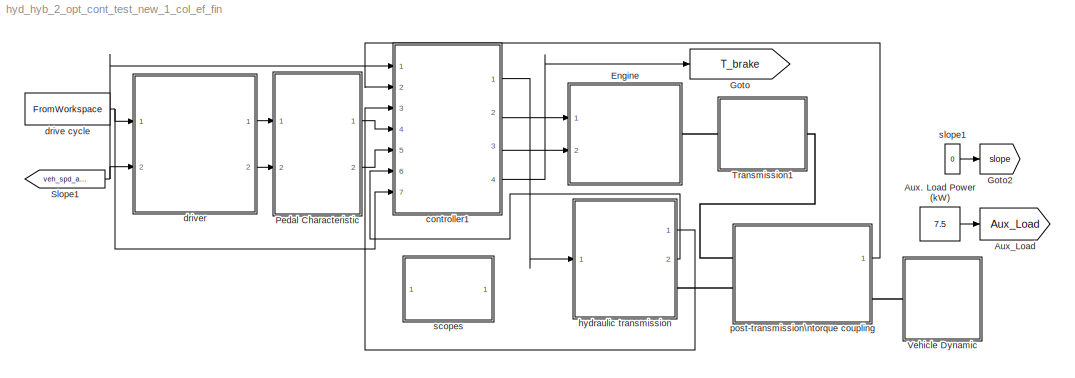
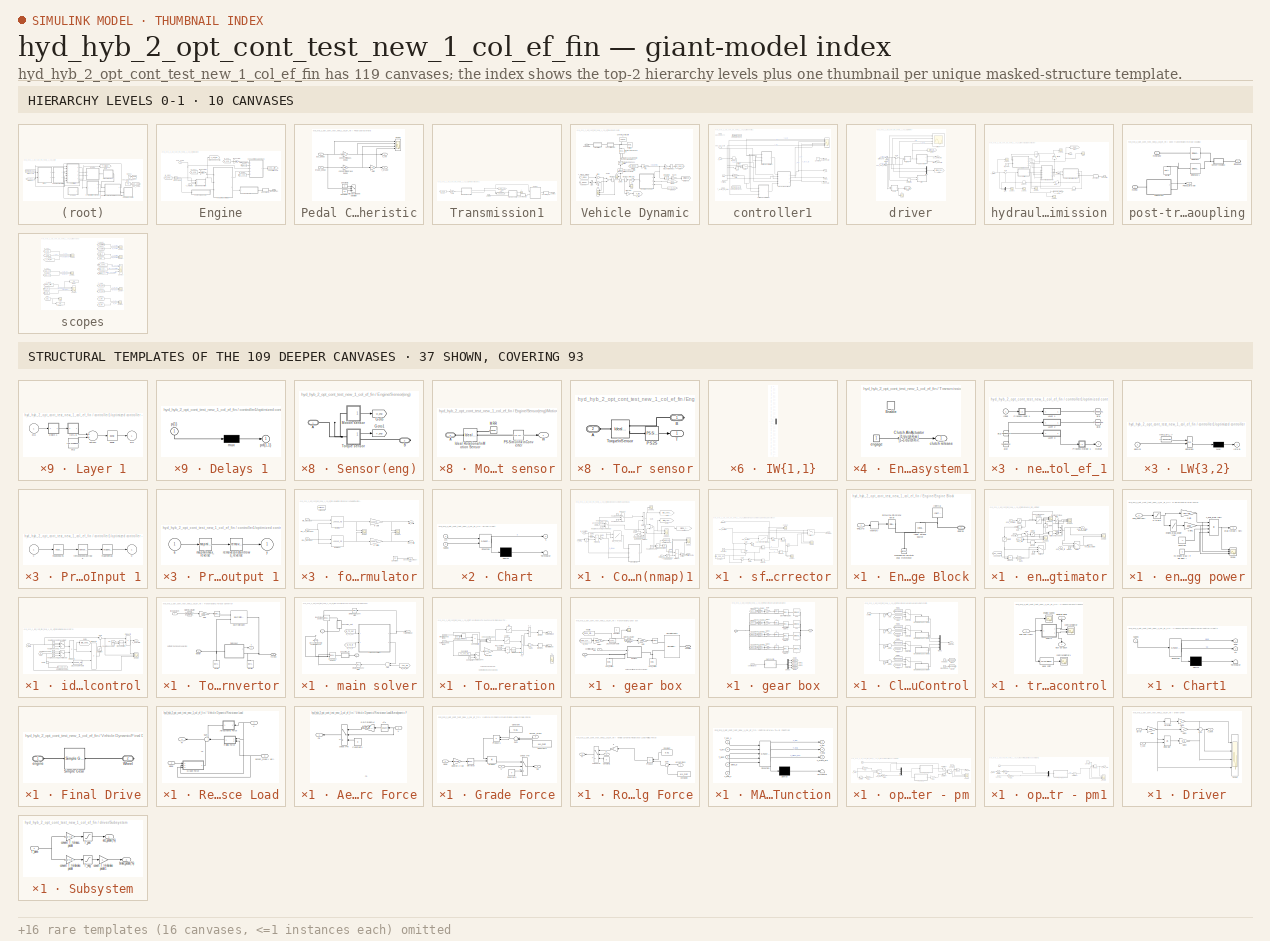
[diagram: thumbnail index - top-2 hierarchy levels (10 canvases) + 37 structural-template representatives of the remaining 109 canvases]
MODEL hyd_hyb_2_opt_cont_test_new_1_col_ef_fin
KIND model
CONFIG InitFcn = const_3\n
BLOCK [Constant] Aux. Load Power (kW)
  SID = 1614
  Value = 7.5
BLOCK [Goto] Aux_Load
  GotoTag = Aux_Load
  SID = 1615
  TagVisibility = global
BLOCK [SubSystem] Engine
  FunctionWithSeparateData = off
  MaskHideContents = off
  MinAlgLoopOccurrences = off
  Opaque = off
  Ports = [2, 0, 0, 0, 0, 0, 1]
  PropExecContextOutsideSubsystem = off
  RTWSystemCode = Auto
  RequestExecContextInheritance = off
  SID = 12085
BLOCK [SubSystem] Engine/Consumption Calc (nmap)1
  FunctionWithSeparateData = off
  MaskHideContents = off
  MinAlgLoopOccurrences = off
  Opaque = off
  Ports = [5, 1]
  PropExecContextOutsideSubsystem = off
  RTWSystemCode = Auto
  RequestExecContextInheritance = off
  SID = 12088
BLOCK [Saturate] Engine/Consumption Calc (nmap)1/1
  InputPortMap = u0
  LowerLimit = 0
  Ports = [1, 1]
  SID = 12094
  UpperLimit = inf
BLOCK [Product] Engine/Consumption Calc (nmap)1/Divide1
  InputSameDT = off
  Inputs = */
  OutDataTypeStr = Inherit: Inherit via internal rule
  Ports = [2, 1]
  RndMeth = Floor
  SID = 12095
  SaturateOnIntegerOverflow = off
BLOCK [Product] Engine/Consumption Calc (nmap)1/Divide2
  InputSameDT = off
  Inputs = 3
  OutDataTypeStr = Inherit: Inherit via internal rule
  Ports = [3, 1]
  RndMeth = Floor
  SID = 12096
  SaturateOnIntegerOverflow = off
BLOCK [Product] Engine/Consumption Calc (nmap)1/Divide3
  InputSameDT = off
  OutDataTypeStr = Inherit: Inherit via internal rule
  Ports = [2, 1]
  RndMeth = Floor
  SID = 12097
  SaturateOnIntegerOverflow = off
BLOCK [Product] Engine/Consumption Calc (nmap)1/Divide4
  InputSameDT = off
  Inputs = */
  OutDataTypeStr = Inherit: Inherit via internal rule
  Ports = [2, 1]
  RndMeth = Floor
  SID = 12098
  SaturateOnIntegerOverflow = off
BLOCK [Gain] Engine/Consumption Calc (nmap)1/Gain2
  Gain = 2*pi/60
  OutDataTypeStr = Inherit: Inherit via internal rule
  ParamDataTypeStr = Inherit: Inherit via internal rule
  SID = 12099
  SaturateOnIntegerOverflow = off
BLOCK [Gain] Engine/Consumption Calc (nmap)1/Gain3
  Gain = .001
  OutDataTypeStr = Inherit: Inherit via internal rule
  ParamDataTypeStr = Inherit: Inherit via internal rule
  SID = 12100
  SaturateOnIntegerOverflow = off
BLOCK [Goto] Engine/Consumption Calc (nmap)1/Goto
  GotoTag = idle_consumption
  SID = 12101
  TagVisibility = global
BLOCK [Goto] Engine/Consumption Calc (nmap)1/Goto1
  GotoTag = total_consumption
  SID = 12102
  TagVisibility = global
BLOCK [Goto] Engine/Consumption Calc (nmap)1/Goto2
  GotoTag = driving_consumption
  SID = 12103
  TagVisibility = global
BLOCK [Lookup2D] Engine/Consumption Calc (nmap)1/ICE_906_205
  ColumnIndex = w_906_205
  InputSameDT = off
  RowIndex = p_906_205
  SID = 12104
  SaturateOnIntegerOverflow = off
  Table = BSFC_906_205
BLOCK [Integrator] Engine/Consumption Calc (nmap)1/Integrator1
  Ports = [1, 1]
  SID = 12105
BLOCK [Product] Engine/Consumption Calc (nmap)1/Product1
  InputSameDT = off
  OutDataTypeStr = Inherit: Inherit via internal rule
  Ports = [2, 1]
  SID = 12106
  SaturateOnIntegerOverflow = off
BLOCK [Scope] Engine/Consumption Calc (nmap)1/Scope1
  DataFormat = StructureWithTime
  Floating = off
  LimitDataPoints = off
  NumInputPorts = 2
  Ports = [2]
  SID = 12107
  SampleTime = 0
  YMax = 42.5~42.5
  YMin = 0~0
  ZoomMode = xonly
BLOCK [Scope] Engine/Consumption Calc (nmap)1/Scope2
  DataFormat = StructureWithTime
  Floating = off
  LimitDataPoints = off
  NumInputPorts = 1
  Ports = [1]
  SID = 12108
  SampleTime = 0
  SaveName = ScopeData75
  ZoomMode = xonly
BLOCK [Sum] Engine/Consumption Calc (nmap)1/Sum
  InputSameDT = off
  OutDataTypeStr = Inherit: Inherit via internal rule
  Ports = [2, 1]
  SID = 12109
  SaturateOnIntegerOverflow = off
BLOCK [Inport] Engine/Consumption Calc (nmap)1/T_eng
  IconDisplay = Port number
  Port = 4
  SID = 12092
BLOCK [ToWorkspace] Engine/Consumption Calc (nmap)1/To Workspace
  MaxDataPoints = inf
  Ports = [1]
  SID = 12110
  SampleTime = -1
  SaveFormat = Structure With Time
  VariableName = ali_cons
BLOCK [Inport] Engine/Consumption Calc (nmap)1/acc pedal
  IconDisplay = Port number
  Port = 5
  SID = 12093
BLOCK [Switch] Engine/Consumption Calc (nmap)1/check pedal
  Criteria = u2 > Threshold
  InputSameDT = off
  SID = 12111
  SaturateOnIntegerOverflow = off
BLOCK [Scope] Engine/Consumption Calc (nmap)1/cons1
  DataFormat = StructureWithTime
  Floating = off
  LimitDataPoints = off
  NumInputPorts = 3
  Ports = [3]
  SID = 12112
  SampleTime = 0
  SaveName = cons1
  SaveToWorkspace = on
  YMax = 42.5~42.5~5
  YMin = 0~0~-5
  ZoomMode = yonly
BLOCK [Outport] Engine/Consumption Calc (nmap)1/cons\nlit//100km1
  IconDisplay = Port number
  SID = 12146
BLOCK [Inport] Engine/Consumption Calc (nmap)1/distance
  IconDisplay = Port number
  Port = 2
  SID = 12090
BLOCK [Gain] Engine/Consumption Calc (nmap)1/g 2 liter1
  Gain = 100
  OutDataTypeStr = Inherit: Inherit via internal rule
  ParamDataTypeStr = Inherit: Inherit via internal rule
  SID = 12113
  SaturateOnIntegerOverflow = off
BLOCK [Gain] Engine/Consumption Calc (nmap)1/g2lit
  Gain = 1/fuel_density*1000
  OutDataTypeStr = Inherit: Inherit via internal rule
  ParamDataTypeStr = Inherit: Inherit via internal rule
  SID = 12114
  SaturateOnIntegerOverflow = off
BLOCK [Constant] Engine/Consumption Calc (nmap)1/hour2\nsecond
  SID = 12115
  Value = 3600
BLOCK [Constant] Engine/Consumption Calc (nmap)1/hour2\nsecond1
  SID = 12116
BLOCK [Constant] Engine/Consumption Calc (nmap)1/hour2\nsecond2
  SID = 12117
  Value = 0
BLOCK [Constant] Engine/Consumption Calc (nmap)1/hour2\nsecond3
  SID = 12118
  Value = 0
BLOCK [Constant] Engine/Consumption Calc (nmap)1/hour2\nsecond4
  SID = 12119
  Value = 2
BLOCK [Switch] Engine/Consumption Calc (nmap)1/idel cons
  Criteria = u2 > Threshold
  InputSameDT = off
  SID = 12120
  SaturateOnIntegerOverflow = off
BLOCK [Inport] Engine/Consumption Calc (nmap)1/on//off
  IconDisplay = Port number
  Port = 3
  SID = 12091
BLOCK [SubSystem] Engine/Consumption Calc (nmap)1/sfc corrector
  FunctionWithSeparateData = off
  MaskHideContents = off
  MinAlgLoopOccurrences = off
  Opaque = off
  Ports = [3, 1]
  PropExecContextOutsideSubsystem = off
  RTWSystemCode = Auto
  RequestExecContextInheritance = off
  SID = 12121
BLOCK [Constant] Engine/Consumption Calc (nmap)1/sfc corrector/Constant
  SID = 12125
  Value = Idle_spd_eng_906
BLOCK [Constant] Engine/Consumption Calc (nmap)1/sfc corrector/Constant1
  SID = 12126
  Value = 1000
BLOCK [Gain] Engine/Consumption Calc (nmap)1/sfc corrector/Gain
  Gain = -1
  OutDataTypeStr = Inherit: Inherit via internal rule
  ParamDataTypeStr = Inherit: Inherit via internal rule
  SID = 12127
  SaturateOnIntegerOverflow = off
BLOCK [Gain] Engine/Consumption Calc (nmap)1/sfc corrector/Gain1
  OutDataTypeStr = Inherit: Inherit via internal rule
  ParamDataTypeStr = Inherit: Inherit via internal rule
  SID = 12128
  SaturateOnIntegerOverflow = off
BLOCK [Gain] Engine/Consumption Calc (nmap)1/sfc corrector/Gain2
  OutDataTypeStr = Inherit: Inherit via internal rule
  ParamDataTypeStr = Inherit: Inherit via internal rule
  SID = 12129
  SaturateOnIntegerOverflow = off
BLOCK [Product] Engine/Consumption Calc (nmap)1/sfc corrector/Product
  InputSameDT = off
  Inputs = */
  OutDataTypeStr = Inherit: Inherit via internal rule
  Ports = [2, 1]
  SID = 12130
  SaturateOnIntegerOverflow = off
BLOCK [Product] Engine/Consumption Calc (nmap)1/sfc corrector/Product1
  InputSameDT = off
  Inputs = */
  OutDataTypeStr = Inherit: Inherit via internal rule
  Ports = [2, 1]
  SID = 12131
  SaturateOnIntegerOverflow = off
BLOCK [Product] Engine/Consumption Calc (nmap)1/sfc corrector/Product2
  InputSameDT = off
  OutDataTypeStr = Inherit: Inherit via internal rule
  Ports = [2, 1]
  SID = 12132
  SaturateOnIntegerOverflow = off
BLOCK [Product] Engine/Consumption Calc (nmap)1/sfc corrector/Product3
  InputSameDT = off
  OutDataTypeStr = Inherit: Inherit via internal rule
  Ports = [2, 1]
  SID = 12133
  SaturateOnIntegerOverflow = off
BLOCK [Scope] Engine/Consumption Calc (nmap)1/sfc corrector/Scope
  DataFormat = StructureWithTime
  Floating = off
  NumInputPorts = 2
  Ports = [2]
  SID = 12134
  SampleTime = 0
  SaveName = ScopeData40
  YMax = 5~5
  YMin = -5~-5
  ZoomMode = yonly
BLOCK [Scope] Engine/Consumption Calc (nmap)1/sfc corrector/Scope1
  DataFormat = StructureWithTime
  Floating = off
  NumInputPorts = 2
  Ports = [2]
  SID = 12135
  SampleTime = 0
  SaveName = ScopeData41
  YMax = 5~5
  YMin = -5~-5
  ZoomMode = yonly
BLOCK [Scope] Engine/Consumption Calc (nmap)1/sfc corrector/Scope2
  DataFormat = StructureWithTime
  Floating = off
  NumInputPorts = 2
  Ports = [2]
  SID = 12136
  SampleTime = 0
  SaveName = ScopeData42
  YMax = 5~5
  YMin = -5~-5
  ZoomMode = yonly
BLOCK [Sum] Engine/Consumption Calc (nmap)1/sfc corrector/Sum
  IconShape = round
  InputSameDT = off
  Inputs = |+-
  OutDataTypeStr = Inherit: Inherit via internal rule
  Ports = [2, 1]
  SID = 12137
  SaturateOnIntegerOverflow = off
BLOCK [Sum] Engine/Consumption Calc (nmap)1/sfc corrector/Sum1
  IconShape = round
  InputSameDT = off
  Inputs = |+-
  OutDataTypeStr = Inherit: Inherit via internal rule
  Ports = [2, 1]
  SID = 12138
  SaturateOnIntegerOverflow = off
BLOCK [Sum] Engine/Consumption Calc (nmap)1/sfc corrector/Sum2
  IconShape = round
  InputSameDT = off
  Inputs = |+-
  OutDataTypeStr = Inherit: Inherit via internal rule
  Ports = [2, 1]
  SID = 12139
  SaturateOnIntegerOverflow = off
BLOCK [Sum] Engine/Consumption Calc (nmap)1/sfc corrector/Sum3
  IconShape = round
  InputSameDT = off
  Inputs = |++
  OutDataTypeStr = Inherit: Inherit via internal rule
  Ports = [2, 1]
  SID = 12140
  SaturateOnIntegerOverflow = off
BLOCK [Switch] Engine/Consumption Calc (nmap)1/sfc corrector/Switch
  InputSameDT = off
  SID = 12141
  SaturateOnIntegerOverflow = off
  Threshold = 1000
BLOCK [Outport] Engine/Consumption Calc (nmap)1/sfc corrector/cons(kg//h)
  IconDisplay = Port number
  SID = 12143
BLOCK [Inport] Engine/Consumption Calc (nmap)1/sfc corrector/eng_pow(kw)
  IconDisplay = Port number
  Port = 3
  SID = 12124
BLOCK [Inport] Engine/Consumption Calc (nmap)1/sfc corrector/eng_spd(rpm)
  IconDisplay = Port number
  Port = 2
  SID = 12123
BLOCK [Inport] Engine/Consumption Calc (nmap)1/sfc corrector/main map
  IconDisplay = Port number
  SID = 12122
BLOCK [Lookup] Engine/Consumption Calc (nmap)1/sfc corrector/sec_eng_sfc_map (906)
  InputValues = sec_eng_sfc_map(:,1)
  SID = 12142
  SaturateOnIntegerOverflow = off
  Table = sec_eng_sfc_map(:,2)
BLOCK [Saturate] Engine/Consumption Calc (nmap)1/solve devide \nby zero problem
  InputPortMap = u0
  LowerLimit = eps
  Ports = [1, 1]
  SID = 12144
  UpperLimit = inf
BLOCK [Saturate] Engine/Consumption Calc (nmap)1/solve devide \nby zero problem1
  InputPortMap = u0
  LowerLimit = 0
  Ports = [1, 1]
  SID = 12145
  UpperLimit = inf
BLOCK [Inport] Engine/Consumption Calc (nmap)1/w_eng (rpm)
  IconDisplay = Port number
  SID = 12089
BLOCK [From] Engine/Distance (km)
  GotoTag = Distance
  SID = 12147
  TagVisibility = global
BLOCK [SubSystem] Engine/Engine Block
  FunctionWithSeparateData = off
  MaskHideContents = off
  MinAlgLoopOccurrences = off
  Opaque = off
  Ports = [1, 0, 0, 0, 0, 0, 1]
  PropExecContextOutsideSubsystem = off
  RTWSystemCode = Auto
  RequestExecContextInheritance = off
  SID = 12148
BLOCK [PMIOPort] Engine/Engine Block/Engine
  Port = 1
  SID = 12155
  Side = Right
BLOCK [Reference] Engine/Engine Block/Ideal Torque Source  REF=fl_lib/Mechanical/Mechanical Sources/Ideal Torque Source
  ClassName = torque
  ComponentPath = foundation.mechanical.sources.torque
  FunctionWithSeparateData = off
  GeneratePreprocessorConditionals = off
  LocalVarDescs = |w|t
  LocalVarLogging = [0 0]
  LocalVarNames = |w|t
  Ports = [0, 0, 0, 0, 0, 1, 2]
  RTWMemSecDataConstants = Inherit from model
  RTWMemSecDataInternal = Inherit from model
  RTWMemSecDataParameters = Inherit from model
  RTWMemSecFuncExecute = Inherit from model
  RTWMemSecFuncInitTerm = Inherit from model
  SID = 12150
  SchemaVersion = 1
  ShowPortLabels = FromPortIcon
  SourceBlock = fl_lib/Mechanical/Mechanical Sources/Ideal Torque Source
  SourceType = Ideal Torque Source
  SystemSampleTime = -1
  t_Log = off
  w_Log = off
BLOCK [Reference] Engine/Engine Block/Inertia  REF=fl_lib/Mechanical/Rotational Elements/Inertia
  ClassName = inertia
  ComponentPath = foundation.mechanical.rotational.inertia
  FunctionWithSeparateData = off
  GeneratePreprocessorConditionals = off
  LocalVarDescs = |t
  LocalVarLogging = 0
  LocalVarNames = |t
  Ports = [0, 0, 0, 0, 0, 1]
  RTWMemSecDataConstants = Inherit from model
  RTWMemSecDataInternal = Inherit from model
  RTWMemSecDataParameters = Inherit from model
  RTWMemSecFuncExecute = Inherit from model
  RTWMemSecFuncInitTerm = Inherit from model
  SID = 12151
  SchemaVersion = 1
  ShowPortLabels = FromPortIcon
  SourceBlock = fl_lib/Mechanical/Rotational Elements/Inertia
  SourceType = Inertia
  SystemSampleTime = -1
  inertia = I_ICE
  inertia_unit = kg*m^2
  initial_velocity = 0
  initial_velocity_unit = rad/s
  t_Log = off
BLOCK [Reference] Engine/Engine Block/Mechanical\nRotational Reference  REF=fl_lib/Mechanical/Rotational Elements/Mechanical\nRotational Reference
  ClassName = reference
  ComponentPath = foundation.mechanical.rotational.reference
  FunctionWithSeparateData = off
  GeneratePreprocessorConditionals = off
  LocalVarDescs = |t
  LocalVarLogging = 0
  LocalVarNames = |t
  Ports = [0, 0, 0, 0, 0, 1]
  RTWMemSecDataConstants = Inherit from model
  RTWMemSecDataInternal = Inherit from model
  RTWMemSecDataParameters = Inherit from model
  RTWMemSecFuncExecute = Inherit from model
  RTWMemSecFuncInitTerm = Inherit from model
  SID = 12152
  SchemaVersion = 1
  ShowPortLabels = FromPortIcon
  SourceBlock = fl_lib/Mechanical/Rotational Elements/Mechanical\nRotational Reference
  SourceType = Mechanical\nRotational Reference
  SystemSampleTime = -1
  t_Log = off
BLOCK [Memory] Engine/Engine Block/Memory
  InheritSampleTime = on
  SID = 12153
BLOCK [Reference] Engine/Engine Block/Simulink-PS\nConverter  REF=nesl_utility/Simulink-PS\nConverter
  AffineConversion = off
  FunctionWithSeparateData = off
  GeneratePreprocessorConditionals = off
  InputFilterTimeConstant = 0.01
  LeftPortType = input
  PhysicalDomain = network_engine_domain
  Ports = [1, 0, 0, 0, 0, 0, 1]
  RTWMemSecDataConstants = Inherit from model
  RTWMemSecDataInternal = Inherit from model
  RTWMemSecDataParameters = Inherit from model
  RTWMemSecFuncExecute = Inherit from model
  RTWMemSecFuncInitTerm = Inherit from model
  RightPortType = output
  SID = 12154
  ShowPortLabels = FromPortIcon
  SourceBlock = nesl_utility/Simulink-PS\nConverter
  SourceType = Simulink-PS\nConverter
  SubClassName = ps_input
  SystemSampleTime = -1
  UdotUserProvided = 0
  Unit = 1
BLOCK [Inport] Engine/Engine Block/eng_trq
  IconDisplay = Port number
  SID = 12149
BLOCK [SubSystem] Engine/Sensor(eng)
  FunctionWithSeparateData = off
  MaskHideContents = off
  MinAlgLoopOccurrences = off
  Opaque = off
  Ports = [0, 0, 0, 0, 0, 1, 1]
  PropExecContextOutsideSubsystem = off
  RTWSystemCode = Auto
  RequestExecContextInheritance = off
  SID = 12156
BLOCK [PMIOPort] Engine/Sensor(eng)/A
  Port = 1
  SID = 12171
  Side = Left
BLOCK [PMIOPort] Engine/Sensor(eng)/B
  Port = 2
  SID = 12172
  Side = Right
BLOCK [Goto] Engine/Sensor(eng)/Goto
  GotoTag = w_eng
  SID = 12157
  TagVisibility = global
BLOCK [Goto] Engine/Sensor(eng)/Goto1
  GotoTag = T_eng
  SID = 12158
  TagVisibility = global
BLOCK [SubSystem] Engine/Sensor(eng)/Motion sensor
  FunctionWithSeparateData = off
  MaskHideContents = off
  MinAlgLoopOccurrences = off
  Opaque = off
  Ports = [0, 1, 0, 0, 0, 1]
  PropExecContextOutsideSubsystem = off
  RTWSystemCode = Auto
  RequestExecContextInheritance = off
  SID = 12159
BLOCK [PMIOPort] Engine/Sensor(eng)/Motion sensor/A
  Port = 1
  SID = 12163
  Side = Left
BLOCK [Reference] Engine/Sensor(eng)/Motion sensor/Ideal Rotational\nMotion Sensor  REF=fl_lib/Mechanical/Mechanical Sensors/Ideal Rotational\nMotion Sensor
  ClassName = sensor_rot_motion
  ComponentPath = foundation.mechanical.sensors.angular_velocity
  FunctionWithSeparateData = off
  GeneratePreprocessorConditionals = off
  LocalVarDescs = |w|t|phi
  LocalVarLogging = []
  LocalVarNames = |w|t|phi
  Ports = [0, 0, 0, 0, 0, 1, 3]
  RTWMemSecDataConstants = Inherit from model
  RTWMemSecDataInternal = Inherit from model
  RTWMemSecDataParameters = Inherit from model
  RTWMemSecFuncExecute = Inherit from model
  RTWMemSecFuncInitTerm = Inherit from model
  SID = 12160
  SchemaVersion = 1
  ShowPortLabels = FromPortIcon
  SourceBlock = fl_lib/Mechanical/Mechanical Sensors/Ideal Rotational\nMotion Sensor
  SourceType = Ideal Rotational\nMotion Sensor
  SystemSampleTime = -1
  offset = 0
  offset_unit = rad
  phi_Log = off
  t_Log = off
  w_Log = off
BLOCK [Reference] Engine/Sensor(eng)/Motion sensor/MRR  REF=fl_lib/Mechanical/Rotational Elements/Mechanical\nRotational Reference
  ClassName = reference_rot
  ComponentPath = foundation.mechanical.rotational.reference
  FunctionWithSeparateData = off
  GeneratePreprocessorConditionals = off
  LocalVarDescs = |t
  LocalVarLogging = []
  LocalVarNames = |t
  Ports = [0, 0, 0, 0, 0, 1]
  RTWMemSecDataConstants = Inherit from model
  RTWMemSecDataInternal = Inherit from model
  RTWMemSecDataParameters = Inherit from model
  RTWMemSecFuncExecute = Inherit from model
  RTWMemSecFuncInitTerm = Inherit from model
  SID = 12161
  SchemaVersion = 1
  ShowPortLabels = FromPortIcon
  SourceBlock = fl_lib/Mechanical/Rotational Elements/Mechanical\nRotational Reference
  SourceType = Mechanical\nRotational Reference
  SystemSampleTime = -1
  t_Log = off
BLOCK [Reference] Engine/Sensor(eng)/Motion sensor/PS-Simulink\nConverter  REF=nesl_utility/PS-Simulink\nConverter
  AffineConversion = off
  FunctionWithSeparateData = off
  GeneratePreprocessorConditionals = off
  LeftPortType = input
  PhysicalDomain = network_engine_domain
  Ports = [0, 1, 0, 0, 0, 1]
  RTWMemSecDataConstants = Inherit from model
  RTWMemSecDataInternal = Inherit from model
  RTWMemSecDataParameters = Inherit from model
  RTWMemSecFuncExecute = Inherit from model
  RTWMemSecFuncInitTerm = Inherit from model
  RightPortType = output
  SID = 12162
  ShowPortLabels = none
  SourceBlock = nesl_utility/PS-Simulink\nConverter
  SourceType = PS-Simulink\nConverter
  SubClassName = ps_output
  SystemSampleTime = -1
  Unit = rad/s
BLOCK [Outport] Engine/Sensor(eng)/Motion sensor/W
  IconDisplay = Port number
  SID = 12164
BLOCK [SubSystem] Engine/Sensor(eng)/Torque sensor
  FunctionWithSeparateData = off
  MaskHideContents = off
  MinAlgLoopOccurrences = off
  Opaque = off
  Ports = [0, 1, 0, 0, 0, 1, 1]
  PropExecContextOutsideSubsystem = off
  RTWSystemCode = Auto
  RequestExecContextInheritance = off
  SID = 12165
BLOCK [PMIOPort] Engine/Sensor(eng)/Torque sensor/A
  Port = 2
  SID = 12169
  Side = Left
BLOCK [PMIOPort] Engine/Sensor(eng)/Torque sensor/B
  Port = 1
  SID = 12168
  Side = Right
BLOCK [Reference] Engine/Sensor(eng)/Torque sensor/PS2S  REF=nesl_utility/PS-Simulink\nConverter
  AffineConversion = off
  FunctionWithSeparateData = off
  GeneratePreprocessorConditionals = off
  LeftPortType = input
  PhysicalDomain = network_engine_domain
  Ports = [0, 1, 0, 0, 0, 1]
  RTWMemSecDataConstants = Inherit from model
  RTWMemSecDataInternal = Inherit from model
  RTWMemSecDataParameters = Inherit from model
  RTWMemSecFuncExecute = Inherit from model
  RTWMemSecFuncInitTerm = Inherit from model
  RightPortType = output
  SID = 12166
  ShowPortLabels = none
  SourceBlock = nesl_utility/PS-Simulink\nConverter
  SourceType = PS-Simulink\nConverter
  SubClassName = ps_output
  SystemSampleTime = -1
  Unit = 1
BLOCK [Outport] Engine/Sensor(eng)/Torque sensor/T
  IconDisplay = Port number
  SID = 12170
BLOCK [Reference] Engine/Sensor(eng)/Torque sensor/Torque\nSensor  REF=fl_lib/Mechanical/Mechanical Sensors/Ideal Torque Sensor
  ClassName = sensor_torque
  ComponentPath = foundation.mechanical.sensors.torque
  FunctionWithSeparateData = off
  GeneratePreprocessorConditionals = off
  LocalVarDescs = |w|t
  LocalVarLogging = []
  LocalVarNames = |w|t
  Ports = [0, 0, 0, 0, 0, 1, 2]
  RTWMemSecDataConstants = Inherit from model
  RTWMemSecDataInternal = Inherit from model
  RTWMemSecDataParameters = Inherit from model
  RTWMemSecFuncExecute = Inherit from model
  RTWMemSecFuncInitTerm = Inherit from model
  SID = 12167
  SchemaVersion = 1
  ShowPortLabels = FromPortIcon
  SourceBlock = fl_lib/Mechanical/Mechanical Sensors/Ideal Torque Sensor
  SourceType = Ideal Torque Sensor
  SystemSampleTime = -1
  t_Log = off
  w_Log = off
BLOCK [Goto] Engine/T idle speed control
  GotoTag = T_out_idle_cotl
  SID = 12173
  TagVisibility = global
BLOCK [Inport] Engine/T_eng (Nm)
  IconDisplay = Port number
  SID = 12086
BLOCK [PMIOPort] Engine/Transmission
  Port = 1
  SID = 12246
  Side = Right
BLOCK [Goto] Engine/cons\nlit//100km
  GotoTag = cons_LitP100km
  SID = 12174
  TagVisibility = global
BLOCK [Inport] Engine/eng_on//off
  IconDisplay = Port number
  Port = 2
  SID = 12087
BLOCK [SubSystem] Engine/eng_torq_estimator
  FunctionWithSeparateData = off
  MaskHideContents = off
  MinAlgLoopOccurrences = off
  Opaque = off
  Ports = [3, 2]
  PropExecContextOutsideSubsystem = off
  RTWSystemCode = Auto
  RequestExecContextInheritance = off
  SID = 12175
BLOCK [Saturate] Engine/eng_torq_estimator/0 to inf1
  InputPortMap = u0
  LowerLimit = 0
  Ports = [1, 1]
  SID = 12179
  UpperLimit = inf
BLOCK [Saturate] Engine/eng_torq_estimator/0 to inf2
  InputPortMap = u0
  LowerLimit = eps
  Ports = [1, 1]
  SID = 12180
  UpperLimit = inf
BLOCK [Saturate] Engine/eng_torq_estimator/0 to inf3
  InputPortMap = u0
  LowerLimit = 0
  Ports = [1, 1]
  SID = 12181
  UpperLimit = inf
BLOCK [Saturate] Engine/eng_torq_estimator/0 to inf4
  InputPortMap = u0
  LowerLimit = 0
  Ports = [1, 1]
  SID = 12182
  UpperLimit = inf
BLOCK [Saturate] Engine/eng_torq_estimator/0 to inf5
  InputPortMap = u0
  LowerLimit = 0
  Ports = [1, 1]
  SID = 12183
  UpperLimit = inf
BLOCK [From] Engine/eng_torq_estimator/Aux Load
  GotoTag = Aux_Load
  SID = 12184
  TagVisibility = global
BLOCK [Goto] Engine/eng_torq_estimator/Aux_Trq
  GotoTag = Aux_Trq
  SID = 12185
  TagVisibility = global
BLOCK [Gain] Engine/eng_torq_estimator/Gain
  Gain = pi/30
  OutDataTypeStr = Inherit: Inherit via internal rule
  ParamDataTypeStr = Inherit: Inherit via internal rule
  SID = 12186
  SaturateOnIntegerOverflow = off
BLOCK [Gain] Engine/eng_torq_estimator/Gain1
  Gain = 1000
  OutDataTypeStr = Inherit: Inherit via internal rule
  ParamDataTypeStr = Inherit: Inherit via internal rule
  SID = 12187
  SaturateOnIntegerOverflow = off
BLOCK [Memory] Engine/eng_torq_estimator/Memory
  InheritSampleTime = on
  SID = 12188
BLOCK [MinMax] Engine/eng_torq_estimator/Min
  Function = min
  InputSameDT = off
  Inputs = 2
  Ports = [2, 1]
  SID = 12189
  SaturateOnIntegerOverflow = off
BLOCK [Lookup] Engine/eng_torq_estimator/Overload Torque (Nm)
  InputValues = [2600 2900 3000]
  SID = 12190
  Table = [650 0 0]
BLOCK [Lookup] Engine/eng_torq_estimator/PeakTorque -906 - 205(Nm)
  InputValues = [1000,1070,1130,1200,1280,1500,1590,1680,1760,1850,1930,2010,2070,2150,2240,2320,2380,2500]
  SID = 12191
  Table = [982,1040,1080,1100,1110,1110,1100,1080,1060,1020,994,963,940,909,872,838,804,751]
BLOCK [Product] Engine/eng_torq_estimator/Product1
  InputSameDT = off
  Inputs = */
  OutDataTypeStr = Inherit: Inherit via internal rule
  Ports = [2, 1]
  SID = 12192
  SaturateOnIntegerOverflow = off
BLOCK [Scope] Engine/eng_torq_estimator/Scope
  DataFormat = StructureWithTime
  Floating = off
  LimitDataPoints = off
  NumInputPorts = 3
  Ports = [3]
  SID = 12193
  SampleTime = 0
  SaveName = ScopeData10
  YMax = 5~5~5
  YMin = -5~-5~-5
  ZoomMode = yonly
BLOCK [Scope] Engine/eng_torq_estimator/Scope1
  DataFormat = StructureWithTime
  Floating = off
  LimitDataPoints = off
  NumInputPorts = 3
  Ports = [3]
  SID = 12194
  SampleTime = 0
  SaveName = ScopeData9
  YMax = 5~5~5
  YMin = -5~-5~-5
  ZoomMode = yonly
BLOCK [Scope] Engine/eng_torq_estimator/Scope2
  DataFormat = StructureWithTime
  Floating = off
  LimitDataPoints = off
  NumInputPorts = 3
  Ports = [3]
  SID = 12195
  SampleTime = 0
  SaveName = ScopeData23
  YMax = 5~5~5
  YMin = -5~-5~-5
  ZoomMode = xonly
BLOCK [Scope] Engine/eng_torq_estimator/Scope3
  DataFormat = StructureWithTime
  Floating = off
  LimitDataPoints = off
  NumInputPorts = 3
  Ports = [3]
  SID = 12196
  SampleTime = 0
  SaveName = ScopeData5
  YMax = 5~5~5
  YMin = -5~-5~-5
  ZoomMode = yonly
BLOCK [Sum] Engine/eng_torq_estimator/Sum
  IconShape = round
  InputSameDT = off
  Inputs = |++
  OutDataTypeStr = Inherit: Inherit via internal rule
  Ports = [2, 1]
  SID = 12197
  SaturateOnIntegerOverflow = off
BLOCK [Switch] Engine/eng_torq_estimator/Switch
  InputSameDT = off
  SID = 12198
  SaturateOnIntegerOverflow = off
  Threshold = 0.1
BLOCK [Switch] Engine/eng_torq_estimator/Switch1
  InputSameDT = off
  SID = 12199
  SaturateOnIntegerOverflow = off
  Threshold = Idle_spd_eng_906*0.75
BLOCK [Switch] Engine/eng_torq_estimator/check max speed
  InputSameDT = off
  SID = 12200
  SaturateOnIntegerOverflow = off
  Threshold = 2600
BLOCK [Inport] Engine/eng_torq_estimator/eng_drag_trq
  IconDisplay = Port number
  Port = 3
  SID = 12178
BLOCK [Inport] Engine/eng_torq_estimator/eng_spd (rpm)
  IconDisplay = Port number
  SID = 12176
BLOCK [Inport] Engine/eng_torq_estimator/eng_trq_in
  IconDisplay = Port number
  Port = 2
  SID = 12177
BLOCK [Outport] Engine/eng_torq_estimator/eng_trq_out (Nm)
  IconDisplay = Port number
  Port = 2
  SID = 12204
BLOCK [Outport] Engine/eng_torq_estimator/eng_trq_out (Nm) to consump
  IconDisplay = Port number
  SID = 12203
BLOCK [Constant] Engine/eng_torq_estimator/slope
  SID = 12201
  Value = 0
BLOCK [Constant] Engine/eng_torq_estimator/slope1
  SID = 12202
  Value = 0
BLOCK [SubSystem] Engine/engine drag power
  FunctionWithSeparateData = off
  MaskHideContents = off
  MinAlgLoopOccurrences = off
  Opaque = off
  Ports = [1, 1]
  PropExecContextOutsideSubsystem = off
  RTWSystemCode = Auto
  RequestExecContextInheritance = off
  SID = 12205
BLOCK [Saturate] Engine/engine drag power/0 to inf2
  InputPortMap = u0
  LowerLimit = eps
  Ports = [1, 1]
  SID = 12207
  UpperLimit = inf
BLOCK [Constant] Engine/engine drag power/Constant
  SID = 12208
  Value = -1
BLOCK [Gain] Engine/engine drag power/Gain
  Gain = (pi)/30
  OutDataTypeStr = Inherit: Inherit via internal rule
  ParamDataTypeStr = Inherit: Inherit via internal rule
  SID = 12209
  SaturateOnIntegerOverflow = off
BLOCK [Gain] Engine/engine drag power/Gain1
  Gain = 1000
  OutDataTypeStr = Inherit: Inherit via internal rule
  ParamDataTypeStr = Inherit: Inherit via internal rule
  SID = 12210
  SaturateOnIntegerOverflow = off
BLOCK [Scope] Engine/engine drag power/Scope
  DataFormat = StructureWithTime
  Floating = off
  LimitDataPoints = off
  NumInputPorts = 3
  Ports = [3]
  SID = 12211
  SampleTime = 0
  SaveName = ScopeData2
  YMax = 5~5~5
  YMin = -5~-5~-5
  ZoomMode = yonly
BLOCK [Product] Engine/engine drag power/T_eng_drag (Nm)
  InputSameDT = off
  Inputs = /***
  OutDataTypeStr = Inherit: Inherit via internal rule
  Ports = [4, 1]
  RndMeth = Floor
  SID = 12212
  SaturateOnIntegerOverflow = off
BLOCK [Outport] Engine/engine drag power/drag torque ( Nm)
  IconDisplay = Port number
  SID = 12215
BLOCK [Inport] Engine/engine drag power/eng_spd(rpm)
  IconDisplay = Port number
  SID = 12206
BLOCK [Lookup] Engine/engine drag power/engine_drag_power (kw)
  InputValues = [-10,eps,802.567507746791,824.568393094289,846.879150066401,868.8800354139,890.880920761399,912.881806108898,935.192563081009,957.193448428508,979.194333776007,1001.19521912351,1023.196104471,1045.1969898185,1067.197875166,1089.50863213811,1111.50951748561,1133.51040283311,1155.51128818061,1177.51217352811,1199.51305887561,1221.51394422311,1243.51482957061,1265.51571491811,1287.5166002656,1309.517...<+620ch>
  SID = 12213
  SaturateOnIntegerOverflow = off
  Table = [0,0,8.89504100832017,9.50127747975726,9.88870415102495,10.2762179627945,10.7512208384311,11.1824791821341,11.6136503853353,12.0449087290384,12.4761670727414,12.9074254164445,13.294939228214,13.7261975719171,14.1137113836866,14.5448825868878,15.0636299944579,15.5386328700944,15.9698912137975,16.357405025567,16.7449188373366,17.1761771810396,17.6074355247427,17.9949493365122,18.4699522121488,18.988...<+631ch>
BLOCK [Constant] Engine/engine drag power/no engine drag ( if we want )
  SID = 12214
BLOCK [SubSystem] Engine/idle speed control
  FunctionWithSeparateData = off
  MaskHideContents = off
  MinAlgLoopOccurrences = off
  Opaque = off
  Ports = [3, 1]
  PropExecContextOutsideSubsystem = off
  RTWSystemCode = Auto
  RequestExecContextInheritance = off
  SID = 12216
BLOCK [Lookup_n-D] Engine/idle speed control/1-D Lookup\nTable
  BreakpointsForDimension1 = [0 Idle_spd_eng_906*0.025 Idle_spd_eng_906]
  IndexSearchMethod = Binary search
  NumberOfTableDimensions = 1
  Ports = [1, 1]
  RndMeth = Simplest
  SID = 12220
  Table = [0 0 T_max_906/2]
BLOCK [Goto] Engine/idle speed control/Goto1
  GotoTag = idle_control
  SID = 12221
  TagVisibility = global
BLOCK [Reference] Engine/idle speed control/Manual Switch  REF=simulink/Signal\nRouting/Manual Switch
  FunctionWithSeparateData = off
  GeneratePreprocessorConditionals = off
  Ports = [2, 1]
  RTWMemSecDataConstants = Inherit from model
  RTWMemSecDataInternal = Inherit from model
  RTWMemSecDataParameters = Inherit from model
  RTWMemSecFuncExecute = Inherit from model
  RTWMemSecFuncInitTerm = Inherit from model
  SID = 12222
  ShowPortLabels = FromPortIcon
  SourceBlock = simulink/Signal\nRouting/Manual Switch
  SourceType = Manual Switch
  SystemSampleTime = -1
  action = 0
  sw = 1
  varsize = off
BLOCK [Product] Engine/idle speed control/Product1
  InputSameDT = off
  Inputs = **
  OutDataTypeStr = Inherit: Inherit via internal rule
  Ports = [2, 1]
  SID = 12223
  SaturateOnIntegerOverflow = off
BLOCK [Product] Engine/idle speed control/Product2
  InputSameDT = off
  Inputs = **
  OutDataTypeStr = Inherit: Inherit via internal rule
  Ports = [2, 1]
  SID = 12224
  SaturateOnIntegerOverflow = off
BLOCK [Product] Engine/idle speed control/Product3
  InputSameDT = off
  Inputs = **
  OutDataTypeStr = Inherit: Inherit via internal rule
  Ports = [2, 1]
  SID = 12225
  SaturateOnIntegerOverflow = off
BLOCK [Saturate] Engine/idle speed control/Saturation
  InputPortMap = u0
  LowerLimit = 0
  Ports = [1, 1]
  SID = 12226
  UpperLimit = T_max_906/5
BLOCK [Scope] Engine/idle speed control/Scope
  DataFormat = StructureWithTime
  Floating = off
  LimitDataPoints = off
  NumInputPorts = 3
  Ports = [3]
  SID = 12227
  SampleTime = 0
  SaveName = ScopeData11
  YMax = 5~5~5
  YMin = -5~-5~-5
  ZoomMode = yonly
BLOCK [Sum] Engine/idle speed control/Sum
  IconShape = round
  InputSameDT = off
  Inputs = |++
  OutDataTypeStr = Inherit: Inherit via internal rule
  Ports = [2, 1]
  SID = 12228
  SaturateOnIntegerOverflow = off
BLOCK [Sum] Engine/idle speed control/Sum1
  IconShape = round
  InputSameDT = off
  Inputs = -|+
  OutDataTypeStr = Inherit: Inherit via internal rule
  Ports = [2, 1]
  SID = 12229
  SaturateOnIntegerOverflow = off
BLOCK [Inport] Engine/idle speed control/T_eng
  IconDisplay = Port number
  Port = 3
  SID = 12219
BLOCK [Outport] Engine/idle speed control/T_eng + Idle
  IconDisplay = Port number
  SID = 12238
BLOCK [Switch] Engine/idle speed control/check idle P
  Criteria = u2 > Threshold
  InputSameDT = off
  SID = 12230
  SaturateOnIntegerOverflow = off
BLOCK [Switch] Engine/idle speed control/check idle spd
  Criteria = u2 > Threshold
  InputSameDT = off
  SID = 12231
  SaturateOnIntegerOverflow = off
  Threshold = Idle_spd_eng_906
BLOCK [Constant] Engine/idle speed control/hour2\nsecond
  SID = 12232
  Value = 0
BLOCK [Constant] Engine/idle speed control/hour2\nsecond1
  SID = 12233
BLOCK [Constant] Engine/idle speed control/hour2\nsecond2
  SID = 12234
BLOCK [Constant] Engine/idle speed control/hour2\nsecond3
  SID = 12235
  Value = 0
BLOCK [Constant] Engine/idle speed control/hour2\nsecond4
  SID = 12236
  Value = Idle_spd_eng_906
BLOCK [Constant] Engine/idle speed control/hour2\nsecond5
  SID = 12237
BLOCK [Inport] Engine/idle speed control/on
  IconDisplay = Port number
  SID = 12217
BLOCK [Inport] Engine/idle speed control/spd
  IconDisplay = Port number
  Port = 2
  SID = 12218
BLOCK [Gain] Engine/rasps2rpm
  Gain = 30/pi
  OutDataTypeStr = Inherit: Inherit via internal rule
  ParamDataTypeStr = Inherit: Inherit via internal rule
  SID = 12239
  SaturateOnIntegerOverflow = off
BLOCK [Gain] Engine/rasps2rpm1
  Gain = 30/pi
  OutDataTypeStr = Inherit: Inherit via internal rule
  ParamDataTypeStr = Inherit: Inherit via internal rule
  SID = 12240
  SaturateOnIntegerOverflow = off
BLOCK [Gain] Engine/rasps2rpm2
  Gain = 30/pi
  OutDataTypeStr = Inherit: Inherit via internal rule
  ParamDataTypeStr = Inherit: Inherit via internal rule
  SID = 12241
  SaturateOnIntegerOverflow = off
BLOCK [From] Engine/w_eng
  GotoTag = w_eng
  SID = 12242
  TagVisibility = global
BLOCK [From] Engine/w_eng1
  GotoTag = w_eng
  SID = 12243
  TagVisibility = global
BLOCK [From] Engine/w_eng2
  GotoTag = w_eng
  SID = 12244
  TagVisibility = global
BLOCK [From] Engine/w_eng3
  GotoTag = idle_control
  SID = 12245
  TagVisibility = global
BLOCK [Goto] Goto
  GotoTag = T_brake
  SID = 1093
  TagVisibility = global
BLOCK [Goto] Goto2
  GotoTag = slope
  SID = 1094
  TagVisibility = global
BLOCK [SubSystem] Pedal Characteristic
  FunctionWithSeparateData = off
  MaskHideContents = off
  MinAlgLoopOccurrences = off
  Opaque = off
  Ports = [2, 2]
  PropExecContextOutsideSubsystem = off
  RTWSystemCode = Auto
  RequestExecContextInheritance = off
  SID = 131
BLOCK [Constant] Pedal Characteristic/Constant1
  SID = 134
  Value = .25
BLOCK [Constant] Pedal Characteristic/Constant2
  SID = 135
  Value = 0
BLOCK [Gain] Pedal Characteristic/Gain
  Gain = 13
  OutDataTypeStr = Inherit: Inherit via internal rule
  ParamDataTypeStr = Inherit: Inherit via internal rule
  SID = 136
  SaturateOnIntegerOverflow = off
BLOCK [Scope] Pedal Characteristic/Scope
  DataFormat = StructureWithTime
  Floating = off
  LimitDataPoints = off
  MaxDataPoints = 500
  NumInputPorts = 4
  Ports = [4]
  SID = 137
  SampleTime = 0
  SaveName = ScopeData9
  YMax = 105~1391.25~1~5
  YMin = 95~1258.75~-1~-5
  ZoomMode = xonly
BLOCK [Outport] Pedal Characteristic/T_brake
  IconDisplay = Port number
  SID = 141
BLOCK [Outport] Pedal Characteristic/T_ref
  IconDisplay = Port number
  Port = 2
  SID = 143
BLOCK [Inport] Pedal Characteristic/acc_pedal
  IconDisplay = Port number
  SID = 132
BLOCK [Inport] Pedal Characteristic/brake_pedal
  IconDisplay = Port number
  Port = 2
  SID = 133
BLOCK [Gain] Pedal Characteristic/convert T to\nacc. pedal
  Gain = T_max_906/100
  OutDataTypeStr = Inherit: Inherit via internal rule
  ParamDataTypeStr = Inherit: Inherit via internal rule
  SID = 138
  SaturateOnIntegerOverflow = off
BLOCK [Gain] Pedal Characteristic/convert T to\nbrake pedal
  Gain = -T_min/100
  OutDataTypeStr = Inherit: Inherit via internal rule
  ParamDataTypeStr = Inherit: Inherit via internal rule
  SID = 139
  SaturateOnIntegerOverflow = off
BLOCK [Switch] Pedal Characteristic/retarder step one activation
  Criteria = u2 > Threshold
  InputSameDT = off
  SID = 140
  SaturateOnIntegerOverflow = off
BLOCK [From] Slope1
  GotoTag = veh_spd_act
  SID = 1377
  TagVisibility = global
BLOCK [SubSystem] Transmission1
  FunctionWithSeparateData = off
  MaskHideContents = off
  MinAlgLoopOccurrences = off
  Opaque = off
  Ports = [0, 0, 0, 0, 0, 1, 1]
  PropExecContextOutsideSubsystem = off
  RTWSystemCode = Auto
  RequestExecContextInheritance = off
  SID = 12247
BLOCK [PMIOPort] Transmission1/Coupling
  Port = 2
  SID = 12453
  Side = Right
BLOCK [PMIOPort] Transmission1/Engine
  Port = 1
  SID = 12452
  Side = Left
BLOCK [Gain] Transmission1/Gain
  Gain = 30/pi
  OutDataTypeStr = Inherit: Inherit via internal rule
  ParamDataTypeStr = Inherit: Inherit via internal rule
  SID = 12248
  SaturateOnIntegerOverflow = off
BLOCK [Goto] Transmission1/Goto
  GotoTag = Lockup_Clutch
  SID = 12249
  TagVisibility = global
BLOCK [Goto] Transmission1/Goto1
  GotoTag = Clutch_num
  SID = 12250
  TagVisibility = global
BLOCK [SubSystem] Transmission1/Sensor(GB_out)
  FunctionWithSeparateData = off
  MaskHideContents = off
  MinAlgLoopOccurrences = off
  Opaque = off
  Ports = [0, 0, 0, 0, 0, 1, 1]
  PropExecContextOutsideSubsystem = off
  RTWSystemCode = Auto
  RequestExecContextInheritance = off
  SID = 12251
BLOCK [PMIOPort] Transmission1/Sensor(GB_out)/A
  Port = 1
  SID = 12266
  Side = Left
BLOCK [PMIOPort] Transmission1/Sensor(GB_out)/B
  Port = 2
  SID = 12267
  Side = Right
BLOCK [Goto] Transmission1/Sensor(GB_out)/Goto
  GotoTag = w_GB_out
  SID = 12252
  TagVisibility = global
BLOCK [Goto] Transmission1/Sensor(GB_out)/Goto1
  GotoTag = T_GB_out
  SID = 12253
  TagVisibility = global
BLOCK [SubSystem] Transmission1/Sensor(GB_out)/Motion sensor
  FunctionWithSeparateData = off
  MaskHideContents = off
  MinAlgLoopOccurrences = off
  Opaque = off
  Ports = [0, 1, 0, 0, 0, 1]
  PropExecContextOutsideSubsystem = off
  RTWSystemCode = Auto
  RequestExecContextInheritance = off
  SID = 12254
BLOCK [PMIOPort] Transmission1/Sensor(GB_out)/Motion sensor/A
  Port = 1
  SID = 12258
  Side = Left
BLOCK [Reference] Transmission1/Sensor(GB_out)/Motion sensor/Ideal Rotational\nMotion Sensor  REF=fl_lib/Mechanical/Mechanical Sensors/Ideal Rotational\nMotion Sensor
  ClassName = sensor_rot_motion
  ComponentPath = foundation.mechanical.sensors.angular_velocity
  FunctionWithSeparateData = off
  GeneratePreprocessorConditionals = off
  LocalVarDescs = |w|t|phi
  LocalVarLogging = []
  LocalVarNames = |w|t|phi
  Ports = [0, 0, 0, 0, 0, 1, 3]
  RTWMemSecDataConstants = Inherit from model
  RTWMemSecDataInternal = Inherit from model
  RTWMemSecDataParameters = Inherit from model
  RTWMemSecFuncExecute = Inherit from model
  RTWMemSecFuncInitTerm = Inherit from model
  SID = 12255
  SchemaVersion = 1
  ShowPortLabels = FromPortIcon
  SourceBlock = fl_lib/Mechanical/Mechanical Sensors/Ideal Rotational\nMotion Sensor
  SourceType = Ideal Rotational\nMotion Sensor
  SystemSampleTime = -1
  offset = 0
  offset_unit = rad
  phi_Log = off
  t_Log = off
  w_Log = off
BLOCK [Reference] Transmission1/Sensor(GB_out)/Motion sensor/MRR  REF=fl_lib/Mechanical/Rotational Elements/Mechanical\nRotational Reference
  ClassName = reference_rot
  ComponentPath = foundation.mechanical.rotational.reference
  FunctionWithSeparateData = off
  GeneratePreprocessorConditionals = off
  LocalVarDescs = |t
  LocalVarLogging = []
  LocalVarNames = |t
  Ports = [0, 0, 0, 0, 0, 1]
  RTWMemSecDataConstants = Inherit from model
  RTWMemSecDataInternal = Inherit from model
  RTWMemSecDataParameters = Inherit from model
  RTWMemSecFuncExecute = Inherit from model
  RTWMemSecFuncInitTerm = Inherit from model
  SID = 12256
  SchemaVersion = 1
  ShowPortLabels = FromPortIcon
  SourceBlock = fl_lib/Mechanical/Rotational Elements/Mechanical\nRotational Reference
  SourceType = Mechanical\nRotational Reference
  SystemSampleTime = -1
  t_Log = off
BLOCK [Reference] Transmission1/Sensor(GB_out)/Motion sensor/PS-Simulink\nConverter  REF=nesl_utility/PS-Simulink\nConverter
  AffineConversion = off
  FunctionWithSeparateData = off
  GeneratePreprocessorConditionals = off
  LeftPortType = input
  PhysicalDomain = network_engine_domain
  Ports = [0, 1, 0, 0, 0, 1]
  RTWMemSecDataConstants = Inherit from model
  RTWMemSecDataInternal = Inherit from model
  RTWMemSecDataParameters = Inherit from model
  RTWMemSecFuncExecute = Inherit from model
  RTWMemSecFuncInitTerm = Inherit from model
  RightPortType = output
  SID = 12257
  ShowPortLabels = none
  SourceBlock = nesl_utility/PS-Simulink\nConverter
  SourceType = PS-Simulink\nConverter
  SubClassName = ps_output
  SystemSampleTime = -1
  Unit = rad/s
BLOCK [Outport] Transmission1/Sensor(GB_out)/Motion sensor/W
  IconDisplay = Port number
  SID = 12259
BLOCK [SubSystem] Transmission1/Sensor(GB_out)/Torque sensor
  FunctionWithSeparateData = off
  MaskHideContents = off
  MinAlgLoopOccurrences = off
  Opaque = off
  Ports = [0, 1, 0, 0, 0, 1, 1]
  PropExecContextOutsideSubsystem = off
  RTWSystemCode = Auto
  RequestExecContextInheritance = off
  SID = 12260
BLOCK [PMIOPort] Transmission1/Sensor(GB_out)/Torque sensor/A
  Port = 2
  SID = 12264
  Side = Left
BLOCK [PMIOPort] Transmission1/Sensor(GB_out)/Torque sensor/B
  Port = 1
  SID = 12263
  Side = Right
BLOCK [Reference] Transmission1/Sensor(GB_out)/Torque sensor/PS2S  REF=nesl_utility/PS-Simulink\nConverter
  AffineConversion = off
  FunctionWithSeparateData = off
  GeneratePreprocessorConditionals = off
  LeftPortType = input
  PhysicalDomain = network_engine_domain
  Ports = [0, 1, 0, 0, 0, 1]
  RTWMemSecDataConstants = Inherit from model
  RTWMemSecDataInternal = Inherit from model
  RTWMemSecDataParameters = Inherit from model
  RTWMemSecFuncExecute = Inherit from model
  RTWMemSecFuncInitTerm = Inherit from model
  RightPortType = output
  SID = 12261
  ShowPortLabels = none
  SourceBlock = nesl_utility/PS-Simulink\nConverter
  SourceType = PS-Simulink\nConverter
  SubClassName = ps_output
  SystemSampleTime = -1
  Unit = 1
BLOCK [Outport] Transmission1/Sensor(GB_out)/Torque sensor/T
  IconDisplay = Port number
  SID = 12265
BLOCK [Reference] Transmission1/Sensor(GB_out)/Torque sensor/Torque\nSensor  REF=fl_lib/Mechanical/Mechanical Sensors/Ideal Torque Sensor
  ClassName = sensor_torque
  ComponentPath = foundation.mechanical.sensors.torque
  FunctionWithSeparateData = off
  GeneratePreprocessorConditionals = off
  LocalVarDescs = |w|t
  LocalVarLogging = []
  LocalVarNames = |w|t
  Ports = [0, 0, 0, 0, 0, 1, 2]
  RTWMemSecDataConstants = Inherit from model
  RTWMemSecDataInternal = Inherit from model
  RTWMemSecDataParameters = Inherit from model
  RTWMemSecFuncExecute = Inherit from model
  RTWMemSecFuncInitTerm = Inherit from model
  SID = 12262
  SchemaVersion = 1
  ShowPortLabels = FromPortIcon
  SourceBlock = fl_lib/Mechanical/Mechanical Sensors/Ideal Torque Sensor
  SourceType = Ideal Torque Sensor
  SystemSampleTime = -1
  t_Log = off
  w_Log = off
BLOCK [SubSystem] Transmission1/Sensor(TC_GB)
  FunctionWithSeparateData = off
  MaskHideContents = off
  MinAlgLoopOccurrences = off
  Opaque = off
  Ports = [0, 0, 0, 0, 0, 1, 1]
  PropExecContextOutsideSubsystem = off
  RTWSystemCode = Auto
  RequestExecContextInheritance = off
  SID = 12268
BLOCK [PMIOPort] Transmission1/Sensor(TC_GB)/A
  Port = 1
  SID = 12283
  Side = Left
BLOCK [PMIOPort] Transmission1/Sensor(TC_GB)/B
  Port = 2
  SID = 12284
  Side = Right
BLOCK [Goto] Transmission1/Sensor(TC_GB)/Goto
  GotoTag = w_TC_GB
  SID = 12269
  TagVisibility = global
BLOCK [Goto] Transmission1/Sensor(TC_GB)/Goto1
  GotoTag = T_TC_GB
  SID = 12270
  TagVisibility = global
BLOCK [SubSystem] Transmission1/Sensor(TC_GB)/Motion sensor
  FunctionWithSeparateData = off
  MaskHideContents = off
  MinAlgLoopOccurrences = off
  Opaque = off
  Ports = [0, 1, 0, 0, 0, 1]
  PropExecContextOutsideSubsystem = off
  RTWSystemCode = Auto
  RequestExecContextInheritance = off
  SID = 12271
BLOCK [PMIOPort] Transmission1/Sensor(TC_GB)/Motion sensor/A
  Port = 1
  SID = 12275
  Side = Left
BLOCK [Reference] Transmission1/Sensor(TC_GB)/Motion sensor/Ideal Rotational\nMotion Sensor  REF=fl_lib/Mechanical/Mechanical Sensors/Ideal Rotational\nMotion Sensor
  ClassName = sensor_rot_motion
  ComponentPath = foundation.mechanical.sensors.angular_velocity
  FunctionWithSeparateData = off
  GeneratePreprocessorConditionals = off
  LocalVarDescs = |w|t|phi
  LocalVarLogging = []
  LocalVarNames = |w|t|phi
  Ports = [0, 0, 0, 0, 0, 1, 3]
  RTWMemSecDataConstants = Inherit from model
  RTWMemSecDataInternal = Inherit from model
  RTWMemSecDataParameters = Inherit from model
  RTWMemSecFuncExecute = Inherit from model
  RTWMemSecFuncInitTerm = Inherit from model
  SID = 12272
  SchemaVersion = 1
  ShowPortLabels = FromPortIcon
  SourceBlock = fl_lib/Mechanical/Mechanical Sensors/Ideal Rotational\nMotion Sensor
  SourceType = Ideal Rotational\nMotion Sensor
  SystemSampleTime = -1
  offset = 0
  offset_unit = rad
  phi_Log = off
  t_Log = off
  w_Log = off
BLOCK [Reference] Transmission1/Sensor(TC_GB)/Motion sensor/MRR  REF=fl_lib/Mechanical/Rotational Elements/Mechanical\nRotational Reference
  ClassName = reference_rot
  ComponentPath = foundation.mechanical.rotational.reference
  FunctionWithSeparateData = off
  GeneratePreprocessorConditionals = off
  LocalVarDescs = |t
  LocalVarLogging = []
  LocalVarNames = |t
  Ports = [0, 0, 0, 0, 0, 1]
  RTWMemSecDataConstants = Inherit from model
  RTWMemSecDataInternal = Inherit from model
  RTWMemSecDataParameters = Inherit from model
  RTWMemSecFuncExecute = Inherit from model
  RTWMemSecFuncInitTerm = Inherit from model
  SID = 12273
  SchemaVersion = 1
  ShowPortLabels = FromPortIcon
  SourceBlock = fl_lib/Mechanical/Rotational Elements/Mechanical\nRotational Reference
  SourceType = Mechanical\nRotational Reference
  SystemSampleTime = -1
  t_Log = off
BLOCK [Reference] Transmission1/Sensor(TC_GB)/Motion sensor/PS-Simulink\nConverter  REF=nesl_utility/PS-Simulink\nConverter
  AffineConversion = off
  FunctionWithSeparateData = off
  GeneratePreprocessorConditionals = off
  LeftPortType = input
  PhysicalDomain = network_engine_domain
  Ports = [0, 1, 0, 0, 0, 1]
  RTWMemSecDataConstants = Inherit from model
  RTWMemSecDataInternal = Inherit from model
  RTWMemSecDataParameters = Inherit from model
  RTWMemSecFuncExecute = Inherit from model
  RTWMemSecFuncInitTerm = Inherit from model
  RightPortType = output
  SID = 12274
  ShowPortLabels = none
  SourceBlock = nesl_utility/PS-Simulink\nConverter
  SourceType = PS-Simulink\nConverter
  SubClassName = ps_output
  SystemSampleTime = -1
  Unit = rad/s
BLOCK [Outport] Transmission1/Sensor(TC_GB)/Motion sensor/W
  IconDisplay = Port number
  SID = 12276
BLOCK [SubSystem] Transmission1/Sensor(TC_GB)/Torque sensor
  FunctionWithSeparateData = off
  MaskHideContents = off
  MinAlgLoopOccurrences = off
  Opaque = off
  Ports = [0, 1, 0, 0, 0, 1, 1]
  PropExecContextOutsideSubsystem = off
  RTWSystemCode = Auto
  RequestExecContextInheritance = off
  SID = 12277
BLOCK [PMIOPort] Transmission1/Sensor(TC_GB)/Torque sensor/A
  Port = 2
  SID = 12281
  Side = Left
BLOCK [PMIOPort] Transmission1/Sensor(TC_GB)/Torque sensor/B
  Port = 1
  SID = 12280
  Side = Right
BLOCK [Reference] Transmission1/Sensor(TC_GB)/Torque sensor/PS2S  REF=nesl_utility/PS-Simulink\nConverter
  AffineConversion = off
  FunctionWithSeparateData = off
  GeneratePreprocessorConditionals = off
  LeftPortType = input
  PhysicalDomain = network_engine_domain
  Ports = [0, 1, 0, 0, 0, 1]
  RTWMemSecDataConstants = Inherit from model
  RTWMemSecDataInternal = Inherit from model
  RTWMemSecDataParameters = Inherit from model
  RTWMemSecFuncExecute = Inherit from model
  RTWMemSecFuncInitTerm = Inherit from model
  RightPortType = output
  SID = 12278
  ShowPortLabels = none
  SourceBlock = nesl_utility/PS-Simulink\nConverter
  SourceType = PS-Simulink\nConverter
  SubClassName = ps_output
  SystemSampleTime = -1
  Unit = 1
BLOCK [Outport] Transmission1/Sensor(TC_GB)/Torque sensor/T
  IconDisplay = Port number
  SID = 12282
BLOCK [Reference] Transmission1/Sensor(TC_GB)/Torque sensor/Torque\nSensor  REF=fl_lib/Mechanical/Mechanical Sensors/Ideal Torque Sensor
  ClassName = sensor_torque
  ComponentPath = foundation.mechanical.sensors.torque
  FunctionWithSeparateData = off
  GeneratePreprocessorConditionals = off
  LocalVarDescs = |w|t
  LocalVarLogging = []
  LocalVarNames = |w|t
  Ports = [0, 0, 0, 0, 0, 1, 2]
  RTWMemSecDataConstants = Inherit from model
  RTWMemSecDataInternal = Inherit from model
  RTWMemSecDataParameters = Inherit from model
  RTWMemSecFuncExecute = Inherit from model
  RTWMemSecFuncInitTerm = Inherit from model
  SID = 12279
  SchemaVersion = 1
  ShowPortLabels = FromPortIcon
  SourceBlock = fl_lib/Mechanical/Mechanical Sensors/Ideal Torque Sensor
  SourceType = Ideal Torque Sensor
  SystemSampleTime = -1
  t_Log = off
  w_Log = off
BLOCK [Scope] Transmission1/T
  DataFormat = StructureWithTime
  Floating = off
  LimitDataPoints = off
  NumInputPorts = 1
  Ports = [1]
  SID = 12285
  SampleTime = 0
  SaveName = ScopeData8
  YMax = 1000
  YMin = -10
  ZoomMode = xonly
BLOCK [SubSystem] Transmission1/Torque Convertor
  FunctionWithSeparateData = off
  MaskHideContents = off
  MinAlgLoopOccurrences = off
  Opaque = off
  Ports = [1, 1, 0, 0, 0, 1, 1]
  PropExecContextOutsideSubsystem = off
  RTWSystemCode = Auto
  RequestExecContextInheritance = off
  SID = 12286
BLOCK [Reference] Transmission1/Torque Convertor/   REF=nesl_utility/Simulink-PS\nConverter
  AffineConversion = off
  FunctionWithSeparateData = off
  GeneratePreprocessorConditionals = off
  InputFilterTimeConstant = 0.01
  LeftPortType = input
  PhysicalDomain = network_engine_domain
  Ports = [1, 0, 0, 0, 0, 0, 1]
  RTWMemSecDataConstants = Inherit from model
  RTWMemSecDataInternal = Inherit from model
  RTWMemSecDataParameters = Inherit from model
  RTWMemSecFuncExecute = Inherit from model
  RTWMemSecFuncInitTerm = Inherit from model
  RightPortType = output
  SID = 12288
  ShowPortLabels = FromPortIcon
  SourceBlock = nesl_utility/Simulink-PS\nConverter
  SourceType = Simulink-PS\nConverter
  SubClassName = ps_input
  SystemSampleTime = -1
  UdotUserProvided = 0
  Unit = 1
BLOCK [TransferFcn] Transmission1/Torque Convertor/Clutch \nActuator
  Denominator = [1 1/clutchRise]
  Numerator = [1/clutchRise]
  SID = 12289
BLOCK [Reference] Transmission1/Torque Convertor/Disk Friction Clutch  REF=sdl_lib/Clutches/Disk Friction Clutch
  ClassName = disk_friction_clutch
  ComponentPath = sdl.clutches.disk_friction_clutch
  FunctionWithSeparateData = off
  GeneratePreprocessorConditionals = off
  LocalVarLogging = []
  Ports = [0, 0, 0, 0, 0, 2, 1]
  RTWMemSecDataConstants = Inherit from model
  RTWMemSecDataInternal = Inherit from model
  RTWMemSecDataParameters = Inherit from model
  RTWMemSecFuncExecute = Inherit from model
  RTWMemSecFuncInitTerm = Inherit from model
  SID = 12290
  SchemaVersion = 1
  ShowPortLabels = FromPortIcon
  SourceBlock = sdl_lib/Clutches/Disk Friction Clutch
  SourceType = Disk Friction Clutch
  SystemSampleTime = -1
  d_f = 1
  d_f_unit = 1
  d_i = 100
  d_i_unit = mm
  d_o = 150
  d_o_unit = mm
  friction_model = 1
  friction_model_unit = 1
  geometry_model = 1
  geometry_model_unit = 1
  initial_state_locked = 0
  initial_state_locked_unit = 1
  mu_coulomb = 0.3
  mu_coulomb_unit = 1
  mu_coulomb_vector = [ 0.29 0.28 0.26 0.22 0.21 0.2 0.2 0.19 0.19 0.19 0.19 0.19 ]
  mu_coulomb_vector_unit = 1
  mu_extrap_method = 1
  mu_extrap_method_unit = 1
  mu_interp_method = 1
  mu_interp_method_unit = 1
  mu_static = 0.35
  mu_static_unit = 1
  mu_visc = 0
  mu_visc_unit = N*m/(rad/s)
  mu_w_vector = [ 0 0.1 0.2 0.3 0.4 0.5 1 2 5 10 100 1000 ]
  mu_w_vector_unit = rad/s
  nS = 8
  nS_unit = 1
  piston_area = 0.001
  piston_area_unit = m^2
  pressure_min = 100
  pressure_min_unit = Pa
  r_eff = 1
  r_eff_unit = m
  w_tol = 0.001
  w_tol_unit = rad/s
BLOCK [Gain] Transmission1/Torque Convertor/Gain
  Gain = 10e6
  OutDataTypeStr = Inherit: Inherit via internal rule
  ParamDataTypeStr = Inherit: Inherit via internal rule
  SID = 12291
  SaturateOnIntegerOverflow = off
BLOCK [PMIOPort] Transmission1/Torque Convertor/Impeller
  Port = 1
  SID = 12342
  Side = Left
BLOCK [Reference] Transmission1/Torque Convertor/Inertia  REF=fl_lib/Mechanical/Rotational Elements/Inertia
  ClassName = inertia
  ComponentPath = foundation.mechanical.rotational.inertia
  FunctionWithSeparateData = off
  GeneratePreprocessorConditionals = off
  LocalVarDescs = |t
  LocalVarLogging = 0
  LocalVarNames = |t
  Ports = [0, 0, 0, 0, 0, 1]
  RTWMemSecDataConstants = Inherit from model
  RTWMemSecDataInternal = Inherit from model
  RTWMemSecDataParameters = Inherit from model
  RTWMemSecFuncExecute = Inherit from model
  RTWMemSecFuncInitTerm = Inherit from model
  SID = 12292
  SchemaVersion = 1
  ShowPortLabels = FromPortIcon
  SourceBlock = fl_lib/Mechanical/Rotational Elements/Inertia
  SourceType = Inertia
  SystemSampleTime = -1
  inertia = Impeller_Inertia
  inertia_unit = kg*m^2
  initial_velocity = 0
  initial_velocity_unit = rad/s
  t_Log = off
BLOCK [Reference] Transmission1/Torque Convertor/Inertia1  REF=fl_lib/Mechanical/Rotational Elements/Inertia
  ClassName = inertia
  ComponentPath = foundation.mechanical.rotational.inertia
  FunctionWithSeparateData = off
  GeneratePreprocessorConditionals = off
  LocalVarDescs = |t
  LocalVarLogging = 0
  LocalVarNames = |t
  Ports = [0, 0, 0, 0, 0, 1]
  RTWMemSecDataConstants = Inherit from model
  RTWMemSecDataInternal = Inherit from model
  RTWMemSecDataParameters = Inherit from model
  RTWMemSecFuncExecute = Inherit from model
  RTWMemSecFuncInitTerm = Inherit from model
  SID = 12293
  SchemaVersion = 1
  ShowPortLabels = FromPortIcon
  SourceBlock = fl_lib/Mechanical/Rotational Elements/Inertia
  SourceType = Inertia
  SystemSampleTime = -1
  inertia = Turbine_Inertia
  inertia_unit = kg*m^2
  initial_velocity = 0
  initial_velocity_unit = rad/s
  t_Log = off
BLOCK [Outport] Transmission1/Torque Convertor/T
  IconDisplay = Port number
  SID = 12344
BLOCK [PMIOPort] Transmission1/Torque Convertor/Turbine
  Port = 2
  SID = 12343
  Side = Right
BLOCK [Inport] Transmission1/Torque Convertor/lock up cluch
  IconDisplay = Port number
  SID = 12287
BLOCK [SubSystem] Transmission1/Torque Convertor/main solver
  FunctionWithSeparateData = off
  MaskHideContents = off
  MinAlgLoopOccurrences = off
  Opaque = off
  Ports = [0, 1, 0, 0, 0, 1, 1]
  PropExecContextOutsideSubsystem = off
  RTWSystemCode = Auto
  RequestExecContextInheritance = off
  SID = 12294
BLOCK [Sum] Transmission1/Torque Convertor/main solver/Add
  InputSameDT = off
  Inputs = +-
  OutDataTypeStr = Inherit: Inherit via internal rule
  Ports = [2, 1]
  SID = 12295
  SaturateOnIntegerOverflow = off
BLOCK [PMIOPort] Transmission1/Torque Convertor/main solver/I
  Port = 2
  SID = 12340
  Side = Left
  Tag = PMCPort
BLOCK [Reference] Transmission1/Torque Convertor/main solver/Ideal Torque Source1  REF=fl_lib/Mechanical/Mechanical Sources/Ideal Torque Source
  ClassName = torque
  ComponentPath = foundation.mechanical.sources.torque
  FunctionWithSeparateData = off
  GeneratePreprocessorConditionals = off
  LocalVarDescs = |w|t
  LocalVarLogging = [0 0]
  LocalVarNames = |w|t
  Ports = [0, 0, 0, 0, 0, 1, 2]
  RTWMemSecDataConstants = Inherit from model
  RTWMemSecDataInternal = Inherit from model
  RTWMemSecDataParameters = Inherit from model
  RTWMemSecFuncExecute = Inherit from model
  RTWMemSecFuncInitTerm = Inherit from model
  SID = 12296
  SchemaVersion = 1
  ShowPortLabels = FromPortIcon
  SourceBlock = fl_lib/Mechanical/Mechanical Sources/Ideal Torque Source
  SourceType = Ideal Torque Source
  SystemSampleTime = -1
  t_Log = off
  w_Log = off
BLOCK [Reference] Transmission1/Torque Convertor/main solver/Ideal Torque Source2  REF=fl_lib/Mechanical/Mechanical Sources/Ideal Torque Source
  ClassName = torque
  ComponentPath = foundation.mechanical.sources.torque
  FunctionWithSeparateData = off
  GeneratePreprocessorConditionals = off
  LocalVarDescs = |w|t
  LocalVarLogging = [0 0]
  LocalVarNames = |w|t
  Ports = [0, 0, 0, 0, 0, 1, 2]
  RTWMemSecDataConstants = Inherit from model
  RTWMemSecDataInternal = Inherit from model
  RTWMemSecDataParameters = Inherit from model
  RTWMemSecFuncExecute = Inherit from model
  RTWMemSecFuncInitTerm = Inherit from model
  SID = 12297
  SchemaVersion = 1
  ShowPortLabels = FromPortIcon
  SourceBlock = fl_lib/Mechanical/Mechanical Sources/Ideal Torque Source
  SourceType = Ideal Torque Source
  SystemSampleTime = -1
  t_Log = off
  w_Log = off
BLOCK [Reference] Transmission1/Torque Convertor/main solver/Mechanical\nRotational Reference1  REF=fl_lib/Mechanical/Rotational Elements/Mechanical\nRotational Reference
  ClassName = reference
  ComponentPath = foundation.mechanical.rotational.reference
  FunctionWithSeparateData = off
  GeneratePreprocessorConditionals = off
  LocalVarDescs = |t
  LocalVarLogging = 0
  LocalVarNames = |t
  Ports = [0, 0, 0, 0, 0, 1]
  RTWMemSecDataConstants = Inherit from model
  RTWMemSecDataInternal = Inherit from model
  RTWMemSecDataParameters = Inherit from model
  RTWMemSecFuncExecute = Inherit from model
  RTWMemSecFuncInitTerm = Inherit from model
  SID = 12298
  SchemaVersion = 1
  ShowPortLabels = FromPortIcon
  SourceBlock = fl_lib/Mechanical/Rotational Elements/Mechanical\nRotational Reference
  SourceType = Mechanical\nRotational Reference
  SystemSampleTime = -1
  t_Log = off
BLOCK [SubSystem] Transmission1/Torque Convertor/main solver/Sensor(TC_in)
  FunctionWithSeparateData = off
  MaskHideContents = off
  MinAlgLoopOccurrences = off
  Opaque = off
  Ports = [0, 0, 0, 0, 0, 1, 1]
  PropExecContextOutsideSubsystem = off
  RTWSystemCode = Auto
  RequestExecContextInheritance = off
  SID = 12299
BLOCK [PMIOPort] Transmission1/Torque Convertor/main solver/Sensor(TC_in)/A
  Port = 1
  SID = 12314
  Side = Left
BLOCK [PMIOPort] Transmission1/Torque Convertor/main solver/Sensor(TC_in)/B
  Port = 2
  SID = 12315
  Side = Right
BLOCK [Goto] Transmission1/Torque Convertor/main solver/Sensor(TC_in)/Goto
  GotoTag = w_TC_in
  SID = 12300
  TagVisibility = global
BLOCK [Goto] Transmission1/Torque Convertor/main solver/Sensor(TC_in)/Goto1
  GotoTag = T_TC_in
  SID = 12301
  TagVisibility = global
BLOCK [SubSystem] Transmission1/Torque Convertor/main solver/Sensor(TC_in)/Motion sensor
  FunctionWithSeparateData = off
  MaskHideContents = off
  MinAlgLoopOccurrences = off
  Opaque = off
  Ports = [0, 1, 0, 0, 0, 1]
  PropExecContextOutsideSubsystem = off
  RTWSystemCode = Auto
  RequestExecContextInheritance = off
  SID = 12302
BLOCK [PMIOPort] Transmission1/Torque Convertor/main solver/Sensor(TC_in)/Motion sensor/A
  Port = 1
  SID = 12306
  Side = Left
BLOCK [Reference] Transmission1/Torque Convertor/main solver/Sensor(TC_in)/Motion sensor/Ideal Rotational\nMotion Sensor  REF=fl_lib/Mechanical/Mechanical Sensors/Ideal Rotational\nMotion Sensor
  ClassName = sensor_rot_motion
  ComponentPath = foundation.mechanical.sensors.angular_velocity
  FunctionWithSeparateData = off
  GeneratePreprocessorConditionals = off
  LocalVarDescs = |w|t|phi
  LocalVarLogging = []
  LocalVarNames = |w|t|phi
  Ports = [0, 0, 0, 0, 0, 1, 3]
  RTWMemSecDataConstants = Inherit from model
  RTWMemSecDataInternal = Inherit from model
  RTWMemSecDataParameters = Inherit from model
  RTWMemSecFuncExecute = Inherit from model
  RTWMemSecFuncInitTerm = Inherit from model
  SID = 12303
  SchemaVersion = 1
  ShowPortLabels = FromPortIcon
  SourceBlock = fl_lib/Mechanical/Mechanical Sensors/Ideal Rotational\nMotion Sensor
  SourceType = Ideal Rotational\nMotion Sensor
  SystemSampleTime = -1
  offset = 0
  offset_unit = rad
  phi_Log = off
  t_Log = off
  w_Log = off
BLOCK [Reference] Transmission1/Torque Convertor/main solver/Sensor(TC_in)/Motion sensor/MRR  REF=fl_lib/Mechanical/Rotational Elements/Mechanical\nRotational Reference
  ClassName = reference_rot
  ComponentPath = foundation.mechanical.rotational.reference
  FunctionWithSeparateData = off
  GeneratePreprocessorConditionals = off
  LocalVarDescs = |t
  LocalVarLogging = []
  LocalVarNames = |t
  Ports = [0, 0, 0, 0, 0, 1]
  RTWMemSecDataConstants = Inherit from model
  RTWMemSecDataInternal = Inherit from model
  RTWMemSecDataParameters = Inherit from model
  RTWMemSecFuncExecute = Inherit from model
  RTWMemSecFuncInitTerm = Inherit from model
  SID = 12304
  SchemaVersion = 1
  ShowPortLabels = FromPortIcon
  SourceBlock = fl_lib/Mechanical/Rotational Elements/Mechanical\nRotational Reference
  SourceType = Mechanical\nRotational Reference
  SystemSampleTime = -1
  t_Log = off
BLOCK [Reference] Transmission1/Torque Convertor/main solver/Sensor(TC_in)/Motion sensor/PS-Simulink\nConverter  REF=nesl_utility/PS-Simulink\nConverter
  AffineConversion = off
  FunctionWithSeparateData = off
  GeneratePreprocessorConditionals = off
  LeftPortType = input
  PhysicalDomain = network_engine_domain
  Ports = [0, 1, 0, 0, 0, 1]
  RTWMemSecDataConstants = Inherit from model
  RTWMemSecDataInternal = Inherit from model
  RTWMemSecDataParameters = Inherit from model
  RTWMemSecFuncExecute = Inherit from model
  RTWMemSecFuncInitTerm = Inherit from model
  RightPortType = output
  SID = 12305
  ShowPortLabels = none
  SourceBlock = nesl_utility/PS-Simulink\nConverter
  SourceType = PS-Simulink\nConverter
  SubClassName = ps_output
  SystemSampleTime = -1
  Unit = rad/s
BLOCK [Outport] Transmission1/Torque Convertor/main solver/Sensor(TC_in)/Motion sensor/W
  IconDisplay = Port number
  SID = 12307
BLOCK [SubSystem] Transmission1/Torque Convertor/main solver/Sensor(TC_in)/Torque sensor
  FunctionWithSeparateData = off
  MaskHideContents = off
  MinAlgLoopOccurrences = off
  Opaque = off
  Ports = [0, 1, 0, 0, 0, 1, 1]
  PropExecContextOutsideSubsystem = off
  RTWSystemCode = Auto
  RequestExecContextInheritance = off
  SID = 12308
BLOCK [PMIOPort] Transmission1/Torque Convertor/main solver/Sensor(TC_in)/Torque sensor/A
  Port = 2
  SID = 12312
  Side = Left
BLOCK [PMIOPort] Transmission1/Torque Convertor/main solver/Sensor(TC_in)/Torque sensor/B
  Port = 1
  SID = 12311
  Side = Right
BLOCK [Reference] Transmission1/Torque Convertor/main solver/Sensor(TC_in)/Torque sensor/PS2S  REF=nesl_utility/PS-Simulink\nConverter
  AffineConversion = off
  FunctionWithSeparateData = off
  GeneratePreprocessorConditionals = off
  LeftPortType = input
  PhysicalDomain = network_engine_domain
  Ports = [0, 1, 0, 0, 0, 1]
  RTWMemSecDataConstants = Inherit from model
  RTWMemSecDataInternal = Inherit from model
  RTWMemSecDataParameters = Inherit from model
  RTWMemSecFuncExecute = Inherit from model
  RTWMemSecFuncInitTerm = Inherit from model
  RightPortType = output
  SID = 12309
  ShowPortLabels = none
  SourceBlock = nesl_utility/PS-Simulink\nConverter
  SourceType = PS-Simulink\nConverter
  SubClassName = ps_output
  SystemSampleTime = -1
  Unit = 1
BLOCK [Outport] Transmission1/Torque Convertor/main solver/Sensor(TC_in)/Torque sensor/T
  IconDisplay = Port number
  SID = 12313
BLOCK [Reference] Transmission1/Torque Convertor/main solver/Sensor(TC_in)/Torque sensor/Torque\nSensor  REF=fl_lib/Mechanical/Mechanical Sensors/Ideal Torque Sensor
  ClassName = sensor_torque
  ComponentPath = foundation.mechanical.sensors.torque
  FunctionWithSeparateData = off
  GeneratePreprocessorConditionals = off
  LocalVarDescs = |w|t
  LocalVarLogging = []
  LocalVarNames = |w|t
  Ports = [0, 0, 0, 0, 0, 1, 2]
  RTWMemSecDataConstants = Inherit from model
  RTWMemSecDataInternal = Inherit from model
  RTWMemSecDataParameters = Inherit from model
  RTWMemSecFuncExecute = Inherit from model
  RTWMemSecFuncInitTerm = Inherit from model
  SID = 12310
  SchemaVersion = 1
  ShowPortLabels = FromPortIcon
  SourceBlock = fl_lib/Mechanical/Mechanical Sensors/Ideal Torque Sensor
  SourceType = Ideal Torque Sensor
  SystemSampleTime = -1
  t_Log = off
  w_Log = off
BLOCK [SubSystem] Transmission1/Torque Convertor/main solver/Sensor(TC_out)
  FunctionWithSeparateData = off
  MaskHideContents = off
  MinAlgLoopOccurrences = off
  Opaque = off
  Ports = [0, 0, 0, 0, 0, 1, 1]
  PropExecContextOutsideSubsystem = off
  RTWSystemCode = Auto
  RequestExecContextInheritance = off
  SID = 12316
BLOCK [PMIOPort] Transmission1/Torque Convertor/main solver/Sensor(TC_out)/A
  Port = 1
  SID = 12331
  Side = Left
BLOCK [PMIOPort] Transmission1/Torque Convertor/main solver/Sensor(TC_out)/B
  Port = 2
  SID = 12332
  Side = Right
BLOCK [Goto] Transmission1/Torque Convertor/main solver/Sensor(TC_out)/Goto
  GotoTag = w_TC_out
  SID = 12317
  TagVisibility = global
BLOCK [Goto] Transmission1/Torque Convertor/main solver/Sensor(TC_out)/Goto1
  GotoTag = T_TC_out
  SID = 12318
  TagVisibility = global
BLOCK [SubSystem] Transmission1/Torque Convertor/main solver/Sensor(TC_out)/Motion sensor
  FunctionWithSeparateData = off
  MaskHideContents = off
  MinAlgLoopOccurrences = off
  Opaque = off
  Ports = [0, 1, 0, 0, 0, 1]
  PropExecContextOutsideSubsystem = off
  RTWSystemCode = Auto
  RequestExecContextInheritance = off
  SID = 12319
BLOCK [PMIOPort] Transmission1/Torque Convertor/main solver/Sensor(TC_out)/Motion sensor/A
  Port = 1
  SID = 12323
  Side = Left
BLOCK [Reference] Transmission1/Torque Convertor/main solver/Sensor(TC_out)/Motion sensor/Ideal Rotational\nMotion Sensor  REF=fl_lib/Mechanical/Mechanical Sensors/Ideal Rotational\nMotion Sensor
  ClassName = sensor_rot_motion
  ComponentPath = foundation.mechanical.sensors.angular_velocity
  FunctionWithSeparateData = off
  GeneratePreprocessorConditionals = off
  LocalVarDescs = |w|t|phi
  LocalVarLogging = []
  LocalVarNames = |w|t|phi
  Ports = [0, 0, 0, 0, 0, 1, 3]
  RTWMemSecDataConstants = Inherit from model
  RTWMemSecDataInternal = Inherit from model
  RTWMemSecDataParameters = Inherit from model
  RTWMemSecFuncExecute = Inherit from model
  RTWMemSecFuncInitTerm = Inherit from model
  SID = 12320
  SchemaVersion = 1
  ShowPortLabels = FromPortIcon
  SourceBlock = fl_lib/Mechanical/Mechanical Sensors/Ideal Rotational\nMotion Sensor
  SourceType = Ideal Rotational\nMotion Sensor
  SystemSampleTime = -1
  offset = 0
  offset_unit = rad
  phi_Log = off
  t_Log = off
  w_Log = off
BLOCK [Reference] Transmission1/Torque Convertor/main solver/Sensor(TC_out)/Motion sensor/MRR  REF=fl_lib/Mechanical/Rotational Elements/Mechanical\nRotational Reference
  ClassName = reference_rot
  ComponentPath = foundation.mechanical.rotational.reference
  FunctionWithSeparateData = off
  GeneratePreprocessorConditionals = off
  LocalVarDescs = |t
  LocalVarLogging = []
  LocalVarNames = |t
  Ports = [0, 0, 0, 0, 0, 1]
  RTWMemSecDataConstants = Inherit from model
  RTWMemSecDataInternal = Inherit from model
  RTWMemSecDataParameters = Inherit from model
  RTWMemSecFuncExecute = Inherit from model
  RTWMemSecFuncInitTerm = Inherit from model
  SID = 12321
  SchemaVersion = 1
  ShowPortLabels = FromPortIcon
  SourceBlock = fl_lib/Mechanical/Rotational Elements/Mechanical\nRotational Reference
  SourceType = Mechanical\nRotational Reference
  SystemSampleTime = -1
  t_Log = off
BLOCK [Reference] Transmission1/Torque Convertor/main solver/Sensor(TC_out)/Motion sensor/PS-Simulink\nConverter  REF=nesl_utility/PS-Simulink\nConverter
  AffineConversion = off
  FunctionWithSeparateData = off
  GeneratePreprocessorConditionals = off
  LeftPortType = input
  PhysicalDomain = network_engine_domain
  Ports = [0, 1, 0, 0, 0, 1]
  RTWMemSecDataConstants = Inherit from model
  RTWMemSecDataInternal = Inherit from model
  RTWMemSecDataParameters = Inherit from model
  RTWMemSecFuncExecute = Inherit from model
  RTWMemSecFuncInitTerm = Inherit from model
  RightPortType = output
  SID = 12322
  ShowPortLabels = none
  SourceBlock = nesl_utility/PS-Simulink\nConverter
  SourceType = PS-Simulink\nConverter
  SubClassName = ps_output
  SystemSampleTime = -1
  Unit = rad/s
BLOCK [Outport] Transmission1/Torque Convertor/main solver/Sensor(TC_out)/Motion sensor/W
  IconDisplay = Port number
  SID = 12324
BLOCK [SubSystem] Transmission1/Torque Convertor/main solver/Sensor(TC_out)/Torque sensor
  FunctionWithSeparateData = off
  MaskHideContents = off
  MinAlgLoopOccurrences = off
  Opaque = off
  Ports = [0, 1, 0, 0, 0, 1, 1]
  PropExecContextOutsideSubsystem = off
  RTWSystemCode = Auto
  RequestExecContextInheritance = off
  SID = 12325
BLOCK [PMIOPort] Transmission1/Torque Convertor/main solver/Sensor(TC_out)/Torque sensor/A
  Port = 2
  SID = 12329
  Side = Left
BLOCK [PMIOPort] Transmission1/Torque Convertor/main solver/Sensor(TC_out)/Torque sensor/B
  Port = 1
  SID = 12328
  Side = Right
BLOCK [Reference] Transmission1/Torque Convertor/main solver/Sensor(TC_out)/Torque sensor/PS2S  REF=nesl_utility/PS-Simulink\nConverter
  AffineConversion = off
  FunctionWithSeparateData = off
  GeneratePreprocessorConditionals = off
  LeftPortType = input
  PhysicalDomain = network_engine_domain
  Ports = [0, 1, 0, 0, 0, 1]
  RTWMemSecDataConstants = Inherit from model
  RTWMemSecDataInternal = Inherit from model
  RTWMemSecDataParameters = Inherit from model
  RTWMemSecFuncExecute = Inherit from model
  RTWMemSecFuncInitTerm = Inherit from model
  RightPortType = output
  SID = 12326
  ShowPortLabels = none
  SourceBlock = nesl_utility/PS-Simulink\nConverter
  SourceType = PS-Simulink\nConverter
  SubClassName = ps_output
  SystemSampleTime = -1
  Unit = 1
BLOCK [Outport] Transmission1/Torque Convertor/main solver/Sensor(TC_out)/Torque sensor/T
  IconDisplay = Port number
  SID = 12330
BLOCK [Reference] Transmission1/Torque Convertor/main solver/Sensor(TC_out)/Torque sensor/Torque\nSensor  REF=fl_lib/Mechanical/Mechanical Sensors/Ideal Torque Sensor
  ClassName = sensor_torque
  ComponentPath = foundation.mechanical.sensors.torque
  FunctionWithSeparateData = off
  GeneratePreprocessorConditionals = off
  LocalVarDescs = |w|t
  LocalVarLogging = []
  LocalVarNames = |w|t
  Ports = [0, 0, 0, 0, 0, 1, 2]
  RTWMemSecDataConstants = Inherit from model
  RTWMemSecDataInternal = Inherit from model
  RTWMemSecDataParameters = Inherit from model
  RTWMemSecFuncExecute = Inherit from model
  RTWMemSecFuncInitTerm = Inherit from model
  SID = 12327
  SchemaVersion = 1
  ShowPortLabels = FromPortIcon
  SourceBlock = fl_lib/Mechanical/Mechanical Sensors/Ideal Torque Sensor
  SourceType = Ideal Torque Sensor
  SystemSampleTime = -1
  t_Log = off
  w_Log = off
BLOCK [Reference] Transmission1/Torque Convertor/main solver/Simulink-PS\nConverter1  REF=nesl_utility/Simulink-PS\nConverter
  AffineConversion = off
  FunctionWithSeparateData = off
  GeneratePreprocessorConditionals = off
  InputFilterTimeConstant = 0.01
  LeftPortType = input
  PhysicalDomain = network_engine_domain
  Ports = [1, 0, 0, 0, 0, 0, 1]
  RTWMemSecDataConstants = Inherit from model
  RTWMemSecDataInternal = Inherit from model
  RTWMemSecDataParameters = Inherit from model
  RTWMemSecFuncExecute = Inherit from model
  RTWMemSecFuncInitTerm = Inherit from model
  RightPortType = output
  SID = 12333
  ShowPortLabels = FromPortIcon
  SourceBlock = nesl_utility/Simulink-PS\nConverter
  SourceType = Simulink-PS\nConverter
  SubClassName = ps_input
  SystemSampleTime = -1
  UdotUserProvided = 0
  Unit = 1
BLOCK [Reference] Transmission1/Torque Convertor/main solver/Simulink-PS\nConverter2  REF=nesl_utility/Simulink-PS\nConverter
  AffineConversion = off
  FunctionWithSeparateData = off
  GeneratePreprocessorConditionals = off
  InputFilterTimeConstant = 0.01
  LeftPortType = input
  PhysicalDomain = network_engine_domain
  Ports = [1, 0, 0, 0, 0, 0, 1]
  RTWMemSecDataConstants = Inherit from model
  RTWMemSecDataInternal = Inherit from model
  RTWMemSecDataParameters = Inherit from model
  RTWMemSecFuncExecute = Inherit from model
  RTWMemSecFuncInitTerm = Inherit from model
  RightPortType = output
  SID = 12334
  ShowPortLabels = FromPortIcon
  SourceBlock = nesl_utility/Simulink-PS\nConverter
  SourceType = Simulink-PS\nConverter
  SubClassName = ps_input
  SystemSampleTime = -1
  UdotUserProvided = 0
  Unit = 1
BLOCK [PMIOPort] Transmission1/Torque Convertor/main solver/T
  Port = 1
  SID = 12339
  Side = Right
  Tag = PMCPort
BLOCK [SubSystem] Transmission1/Torque Convertor/main solver/Torque generation
  AncestorBlock = driveline/Dynamic\nElements/Torque\nConverter/Torque generation
  FunctionWithSeparateData = off
  MaskHideContents = off
  MinAlgLoopOccurrences = off
  Opaque = off
  Ports = [2, 2]
  PropExecContextOutsideSubsystem = off
  RTWSystemCode = Auto
  RequestExecContextInheritance = off
  SID = 12335
BLOCK [Product] Transmission1/Torque Convertor/main solver/Torque generation/4
  Inputs = /*
  Ports = [2, 1]
  SID = 12335:3
BLOCK [Constant] Transmission1/Torque Convertor/main solver/Torque generation/Constant1
  SID = 12335:4
BLOCK [Constant] Transmission1/Torque Convertor/main solver/Torque generation/Constant2
  SID = 12335:5
  Value = eps
BLOCK [Constant] Transmission1/Torque Convertor/main solver/Torque generation/Constant6
  SID = 12335:6
  Value = TC_spd_ratio_max
BLOCK [Gain] Transmission1/Torque Convertor/main solver/Torque generation/Gain1
  Gain = -1
  SID = 12335:7
BLOCK [Inport] Transmission1/Torque Convertor/main solver/Torque generation/Impeller speed (rad//s)
  IconDisplay = Port number
  Port = 2
  SID = 12335:2
BLOCK [Outport] Transmission1/Torque Convertor/main solver/Torque generation/Impeller torque
  IconDisplay = Port number
  Port = 2
  SID = 12335:23
BLOCK [Math] Transmission1/Torque Convertor/main solver/Torque generation/Math\nFunction1
  Operator = square
  Ports = [1, 1]
  SID = 12335:8
BLOCK [Memory] Transmission1/Torque Convertor/main solver/Torque generation/Memory
  SID = 12335:9
BLOCK [Memory] Transmission1/Torque Convertor/main solver/Torque generation/Memory1
  SID = 12335:10
BLOCK [MinMax] Transmission1/Torque Convertor/main solver/Torque generation/MinMax2
  Function = max
  InputSameDT = off
  Inputs = 2
  Ports = [2, 1]
  SID = 12335:11
  SaturateOnIntegerOverflow = off
  ZeroCross = off
BLOCK [Lookup] Transmission1/Torque Convertor/main solver/Torque generation/Mu
  InputValues = torque_convertor(:,1)
  SID = 12335:12
  Table = torque_convertor(:,2)
BLOCK [Constant] Transmission1/Torque Convertor/main solver/Torque generation/Ref_spd (rpm)
  SID = 12335:13
  Value = 1000
BLOCK [Scope] Transmission1/Torque Convertor/main solver/Torque generation/T1
  DataFormat = StructureWithTime
  Floating = off
  LimitDataPoints = off
  NumInputPorts = 2
  Ports = [2]
  SID = 12335:14
  SampleTime = 0
  SaveName = ScopeData19
  YMax = 165~5
  YMin = 75~-5
  ZoomMode = xonly
BLOCK [Product] Transmission1/Torque Convertor/main solver/Torque generation/T_i
  Inputs = **
  Ports = [2, 1]
  SID = 12335:15
BLOCK [Product] Transmission1/Torque Convertor/main solver/Torque generation/T_t
  Inputs = **
  Ports = [2, 1]
  SID = 12335:16
BLOCK [Inport] Transmission1/Torque Convertor/main solver/Torque generation/Turbine speed (rad//s)
  IconDisplay = Port number
  SID = 12335:1
BLOCK [Outport] Transmission1/Torque Convertor/main solver/Torque generation/Turbine torque
  IconDisplay = Port number
  SID = 12335:22
BLOCK [Switch] Transmission1/Torque Convertor/main solver/Torque generation/check pump spd=0
  InputSameDT = off
  SID = 12335:17
  SaturateOnIntegerOverflow = off
  Threshold = 0.1
BLOCK [Switch] Transmission1/Torque Convertor/main solver/Torque generation/check turb spd=0
  InputSameDT = off
  SID = 12335:18
  SaturateOnIntegerOverflow = off
  Threshold = 0.1
BLOCK [Lookup] Transmission1/Torque Convertor/main solver/Torque generation/pump T
  InputValues = torque_convertor(:,1)
  SID = 12335:19
  Table = torque_convertor(:,3)
BLOCK [Gain] Transmission1/Torque Convertor/main solver/Torque generation/rad//s 2 rpm
  Gain = 60/(2*pi)
  OutDataTypeStr = Inherit: Inherit via internal rule
  ParamDataTypeStr = Inherit: Inherit via internal rule
  SID = 12335:20
  SaturateOnIntegerOverflow = off
BLOCK [Product] Transmission1/Torque Convertor/main solver/Torque generation/speed\nratio
  Inputs = /*
  Ports = [2, 1]
  SID = 12335:21
BLOCK [Outport] Transmission1/Torque Convertor/main solver/Turbine torque
  IconDisplay = Port number
  SID = 12341
BLOCK [From] Transmission1/Torque Convertor/main solver/w_TC_in
  GotoTag = w_TC_in
  SID = 12336
  TagVisibility = global
BLOCK [From] Transmission1/Torque Convertor/main solver/w_TC_in1
  GotoTag = Aux_Trq
  SID = 12337
  TagVisibility = global
BLOCK [From] Transmission1/Torque Convertor/main solver/w_TC_out
  GotoTag = w_TC_out
  SID = 12338
  TagVisibility = global
BLOCK [SubSystem] Transmission1/gear box
  FunctionWithSeparateData = off
  MaskHideContents = off
  MinAlgLoopOccurrences = off
  Opaque = off
  Ports = [1, 0, 0, 0, 0, 1, 1]
  PropExecContextOutsideSubsystem = off
  RTWSystemCode = Auto
  RequestExecContextInheritance = off
  SID = 12345
BLOCK [Reference] Transmission1/gear box/   REF=nesl_utility/Simulink-PS\nConverter
  AffineConversion = off
  FunctionWithSeparateData = off
  GeneratePreprocessorConditionals = off
  InputFilterTimeConstant = 0.01
  LeftPortType = input
  PhysicalDomain = network_engine_domain
  Ports = [1, 0, 0, 0, 0, 0, 1]
  RTWMemSecDataConstants = Inherit from model
  RTWMemSecDataInternal = Inherit from model
  RTWMemSecDataParameters = Inherit from model
  RTWMemSecFuncExecute = Inherit from model
  RTWMemSecFuncInitTerm = Inherit from model
  RightPortType = output
  SID = 12347
  ShowPortLabels = FromPortIcon
  SourceBlock = nesl_utility/Simulink-PS\nConverter
  SourceType = Simulink-PS\nConverter
  SubClassName = ps_input
  SystemSampleTime = -1
  UdotUserProvided = 0
  Unit = 1
BLOCK [Lookup_n-D] Transmission1/gear box/1-D Lookup\nTable
  BreakpointsForDimension1 = [-1 0 1 20]
  IndexSearchMethod = Binary search
  NumberOfTableDimensions = 1
  Ports = [1, 1]
  RndMeth = Simplest
  SID = 12348
  Table = [0 0 1 1]
BLOCK [TransferFcn] Transmission1/gear box/Clutch \nActuator
  Denominator = [1 1/clutchRise]
  Numerator = [1/clutchRise]
  SID = 12349
BLOCK [Constant] Transmission1/gear box/Constant
  SID = 12350
BLOCK [PMIOPort] Transmission1/gear box/Coupling
  Port = 2
  SID = 12441
  Side = Right
BLOCK [Reference] Transmission1/gear box/Disk Friction Clutch  REF=sdl_lib/Clutches/Disk Friction Clutch
  ClassName = disk_friction_clutch
  ComponentPath = sdl.clutches.disk_friction_clutch
  FunctionWithSeparateData = off
  GeneratePreprocessorConditionals = off
  LocalVarLogging = []
  Ports = [0, 0, 0, 0, 0, 2, 1]
  RTWMemSecDataConstants = Inherit from model
  RTWMemSecDataInternal = Inherit from model
  RTWMemSecDataParameters = Inherit from model
  RTWMemSecFuncExecute = Inherit from model
  RTWMemSecFuncInitTerm = Inherit from model
  SID = 12351
  SchemaVersion = 1
  ShowPortLabels = FromPortIcon
  SourceBlock = sdl_lib/Clutches/Disk Friction Clutch
  SourceType = Disk Friction Clutch
  SystemSampleTime = -1
  d_f = 1
  d_f_unit = 1
  d_i = 100
  d_i_unit = mm
  d_o = 150
  d_o_unit = mm
  friction_model = 1
  friction_model_unit = 1
  geometry_model = 1
  geometry_model_unit = 1
  initial_state_locked = 0
  initial_state_locked_unit = 1
  mu_coulomb = 0.3
  mu_coulomb_unit = 1
  mu_coulomb_vector = [ 0.29 0.28 0.26 0.22 0.21 0.2 0.2 0.19 0.19 0.19 0.19 0.19 ]
  mu_coulomb_vector_unit = 1
  mu_extrap_method = 1
  mu_extrap_method_unit = 1
  mu_interp_method = 1
  mu_interp_method_unit = 1
  mu_static = 0.35
  mu_static_unit = 1
  mu_visc = 0
  mu_visc_unit = N*m/(rad/s)
  mu_w_vector = [ 0 0.1 0.2 0.3 0.4 0.5 1 2 5 10 100 1000 ]
  mu_w_vector_unit = rad/s
  nS = 8
  nS_unit = 1
  piston_area = 0.001
  piston_area_unit = m^2
  pressure_min = 100
  pressure_min_unit = Pa
  r_eff = 1
  r_eff_unit = m
  w_tol = 0.001
  w_tol_unit = rad/s
BLOCK [Gain] Transmission1/gear box/Gain
  Gain = 10e6
  OutDataTypeStr = Inherit: Inherit via internal rule
  ParamDataTypeStr = Inherit: Inherit via internal rule
  SID = 12352
  SaturateOnIntegerOverflow = off
BLOCK [Gain] Transmission1/gear box/Gain1
  Gain = Rw*3.6
  OutDataTypeStr = Inherit: Inherit via internal rule
  ParamDataTypeStr = Inherit: Inherit via internal rule
  SID = 12353
  SaturateOnIntegerOverflow = off
BLOCK [Scope] Transmission1/gear box/T
  DataFormat = StructureWithTime
  Floating = off
  LimitDataPoints = off
  NumInputPorts = 1
  Ports = [1]
  SID = 12354
  SampleTime = 0
  SaveName = ScopeData18
  YMax = 165
  YMin = 75
BLOCK [PMIOPort] Transmission1/gear box/TC
  Port = 1
  SID = 12440
  Side = Left
BLOCK [Inport] Transmission1/gear box/control input (gear no.)
  IconDisplay = Port number
  SID = 12346
BLOCK [SubSystem] Transmission1/gear box/gear box
  FunctionWithSeparateData = off
  MaskHideContents = off
  MinAlgLoopOccurrences = off
  Opaque = off
  Ports = [1, 0, 0, 0, 0, 1, 1]
  PropExecContextOutsideSubsystem = off
  RTWSystemCode = Auto
  RequestExecContextInheritance = off
  SID = 12355
BLOCK [Reference] Transmission1/gear box/gear box/   REF=nesl_utility/Simulink-PS\nConverter
  AffineConversion = off
  FunctionWithSeparateData = off
  GeneratePreprocessorConditionals = off
  InputFilterTimeConstant = 0.01
  LeftPortType = input
  PhysicalDomain = network_engine_domain
  Ports = [1, 0, 0, 0, 0, 0, 1]
  RTWMemSecDataConstants = Inherit from model
  RTWMemSecDataInternal = Inherit from model
  RTWMemSecDataParameters = Inherit from model
  RTWMemSecFuncExecute = Inherit from model
  RTWMemSecFuncInitTerm = Inherit from model
  RightPortType = output
  SID = 12357
  ShowPortLabels = FromPortIcon
  SourceBlock = nesl_utility/Simulink-PS\nConverter
  SourceType = Simulink-PS\nConverter
  SubClassName = ps_input
  SystemSampleTime = -1
  UdotUserProvided = 0
  Unit = 1
BLOCK [Reference] Transmission1/gear box/gear box/ 1  REF=nesl_utility/Simulink-PS\nConverter
  AffineConversion = off
  FunctionWithSeparateData = off
  GeneratePreprocessorConditionals = off
  InputFilterTimeConstant = 0.01
  LeftPortType = input
  PhysicalDomain = network_engine_domain
  Ports = [1, 0, 0, 0, 0, 0, 1]
  RTWMemSecDataConstants = Inherit from model
  RTWMemSecDataInternal = Inherit from model
  RTWMemSecDataParameters = Inherit from model
  RTWMemSecFuncExecute = Inherit from model
  RTWMemSecFuncInitTerm = Inherit from model
  RightPortType = output
  SID = 12358
  ShowPortLabels = FromPortIcon
  SourceBlock = nesl_utility/Simulink-PS\nConverter
  SourceType = Simulink-PS\nConverter
  SubClassName = ps_input
  SystemSampleTime = -1
  UdotUserProvided = 0
  Unit = 1
BLOCK [Reference] Transmission1/gear box/gear box/ 2  REF=nesl_utility/Simulink-PS\nConverter
  AffineConversion = off
  FunctionWithSeparateData = off
  GeneratePreprocessorConditionals = off
  InputFilterTimeConstant = 0.01
  LeftPortType = input
  PhysicalDomain = network_engine_domain
  Ports = [1, 0, 0, 0, 0, 0, 1]
  RTWMemSecDataConstants = Inherit from model
  RTWMemSecDataInternal = Inherit from model
  RTWMemSecDataParameters = Inherit from model
  RTWMemSecFuncExecute = Inherit from model
  RTWMemSecFuncInitTerm = Inherit from model
  RightPortType = output
  SID = 12359
  ShowPortLabels = FromPortIcon
  SourceBlock = nesl_utility/Simulink-PS\nConverter
  SourceType = Simulink-PS\nConverter
  SubClassName = ps_input
  SystemSampleTime = -1
  UdotUserProvided = 0
  Unit = 1
BLOCK [Reference] Transmission1/gear box/gear box/ 3  REF=nesl_utility/Simulink-PS\nConverter
  AffineConversion = off
  FunctionWithSeparateData = off
  GeneratePreprocessorConditionals = off
  InputFilterTimeConstant = 0.01
  LeftPortType = input
  PhysicalDomain = network_engine_domain
  Ports = [1, 0, 0, 0, 0, 0, 1]
  RTWMemSecDataConstants = Inherit from model
  RTWMemSecDataInternal = Inherit from model
  RTWMemSecDataParameters = Inherit from model
  RTWMemSecFuncExecute = Inherit from model
  RTWMemSecFuncInitTerm = Inherit from model
  RightPortType = output
  SID = 12360
  ShowPortLabels = FromPortIcon
  SourceBlock = nesl_utility/Simulink-PS\nConverter
  SourceType = Simulink-PS\nConverter
  SubClassName = ps_input
  SystemSampleTime = -1
  UdotUserProvided = 0
  Unit = 1
BLOCK [Reference] Transmission1/gear box/gear box/1  REF=sdl_lib/Gears/Simple Gear
  ClassName = simple_gear
  ComponentPath = sdl.gears.simple_gear
  FunctionWithSeparateData = off
  GeneratePreprocessorConditionals = off
  LocalVarLogging = []
  Ports = [0, 0, 0, 0, 0, 1, 1]
  RTWMemSecDataConstants = Inherit from model
  RTWMemSecDataInternal = Inherit from model
  RTWMemSecDataParameters = Inherit from model
  RTWMemSecFuncExecute = Inherit from model
  RTWMemSecFuncInitTerm = Inherit from model
  SID = 12361
  SchemaVersion = 1
  ShowPortLabels = FromPortIcon
  SourceBlock = sdl_lib/Gears/Simple Gear
  SourceType = Simple Gear
  SystemSampleTime = -1
  T_noload = 0.1
  T_noload_unit = N*m
  T_nom = 5
  T_nom_unit = N*m
  efficiency = 0.8
  efficiency_nom = 0.8
  efficiency_nom_unit = 1
  efficiency_unit = 1
  friction_model = 1
  friction_model_unit = 1
  mu_visc = [ 0 0 ]
  mu_visc_unit = N*m/(rad/s)
  ratio = 1
  ratio_unit = 1
  rotation_direction = 1
  rotation_direction_unit = 1
  w_thr = 0.01
  w_thr_unit = rad/s
BLOCK [Reference] Transmission1/gear box/gear box/1.42  REF=sdl_lib/Gears/Simple Gear
  ClassName = simple_gear
  ComponentPath = sdl.gears.simple_gear
  FunctionWithSeparateData = off
  GeneratePreprocessorConditionals = off
  LocalVarLogging = []
  Ports = [0, 0, 0, 0, 0, 1, 1]
  RTWMemSecDataConstants = Inherit from model
  RTWMemSecDataInternal = Inherit from model
  RTWMemSecDataParameters = Inherit from model
  RTWMemSecFuncExecute = Inherit from model
  RTWMemSecFuncInitTerm = Inherit from model
  SID = 12362
  SchemaVersion = 1
  ShowPortLabels = FromPortIcon
  SourceBlock = sdl_lib/Gears/Simple Gear
  SourceType = Simple Gear
  SystemSampleTime = -1
  T_noload = 0.1
  T_noload_unit = N*m
  T_nom = 5
  T_nom_unit = N*m
  efficiency = 0.8
  efficiency_nom = 0.8
  efficiency_nom_unit = 1
  efficiency_unit = 1
  friction_model = 1
  friction_model_unit = 1
  mu_visc = [ 0 0 ]
  mu_visc_unit = N*m/(rad/s)
  ratio = 1.42
  ratio_unit = 1
  rotation_direction = 1
  rotation_direction_unit = 1
  w_thr = 0.01
  w_thr_unit = rad/s
BLOCK [Reference] Transmission1/gear box/gear box/2.01  REF=sdl_lib/Gears/Simple Gear
  ClassName = simple_gear
  ComponentPath = sdl.gears.simple_gear
  FunctionWithSeparateData = off
  GeneratePreprocessorConditionals = off
  LocalVarLogging = []
  Ports = [0, 0, 0, 0, 0, 1, 1]
  RTWMemSecDataConstants = Inherit from model
  RTWMemSecDataInternal = Inherit from model
  RTWMemSecDataParameters = Inherit from model
  RTWMemSecFuncExecute = Inherit from model
  RTWMemSecFuncInitTerm = Inherit from model
  SID = 12363
  SchemaVersion = 1
  ShowPortLabels = FromPortIcon
  SourceBlock = sdl_lib/Gears/Simple Gear
  SourceType = Simple Gear
  SystemSampleTime = -1
  T_noload = 0.1
  T_noload_unit = N*m
  T_nom = 5
  T_nom_unit = N*m
  efficiency = 0.8
  efficiency_nom = 0.8
  efficiency_nom_unit = 1
  efficiency_unit = 1
  friction_model = 1
  friction_model_unit = 1
  mu_visc = [ 0 0 ]
  mu_visc_unit = N*m/(rad/s)
  ratio = 2.01
  ratio_unit = 1
  rotation_direction = 1
  rotation_direction_unit = 1
  w_thr = 0.01
  w_thr_unit = rad/s
BLOCK [Reference] Transmission1/gear box/gear box/3.43  REF=sdl_lib/Gears/Simple Gear
  ClassName = simple_gear
  ComponentPath = sdl.gears.simple_gear
  FunctionWithSeparateData = off
  GeneratePreprocessorConditionals = off
  LocalVarLogging = []
  Ports = [0, 0, 0, 0, 0, 1, 1]
  RTWMemSecDataConstants = Inherit from model
  RTWMemSecDataInternal = Inherit from model
  RTWMemSecDataParameters = Inherit from model
  RTWMemSecFuncExecute = Inherit from model
  RTWMemSecFuncInitTerm = Inherit from model
  SID = 12364
  SchemaVersion = 1
  ShowPortLabels = FromPortIcon
  SourceBlock = sdl_lib/Gears/Simple Gear
  SourceType = Simple Gear
  SystemSampleTime = -1
  T_noload = 0.1
  T_noload_unit = N*m
  T_nom = 5
  T_nom_unit = N*m
  efficiency = 0.8
  efficiency_nom = 0.8
  efficiency_nom_unit = 1
  efficiency_unit = 1
  friction_model = 1
  friction_model_unit = 1
  mu_visc = [ 0 0 ]
  mu_visc_unit = N*m/(rad/s)
  ratio = 3.43
  ratio_unit = 1
  rotation_direction = 1
  rotation_direction_unit = 1
  w_thr = 0.01
  w_thr_unit = rad/s
BLOCK [SubSystem] Transmission1/gear box/gear box/Clutch Control
  FunctionWithSeparateData = off
  MaskHideContents = off
  MinAlgLoopOccurrences = off
  Opaque = off
  Ports = [1, 1]
  PropExecContextOutsideSubsystem = off
  RTWSystemCode = Auto
  RequestExecContextInheritance = off
  SID = 12369
BLOCK [Constant] Transmission1/gear box/gear box/Clutch Control/1
  SID = 12371
BLOCK [Constant] Transmission1/gear box/gear box/Clutch Control/2
  SID = 12372
  Value = 2
BLOCK [Constant] Transmission1/gear box/gear box/Clutch Control/3
  SID = 12373
  Value = 3
BLOCK [Constant] Transmission1/gear box/gear box/Clutch Control/4
  SID = 12374
  Value = 4
BLOCK [Sum] Transmission1/gear box/gear box/Clutch Control/Add
  InputSameDT = off
  Inputs = +-
  OutDataTypeStr = Inherit: Inherit via internal rule
  Ports = [2, 1]
  SID = 12375
  SaturateOnIntegerOverflow = off
BLOCK [Sum] Transmission1/gear box/gear box/Clutch Control/Add1
  InputSameDT = off
  Inputs = +-
  OutDataTypeStr = Inherit: Inherit via internal rule
  Ports = [2, 1]
  SID = 12376
  SaturateOnIntegerOverflow = off
BLOCK [Sum] Transmission1/gear box/gear box/Clutch Control/Add2
  InputSameDT = off
  Inputs = +-
  OutDataTypeStr = Inherit: Inherit via internal rule
  Ports = [2, 1]
  SID = 12377
  SaturateOnIntegerOverflow = off
BLOCK [Sum] Transmission1/gear box/gear box/Clutch Control/Add3
  InputSameDT = off
  Inputs = +-
  OutDataTypeStr = Inherit: Inherit via internal rule
  Ports = [2, 1]
  SID = 12378
  SaturateOnIntegerOverflow = off
BLOCK [Outport] Transmission1/gear box/gear box/Clutch Control/Clutches
  IconDisplay = Port number
  SID = 12416
BLOCK [SubSystem] Transmission1/gear box/gear box/Clutch Control/Enabled\nSubsystem1
  FunctionWithSeparateData = off
  MaskHideContents = off
  MinAlgLoopOccurrences = off
  Opaque = off
  Ports = [0, 1, 1]
  PropExecContextOutsideSubsystem = off
  RTWSystemCode = Auto
  RequestExecContextInheritance = off
  SID = 12379
  TreatAsAtomicUnit = on
BLOCK [TransferFcn] Transmission1/gear box/gear box/Clutch Control/Enabled\nSubsystem1/Clutch A\nActuator
  Denominator = [1 1/clutchRise]
  Numerator = [1/clutchRise]
  SID = 12381
BLOCK [EnablePort] Transmission1/gear box/gear box/Clutch Control/Enabled\nSubsystem1/Enable
  Ports = []
  PropagateVarSize = During execution
  SID = 12380
  StatesWhenEnabling = reset
BLOCK [Outport] Transmission1/gear box/gear box/Clutch Control/Enabled\nSubsystem1/clutch release
  IconDisplay = Port number
  InitialOutput = [0]
  OutputWhenDisabled = reset
  SID = 12383
BLOCK [Constant] Transmission1/gear box/gear box/Clutch Control/Enabled\nSubsystem1/engage
  SID = 12382
BLOCK [SubSystem] Transmission1/gear box/gear box/Clutch Control/Enabled\nSubsystem2
  FunctionWithSeparateData = off
  MaskHideContents = off
  MinAlgLoopOccurrences = off
  Opaque = off
  Ports = [0, 1, 1]
  PropExecContextOutsideSubsystem = off
  RTWSystemCode = Auto
  RequestExecContextInheritance = off
  SID = 12384
  TreatAsAtomicUnit = on
BLOCK [TransferFcn] Transmission1/gear box/gear box/Clutch Control/Enabled\nSubsystem2/Clutch A\nActuator
  Denominator = [1 1/clutchRise]
  Numerator = [1/clutchRise]
  SID = 12386
BLOCK [EnablePort] Transmission1/gear box/gear box/Clutch Control/Enabled\nSubsystem2/Enable
  Ports = []
  PropagateVarSize = During execution
  SID = 12385
  StatesWhenEnabling = reset
BLOCK [Outport] Transmission1/gear box/gear box/Clutch Control/Enabled\nSubsystem2/clutch release
  IconDisplay = Port number
  InitialOutput = [0]
  OutputWhenDisabled = reset
  SID = 12388
BLOCK [Constant] Transmission1/gear box/gear box/Clutch Control/Enabled\nSubsystem2/engage
  SID = 12387
BLOCK [SubSystem] Transmission1/gear box/gear box/Clutch Control/Enabled\nSubsystem3
  FunctionWithSeparateData = off
  MaskHideContents = off
  MinAlgLoopOccurrences = off
  Opaque = off
  Ports = [0, 1, 1]
  PropExecContextOutsideSubsystem = off
  RTWSystemCode = Auto
  RequestExecContextInheritance = off
  SID = 12389
  TreatAsAtomicUnit = on
BLOCK [TransferFcn] Transmission1/gear box/gear box/Clutch Control/Enabled\nSubsystem3/Clutch A\nActuator
  Denominator = [1 1/clutchRise]
  Numerator = [1/clutchRise]
  SID = 12391
BLOCK [EnablePort] Transmission1/gear box/gear box/Clutch Control/Enabled\nSubsystem3/Enable
  Ports = []
  PropagateVarSize = During execution
  SID = 12390
  StatesWhenEnabling = reset
BLOCK [Outport] Transmission1/gear box/gear box/Clutch Control/Enabled\nSubsystem3/clutch release
  IconDisplay = Port number
  InitialOutput = [0]
  OutputWhenDisabled = reset
  SID = 12393
BLOCK [Constant] Transmission1/gear box/gear box/Clutch Control/Enabled\nSubsystem3/engage
  SID = 12392
BLOCK [SubSystem] Transmission1/gear box/gear box/Clutch Control/Enabled\nSubsystem4
  FunctionWithSeparateData = off
  MaskHideContents = off
  MinAlgLoopOccurrences = off
  Opaque = off
  Ports = [0, 1, 1]
  PropExecContextOutsideSubsystem = off
  RTWSystemCode = Auto
  RequestExecContextInheritance = off
  SID = 12394
  TreatAsAtomicUnit = on
BLOCK [TransferFcn] Transmission1/gear box/gear box/Clutch Control/Enabled\nSubsystem4/Clutch A\nActuator
  Denominator = [1 1/clutchRise]
  Numerator = [1/clutchRise]
  SID = 12396
BLOCK [EnablePort] Transmission1/gear box/gear box/Clutch Control/Enabled\nSubsystem4/Enable
  Ports = []
  PropagateVarSize = During execution
  SID = 12395
  StatesWhenEnabling = reset
BLOCK [Outport] Transmission1/gear box/gear box/Clutch Control/Enabled\nSubsystem4/clutch release
  IconDisplay = Port number
  InitialOutput = [0]
  OutputWhenDisabled = reset
  SID = 12398
BLOCK [Constant] Transmission1/gear box/gear box/Clutch Control/Enabled\nSubsystem4/engage
  SID = 12397
BLOCK [From] Transmission1/gear box/gear box/Clutch Control/From
  CloseFcn = tagdialog Close
  GotoTag = engage
  SID = 12399
BLOCK [From] Transmission1/gear box/gear box/Clutch Control/From1
  CloseFcn = tagdialog Close
  GotoTag = disengage
  SID = 12400
BLOCK [From] Transmission1/gear box/gear box/Clutch Control/From2
  CloseFcn = tagdialog Close
  GotoTag = engage
  SID = 12401
BLOCK [From] Transmission1/gear box/gear box/Clutch Control/From3
  CloseFcn = tagdialog Close
  GotoTag = disengage
  SID = 12402
BLOCK [From] Transmission1/gear box/gear box/Clutch Control/From4
  CloseFcn = tagdialog Close
  GotoTag = engage
  SID = 12403
BLOCK [From] Transmission1/gear box/gear box/Clutch Control/From5
  CloseFcn = tagdialog Close
  GotoTag = disengage
  SID = 12404
BLOCK [From] Transmission1/gear box/gear box/Clutch Control/From6
  CloseFcn = tagdialog Close
  GotoTag = engage
  SID = 12405
BLOCK [From] Transmission1/gear box/gear box/Clutch Control/From7
  CloseFcn = tagdialog Close
  GotoTag = disengage
  SID = 12406
BLOCK [Goto] Transmission1/gear box/gear box/Clutch Control/Goot
  GotoTag = engage
  SID = 12407
  TagVisibility = local
BLOCK [Goto] Transmission1/gear box/gear box/Clutch Control/Goot1
  GotoTag = disengage
  SID = 12408
  TagVisibility = local
BLOCK [Mux] Transmission1/gear box/gear box/Clutch Control/Mux2
  DisplayOption = bar
  Ports = [4, 1]
  SID = 12409
BLOCK [Inport] Transmission1/gear box/gear box/Clutch Control/control
  IconDisplay = Port number
  SID = 12370
BLOCK [Constant] Transmission1/gear box/gear box/Clutch Control/disengahe
  SID = 12410
  Value = -1
BLOCK [Constant] Transmission1/gear box/gear box/Clutch Control/engage
  SID = 12411
BLOCK [Switch] Transmission1/gear box/gear box/Clutch Control/selector1
  Criteria = u2 ~= 0
  InputSameDT = off
  SID = 12412
  SaturateOnIntegerOverflow = off
  Threshold = 2300
  ZeroCross = off
BLOCK [Switch] Transmission1/gear box/gear box/Clutch Control/selector2
  Criteria = u2 ~= 0
  InputSameDT = off
  SID = 12413
  SaturateOnIntegerOverflow = off
  Threshold = 2300
  ZeroCross = off
BLOCK [Switch] Transmission1/gear box/gear box/Clutch Control/selector3
  Criteria = u2 ~= 0
  InputSameDT = off
  SID = 12414
  SaturateOnIntegerOverflow = off
  Threshold = 2300
  ZeroCross = off
BLOCK [Switch] Transmission1/gear box/gear box/Clutch Control/selector4
  Criteria = u2 ~= 0
  InputSameDT = off
  SID = 12415
  SaturateOnIntegerOverflow = off
  Threshold = 2300
  ZeroCross = off
BLOCK [TransferFcn] Transmission1/gear box/gear box/Clutch \nActuator
  Denominator = [1 1/clutchRise]
  Numerator = [1/clutchRise]
  SID = 12365
BLOCK [TransferFcn] Transmission1/gear box/gear box/Clutch \nActuator1
  Denominator = [1 1/clutchRise]
  Numerator = [1/clutchRise]
  SID = 12366
BLOCK [TransferFcn] Transmission1/gear box/gear box/Clutch \nActuator2
  Denominator = [1 1/clutchRise]
  Numerator = [1/clutchRise]
  SID = 12367
BLOCK [TransferFcn] Transmission1/gear box/gear box/Clutch \nActuator3
  Denominator = [1 1/clutchRise]
  Numerator = [1/clutchRise]
  SID = 12368
BLOCK [Demux] Transmission1/gear box/gear box/Demux
  DisplayOption = bar
  Ports = [1, 4]
  SID = 12417
BLOCK [Reference] Transmission1/gear box/gear box/Disk Friction Clutch  REF=sdl_lib/Clutches/Disk Friction Clutch
  ClassName = disk_friction_clutch
  ComponentPath = sdl.clutches.disk_friction_clutch
  FunctionWithSeparateData = off
  GeneratePreprocessorConditionals = off
  LocalVarLogging = []
  Ports = [0, 0, 0, 0, 0, 2, 1]
  RTWMemSecDataConstants = Inherit from model
  RTWMemSecDataInternal = Inherit from model
  RTWMemSecDataParameters = Inherit from model
  RTWMemSecFuncExecute = Inherit from model
  RTWMemSecFuncInitTerm = Inherit from model
  SID = 12418
  SchemaVersion = 1
  ShowPortLabels = FromPortIcon
  SourceBlock = sdl_lib/Clutches/Disk Friction Clutch
  SourceType = Disk Friction Clutch
  SystemSampleTime = -1
  d_f = 1
  d_f_unit = 1
  d_i = 100
  d_i_unit = mm
  d_o = 150
  d_o_unit = mm
  friction_model = 1
  friction_model_unit = 1
  geometry_model = 1
  geometry_model_unit = 1
  initial_state_locked = 0
  initial_state_locked_unit = 1
  mu_coulomb = 0.3
  mu_coulomb_unit = 1
  mu_coulomb_vector = [ 0.29 0.28 0.26 0.22 0.21 0.2 0.2 0.19 0.19 0.19 0.19 0.19 ]
  mu_coulomb_vector_unit = 1
  mu_extrap_method = 1
  mu_extrap_method_unit = 1
  mu_interp_method = 1
  mu_interp_method_unit = 1
  mu_static = 0.35
  mu_static_unit = 1
  mu_visc = 0
  mu_visc_unit = N*m/(rad/s)
  mu_w_vector = [ 0 0.1 0.2 0.3 0.4 0.5 1 2 5 10 100 1000 ]
  mu_w_vector_unit = rad/s
  nS = 8
  nS_unit = 1
  piston_area = 0.001
  piston_area_unit = m^2
  pressure_min = 100
  pressure_min_unit = Pa
  r_eff = 1
  r_eff_unit = m
  w_tol = 0.001
  w_tol_unit = rad/s
BLOCK [Reference] Transmission1/gear box/gear box/Disk Friction Clutch1  REF=sdl_lib/Clutches/Disk Friction Clutch
  ClassName = disk_friction_clutch
  ComponentPath = sdl.clutches.disk_friction_clutch
  FunctionWithSeparateData = off
  GeneratePreprocessorConditionals = off
  LocalVarLogging = []
  Ports = [0, 0, 0, 0, 0, 2, 1]
  RTWMemSecDataConstants = Inherit from model
  RTWMemSecDataInternal = Inherit from model
  RTWMemSecDataParameters = Inherit from model
  RTWMemSecFuncExecute = Inherit from model
  RTWMemSecFuncInitTerm = Inherit from model
  SID = 12419
  SchemaVersion = 1
  ShowPortLabels = FromPortIcon
  SourceBlock = sdl_lib/Clutches/Disk Friction Clutch
  SourceType = Disk Friction Clutch
  SystemSampleTime = -1
  d_f = 1
  d_f_unit = 1
  d_i = 100
  d_i_unit = mm
  d_o = 150
  d_o_unit = mm
  friction_model = 1
  friction_model_unit = 1
  geometry_model = 1
  geometry_model_unit = 1
  initial_state_locked = 0
  initial_state_locked_unit = 1
  mu_coulomb = 0.3
  mu_coulomb_unit = 1
  mu_coulomb_vector = [ 0.29 0.28 0.26 0.22 0.21 0.2 0.2 0.19 0.19 0.19 0.19 0.19 ]
  mu_coulomb_vector_unit = 1
  mu_extrap_method = 1
  mu_extrap_method_unit = 1
  mu_interp_method = 1
  mu_interp_method_unit = 1
  mu_static = 0.35
  mu_static_unit = 1
  mu_visc = 0
  mu_visc_unit = N*m/(rad/s)
  mu_w_vector = [ 0 0.1 0.2 0.3 0.4 0.5 1 2 5 10 100 1000 ]
  mu_w_vector_unit = rad/s
  nS = 8
  nS_unit = 1
  piston_area = 0.001
  piston_area_unit = m^2
  pressure_min = 100
  pressure_min_unit = Pa
  r_eff = .1
  r_eff_unit = m
  w_tol = 0.001
  w_tol_unit = rad/s
BLOCK [Reference] Transmission1/gear box/gear box/Disk Friction Clutch2  REF=sdl_lib/Clutches/Disk Friction Clutch
  ClassName = disk_friction_clutch
  ComponentPath = sdl.clutches.disk_friction_clutch
  FunctionWithSeparateData = off
  GeneratePreprocessorConditionals = off
  LocalVarLogging = []
  Ports = [0, 0, 0, 0, 0, 2, 1]
  RTWMemSecDataConstants = Inherit from model
  RTWMemSecDataInternal = Inherit from model
  RTWMemSecDataParameters = Inherit from model
  RTWMemSecFuncExecute = Inherit from model
  RTWMemSecFuncInitTerm = Inherit from model
  SID = 12420
  SchemaVersion = 1
  ShowPortLabels = FromPortIcon
  SourceBlock = sdl_lib/Clutches/Disk Friction Clutch
  SourceType = Disk Friction Clutch
  SystemSampleTime = -1
  d_f = 1
  d_f_unit = 1
  d_i = 100
  d_i_unit = mm
  d_o = 150
  d_o_unit = mm
  friction_model = 1
  friction_model_unit = 1
  geometry_model = 1
  geometry_model_unit = 1
  initial_state_locked = 0
  initial_state_locked_unit = 1
  mu_coulomb = 0.3
  mu_coulomb_unit = 1
  mu_coulomb_vector = [ 0.29 0.28 0.26 0.22 0.21 0.2 0.2 0.19 0.19 0.19 0.19 0.19 ]
  mu_coulomb_vector_unit = 1
  mu_extrap_method = 1
  mu_extrap_method_unit = 1
  mu_interp_method = 1
  mu_interp_method_unit = 1
  mu_static = 0.35
  mu_static_unit = 1
  mu_visc = 0
  mu_visc_unit = N*m/(rad/s)
  mu_w_vector = [ 0 0.1 0.2 0.3 0.4 0.5 1 2 5 10 100 1000 ]
  mu_w_vector_unit = rad/s
  nS = 8
  nS_unit = 1
  piston_area = 0.001
  piston_area_unit = m^2
  pressure_min = 100
  pressure_min_unit = Pa
  r_eff = 1
  r_eff_unit = m
  w_tol = 0.001
  w_tol_unit = rad/s
BLOCK [Reference] Transmission1/gear box/gear box/Disk Friction Clutch3  REF=sdl_lib/Clutches/Disk Friction Clutch
  ClassName = disk_friction_clutch
  ComponentPath = sdl.clutches.disk_friction_clutch
  FunctionWithSeparateData = off
  GeneratePreprocessorConditionals = off
  LocalVarLogging = []
  Ports = [0, 0, 0, 0, 0, 2, 1]
  RTWMemSecDataConstants = Inherit from model
  RTWMemSecDataInternal = Inherit from model
  RTWMemSecDataParameters = Inherit from model
  RTWMemSecFuncExecute = Inherit from model
  RTWMemSecFuncInitTerm = Inherit from model
  SID = 12421
  SchemaVersion = 1
  ShowPortLabels = FromPortIcon
  SourceBlock = sdl_lib/Clutches/Disk Friction Clutch
  SourceType = Disk Friction Clutch
  SystemSampleTime = -1
  d_f = 1
  d_f_unit = 1
  d_i = 100
  d_i_unit = mm
  d_o = 150
  d_o_unit = mm
  friction_model = 1
  friction_model_unit = 1
  geometry_model = 1
  geometry_model_unit = 1
  initial_state_locked = 0
  initial_state_locked_unit = 1
  mu_coulomb = 0.3
  mu_coulomb_unit = 1
  mu_coulomb_vector = [ 0.29 0.28 0.26 0.22 0.21 0.2 0.2 0.19 0.19 0.19 0.19 0.19 ]
  mu_coulomb_vector_unit = 1
  mu_extrap_method = 1
  mu_extrap_method_unit = 1
  mu_interp_method = 1
  mu_interp_method_unit = 1
  mu_static = 0.35
  mu_static_unit = 1
  mu_visc = 0
  mu_visc_unit = N*m/(rad/s)
  mu_w_vector = [ 0 0.1 0.2 0.3 0.4 0.5 1 2 5 10 100 1000 ]
  mu_w_vector_unit = rad/s
  nS = 8
  nS_unit = 1
  piston_area = 0.001
  piston_area_unit = m^2
  pressure_min = 100
  pressure_min_unit = Pa
  r_eff = 1
  r_eff_unit = m
  w_tol = 0.001
  w_tol_unit = rad/s
BLOCK [From] Transmission1/gear box/gear box/From1
  CloseFcn = tagdialog Close
  GotoTag = Clutch2
  SID = 12422
  TagVisibility = global
BLOCK [From] Transmission1/gear box/gear box/From2
  CloseFcn = tagdialog Close
  GotoTag = Clutch1
  SID = 12423
  TagVisibility = global
BLOCK [From] Transmission1/gear box/gear box/From3
  CloseFcn = tagdialog Close
  GotoTag = Clutch3
  SID = 12424
  TagVisibility = global
BLOCK [From] Transmission1/gear box/gear box/From4
  CloseFcn = tagdialog Close
  GotoTag = Clutch4
  SID = 12425
  TagVisibility = global
BLOCK [Gain] Transmission1/gear box/gear box/Gain
  Gain = 10e6
  OutDataTypeStr = Inherit: Inherit via internal rule
  ParamDataTypeStr = Inherit: Inherit via internal rule
  SID = 12426
  SaturateOnIntegerOverflow = off
BLOCK [Gain] Transmission1/gear box/gear box/Gain1
  Gain = 10e6
  OutDataTypeStr = Inherit: Inherit via internal rule
  ParamDataTypeStr = Inherit: Inherit via internal rule
  SID = 12427
  SaturateOnIntegerOverflow = off
BLOCK [Gain] Transmission1/gear box/gear box/Gain2
  Gain = 10e6
  OutDataTypeStr = Inherit: Inherit via internal rule
  ParamDataTypeStr = Inherit: Inherit via internal rule
  SID = 12428
  SaturateOnIntegerOverflow = off
BLOCK [Gain] Transmission1/gear box/gear box/Gain3
  Gain = 10e6
  OutDataTypeStr = Inherit: Inherit via internal rule
  ParamDataTypeStr = Inherit: Inherit via internal rule
  SID = 12429
  SaturateOnIntegerOverflow = off
BLOCK [Goto] Transmission1/gear box/gear box/Goto1
  GotoTag = Clutch2
  SID = 12430
  TagVisibility = global
BLOCK [Goto] Transmission1/gear box/gear box/Goto2
  GotoTag = Clutch1
  SID = 12431
  TagVisibility = global
BLOCK [Goto] Transmission1/gear box/gear box/Goto3
  GotoTag = Clutch3
  SID = 12432
  TagVisibility = global
BLOCK [Goto] Transmission1/gear box/gear box/Goto4
  GotoTag = Clutch4
  SID = 12433
  TagVisibility = global
BLOCK [Inport] Transmission1/gear box/gear box/control signal
  IconDisplay = Port number
  SID = 12356
BLOCK [PMIOPort] Transmission1/gear box/gear box/in
  Port = 1
  SID = 12434
  Side = Left
BLOCK [PMIOPort] Transmission1/gear box/gear box/out
  Port = 2
  SID = 12435
  Side = Right
BLOCK [Reference] Transmission1/gear box/gear_inertia1  REF=fl_lib/Mechanical/Rotational Elements/Inertia
  ClassName = inertia
  ComponentPath = foundation.mechanical.rotational.inertia
  FunctionWithSeparateData = off
  GeneratePreprocessorConditionals = off
  LocalVarDescs = |t
  LocalVarLogging = 0
  LocalVarNames = |t
  Ports = [0, 0, 0, 0, 0, 1]
  RTWMemSecDataConstants = Inherit from model
  RTWMemSecDataInternal = Inherit from model
  RTWMemSecDataParameters = Inherit from model
  RTWMemSecFuncExecute = Inherit from model
  RTWMemSecFuncInitTerm = Inherit from model
  SID = 12436
  SchemaVersion = 1
  ShowPortLabels = FromPortIcon
  SourceBlock = fl_lib/Mechanical/Rotational Elements/Inertia
  SourceType = Inertia
  SystemSampleTime = -1
  inertia = gear_inertia
  inertia_unit = kg*m^2
  initial_velocity = 0
  initial_velocity_unit = rad/s
  t_Log = off
BLOCK [Reference] Transmission1/gear box/gear_inertia2  REF=fl_lib/Mechanical/Rotational Elements/Inertia
  ClassName = inertia
  ComponentPath = foundation.mechanical.rotational.inertia
  FunctionWithSeparateData = off
  GeneratePreprocessorConditionals = off
  LocalVarDescs = |t
  LocalVarLogging = 0
  LocalVarNames = |t
  Ports = [0, 0, 0, 0, 0, 1]
  RTWMemSecDataConstants = Inherit from model
  RTWMemSecDataInternal = Inherit from model
  RTWMemSecDataParameters = Inherit from model
  RTWMemSecFuncExecute = Inherit from model
  RTWMemSecFuncInitTerm = Inherit from model
  SID = 12437
  SchemaVersion = 1
  ShowPortLabels = FromPortIcon
  SourceBlock = fl_lib/Mechanical/Rotational Elements/Inertia
  SourceType = Inertia
  SystemSampleTime = -1
  inertia = gear_inertia
  inertia_unit = kg*m^2
  initial_velocity = 0
  initial_velocity_unit = rad/s
  t_Log = off
BLOCK [From] Transmission1/gear box/neutral
  CloseFcn = tagdialog Close
  GotoTag = trans_state
  SID = 12438
  TagVisibility = global
BLOCK [From] Transmission1/gear box/w_eng
  GotoTag = Drive_Cycle
  SID = 12439
BLOCK [SubSystem] Transmission1/transmission control
  FunctionWithSeparateData = off
  MaskHideContents = off
  MinAlgLoopOccurrences = off
  Opaque = off
  Ports = [1, 2]
  PropExecContextOutsideSubsystem = off
  RTWSystemCode = Auto
  RequestExecContextInheritance = off
  SID = 12442
BLOCK [SubSystem] Transmission1/transmission control/Chart1
  ErrorFcn = Stateflow.Translate.translate
  FunctionWithSeparateData = off
  MaskDescription = Stateflow diagram
  MaskDisplay = plot(sf('Private','sfblk','xIcon'),sf('Private','sfblk','yIcon'));text(0.5,0,sf('Private', 'sfblk', 'tIcon'),'HorizontalAl','Center','VerticalAl','Bottom');
  MaskHideContents = off
  MaskIconFrame = off
  MaskIconOpaque = off
  MaskIconRotate = none
  MaskIconUnits = autoscale
  MaskPortRotate = default
  MaskSelfModifiable = on
  MaskType = Stateflow
  MinAlgLoopOccurrences = off
  Opaque = off
  PermitHierarchicalResolution = ExplicitOnly
  Ports = [1, 2]
  PropExecContextOutsideSubsystem = off
  RTWSystemCode = Auto
  RequestExecContextInheritance = off
  SID = 12444
  TreatAsAtomicUnit = on
BLOCK [Demux] Transmission1/transmission control/Chart1/ Demux 
  Outputs = 1
  Ports = [1, 1]
  SID = 12444::8
BLOCK [S-Function] Transmission1/transmission control/Chart1/ SFunction 
  EnableBusSupport = on
  FunctionName = sf_sfun
  Parameters = Twait,down_spd_2,down_spd_3,down_spd_4,down_spd_c,up_spd_1,up_spd_2,up_spd_3,up_spd_c
  PortCounts = [1 3]
  Ports = [1, 3]
  SID = 12444::7
  Tag = Stateflow S-Function hyd_hyb_2_opt_cont_test_new_1_col_ef_fin 2
BLOCK [Terminator] Transmission1/transmission control/Chart1/ Terminator 
  SID = 12444::10
BLOCK [Outport] Transmission1/transmission control/Chart1/TC
  IconDisplay = Port number
  Port = 2
  SID = 12444::6
BLOCK [Outport] Transmission1/transmission control/Chart1/gear
  IconDisplay = Port number
  SID = 12444::5
BLOCK [Inport] Transmission1/transmission control/Chart1/speed
  IconDisplay = Port number
  SID = 12444::1
BLOCK [Scope] Transmission1/transmission control/control indictor
  DataFormat = StructureWithTime
  Floating = off
  LimitDataPoints = off
  NumInputPorts = 2
  Ports = [2]
  SID = 12445
  SampleTime = 0
  SaveName = ScopeData33
  YMax = 2.1~1.05
  YMin = 1.9~0.95
  ZoomMode = xonly
BLOCK [Scope] Transmission1/transmission control/control indictor1
  DataFormat = StructureWithTime
  Floating = off
  LimitDataPoints = off
  NumInputPorts = 1
  Ports = [1]
  SID = 12446
  SampleTime = 0
  SaveName = ScopeData15
  YMax = 4.2
  YMin = 3.8
  ZoomMode = xonly
BLOCK [Outport] Transmission1/transmission control/desired gear
  IconDisplay = Port number
  Port = 2
  SID = 12450
BLOCK [Inport] Transmission1/transmission control/eng spd (rpm)
  IconDisplay = Port number
  SID = 12443
BLOCK [Scope] Transmission1/transmission control/engine speed
  DataFormat = StructureWithTime
  Floating = off
  NumInputPorts = 1
  Ports = [1]
  SID = 12447
  SampleTime = 0
  SaveName = ScopeData32
  YMax = 2200
  YMin = 0
  ZoomMode = xonly
BLOCK [MATLABFcn] Transmission1/transmission control/gear shift
  MATLABFcn = gearshift(u(1))
  Ports = [1, 1]
  SID = 12448
BLOCK [Outport] Transmission1/transmission control/lock up cluch
  IconDisplay = Port number
  SID = 12449
BLOCK [From] Transmission1/w_eng
  GotoTag = w_eng
  SID = 12451
  TagVisibility = global
BLOCK [SubSystem] Vehicle Dynamic
  FunctionWithSeparateData = off
  MaskHideContents = off
  MinAlgLoopOccurrences = off
  Opaque = off
  Ports = [0, 0, 0, 0, 0, 1]
  PropExecContextOutsideSubsystem = off
  RTWSystemCode = Auto
  RequestExecContextInheritance = off
  SID = 11992
BLOCK [Saturate] Vehicle Dynamic/0-inf
  InputPortMap = u0
  LowerLimit = eps
  Ports = [1, 1]
  SID = 11993
  UpperLimit = inf
BLOCK [Goto] Vehicle Dynamic/Distance
  GotoTag = Distance
  SID = 11994
  TagVisibility = global
BLOCK [SubSystem] Vehicle Dynamic/Final Drive
  FunctionWithSeparateData = off
  MaskHideContents = off
  MinAlgLoopOccurrences = off
  Opaque = off
  Ports = [0, 0, 0, 0, 0, 1, 1]
  PropExecContextOutsideSubsystem = off
  RTWSystemCode = Auto
  RequestExecContextInheritance = off
  SID = 11995
BLOCK [Reference] Vehicle Dynamic/Final Drive/Simple Gear  REF=sdl_lib/Gears/Simple Gear
  ClassName = simple_gear
  ComponentPath = sdl.gears.simple_gear
  FunctionWithSeparateData = off
  GeneratePreprocessorConditionals = off
  LocalVarLogging = []
  Ports = [0, 0, 0, 0, 0, 1, 1]
  RTWMemSecDataConstants = Inherit from model
  RTWMemSecDataInternal = Inherit from model
  RTWMemSecDataParameters = Inherit from model
  RTWMemSecFuncExecute = Inherit from model
  RTWMemSecFuncInitTerm = Inherit from model
  SID = 11996
  SchemaVersion = 1
  ShowPortLabels = FromPortIcon
  SourceBlock = sdl_lib/Gears/Simple Gear
  SourceType = Simple Gear
  SystemSampleTime = -1
  T_noload = 0.1
  T_noload_unit = N*m
  T_nom = 5
  T_nom_unit = N*m
  efficiency = 0.8
  efficiency_nom = 0.8
  efficiency_nom_unit = 1
  efficiency_unit = 1
  friction_model = 1
  friction_model_unit = 1
  mu_visc = [ 0 0 ]
  mu_visc_unit = N*m/(rad/s)
  ratio = fd
  ratio_unit = 1
  rotation_direction = 1
  rotation_direction_unit = 1
  w_thr = 0.01
  w_thr_unit = rad/s
BLOCK [PMIOPort] Vehicle Dynamic/Final Drive/Wheel
  Port = 2
  SID = 11998
  Side = Right
BLOCK [PMIOPort] Vehicle Dynamic/Final Drive/engine
  Port = 1
  SID = 11997
  Side = Left
BLOCK [From] Vehicle Dynamic/From1
  GotoTag = w_wheel
  SID = 11999
  TagVisibility = global
BLOCK [Goto] Vehicle Dynamic/Goto
  GotoTag = veh_spd_act
  SID = 12000
  TagVisibility = global
BLOCK [Reference] Vehicle Dynamic/Ideal\nTorque\nSource  REF=fl_lib/Mechanical/Mechanical Sources/Ideal Torque Source
  ClassName = torque
  ComponentPath = foundation.mechanical.sources.torque
  FunctionWithSeparateData = off
  GeneratePreprocessorConditionals = off
  LocalVarDescs = |w|t
  LocalVarLogging = [0 0]
  LocalVarNames = |w|t
  Ports = [0, 0, 0, 0, 0, 1, 2]
  RTWMemSecDataConstants = Inherit from model
  RTWMemSecDataInternal = Inherit from model
  RTWMemSecDataParameters = Inherit from model
  RTWMemSecFuncExecute = Inherit from model
  RTWMemSecFuncInitTerm = Inherit from model
  SID = 12001
  SchemaVersion = 1
  ShowPortLabels = FromPortIcon
  SourceBlock = fl_lib/Mechanical/Mechanical Sources/Ideal Torque Source
  SourceType = Ideal Torque Source
  SystemSampleTime = -1
  t_Log = off
  w_Log = off
BLOCK [Reference] Vehicle Dynamic/Inertia2  REF=fl_lib/Mechanical/Rotational Elements/Inertia
  ClassName = inertia
  ComponentPath = foundation.mechanical.rotational.inertia
  FunctionWithSeparateData = off
  GeneratePreprocessorConditionals = off
  LocalVarDescs = |t
  LocalVarLogging = 0
  LocalVarNames = |t
  Ports = [0, 0, 0, 0, 0, 1]
  RTWMemSecDataConstants = Inherit from model
  RTWMemSecDataInternal = Inherit from model
  RTWMemSecDataParameters = Inherit from model
  RTWMemSecFuncExecute = Inherit from model
  RTWMemSecFuncInitTerm = Inherit from model
  SID = 12002
  SchemaVersion = 1
  ShowPortLabels = FromPortIcon
  SourceBlock = fl_lib/Mechanical/Rotational Elements/Inertia
  SourceType = Inertia
  SystemSampleTime = -1
  inertia = I_wheel+M1_hydr*Rw^2
  inertia_unit = kg*m^2
  initial_velocity = 0
  initial_velocity_unit = rad/s
  t_Log = off
BLOCK [Integrator] Vehicle Dynamic/Integrator3
  Ports = [1, 1]
  SID = 12003
BLOCK [Reference] Vehicle Dynamic/Mechanical\nRotational\nReference  REF=fl_lib/Mechanical/Rotational Elements/Mechanical\nRotational Reference
  ClassName = reference
  ComponentPath = foundation.mechanical.rotational.reference
  FunctionWithSeparateData = off
  GeneratePreprocessorConditionals = off
  LocalVarDescs = |t
  LocalVarLogging = 0
  LocalVarNames = |t
  Ports = [0, 0, 0, 0, 0, 1]
  RTWMemSecDataConstants = Inherit from model
  RTWMemSecDataInternal = Inherit from model
  RTWMemSecDataParameters = Inherit from model
  RTWMemSecFuncExecute = Inherit from model
  RTWMemSecFuncInitTerm = Inherit from model
  SID = 12004
  SchemaVersion = 1
  ShowPortLabels = FromPortIcon
  SourceBlock = fl_lib/Mechanical/Rotational Elements/Mechanical\nRotational Reference
  SourceType = Mechanical\nRotational Reference
  SystemSampleTime = -1
  t_Log = off
BLOCK [Memory] Vehicle Dynamic/Memory1
  SID = 12005
BLOCK [Memory] Vehicle Dynamic/Memory2
  SID = 12006
BLOCK [Memory] Vehicle Dynamic/Memory3
  SID = 12007
BLOCK [PMIOPort] Vehicle Dynamic/PowerTrain
  Port = 1
  SID = 12084
  Side = Left
BLOCK [TransferFcn] Vehicle Dynamic/Pressure\ncontroller\ntime constant//1
  Denominator = [0.02 1]
  SID = 12008
BLOCK [SubSystem] Vehicle Dynamic/Resistance Load
  FunctionWithSeparateData = off
  MaskHideContents = off
  MinAlgLoopOccurrences = off
  Opaque = off
  Ports = [3, 1]
  PropExecContextOutsideSubsystem = off
  RTWSystemCode = Auto
  RequestExecContextInheritance = off
  SID = 12009
BLOCK [SubSystem] Vehicle Dynamic/Resistance Load/Aerodynamic Force
  FunctionWithSeparateData = off
  MaskHideContents = off
  MinAlgLoopOccurrences = off
  Opaque = off
  Ports = [1, 1]
  PropExecContextOutsideSubsystem = off
  RTWSystemCode = Auto
  RequestExecContextInheritance = off
  SID = 12013
BLOCK [Gain] Vehicle Dynamic/Resistance Load/Aerodynamic Force/0.5*Cd*den*Ar
  Gain = 0.5*Cd*den*Af
  SID = 12015
BLOCK [Constant] Vehicle Dynamic/Resistance Load/Aerodynamic Force/Constant1
  SID = 12016
  Value = 0
BLOCK [Outport] Vehicle Dynamic/Resistance Load/Aerodynamic Force/Fa
  IconDisplay = Port number
  SID = 12019
BLOCK [Inport] Vehicle Dynamic/Resistance Load/Aerodynamic Force/V
  IconDisplay = Port number
  SID = 12014
BLOCK [Math] Vehicle Dynamic/Resistance Load/Aerodynamic Force/V^2
  Operator = square
  Ports = [1, 1]
  SID = 12017
BLOCK [Switch] Vehicle Dynamic/Resistance Load/Aerodynamic Force/check  v=0
  Criteria = u2 > Threshold
  InputSameDT = off
  SID = 12018
  SaturateOnIntegerOverflow = off
BLOCK [Outport] Vehicle Dynamic/Resistance Load/Fr
  IconDisplay = Port number
  SID = 12046
BLOCK [SubSystem] Vehicle Dynamic/Resistance Load/Grade Force
  FunctionWithSeparateData = off
  MaskHideContents = off
  MinAlgLoopOccurrences = off
  Opaque = off
  Ports = [3, 1]
  PropExecContextOutsideSubsystem = off
  RTWSystemCode = Auto
  RequestExecContextInheritance = off
  SID = 12020
BLOCK [Constant] Vehicle Dynamic/Resistance Load/Grade Force/Constant
  SID = 12024
  Value = 9.81
BLOCK [Constant] Vehicle Dynamic/Resistance Load/Grade Force/Constant1
  SID = 12025
  Value = 0
BLOCK [Constant] Vehicle Dynamic/Resistance Load/Grade Force/Constant2
  SID = 12026
  Value = M1_hydr
BLOCK [Outport] Vehicle Dynamic/Resistance Load/Grade Force/Fg
  IconDisplay = Port number
  SID = 12033
BLOCK [Product] Vehicle Dynamic/Resistance Load/Grade Force/Product
  Ports = [2, 1]
  SID = 12027
BLOCK [Product] Vehicle Dynamic/Resistance Load/Grade Force/Product1
  InputSameDT = off
  OutDataTypeStr = Inherit: Inherit via internal rule
  Ports = [2, 1]
  SID = 12028
  SaturateOnIntegerOverflow = off
BLOCK [Sum] Vehicle Dynamic/Resistance Load/Grade Force/Sum
  IconShape = round
  InputSameDT = off
  Inputs = |++
  OutDataTypeStr = Inherit: Inherit via internal rule
  Ports = [2, 1]
  SID = 12029
  SaturateOnIntegerOverflow = off
BLOCK [Inport] Vehicle Dynamic/Resistance Load/Grade Force/V
  IconDisplay = Port number
  Port = 2
  SID = 12022
BLOCK [Inport] Vehicle Dynamic/Resistance Load/Grade Force/accum_mass
  IconDisplay = Port number
  Port = 3
  SID = 12023
BLOCK [Switch] Vehicle Dynamic/Resistance Load/Grade Force/check  v=0
  Criteria = u2 > Threshold
  InputSameDT = off
  SID = 12030
  SaturateOnIntegerOverflow = off
BLOCK [Gain] Vehicle Dynamic/Resistance Load/Grade Force/degree 2 rad
  Gain = pi/180
  SID = 12031
BLOCK [Trigonometry] Vehicle Dynamic/Resistance Load/Grade Force/sin(teta)
  Ports = [1, 1]
  SID = 12032
BLOCK [Inport] Vehicle Dynamic/Resistance Load/Grade Force/slope
  IconDisplay = Port number
  SID = 12021
BLOCK [SubSystem] Vehicle Dynamic/Resistance Load/Rolling Force
  FunctionWithSeparateData = off
  MaskHideContents = off
  MinAlgLoopOccurrences = off
  Opaque = off
  Ports = [2, 1]
  PropExecContextOutsideSubsystem = off
  RTWSystemCode = Auto
  RequestExecContextInheritance = off
  SID = 12034
BLOCK [Constant] Vehicle Dynamic/Resistance Load/Rolling Force/Constant
  SID = 12037
  Value = 9.81
BLOCK [Constant] Vehicle Dynamic/Resistance Load/Rolling Force/Constant1
  SID = 12038
  Value = 0
BLOCK [Constant] Vehicle Dynamic/Resistance Load/Rolling Force/Constant2
  SID = 12039
  Value = M1_hydr
BLOCK [Outport] Vehicle Dynamic/Resistance Load/Rolling Force/Fr
  IconDisplay = Port number
  SID = 12044
BLOCK [Product] Vehicle Dynamic/Resistance Load/Rolling Force/Product
  InputSameDT = off
  OutDataTypeStr = Inherit: Inherit via internal rule
  Ports = [2, 1]
  SID = 12040
  SaturateOnIntegerOverflow = off
BLOCK [Sum] Vehicle Dynamic/Resistance Load/Rolling Force/Sum
  IconShape = round
  InputSameDT = off
  Inputs = |++
  OutDataTypeStr = Inherit: Inherit via internal rule
  Ports = [2, 1]
  SID = 12041
  SaturateOnIntegerOverflow = off
BLOCK [Inport] Vehicle Dynamic/Resistance Load/Rolling Force/V
  IconDisplay = Port number
  SID = 12035
BLOCK [Inport] Vehicle Dynamic/Resistance Load/Rolling Force/accum_mass
  IconDisplay = Port number
  Port = 2
  SID = 12036
BLOCK [Switch] Vehicle Dynamic/Resistance Load/Rolling Force/check  v=0
  Criteria = u2 > Threshold
  InputSameDT = off
  SID = 12042
  SaturateOnIntegerOverflow = off
BLOCK [Gain] Vehicle Dynamic/Resistance Load/Rolling Force/fr
  Gain = fr
  SID = 12043
BLOCK [Sum] Vehicle Dynamic/Resistance Load/Sum1
  IconShape = round
  Inputs = +++
  Ports = [3, 1]
  SID = 12045
BLOCK [Inport] Vehicle Dynamic/Resistance Load/V
  IconDisplay = Port number
  SID = 12010
BLOCK [Inport] Vehicle Dynamic/Resistance Load/accum_mass ( kg )
  IconDisplay = Port number
  Port = 3
  SID = 12012
BLOCK [Inport] Vehicle Dynamic/Resistance Load/slope
  IconDisplay = Port number
  Port = 2
  SID = 12011
BLOCK [Gain] Vehicle Dynamic/Rw
  Gain = Rw
  SID = 12047
BLOCK [SubSystem] Vehicle Dynamic/Sensor(follower)
  FunctionWithSeparateData = off
  MaskHideContents = off
  MinAlgLoopOccurrences = off
  Opaque = off
  Ports = [0, 0, 0, 0, 0, 1, 1]
  PropExecContextOutsideSubsystem = off
  RTWSystemCode = Auto
  RequestExecContextInheritance = off
  SID = 12048
BLOCK [PMIOPort] Vehicle Dynamic/Sensor(follower)/A
  Port = 1
  SID = 12063
  Side = Left
BLOCK [PMIOPort] Vehicle Dynamic/Sensor(follower)/B
  Port = 2
  SID = 12064
  Side = Right
BLOCK [Goto] Vehicle Dynamic/Sensor(follower)/Goto
  GotoTag = w_wheel
  SID = 12049
  TagVisibility = global
BLOCK [Goto] Vehicle Dynamic/Sensor(follower)/Goto1
  GotoTag = T_wheel
  SID = 12050
  TagVisibility = global
BLOCK [SubSystem] Vehicle Dynamic/Sensor(follower)/Motion sensor
  FunctionWithSeparateData = off
  MaskHideContents = off
  MinAlgLoopOccurrences = off
  Opaque = off
  Ports = [0, 1, 0, 0, 0, 1]
  PropExecContextOutsideSubsystem = off
  RTWSystemCode = Auto
  RequestExecContextInheritance = off
  SID = 12051
BLOCK [PMIOPort] Vehicle Dynamic/Sensor(follower)/Motion sensor/A
  Port = 1
  SID = 12055
  Side = Left
BLOCK [Reference] Vehicle Dynamic/Sensor(follower)/Motion sensor/Ideal Rotational\nMotion Sensor  REF=fl_lib/Mechanical/Mechanical Sensors/Ideal Rotational\nMotion Sensor
  ClassName = sensor_rot_motion
  ComponentPath = foundation.mechanical.sensors.angular_velocity
  FunctionWithSeparateData = off
  GeneratePreprocessorConditionals = off
  LocalVarDescs = |w|t|phi
  LocalVarLogging = []
  LocalVarNames = |w|t|phi
  Ports = [0, 0, 0, 0, 0, 1, 3]
  RTWMemSecDataConstants = Inherit from model
  RTWMemSecDataInternal = Inherit from model
  RTWMemSecDataParameters = Inherit from model
  RTWMemSecFuncExecute = Inherit from model
  RTWMemSecFuncInitTerm = Inherit from model
  SID = 12052
  SchemaVersion = 1
  ShowPortLabels = FromPortIcon
  SourceBlock = fl_lib/Mechanical/Mechanical Sensors/Ideal Rotational\nMotion Sensor
  SourceType = Ideal Rotational\nMotion Sensor
  SystemSampleTime = -1
  offset = 0
  offset_unit = rad
  phi_Log = off
  t_Log = off
  w_Log = off
BLOCK [Reference] Vehicle Dynamic/Sensor(follower)/Motion sensor/MRR  REF=fl_lib/Mechanical/Rotational Elements/Mechanical\nRotational Reference
  ClassName = reference_rot
  ComponentPath = foundation.mechanical.rotational.reference
  FunctionWithSeparateData = off
  GeneratePreprocessorConditionals = off
  LocalVarDescs = |t
  LocalVarLogging = []
  LocalVarNames = |t
  Ports = [0, 0, 0, 0, 0, 1]
  RTWMemSecDataConstants = Inherit from model
  RTWMemSecDataInternal = Inherit from model
  RTWMemSecDataParameters = Inherit from model
  RTWMemSecFuncExecute = Inherit from model
  RTWMemSecFuncInitTerm = Inherit from model
  SID = 12053
  SchemaVersion = 1
  ShowPortLabels = FromPortIcon
  SourceBlock = fl_lib/Mechanical/Rotational Elements/Mechanical\nRotational Reference
  SourceType = Mechanical\nRotational Reference
  SystemSampleTime = -1
  t_Log = off
BLOCK [Reference] Vehicle Dynamic/Sensor(follower)/Motion sensor/PS-Simulink\nConverter  REF=nesl_utility/PS-Simulink\nConverter
  AffineConversion = off
  FunctionWithSeparateData = off
  GeneratePreprocessorConditionals = off
  LeftPortType = input
  PhysicalDomain = network_engine_domain
  Ports = [0, 1, 0, 0, 0, 1]
  RTWMemSecDataConstants = Inherit from model
  RTWMemSecDataInternal = Inherit from model
  RTWMemSecDataParameters = Inherit from model
  RTWMemSecFuncExecute = Inherit from model
  RTWMemSecFuncInitTerm = Inherit from model
  RightPortType = output
  SID = 12054
  ShowPortLabels = none
  SourceBlock = nesl_utility/PS-Simulink\nConverter
  SourceType = PS-Simulink\nConverter
  SubClassName = ps_output
  SystemSampleTime = -1
  Unit = rad/s
BLOCK [Outport] Vehicle Dynamic/Sensor(follower)/Motion sensor/W
  IconDisplay = Port number
  SID = 12056
BLOCK [SubSystem] Vehicle Dynamic/Sensor(follower)/Torque sensor
  FunctionWithSeparateData = off
  MaskHideContents = off
  MinAlgLoopOccurrences = off
  Opaque = off
  Ports = [0, 1, 0, 0, 0, 1, 1]
  PropExecContextOutsideSubsystem = off
  RTWSystemCode = Auto
  RequestExecContextInheritance = off
  SID = 12057
BLOCK [PMIOPort] Vehicle Dynamic/Sensor(follower)/Torque sensor/A
  Port = 2
  SID = 12061
  Side = Left
BLOCK [PMIOPort] Vehicle Dynamic/Sensor(follower)/Torque sensor/B
  Port = 1
  SID = 12060
  Side = Right
BLOCK [Reference] Vehicle Dynamic/Sensor(follower)/Torque sensor/PS2S  REF=nesl_utility/PS-Simulink\nConverter
  AffineConversion = off
  FunctionWithSeparateData = off
  GeneratePreprocessorConditionals = off
  LeftPortType = input
  PhysicalDomain = network_engine_domain
  Ports = [0, 1, 0, 0, 0, 1]
  RTWMemSecDataConstants = Inherit from model
  RTWMemSecDataInternal = Inherit from model
  RTWMemSecDataParameters = Inherit from model
  RTWMemSecFuncExecute = Inherit from model
  RTWMemSecFuncInitTerm = Inherit from model
  RightPortType = output
  SID = 12058
  ShowPortLabels = none
  SourceBlock = nesl_utility/PS-Simulink\nConverter
  SourceType = PS-Simulink\nConverter
  SubClassName = ps_output
  SystemSampleTime = -1
  Unit = 1
BLOCK [Outport] Vehicle Dynamic/Sensor(follower)/Torque sensor/T
  IconDisplay = Port number
  SID = 12062
BLOCK [Reference] Vehicle Dynamic/Sensor(follower)/Torque sensor/Torque\nSensor  REF=fl_lib/Mechanical/Mechanical Sensors/Ideal Torque Sensor
  ClassName = sensor_torque
  ComponentPath = foundation.mechanical.sensors.torque
  FunctionWithSeparateData = off
  GeneratePreprocessorConditionals = off
  LocalVarDescs = |w|t
  LocalVarLogging = []
  LocalVarNames = |w|t
  Ports = [0, 0, 0, 0, 0, 1, 2]
  RTWMemSecDataConstants = Inherit from model
  RTWMemSecDataInternal = Inherit from model
  RTWMemSecDataParameters = Inherit from model
  RTWMemSecFuncExecute = Inherit from model
  RTWMemSecFuncInitTerm = Inherit from model
  SID = 12059
  SchemaVersion = 1
  ShowPortLabels = FromPortIcon
  SourceBlock = fl_lib/Mechanical/Mechanical Sensors/Ideal Torque Sensor
  SourceType = Ideal Torque Sensor
  SystemSampleTime = -1
  t_Log = off
  w_Log = off
BLOCK [Reference] Vehicle Dynamic/Simulink-PS\nConverter1  REF=nesl_utility/Simulink-PS\nConverter
  AffineConversion = off
  FunctionWithSeparateData = off
  GeneratePreprocessorConditionals = off
  InputFilterTimeConstant = 0.01
  LeftPortType = input
  PhysicalDomain = network_engine_domain
  Ports = [1, 0, 0, 0, 0, 0, 1]
  RTWMemSecDataConstants = Inherit from model
  RTWMemSecDataInternal = Inherit from model
  RTWMemSecDataParameters = Inherit from model
  RTWMemSecFuncExecute = Inherit from model
  RTWMemSecFuncInitTerm = Inherit from model
  RightPortType = output
  SID = 12065
  ShowPortLabels = FromPortIcon
  SourceBlock = nesl_utility/Simulink-PS\nConverter
  SourceType = Simulink-PS\nConverter
  SubClassName = ps_input
  SystemSampleTime = -1
  UdotUserProvided = 0
  Unit = N*m
BLOCK [From] Vehicle Dynamic/Slope
  GotoTag = slope
  SID = 12066
  TagVisibility = global
BLOCK [From] Vehicle Dynamic/Slope1
  GotoTag = accum_mass
  SID = 12067
  TagVisibility = global
BLOCK [Reference] Vehicle Dynamic/Solver\nConfiguration  REF=nesl_utility/Solver\nConfiguration
  Accelerate = off
  DoDC = on
  DoFixedCost = on
  FunctionWithSeparateData = off
  GeneratePreprocessorConditionals = off
  LeftPortType = input
  LinearAlgebra = Sparse
  LocalSolverChoice = NE_BACKWARD_EULER_ADVANCER
  LocalSolverSampleTime = .01
  MaxModeIter = 2
  MaxNonlinIter = 5
  PhysicalDomain = network_engine_domain
  Ports = [0, 0, 0, 0, 0, 0, 1]
  Profile = off
  RTWMemSecDataConstants = Inherit from model
  RTWMemSecDataInternal = Inherit from model
  RTWMemSecDataParameters = Inherit from model
  RTWMemSecFuncExecute = Inherit from model
  RTWMemSecFuncInitTerm = Inherit from model
  ResidualTolerance = 1e-9
  RightPortType = generic
  SID = 12068
  ShowPortLabels = FromPortIcon
  SourceBlock = nesl_utility/Solver\nConfiguration
  SourceType = Solver\nConfiguration
  SubClassName = solver
  SystemSampleTime = -1
  UseLocalSampling = off
  UseLocalSolver = on
BLOCK [Sum] Vehicle Dynamic/Sum1
  Inputs = +-
  Ports = [2, 1]
  SID = 12069
BLOCK [Sum] Vehicle Dynamic/Sum3
  IconShape = round
  Inputs = +-
  Ports = [2, 1]
  SID = 12070
BLOCK [Scope] Vehicle Dynamic/T
  DataFormat = StructureWithTime
  Floating = off
  LimitDataPoints = off
  NumInputPorts = 1
  Ports = [1]
  SID = 12071
  SampleTime = 0
  SaveName = ScopeData4
  YMax = 500
  YMin = -7500
  ZoomMode = yonly
BLOCK [Scope] Vehicle Dynamic/T1
  DataFormat = StructureWithTime
  Floating = off
  LimitDataPoints = off
  NumInputPorts = 1
  Ports = [1]
  SID = 12072
  SampleTime = 0
  SaveName = ScopeData12
  ZoomMode = yonly
BLOCK [Scope] Vehicle Dynamic/T2
  DataFormat = StructureWithTime
  Floating = off
  LimitDataPoints = off
  NumInputPorts = 3
  Ports = [3]
  SID = 12073
  SampleTime = 0
  SaveName = ScopeData15
  YMax = 1400~1~100
  YMin = -100~-1~-1400
BLOCK [From] Vehicle Dynamic/T_mech_brake
  GotoTag = T_brake
  SID = 12074
  TagVisibility = global
BLOCK [Goto] Vehicle Dynamic/T_res
  GotoTag = T_res
  SID = 12075
  TagVisibility = global
BLOCK [From] Vehicle Dynamic/T_wheel
  GotoTag = T_wheel
  SID = 12076
  TagVisibility = global
BLOCK [Gain] Vehicle Dynamic/Tire\n1//m1
  Gain = Rw
  SID = 12077
BLOCK [Gain] Vehicle Dynamic/Tire\n1//m2
  Gain = -1
  SID = 12078
BLOCK [Gain] Vehicle Dynamic/etta
  Gain = (1-.9)
  OutDataTypeStr = Inherit: Inherit via internal rule
  ParamDataTypeStr = Inherit: Inherit via internal rule
  SID = 12080
  SaturateOnIntegerOverflow = off
BLOCK [Gain] Vehicle Dynamic/etta1
  OutDataTypeStr = Inherit: Inherit via internal rule
  ParamDataTypeStr = Inherit: Inherit via internal rule
  SID = 12081
  SaturateOnIntegerOverflow = off
BLOCK [Gain] Vehicle Dynamic/m 2 km
  Gain = .001
  OutDataTypeStr = Inherit: Inherit via internal rule
  ParamDataTypeStr = Inherit: Inherit via internal rule
  SID = 12082
  SaturateOnIntegerOverflow = off
BLOCK [Gain] Vehicle Dynamic/m//s 2 km//h
  Gain = 3.6
  OutDataTypeStr = Inherit: Inherit via internal rule
  ParamDataTypeStr = Inherit: Inherit via internal rule
  SID = 12083
  SaturateOnIntegerOverflow = off
BLOCK [SubSystem] controller1
  FunctionWithSeparateData = off
  MaskHideContents = off
  MinAlgLoopOccurrences = off
  Opaque = off
  Ports = [7, 4]
  PropExecContextOutsideSubsystem = off
  RTWSystemCode = Auto
  RequestExecContextInheritance = off
  SID = 36809
BLOCK [Abs] controller1/Abs
  SID = 36817
  SaturateOnIntegerOverflow = off
BLOCK [Constant] controller1/Constant1
  SID = 36818
BLOCK [FromWorkspace] controller1/From\nWorkspace
  Interpolate = off
  OutputAfterFinalValue = Holding final value
  SID = 36819
  SampleTime = 0
  VariableName = T_dem_col_ef_1
  ZeroCross = on
BLOCK [FromWorkspace] controller1/From\nWorkspace1
  Interpolate = off
  OutputAfterFinalValue = Holding final value
  SID = 36820
  SampleTime = 0
  VariableName = soc_col_ef
  ZeroCross = on
BLOCK [Gain] controller1/Gain
  Gain = 1/100
  OutDataTypeStr = Inherit: Inherit via internal rule
  ParamDataTypeStr = Inherit: Inherit via internal rule
  SID = 36821
  SaturateOnIntegerOverflow = off
BLOCK [SubSystem] controller1/MATLAB Function
  ErrorFcn = Stateflow.Translate.translate
  FunctionWithSeparateData = off
  MaskDescription = Embedded MATLAB block
  MaskDisplay = bgColor = Simulink.Root.ColorString2Rgb(get_param(gcbh, 'BackgroundColor')); image(imread('private/eml_membrane_16.png','png','BackgroundColor',bgColor(1:3)),'center'); disp([10 10 'fcn']);
  MaskHideContents = off
  MaskIconFrame = on
  MaskIconOpaque = off
  MaskIconRotate = none
  MaskIconUnits = normalized
  MaskPortRotate = default
  MaskSelfModifiable = on
  MaskType = Stateflow
  MinAlgLoopOccurrences = off
  Opaque = off
  PermitHierarchicalResolution = ExplicitOnly
  Ports = [5, 3]
  PropExecContextOutsideSubsystem = off
  RTWSystemCode = Auto
  RequestExecContextInheritance = off
  SID = 36822
  TreatAsAtomicUnit = on
BLOCK [Demux] controller1/MATLAB Function/ Demux 
  Outputs = 1
  Ports = [1, 1]
  SID = 36822::15
BLOCK [S-Function] controller1/MATLAB Function/ SFunction 
  EnableBusSupport = on
  FunctionName = sf_sfun
  PortCounts = [5 4]
  Ports = [5, 4]
  SID = 36822::14
  Tag = Stateflow S-Function hyd_hyb_2_opt_cont_test_new_1_col_ef_fin 3
BLOCK [Terminator] controller1/MATLAB Function/ Terminator 
  SID = 36822::17
BLOCK [Inport] controller1/MATLAB Function/T_brk
  IconDisplay = Port number
  Port = 2
  SID = 36822::18
BLOCK [Inport] controller1/MATLAB Function/T_dem
  IconDisplay = Port number
  Port = 3
  SID = 36822::19
BLOCK [Outport] controller1/MATLAB Function/T_eng
  IconDisplay = Port number
  Port = 2
  SID = 36822::5
BLOCK [Inport] controller1/MATLAB Function/T_eng_1
  IconDisplay = Port number
  Port = 5
  SID = 36822::23
BLOCK [Outport] controller1/MATLAB Function/T_mech_brk
  IconDisplay = Port number
  Port = 3
  SID = 36822::20
BLOCK [Outport] controller1/MATLAB Function/T_pm
  IconDisplay = Port number
  SID = 36822::22
BLOCK [Inport] controller1/MATLAB Function/T_pm_1
  IconDisplay = Port number
  SID = 36822::21
BLOCK [Inport] controller1/MATLAB Function/delta_p
  IconDisplay = Port number
  Port = 4
  SID = 36822::25
BLOCK [Memory] controller1/Memory1
  SID = 36823
BLOCK [Inport] controller1/SOC
  IconDisplay = Port number
  Port = 3
  SID = 36812
BLOCK [Scope] controller1/Scope3
  DataFormat = StructureWithTime
  Floating = off
  LimitDataPoints = off
  NumInputPorts = 6
  Ports = [6]
  SID = 36824
  SampleTime = 0
  SaveName = ScopeData21
  YMax = 1100~70~450~1250~0~0
  YMin = 650~10~0~0~-600~-600
  ZoomMode = yonly
BLOCK [Switch] controller1/Switch
  Criteria = u2 > Threshold
  InputSameDT = off
  SID = 36825
  SaturateOnIntegerOverflow = off
BLOCK [Inport] controller1/T_acc
  IconDisplay = Port number
  Port = 5
  SID = 36814
BLOCK [Inport] controller1/T_actua_mot_brak
  IconDisplay = Port number
  Port = 2
  SID = 36811
BLOCK [Inport] controller1/T_brake
  IconDisplay = Port number
  Port = 4
  SID = 36813
BLOCK [Outport] controller1/T_eng
  IconDisplay = Port number
  Port = 2
  SID = 37644
BLOCK [Outport] controller1/T_mech_brk
  IconDisplay = Port number
  Port = 4
  SID = 37646
BLOCK [Outport] controller1/T_pm
  IconDisplay = Port number
  SID = 37643
BLOCK [Inport] controller1/delta p
  IconDisplay = Port number
  Port = 6
  SID = 36815
BLOCK [Outport] controller1/engine_on//off
  IconDisplay = Port number
  Port = 3
  SID = 37645
BLOCK [SubSystem] controller1/optimized controller - pm
  FunctionWithSeparateData = off
  MaskHideContents = off
  MinAlgLoopOccurrences = off
  Opaque = off
  Ports = [3, 1]
  PropExecContextOutsideSubsystem = off
  RTWSystemCode = Auto
  RequestExecContextInheritance = off
  SID = 36826
BLOCK [Constant] controller1/optimized controller - pm/Constant2
  SID = 36830
  Value = 650
BLOCK [Gain] controller1/optimized controller - pm/Gain
  Gain = 1/1100
  OutDataTypeStr = Inherit: Inherit via internal rule
  ParamDataTypeStr = Inherit: Inherit via internal rule
  SID = 36831
  SaturateOnIntegerOverflow = off
BLOCK [Gain] controller1/optimized controller - pm/Gain1
  Gain = 1/100
  OutDataTypeStr = Inherit: Inherit via internal rule
  ParamDataTypeStr = Inherit: Inherit via internal rule
  SID = 36832
  SaturateOnIntegerOverflow = off
BLOCK [Gain] controller1/optimized controller - pm/Gain2
  Gain = 1/650
  OutDataTypeStr = Inherit: Inherit via internal rule
  ParamDataTypeStr = Inherit: Inherit via internal rule
  SID = 36833
  SaturateOnIntegerOverflow = off
BLOCK [Gain] controller1/optimized controller - pm/Gain3
  Gain = 2
  OutDataTypeStr = Inherit: Inherit via internal rule
  ParamDataTypeStr = Inherit: Inherit via internal rule
  SID = 36834
  SaturateOnIntegerOverflow = off
BLOCK [Mux] controller1/optimized controller - pm/Mux1
  DisplayOption = bar
  Inputs = 3
  Ports = [3, 1]
  SID = 36835
BLOCK [Product] controller1/optimized controller - pm/Product2
  InputSameDT = off
  OutDataTypeStr = Inherit: Inherit via internal rule
  Ports = [2, 1]
  SID = 36836
  SaturateOnIntegerOverflow = off
BLOCK [Inport] controller1/optimized controller - pm/SOC
  IconDisplay = Port number
  SID = 36827
BLOCK [Saturate] controller1/optimized controller - pm/Saturation
  InputPortMap = u0
  LowerLimit = -650
  Ports = [1, 1]
  SID = 36837
  UpperLimit = 0
BLOCK [Saturate] controller1/optimized controller - pm/Saturation3
  InputPortMap = u0
  LowerLimit = 0
  Ports = [1, 1]
  SID = 36838
  UpperLimit = 1
BLOCK [Saturate] controller1/optimized controller - pm/Saturation4
  InputPortMap = u0
  LowerLimit = -1
  Ports = [1, 1]
  SID = 36839
  UpperLimit = 0
BLOCK [Scope] controller1/optimized controller - pm/Scope3
  DataFormat = StructureWithTime
  Floating = off
  LimitDataPoints = off
  NumInputPorts = 3
  Ports = [3]
  SID = 36840
  SampleTime = 0
  SaveName = ScopeData36
  YMax = 5~5~5
  YMin = -5~-5~-5
  ZoomMode = yonly
BLOCK [Switch] controller1/optimized controller - pm/Switch1
  Criteria = u2 > Threshold
  InputSameDT = off
  SID = 36841
  SaturateOnIntegerOverflow = off
BLOCK [Switch] controller1/optimized controller - pm/Switch6
  Criteria = u2 > Threshold
  InputSameDT = off
  SID = 36842
  SaturateOnIntegerOverflow = off
BLOCK [Inport] controller1/optimized controller - pm/T_dem
  IconDisplay = Port number
  Port = 2
  SID = 36828
BLOCK [Outport] controller1/optimized controller - pm/T_pm_opt1
  IconDisplay = Port number
  SID = 37367
BLOCK [Inport] controller1/optimized controller - pm/Veh_Spd
  IconDisplay = Port number
  Port = 3
  SID = 36829
BLOCK [SubSystem] controller1/optimized controller - pm/net_col_ef_1
  FunctionWithSeparateData = off
  MaskDescription = Custom Neural Network
  MaskDisplay = e = 0.06;c1 = [120 150 230]/255;c2 = ([120 150 230]+0)/383;c3 = ([120 150 230]+128)/383;patch([0 1 1 0],[0 0 1 1],c1);patch([0 1 1 1-e 1-e 0+e],[0 0 1 1-e 0+e 0+e],c2);patch([0 0 1 1-e 0+e 0+e],[0 1 1 1-e 1-e 0+e],c3);plot([0 1 1 0 0],[0 0 1 1 0]);fprintf('NNET');port_label('input',1,' Input');port_label('output',1,'Output ');  <repeated x3 — deduplicated; at blocks: net_col_ef_1, net_col_ef_2, net_col_ef_3>
  MaskHideContents = off
  MaskIconFrame = off
  MaskIconOpaque = on
  MaskIconRotate = none
  MaskIconUnits = autoscale
  MaskPortRotate = default
  MinAlgLoopOccurrences = off
  Opaque = off
  Ports = [1, 1]
  PropExecContextOutsideSubsystem = off
  RTWSystemCode = Auto
  RequestExecContextInheritance = off
  SID = 38433
BLOCK [From] controller1/optimized controller - pm/net_col_ef_1/ a{1} 
  GotoTag = feedback1
  MaskDisplay = plot(cos(0:.1:2*pi),sin(0:.1:2*pi))
  MaskIconFrame = off
  MaskIconOpaque = on
  MaskIconRotate = none
  MaskIconUnits = autoscale
  MaskPortRotate = default
  SID = 38435
BLOCK [From] controller1/optimized controller - pm/net_col_ef_1/ a{2} 
  GotoTag = feedback2
  MaskDisplay = plot(cos(0:.1:2*pi),sin(0:.1:2*pi))
  MaskIconFrame = off
  MaskIconOpaque = on
  MaskIconRotate = none
  MaskIconUnits = autoscale
  MaskPortRotate = default
  SID = 38436
BLOCK [Inport] controller1/optimized controller - pm/net_col_ef_1/Input
  IconDisplay = Port number
  MaskDisplay = e = 0.06;c1 = [120 230 180]/255;c2 = ([120 230 180]+0)/(256+128);c3 = ([120 230 180]+128)/(256+128);patch([0 1 1 0],[0 0 1 1],c1);patch([0 1 1 1-e 1-e 0+e],[0 0 1 1-e 0+e 0+e],c2);patch([0 0 1 1-e 0+e 0+e],[0 1 1 1-e 1-e 0+e],c3);plot([0 1 1 0 0],[0 0 1 1 0]);  <repeated x72 — deduplicated; at blocks: Input, pd{1,1}, p{1}, iz{1,1}, a{1}, pd{2,1}, p{2}, ad{2,1}, lz{2,1}, a{2}, pd{3,2}, p{3}, ad{3,2}, lz{3,2}, a{3}, Output, +4 more>
  MaskIconFrame = off
  MaskIconOpaque = on
  MaskIconRotate = none
  MaskIconUnits = autoscale
  MaskPortRotate = default
  PortDimensions = 3
  SID = 38434
BLOCK [SubSystem] controller1/optimized controller - pm/net_col_ef_1/Layer 1
  FunctionWithSeparateData = off
  MaskDisplay = e = 0.06;c1 = [120 150 230]/255;c2 = ([120 150 230]+0)/383;c3 = ([120 150 230]+128)/383;patch([0 1 1 0],[0 0 1 1],c1);patch([0 1 1 1-e 1-e 0+e],[0 0 1 1-e 0+e 0+e],c2);patch([0 0 1 1-e 0+e 0+e],[0 1 1 1-e 1-e 0+e],c3);plot([0 1 1 0 0],[0 0 1 1 0]);  <repeated x15 — deduplicated; at blocks: Layer 1, Layer 2, Layer 3, Process Input 1, Process Output 1>
  MaskHideContents = off
  MaskIconFrame = off
  MaskIconOpaque = on
  MaskIconRotate = none
  MaskIconUnits = autoscale
  MaskPortRotate = default
  MinAlgLoopOccurrences = off
  Opaque = off
  Ports = [1, 1]
  PropExecContextOutsideSubsystem = off
  RTWSystemCode = Auto
  RequestExecContextInheritance = off
  SID = 38437
BLOCK [SubSystem] controller1/optimized controller - pm/net_col_ef_1/Layer 1/Delays 1
  FunctionWithSeparateData = off
  MaskDisplay = e = 0.06;c1 = [120 150 230]/255;c2 = ([120 150 230]+0)/383;c3 = ([120 150 230]+128)/383;patch([0 1 1 0],[0 0 1 1],c1);patch([0 1 1 1-e 1-e 0+e],[0 0 1 1-e 0+e 0+e],c2);patch([0 0 1 1-e 0+e 0+e],[0 1 1 1-e 1-e 0+e],c3);plot([0 1 1 0 0],[0 0 1 1 0]);disp('0');  <repeated x9 — deduplicated; at blocks: Delays 1>
  MaskHideContents = off
  MaskIconFrame = off
  MaskIconOpaque = on
  MaskIconRotate = none
  MaskIconUnits = autoscale
  MaskPortRotate = default
  MinAlgLoopOccurrences = off
  Opaque = off
  Ports = [1, 1]
  PropExecContextOutsideSubsystem = off
  RTWSystemCode = Auto
  RequestExecContextInheritance = off
  SID = 38439
BLOCK [Mux] controller1/optimized controller - pm/net_col_ef_1/Layer 1/Delays 1/mux
  Inputs = 1
  MaskDisplay = e = 0.06;c1 = [120 150 230]/255;c2 = ([120 150 230]+0)/383;c3 = ([120 150 230]+128)/383;patch([0 1 1 0],[0 0 1 1],c1);patch([0 1 1 1-e 1-e 0+e],[0 0 1 1-e 0+e 0+e],c2);patch([0 0 1 1-e 0+e 0+e],[0 1 1 1-e 1-e 0+e],c3);plot([0 1 1 0 0],[0 0 1 1 0]);disp('Mux')  <repeated x9 — deduplicated; at blocks: mux>
  MaskIconFrame = off
  MaskIconOpaque = on
  MaskIconRotate = none
  MaskIconUnits = autoscale
  MaskPortRotate = default
  Ports = [1, 1]
  SID = 38441
BLOCK [Outport] controller1/optimized controller - pm/net_col_ef_1/Layer 1/Delays 1/pd{1,1}
  IconDisplay = Port number
  MaskIconFrame = off
  MaskIconOpaque = on
  MaskIconRotate = none
  MaskIconUnits = autoscale
  MaskPortRotate = default
  SID = 38442
BLOCK [Inport] controller1/optimized controller - pm/net_col_ef_1/Layer 1/Delays 1/p{1}
  IconDisplay = Port number
  MaskIconFrame = off
  MaskIconOpaque = on
  MaskIconRotate = none
  MaskIconUnits = autoscale
  MaskPortRotate = default
  PortDimensions = 3
  SID = 38440
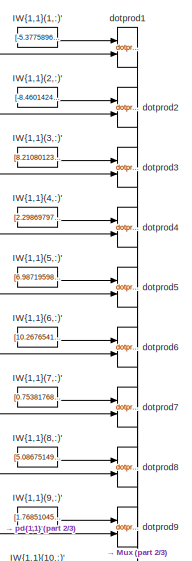
[diagram: controller1/optimized controller - pm/net_col_ef_1/Layer 1/IW{1,1} - part 1/3, top center region]
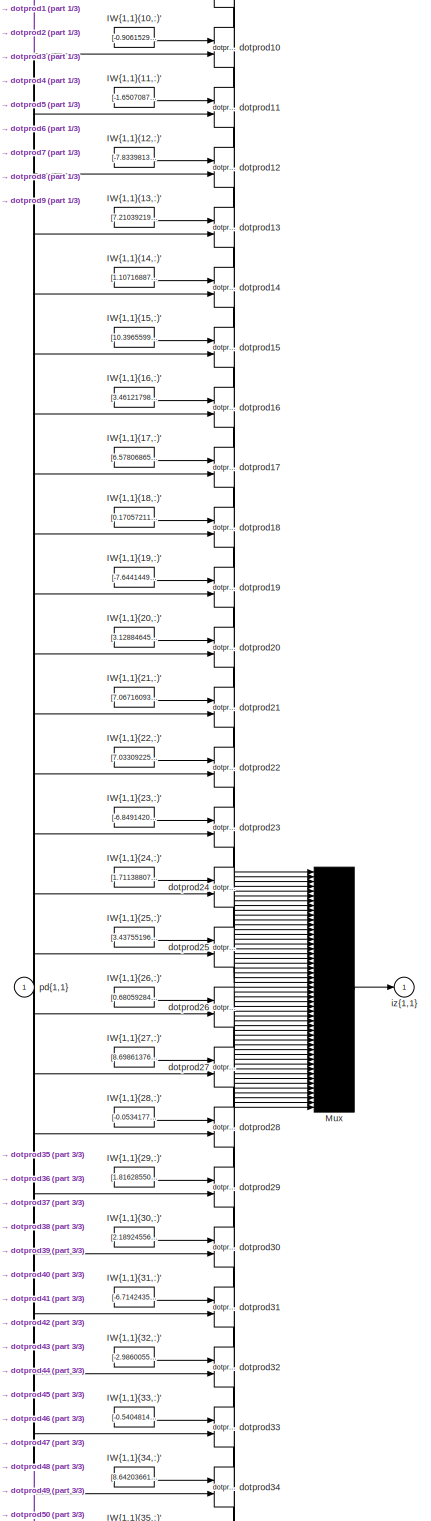
[diagram: controller1/optimized controller - pm/net_col_ef_1/Layer 1/IW{1,1} - part 2/3, full width, middle band]
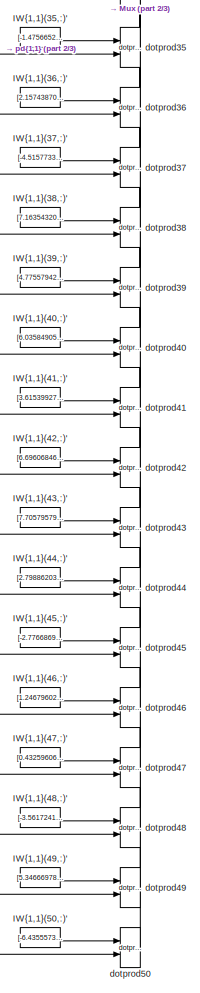
[diagram: controller1/optimized controller - pm/net_col_ef_1/Layer 1/IW{1,1} - part 3/3, bottom center region]
BLOCK [SubSystem] controller1/optimized controller - pm/net_col_ef_1/Layer 1/IW{1,1}
  FunctionWithSeparateData = off
  MaskDisplay = e = 0.06;c1 = [120 150 230]/255;c2 = ([120 150 230]+0)/383;c3 = ([120 150 230]+128)/383;patch([0 1 1 0],[0 0 1 1],c1);patch([0 1 1 1-e 1-e 0+e],[0 0 1 1-e 0+e 0+e],c2);patch([0 0 1 1-e 0+e 0+e],[0 1 1 1-e 1-e 0+e],c3);plot([0 1 1 0 0],[0 0 1 1 0]);disp('W');  <repeated x9 — deduplicated; at blocks: IW{1,1}, LW{2,1}, LW{3,2}>
  MaskHideContents = off
  MaskIconFrame = off
  MaskIconOpaque = on
  MaskIconRotate = none
  MaskIconUnits = autoscale
  MaskPortRotate = default
  MinAlgLoopOccurrences = off
  Opaque = off
  Ports = [1, 1]
  PropExecContextOutsideSubsystem = off
  RTWSystemCode = Auto
  RequestExecContextInheritance = off
  SID = 38443
BLOCK [Constant] controller1/optimized controller - pm/net_col_ef_1/Layer 1/IW{1,1}/IW{1,1}(1,:)'
  MaskDisplay = e = 0.06;c1 = [120 150 230]/255;c2 = ([120 150 230]+0)/383;c3 = ([120 150 230]+128)/383;patch([0 1 1 0],[0 0 1 1],c1);patch([0 1 1 1-e 1-e 0+e],[0 0 1 1-e 0+e 0+e],c2);patch([0 0 1 1-e 0+e 0+e],[0 1 1 1-e 1-e 0+e],c3);plot([0 1 1 0 0],[0 0 1 1 0]);disp('Weights');  <repeated x150 — deduplicated; at blocks: IW{1,1}(1,:)', IW{1,1}(10,:)', IW{1,1}(11,:)', IW{1,1}(12,:)', IW{1,1}(13,:)', IW{1,1}(14,:)', IW{1,1}(15,:)', IW{1,1}(16,:)', IW{1,1}(17,:)', IW{1,1}(18,:)', IW{1,1}(19,:)', IW{1,1}(2,:)', IW{1,1}(20,:)', IW{1,1}(21,:)', IW{1,1}(22,:)', IW{1,1}(23,:)', +34 more>
  MaskIconFrame = off
  MaskIconOpaque = on
  MaskIconRotate = none
  MaskIconUnits = autoscale
  MaskPortRotate = default
  SID = 38445
  Value = [-5.3775896517363329;-7.9489607472156791;-4.7734915502740494]
BLOCK [Constant] controller1/optimized controller - pm/net_col_ef_1/Layer 1/IW{1,1}/IW{1,1}(10,:)'
  MaskIconFrame = off
  MaskIconOpaque = on
  MaskIconRotate = none
  MaskIconUnits = autoscale
  MaskPortRotate = default
  SID = 38446
  Value = [-0.90615295641020577;6.7469010519206023;-7.1623948428673652]
BLOCK [Constant] controller1/optimized controller - pm/net_col_ef_1/Layer 1/IW{1,1}/IW{1,1}(11,:)'
  MaskIconFrame = off
  MaskIconOpaque = on
  MaskIconRotate = none
  MaskIconUnits = autoscale
  MaskPortRotate = default
  SID = 38447
  Value = [-1.6507087646389371;7.7499627129024473;-6.7344357971861042]
BLOCK [Constant] controller1/optimized controller - pm/net_col_ef_1/Layer 1/IW{1,1}/IW{1,1}(12,:)'
  MaskIconFrame = off
  MaskIconOpaque = on
  MaskIconRotate = none
  MaskIconUnits = autoscale
  MaskPortRotate = default
  SID = 38448
  Value = [-7.8339813762349575;-1.3923112574319301;6.4910427491734186]
BLOCK [Constant] controller1/optimized controller - pm/net_col_ef_1/Layer 1/IW{1,1}/IW{1,1}(13,:)'
  MaskIconFrame = off
  MaskIconOpaque = on
  MaskIconRotate = none
  MaskIconUnits = autoscale
  MaskPortRotate = default
  SID = 38449
  Value = [7.2103921967395355;6.0259224905689575;-4.9564905760629818]
BLOCK [Constant] controller1/optimized controller - pm/net_col_ef_1/Layer 1/IW{1,1}/IW{1,1}(14,:)'
  MaskIconFrame = off
  MaskIconOpaque = on
  MaskIconRotate = none
  MaskIconUnits = autoscale
  MaskPortRotate = default
  SID = 38450
  Value = [1.1071688766072463;6.1268656719756329;-8.5158104475467962]
BLOCK [Constant] controller1/optimized controller - pm/net_col_ef_1/Layer 1/IW{1,1}/IW{1,1}(15,:)'
  MaskIconFrame = off
  MaskIconOpaque = on
  MaskIconRotate = none
  MaskIconUnits = autoscale
  MaskPortRotate = default
  SID = 38451
  Value = [10.396559939401412;-0.500727334409094;-3.8640874543040433]
BLOCK [Constant] controller1/optimized controller - pm/net_col_ef_1/Layer 1/IW{1,1}/IW{1,1}(16,:)'
  MaskIconFrame = off
  MaskIconOpaque = on
  MaskIconRotate = none
  MaskIconUnits = autoscale
  MaskPortRotate = default
  SID = 38452
  Value = [3.4612179836499095;5.1059557827459354;8.8846930835928486]
BLOCK [Constant] controller1/optimized controller - pm/net_col_ef_1/Layer 1/IW{1,1}/IW{1,1}(17,:)'
  MaskIconFrame = off
  MaskIconOpaque = on
  MaskIconRotate = none
  MaskIconUnits = autoscale
  MaskPortRotate = default
  SID = 38453
  Value = [6.5780686587672053;-6.2213630470938135;5.7202413925109754]
BLOCK [Constant] controller1/optimized controller - pm/net_col_ef_1/Layer 1/IW{1,1}/IW{1,1}(18,:)'
  MaskIconFrame = off
  MaskIconOpaque = on
  MaskIconRotate = none
  MaskIconUnits = autoscale
  MaskPortRotate = default
  SID = 38454
  Value = [0.17057211004157058;6.9782510971665745;8.389485335597362]
BLOCK [Constant] controller1/optimized controller - pm/net_col_ef_1/Layer 1/IW{1,1}/IW{1,1}(19,:)'
  MaskIconFrame = off
  MaskIconOpaque = on
  MaskIconRotate = none
  MaskIconUnits = autoscale
  MaskPortRotate = default
  SID = 38455
  Value = [-7.6441449765093612;-6.4471525194625601;-0.41178837500495752]
BLOCK [Constant] controller1/optimized controller - pm/net_col_ef_1/Layer 1/IW{1,1}/IW{1,1}(2,:)'
  MaskIconFrame = off
  MaskIconOpaque = on
  MaskIconRotate = none
  MaskIconUnits = autoscale
  MaskPortRotate = default
  SID = 38456
  Value = [-8.460142401430268;3.0161267162953638;4.7964475806100433]
BLOCK [Constant] controller1/optimized controller - pm/net_col_ef_1/Layer 1/IW{1,1}/IW{1,1}(20,:)'
  MaskIconFrame = off
  MaskIconOpaque = on
  MaskIconRotate = none
  MaskIconUnits = autoscale
  MaskPortRotate = default
  SID = 38457
  Value = [3.1288464588032534;5.5764191227939177;-8.5746820641435129]
BLOCK [Constant] controller1/optimized controller - pm/net_col_ef_1/Layer 1/IW{1,1}/IW{1,1}(21,:)'
  MaskIconFrame = off
  MaskIconOpaque = on
  MaskIconRotate = none
  MaskIconUnits = autoscale
  MaskPortRotate = default
  SID = 38458
  Value = [7.0671609350962576;7.2360535502808565;2.5631626604251374]
BLOCK [Constant] controller1/optimized controller - pm/net_col_ef_1/Layer 1/IW{1,1}/IW{1,1}(22,:)'
  MaskIconFrame = off
  MaskIconOpaque = on
  MaskIconRotate = none
  MaskIconUnits = autoscale
  MaskPortRotate = default
  SID = 38459
  Value = [7.0330922574615791;-0.053397243742692349;7.6522538787641619]
BLOCK [Constant] controller1/optimized controller - pm/net_col_ef_1/Layer 1/IW{1,1}/IW{1,1}(23,:)'
  MaskIconFrame = off
  MaskIconOpaque = on
  MaskIconRotate = none
  MaskIconUnits = autoscale
  MaskPortRotate = default
  SID = 38460
  Value = [-6.8491420923952893;-7.7533182634360003;0.79398328961298004]
BLOCK [Constant] controller1/optimized controller - pm/net_col_ef_1/Layer 1/IW{1,1}/IW{1,1}(24,:)'
  MaskIconFrame = off
  MaskIconOpaque = on
  MaskIconRotate = none
  MaskIconUnits = autoscale
  MaskPortRotate = default
  SID = 38461
  Value = [1.7113880726045627;-4.3851554468579623;-9.079470296565713]
BLOCK [Constant] controller1/optimized controller - pm/net_col_ef_1/Layer 1/IW{1,1}/IW{1,1}(25,:)'
  MaskIconFrame = off
  MaskIconOpaque = on
  MaskIconRotate = none
  MaskIconUnits = autoscale
  MaskPortRotate = default
  SID = 38462
  Value = [3.4375519668093091;5.7943034909843876;-7.9795006344956523]
BLOCK [Constant] controller1/optimized controller - pm/net_col_ef_1/Layer 1/IW{1,1}/IW{1,1}(26,:)'
  MaskIconFrame = off
  MaskIconOpaque = on
  MaskIconRotate = none
  MaskIconUnits = autoscale
  MaskPortRotate = default
  SID = 38463
  Value = [0.68059284461981984;-8.173022332634341;-6.223775924475329]
BLOCK [Constant] controller1/optimized controller - pm/net_col_ef_1/Layer 1/IW{1,1}/IW{1,1}(27,:)'
  MaskIconFrame = off
  MaskIconOpaque = on
  MaskIconRotate = none
  MaskIconUnits = autoscale
  MaskPortRotate = default
  SID = 38464
  Value = [8.6986137675231348;-2.7916666254653824;-5.730230982095776]
BLOCK [Constant] controller1/optimized controller - pm/net_col_ef_1/Layer 1/IW{1,1}/IW{1,1}(28,:)'
  MaskIconFrame = off
  MaskIconOpaque = on
  MaskIconRotate = none
  MaskIconUnits = autoscale
  MaskPortRotate = default
  SID = 38465
  Value = [-0.053417793231077301;7.1752875275276207;7.0616979519583634]
BLOCK [Constant] controller1/optimized controller - pm/net_col_ef_1/Layer 1/IW{1,1}/IW{1,1}(29,:)'
  MaskIconFrame = off
  MaskIconOpaque = on
  MaskIconRotate = none
  MaskIconUnits = autoscale
  MaskPortRotate = default
  SID = 38466
  Value = [1.8162855099634134;-8.5209747780864724;5.9290352457834095]
BLOCK [Constant] controller1/optimized controller - pm/net_col_ef_1/Layer 1/IW{1,1}/IW{1,1}(3,:)'
  MaskIconFrame = off
  MaskIconOpaque = on
  MaskIconRotate = none
  MaskIconUnits = autoscale
  MaskPortRotate = default
  SID = 38467
  Value = [8.2108012333393159;6.7061357418536449;2.3941901701200941]
BLOCK [Constant] controller1/optimized controller - pm/net_col_ef_1/Layer 1/IW{1,1}/IW{1,1}(30,:)'
  MaskIconFrame = off
  MaskIconOpaque = on
  MaskIconRotate = none
  MaskIconUnits = autoscale
  MaskPortRotate = default
  SID = 38468
  Value = [2.1892455619422915;9.7041044448653135;-2.2669670486970217]
BLOCK [Constant] controller1/optimized controller - pm/net_col_ef_1/Layer 1/IW{1,1}/IW{1,1}(31,:)'
  MaskIconFrame = off
  MaskIconOpaque = on
  MaskIconRotate = none
  MaskIconUnits = autoscale
  MaskPortRotate = default
  SID = 38469
  Value = [-6.714243560338617;-7.8042112847012834;0.99660080011102092]
BLOCK [Constant] controller1/optimized controller - pm/net_col_ef_1/Layer 1/IW{1,1}/IW{1,1}(32,:)'
  MaskIconFrame = off
  MaskIconOpaque = on
  MaskIconRotate = none
  MaskIconUnits = autoscale
  MaskPortRotate = default
  SID = 38470
  Value = [-2.9860055139506541;9.4445728183118174;-4.8801590152809595]
BLOCK [Constant] controller1/optimized controller - pm/net_col_ef_1/Layer 1/IW{1,1}/IW{1,1}(33,:)'
  MaskIconFrame = off
  MaskIconOpaque = on
  MaskIconRotate = none
  MaskIconUnits = autoscale
  MaskPortRotate = default
  SID = 38471
  Value = [-0.5404814682835799;0.5578452669900098;-11.280584908811543]
BLOCK [Constant] controller1/optimized controller - pm/net_col_ef_1/Layer 1/IW{1,1}/IW{1,1}(34,:)'
  MaskIconFrame = off
  MaskIconOpaque = on
  MaskIconRotate = none
  MaskIconUnits = autoscale
  MaskPortRotate = default
  SID = 38472
  Value = [8.6420366119881979;-4.7110836376265199;1.982027687145492]
BLOCK [Constant] controller1/optimized controller - pm/net_col_ef_1/Layer 1/IW{1,1}/IW{1,1}(35,:)'
  MaskIconFrame = off
  MaskIconOpaque = on
  MaskIconRotate = none
  MaskIconUnits = autoscale
  MaskPortRotate = default
  SID = 38473
  Value = [-1.4756652550524547;-1.5218234167370062;-9.3722929139755351]
BLOCK [Constant] controller1/optimized controller - pm/net_col_ef_1/Layer 1/IW{1,1}/IW{1,1}(36,:)'
  MaskIconFrame = off
  MaskIconOpaque = on
  MaskIconRotate = none
  MaskIconUnits = autoscale
  MaskPortRotate = default
  SID = 38474
  Value = [2.1574387019785171;2.9202112768674913;9.5466453191066165]
BLOCK [Constant] controller1/optimized controller - pm/net_col_ef_1/Layer 1/IW{1,1}/IW{1,1}(37,:)'
  MaskIconFrame = off
  MaskIconOpaque = on
  MaskIconRotate = none
  MaskIconUnits = autoscale
  MaskPortRotate = default
  SID = 38475
  Value = [-4.5157733305561809;-4.5273309043651961;-8.118243886382853]
BLOCK [Constant] controller1/optimized controller - pm/net_col_ef_1/Layer 1/IW{1,1}/IW{1,1}(38,:)'
  MaskIconFrame = off
  MaskIconOpaque = on
  MaskIconRotate = none
  MaskIconUnits = autoscale
  MaskPortRotate = default
  SID = 38476
  Value = [7.1635432082439303;6.4818880120601081;-3.3386119838416644]
BLOCK [Constant] controller1/optimized controller - pm/net_col_ef_1/Layer 1/IW{1,1}/IW{1,1}(39,:)'
  MaskIconFrame = off
  MaskIconOpaque = on
  MaskIconRotate = none
  MaskIconUnits = autoscale
  MaskPortRotate = default
  SID = 38477
  Value = [4.7755794234979287;-0.32084908566741388;-9.6379267973276228]
BLOCK [Constant] controller1/optimized controller - pm/net_col_ef_1/Layer 1/IW{1,1}/IW{1,1}(4,:)'
  MaskIconFrame = off
  MaskIconOpaque = on
  MaskIconRotate = none
  MaskIconUnits = autoscale
  MaskPortRotate = default
  SID = 38478
  Value = [2.2986979739523652;9.0682263515073291;5.630179274613953]
BLOCK [Constant] controller1/optimized controller - pm/net_col_ef_1/Layer 1/IW{1,1}/IW{1,1}(40,:)'
  MaskIconFrame = off
  MaskIconOpaque = on
  MaskIconRotate = none
  MaskIconUnits = autoscale
  MaskPortRotate = default
  SID = 38479
  Value = [6.0358490596357708;-8.761036758058518;-0.52080707689843309]
BLOCK [Constant] controller1/optimized controller - pm/net_col_ef_1/Layer 1/IW{1,1}/IW{1,1}(41,:)'
  MaskIconFrame = off
  MaskIconOpaque = on
  MaskIconRotate = none
  MaskIconUnits = autoscale
  MaskPortRotate = default
  SID = 38480
  Value = [3.6153992709300873;-8.6112025051025913;-4.9139836358010909]
BLOCK [Constant] controller1/optimized controller - pm/net_col_ef_1/Layer 1/IW{1,1}/IW{1,1}(42,:)'
  MaskIconFrame = off
  MaskIconOpaque = on
  MaskIconRotate = none
  MaskIconUnits = autoscale
  MaskPortRotate = default
  SID = 38481
  Value = [6.6960684662907237;6.547699323052603;-4.9562253005223127]
BLOCK [Constant] controller1/optimized controller - pm/net_col_ef_1/Layer 1/IW{1,1}/IW{1,1}(43,:)'
  MaskIconFrame = off
  MaskIconOpaque = on
  MaskIconRotate = none
  MaskIconUnits = autoscale
  MaskPortRotate = default
  SID = 38482
  Value = [7.7057957965733559;0.2087897534948735;-7.1704831043852009]
BLOCK [Constant] controller1/optimized controller - pm/net_col_ef_1/Layer 1/IW{1,1}/IW{1,1}(44,:)'
  MaskIconFrame = off
  MaskIconOpaque = on
  MaskIconRotate = none
  MaskIconUnits = autoscale
  MaskPortRotate = default
  SID = 38483
  Value = [2.7988620321133357;-6.8420653705488599;-7.8706643960078209]
BLOCK [Constant] controller1/optimized controller - pm/net_col_ef_1/Layer 1/IW{1,1}/IW{1,1}(45,:)'
  MaskIconFrame = off
  MaskIconOpaque = on
  MaskIconRotate = none
  MaskIconUnits = autoscale
  MaskPortRotate = default
  SID = 38484
  Value = [-2.7766869250725175;-8.7696494271658345;-4.3021921948493178]
BLOCK [Constant] controller1/optimized controller - pm/net_col_ef_1/Layer 1/IW{1,1}/IW{1,1}(46,:)'
  MaskIconFrame = off
  MaskIconOpaque = on
  MaskIconRotate = none
  MaskIconUnits = autoscale
  MaskPortRotate = default
  SID = 38485
  Value = [1.2467960248480014;-7.7254622639501607;-5.7033296330340768]
BLOCK [Constant] controller1/optimized controller - pm/net_col_ef_1/Layer 1/IW{1,1}/IW{1,1}(47,:)'
  MaskIconFrame = off
  MaskIconOpaque = on
  MaskIconRotate = none
  MaskIconUnits = autoscale
  MaskPortRotate = default
  SID = 38486
  Value = [0.43259606572777337;-9.7174390808303563;-2.8696300701593453]
BLOCK [Constant] controller1/optimized controller - pm/net_col_ef_1/Layer 1/IW{1,1}/IW{1,1}(48,:)'
  MaskIconFrame = off
  MaskIconOpaque = on
  MaskIconRotate = none
  MaskIconUnits = autoscale
  MaskPortRotate = default
  SID = 38487
  Value = [-3.5617241716840509;9.7599569038457243;-2.7554975542132571]
BLOCK [Constant] controller1/optimized controller - pm/net_col_ef_1/Layer 1/IW{1,1}/IW{1,1}(49,:)'
  MaskIconFrame = off
  MaskIconOpaque = on
  MaskIconRotate = none
  MaskIconUnits = autoscale
  MaskPortRotate = default
  SID = 38488
  Value = [5.346669788920595;5.9200784470378265;-5.9723307429397794]
BLOCK [Constant] controller1/optimized controller - pm/net_col_ef_1/Layer 1/IW{1,1}/IW{1,1}(5,:)'
  MaskIconFrame = off
  MaskIconOpaque = on
  MaskIconRotate = none
  MaskIconUnits = autoscale
  MaskPortRotate = default
  SID = 38489
  Value = [6.9871959879202263;4.8654520783672934;-5.6145246035881193]
BLOCK [Constant] controller1/optimized controller - pm/net_col_ef_1/Layer 1/IW{1,1}/IW{1,1}(50,:)'
  MaskIconFrame = off
  MaskIconOpaque = on
  MaskIconRotate = none
  MaskIconUnits = autoscale
  MaskPortRotate = default
  SID = 38490
  Value = [-6.4355573634005081;-2.1863277132191348;7.543119498295062]
BLOCK [Constant] controller1/optimized controller - pm/net_col_ef_1/Layer 1/IW{1,1}/IW{1,1}(6,:)'
  MaskIconFrame = off
  MaskIconOpaque = on
  MaskIconRotate = none
  MaskIconUnits = autoscale
  MaskPortRotate = default
  SID = 38491
  Value = [10.267654188128855;0.65106952349747194;-1.4950336328637903]
BLOCK [Constant] controller1/optimized controller - pm/net_col_ef_1/Layer 1/IW{1,1}/IW{1,1}(7,:)'
  MaskIconFrame = off
  MaskIconOpaque = on
  MaskIconRotate = none
  MaskIconUnits = autoscale
  MaskPortRotate = default
  SID = 38492
  Value = [0.75381768745767186;-0.95916982565150377;-10.157361647817114]
BLOCK [Constant] controller1/optimized controller - pm/net_col_ef_1/Layer 1/IW{1,1}/IW{1,1}(8,:)'
  MaskIconFrame = off
  MaskIconOpaque = on
  MaskIconRotate = none
  MaskIconUnits = autoscale
  MaskPortRotate = default
  SID = 38493
  Value = [5.0867514936242904;-7.6897793341675316;-3.4527040475566264]
BLOCK [Constant] controller1/optimized controller - pm/net_col_ef_1/Layer 1/IW{1,1}/IW{1,1}(9,:)'
  MaskIconFrame = off
  MaskIconOpaque = on
  MaskIconRotate = none
  MaskIconUnits = autoscale
  MaskPortRotate = default
  SID = 38494
  Value = [1.7685104570286725;3.1578199555923048;8.8414227419657134]
BLOCK [Mux] controller1/optimized controller - pm/net_col_ef_1/Layer 1/IW{1,1}/Mux
  Inputs = 50
  MaskDisplay = e = 0.06;c1 = [120 150 230]/255;c2 = ([120 150 230]+0)/383;c3 = ([120 150 230]+128)/383;patch([0 1 1 0],[0 0 1 1],c1);patch([0 1 1 1-e 1-e 0+e],[0 0 1 1-e 0+e 0+e],c2);patch([0 0 1 1-e 0+e 0+e],[0 1 1 1-e 1-e 0+e],c3);plot([0 1 1 0 0],[0 0 1 1 0]);disp('Mux');  <repeated x9 — deduplicated; at blocks: Mux>
  MaskIconFrame = off
  MaskIconOpaque = on
  MaskIconRotate = none
  MaskIconUnits = autoscale
  MaskPortRotate = default
  Ports = [50, 1]
  SID = 38495
BLOCK [Reference] controller1/optimized controller - pm/net_col_ef_1/Layer 1/IW{1,1}/dotprod1  REF=neural/Weight Functions/dotprod
  FunctionWithSeparateData = off
  GeneratePreprocessorConditionals = off
  Ports = [2, 1]
  RTWMemSecDataConstants = Inherit from model
  RTWMemSecDataInternal = Inherit from model
  RTWMemSecDataParameters = Inherit from model
  RTWMemSecFuncExecute = Inherit from model
  RTWMemSecFuncInitTerm = Inherit from model
  SID = 38496
  ShowPortLabels = FromPortIcon
  SourceBlock = neural/Weight Functions/dotprod
  SourceType = DOTPROD
  SystemSampleTime = -1
BLOCK [Reference] controller1/optimized controller - pm/net_col_ef_1/Layer 1/IW{1,1}/dotprod10  REF=neural/Weight Functions/dotprod
  FunctionWithSeparateData = off
  GeneratePreprocessorConditionals = off
  Ports = [2, 1]
  RTWMemSecDataConstants = Inherit from model
  RTWMemSecDataInternal = Inherit from model
  RTWMemSecDataParameters = Inherit from model
  RTWMemSecFuncExecute = Inherit from model
  RTWMemSecFuncInitTerm = Inherit from model
  SID = 38497
  ShowPortLabels = FromPortIcon
  SourceBlock = neural/Weight Functions/dotprod
  SourceType = DOTPROD
  SystemSampleTime = -1
BLOCK [Reference] controller1/optimized controller - pm/net_col_ef_1/Layer 1/IW{1,1}/dotprod11  REF=neural/Weight Functions/dotprod
  FunctionWithSeparateData = off
  GeneratePreprocessorConditionals = off
  Ports = [2, 1]
  RTWMemSecDataConstants = Inherit from model
  RTWMemSecDataInternal = Inherit from model
  RTWMemSecDataParameters = Inherit from model
  RTWMemSecFuncExecute = Inherit from model
  RTWMemSecFuncInitTerm = Inherit from model
  SID = 38498
  ShowPortLabels = FromPortIcon
  SourceBlock = neural/Weight Functions/dotprod
  SourceType = DOTPROD
  SystemSampleTime = -1
BLOCK [Reference] controller1/optimized controller - pm/net_col_ef_1/Layer 1/IW{1,1}/dotprod12  REF=neural/Weight Functions/dotprod
  FunctionWithSeparateData = off
  GeneratePreprocessorConditionals = off
  Ports = [2, 1]
  RTWMemSecDataConstants = Inherit from model
  RTWMemSecDataInternal = Inherit from model
  RTWMemSecDataParameters = Inherit from model
  RTWMemSecFuncExecute = Inherit from model
  RTWMemSecFuncInitTerm = Inherit from model
  SID = 38499
  ShowPortLabels = FromPortIcon
  SourceBlock = neural/Weight Functions/dotprod
  SourceType = DOTPROD
  SystemSampleTime = -1
BLOCK [Reference] controller1/optimized controller - pm/net_col_ef_1/Layer 1/IW{1,1}/dotprod13  REF=neural/Weight Functions/dotprod
  FunctionWithSeparateData = off
  GeneratePreprocessorConditionals = off
  Ports = [2, 1]
  RTWMemSecDataConstants = Inherit from model
  RTWMemSecDataInternal = Inherit from model
  RTWMemSecDataParameters = Inherit from model
  RTWMemSecFuncExecute = Inherit from model
  RTWMemSecFuncInitTerm = Inherit from model
  SID = 38500
  ShowPortLabels = FromPortIcon
  SourceBlock = neural/Weight Functions/dotprod
  SourceType = DOTPROD
  SystemSampleTime = -1
BLOCK [Reference] controller1/optimized controller - pm/net_col_ef_1/Layer 1/IW{1,1}/dotprod14  REF=neural/Weight Functions/dotprod
  FunctionWithSeparateData = off
  GeneratePreprocessorConditionals = off
  Ports = [2, 1]
  RTWMemSecDataConstants = Inherit from model
  RTWMemSecDataInternal = Inherit from model
  RTWMemSecDataParameters = Inherit from model
  RTWMemSecFuncExecute = Inherit from model
  RTWMemSecFuncInitTerm = Inherit from model
  SID = 38501
  ShowPortLabels = FromPortIcon
  SourceBlock = neural/Weight Functions/dotprod
  SourceType = DOTPROD
  SystemSampleTime = -1
BLOCK [Reference] controller1/optimized controller - pm/net_col_ef_1/Layer 1/IW{1,1}/dotprod15  REF=neural/Weight Functions/dotprod
  FunctionWithSeparateData = off
  GeneratePreprocessorConditionals = off
  Ports = [2, 1]
  RTWMemSecDataConstants = Inherit from model
  RTWMemSecDataInternal = Inherit from model
  RTWMemSecDataParameters = Inherit from model
  RTWMemSecFuncExecute = Inherit from model
  RTWMemSecFuncInitTerm = Inherit from model
  SID = 38502
  ShowPortLabels = FromPortIcon
  SourceBlock = neural/Weight Functions/dotprod
  SourceType = DOTPROD
  SystemSampleTime = -1
BLOCK [Reference] controller1/optimized controller - pm/net_col_ef_1/Layer 1/IW{1,1}/dotprod16  REF=neural/Weight Functions/dotprod
  FunctionWithSeparateData = off
  GeneratePreprocessorConditionals = off
  Ports = [2, 1]
  RTWMemSecDataConstants = Inherit from model
  RTWMemSecDataInternal = Inherit from model
  RTWMemSecDataParameters = Inherit from model
  RTWMemSecFuncExecute = Inherit from model
  RTWMemSecFuncInitTerm = Inherit from model
  SID = 38503
  ShowPortLabels = FromPortIcon
  SourceBlock = neural/Weight Functions/dotprod
  SourceType = DOTPROD
  SystemSampleTime = -1
BLOCK [Reference] controller1/optimized controller - pm/net_col_ef_1/Layer 1/IW{1,1}/dotprod17  REF=neural/Weight Functions/dotprod
  FunctionWithSeparateData = off
  GeneratePreprocessorConditionals = off
  Ports = [2, 1]
  RTWMemSecDataConstants = Inherit from model
  RTWMemSecDataInternal = Inherit from model
  RTWMemSecDataParameters = Inherit from model
  RTWMemSecFuncExecute = Inherit from model
  RTWMemSecFuncInitTerm = Inherit from model
  SID = 38504
  ShowPortLabels = FromPortIcon
  SourceBlock = neural/Weight Functions/dotprod
  SourceType = DOTPROD
  SystemSampleTime = -1
BLOCK [Reference] controller1/optimized controller - pm/net_col_ef_1/Layer 1/IW{1,1}/dotprod18  REF=neural/Weight Functions/dotprod
  FunctionWithSeparateData = off
  GeneratePreprocessorConditionals = off
  Ports = [2, 1]
  RTWMemSecDataConstants = Inherit from model
  RTWMemSecDataInternal = Inherit from model
  RTWMemSecDataParameters = Inherit from model
  RTWMemSecFuncExecute = Inherit from model
  RTWMemSecFuncInitTerm = Inherit from model
  SID = 38505
  ShowPortLabels = FromPortIcon
  SourceBlock = neural/Weight Functions/dotprod
  SourceType = DOTPROD
  SystemSampleTime = -1
BLOCK [Reference] controller1/optimized controller - pm/net_col_ef_1/Layer 1/IW{1,1}/dotprod19  REF=neural/Weight Functions/dotprod
  FunctionWithSeparateData = off
  GeneratePreprocessorConditionals = off
  Ports = [2, 1]
  RTWMemSecDataConstants = Inherit from model
  RTWMemSecDataInternal = Inherit from model
  RTWMemSecDataParameters = Inherit from model
  RTWMemSecFuncExecute = Inherit from model
  RTWMemSecFuncInitTerm = Inherit from model
  SID = 38506
  ShowPortLabels = FromPortIcon
  SourceBlock = neural/Weight Functions/dotprod
  SourceType = DOTPROD
  SystemSampleTime = -1
BLOCK [Reference] controller1/optimized controller - pm/net_col_ef_1/Layer 1/IW{1,1}/dotprod2  REF=neural/Weight Functions/dotprod
  FunctionWithSeparateData = off
  GeneratePreprocessorConditionals = off
  Ports = [2, 1]
  RTWMemSecDataConstants = Inherit from model
  RTWMemSecDataInternal = Inherit from model
  RTWMemSecDataParameters = Inherit from model
  RTWMemSecFuncExecute = Inherit from model
  RTWMemSecFuncInitTerm = Inherit from model
  SID = 38507
  ShowPortLabels = FromPortIcon
  SourceBlock = neural/Weight Functions/dotprod
  SourceType = DOTPROD
  SystemSampleTime = -1
BLOCK [Reference] controller1/optimized controller - pm/net_col_ef_1/Layer 1/IW{1,1}/dotprod20  REF=neural/Weight Functions/dotprod
  FunctionWithSeparateData = off
  GeneratePreprocessorConditionals = off
  Ports = [2, 1]
  RTWMemSecDataConstants = Inherit from model
  RTWMemSecDataInternal = Inherit from model
  RTWMemSecDataParameters = Inherit from model
  RTWMemSecFuncExecute = Inherit from model
  RTWMemSecFuncInitTerm = Inherit from model
  SID = 38508
  ShowPortLabels = FromPortIcon
  SourceBlock = neural/Weight Functions/dotprod
  SourceType = DOTPROD
  SystemSampleTime = -1
BLOCK [Reference] controller1/optimized controller - pm/net_col_ef_1/Layer 1/IW{1,1}/dotprod21  REF=neural/Weight Functions/dotprod
  FunctionWithSeparateData = off
  GeneratePreprocessorConditionals = off
  Ports = [2, 1]
  RTWMemSecDataConstants = Inherit from model
  RTWMemSecDataInternal = Inherit from model
  RTWMemSecDataParameters = Inherit from model
  RTWMemSecFuncExecute = Inherit from model
  RTWMemSecFuncInitTerm = Inherit from model
  SID = 38509
  ShowPortLabels = FromPortIcon
  SourceBlock = neural/Weight Functions/dotprod
  SourceType = DOTPROD
  SystemSampleTime = -1
BLOCK [Reference] controller1/optimized controller - pm/net_col_ef_1/Layer 1/IW{1,1}/dotprod22  REF=neural/Weight Functions/dotprod
  FunctionWithSeparateData = off
  GeneratePreprocessorConditionals = off
  Ports = [2, 1]
  RTWMemSecDataConstants = Inherit from model
  RTWMemSecDataInternal = Inherit from model
  RTWMemSecDataParameters = Inherit from model
  RTWMemSecFuncExecute = Inherit from model
  RTWMemSecFuncInitTerm = Inherit from model
  SID = 38510
  ShowPortLabels = FromPortIcon
  SourceBlock = neural/Weight Functions/dotprod
  SourceType = DOTPROD
  SystemSampleTime = -1
BLOCK [Reference] controller1/optimized controller - pm/net_col_ef_1/Layer 1/IW{1,1}/dotprod23  REF=neural/Weight Functions/dotprod
  FunctionWithSeparateData = off
  GeneratePreprocessorConditionals = off
  Ports = [2, 1]
  RTWMemSecDataConstants = Inherit from model
  RTWMemSecDataInternal = Inherit from model
  RTWMemSecDataParameters = Inherit from model
  RTWMemSecFuncExecute = Inherit from model
  RTWMemSecFuncInitTerm = Inherit from model
  SID = 38511
  ShowPortLabels = FromPortIcon
  SourceBlock = neural/Weight Functions/dotprod
  SourceType = DOTPROD
  SystemSampleTime = -1
BLOCK [Reference] controller1/optimized controller - pm/net_col_ef_1/Layer 1/IW{1,1}/dotprod24  REF=neural/Weight Functions/dotprod
  FunctionWithSeparateData = off
  GeneratePreprocessorConditionals = off
  Ports = [2, 1]
  RTWMemSecDataConstants = Inherit from model
  RTWMemSecDataInternal = Inherit from model
  RTWMemSecDataParameters = Inherit from model
  RTWMemSecFuncExecute = Inherit from model
  RTWMemSecFuncInitTerm = Inherit from model
  SID = 38512
  ShowPortLabels = FromPortIcon
  SourceBlock = neural/Weight Functions/dotprod
  SourceType = DOTPROD
  SystemSampleTime = -1
BLOCK [Reference] controller1/optimized controller - pm/net_col_ef_1/Layer 1/IW{1,1}/dotprod25  REF=neural/Weight Functions/dotprod
  FunctionWithSeparateData = off
  GeneratePreprocessorConditionals = off
  Ports = [2, 1]
  RTWMemSecDataConstants = Inherit from model
  RTWMemSecDataInternal = Inherit from model
  RTWMemSecDataParameters = Inherit from model
  RTWMemSecFuncExecute = Inherit from model
  RTWMemSecFuncInitTerm = Inherit from model
  SID = 38513
  ShowPortLabels = FromPortIcon
  SourceBlock = neural/Weight Functions/dotprod
  SourceType = DOTPROD
  SystemSampleTime = -1
BLOCK [Reference] controller1/optimized controller - pm/net_col_ef_1/Layer 1/IW{1,1}/dotprod26  REF=neural/Weight Functions/dotprod
  FunctionWithSeparateData = off
  GeneratePreprocessorConditionals = off
  Ports = [2, 1]
  RTWMemSecDataConstants = Inherit from model
  RTWMemSecDataInternal = Inherit from model
  RTWMemSecDataParameters = Inherit from model
  RTWMemSecFuncExecute = Inherit from model
  RTWMemSecFuncInitTerm = Inherit from model
  SID = 38514
  ShowPortLabels = FromPortIcon
  SourceBlock = neural/Weight Functions/dotprod
  SourceType = DOTPROD
  SystemSampleTime = -1
BLOCK [Reference] controller1/optimized controller - pm/net_col_ef_1/Layer 1/IW{1,1}/dotprod27  REF=neural/Weight Functions/dotprod
  FunctionWithSeparateData = off
  GeneratePreprocessorConditionals = off
  Ports = [2, 1]
  RTWMemSecDataConstants = Inherit from model
  RTWMemSecDataInternal = Inherit from model
  RTWMemSecDataParameters = Inherit from model
  RTWMemSecFuncExecute = Inherit from model
  RTWMemSecFuncInitTerm = Inherit from model
  SID = 38515
  ShowPortLabels = FromPortIcon
  SourceBlock = neural/Weight Functions/dotprod
  SourceType = DOTPROD
  SystemSampleTime = -1
BLOCK [Reference] controller1/optimized controller - pm/net_col_ef_1/Layer 1/IW{1,1}/dotprod28  REF=neural/Weight Functions/dotprod
  FunctionWithSeparateData = off
  GeneratePreprocessorConditionals = off
  Ports = [2, 1]
  RTWMemSecDataConstants = Inherit from model
  RTWMemSecDataInternal = Inherit from model
  RTWMemSecDataParameters = Inherit from model
  RTWMemSecFuncExecute = Inherit from model
  RTWMemSecFuncInitTerm = Inherit from model
  SID = 38516
  ShowPortLabels = FromPortIcon
  SourceBlock = neural/Weight Functions/dotprod
  SourceType = DOTPROD
  SystemSampleTime = -1
BLOCK [Reference] controller1/optimized controller - pm/net_col_ef_1/Layer 1/IW{1,1}/dotprod29  REF=neural/Weight Functions/dotprod
  FunctionWithSeparateData = off
  GeneratePreprocessorConditionals = off
  Ports = [2, 1]
  RTWMemSecDataConstants = Inherit from model
  RTWMemSecDataInternal = Inherit from model
  RTWMemSecDataParameters = Inherit from model
  RTWMemSecFuncExecute = Inherit from model
  RTWMemSecFuncInitTerm = Inherit from model
  SID = 38517
  ShowPortLabels = FromPortIcon
  SourceBlock = neural/Weight Functions/dotprod
  SourceType = DOTPROD
  SystemSampleTime = -1
BLOCK [Reference] controller1/optimized controller - pm/net_col_ef_1/Layer 1/IW{1,1}/dotprod3  REF=neural/Weight Functions/dotprod
  FunctionWithSeparateData = off
  GeneratePreprocessorConditionals = off
  Ports = [2, 1]
  RTWMemSecDataConstants = Inherit from model
  RTWMemSecDataInternal = Inherit from model
  RTWMemSecDataParameters = Inherit from model
  RTWMemSecFuncExecute = Inherit from model
  RTWMemSecFuncInitTerm = Inherit from model
  SID = 38518
  ShowPortLabels = FromPortIcon
  SourceBlock = neural/Weight Functions/dotprod
  SourceType = DOTPROD
  SystemSampleTime = -1
BLOCK [Reference] controller1/optimized controller - pm/net_col_ef_1/Layer 1/IW{1,1}/dotprod30  REF=neural/Weight Functions/dotprod
  FunctionWithSeparateData = off
  GeneratePreprocessorConditionals = off
  Ports = [2, 1]
  RTWMemSecDataConstants = Inherit from model
  RTWMemSecDataInternal = Inherit from model
  RTWMemSecDataParameters = Inherit from model
  RTWMemSecFuncExecute = Inherit from model
  RTWMemSecFuncInitTerm = Inherit from model
  SID = 38519
  ShowPortLabels = FromPortIcon
  SourceBlock = neural/Weight Functions/dotprod
  SourceType = DOTPROD
  SystemSampleTime = -1
BLOCK [Reference] controller1/optimized controller - pm/net_col_ef_1/Layer 1/IW{1,1}/dotprod31  REF=neural/Weight Functions/dotprod
  FunctionWithSeparateData = off
  GeneratePreprocessorConditionals = off
  Ports = [2, 1]
  RTWMemSecDataConstants = Inherit from model
  RTWMemSecDataInternal = Inherit from model
  RTWMemSecDataParameters = Inherit from model
  RTWMemSecFuncExecute = Inherit from model
  RTWMemSecFuncInitTerm = Inherit from model
  SID = 38520
  ShowPortLabels = FromPortIcon
  SourceBlock = neural/Weight Functions/dotprod
  SourceType = DOTPROD
  SystemSampleTime = -1
BLOCK [Reference] controller1/optimized controller - pm/net_col_ef_1/Layer 1/IW{1,1}/dotprod32  REF=neural/Weight Functions/dotprod
  FunctionWithSeparateData = off
  GeneratePreprocessorConditionals = off
  Ports = [2, 1]
  RTWMemSecDataConstants = Inherit from model
  RTWMemSecDataInternal = Inherit from model
  RTWMemSecDataParameters = Inherit from model
  RTWMemSecFuncExecute = Inherit from model
  RTWMemSecFuncInitTerm = Inherit from model
  SID = 38521
  ShowPortLabels = FromPortIcon
  SourceBlock = neural/Weight Functions/dotprod
  SourceType = DOTPROD
  SystemSampleTime = -1
BLOCK [Reference] controller1/optimized controller - pm/net_col_ef_1/Layer 1/IW{1,1}/dotprod33  REF=neural/Weight Functions/dotprod
  FunctionWithSeparateData = off
  GeneratePreprocessorConditionals = off
  Ports = [2, 1]
  RTWMemSecDataConstants = Inherit from model
  RTWMemSecDataInternal = Inherit from model
  RTWMemSecDataParameters = Inherit from model
  RTWMemSecFuncExecute = Inherit from model
  RTWMemSecFuncInitTerm = Inherit from model
  SID = 38522
  ShowPortLabels = FromPortIcon
  SourceBlock = neural/Weight Functions/dotprod
  SourceType = DOTPROD
  SystemSampleTime = -1
BLOCK [Reference] controller1/optimized controller - pm/net_col_ef_1/Layer 1/IW{1,1}/dotprod34  REF=neural/Weight Functions/dotprod
  FunctionWithSeparateData = off
  GeneratePreprocessorConditionals = off
  Ports = [2, 1]
  RTWMemSecDataConstants = Inherit from model
  RTWMemSecDataInternal = Inherit from model
  RTWMemSecDataParameters = Inherit from model
  RTWMemSecFuncExecute = Inherit from model
  RTWMemSecFuncInitTerm = Inherit from model
  SID = 38523
  ShowPortLabels = FromPortIcon
  SourceBlock = neural/Weight Functions/dotprod
  SourceType = DOTPROD
  SystemSampleTime = -1
BLOCK [Reference] controller1/optimized controller - pm/net_col_ef_1/Layer 1/IW{1,1}/dotprod35  REF=neural/Weight Functions/dotprod
  FunctionWithSeparateData = off
  GeneratePreprocessorConditionals = off
  Ports = [2, 1]
  RTWMemSecDataConstants = Inherit from model
  RTWMemSecDataInternal = Inherit from model
  RTWMemSecDataParameters = Inherit from model
  RTWMemSecFuncExecute = Inherit from model
  RTWMemSecFuncInitTerm = Inherit from model
  SID = 38524
  ShowPortLabels = FromPortIcon
  SourceBlock = neural/Weight Functions/dotprod
  SourceType = DOTPROD
  SystemSampleTime = -1
BLOCK [Reference] controller1/optimized controller - pm/net_col_ef_1/Layer 1/IW{1,1}/dotprod36  REF=neural/Weight Functions/dotprod
  FunctionWithSeparateData = off
  GeneratePreprocessorConditionals = off
  Ports = [2, 1]
  RTWMemSecDataConstants = Inherit from model
  RTWMemSecDataInternal = Inherit from model
  RTWMemSecDataParameters = Inherit from model
  RTWMemSecFuncExecute = Inherit from model
  RTWMemSecFuncInitTerm = Inherit from model
  SID = 38525
  ShowPortLabels = FromPortIcon
  SourceBlock = neural/Weight Functions/dotprod
  SourceType = DOTPROD
  SystemSampleTime = -1
BLOCK [Reference] controller1/optimized controller - pm/net_col_ef_1/Layer 1/IW{1,1}/dotprod37  REF=neural/Weight Functions/dotprod
  FunctionWithSeparateData = off
  GeneratePreprocessorConditionals = off
  Ports = [2, 1]
  RTWMemSecDataConstants = Inherit from model
  RTWMemSecDataInternal = Inherit from model
  RTWMemSecDataParameters = Inherit from model
  RTWMemSecFuncExecute = Inherit from model
  RTWMemSecFuncInitTerm = Inherit from model
  SID = 38526
  ShowPortLabels = FromPortIcon
  SourceBlock = neural/Weight Functions/dotprod
  SourceType = DOTPROD
  SystemSampleTime = -1
BLOCK [Reference] controller1/optimized controller - pm/net_col_ef_1/Layer 1/IW{1,1}/dotprod38  REF=neural/Weight Functions/dotprod
  FunctionWithSeparateData = off
  GeneratePreprocessorConditionals = off
  Ports = [2, 1]
  RTWMemSecDataConstants = Inherit from model
  RTWMemSecDataInternal = Inherit from model
  RTWMemSecDataParameters = Inherit from model
  RTWMemSecFuncExecute = Inherit from model
  RTWMemSecFuncInitTerm = Inherit from model
  SID = 38527
  ShowPortLabels = FromPortIcon
  SourceBlock = neural/Weight Functions/dotprod
  SourceType = DOTPROD
  SystemSampleTime = -1
BLOCK [Reference] controller1/optimized controller - pm/net_col_ef_1/Layer 1/IW{1,1}/dotprod39  REF=neural/Weight Functions/dotprod
  FunctionWithSeparateData = off
  GeneratePreprocessorConditionals = off
  Ports = [2, 1]
  RTWMemSecDataConstants = Inherit from model
  RTWMemSecDataInternal = Inherit from model
  RTWMemSecDataParameters = Inherit from model
  RTWMemSecFuncExecute = Inherit from model
  RTWMemSecFuncInitTerm = Inherit from model
  SID = 38528
  ShowPortLabels = FromPortIcon
  SourceBlock = neural/Weight Functions/dotprod
  SourceType = DOTPROD
  SystemSampleTime = -1
BLOCK [Reference] controller1/optimized controller - pm/net_col_ef_1/Layer 1/IW{1,1}/dotprod4  REF=neural/Weight Functions/dotprod
  FunctionWithSeparateData = off
  GeneratePreprocessorConditionals = off
  Ports = [2, 1]
  RTWMemSecDataConstants = Inherit from model
  RTWMemSecDataInternal = Inherit from model
  RTWMemSecDataParameters = Inherit from model
  RTWMemSecFuncExecute = Inherit from model
  RTWMemSecFuncInitTerm = Inherit from model
  SID = 38529
  ShowPortLabels = FromPortIcon
  SourceBlock = neural/Weight Functions/dotprod
  SourceType = DOTPROD
  SystemSampleTime = -1
BLOCK [Reference] controller1/optimized controller - pm/net_col_ef_1/Layer 1/IW{1,1}/dotprod40  REF=neural/Weight Functions/dotprod
  FunctionWithSeparateData = off
  GeneratePreprocessorConditionals = off
  Ports = [2, 1]
  RTWMemSecDataConstants = Inherit from model
  RTWMemSecDataInternal = Inherit from model
  RTWMemSecDataParameters = Inherit from model
  RTWMemSecFuncExecute = Inherit from model
  RTWMemSecFuncInitTerm = Inherit from model
  SID = 38530
  ShowPortLabels = FromPortIcon
  SourceBlock = neural/Weight Functions/dotprod
  SourceType = DOTPROD
  SystemSampleTime = -1
BLOCK [Reference] controller1/optimized controller - pm/net_col_ef_1/Layer 1/IW{1,1}/dotprod41  REF=neural/Weight Functions/dotprod
  FunctionWithSeparateData = off
  GeneratePreprocessorConditionals = off
  Ports = [2, 1]
  RTWMemSecDataConstants = Inherit from model
  RTWMemSecDataInternal = Inherit from model
  RTWMemSecDataParameters = Inherit from model
  RTWMemSecFuncExecute = Inherit from model
  RTWMemSecFuncInitTerm = Inherit from model
  SID = 38531
  ShowPortLabels = FromPortIcon
  SourceBlock = neural/Weight Functions/dotprod
  SourceType = DOTPROD
  SystemSampleTime = -1
BLOCK [Reference] controller1/optimized controller - pm/net_col_ef_1/Layer 1/IW{1,1}/dotprod42  REF=neural/Weight Functions/dotprod
  FunctionWithSeparateData = off
  GeneratePreprocessorConditionals = off
  Ports = [2, 1]
  RTWMemSecDataConstants = Inherit from model
  RTWMemSecDataInternal = Inherit from model
  RTWMemSecDataParameters = Inherit from model
  RTWMemSecFuncExecute = Inherit from model
  RTWMemSecFuncInitTerm = Inherit from model
  SID = 38532
  ShowPortLabels = FromPortIcon
  SourceBlock = neural/Weight Functions/dotprod
  SourceType = DOTPROD
  SystemSampleTime = -1
BLOCK [Reference] controller1/optimized controller - pm/net_col_ef_1/Layer 1/IW{1,1}/dotprod43  REF=neural/Weight Functions/dotprod
  FunctionWithSeparateData = off
  GeneratePreprocessorConditionals = off
  Ports = [2, 1]
  RTWMemSecDataConstants = Inherit from model
  RTWMemSecDataInternal = Inherit from model
  RTWMemSecDataParameters = Inherit from model
  RTWMemSecFuncExecute = Inherit from model
  RTWMemSecFuncInitTerm = Inherit from model
  SID = 38533
  ShowPortLabels = FromPortIcon
  SourceBlock = neural/Weight Functions/dotprod
  SourceType = DOTPROD
  SystemSampleTime = -1
BLOCK [Reference] controller1/optimized controller - pm/net_col_ef_1/Layer 1/IW{1,1}/dotprod44  REF=neural/Weight Functions/dotprod
  FunctionWithSeparateData = off
  GeneratePreprocessorConditionals = off
  Ports = [2, 1]
  RTWMemSecDataConstants = Inherit from model
  RTWMemSecDataInternal = Inherit from model
  RTWMemSecDataParameters = Inherit from model
  RTWMemSecFuncExecute = Inherit from model
  RTWMemSecFuncInitTerm = Inherit from model
  SID = 38534
  ShowPortLabels = FromPortIcon
  SourceBlock = neural/Weight Functions/dotprod
  SourceType = DOTPROD
  SystemSampleTime = -1
BLOCK [Reference] controller1/optimized controller - pm/net_col_ef_1/Layer 1/IW{1,1}/dotprod45  REF=neural/Weight Functions/dotprod
  FunctionWithSeparateData = off
  GeneratePreprocessorConditionals = off
  Ports = [2, 1]
  RTWMemSecDataConstants = Inherit from model
  RTWMemSecDataInternal = Inherit from model
  RTWMemSecDataParameters = Inherit from model
  RTWMemSecFuncExecute = Inherit from model
  RTWMemSecFuncInitTerm = Inherit from model
  SID = 38535
  ShowPortLabels = FromPortIcon
  SourceBlock = neural/Weight Functions/dotprod
  SourceType = DOTPROD
  SystemSampleTime = -1
BLOCK [Reference] controller1/optimized controller - pm/net_col_ef_1/Layer 1/IW{1,1}/dotprod46  REF=neural/Weight Functions/dotprod
  FunctionWithSeparateData = off
  GeneratePreprocessorConditionals = off
  Ports = [2, 1]
  RTWMemSecDataConstants = Inherit from model
  RTWMemSecDataInternal = Inherit from model
  RTWMemSecDataParameters = Inherit from model
  RTWMemSecFuncExecute = Inherit from model
  RTWMemSecFuncInitTerm = Inherit from model
  SID = 38536
  ShowPortLabels = FromPortIcon
  SourceBlock = neural/Weight Functions/dotprod
  SourceType = DOTPROD
  SystemSampleTime = -1
BLOCK [Reference] controller1/optimized controller - pm/net_col_ef_1/Layer 1/IW{1,1}/dotprod47  REF=neural/Weight Functions/dotprod
  FunctionWithSeparateData = off
  GeneratePreprocessorConditionals = off
  Ports = [2, 1]
  RTWMemSecDataConstants = Inherit from model
  RTWMemSecDataInternal = Inherit from model
  RTWMemSecDataParameters = Inherit from model
  RTWMemSecFuncExecute = Inherit from model
  RTWMemSecFuncInitTerm = Inherit from model
  SID = 38537
  ShowPortLabels = FromPortIcon
  SourceBlock = neural/Weight Functions/dotprod
  SourceType = DOTPROD
  SystemSampleTime = -1
BLOCK [Reference] controller1/optimized controller - pm/net_col_ef_1/Layer 1/IW{1,1}/dotprod48  REF=neural/Weight Functions/dotprod
  FunctionWithSeparateData = off
  GeneratePreprocessorConditionals = off
  Ports = [2, 1]
  RTWMemSecDataConstants = Inherit from model
  RTWMemSecDataInternal = Inherit from model
  RTWMemSecDataParameters = Inherit from model
  RTWMemSecFuncExecute = Inherit from model
  RTWMemSecFuncInitTerm = Inherit from model
  SID = 38538
  ShowPortLabels = FromPortIcon
  SourceBlock = neural/Weight Functions/dotprod
  SourceType = DOTPROD
  SystemSampleTime = -1
BLOCK [Reference] controller1/optimized controller - pm/net_col_ef_1/Layer 1/IW{1,1}/dotprod49  REF=neural/Weight Functions/dotprod
  FunctionWithSeparateData = off
  GeneratePreprocessorConditionals = off
  Ports = [2, 1]
  RTWMemSecDataConstants = Inherit from model
  RTWMemSecDataInternal = Inherit from model
  RTWMemSecDataParameters = Inherit from model
  RTWMemSecFuncExecute = Inherit from model
  RTWMemSecFuncInitTerm = Inherit from model
  SID = 38539
  ShowPortLabels = FromPortIcon
  SourceBlock = neural/Weight Functions/dotprod
  SourceType = DOTPROD
  SystemSampleTime = -1
BLOCK [Reference] controller1/optimized controller - pm/net_col_ef_1/Layer 1/IW{1,1}/dotprod5  REF=neural/Weight Functions/dotprod
  FunctionWithSeparateData = off
  GeneratePreprocessorConditionals = off
  Ports = [2, 1]
  RTWMemSecDataConstants = Inherit from model
  RTWMemSecDataInternal = Inherit from model
  RTWMemSecDataParameters = Inherit from model
  RTWMemSecFuncExecute = Inherit from model
  RTWMemSecFuncInitTerm = Inherit from model
  SID = 38540
  ShowPortLabels = FromPortIcon
  SourceBlock = neural/Weight Functions/dotprod
  SourceType = DOTPROD
  SystemSampleTime = -1
BLOCK [Reference] controller1/optimized controller - pm/net_col_ef_1/Layer 1/IW{1,1}/dotprod50  REF=neural/Weight Functions/dotprod
  FunctionWithSeparateData = off
  GeneratePreprocessorConditionals = off
  Ports = [2, 1]
  RTWMemSecDataConstants = Inherit from model
  RTWMemSecDataInternal = Inherit from model
  RTWMemSecDataParameters = Inherit from model
  RTWMemSecFuncExecute = Inherit from model
  RTWMemSecFuncInitTerm = Inherit from model
  SID = 38541
  ShowPortLabels = FromPortIcon
  SourceBlock = neural/Weight Functions/dotprod
  SourceType = DOTPROD
  SystemSampleTime = -1
BLOCK [Reference] controller1/optimized controller - pm/net_col_ef_1/Layer 1/IW{1,1}/dotprod6  REF=neural/Weight Functions/dotprod
  FunctionWithSeparateData = off
  GeneratePreprocessorConditionals = off
  Ports = [2, 1]
  RTWMemSecDataConstants = Inherit from model
  RTWMemSecDataInternal = Inherit from model
  RTWMemSecDataParameters = Inherit from model
  RTWMemSecFuncExecute = Inherit from model
  RTWMemSecFuncInitTerm = Inherit from model
  SID = 38542
  ShowPortLabels = FromPortIcon
  SourceBlock = neural/Weight Functions/dotprod
  SourceType = DOTPROD
  SystemSampleTime = -1
BLOCK [Reference] controller1/optimized controller - pm/net_col_ef_1/Layer 1/IW{1,1}/dotprod7  REF=neural/Weight Functions/dotprod
  FunctionWithSeparateData = off
  GeneratePreprocessorConditionals = off
  Ports = [2, 1]
  RTWMemSecDataConstants = Inherit from model
  RTWMemSecDataInternal = Inherit from model
  RTWMemSecDataParameters = Inherit from model
  RTWMemSecFuncExecute = Inherit from model
  RTWMemSecFuncInitTerm = Inherit from model
  SID = 38543
  ShowPortLabels = FromPortIcon
  SourceBlock = neural/Weight Functions/dotprod
  SourceType = DOTPROD
  SystemSampleTime = -1
BLOCK [Reference] controller1/optimized controller - pm/net_col_ef_1/Layer 1/IW{1,1}/dotprod8  REF=neural/Weight Functions/dotprod
  FunctionWithSeparateData = off
  GeneratePreprocessorConditionals = off
  Ports = [2, 1]
  RTWMemSecDataConstants = Inherit from model
  RTWMemSecDataInternal = Inherit from model
  RTWMemSecDataParameters = Inherit from model
  RTWMemSecFuncExecute = Inherit from model
  RTWMemSecFuncInitTerm = Inherit from model
  SID = 38544
  ShowPortLabels = FromPortIcon
  SourceBlock = neural/Weight Functions/dotprod
  SourceType = DOTPROD
  SystemSampleTime = -1
BLOCK [Reference] controller1/optimized controller - pm/net_col_ef_1/Layer 1/IW{1,1}/dotprod9  REF=neural/Weight Functions/dotprod
  FunctionWithSeparateData = off
  GeneratePreprocessorConditionals = off
  Ports = [2, 1]
  RTWMemSecDataConstants = Inherit from model
  RTWMemSecDataInternal = Inherit from model
  RTWMemSecDataParameters = Inherit from model
  RTWMemSecFuncExecute = Inherit from model
  RTWMemSecFuncInitTerm = Inherit from model
  SID = 38545
  ShowPortLabels = FromPortIcon
  SourceBlock = neural/Weight Functions/dotprod
  SourceType = DOTPROD
  SystemSampleTime = -1
BLOCK [Outport] controller1/optimized controller - pm/net_col_ef_1/Layer 1/IW{1,1}/iz{1,1}
  IconDisplay = Port number
  MaskIconFrame = off
  MaskIconOpaque = on
  MaskIconRotate = none
  MaskIconUnits = autoscale
  MaskPortRotate = default
  SID = 38546
BLOCK [Inport] controller1/optimized controller - pm/net_col_ef_1/Layer 1/IW{1,1}/pd{1,1}
  IconDisplay = Port number
  MaskIconFrame = off
  MaskIconOpaque = on
  MaskIconRotate = none
  MaskIconUnits = autoscale
  MaskPortRotate = default
  PortDimensions = 3
  SID = 38444
BLOCK [Outport] controller1/optimized controller - pm/net_col_ef_1/Layer 1/a{1}
  IconDisplay = Port number
  InitialOutput = [0;0;0;0;0;0;0;0;0;0;0;0;0;0;0;0;0;0;0;0;0;0;0;0;0;0;0;0;0;0;0;0;0;0;0;0;0;0;0;0;0;0;0;0;0;0;0;0;0;0]
  MaskIconFrame = off
  MaskIconOpaque = on
  MaskIconRotate = none
  MaskIconUnits = autoscale
  MaskPortRotate = default
  SID = 38550
BLOCK [Constant] controller1/optimized controller - pm/net_col_ef_1/Layer 1/b{1}
  MaskDisplay = e = 0.06;c1 = [120 150 230]/255;c2 = ([120 150 230]+0)/383;c3 = ([120 150 230]+128)/383;patch([0 1 1 0],[0 0 1 1],c1);patch([0 1 1 1-e 1-e 0+e],[0 0 1 1-e 0+e 0+e],c2);patch([0 0 1 1-e 0+e 0+e],[0 1 1 1-e 1-e 0+e],c3);plot([0 1 1 0 0],[0 0 1 1 0]);disp('b');  <repeated x9 — deduplicated; at blocks: b{1}, b{2}, b{3}>
  MaskIconFrame = off
  MaskIconOpaque = on
  MaskIconRotate = none
  MaskIconUnits = autoscale
  MaskPortRotate = default
  SID = 38547
  Value = [10.272884338164415;10.158388839610668;-8.8137585907009761;-8.6570271257242233;-8.8970383233546322;-8.3732297223932406;-8.2902058826026686;-8.3765329651302221;-8.1601725859937311;7.3878677135191477;5.9137474143171671;6.0189008328843263;-4.7198199500370155;-4.5492439595817009;-3.6590612602413786;-4.0868738376274472;-3.2611974200680032;-2.5669983522012405;2.8521134680955162;-1.9645715433960607;-2.00...<+577ch>
BLOCK [Reference] controller1/optimized controller - pm/net_col_ef_1/Layer 1/logsig  REF=neural/Transfer Functions/logsig
  FunctionWithSeparateData = off
  GeneratePreprocessorConditionals = off
  Ports = [1, 1]
  RTWMemSecDataConstants = Inherit from model
  RTWMemSecDataInternal = Inherit from model
  RTWMemSecDataParameters = Inherit from model
  RTWMemSecFuncExecute = Inherit from model
  RTWMemSecFuncInitTerm = Inherit from model
  SID = 38548
  ShowPortLabels = FromPortIcon
  SourceBlock = neural/Transfer Functions/logsig
  SourceType = LOGSIG
  SystemSampleTime = -1
BLOCK [Sum] controller1/optimized controller - pm/net_col_ef_1/Layer 1/netsum
  Inputs = 2
  MaskDisplay = e = 0.06;c1 = [120 150 230]/255;c2 = ([120 150 230]+0)/383;c3 = ([120 150 230]+128)/383;patch([0 1 1 0],[0 0 1 1],c1);patch([0 1 1 1-e 1-e 0+e],[0 0 1 1-e 0+e 0+e],c2);patch([0 0 1 1-e 0+e 0+e],[0 1 1 1-e 1-e 0+e],c3);plot([0 1 1 0 0],[0 0 1 1 0]);disp('+');  <repeated x9 — deduplicated; at blocks: netsum>
  MaskIconFrame = off
  MaskIconOpaque = on
  MaskIconRotate = none
  MaskIconUnits = autoscale
  MaskPortRotate = default
  Ports = [2, 1]
  SID = 38549
BLOCK [Inport] controller1/optimized controller - pm/net_col_ef_1/Layer 1/p{1}
  IconDisplay = Port number
  MaskIconFrame = off
  MaskIconOpaque = on
  MaskIconRotate = none
  MaskIconUnits = autoscale
  MaskPortRotate = default
  PortDimensions = 3
  SID = 38438
BLOCK [SubSystem] controller1/optimized controller - pm/net_col_ef_1/Layer 2
  FunctionWithSeparateData = off
  MaskHideContents = off
  MaskIconFrame = off
  MaskIconOpaque = on
  MaskIconRotate = none
  MaskIconUnits = autoscale
  MaskPortRotate = default
  MinAlgLoopOccurrences = off
  Opaque = off
  Ports = [1, 1]
  PropExecContextOutsideSubsystem = off
  RTWSystemCode = Auto
  RequestExecContextInheritance = off
  SID = 38551
BLOCK [SubSystem] controller1/optimized controller - pm/net_col_ef_1/Layer 2/Delays 1
  FunctionWithSeparateData = off
  MaskHideContents = off
  MaskIconFrame = off
  MaskIconOpaque = on
  MaskIconRotate = none
  MaskIconUnits = autoscale
  MaskPortRotate = default
  MinAlgLoopOccurrences = off
  Opaque = off
  Ports = [1, 1]
  PropExecContextOutsideSubsystem = off
  RTWSystemCode = Auto
  RequestExecContextInheritance = off
  SID = 38553
BLOCK [Mux] controller1/optimized controller - pm/net_col_ef_1/Layer 2/Delays 1/mux
  Inputs = 1
  MaskIconFrame = off
  MaskIconOpaque = on
  MaskIconRotate = none
  MaskIconUnits = autoscale
  MaskPortRotate = default
  Ports = [1, 1]
  SID = 38555
BLOCK [Outport] controller1/optimized controller - pm/net_col_ef_1/Layer 2/Delays 1/pd{2,1}
  IconDisplay = Port number
  MaskIconFrame = off
  MaskIconOpaque = on
  MaskIconRotate = none
  MaskIconUnits = autoscale
  MaskPortRotate = default
  SID = 38556
BLOCK [Inport] controller1/optimized controller - pm/net_col_ef_1/Layer 2/Delays 1/p{2}
  IconDisplay = Port number
  MaskIconFrame = off
  MaskIconOpaque = on
  MaskIconRotate = none
  MaskIconUnits = autoscale
  MaskPortRotate = default
  PortDimensions = 50
  SID = 38554
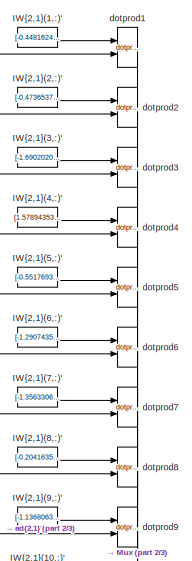
[diagram: controller1/optimized controller - pm/net_col_ef_1/Layer 2/LW{2,1} - part 1/3, top center region]
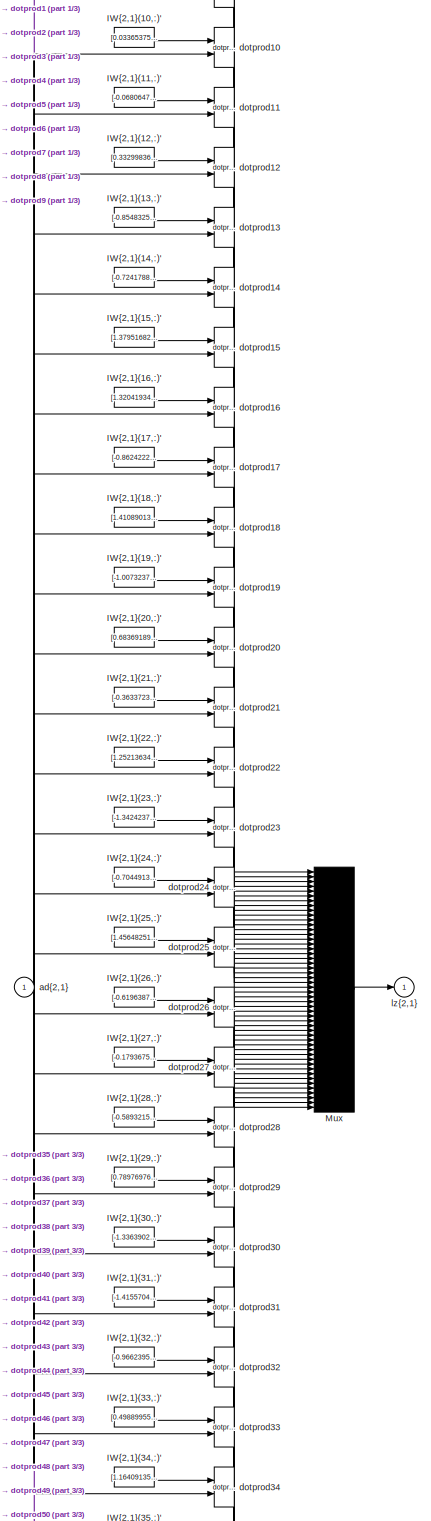
[diagram: controller1/optimized controller - pm/net_col_ef_1/Layer 2/LW{2,1} - part 2/3, full width, middle band]
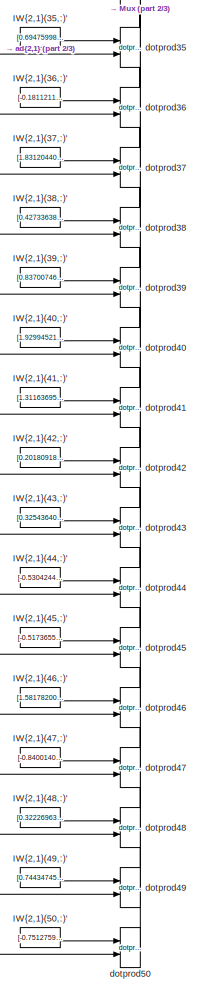
[diagram: controller1/optimized controller - pm/net_col_ef_1/Layer 2/LW{2,1} - part 3/3, bottom center region]
BLOCK [SubSystem] controller1/optimized controller - pm/net_col_ef_1/Layer 2/LW{2,1}
  FunctionWithSeparateData = off
  MaskHideContents = off
  MaskIconFrame = off
  MaskIconOpaque = on
  MaskIconRotate = none
  MaskIconUnits = autoscale
  MaskPortRotate = default
  MinAlgLoopOccurrences = off
  Opaque = off
  Ports = [1, 1]
  PropExecContextOutsideSubsystem = off
  RTWSystemCode = Auto
  RequestExecContextInheritance = off
  SID = 38557
BLOCK [Constant] controller1/optimized controller - pm/net_col_ef_1/Layer 2/LW{2,1}/IW{2,1}(1,:)'
  MaskDisplay = e = 0.06;c1 = [120 150 230]/255;c2 = ([120 150 230]+0)/383;c3 = ([120 150 230]+128)/383;patch([0 1 1 0],[0 0 1 1],c1);patch([0 1 1 1-e 1-e 0+e],[0 0 1 1-e 0+e 0+e],c2);patch([0 0 1 1-e 0+e 0+e],[0 1 1 1-e 1-e 0+e],c3);plot([0 1 1 0 0],[0 0 1 1 0]);disp('weights');  <repeated x153 — deduplicated; at blocks: IW{2,1}(1,:)', IW{2,1}(10,:)', IW{2,1}(11,:)', IW{2,1}(12,:)', IW{2,1}(13,:)', IW{2,1}(14,:)', IW{2,1}(15,:)', IW{2,1}(16,:)', IW{2,1}(17,:)', IW{2,1}(18,:)', IW{2,1}(19,:)', IW{2,1}(2,:)', IW{2,1}(20,:)', IW{2,1}(21,:)', IW{2,1}(22,:)', IW{2,1}(23,:)', +35 more>
  MaskIconFrame = off
  MaskIconOpaque = on
  MaskIconRotate = none
  MaskIconUnits = autoscale
  MaskPortRotate = default
  SID = 38559
  Value = [-0.44816243568738789;-0.29669377320129486;-0.28589794124158696;1.1226792235964345;0.47969791582065635;1.256228734292554;1.1532410907628559;1.4309890867758555;0.84031043094773383;0.66407156243360654;1.5325498988852326;0.81691172061923933;0.054958557396143762;-0.99086044608969936;0.65598271029358346;0.16059684324417037;0.9815471330299016;0.76395513391666148;-0.50274098895831953;0.79878552982393092;...<+600ch>
BLOCK [Constant] controller1/optimized controller - pm/net_col_ef_1/Layer 2/LW{2,1}/IW{2,1}(10,:)'
  MaskIconFrame = off
  MaskIconOpaque = on
  MaskIconRotate = none
  MaskIconUnits = autoscale
  MaskPortRotate = default
  SID = 38560
  Value = [0.033653751590251621;-0.80099035002794516;-0.038239321921248279;-0.71040782463523744;0.67720053334190822;0.49768248875943571;0.73253571486367974;-1.0470379485418684;1.1956393264971521;0.8870312012221403;-1.1997328628216413;-0.73055931216341985;-0.40694141673616341;-0.21695097582214345;0.89120840434893644;0.5303455963122008;0.84125629118958356;-0.99095758298818493;-1.2233469819098979;-0.4306118780...<+608ch>
BLOCK [Constant] controller1/optimized controller - pm/net_col_ef_1/Layer 2/LW{2,1}/IW{2,1}(11,:)'
  MaskIconFrame = off
  MaskIconOpaque = on
  MaskIconRotate = none
  MaskIconUnits = autoscale
  MaskPortRotate = default
  SID = 38561
  Value = [-0.068064740241627536;0.75051782826047531;1.0967222088318374;1.4016358795825317;0.06325272869647465;-1.5609866501491338;-1.7950816554717648;0.69613428863813509;-0.059710743213867004;-0.34709274855830974;0.7019774626469093;0.52886413376347519;1.2988854938520966;1.1314724617148217;1.4098320061104717;-0.9027824072972529;-1.701961131736192;-0.13798718201552956;-0.96950382569347771;-0.9769137468794165...<+600ch>
BLOCK [Constant] controller1/optimized controller - pm/net_col_ef_1/Layer 2/LW{2,1}/IW{2,1}(12,:)'
  MaskIconFrame = off
  MaskIconOpaque = on
  MaskIconRotate = none
  MaskIconUnits = autoscale
  MaskPortRotate = default
  SID = 38562
  Value = [0.33299836227213725;-1.3027216317060835;-0.95900440539630982;0.38298343232441268;0.33264537696838259;0.37039342290170113;-0.96622937657950814;0.60044855906903227;1.2326903250305037;-0.1121378936251004;0.87376704788926285;-0.14566299687323672;1.8008812351624275;-1.0626264253322089;1.1817617815485855;-0.91301401370494961;-0.16847571819273963;1.6034344886351457;0.9068676504572345;-0.2384464653880270...<+607ch>
BLOCK [Constant] controller1/optimized controller - pm/net_col_ef_1/Layer 2/LW{2,1}/IW{2,1}(13,:)'
  MaskIconFrame = off
  MaskIconOpaque = on
  MaskIconRotate = none
  MaskIconUnits = autoscale
  MaskPortRotate = default
  SID = 38563
  Value = [-0.85483255416722614;1.2591115339833214;-0.42481623608638563;0.330787037642507;1.5842643791978355;-0.36043127540503062;-1.2086487050421031;0.85105663301228773;1.1965382561801048;-0.15260632925613088;-0.59339857256941064;-1.181511589377622;0.39146376869759625;1.2519896683509788;-2.1164701027112427;-0.51309458138472919;1.5851864001250777;1.3516159905626175;0.027766156148256199;-0.17325190888475001;...<+610ch>
BLOCK [Constant] controller1/optimized controller - pm/net_col_ef_1/Layer 2/LW{2,1}/IW{2,1}(14,:)'
  MaskIconFrame = off
  MaskIconOpaque = on
  MaskIconRotate = none
  MaskIconUnits = autoscale
  MaskPortRotate = default
  SID = 38564
  Value = [-0.72417883896358193;0.37096294580282302;1.4422585437852722;0.55117037736259711;-0.011125968143996585;0.6449121134528254;0.57881900524197505;-0.076086058833717191;-0.78801495511771147;0.90537269738121295;-0.065116187684661583;-0.70647092950705892;0.76207015771184561;-0.664659600617446;0.16740806938615377;-0.71041602717788754;0.45566189161334569;-1.1856066121653865;-1.0016338812418379;-0.149327114...<+602ch>
BLOCK [Constant] controller1/optimized controller - pm/net_col_ef_1/Layer 2/LW{2,1}/IW{2,1}(15,:)'
  MaskIconFrame = off
  MaskIconOpaque = on
  MaskIconRotate = none
  MaskIconUnits = autoscale
  MaskPortRotate = default
  SID = 38565
  Value = [1.3795168242789735;-1.7574637057794238;-1.2814573204826056;-0.32355927690562264;0.87682102919298066;2.0294485125306974;-0.71613654712565344;-0.50600834328080768;-0.077947534699937149;1.0021552961565379;-0.093026789101682758;-1.3899438405783413;-1.2505293518287208;0.74134898223729817;-1.5248661482616455;1.2511115412201537;0.75535025796931488;2.2403654777989561;0.94331365198424022;-0.29697674353204...<+605ch>
BLOCK [Constant] controller1/optimized controller - pm/net_col_ef_1/Layer 2/LW{2,1}/IW{2,1}(16,:)'
  MaskIconFrame = off
  MaskIconOpaque = on
  MaskIconRotate = none
  MaskIconUnits = autoscale
  MaskPortRotate = default
  SID = 38566
  Value = [1.3204193407920224;-1.0405671785289132;-0.64431394555091825;-1.4596188332736395;2.1983204744106217;-0.042941584361687601;0.97860067356614899;-0.67132468576857773;0.57060313032615029;-0.070755996125302006;0.055320238039383698;-0.61851867150816686;-0.89167067236397435;0.99932009017612566;-1.6376883957858572;0.24907852310669318;2.1893259004717782;-0.37006512961251681;-0.97135001001889032;0.505599254...<+614ch>
BLOCK [Constant] controller1/optimized controller - pm/net_col_ef_1/Layer 2/LW{2,1}/IW{2,1}(17,:)'
  MaskIconFrame = off
  MaskIconOpaque = on
  MaskIconRotate = none
  MaskIconUnits = autoscale
  MaskPortRotate = default
  SID = 38567
  Value = [-0.86242220061777108;0.66793218838367474;-1.4183067078051641;-1.4691003012967105;-0.93391389922944423;-1.6160316753101784;1.2327461589015134;-0.36967314909010185;0.45750082118045343;-0.96818061987046267;-0.092292862755447208;-1.0136090425433553;0.79419157413405039;0.031861860790242155;-0.49319052242872857;-0.69149173512232232;0.83149199017006137;0.3250075399197328;0.34446096334842402;-0.719806560...<+613ch>
BLOCK [Constant] controller1/optimized controller - pm/net_col_ef_1/Layer 2/LW{2,1}/IW{2,1}(18,:)'
  MaskIconFrame = off
  MaskIconOpaque = on
  MaskIconRotate = none
  MaskIconUnits = autoscale
  MaskPortRotate = default
  SID = 38568
  Value = [1.4108901388032444;-1.4082121576900628;0.38777217623689714;0.99572100171287936;1.5538891105319843;-0.61900978400736661;0.72654188356430804;-0.42110092880308703;-0.40156735260523957;-0.28046707764517748;1.1868903830403654;1.670143072193125;-0.57850816103120395;1.682891692683532;1.137112764824519;0.95805067158781387;-1.0072951547212778;0.95754150103012892;-0.84626557438764893;0.30637734618383294;-0...<+613ch>
BLOCK [Constant] controller1/optimized controller - pm/net_col_ef_1/Layer 2/LW{2,1}/IW{2,1}(19,:)'
  MaskIconFrame = off
  MaskIconOpaque = on
  MaskIconRotate = none
  MaskIconUnits = autoscale
  MaskPortRotate = default
  SID = 38569
  Value = [-1.007323704121031;-0.10291797528796608;-0.42847440051983204;1.1814745162458222;0.20116048325793323;-1.8084701540829875;0.27900094424425914;-0.56909372731316188;0.45280954264875034;-1.6105595252589329;-1.4637512327941031;-0.64119277281064835;-0.025412949189593935;-1.0202007745213884;0.78931568998973167;1.8409494203847714;0.44487466138397436;1.5254183962773602;0.72718467776937579;1.269138261368985...<+605ch>
BLOCK [Constant] controller1/optimized controller - pm/net_col_ef_1/Layer 2/LW{2,1}/IW{2,1}(2,:)'
  MaskIconFrame = off
  MaskIconOpaque = on
  MaskIconRotate = none
  MaskIconUnits = autoscale
  MaskPortRotate = default
  SID = 38570
  Value = [-0.47365372429468799;-1.4292429308801773;-0.21501451458360973;-0.38012678876924882;1.2574053011693835;-1.1977559799958404;0.3440844813812457;-0.88740936447274199;-1.0047735629549484;-0.91290168132102534;-1.3492999165425277;-1.3781756265043015;-0.73051089996268503;-1.0389229397903172;-0.46740566629107211;-0.62467140666691412;-0.84470137696560732;0.097929183188365757;1.398826035479243;-1.1570454644...<+609ch>
BLOCK [Constant] controller1/optimized controller - pm/net_col_ef_1/Layer 2/LW{2,1}/IW{2,1}(20,:)'
  MaskIconFrame = off
  MaskIconOpaque = on
  MaskIconRotate = none
  MaskIconUnits = autoscale
  MaskPortRotate = default
  SID = 38571
  Value = [0.68369189135523445;0.16494479516177227;0.093766112273070079;-0.36032087734182083;-0.50844698564508661;1.0944248026964003;-0.15920239886369403;-0.6283157093642936;-0.98758091579393958;-1.3087905663713784;0.18816317549710995;-1.717354136123451;-1.0487946981136305;-1.1794557936008887;0.1018517963862532;0.23276159489157233;1.5201617965646497;0.42046639715792844;-0.99081724645471614;1.506927174560643...<+606ch>
BLOCK [Constant] controller1/optimized controller - pm/net_col_ef_1/Layer 2/LW{2,1}/IW{2,1}(21,:)'
  MaskIconFrame = off
  MaskIconOpaque = on
  MaskIconRotate = none
  MaskIconUnits = autoscale
  MaskPortRotate = default
  SID = 38572
  Value = [-0.36337234542957147;-0.3187194074494471;0.77159833349221341;1.0635718226696675;-1.6053836104504264;0.4742928793737004;0.36724224746852607;-0.033451723195932898;1.0856205428807109;0.47834700697328336;-0.57634902950384037;1.1798288684019198;1.0597109353528529;1.296416534357695;-0.96690717768510881;0.10151649097694493;-1.0534452265079497;1.3568739409854209;0.78653744020569116;1.027729735185545;0.44...<+601ch>
BLOCK [Constant] controller1/optimized controller - pm/net_col_ef_1/Layer 2/LW{2,1}/IW{2,1}(22,:)'
  MaskIconFrame = off
  MaskIconOpaque = on
  MaskIconRotate = none
  MaskIconUnits = autoscale
  MaskPortRotate = default
  SID = 38573
  Value = [1.2521363475154494;0.41329873818762458;0.10821591392838763;-0.2190307287868109;1.1251295793528602;-1.1340518115558855;-0.3649900529217851;-1.3402338092448349;1.2437760564623088;-0.61863828292874945;-0.79966414660717866;-0.7519648530290638;0.4290739377093713;-0.45690353517146126;0.496737553445599;-1.5478679552037173;0.15107621223059609;-0.91120373710989555;1.2099808049728862;-0.029094577856212656;...<+604ch>
BLOCK [Constant] controller1/optimized controller - pm/net_col_ef_1/Layer 2/LW{2,1}/IW{2,1}(23,:)'
  MaskIconFrame = off
  MaskIconOpaque = on
  MaskIconRotate = none
  MaskIconUnits = autoscale
  MaskPortRotate = default
  SID = 38574
  Value = [-1.3424237514927115;-0.50825723996318406;1.3928059413069314;-0.75517326594044654;0.15433164876631703;1.4501098500907132;1.1279232266174251;-1.7808564738224026;-1.2779492176264771;-1.2061301715453727;0.89117773583300575;0.58733666572852217;0.33549971982084276;0.74778248573431549;1.1214946218800346;-0.16379395825535664;-0.12155320446350493;-0.87624369417370029;0.49018380348696655;1.2358779353488798...<+608ch>
BLOCK [Constant] controller1/optimized controller - pm/net_col_ef_1/Layer 2/LW{2,1}/IW{2,1}(24,:)'
  MaskIconFrame = off
  MaskIconOpaque = on
  MaskIconRotate = none
  MaskIconUnits = autoscale
  MaskPortRotate = default
  SID = 38575
  Value = [-0.7044913740960711;-0.94743313188193967;-0.43837602227198125;0.38797197607850359;1.6212361951830399;0.1308730599999427;-1.0805245560819376;-0.27489600403167452;-1.0994090466708053;0.19091432812194248;1.4090587656609384;0.40531254275226086;0.099321483558865303;1.7593681053746408;-0.17881534835879506;1.2274019091243944;0.1205072160846761;1.4489903159980457;0.78782847296699554;1.2556465033296915;-0...<+605ch>
BLOCK [Constant] controller1/optimized controller - pm/net_col_ef_1/Layer 2/LW{2,1}/IW{2,1}(25,:)'
  MaskIconFrame = off
  MaskIconOpaque = on
  MaskIconRotate = none
  MaskIconUnits = autoscale
  MaskPortRotate = default
  SID = 38576
  Value = [1.456482517656019;0.21704221456153325;0.17971612280319527;0.14754758715087407;0.40927015321370047;1.3825202068916975;-2.0941811322767814;-1.373315711345988;0.22582458410526682;0.46067047480005618;1.7203031579337738;0.42812185020942972;-0.79899227718597332;0.99192970008731729;0.057676148770860303;0.44971513565634025;0.90626093412436903;0.24977267673430767;-0.10081925041918272;-1.6648743605955343;-...<+602ch>
BLOCK [Constant] controller1/optimized controller - pm/net_col_ef_1/Layer 2/LW{2,1}/IW{2,1}(26,:)'
  MaskIconFrame = off
  MaskIconOpaque = on
  MaskIconRotate = none
  MaskIconUnits = autoscale
  MaskPortRotate = default
  SID = 38577
  Value = [-0.61963872894930261;-1.1809950504458027;1.4769320877848642;-0.97077875969947347;0.24636778298285486;-0.017783826481623407;0.96703568199514689;-0.9049556654310853;0.74546766421805588;0.84550020329382625;0.12000244751138972;-1.1758238811550865;-1.2509496722570417;0.63100353044081636;-1.5356851813037518;0.95615474999686667;-0.91831389642034644;-0.3444897634730173;0.71183301717517;-0.991857669299903...<+610ch>
BLOCK [Constant] controller1/optimized controller - pm/net_col_ef_1/Layer 2/LW{2,1}/IW{2,1}(27,:)'
  MaskIconFrame = off
  MaskIconOpaque = on
  MaskIconRotate = none
  MaskIconUnits = autoscale
  MaskPortRotate = default
  SID = 38578
  Value = [-0.1793675715390797;0.20646749697405606;0.56555966307854688;-1.2660968134412791;-0.73309455378838451;0.53596968669188494;1.4191384066896824;1.5988822446280488;-1.5917397715189054;0.44357933843908309;-0.32285242921220064;-0.1270445085980397;0.85639368351517164;1.2407907740137614;0.94557321584082887;1.6699860034045506;-0.55153082443581058;-0.88724464084087118;1.1483090912818708;0.13127115014816901;...<+606ch>
BLOCK [Constant] controller1/optimized controller - pm/net_col_ef_1/Layer 2/LW{2,1}/IW{2,1}(28,:)'
  MaskIconFrame = off
  MaskIconOpaque = on
  MaskIconRotate = none
  MaskIconUnits = autoscale
  MaskPortRotate = default
  SID = 38579
  Value = [-0.58932158463369222;1.0264180414140178;0.77044472888631343;-0.93463773731235167;0.30610711560651416;0.37866571333328036;0.66234615949987619;0.52402164346125923;-0.54126765199657745;0.68367823671966998;1.2436427135648611;-0.55913756564001726;-0.79334472629910713;0.69955539684317802;-0.95083205840053497;-0.45315554905447031;-0.5420483775765601;1.2730028076274571;-1.2123305594252769;-0.217975329195...<+606ch>
BLOCK [Constant] controller1/optimized controller - pm/net_col_ef_1/Layer 2/LW{2,1}/IW{2,1}(29,:)'
  MaskIconFrame = off
  MaskIconOpaque = on
  MaskIconRotate = none
  MaskIconUnits = autoscale
  MaskPortRotate = default
  SID = 38580
  Value = [0.78976976938257681;-0.56816009651713362;-0.08597337653657311;-1.1437412243062892;0.43889894253141049;1.3154179407421118;-1.2708525215077264;-0.83709097056549964;1.0005719437418188;-0.38281055913850021;1.3625048634028374;-1.2781006795972798;-0.47011078073150209;-0.39036233159741152;0.97407823598966214;-1.0907274272312366;-1.4829523465292209;0.37707395960575973;0.064320509927330544;1.5235154626588...<+602ch>
BLOCK [Constant] controller1/optimized controller - pm/net_col_ef_1/Layer 2/LW{2,1}/IW{2,1}(3,:)'
  MaskIconFrame = off
  MaskIconOpaque = on
  MaskIconRotate = none
  MaskIconUnits = autoscale
  MaskPortRotate = default
  SID = 38581
  Value = [-1.6902020379988021;-0.63316579629990488;-0.24319351759201957;-0.9045344220640773;0.83166810313229944;-0.38490115456843477;1.3448334271313709;-0.70890736339055749;-1.4159548379481206;-0.62811182063027116;0.62174233465916007;-1.6379353032141615;1.6405680864076326;-0.37252465103633403;0.34706577696091123;0.70011141410917233;-1.2084258857915959;-1.2766557182786156;-1.5308297060133609;0.7402200957896...<+608ch>
BLOCK [Constant] controller1/optimized controller - pm/net_col_ef_1/Layer 2/LW{2,1}/IW{2,1}(30,:)'
  MaskIconFrame = off
  MaskIconOpaque = on
  MaskIconRotate = none
  MaskIconUnits = autoscale
  MaskPortRotate = default
  SID = 38582
  Value = [-1.3363902907583942;1.0921336522754002;-1.3265039728344885;-0.99001025349986738;0.83587307767829933;0.54431970143842479;-0.27662868899870729;-0.46581487011805123;0.89127340477243211;-0.85821795897091602;0.79304937046894375;-1.1988926362580286;-0.6913794216014425;0.25610277270532505;-1.2389615737454982;1.0699755944814877;-0.62545495850349808;-0.9663244722592309;0.33662673587870473;0.18887802592595...<+613ch>
BLOCK [Constant] controller1/optimized controller - pm/net_col_ef_1/Layer 2/LW{2,1}/IW{2,1}(31,:)'
  MaskIconFrame = off
  MaskIconOpaque = on
  MaskIconRotate = none
  MaskIconUnits = autoscale
  MaskPortRotate = default
  SID = 38583
  Value = [-1.4155704728733467;1.0189895490622765;0.58167189739835234;0.31018566079658894;0.13305105595396036;-0.33880438421670528;-0.13226101944543742;1.0235970715404064;0.84176420391689855;-1.4758704220522909;0.9056131384253675;-0.5846862765542955;0.68798378074099353;0.16766432534332057;0.98419051607253072;0.33364166258047512;-0.42128625071654696;-0.69501979807263781;0.18559700734548554;-0.293282989520336...<+611ch>
BLOCK [Constant] controller1/optimized controller - pm/net_col_ef_1/Layer 2/LW{2,1}/IW{2,1}(32,:)'
  MaskIconFrame = off
  MaskIconOpaque = on
  MaskIconRotate = none
  MaskIconUnits = autoscale
  MaskPortRotate = default
  SID = 38584
  Value = [-0.96623958584228475;-0.5312414639064903;0.19883113486262544;-1.1865634497533089;0.30731399275531307;0.4368626088647265;-1.3367580995385304;-1.1760047604370865;-0.71849248583511904;1.5507280041877451;0.95860828733195136;-0.92991101571651125;1.117113951028283;-0.7419855452096551;1.1047111309853908;0.7653094246463561;-1.4667684043531091;0.075463190784788581;0.12155034817315361;0.7152922350877835;0....<+613ch>
BLOCK [Constant] controller1/optimized controller - pm/net_col_ef_1/Layer 2/LW{2,1}/IW{2,1}(33,:)'
  MaskIconFrame = off
  MaskIconOpaque = on
  MaskIconRotate = none
  MaskIconUnits = autoscale
  MaskPortRotate = default
  SID = 38585
  Value = [0.49889955747112358;-0.34550018621473744;0.84327035982253051;-0.86892273312112389;-1.0057157614076373;-0.26965260323886658;0.25133670222946053;-0.48611969915979214;-0.79991368605347479;-0.63311732091500217;0.69408670346986456;0.0090431743459271612;-0.024130086276153005;-0.63224432694377952;-1.4663820183927505;-0.57009815594112734;1.320049172479546;-0.22733972173813011;0.92326713228547885;1.199438...<+616ch>
BLOCK [Constant] controller1/optimized controller - pm/net_col_ef_1/Layer 2/LW{2,1}/IW{2,1}(34,:)'
  MaskIconFrame = off
  MaskIconOpaque = on
  MaskIconRotate = none
  MaskIconUnits = autoscale
  MaskPortRotate = default
  SID = 38586
  Value = [1.164091357667421;0.51233184904458939;0.33826706252794408;-0.48488970143071647;-0.7242157800693918;1.6267914052105912;-0.71923542983606736;-0.81203652306707574;-0.84505728938172364;-0.51255153623326954;-0.57917470741451049;1.5747288564738291;-0.76015214378239127;0.53721154653278202;0.85622102477255735;0.17401416179070692;0.72903921921027404;-0.022634453566785007;1.4254878074178465;1.1740847100082...<+612ch>
BLOCK [Constant] controller1/optimized controller - pm/net_col_ef_1/Layer 2/LW{2,1}/IW{2,1}(35,:)'
  MaskIconFrame = off
  MaskIconOpaque = on
  MaskIconRotate = none
  MaskIconUnits = autoscale
  MaskPortRotate = default
  SID = 38587
  Value = [0.69475998667128624;-1.4333085224821513;1.3378338319994767;-1.1526391512151279;0.37616338422994766;-0.26521150351989425;1.0764618201661835;0.67233028698808894;1.2768814164204536;-0.88392354792336181;-0.52189679888082796;-1.2047829947665711;1.6374492959119618;1.3268496498000872;1.1561640509337832;0.92961930934664838;0.1453607124399027;-0.90484852676843197;0.96729446341421454;-1.0497488607358183;0....<+598ch>
BLOCK [Constant] controller1/optimized controller - pm/net_col_ef_1/Layer 2/LW{2,1}/IW{2,1}(36,:)'
  MaskIconFrame = off
  MaskIconOpaque = on
  MaskIconRotate = none
  MaskIconUnits = autoscale
  MaskPortRotate = default
  SID = 38588
  Value = [-0.18112119405289712;-0.076309710188265961;-1.4923269315964955;-1.3537570380450872;0.14233667625943366;-1.5292439791791361;0.35246308381432212;1.4894676862922649;-0.17483822901530002;0.15973800763813562;1.3198496929674459;-0.94556735314444607;0.84285344791531847;0.48649353442313198;-0.56643460519168876;-2.1655938664774697;-1.2023242329909563;0.93854897515947522;0.57740803881677016;0.6885711479577...<+608ch>
BLOCK [Constant] controller1/optimized controller - pm/net_col_ef_1/Layer 2/LW{2,1}/IW{2,1}(37,:)'
  MaskIconFrame = off
  MaskIconOpaque = on
  MaskIconRotate = none
  MaskIconUnits = autoscale
  MaskPortRotate = default
  SID = 38589
  Value = [1.83120440565238;1.0317112517367588;-0.25167294382837024;-0.96195069941218014;-0.94561464499461512;0.79603749863535112;-0.20566759849059041;-0.50745776599368486;0.068865205737265386;-1.187078467742863;0.30223827838942563;-0.067441299486347306;-0.23792723206896499;-1.4904782182488912;-0.71393948178640687;-1.3851968818937004;0.63454037573143141;1.0697688954873319;-0.00057331283190650579;0.648077145...<+610ch>
BLOCK [Constant] controller1/optimized controller - pm/net_col_ef_1/Layer 2/LW{2,1}/IW{2,1}(38,:)'
  MaskIconFrame = off
  MaskIconOpaque = on
  MaskIconRotate = none
  MaskIconUnits = autoscale
  MaskPortRotate = default
  SID = 38590
  Value = [0.42733638498110288;1.2764372520611311;-0.23048881402984162;-0.97599355434807999;1.52195826537602;-1.0818981765370845;0.98443311587736659;0.93967414411335537;0.15044993882388227;-0.90555701416723322;-0.76294097552541351;-0.98004269360898078;-1.3414062356703285;0.60587133223322143;-1.502234651423515;1.3323962985612976;0.50650429152246212;0.24224622729084658;0.68174918949010888;-0.31512483448065204...<+611ch>
BLOCK [Constant] controller1/optimized controller - pm/net_col_ef_1/Layer 2/LW{2,1}/IW{2,1}(39,:)'
  MaskIconFrame = off
  MaskIconOpaque = on
  MaskIconRotate = none
  MaskIconUnits = autoscale
  MaskPortRotate = default
  SID = 38591
  Value = [0.83700746014460758;-0.66692202397845779;-0.4146324272430435;-1.0489761168428076;-1.0160559746250946;0.67057659674898418;-0.82793225441542728;0.20114720384900911;1.1985931029127914;1.2548902704617626;0.98774577017755072;1.3485189663895403;1.1119966245042869;1.0677834811255451;1.2953130964532715;1.0344136367489596;0.4802971456874659;1.026671852110469;-1.026806897865886;1.3653565226456015;-0.261567...<+595ch>
BLOCK [Constant] controller1/optimized controller - pm/net_col_ef_1/Layer 2/LW{2,1}/IW{2,1}(4,:)'
  MaskIconFrame = off
  MaskIconOpaque = on
  MaskIconRotate = none
  MaskIconUnits = autoscale
  MaskPortRotate = default
  SID = 38592
  Value = [1.5789435382026671;-0.38019733816270773;1.5863484539179771;0.7695468316670232;-0.028440882657388485;-0.015024205345171239;0.14224777494858792;-0.37386399757793298;-0.16524329504707189;-0.3076868892415861;0.35816956853578058;0.1021098663411579;1.2910569431043286;-1.4920315955856231;1.544250506239387;-0.31379757957214;-0.37715603929812075;-0.4600276639325146;0.5205836509920031;-0.074948466907610312...<+607ch>
BLOCK [Constant] controller1/optimized controller - pm/net_col_ef_1/Layer 2/LW{2,1}/IW{2,1}(40,:)'
  MaskIconFrame = off
  MaskIconOpaque = on
  MaskIconRotate = none
  MaskIconUnits = autoscale
  MaskPortRotate = default
  SID = 38593
  Value = [1.9299452165428626;1.5074592940369702;0.82564325634399993;0.54982991711508544;0.19043309930323077;-0.53857263327166049;-0.43927739277955918;-0.13457417223589496;-1.2339855983882841;1.7129598442983254;0.90881715616881575;-0.33126504630856957;-1.1201806349702672;1.2382886218513465;0.48485745990579482;-0.49204268340944118;-1.1169352855983627;0.88578734253585645;1.4791707330855639;-0.6989119984489403...<+609ch>
BLOCK [Constant] controller1/optimized controller - pm/net_col_ef_1/Layer 2/LW{2,1}/IW{2,1}(41,:)'
  MaskIconFrame = off
  MaskIconOpaque = on
  MaskIconRotate = none
  MaskIconUnits = autoscale
  MaskPortRotate = default
  SID = 38594
  Value = [1.311636955037941;-1.1298171649910698;-0.57575089641660682;1.2063468493094001;-0.91127562810426121;1.5474121780249723;-0.1642756370351062;0.19626710592904997;0.58222043371980625;0.10008827041805968;-0.47376404345350559;-1.1849224235452696;1.508923680580935;-0.9124689603800954;-0.54445732451868767;1.2250733420707789;1.2312034631393773;0.033585508408867801;-0.20164522399007884;0.72060510899952646;-...<+600ch>
BLOCK [Constant] controller1/optimized controller - pm/net_col_ef_1/Layer 2/LW{2,1}/IW{2,1}(42,:)'
  MaskIconFrame = off
  MaskIconOpaque = on
  MaskIconRotate = none
  MaskIconUnits = autoscale
  MaskPortRotate = default
  SID = 38595
  Value = [0.20180918628437086;0.53009889019039136;-0.84063435329483538;0.67147971268782647;-0.028676255013324103;-1.3603771488080294;1.1028398949207023;-0.66934122771727056;-1.0901309998002966;-0.27131206199148605;-0.187374013659005;-0.19173315275978262;-1.2864632065099384;-0.63961954164801416;-0.31443101378447413;0.80303839034524482;0.24781451012077119;0.018641469742986659;1.6927189031611516;-0.0780985208...<+616ch>
BLOCK [Constant] controller1/optimized controller - pm/net_col_ef_1/Layer 2/LW{2,1}/IW{2,1}(43,:)'
  MaskIconFrame = off
  MaskIconOpaque = on
  MaskIconRotate = none
  MaskIconUnits = autoscale
  MaskPortRotate = default
  SID = 38596
  Value = [0.32543640829183312;0.51468567716935898;1.321229865801679;-1.4860718770593964;-1.1796805023723733;-0.97521447852395216;0.18344702440592675;-0.29494258806647272;0.36522756048489341;0.52859565094689465;-0.63859188834475633;0.090996076909280105;-1.0456152398738616;-0.29073096327181824;-0.50835925801003934;0.72818858560393418;-1.0792340954423203;1.7377124148816214;-0.12201544628336143;0.5140057190940...<+610ch>
BLOCK [Constant] controller1/optimized controller - pm/net_col_ef_1/Layer 2/LW{2,1}/IW{2,1}(44,:)'
  MaskIconFrame = off
  MaskIconOpaque = on
  MaskIconRotate = none
  MaskIconUnits = autoscale
  MaskPortRotate = default
  SID = 38597
  Value = [-0.53042446046386116;-0.70474997482065838;-0.4658487834626508;0.50212638988181491;-0.020280371605140644;0.60995274090565521;-1.4987871474003949;1.1819469141545564;-1.977644549881074;0.84231408039419819;-0.84099950385515054;-0.53816434876667885;0.7990883762861305;0.43049958491109447;-1.0111759312639141;1.2680806686967863;-0.76738632497891823;0.89054414698851869;0.28679345104029352;-0.9193073913802...<+617ch>
BLOCK [Constant] controller1/optimized controller - pm/net_col_ef_1/Layer 2/LW{2,1}/IW{2,1}(45,:)'
  MaskIconFrame = off
  MaskIconOpaque = on
  MaskIconRotate = none
  MaskIconUnits = autoscale
  MaskPortRotate = default
  SID = 38598
  Value = [-0.51736552951953851;-1.4106193540789944;-0.075624042128386693;-1.106745010866917;0.29158275131100564;-1.1047275548136704;-0.79091483609049806;0.42091059914343587;0.88491818523922072;0.57473561319362865;-1.0168001978865713;-0.5423231625168593;0.25700858897947726;1.5612642503635072;-0.66418615024510852;0.52183416891074685;-0.48956768114633992;-0.94104506041086544;-0.24617650669509542;0.54174796485...<+606ch>
BLOCK [Constant] controller1/optimized controller - pm/net_col_ef_1/Layer 2/LW{2,1}/IW{2,1}(46,:)'
  MaskIconFrame = off
  MaskIconOpaque = on
  MaskIconRotate = none
  MaskIconUnits = autoscale
  MaskPortRotate = default
  SID = 38599
  Value = [1.5817820074149174;1.2393214361406739;1.0270827221456289;-1.2462319073502288;-0.6974418095679078;-1.1658571569065295;-0.11766340942038643;0.10017430575788393;-0.77220887546080563;0.041731773333857212;-0.12747603406231883;-0.62424407369374635;0.15444052968487773;0.16926437255718027;0.48702300292238654;0.009197509432089716;-0.29937352336683615;0.77711755999490539;0.80587577047372316;0.1154900701975...<+606ch>
BLOCK [Constant] controller1/optimized controller - pm/net_col_ef_1/Layer 2/LW{2,1}/IW{2,1}(47,:)'
  MaskIconFrame = off
  MaskIconOpaque = on
  MaskIconRotate = none
  MaskIconUnits = autoscale
  MaskPortRotate = default
  SID = 38600
  Value = [-0.84001405253467853;-1.4226709019898558;-1.2106467825726057;-0.35668854055029292;1.3259745333618902;-0.88656437827217061;1.0090560346097446;-1.2959099442278665;-0.32796393647740368;-1.6649838107488732;-1.5898665144167945;0.79768430730242978;0.59631006039556911;0.20923148123983418;-0.79048155292116584;0.27839554016525503;0.86445849000336927;0.20185401613301332;0.5356570044358594;0.419582053756666...<+607ch>
BLOCK [Constant] controller1/optimized controller - pm/net_col_ef_1/Layer 2/LW{2,1}/IW{2,1}(48,:)'
  MaskIconFrame = off
  MaskIconOpaque = on
  MaskIconRotate = none
  MaskIconUnits = autoscale
  MaskPortRotate = default
  SID = 38601
  Value = [0.32226963819045168;-1.1974873799326169;0.9536829625007841;-1.1057530020160036;1.6595937265374001;-0.85160016477019784;0.28063414296888672;0.0039711893969140936;-0.86406074672001687;0.32167044168495068;-1.3183788349016381;-1.4196098106206341;0.21962122714750956;0.18415092552850798;-1.1822596245046735;1.4230212724674429;0.061169274591603456;-0.35762342049401791;0.55395687525682025;0.74619714113276...<+607ch>
BLOCK [Constant] controller1/optimized controller - pm/net_col_ef_1/Layer 2/LW{2,1}/IW{2,1}(49,:)'
  MaskIconFrame = off
  MaskIconOpaque = on
  MaskIconRotate = none
  MaskIconUnits = autoscale
  MaskPortRotate = default
  SID = 38602
  Value = [0.74434745385155876;-1.0859455299888954;-0.16899374456505842;-0.84183773885963475;0.69502449676197697;0.077239547405654058;-0.81739701366673923;1.1861598264748205;0.66035846966289258;-0.09677992622649928;-1.9212115353561723;-1.0743158622798674;-0.14863173218523223;0.81099947813143991;0.91002830733119722;-0.52545280608172895;-0.56333850539327179;-0.8123212687153637;-0.64750246563435754;-0.56865084...<+619ch>
BLOCK [Constant] controller1/optimized controller - pm/net_col_ef_1/Layer 2/LW{2,1}/IW{2,1}(5,:)'
  MaskIconFrame = off
  MaskIconOpaque = on
  MaskIconRotate = none
  MaskIconUnits = autoscale
  MaskPortRotate = default
  SID = 38603
  Value = [-0.55176932019711122;-0.49919864839112371;1.2404402559591796;0.013892725231963499;0.023054569079661968;-0.50448248525382322;0.97325981446347232;-1.2312406797175361;1.0066301142659273;0.7582720523787132;-0.22433184281752305;-0.82546355198062205;-1.3014966782534396;0.92058767788182316;1.2235925191803303;0.61599429561149754;-0.50838102991699607;-0.67768991418465663;-1.014878398382707;0.2136591410661...<+607ch>
BLOCK [Constant] controller1/optimized controller - pm/net_col_ef_1/Layer 2/LW{2,1}/IW{2,1}(50,:)'
  MaskIconFrame = off
  MaskIconOpaque = on
  MaskIconRotate = none
  MaskIconUnits = autoscale
  MaskPortRotate = default
  SID = 38604
  Value = [-0.75127593875503784;-0.87447969564737771;0.16279087637708098;-1.4475939395553412;-0.13414408443701664;-0.34827048194550442;-0.78738349442792988;1.4540402743860346;-1.4274049444190087;-0.50789220223629117;1.0046104570034018;-0.38000186817832288;1.4581691384017144;-0.33149209032755778;0.56679970193356433;0.80095090662576196;0.69362686084926728;0.97210308600655626;1.2294746493463102;0.1189287434694...<+609ch>
BLOCK [Constant] controller1/optimized controller - pm/net_col_ef_1/Layer 2/LW{2,1}/IW{2,1}(6,:)'
  MaskIconFrame = off
  MaskIconOpaque = on
  MaskIconRotate = none
  MaskIconUnits = autoscale
  MaskPortRotate = default
  SID = 38605
  Value = [-1.2907435968885881;0.52477795968273611;1.69503668689858;-0.64391604745709097;1.0644787177656148;1.2923243563891842;-1.3715321617467437;-1.1146824981772874;-0.80973383113907194;-0.41015496907448235;0.55022842072027678;0.6729228222192245;-1.2794185879149249;-0.11778978356849118;1.0314499413629594;1.584042967827215;-1.0240741912295654;-0.95147414052480805;0.9417337750765219;0.75206522985090918;1.44...<+590ch>
BLOCK [Constant] controller1/optimized controller - pm/net_col_ef_1/Layer 2/LW{2,1}/IW{2,1}(7,:)'
  MaskIconFrame = off
  MaskIconOpaque = on
  MaskIconRotate = none
  MaskIconUnits = autoscale
  MaskPortRotate = default
  SID = 38606
  Value = [-1.3563306155851103;-1.4368917331222451;-0.71843933816135386;-0.076758371971055187;0.041862946007137074;0.48270620887743204;0.90594978453368147;0.90371010907235239;1.1106311928494359;-1.9662319120327978;-1.0523044825038406;0.18256781201093561;-0.82712602962529946;1.0446440379184787;0.46571897029410858;0.090129822706176435;-0.28816321533504291;1.0321798098681609;-1.2064884344644358;1.0395277910639...<+614ch>
BLOCK [Constant] controller1/optimized controller - pm/net_col_ef_1/Layer 2/LW{2,1}/IW{2,1}(8,:)'
  MaskIconFrame = off
  MaskIconOpaque = on
  MaskIconRotate = none
  MaskIconUnits = autoscale
  MaskPortRotate = default
  SID = 38607
  Value = [-0.2041635469049686;-0.14579742890115269;-1.2827141212740634;-0.90647821620464397;1.4463388044531447;0.18108745062561069;0.60386396153882205;-0.88723360334887091;-0.8724994573848398;0.60022499097960236;-0.6459635898331999;1.1675726679746778;-0.47376132958959488;-0.15861305078652144;-0.050978179214852065;-0.3997336837830166;0.34358161790369862;-0.66125726330538315;0.88078596599455528;-0.2832937676...<+618ch>
BLOCK [Constant] controller1/optimized controller - pm/net_col_ef_1/Layer 2/LW{2,1}/IW{2,1}(9,:)'
  MaskIconFrame = off
  MaskIconOpaque = on
  MaskIconRotate = none
  MaskIconUnits = autoscale
  MaskPortRotate = default
  SID = 38608
  Value = [-1.1368063425173116;0.5085781103703072;1.6212469958769433;-0.58933891439386787;0.17997865208422989;-0.80366080724844358;-0.25951640426183403;-0.35807200108673498;0.71809779089955295;-0.99427025930551283;-1.3047665600281471;-0.66196322107175709;0.37397654567098143;1.4698449091973158;1.3249792798285338;-1.2392829461089838;-1.0274483522244613;-1.055114230641246;-1.4238595280185369;-0.672086642966253...<+607ch>
BLOCK [Mux] controller1/optimized controller - pm/net_col_ef_1/Layer 2/LW{2,1}/Mux
  Inputs = 50
  MaskIconFrame = off
  MaskIconOpaque = on
  MaskIconRotate = none
  MaskIconUnits = autoscale
  MaskPortRotate = default
  Ports = [50, 1]
  SID = 38609
BLOCK [Inport] controller1/optimized controller - pm/net_col_ef_1/Layer 2/LW{2,1}/ad{2,1}
  IconDisplay = Port number
  MaskIconFrame = off
  MaskIconOpaque = on
  MaskIconRotate = none
  MaskIconUnits = autoscale
  MaskPortRotate = default
  PortDimensions = 50
  SID = 38558
BLOCK [Reference] controller1/optimized controller - pm/net_col_ef_1/Layer 2/LW{2,1}/dotprod1  REF=neural/Weight Functions/dotprod
  FunctionWithSeparateData = off
  GeneratePreprocessorConditionals = off
  Ports = [2, 1]
  RTWMemSecDataConstants = Inherit from model
  RTWMemSecDataInternal = Inherit from model
  RTWMemSecDataParameters = Inherit from model
  RTWMemSecFuncExecute = Inherit from model
  RTWMemSecFuncInitTerm = Inherit from model
  SID = 38610
  ShowPortLabels = FromPortIcon
  SourceBlock = neural/Weight Functions/dotprod
  SourceType = DOTPROD
  SystemSampleTime = -1
BLOCK [Reference] controller1/optimized controller - pm/net_col_ef_1/Layer 2/LW{2,1}/dotprod10  REF=neural/Weight Functions/dotprod
  FunctionWithSeparateData = off
  GeneratePreprocessorConditionals = off
  Ports = [2, 1]
  RTWMemSecDataConstants = Inherit from model
  RTWMemSecDataInternal = Inherit from model
  RTWMemSecDataParameters = Inherit from model
  RTWMemSecFuncExecute = Inherit from model
  RTWMemSecFuncInitTerm = Inherit from model
  SID = 38611
  ShowPortLabels = FromPortIcon
  SourceBlock = neural/Weight Functions/dotprod
  SourceType = DOTPROD
  SystemSampleTime = -1
BLOCK [Reference] controller1/optimized controller - pm/net_col_ef_1/Layer 2/LW{2,1}/dotprod11  REF=neural/Weight Functions/dotprod
  FunctionWithSeparateData = off
  GeneratePreprocessorConditionals = off
  Ports = [2, 1]
  RTWMemSecDataConstants = Inherit from model
  RTWMemSecDataInternal = Inherit from model
  RTWMemSecDataParameters = Inherit from model
  RTWMemSecFuncExecute = Inherit from model
  RTWMemSecFuncInitTerm = Inherit from model
  SID = 38612
  ShowPortLabels = FromPortIcon
  SourceBlock = neural/Weight Functions/dotprod
  SourceType = DOTPROD
  SystemSampleTime = -1
BLOCK [Reference] controller1/optimized controller - pm/net_col_ef_1/Layer 2/LW{2,1}/dotprod12  REF=neural/Weight Functions/dotprod
  FunctionWithSeparateData = off
  GeneratePreprocessorConditionals = off
  Ports = [2, 1]
  RTWMemSecDataConstants = Inherit from model
  RTWMemSecDataInternal = Inherit from model
  RTWMemSecDataParameters = Inherit from model
  RTWMemSecFuncExecute = Inherit from model
  RTWMemSecFuncInitTerm = Inherit from model
  SID = 38613
  ShowPortLabels = FromPortIcon
  SourceBlock = neural/Weight Functions/dotprod
  SourceType = DOTPROD
  SystemSampleTime = -1
BLOCK [Reference] controller1/optimized controller - pm/net_col_ef_1/Layer 2/LW{2,1}/dotprod13  REF=neural/Weight Functions/dotprod
  FunctionWithSeparateData = off
  GeneratePreprocessorConditionals = off
  Ports = [2, 1]
  RTWMemSecDataConstants = Inherit from model
  RTWMemSecDataInternal = Inherit from model
  RTWMemSecDataParameters = Inherit from model
  RTWMemSecFuncExecute = Inherit from model
  RTWMemSecFuncInitTerm = Inherit from model
  SID = 38614
  ShowPortLabels = FromPortIcon
  SourceBlock = neural/Weight Functions/dotprod
  SourceType = DOTPROD
  SystemSampleTime = -1
BLOCK [Reference] controller1/optimized controller - pm/net_col_ef_1/Layer 2/LW{2,1}/dotprod14  REF=neural/Weight Functions/dotprod
  FunctionWithSeparateData = off
  GeneratePreprocessorConditionals = off
  Ports = [2, 1]
  RTWMemSecDataConstants = Inherit from model
  RTWMemSecDataInternal = Inherit from model
  RTWMemSecDataParameters = Inherit from model
  RTWMemSecFuncExecute = Inherit from model
  RTWMemSecFuncInitTerm = Inherit from model
  SID = 38615
  ShowPortLabels = FromPortIcon
  SourceBlock = neural/Weight Functions/dotprod
  SourceType = DOTPROD
  SystemSampleTime = -1
BLOCK [Reference] controller1/optimized controller - pm/net_col_ef_1/Layer 2/LW{2,1}/dotprod15  REF=neural/Weight Functions/dotprod
  FunctionWithSeparateData = off
  GeneratePreprocessorConditionals = off
  Ports = [2, 1]
  RTWMemSecDataConstants = Inherit from model
  RTWMemSecDataInternal = Inherit from model
  RTWMemSecDataParameters = Inherit from model
  RTWMemSecFuncExecute = Inherit from model
  RTWMemSecFuncInitTerm = Inherit from model
  SID = 38616
  ShowPortLabels = FromPortIcon
  SourceBlock = neural/Weight Functions/dotprod
  SourceType = DOTPROD
  SystemSampleTime = -1
BLOCK [Reference] controller1/optimized controller - pm/net_col_ef_1/Layer 2/LW{2,1}/dotprod16  REF=neural/Weight Functions/dotprod
  FunctionWithSeparateData = off
  GeneratePreprocessorConditionals = off
  Ports = [2, 1]
  RTWMemSecDataConstants = Inherit from model
  RTWMemSecDataInternal = Inherit from model
  RTWMemSecDataParameters = Inherit from model
  RTWMemSecFuncExecute = Inherit from model
  RTWMemSecFuncInitTerm = Inherit from model
  SID = 38617
  ShowPortLabels = FromPortIcon
  SourceBlock = neural/Weight Functions/dotprod
  SourceType = DOTPROD
  SystemSampleTime = -1
BLOCK [Reference] controller1/optimized controller - pm/net_col_ef_1/Layer 2/LW{2,1}/dotprod17  REF=neural/Weight Functions/dotprod
  FunctionWithSeparateData = off
  GeneratePreprocessorConditionals = off
  Ports = [2, 1]
  RTWMemSecDataConstants = Inherit from model
  RTWMemSecDataInternal = Inherit from model
  RTWMemSecDataParameters = Inherit from model
  RTWMemSecFuncExecute = Inherit from model
  RTWMemSecFuncInitTerm = Inherit from model
  SID = 38618
  ShowPortLabels = FromPortIcon
  SourceBlock = neural/Weight Functions/dotprod
  SourceType = DOTPROD
  SystemSampleTime = -1
BLOCK [Reference] controller1/optimized controller - pm/net_col_ef_1/Layer 2/LW{2,1}/dotprod18  REF=neural/Weight Functions/dotprod
  FunctionWithSeparateData = off
  GeneratePreprocessorConditionals = off
  Ports = [2, 1]
  RTWMemSecDataConstants = Inherit from model
  RTWMemSecDataInternal = Inherit from model
  RTWMemSecDataParameters = Inherit from model
  RTWMemSecFuncExecute = Inherit from model
  RTWMemSecFuncInitTerm = Inherit from model
  SID = 38619
  ShowPortLabels = FromPortIcon
  SourceBlock = neural/Weight Functions/dotprod
  SourceType = DOTPROD
  SystemSampleTime = -1
BLOCK [Reference] controller1/optimized controller - pm/net_col_ef_1/Layer 2/LW{2,1}/dotprod19  REF=neural/Weight Functions/dotprod
  FunctionWithSeparateData = off
  GeneratePreprocessorConditionals = off
  Ports = [2, 1]
  RTWMemSecDataConstants = Inherit from model
  RTWMemSecDataInternal = Inherit from model
  RTWMemSecDataParameters = Inherit from model
  RTWMemSecFuncExecute = Inherit from model
  RTWMemSecFuncInitTerm = Inherit from model
  SID = 38620
  ShowPortLabels = FromPortIcon
  SourceBlock = neural/Weight Functions/dotprod
  SourceType = DOTPROD
  SystemSampleTime = -1
BLOCK [Reference] controller1/optimized controller - pm/net_col_ef_1/Layer 2/LW{2,1}/dotprod2  REF=neural/Weight Functions/dotprod
  FunctionWithSeparateData = off
  GeneratePreprocessorConditionals = off
  Ports = [2, 1]
  RTWMemSecDataConstants = Inherit from model
  RTWMemSecDataInternal = Inherit from model
  RTWMemSecDataParameters = Inherit from model
  RTWMemSecFuncExecute = Inherit from model
  RTWMemSecFuncInitTerm = Inherit from model
  SID = 38621
  ShowPortLabels = FromPortIcon
  SourceBlock = neural/Weight Functions/dotprod
  SourceType = DOTPROD
  SystemSampleTime = -1
BLOCK [Reference] controller1/optimized controller - pm/net_col_ef_1/Layer 2/LW{2,1}/dotprod20  REF=neural/Weight Functions/dotprod
  FunctionWithSeparateData = off
  GeneratePreprocessorConditionals = off
  Ports = [2, 1]
  RTWMemSecDataConstants = Inherit from model
  RTWMemSecDataInternal = Inherit from model
  RTWMemSecDataParameters = Inherit from model
  RTWMemSecFuncExecute = Inherit from model
  RTWMemSecFuncInitTerm = Inherit from model
  SID = 38622
  ShowPortLabels = FromPortIcon
  SourceBlock = neural/Weight Functions/dotprod
  SourceType = DOTPROD
  SystemSampleTime = -1
BLOCK [Reference] controller1/optimized controller - pm/net_col_ef_1/Layer 2/LW{2,1}/dotprod21  REF=neural/Weight Functions/dotprod
  FunctionWithSeparateData = off
  GeneratePreprocessorConditionals = off
  Ports = [2, 1]
  RTWMemSecDataConstants = Inherit from model
  RTWMemSecDataInternal = Inherit from model
  RTWMemSecDataParameters = Inherit from model
  RTWMemSecFuncExecute = Inherit from model
  RTWMemSecFuncInitTerm = Inherit from model
  SID = 38623
  ShowPortLabels = FromPortIcon
  SourceBlock = neural/Weight Functions/dotprod
  SourceType = DOTPROD
  SystemSampleTime = -1
BLOCK [Reference] controller1/optimized controller - pm/net_col_ef_1/Layer 2/LW{2,1}/dotprod22  REF=neural/Weight Functions/dotprod
  FunctionWithSeparateData = off
  GeneratePreprocessorConditionals = off
  Ports = [2, 1]
  RTWMemSecDataConstants = Inherit from model
  RTWMemSecDataInternal = Inherit from model
  RTWMemSecDataParameters = Inherit from model
  RTWMemSecFuncExecute = Inherit from model
  RTWMemSecFuncInitTerm = Inherit from model
  SID = 38624
  ShowPortLabels = FromPortIcon
  SourceBlock = neural/Weight Functions/dotprod
  SourceType = DOTPROD
  SystemSampleTime = -1
BLOCK [Reference] controller1/optimized controller - pm/net_col_ef_1/Layer 2/LW{2,1}/dotprod23  REF=neural/Weight Functions/dotprod
  FunctionWithSeparateData = off
  GeneratePreprocessorConditionals = off
  Ports = [2, 1]
  RTWMemSecDataConstants = Inherit from model
  RTWMemSecDataInternal = Inherit from model
  RTWMemSecDataParameters = Inherit from model
  RTWMemSecFuncExecute = Inherit from model
  RTWMemSecFuncInitTerm = Inherit from model
  SID = 38625
  ShowPortLabels = FromPortIcon
  SourceBlock = neural/Weight Functions/dotprod
  SourceType = DOTPROD
  SystemSampleTime = -1
BLOCK [Reference] controller1/optimized controller - pm/net_col_ef_1/Layer 2/LW{2,1}/dotprod24  REF=neural/Weight Functions/dotprod
  FunctionWithSeparateData = off
  GeneratePreprocessorConditionals = off
  Ports = [2, 1]
  RTWMemSecDataConstants = Inherit from model
  RTWMemSecDataInternal = Inherit from model
  RTWMemSecDataParameters = Inherit from model
  RTWMemSecFuncExecute = Inherit from model
  RTWMemSecFuncInitTerm = Inherit from model
  SID = 38626
  ShowPortLabels = FromPortIcon
  SourceBlock = neural/Weight Functions/dotprod
  SourceType = DOTPROD
  SystemSampleTime = -1
BLOCK [Reference] controller1/optimized controller - pm/net_col_ef_1/Layer 2/LW{2,1}/dotprod25  REF=neural/Weight Functions/dotprod
  FunctionWithSeparateData = off
  GeneratePreprocessorConditionals = off
  Ports = [2, 1]
  RTWMemSecDataConstants = Inherit from model
  RTWMemSecDataInternal = Inherit from model
  RTWMemSecDataParameters = Inherit from model
  RTWMemSecFuncExecute = Inherit from model
  RTWMemSecFuncInitTerm = Inherit from model
  SID = 38627
  ShowPortLabels = FromPortIcon
  SourceBlock = neural/Weight Functions/dotprod
  SourceType = DOTPROD
  SystemSampleTime = -1
BLOCK [Reference] controller1/optimized controller - pm/net_col_ef_1/Layer 2/LW{2,1}/dotprod26  REF=neural/Weight Functions/dotprod
  FunctionWithSeparateData = off
  GeneratePreprocessorConditionals = off
  Ports = [2, 1]
  RTWMemSecDataConstants = Inherit from model
  RTWMemSecDataInternal = Inherit from model
  RTWMemSecDataParameters = Inherit from model
  RTWMemSecFuncExecute = Inherit from model
  RTWMemSecFuncInitTerm = Inherit from model
  SID = 38628
  ShowPortLabels = FromPortIcon
  SourceBlock = neural/Weight Functions/dotprod
  SourceType = DOTPROD
  SystemSampleTime = -1
BLOCK [Reference] controller1/optimized controller - pm/net_col_ef_1/Layer 2/LW{2,1}/dotprod27  REF=neural/Weight Functions/dotprod
  FunctionWithSeparateData = off
  GeneratePreprocessorConditionals = off
  Ports = [2, 1]
  RTWMemSecDataConstants = Inherit from model
  RTWMemSecDataInternal = Inherit from model
  RTWMemSecDataParameters = Inherit from model
  RTWMemSecFuncExecute = Inherit from model
  RTWMemSecFuncInitTerm = Inherit from model
  SID = 38629
  ShowPortLabels = FromPortIcon
  SourceBlock = neural/Weight Functions/dotprod
  SourceType = DOTPROD
  SystemSampleTime = -1
BLOCK [Reference] controller1/optimized controller - pm/net_col_ef_1/Layer 2/LW{2,1}/dotprod28  REF=neural/Weight Functions/dotprod
  FunctionWithSeparateData = off
  GeneratePreprocessorConditionals = off
  Ports = [2, 1]
  RTWMemSecDataConstants = Inherit from model
  RTWMemSecDataInternal = Inherit from model
  RTWMemSecDataParameters = Inherit from model
  RTWMemSecFuncExecute = Inherit from model
  RTWMemSecFuncInitTerm = Inherit from model
  SID = 38630
  ShowPortLabels = FromPortIcon
  SourceBlock = neural/Weight Functions/dotprod
  SourceType = DOTPROD
  SystemSampleTime = -1
BLOCK [Reference] controller1/optimized controller - pm/net_col_ef_1/Layer 2/LW{2,1}/dotprod29  REF=neural/Weight Functions/dotprod
  FunctionWithSeparateData = off
  GeneratePreprocessorConditionals = off
  Ports = [2, 1]
  RTWMemSecDataConstants = Inherit from model
  RTWMemSecDataInternal = Inherit from model
  RTWMemSecDataParameters = Inherit from model
  RTWMemSecFuncExecute = Inherit from model
  RTWMemSecFuncInitTerm = Inherit from model
  SID = 38631
  ShowPortLabels = FromPortIcon
  SourceBlock = neural/Weight Functions/dotprod
  SourceType = DOTPROD
  SystemSampleTime = -1
BLOCK [Reference] controller1/optimized controller - pm/net_col_ef_1/Layer 2/LW{2,1}/dotprod3  REF=neural/Weight Functions/dotprod
  FunctionWithSeparateData = off
  GeneratePreprocessorConditionals = off
  Ports = [2, 1]
  RTWMemSecDataConstants = Inherit from model
  RTWMemSecDataInternal = Inherit from model
  RTWMemSecDataParameters = Inherit from model
  RTWMemSecFuncExecute = Inherit from model
  RTWMemSecFuncInitTerm = Inherit from model
  SID = 38632
  ShowPortLabels = FromPortIcon
  SourceBlock = neural/Weight Functions/dotprod
  SourceType = DOTPROD
  SystemSampleTime = -1
BLOCK [Reference] controller1/optimized controller - pm/net_col_ef_1/Layer 2/LW{2,1}/dotprod30  REF=neural/Weight Functions/dotprod
  FunctionWithSeparateData = off
  GeneratePreprocessorConditionals = off
  Ports = [2, 1]
  RTWMemSecDataConstants = Inherit from model
  RTWMemSecDataInternal = Inherit from model
  RTWMemSecDataParameters = Inherit from model
  RTWMemSecFuncExecute = Inherit from model
  RTWMemSecFuncInitTerm = Inherit from model
  SID = 38633
  ShowPortLabels = FromPortIcon
  SourceBlock = neural/Weight Functions/dotprod
  SourceType = DOTPROD
  SystemSampleTime = -1
BLOCK [Reference] controller1/optimized controller - pm/net_col_ef_1/Layer 2/LW{2,1}/dotprod31  REF=neural/Weight Functions/dotprod
  FunctionWithSeparateData = off
  GeneratePreprocessorConditionals = off
  Ports = [2, 1]
  RTWMemSecDataConstants = Inherit from model
  RTWMemSecDataInternal = Inherit from model
  RTWMemSecDataParameters = Inherit from model
  RTWMemSecFuncExecute = Inherit from model
  RTWMemSecFuncInitTerm = Inherit from model
  SID = 38634
  ShowPortLabels = FromPortIcon
  SourceBlock = neural/Weight Functions/dotprod
  SourceType = DOTPROD
  SystemSampleTime = -1
BLOCK [Reference] controller1/optimized controller - pm/net_col_ef_1/Layer 2/LW{2,1}/dotprod32  REF=neural/Weight Functions/dotprod
  FunctionWithSeparateData = off
  GeneratePreprocessorConditionals = off
  Ports = [2, 1]
  RTWMemSecDataConstants = Inherit from model
  RTWMemSecDataInternal = Inherit from model
  RTWMemSecDataParameters = Inherit from model
  RTWMemSecFuncExecute = Inherit from model
  RTWMemSecFuncInitTerm = Inherit from model
  SID = 38635
  ShowPortLabels = FromPortIcon
  SourceBlock = neural/Weight Functions/dotprod
  SourceType = DOTPROD
  SystemSampleTime = -1
BLOCK [Reference] controller1/optimized controller - pm/net_col_ef_1/Layer 2/LW{2,1}/dotprod33  REF=neural/Weight Functions/dotprod
  FunctionWithSeparateData = off
  GeneratePreprocessorConditionals = off
  Ports = [2, 1]
  RTWMemSecDataConstants = Inherit from model
  RTWMemSecDataInternal = Inherit from model
  RTWMemSecDataParameters = Inherit from model
  RTWMemSecFuncExecute = Inherit from model
  RTWMemSecFuncInitTerm = Inherit from model
  SID = 38636
  ShowPortLabels = FromPortIcon
  SourceBlock = neural/Weight Functions/dotprod
  SourceType = DOTPROD
  SystemSampleTime = -1
BLOCK [Reference] controller1/optimized controller - pm/net_col_ef_1/Layer 2/LW{2,1}/dotprod34  REF=neural/Weight Functions/dotprod
  FunctionWithSeparateData = off
  GeneratePreprocessorConditionals = off
  Ports = [2, 1]
  RTWMemSecDataConstants = Inherit from model
  RTWMemSecDataInternal = Inherit from model
  RTWMemSecDataParameters = Inherit from model
  RTWMemSecFuncExecute = Inherit from model
  RTWMemSecFuncInitTerm = Inherit from model
  SID = 38637
  ShowPortLabels = FromPortIcon
  SourceBlock = neural/Weight Functions/dotprod
  SourceType = DOTPROD
  SystemSampleTime = -1
BLOCK [Reference] controller1/optimized controller - pm/net_col_ef_1/Layer 2/LW{2,1}/dotprod35  REF=neural/Weight Functions/dotprod
  FunctionWithSeparateData = off
  GeneratePreprocessorConditionals = off
  Ports = [2, 1]
  RTWMemSecDataConstants = Inherit from model
  RTWMemSecDataInternal = Inherit from model
  RTWMemSecDataParameters = Inherit from model
  RTWMemSecFuncExecute = Inherit from model
  RTWMemSecFuncInitTerm = Inherit from model
  SID = 38638
  ShowPortLabels = FromPortIcon
  SourceBlock = neural/Weight Functions/dotprod
  SourceType = DOTPROD
  SystemSampleTime = -1
BLOCK [Reference] controller1/optimized controller - pm/net_col_ef_1/Layer 2/LW{2,1}/dotprod36  REF=neural/Weight Functions/dotprod
  FunctionWithSeparateData = off
  GeneratePreprocessorConditionals = off
  Ports = [2, 1]
  RTWMemSecDataConstants = Inherit from model
  RTWMemSecDataInternal = Inherit from model
  RTWMemSecDataParameters = Inherit from model
  RTWMemSecFuncExecute = Inherit from model
  RTWMemSecFuncInitTerm = Inherit from model
  SID = 38639
  ShowPortLabels = FromPortIcon
  SourceBlock = neural/Weight Functions/dotprod
  SourceType = DOTPROD
  SystemSampleTime = -1
BLOCK [Reference] controller1/optimized controller - pm/net_col_ef_1/Layer 2/LW{2,1}/dotprod37  REF=neural/Weight Functions/dotprod
  FunctionWithSeparateData = off
  GeneratePreprocessorConditionals = off
  Ports = [2, 1]
  RTWMemSecDataConstants = Inherit from model
  RTWMemSecDataInternal = Inherit from model
  RTWMemSecDataParameters = Inherit from model
  RTWMemSecFuncExecute = Inherit from model
  RTWMemSecFuncInitTerm = Inherit from model
  SID = 38640
  ShowPortLabels = FromPortIcon
  SourceBlock = neural/Weight Functions/dotprod
  SourceType = DOTPROD
  SystemSampleTime = -1
BLOCK [Reference] controller1/optimized controller - pm/net_col_ef_1/Layer 2/LW{2,1}/dotprod38  REF=neural/Weight Functions/dotprod
  FunctionWithSeparateData = off
  GeneratePreprocessorConditionals = off
  Ports = [2, 1]
  RTWMemSecDataConstants = Inherit from model
  RTWMemSecDataInternal = Inherit from model
  RTWMemSecDataParameters = Inherit from model
  RTWMemSecFuncExecute = Inherit from model
  RTWMemSecFuncInitTerm = Inherit from model
  SID = 38641
  ShowPortLabels = FromPortIcon
  SourceBlock = neural/Weight Functions/dotprod
  SourceType = DOTPROD
  SystemSampleTime = -1
BLOCK [Reference] controller1/optimized controller - pm/net_col_ef_1/Layer 2/LW{2,1}/dotprod39  REF=neural/Weight Functions/dotprod
  FunctionWithSeparateData = off
  GeneratePreprocessorConditionals = off
  Ports = [2, 1]
  RTWMemSecDataConstants = Inherit from model
  RTWMemSecDataInternal = Inherit from model
  RTWMemSecDataParameters = Inherit from model
  RTWMemSecFuncExecute = Inherit from model
  RTWMemSecFuncInitTerm = Inherit from model
  SID = 38642
  ShowPortLabels = FromPortIcon
  SourceBlock = neural/Weight Functions/dotprod
  SourceType = DOTPROD
  SystemSampleTime = -1
BLOCK [Reference] controller1/optimized controller - pm/net_col_ef_1/Layer 2/LW{2,1}/dotprod4  REF=neural/Weight Functions/dotprod
  FunctionWithSeparateData = off
  GeneratePreprocessorConditionals = off
  Ports = [2, 1]
  RTWMemSecDataConstants = Inherit from model
  RTWMemSecDataInternal = Inherit from model
  RTWMemSecDataParameters = Inherit from model
  RTWMemSecFuncExecute = Inherit from model
  RTWMemSecFuncInitTerm = Inherit from model
  SID = 38643
  ShowPortLabels = FromPortIcon
  SourceBlock = neural/Weight Functions/dotprod
  SourceType = DOTPROD
  SystemSampleTime = -1
BLOCK [Reference] controller1/optimized controller - pm/net_col_ef_1/Layer 2/LW{2,1}/dotprod40  REF=neural/Weight Functions/dotprod
  FunctionWithSeparateData = off
  GeneratePreprocessorConditionals = off
  Ports = [2, 1]
  RTWMemSecDataConstants = Inherit from model
  RTWMemSecDataInternal = Inherit from model
  RTWMemSecDataParameters = Inherit from model
  RTWMemSecFuncExecute = Inherit from model
  RTWMemSecFuncInitTerm = Inherit from model
  SID = 38644
  ShowPortLabels = FromPortIcon
  SourceBlock = neural/Weight Functions/dotprod
  SourceType = DOTPROD
  SystemSampleTime = -1
BLOCK [Reference] controller1/optimized controller - pm/net_col_ef_1/Layer 2/LW{2,1}/dotprod41  REF=neural/Weight Functions/dotprod
  FunctionWithSeparateData = off
  GeneratePreprocessorConditionals = off
  Ports = [2, 1]
  RTWMemSecDataConstants = Inherit from model
  RTWMemSecDataInternal = Inherit from model
  RTWMemSecDataParameters = Inherit from model
  RTWMemSecFuncExecute = Inherit from model
  RTWMemSecFuncInitTerm = Inherit from model
  SID = 38645
  ShowPortLabels = FromPortIcon
  SourceBlock = neural/Weight Functions/dotprod
  SourceType = DOTPROD
  SystemSampleTime = -1
BLOCK [Reference] controller1/optimized controller - pm/net_col_ef_1/Layer 2/LW{2,1}/dotprod42  REF=neural/Weight Functions/dotprod
  FunctionWithSeparateData = off
  GeneratePreprocessorConditionals = off
  Ports = [2, 1]
  RTWMemSecDataConstants = Inherit from model
  RTWMemSecDataInternal = Inherit from model
  RTWMemSecDataParameters = Inherit from model
  RTWMemSecFuncExecute = Inherit from model
  RTWMemSecFuncInitTerm = Inherit from model
  SID = 38646
  ShowPortLabels = FromPortIcon
  SourceBlock = neural/Weight Functions/dotprod
  SourceType = DOTPROD
  SystemSampleTime = -1
BLOCK [Reference] controller1/optimized controller - pm/net_col_ef_1/Layer 2/LW{2,1}/dotprod43  REF=neural/Weight Functions/dotprod
  FunctionWithSeparateData = off
  GeneratePreprocessorConditionals = off
  Ports = [2, 1]
  RTWMemSecDataConstants = Inherit from model
  RTWMemSecDataInternal = Inherit from model
  RTWMemSecDataParameters = Inherit from model
  RTWMemSecFuncExecute = Inherit from model
  RTWMemSecFuncInitTerm = Inherit from model
  SID = 38647
  ShowPortLabels = FromPortIcon
  SourceBlock = neural/Weight Functions/dotprod
  SourceType = DOTPROD
  SystemSampleTime = -1
BLOCK [Reference] controller1/optimized controller - pm/net_col_ef_1/Layer 2/LW{2,1}/dotprod44  REF=neural/Weight Functions/dotprod
  FunctionWithSeparateData = off
  GeneratePreprocessorConditionals = off
  Ports = [2, 1]
  RTWMemSecDataConstants = Inherit from model
  RTWMemSecDataInternal = Inherit from model
  RTWMemSecDataParameters = Inherit from model
  RTWMemSecFuncExecute = Inherit from model
  RTWMemSecFuncInitTerm = Inherit from model
  SID = 38648
  ShowPortLabels = FromPortIcon
  SourceBlock = neural/Weight Functions/dotprod
  SourceType = DOTPROD
  SystemSampleTime = -1
BLOCK [Reference] controller1/optimized controller - pm/net_col_ef_1/Layer 2/LW{2,1}/dotprod45  REF=neural/Weight Functions/dotprod
  FunctionWithSeparateData = off
  GeneratePreprocessorConditionals = off
  Ports = [2, 1]
  RTWMemSecDataConstants = Inherit from model
  RTWMemSecDataInternal = Inherit from model
  RTWMemSecDataParameters = Inherit from model
  RTWMemSecFuncExecute = Inherit from model
  RTWMemSecFuncInitTerm = Inherit from model
  SID = 38649
  ShowPortLabels = FromPortIcon
  SourceBlock = neural/Weight Functions/dotprod
  SourceType = DOTPROD
  SystemSampleTime = -1
BLOCK [Reference] controller1/optimized controller - pm/net_col_ef_1/Layer 2/LW{2,1}/dotprod46  REF=neural/Weight Functions/dotprod
  FunctionWithSeparateData = off
  GeneratePreprocessorConditionals = off
  Ports = [2, 1]
  RTWMemSecDataConstants = Inherit from model
  RTWMemSecDataInternal = Inherit from model
  RTWMemSecDataParameters = Inherit from model
  RTWMemSecFuncExecute = Inherit from model
  RTWMemSecFuncInitTerm = Inherit from model
  SID = 38650
  ShowPortLabels = FromPortIcon
  SourceBlock = neural/Weight Functions/dotprod
  SourceType = DOTPROD
  SystemSampleTime = -1
BLOCK [Reference] controller1/optimized controller - pm/net_col_ef_1/Layer 2/LW{2,1}/dotprod47  REF=neural/Weight Functions/dotprod
  FunctionWithSeparateData = off
  GeneratePreprocessorConditionals = off
  Ports = [2, 1]
  RTWMemSecDataConstants = Inherit from model
  RTWMemSecDataInternal = Inherit from model
  RTWMemSecDataParameters = Inherit from model
  RTWMemSecFuncExecute = Inherit from model
  RTWMemSecFuncInitTerm = Inherit from model
  SID = 38651
  ShowPortLabels = FromPortIcon
  SourceBlock = neural/Weight Functions/dotprod
  SourceType = DOTPROD
  SystemSampleTime = -1
BLOCK [Reference] controller1/optimized controller - pm/net_col_ef_1/Layer 2/LW{2,1}/dotprod48  REF=neural/Weight Functions/dotprod
  FunctionWithSeparateData = off
  GeneratePreprocessorConditionals = off
  Ports = [2, 1]
  RTWMemSecDataConstants = Inherit from model
  RTWMemSecDataInternal = Inherit from model
  RTWMemSecDataParameters = Inherit from model
  RTWMemSecFuncExecute = Inherit from model
  RTWMemSecFuncInitTerm = Inherit from model
  SID = 38652
  ShowPortLabels = FromPortIcon
  SourceBlock = neural/Weight Functions/dotprod
  SourceType = DOTPROD
  SystemSampleTime = -1
BLOCK [Reference] controller1/optimized controller - pm/net_col_ef_1/Layer 2/LW{2,1}/dotprod49  REF=neural/Weight Functions/dotprod
  FunctionWithSeparateData = off
  GeneratePreprocessorConditionals = off
  Ports = [2, 1]
  RTWMemSecDataConstants = Inherit from model
  RTWMemSecDataInternal = Inherit from model
  RTWMemSecDataParameters = Inherit from model
  RTWMemSecFuncExecute = Inherit from model
  RTWMemSecFuncInitTerm = Inherit from model
  SID = 38653
  ShowPortLabels = FromPortIcon
  SourceBlock = neural/Weight Functions/dotprod
  SourceType = DOTPROD
  SystemSampleTime = -1
BLOCK [Reference] controller1/optimized controller - pm/net_col_ef_1/Layer 2/LW{2,1}/dotprod5  REF=neural/Weight Functions/dotprod
  FunctionWithSeparateData = off
  GeneratePreprocessorConditionals = off
  Ports = [2, 1]
  RTWMemSecDataConstants = Inherit from model
  RTWMemSecDataInternal = Inherit from model
  RTWMemSecDataParameters = Inherit from model
  RTWMemSecFuncExecute = Inherit from model
  RTWMemSecFuncInitTerm = Inherit from model
  SID = 38654
  ShowPortLabels = FromPortIcon
  SourceBlock = neural/Weight Functions/dotprod
  SourceType = DOTPROD
  SystemSampleTime = -1
BLOCK [Reference] controller1/optimized controller - pm/net_col_ef_1/Layer 2/LW{2,1}/dotprod50  REF=neural/Weight Functions/dotprod
  FunctionWithSeparateData = off
  GeneratePreprocessorConditionals = off
  Ports = [2, 1]
  RTWMemSecDataConstants = Inherit from model
  RTWMemSecDataInternal = Inherit from model
  RTWMemSecDataParameters = Inherit from model
  RTWMemSecFuncExecute = Inherit from model
  RTWMemSecFuncInitTerm = Inherit from model
  SID = 38655
  ShowPortLabels = FromPortIcon
  SourceBlock = neural/Weight Functions/dotprod
  SourceType = DOTPROD
  SystemSampleTime = -1
BLOCK [Reference] controller1/optimized controller - pm/net_col_ef_1/Layer 2/LW{2,1}/dotprod6  REF=neural/Weight Functions/dotprod
  FunctionWithSeparateData = off
  GeneratePreprocessorConditionals = off
  Ports = [2, 1]
  RTWMemSecDataConstants = Inherit from model
  RTWMemSecDataInternal = Inherit from model
  RTWMemSecDataParameters = Inherit from model
  RTWMemSecFuncExecute = Inherit from model
  RTWMemSecFuncInitTerm = Inherit from model
  SID = 38656
  ShowPortLabels = FromPortIcon
  SourceBlock = neural/Weight Functions/dotprod
  SourceType = DOTPROD
  SystemSampleTime = -1
BLOCK [Reference] controller1/optimized controller - pm/net_col_ef_1/Layer 2/LW{2,1}/dotprod7  REF=neural/Weight Functions/dotprod
  FunctionWithSeparateData = off
  GeneratePreprocessorConditionals = off
  Ports = [2, 1]
  RTWMemSecDataConstants = Inherit from model
  RTWMemSecDataInternal = Inherit from model
  RTWMemSecDataParameters = Inherit from model
  RTWMemSecFuncExecute = Inherit from model
  RTWMemSecFuncInitTerm = Inherit from model
  SID = 38657
  ShowPortLabels = FromPortIcon
  SourceBlock = neural/Weight Functions/dotprod
  SourceType = DOTPROD
  SystemSampleTime = -1
BLOCK [Reference] controller1/optimized controller - pm/net_col_ef_1/Layer 2/LW{2,1}/dotprod8  REF=neural/Weight Functions/dotprod
  FunctionWithSeparateData = off
  GeneratePreprocessorConditionals = off
  Ports = [2, 1]
  RTWMemSecDataConstants = Inherit from model
  RTWMemSecDataInternal = Inherit from model
  RTWMemSecDataParameters = Inherit from model
  RTWMemSecFuncExecute = Inherit from model
  RTWMemSecFuncInitTerm = Inherit from model
  SID = 38658
  ShowPortLabels = FromPortIcon
  SourceBlock = neural/Weight Functions/dotprod
  SourceType = DOTPROD
  SystemSampleTime = -1
BLOCK [Reference] controller1/optimized controller - pm/net_col_ef_1/Layer 2/LW{2,1}/dotprod9  REF=neural/Weight Functions/dotprod
  FunctionWithSeparateData = off
  GeneratePreprocessorConditionals = off
  Ports = [2, 1]
  RTWMemSecDataConstants = Inherit from model
  RTWMemSecDataInternal = Inherit from model
  RTWMemSecDataParameters = Inherit from model
  RTWMemSecFuncExecute = Inherit from model
  RTWMemSecFuncInitTerm = Inherit from model
  SID = 38659
  ShowPortLabels = FromPortIcon
  SourceBlock = neural/Weight Functions/dotprod
  SourceType = DOTPROD
  SystemSampleTime = -1
BLOCK [Outport] controller1/optimized controller - pm/net_col_ef_1/Layer 2/LW{2,1}/lz{2,1}
  IconDisplay = Port number
  MaskIconFrame = off
  MaskIconOpaque = on
  MaskIconRotate = none
  MaskIconUnits = autoscale
  MaskPortRotate = default
  SID = 38660
BLOCK [Inport] controller1/optimized controller - pm/net_col_ef_1/Layer 2/a{1} 
  IconDisplay = Port number
  MaskIconFrame = off
  MaskIconOpaque = on
  MaskIconRotate = none
  MaskIconUnits = autoscale
  MaskPortRotate = default
  PortDimensions = 50
  SID = 38552
BLOCK [Outport] controller1/optimized controller - pm/net_col_ef_1/Layer 2/a{2}
  IconDisplay = Port number
  InitialOutput = [0;0;0;0;0;0;0;0;0;0;0;0;0;0;0;0;0;0;0;0;0;0;0;0;0;0;0;0;0;0;0;0;0;0;0;0;0;0;0;0;0;0;0;0;0;0;0;0;0;0]
  MaskIconFrame = off
  MaskIconOpaque = on
  MaskIconRotate = none
  MaskIconUnits = autoscale
  MaskPortRotate = default
  SID = 38664
BLOCK [Constant] controller1/optimized controller - pm/net_col_ef_1/Layer 2/b{2}
  MaskIconFrame = off
  MaskIconOpaque = on
  MaskIconRotate = none
  MaskIconUnits = autoscale
  MaskPortRotate = default
  SID = 38661
  Value = [-1.4746968992061404;6.761460429459289;4.8593062407264256;-2.4434548501711921;2.8014335830561317;-1.2377617866407475;0.60970112347272343;6.0004453403634397;1.5023634362208427;-2.3253426322313246;-5.3357671798553792;2.2138042378012139;-3.2204621848726322;-0.91358517604309897;-4.265772269140677;-0.49547425424668967;2.7481974655284684;2.6522900082012191;-1.450078084740686;5.9357949258451921;-1.109673...<+579ch>
BLOCK [Reference] controller1/optimized controller - pm/net_col_ef_1/Layer 2/logsig  REF=neural/Transfer Functions/logsig
  FunctionWithSeparateData = off
  GeneratePreprocessorConditionals = off
  Ports = [1, 1]
  RTWMemSecDataConstants = Inherit from model
  RTWMemSecDataInternal = Inherit from model
  RTWMemSecDataParameters = Inherit from model
  RTWMemSecFuncExecute = Inherit from model
  RTWMemSecFuncInitTerm = Inherit from model
  SID = 38662
  ShowPortLabels = FromPortIcon
  SourceBlock = neural/Transfer Functions/logsig
  SourceType = LOGSIG
  SystemSampleTime = -1
BLOCK [Sum] controller1/optimized controller - pm/net_col_ef_1/Layer 2/netsum
  Inputs = 2
  MaskIconFrame = off
  MaskIconOpaque = on
  MaskIconRotate = none
  MaskIconUnits = autoscale
  MaskPortRotate = default
  Ports = [2, 1]
  SID = 38663
BLOCK [SubSystem] controller1/optimized controller - pm/net_col_ef_1/Layer 3
  FunctionWithSeparateData = off
  MaskHideContents = off
  MaskIconFrame = off
  MaskIconOpaque = on
  MaskIconRotate = none
  MaskIconUnits = autoscale
  MaskPortRotate = default
  MinAlgLoopOccurrences = off
  Opaque = off
  Ports = [1, 1]
  PropExecContextOutsideSubsystem = off
  RTWSystemCode = Auto
  RequestExecContextInheritance = off
  SID = 38665
BLOCK [SubSystem] controller1/optimized controller - pm/net_col_ef_1/Layer 3/Delays 1
  FunctionWithSeparateData = off
  MaskHideContents = off
  MaskIconFrame = off
  MaskIconOpaque = on
  MaskIconRotate = none
  MaskIconUnits = autoscale
  MaskPortRotate = default
  MinAlgLoopOccurrences = off
  Opaque = off
  Ports = [1, 1]
  PropExecContextOutsideSubsystem = off
  RTWSystemCode = Auto
  RequestExecContextInheritance = off
  SID = 38667
BLOCK [Mux] controller1/optimized controller - pm/net_col_ef_1/Layer 3/Delays 1/mux
  Inputs = 1
  MaskIconFrame = off
  MaskIconOpaque = on
  MaskIconRotate = none
  MaskIconUnits = autoscale
  MaskPortRotate = default
  Ports = [1, 1]
  SID = 38669
BLOCK [Outport] controller1/optimized controller - pm/net_col_ef_1/Layer 3/Delays 1/pd{3,2}
  IconDisplay = Port number
  MaskIconFrame = off
  MaskIconOpaque = on
  MaskIconRotate = none
  MaskIconUnits = autoscale
  MaskPortRotate = default
  SID = 38670
BLOCK [Inport] controller1/optimized controller - pm/net_col_ef_1/Layer 3/Delays 1/p{3}
  IconDisplay = Port number
  MaskIconFrame = off
  MaskIconOpaque = on
  MaskIconRotate = none
  MaskIconUnits = autoscale
  MaskPortRotate = default
  PortDimensions = 50
  SID = 38668
BLOCK [SubSystem] controller1/optimized controller - pm/net_col_ef_1/Layer 3/LW{3,2}
  FunctionWithSeparateData = off
  MaskHideContents = off
  MaskIconFrame = off
  MaskIconOpaque = on
  MaskIconRotate = none
  MaskIconUnits = autoscale
  MaskPortRotate = default
  MinAlgLoopOccurrences = off
  Opaque = off
  Ports = [1, 1]
  PropExecContextOutsideSubsystem = off
  RTWSystemCode = Auto
  RequestExecContextInheritance = off
  SID = 38671
BLOCK [Constant] controller1/optimized controller - pm/net_col_ef_1/Layer 3/LW{3,2}/IW{3,2}(1,:)'
  MaskIconFrame = off
  MaskIconOpaque = on
  MaskIconRotate = none
  MaskIconUnits = autoscale
  MaskPortRotate = default
  SID = 38673
  Value = [0.83102796875064611;1.0497876699079707;-1.3961739248113498;0.68936934200552591;-0.26413112969832464;-1.5864530538459278;-1.1587877250302105;-0.043117926303337384;1.1077831701711502;0.55343598561789686;2.1960996789182925;2.4424576487782566;-1.4333244517865651;1.275090484008806;2.2074124627844092;-2.5993955657467596;0.84920133541433684;2.0516652332209238;-1.2161196599450776;-2.1891354155838312;0.45...<+599ch>
BLOCK [Mux] controller1/optimized controller - pm/net_col_ef_1/Layer 3/LW{3,2}/Mux
  Inputs = 1
  MaskIconFrame = off
  MaskIconOpaque = on
  MaskIconRotate = none
  MaskIconUnits = autoscale
  MaskPortRotate = default
  Ports = [1, 1]
  SID = 38674
BLOCK [Inport] controller1/optimized controller - pm/net_col_ef_1/Layer 3/LW{3,2}/ad{3,2}
  IconDisplay = Port number
  MaskIconFrame = off
  MaskIconOpaque = on
  MaskIconRotate = none
  MaskIconUnits = autoscale
  MaskPortRotate = default
  PortDimensions = 50
  SID = 38672
BLOCK [Reference] controller1/optimized controller - pm/net_col_ef_1/Layer 3/LW{3,2}/dotprod1  REF=neural/Weight Functions/dotprod
  FunctionWithSeparateData = off
  GeneratePreprocessorConditionals = off
  Ports = [2, 1]
  RTWMemSecDataConstants = Inherit from model
  RTWMemSecDataInternal = Inherit from model
  RTWMemSecDataParameters = Inherit from model
  RTWMemSecFuncExecute = Inherit from model
  RTWMemSecFuncInitTerm = Inherit from model
  SID = 38675
  ShowPortLabels = FromPortIcon
  SourceBlock = neural/Weight Functions/dotprod
  SourceType = DOTPROD
  SystemSampleTime = -1
BLOCK [Outport] controller1/optimized controller - pm/net_col_ef_1/Layer 3/LW{3,2}/lz{3,2}
  IconDisplay = Port number
  MaskIconFrame = off
  MaskIconOpaque = on
  MaskIconRotate = none
  MaskIconUnits = autoscale
  MaskPortRotate = default
  SID = 38676
BLOCK [Inport] controller1/optimized controller - pm/net_col_ef_1/Layer 3/a{2} 
  IconDisplay = Port number
  MaskIconFrame = off
  MaskIconOpaque = on
  MaskIconRotate = none
  MaskIconUnits = autoscale
  MaskPortRotate = default
  PortDimensions = 50
  SID = 38666
BLOCK [Outport] controller1/optimized controller - pm/net_col_ef_1/Layer 3/a{3}
  IconDisplay = Port number
  InitialOutput = 0
  MaskIconFrame = off
  MaskIconOpaque = on
  MaskIconRotate = none
  MaskIconUnits = autoscale
  MaskPortRotate = default
  SID = 38680
BLOCK [Constant] controller1/optimized controller - pm/net_col_ef_1/Layer 3/b{3}
  MaskIconFrame = off
  MaskIconOpaque = on
  MaskIconRotate = none
  MaskIconUnits = autoscale
  MaskPortRotate = default
  SID = 38677
  Value = -0.53255115865547076
BLOCK [Sum] controller1/optimized controller - pm/net_col_ef_1/Layer 3/netsum
  Inputs = 2
  MaskIconFrame = off
  MaskIconOpaque = on
  MaskIconRotate = none
  MaskIconUnits = autoscale
  MaskPortRotate = default
  Ports = [2, 1]
  SID = 38678
BLOCK [Reference] controller1/optimized controller - pm/net_col_ef_1/Layer 3/purelin  REF=neural/Transfer Functions/purelin
  FunctionWithSeparateData = off
  GeneratePreprocessorConditionals = off
  Ports = [1, 1]
  RTWMemSecDataConstants = Inherit from model
  RTWMemSecDataInternal = Inherit from model
  RTWMemSecDataParameters = Inherit from model
  RTWMemSecFuncExecute = Inherit from model
  RTWMemSecFuncInitTerm = Inherit from model
  SID = 38679
  ShowPortLabels = FromPortIcon
  SourceBlock = neural/Transfer Functions/purelin
  SourceType = PURELIN
  SystemSampleTime = -1
BLOCK [Outport] controller1/optimized controller - pm/net_col_ef_1/Output
  IconDisplay = Port number
  InitialOutput = 0
  MaskIconFrame = off
  MaskIconOpaque = on
  MaskIconRotate = none
  MaskIconUnits = autoscale
  MaskPortRotate = default
  SID = 38694
BLOCK [SubSystem] controller1/optimized controller - pm/net_col_ef_1/Process Input 1
  FunctionWithSeparateData = off
  MaskHideContents = off
  MaskIconFrame = off
  MaskIconOpaque = on
  MaskIconRotate = none
  MaskIconUnits = autoscale
  MaskPortRotate = default
  MinAlgLoopOccurrences = off
  Opaque = off
  Ports = [1, 1]
  PropExecContextOutsideSubsystem = off
  RTWSystemCode = Auto
  RequestExecContextInheritance = off
  SID = 38681
BLOCK [Reference] controller1/optimized controller - pm/net_col_ef_1/Process Input 1/fixunknowns  REF=neural/Processing Functions/fixunknowns
  FunctionWithSeparateData = off
  GeneratePreprocessorConditionals = off
  Ports = [1, 1]
  RTWMemSecDataConstants = Inherit from model
  RTWMemSecDataInternal = Inherit from model
  RTWMemSecDataParameters = Inherit from model
  RTWMemSecFuncExecute = Inherit from model
  RTWMemSecFuncInitTerm = Inherit from model
  SID = 38683
  ShowPortLabels = FromPortIcon
  SourceBlock = neural/Processing Functions/fixunknowns
  SourceType = FIXUNKNOWNS Preprocess
  SystemSampleTime = -1
  indices = [1 2 3]
  inputSize = 3
BLOCK [Reference] controller1/optimized controller - pm/net_col_ef_1/Process Input 1/mapminmax  REF=neural/Processing Functions/mapminmax
  FunctionWithSeparateData = off
  GeneratePreprocessorConditionals = off
  Ports = [1, 1]
  RTWMemSecDataConstants = Inherit from model
  RTWMemSecDataInternal = Inherit from model
  RTWMemSecDataParameters = Inherit from model
  RTWMemSecFuncExecute = Inherit from model
  RTWMemSecFuncInitTerm = Inherit from model
  SID = 38684
  ShowPortLabels = FromPortIcon
  SourceBlock = neural/Processing Functions/mapminmax
  SourceType = MAPMINMAX Preprocess
  SystemSampleTime = -1
  xmax = [0.90000000000000013;1.009090909090909;0.63716399999999995]
  xmin = [0;0;0]
  ymax = 1
  ymin = -1
BLOCK [Outport] controller1/optimized controller - pm/net_col_ef_1/Process Input 1/p
  IconDisplay = Port number
  MaskIconFrame = off
  MaskIconOpaque = on
  MaskIconRotate = none
  MaskIconUnits = autoscale
  MaskPortRotate = default
  PortDimensions = 3
  SID = 38686
BLOCK [Reference] controller1/optimized controller - pm/net_col_ef_1/Process Input 1/removeconstantrows  REF=neural/Processing Functions/removeconstantrows
  FunctionWithSeparateData = off
  GeneratePreprocessorConditionals = off
  Ports = [1, 1]
  RTWMemSecDataConstants = Inherit from model
  RTWMemSecDataInternal = Inherit from model
  RTWMemSecDataParameters = Inherit from model
  RTWMemSecFuncExecute = Inherit from model
  RTWMemSecFuncInitTerm = Inherit from model
  SID = 38685
  ShowPortLabels = FromPortIcon
  SourceBlock = neural/Processing Functions/removeconstantrows
  SourceType = REMOVECONSTANTROWS Process
  SystemSampleTime = -1
  inputSize = 3
  keep = [1 2 3]
BLOCK [Inport] controller1/optimized controller - pm/net_col_ef_1/Process Input 1/x
  IconDisplay = Port number
  MaskIconFrame = off
  MaskIconOpaque = on
  MaskIconRotate = none
  MaskIconUnits = autoscale
  MaskPortRotate = default
  PortDimensions = 3
  SID = 38682
BLOCK [SubSystem] controller1/optimized controller - pm/net_col_ef_1/Process Output 1
  FunctionWithSeparateData = off
  MaskHideContents = off
  MaskIconFrame = off
  MaskIconOpaque = on
  MaskIconRotate = none
  MaskIconUnits = autoscale
  MaskPortRotate = default
  MinAlgLoopOccurrences = off
  Opaque = off
  Ports = [1, 1]
  PropExecContextOutsideSubsystem = off
  RTWSystemCode = Auto
  RequestExecContextInheritance = off
  SID = 38687
BLOCK [Inport] controller1/optimized controller - pm/net_col_ef_1/Process Output 1/a
  IconDisplay = Port number
  MaskIconFrame = off
  MaskIconOpaque = on
  MaskIconRotate = none
  MaskIconUnits = autoscale
  MaskPortRotate = default
  PortDimensions = 1
  SID = 38688
BLOCK [Reference] controller1/optimized controller - pm/net_col_ef_1/Process Output 1/mapminmax_reverse  REF=neural/Processing Functions/mapminmax_reverse
  FunctionWithSeparateData = off
  GeneratePreprocessorConditionals = off
  Ports = [1, 1]
  RTWMemSecDataConstants = Inherit from model
  RTWMemSecDataInternal = Inherit from model
  RTWMemSecDataParameters = Inherit from model
  RTWMemSecFuncExecute = Inherit from model
  RTWMemSecFuncInitTerm = Inherit from model
  SID = 38689
  ShowPortLabels = FromPortIcon
  SourceBlock = neural/Processing Functions/mapminmax_reverse
  SourceType = MAPMINMAX Reverse Process
  SystemSampleTime = -1
  xmax = 0.9015181489837879
  xmin = 0
  ymax = 1
  ymin = -1
BLOCK [Reference] controller1/optimized controller - pm/net_col_ef_1/Process Output 1/removeconstantrows_reverse  REF=neural/Processing Functions/removeconstantrows_reverse
  FunctionWithSeparateData = off
  GeneratePreprocessorConditionals = off
  Ports = [1, 1]
  RTWMemSecDataConstants = Inherit from model
  RTWMemSecDataInternal = Inherit from model
  RTWMemSecDataParameters = Inherit from model
  RTWMemSecFuncExecute = Inherit from model
  RTWMemSecFuncInitTerm = Inherit from model
  SID = 38690
  ShowPortLabels = FromPortIcon
  SourceBlock = neural/Processing Functions/removeconstantrows_reverse
  SourceType = REMOVECONSTANTROWS Reverse Process
  SystemSampleTime = -1
  constants = zeros(0,1)
  inputSize = 1
  rearrange = 1
BLOCK [Outport] controller1/optimized controller - pm/net_col_ef_1/Process Output 1/y
  IconDisplay = Port number
  MaskIconFrame = off
  MaskIconOpaque = on
  MaskIconRotate = none
  MaskIconUnits = autoscale
  MaskPortRotate = default
  PortDimensions = 1
  SID = 38691
BLOCK [Goto] controller1/optimized controller - pm/net_col_ef_1/a{1}
  GotoTag = feedback1
  MaskDisplay = plot(cos(0:.1:2*pi),sin(0:.1:2*pi))
  MaskIconFrame = off
  MaskIconOpaque = on
  MaskIconRotate = none
  MaskIconUnits = autoscale
  MaskPortRotate = default
  SID = 38692
  TagVisibility = local
BLOCK [Goto] controller1/optimized controller - pm/net_col_ef_1/a{2}
  GotoTag = feedback2
  MaskDisplay = plot(cos(0:.1:2*pi),sin(0:.1:2*pi))
  MaskIconFrame = off
  MaskIconOpaque = on
  MaskIconRotate = none
  MaskIconUnits = autoscale
  MaskPortRotate = default
  SID = 38693
  TagVisibility = local
BLOCK [SubSystem] controller1/optimized controller - pm/net_col_ef_2
  FunctionWithSeparateData = off
  MaskDescription = Custom Neural Network
  MaskHideContents = off
  MaskIconFrame = off
  MaskIconOpaque = on
  MaskIconRotate = none
  MaskIconUnits = autoscale
  MaskPortRotate = default
  MinAlgLoopOccurrences = off
  Opaque = off
  Ports = [1, 1]
  PropExecContextOutsideSubsystem = off
  RTWSystemCode = Auto
  RequestExecContextInheritance = off
  SID = 38695
BLOCK [From] controller1/optimized controller - pm/net_col_ef_2/ a{1} 
  GotoTag = feedback1
  MaskDisplay = plot(cos(0:.1:2*pi),sin(0:.1:2*pi))
  MaskIconFrame = off
  MaskIconOpaque = on
  MaskIconRotate = none
  MaskIconUnits = autoscale
  MaskPortRotate = default
  SID = 38697
BLOCK [From] controller1/optimized controller - pm/net_col_ef_2/ a{2} 
  GotoTag = feedback2
  MaskDisplay = plot(cos(0:.1:2*pi),sin(0:.1:2*pi))
  MaskIconFrame = off
  MaskIconOpaque = on
  MaskIconRotate = none
  MaskIconUnits = autoscale
  MaskPortRotate = default
  SID = 38698
BLOCK [Inport] controller1/optimized controller - pm/net_col_ef_2/Input
  IconDisplay = Port number
  MaskIconFrame = off
  MaskIconOpaque = on
  MaskIconRotate = none
  MaskIconUnits = autoscale
  MaskPortRotate = default
  PortDimensions = 3
  SID = 38696
BLOCK [SubSystem] controller1/optimized controller - pm/net_col_ef_2/Layer 1
  FunctionWithSeparateData = off
  MaskHideContents = off
  MaskIconFrame = off
  MaskIconOpaque = on
  MaskIconRotate = none
  MaskIconUnits = autoscale
  MaskPortRotate = default
  MinAlgLoopOccurrences = off
  Opaque = off
  Ports = [1, 1]
  PropExecContextOutsideSubsystem = off
  RTWSystemCode = Auto
  RequestExecContextInheritance = off
  SID = 38699
BLOCK [SubSystem] controller1/optimized controller - pm/net_col_ef_2/Layer 1/Delays 1
  FunctionWithSeparateData = off
  MaskHideContents = off
  MaskIconFrame = off
  MaskIconOpaque = on
  MaskIconRotate = none
  MaskIconUnits = autoscale
  MaskPortRotate = default
  MinAlgLoopOccurrences = off
  Opaque = off
  Ports = [1, 1]
  PropExecContextOutsideSubsystem = off
  RTWSystemCode = Auto
  RequestExecContextInheritance = off
  SID = 38701
BLOCK [Mux] controller1/optimized controller - pm/net_col_ef_2/Layer 1/Delays 1/mux
  Inputs = 1
  MaskIconFrame = off
  MaskIconOpaque = on
  MaskIconRotate = none
  MaskIconUnits = autoscale
  MaskPortRotate = default
  Ports = [1, 1]
  SID = 38703
BLOCK [Outport] controller1/optimized controller - pm/net_col_ef_2/Layer 1/Delays 1/pd{1,1}
  IconDisplay = Port number
  MaskIconFrame = off
  MaskIconOpaque = on
  MaskIconRotate = none
  MaskIconUnits = autoscale
  MaskPortRotate = default
  SID = 38704
BLOCK [Inport] controller1/optimized controller - pm/net_col_ef_2/Layer 1/Delays 1/p{1}
  IconDisplay = Port number
  MaskIconFrame = off
  MaskIconOpaque = on
  MaskIconRotate = none
  MaskIconUnits = autoscale
  MaskPortRotate = default
  PortDimensions = 3
  SID = 38702
BLOCK [SubSystem] controller1/optimized controller - pm/net_col_ef_2/Layer 1/IW{1,1}
  FunctionWithSeparateData = off
  MaskHideContents = off
  MaskIconFrame = off
  MaskIconOpaque = on
  MaskIconRotate = none
  MaskIconUnits = autoscale
  MaskPortRotate = default
  MinAlgLoopOccurrences = off
  Opaque = off
  Ports = [1, 1]
  PropExecContextOutsideSubsystem = off
  RTWSystemCode = Auto
  RequestExecContextInheritance = off
  SID = 38705
BLOCK [Constant] controller1/optimized controller - pm/net_col_ef_2/Layer 1/IW{1,1}/IW{1,1}(1,:)'
  MaskIconFrame = off
  MaskIconOpaque = on
  MaskIconRotate = none
  MaskIconUnits = autoscale
  MaskPortRotate = default
  SID = 38707
  Value = [-8.3946492392871139;-1.1057823510071016;3.6131719767502668]
BLOCK [Constant] controller1/optimized controller - pm/net_col_ef_2/Layer 1/IW{1,1}/IW{1,1}(10,:)'
  MaskIconFrame = off
  MaskIconOpaque = on
  MaskIconRotate = none
  MaskIconUnits = autoscale
  MaskPortRotate = default
  SID = 38708
  Value = [0.080087365227451621;-5.5159660608400527;8.3259021439563909]
BLOCK [Constant] controller1/optimized controller - pm/net_col_ef_2/Layer 1/IW{1,1}/IW{1,1}(11,:)'
  MaskIconFrame = off
  MaskIconOpaque = on
  MaskIconRotate = none
  MaskIconUnits = autoscale
  MaskPortRotate = default
  SID = 38709
  Value = [8.1289942336423167;-5.8549217175381152;-1.8987672088044381]
BLOCK [Constant] controller1/optimized controller - pm/net_col_ef_2/Layer 1/IW{1,1}/IW{1,1}(12,:)'
  MaskIconFrame = off
  MaskIconOpaque = on
  MaskIconRotate = none
  MaskIconUnits = autoscale
  MaskPortRotate = default
  SID = 38710
  Value = [4.6748070676164888;-4.9542031619758138;8.2813228268081787]
BLOCK [Constant] controller1/optimized controller - pm/net_col_ef_2/Layer 1/IW{1,1}/IW{1,1}(13,:)'
  MaskIconFrame = off
  MaskIconOpaque = on
  MaskIconRotate = none
  MaskIconUnits = autoscale
  MaskPortRotate = default
  SID = 38711
  Value = [9.8848557251716223;2.0923087440227084;-2.2443231118541549]
BLOCK [Constant] controller1/optimized controller - pm/net_col_ef_2/Layer 1/IW{1,1}/IW{1,1}(14,:)'
  MaskIconFrame = off
  MaskIconOpaque = on
  MaskIconRotate = none
  MaskIconUnits = autoscale
  MaskPortRotate = default
  SID = 38712
  Value = [3.5440800448909;7.6195493644833148;6.2804385011739416]
BLOCK [Constant] controller1/optimized controller - pm/net_col_ef_2/Layer 1/IW{1,1}/IW{1,1}(15,:)'
  MaskIconFrame = off
  MaskIconOpaque = on
  MaskIconRotate = none
  MaskIconUnits = autoscale
  MaskPortRotate = default
  SID = 38713
  Value = [-2.0339909748071703;-6.560956028276788;6.8636797531012164]
BLOCK [Constant] controller1/optimized controller - pm/net_col_ef_2/Layer 1/IW{1,1}/IW{1,1}(16,:)'
  MaskIconFrame = off
  MaskIconOpaque = on
  MaskIconRotate = none
  MaskIconUnits = autoscale
  MaskPortRotate = default
  SID = 38714
  Value = [3.3006066750002878;8.8637583330785557;2.6463846516579612]
BLOCK [Constant] controller1/optimized controller - pm/net_col_ef_2/Layer 1/IW{1,1}/IW{1,1}(17,:)'
  MaskIconFrame = off
  MaskIconOpaque = on
  MaskIconRotate = none
  MaskIconUnits = autoscale
  MaskPortRotate = default
  SID = 38715
  Value = [2.0370197112270199;2.2246547305042523;-9.8323380260110937]
BLOCK [Constant] controller1/optimized controller - pm/net_col_ef_2/Layer 1/IW{1,1}/IW{1,1}(18,:)'
  MaskIconFrame = off
  MaskIconOpaque = on
  MaskIconRotate = none
  MaskIconUnits = autoscale
  MaskPortRotate = default
  SID = 38716
  Value = [8.4435353774924806;-4.9482563276272353;-3.6436006487291563]
BLOCK [Constant] controller1/optimized controller - pm/net_col_ef_2/Layer 1/IW{1,1}/IW{1,1}(19,:)'
  MaskIconFrame = off
  MaskIconOpaque = on
  MaskIconRotate = none
  MaskIconUnits = autoscale
  MaskPortRotate = default
  SID = 38717
  Value = [6.8597662941755955;-4.5782145142226698;5.9641108476037212]
BLOCK [Constant] controller1/optimized controller - pm/net_col_ef_2/Layer 1/IW{1,1}/IW{1,1}(2,:)'
  MaskIconFrame = off
  MaskIconOpaque = on
  MaskIconRotate = none
  MaskIconUnits = autoscale
  MaskPortRotate = default
  SID = 38718
  Value = [-6.685923723977182;6.3156169544649217;4.5421205500859285]
BLOCK [Constant] controller1/optimized controller - pm/net_col_ef_2/Layer 1/IW{1,1}/IW{1,1}(20,:)'
  MaskIconFrame = off
  MaskIconOpaque = on
  MaskIconRotate = none
  MaskIconUnits = autoscale
  MaskPortRotate = default
  SID = 38719
  Value = [9.4853430764393067;-0.6530016598398406;3.0461933239147836]
BLOCK [Constant] controller1/optimized controller - pm/net_col_ef_2/Layer 1/IW{1,1}/IW{1,1}(21,:)'
  MaskIconFrame = off
  MaskIconOpaque = on
  MaskIconRotate = none
  MaskIconUnits = autoscale
  MaskPortRotate = default
  SID = 38720
  Value = [-0.50020324924734172;8.1735695174013934;-6.9510789831449342]
BLOCK [Constant] controller1/optimized controller - pm/net_col_ef_2/Layer 1/IW{1,1}/IW{1,1}(22,:)'
  MaskIconFrame = off
  MaskIconOpaque = on
  MaskIconRotate = none
  MaskIconUnits = autoscale
  MaskPortRotate = default
  SID = 38721
  Value = [-8.366518317330236;-5.9749431964756266;-1.721340533181031]
BLOCK [Constant] controller1/optimized controller - pm/net_col_ef_2/Layer 1/IW{1,1}/IW{1,1}(23,:)'
  MaskIconFrame = off
  MaskIconOpaque = on
  MaskIconRotate = none
  MaskIconUnits = autoscale
  MaskPortRotate = default
  SID = 38722
  Value = [-0.35109512476538063;-1.6857397293399579;-9.9695279885438364]
BLOCK [Constant] controller1/optimized controller - pm/net_col_ef_2/Layer 1/IW{1,1}/IW{1,1}(24,:)'
  MaskIconFrame = off
  MaskIconOpaque = on
  MaskIconRotate = none
  MaskIconUnits = autoscale
  MaskPortRotate = default
  SID = 38723
  Value = [-8.6415511928238562;1.0558345291518971;-6.3149984567604829]
BLOCK [Constant] controller1/optimized controller - pm/net_col_ef_2/Layer 1/IW{1,1}/IW{1,1}(25,:)'
  MaskIconFrame = off
  MaskIconOpaque = on
  MaskIconRotate = none
  MaskIconUnits = autoscale
  MaskPortRotate = default
  SID = 38724
  Value = [-5.3594002952445239;5.1164679973942437;7.1698562610153678]
BLOCK [Constant] controller1/optimized controller - pm/net_col_ef_2/Layer 1/IW{1,1}/IW{1,1}(26,:)'
  MaskIconFrame = off
  MaskIconOpaque = on
  MaskIconRotate = none
  MaskIconUnits = autoscale
  MaskPortRotate = default
  SID = 38725
  Value = [5.0402032799171943;2.9890854529675273;8.124080275799491]
BLOCK [Constant] controller1/optimized controller - pm/net_col_ef_2/Layer 1/IW{1,1}/IW{1,1}(27,:)'
  MaskIconFrame = off
  MaskIconOpaque = on
  MaskIconRotate = none
  MaskIconUnits = autoscale
  MaskPortRotate = default
  SID = 38726
  Value = [-6.7939327917444938;-5.5744692655271013;5.4604771924092557]
BLOCK [Constant] controller1/optimized controller - pm/net_col_ef_2/Layer 1/IW{1,1}/IW{1,1}(28,:)'
  MaskIconFrame = off
  MaskIconOpaque = on
  MaskIconRotate = none
  MaskIconUnits = autoscale
  MaskPortRotate = default
  SID = 38727
  Value = [-7.7408106228210913;2.3945131397694164;6.3366814578309132]
BLOCK [Constant] controller1/optimized controller - pm/net_col_ef_2/Layer 1/IW{1,1}/IW{1,1}(29,:)'
  MaskIconFrame = off
  MaskIconOpaque = on
  MaskIconRotate = none
  MaskIconUnits = autoscale
  MaskPortRotate = default
  SID = 38728
  Value = [7.8828214436067876;-3.0582967055610886;5.9940375918281719]
BLOCK [Constant] controller1/optimized controller - pm/net_col_ef_2/Layer 1/IW{1,1}/IW{1,1}(3,:)'
  MaskIconFrame = off
  MaskIconOpaque = on
  MaskIconRotate = none
  MaskIconUnits = autoscale
  MaskPortRotate = default
  SID = 38729
  Value = [-2.4564027759676024;-1.3820253286414086;-9.7078651730439312]
BLOCK [Constant] controller1/optimized controller - pm/net_col_ef_2/Layer 1/IW{1,1}/IW{1,1}(30,:)'
  MaskIconFrame = off
  MaskIconOpaque = on
  MaskIconRotate = none
  MaskIconUnits = autoscale
  MaskPortRotate = default
  SID = 38730
  Value = [-2.383123069158128;-6.9532259820066491;-7.4586243423162726]
BLOCK [Constant] controller1/optimized controller - pm/net_col_ef_2/Layer 1/IW{1,1}/IW{1,1}(31,:)'
  MaskIconFrame = off
  MaskIconOpaque = on
  MaskIconRotate = none
  MaskIconUnits = autoscale
  MaskPortRotate = default
  SID = 38731
  Value = [-2.295456036636879;8.7510365946810662;4.9616196567959649]
BLOCK [Constant] controller1/optimized controller - pm/net_col_ef_2/Layer 1/IW{1,1}/IW{1,1}(32,:)'
  MaskIconFrame = off
  MaskIconOpaque = on
  MaskIconRotate = none
  MaskIconUnits = autoscale
  MaskPortRotate = default
  SID = 38732
  Value = [-5.6747975526458223;-6.2460918737944109;-6.183841484192623]
BLOCK [Constant] controller1/optimized controller - pm/net_col_ef_2/Layer 1/IW{1,1}/IW{1,1}(33,:)'
  MaskIconFrame = off
  MaskIconOpaque = on
  MaskIconRotate = none
  MaskIconUnits = autoscale
  MaskPortRotate = default
  SID = 38733
  Value = [7.3003492238113319;2.2155204509824493;6.7431355011789291]
BLOCK [Constant] controller1/optimized controller - pm/net_col_ef_2/Layer 1/IW{1,1}/IW{1,1}(34,:)'
  MaskIconFrame = off
  MaskIconOpaque = on
  MaskIconRotate = none
  MaskIconUnits = autoscale
  MaskPortRotate = default
  SID = 38734
  Value = [2.6648228261608882;-2.2333212066630765;10.130444399591452]
BLOCK [Constant] controller1/optimized controller - pm/net_col_ef_2/Layer 1/IW{1,1}/IW{1,1}(35,:)'
  MaskIconFrame = off
  MaskIconOpaque = on
  MaskIconRotate = none
  MaskIconUnits = autoscale
  MaskPortRotate = default
  SID = 38735
  Value = [7.3776363624509047;6.9325955699440875;-0.48195217583641337]
BLOCK [Constant] controller1/optimized controller - pm/net_col_ef_2/Layer 1/IW{1,1}/IW{1,1}(36,:)'
  MaskIconFrame = off
  MaskIconOpaque = on
  MaskIconRotate = none
  MaskIconUnits = autoscale
  MaskPortRotate = default
  SID = 38736
  Value = [-6.8111198644285409;2.1094024463219272;7.5075576516405826]
BLOCK [Constant] controller1/optimized controller - pm/net_col_ef_2/Layer 1/IW{1,1}/IW{1,1}(37,:)'
  MaskIconFrame = off
  MaskIconOpaque = on
  MaskIconRotate = none
  MaskIconUnits = autoscale
  MaskPortRotate = default
  SID = 38737
  Value = [5.2282452228204592;7.5809516862436377;-5.0881479238300358]
BLOCK [Constant] controller1/optimized controller - pm/net_col_ef_2/Layer 1/IW{1,1}/IW{1,1}(38,:)'
  MaskIconFrame = off
  MaskIconOpaque = on
  MaskIconRotate = none
  MaskIconUnits = autoscale
  MaskPortRotate = default
  SID = 38738
  Value = [-4.3555594491555043;5.52903054770798;7.4891937316762052]
BLOCK [Constant] controller1/optimized controller - pm/net_col_ef_2/Layer 1/IW{1,1}/IW{1,1}(39,:)'
  MaskIconFrame = off
  MaskIconOpaque = on
  MaskIconRotate = none
  MaskIconUnits = autoscale
  MaskPortRotate = default
  SID = 38739
  Value = [4.775774679328042;-8.6410127468672506;2.2759377200018918]
BLOCK [Constant] controller1/optimized controller - pm/net_col_ef_2/Layer 1/IW{1,1}/IW{1,1}(4,:)'
  MaskIconFrame = off
  MaskIconOpaque = on
  MaskIconRotate = none
  MaskIconUnits = autoscale
  MaskPortRotate = default
  SID = 38740
  Value = [-3.5776110979543039;-6.3179641217286262;-7.0154545542477642]
BLOCK [Constant] controller1/optimized controller - pm/net_col_ef_2/Layer 1/IW{1,1}/IW{1,1}(40,:)'
  MaskIconFrame = off
  MaskIconOpaque = on
  MaskIconRotate = none
  MaskIconUnits = autoscale
  MaskPortRotate = default
  SID = 38741
  Value = [-4.6731987728634072;-5.5109989975845561;7.2653274553610219]
BLOCK [Constant] controller1/optimized controller - pm/net_col_ef_2/Layer 1/IW{1,1}/IW{1,1}(41,:)'
  MaskIconFrame = off
  MaskIconOpaque = on
  MaskIconRotate = none
  MaskIconUnits = autoscale
  MaskPortRotate = default
  SID = 38742
  Value = [-7.7662975065242659;6.0094559875915747;-3.1674594708465347]
BLOCK [Constant] controller1/optimized controller - pm/net_col_ef_2/Layer 1/IW{1,1}/IW{1,1}(42,:)'
  MaskIconFrame = off
  MaskIconOpaque = on
  MaskIconRotate = none
  MaskIconUnits = autoscale
  MaskPortRotate = default
  SID = 38743
  Value = [-7.9739806116704663;3.4234054946269072;-5.5805460224675221]
BLOCK [Constant] controller1/optimized controller - pm/net_col_ef_2/Layer 1/IW{1,1}/IW{1,1}(43,:)'
  MaskIconFrame = off
  MaskIconOpaque = on
  MaskIconRotate = none
  MaskIconUnits = autoscale
  MaskPortRotate = default
  SID = 38744
  Value = [3.4036178789095701;5.0596832075239462;8.3921450735969447]
BLOCK [Constant] controller1/optimized controller - pm/net_col_ef_2/Layer 1/IW{1,1}/IW{1,1}(44,:)'
  MaskIconFrame = off
  MaskIconOpaque = on
  MaskIconRotate = none
  MaskIconUnits = autoscale
  MaskPortRotate = default
  SID = 38745
  Value = [-8.5261315979062164;-1.0882516711968007;-5.6549171263710312]
BLOCK [Constant] controller1/optimized controller - pm/net_col_ef_2/Layer 1/IW{1,1}/IW{1,1}(45,:)'
  MaskIconFrame = off
  MaskIconOpaque = on
  MaskIconRotate = none
  MaskIconUnits = autoscale
  MaskPortRotate = default
  SID = 38746
  Value = [6.9045248885032064;-6.4283231093979998;-4.2477595300287652]
BLOCK [Constant] controller1/optimized controller - pm/net_col_ef_2/Layer 1/IW{1,1}/IW{1,1}(46,:)'
  MaskIconFrame = off
  MaskIconOpaque = on
  MaskIconRotate = none
  MaskIconUnits = autoscale
  MaskPortRotate = default
  SID = 38747
  Value = [4.4707601564708028;7.7627144955937979;5.7053828535658697]
BLOCK [Constant] controller1/optimized controller - pm/net_col_ef_2/Layer 1/IW{1,1}/IW{1,1}(47,:)'
  MaskIconFrame = off
  MaskIconOpaque = on
  MaskIconRotate = none
  MaskIconUnits = autoscale
  MaskPortRotate = default
  SID = 38748
  Value = [-5.1193111642862297;-6.9814019419527753;-5.6071722806445461]
BLOCK [Constant] controller1/optimized controller - pm/net_col_ef_2/Layer 1/IW{1,1}/IW{1,1}(48,:)'
  MaskIconFrame = off
  MaskIconOpaque = on
  MaskIconRotate = none
  MaskIconUnits = autoscale
  MaskPortRotate = default
  SID = 38749
  Value = [-2.3355635462889666;-8.8026789014784619;-5.9202278603646965]
BLOCK [Constant] controller1/optimized controller - pm/net_col_ef_2/Layer 1/IW{1,1}/IW{1,1}(49,:)'
  MaskIconFrame = off
  MaskIconOpaque = on
  MaskIconRotate = none
  MaskIconUnits = autoscale
  MaskPortRotate = default
  SID = 38750
  Value = [-9.6219364151963287;-3.3930099185586857;-1.884989721242726]
BLOCK [Constant] controller1/optimized controller - pm/net_col_ef_2/Layer 1/IW{1,1}/IW{1,1}(5,:)'
  MaskIconFrame = off
  MaskIconOpaque = on
  MaskIconRotate = none
  MaskIconUnits = autoscale
  MaskPortRotate = default
  SID = 38751
  Value = [-8.593543208962414;-3.5168639941604343;-4.2366533051660031]
BLOCK [Constant] controller1/optimized controller - pm/net_col_ef_2/Layer 1/IW{1,1}/IW{1,1}(50,:)'
  MaskIconFrame = off
  MaskIconOpaque = on
  MaskIconRotate = none
  MaskIconUnits = autoscale
  MaskPortRotate = default
  SID = 38752
  Value = [9.0045840412218396;5.4654263797777665;1.6409668984528771]
BLOCK [Constant] controller1/optimized controller - pm/net_col_ef_2/Layer 1/IW{1,1}/IW{1,1}(6,:)'
  MaskIconFrame = off
  MaskIconOpaque = on
  MaskIconRotate = none
  MaskIconUnits = autoscale
  MaskPortRotate = default
  SID = 38753
  Value = [-6.7907114236179025;-7.1769683471518428;7.174190313855525]
BLOCK [Constant] controller1/optimized controller - pm/net_col_ef_2/Layer 1/IW{1,1}/IW{1,1}(7,:)'
  MaskIconFrame = off
  MaskIconOpaque = on
  MaskIconRotate = none
  MaskIconUnits = autoscale
  MaskPortRotate = default
  SID = 38754
  Value = [9.4763691038997528;-5.3953475723995252;1.4803148768947003]
BLOCK [Constant] controller1/optimized controller - pm/net_col_ef_2/Layer 1/IW{1,1}/IW{1,1}(8,:)'
  MaskIconFrame = off
  MaskIconOpaque = on
  MaskIconRotate = none
  MaskIconUnits = autoscale
  MaskPortRotate = default
  SID = 38755
  Value = [-0.5683603976394711;-6.2204987106477949;8.3857402230319078]
BLOCK [Constant] controller1/optimized controller - pm/net_col_ef_2/Layer 1/IW{1,1}/IW{1,1}(9,:)'
  MaskIconFrame = off
  MaskIconOpaque = on
  MaskIconRotate = none
  MaskIconUnits = autoscale
  MaskPortRotate = default
  SID = 38756
  Value = [-4.6541541627951677;-9.1870401548255813;5.6045230351984356]
BLOCK [Mux] controller1/optimized controller - pm/net_col_ef_2/Layer 1/IW{1,1}/Mux
  Inputs = 50
  MaskIconFrame = off
  MaskIconOpaque = on
  MaskIconRotate = none
  MaskIconUnits = autoscale
  MaskPortRotate = default
  Ports = [50, 1]
  SID = 38757
BLOCK [Reference] controller1/optimized controller - pm/net_col_ef_2/Layer 1/IW{1,1}/dotprod1  REF=neural/Weight Functions/dotprod
  FunctionWithSeparateData = off
  GeneratePreprocessorConditionals = off
  Ports = [2, 1]
  RTWMemSecDataConstants = Inherit from model
  RTWMemSecDataInternal = Inherit from model
  RTWMemSecDataParameters = Inherit from model
  RTWMemSecFuncExecute = Inherit from model
  RTWMemSecFuncInitTerm = Inherit from model
  SID = 38758
  ShowPortLabels = FromPortIcon
  SourceBlock = neural/Weight Functions/dotprod
  SourceType = DOTPROD
  SystemSampleTime = -1
BLOCK [Reference] controller1/optimized controller - pm/net_col_ef_2/Layer 1/IW{1,1}/dotprod10  REF=neural/Weight Functions/dotprod
  FunctionWithSeparateData = off
  GeneratePreprocessorConditionals = off
  Ports = [2, 1]
  RTWMemSecDataConstants = Inherit from model
  RTWMemSecDataInternal = Inherit from model
  RTWMemSecDataParameters = Inherit from model
  RTWMemSecFuncExecute = Inherit from model
  RTWMemSecFuncInitTerm = Inherit from model
  SID = 38759
  ShowPortLabels = FromPortIcon
  SourceBlock = neural/Weight Functions/dotprod
  SourceType = DOTPROD
  SystemSampleTime = -1
BLOCK [Reference] controller1/optimized controller - pm/net_col_ef_2/Layer 1/IW{1,1}/dotprod11  REF=neural/Weight Functions/dotprod
  FunctionWithSeparateData = off
  GeneratePreprocessorConditionals = off
  Ports = [2, 1]
  RTWMemSecDataConstants = Inherit from model
  RTWMemSecDataInternal = Inherit from model
  RTWMemSecDataParameters = Inherit from model
  RTWMemSecFuncExecute = Inherit from model
  RTWMemSecFuncInitTerm = Inherit from model
  SID = 38760
  ShowPortLabels = FromPortIcon
  SourceBlock = neural/Weight Functions/dotprod
  SourceType = DOTPROD
  SystemSampleTime = -1
BLOCK [Reference] controller1/optimized controller - pm/net_col_ef_2/Layer 1/IW{1,1}/dotprod12  REF=neural/Weight Functions/dotprod
  FunctionWithSeparateData = off
  GeneratePreprocessorConditionals = off
  Ports = [2, 1]
  RTWMemSecDataConstants = Inherit from model
  RTWMemSecDataInternal = Inherit from model
  RTWMemSecDataParameters = Inherit from model
  RTWMemSecFuncExecute = Inherit from model
  RTWMemSecFuncInitTerm = Inherit from model
  SID = 38761
  ShowPortLabels = FromPortIcon
  SourceBlock = neural/Weight Functions/dotprod
  SourceType = DOTPROD
  SystemSampleTime = -1
BLOCK [Reference] controller1/optimized controller - pm/net_col_ef_2/Layer 1/IW{1,1}/dotprod13  REF=neural/Weight Functions/dotprod
  FunctionWithSeparateData = off
  GeneratePreprocessorConditionals = off
  Ports = [2, 1]
  RTWMemSecDataConstants = Inherit from model
  RTWMemSecDataInternal = Inherit from model
  RTWMemSecDataParameters = Inherit from model
  RTWMemSecFuncExecute = Inherit from model
  RTWMemSecFuncInitTerm = Inherit from model
  SID = 38762
  ShowPortLabels = FromPortIcon
  SourceBlock = neural/Weight Functions/dotprod
  SourceType = DOTPROD
  SystemSampleTime = -1
BLOCK [Reference] controller1/optimized controller - pm/net_col_ef_2/Layer 1/IW{1,1}/dotprod14  REF=neural/Weight Functions/dotprod
  FunctionWithSeparateData = off
  GeneratePreprocessorConditionals = off
  Ports = [2, 1]
  RTWMemSecDataConstants = Inherit from model
  RTWMemSecDataInternal = Inherit from model
  RTWMemSecDataParameters = Inherit from model
  RTWMemSecFuncExecute = Inherit from model
  RTWMemSecFuncInitTerm = Inherit from model
  SID = 38763
  ShowPortLabels = FromPortIcon
  SourceBlock = neural/Weight Functions/dotprod
  SourceType = DOTPROD
  SystemSampleTime = -1
BLOCK [Reference] controller1/optimized controller - pm/net_col_ef_2/Layer 1/IW{1,1}/dotprod15  REF=neural/Weight Functions/dotprod
  FunctionWithSeparateData = off
  GeneratePreprocessorConditionals = off
  Ports = [2, 1]
  RTWMemSecDataConstants = Inherit from model
  RTWMemSecDataInternal = Inherit from model
  RTWMemSecDataParameters = Inherit from model
  RTWMemSecFuncExecute = Inherit from model
  RTWMemSecFuncInitTerm = Inherit from model
  SID = 38764
  ShowPortLabels = FromPortIcon
  SourceBlock = neural/Weight Functions/dotprod
  SourceType = DOTPROD
  SystemSampleTime = -1
BLOCK [Reference] controller1/optimized controller - pm/net_col_ef_2/Layer 1/IW{1,1}/dotprod16  REF=neural/Weight Functions/dotprod
  FunctionWithSeparateData = off
  GeneratePreprocessorConditionals = off
  Ports = [2, 1]
  RTWMemSecDataConstants = Inherit from model
  RTWMemSecDataInternal = Inherit from model
  RTWMemSecDataParameters = Inherit from model
  RTWMemSecFuncExecute = Inherit from model
  RTWMemSecFuncInitTerm = Inherit from model
  SID = 38765
  ShowPortLabels = FromPortIcon
  SourceBlock = neural/Weight Functions/dotprod
  SourceType = DOTPROD
  SystemSampleTime = -1
BLOCK [Reference] controller1/optimized controller - pm/net_col_ef_2/Layer 1/IW{1,1}/dotprod17  REF=neural/Weight Functions/dotprod
  FunctionWithSeparateData = off
  GeneratePreprocessorConditionals = off
  Ports = [2, 1]
  RTWMemSecDataConstants = Inherit from model
  RTWMemSecDataInternal = Inherit from model
  RTWMemSecDataParameters = Inherit from model
  RTWMemSecFuncExecute = Inherit from model
  RTWMemSecFuncInitTerm = Inherit from model
  SID = 38766
  ShowPortLabels = FromPortIcon
  SourceBlock = neural/Weight Functions/dotprod
  SourceType = DOTPROD
  SystemSampleTime = -1
BLOCK [Reference] controller1/optimized controller - pm/net_col_ef_2/Layer 1/IW{1,1}/dotprod18  REF=neural/Weight Functions/dotprod
  FunctionWithSeparateData = off
  GeneratePreprocessorConditionals = off
  Ports = [2, 1]
  RTWMemSecDataConstants = Inherit from model
  RTWMemSecDataInternal = Inherit from model
  RTWMemSecDataParameters = Inherit from model
  RTWMemSecFuncExecute = Inherit from model
  RTWMemSecFuncInitTerm = Inherit from model
  SID = 38767
  ShowPortLabels = FromPortIcon
  SourceBlock = neural/Weight Functions/dotprod
  SourceType = DOTPROD
  SystemSampleTime = -1
BLOCK [Reference] controller1/optimized controller - pm/net_col_ef_2/Layer 1/IW{1,1}/dotprod19  REF=neural/Weight Functions/dotprod
  FunctionWithSeparateData = off
  GeneratePreprocessorConditionals = off
  Ports = [2, 1]
  RTWMemSecDataConstants = Inherit from model
  RTWMemSecDataInternal = Inherit from model
  RTWMemSecDataParameters = Inherit from model
  RTWMemSecFuncExecute = Inherit from model
  RTWMemSecFuncInitTerm = Inherit from model
  SID = 38768
  ShowPortLabels = FromPortIcon
  SourceBlock = neural/Weight Functions/dotprod
  SourceType = DOTPROD
  SystemSampleTime = -1
BLOCK [Reference] controller1/optimized controller - pm/net_col_ef_2/Layer 1/IW{1,1}/dotprod2  REF=neural/Weight Functions/dotprod
  FunctionWithSeparateData = off
  GeneratePreprocessorConditionals = off
  Ports = [2, 1]
  RTWMemSecDataConstants = Inherit from model
  RTWMemSecDataInternal = Inherit from model
  RTWMemSecDataParameters = Inherit from model
  RTWMemSecFuncExecute = Inherit from model
  RTWMemSecFuncInitTerm = Inherit from model
  SID = 38769
  ShowPortLabels = FromPortIcon
  SourceBlock = neural/Weight Functions/dotprod
  SourceType = DOTPROD
  SystemSampleTime = -1
BLOCK [Reference] controller1/optimized controller - pm/net_col_ef_2/Layer 1/IW{1,1}/dotprod20  REF=neural/Weight Functions/dotprod
  FunctionWithSeparateData = off
  GeneratePreprocessorConditionals = off
  Ports = [2, 1]
  RTWMemSecDataConstants = Inherit from model
  RTWMemSecDataInternal = Inherit from model
  RTWMemSecDataParameters = Inherit from model
  RTWMemSecFuncExecute = Inherit from model
  RTWMemSecFuncInitTerm = Inherit from model
  SID = 38770
  ShowPortLabels = FromPortIcon
  SourceBlock = neural/Weight Functions/dotprod
  SourceType = DOTPROD
  SystemSampleTime = -1
BLOCK [Reference] controller1/optimized controller - pm/net_col_ef_2/Layer 1/IW{1,1}/dotprod21  REF=neural/Weight Functions/dotprod
  FunctionWithSeparateData = off
  GeneratePreprocessorConditionals = off
  Ports = [2, 1]
  RTWMemSecDataConstants = Inherit from model
  RTWMemSecDataInternal = Inherit from model
  RTWMemSecDataParameters = Inherit from model
  RTWMemSecFuncExecute = Inherit from model
  RTWMemSecFuncInitTerm = Inherit from model
  SID = 38771
  ShowPortLabels = FromPortIcon
  SourceBlock = neural/Weight Functions/dotprod
  SourceType = DOTPROD
  SystemSampleTime = -1
BLOCK [Reference] controller1/optimized controller - pm/net_col_ef_2/Layer 1/IW{1,1}/dotprod22  REF=neural/Weight Functions/dotprod
  FunctionWithSeparateData = off
  GeneratePreprocessorConditionals = off
  Ports = [2, 1]
  RTWMemSecDataConstants = Inherit from model
  RTWMemSecDataInternal = Inherit from model
  RTWMemSecDataParameters = Inherit from model
  RTWMemSecFuncExecute = Inherit from model
  RTWMemSecFuncInitTerm = Inherit from model
  SID = 38772
  ShowPortLabels = FromPortIcon
  SourceBlock = neural/Weight Functions/dotprod
  SourceType = DOTPROD
  SystemSampleTime = -1
BLOCK [Reference] controller1/optimized controller - pm/net_col_ef_2/Layer 1/IW{1,1}/dotprod23  REF=neural/Weight Functions/dotprod
  FunctionWithSeparateData = off
  GeneratePreprocessorConditionals = off
  Ports = [2, 1]
  RTWMemSecDataConstants = Inherit from model
  RTWMemSecDataInternal = Inherit from model
  RTWMemSecDataParameters = Inherit from model
  RTWMemSecFuncExecute = Inherit from model
  RTWMemSecFuncInitTerm = Inherit from model
  SID = 38773
  ShowPortLabels = FromPortIcon
  SourceBlock = neural/Weight Functions/dotprod
  SourceType = DOTPROD
  SystemSampleTime = -1
BLOCK [Reference] controller1/optimized controller - pm/net_col_ef_2/Layer 1/IW{1,1}/dotprod24  REF=neural/Weight Functions/dotprod
  FunctionWithSeparateData = off
  GeneratePreprocessorConditionals = off
  Ports = [2, 1]
  RTWMemSecDataConstants = Inherit from model
  RTWMemSecDataInternal = Inherit from model
  RTWMemSecDataParameters = Inherit from model
  RTWMemSecFuncExecute = Inherit from model
  RTWMemSecFuncInitTerm = Inherit from model
  SID = 38774
  ShowPortLabels = FromPortIcon
  SourceBlock = neural/Weight Functions/dotprod
  SourceType = DOTPROD
  SystemSampleTime = -1
BLOCK [Reference] controller1/optimized controller - pm/net_col_ef_2/Layer 1/IW{1,1}/dotprod25  REF=neural/Weight Functions/dotprod
  FunctionWithSeparateData = off
  GeneratePreprocessorConditionals = off
  Ports = [2, 1]
  RTWMemSecDataConstants = Inherit from model
  RTWMemSecDataInternal = Inherit from model
  RTWMemSecDataParameters = Inherit from model
  RTWMemSecFuncExecute = Inherit from model
  RTWMemSecFuncInitTerm = Inherit from model
  SID = 38775
  ShowPortLabels = FromPortIcon
  SourceBlock = neural/Weight Functions/dotprod
  SourceType = DOTPROD
  SystemSampleTime = -1
BLOCK [Reference] controller1/optimized controller - pm/net_col_ef_2/Layer 1/IW{1,1}/dotprod26  REF=neural/Weight Functions/dotprod
  FunctionWithSeparateData = off
  GeneratePreprocessorConditionals = off
  Ports = [2, 1]
  RTWMemSecDataConstants = Inherit from model
  RTWMemSecDataInternal = Inherit from model
  RTWMemSecDataParameters = Inherit from model
  RTWMemSecFuncExecute = Inherit from model
  RTWMemSecFuncInitTerm = Inherit from model
  SID = 38776
  ShowPortLabels = FromPortIcon
  SourceBlock = neural/Weight Functions/dotprod
  SourceType = DOTPROD
  SystemSampleTime = -1
BLOCK [Reference] controller1/optimized controller - pm/net_col_ef_2/Layer 1/IW{1,1}/dotprod27  REF=neural/Weight Functions/dotprod
  FunctionWithSeparateData = off
  GeneratePreprocessorConditionals = off
  Ports = [2, 1]
  RTWMemSecDataConstants = Inherit from model
  RTWMemSecDataInternal = Inherit from model
  RTWMemSecDataParameters = Inherit from model
  RTWMemSecFuncExecute = Inherit from model
  RTWMemSecFuncInitTerm = Inherit from model
  SID = 38777
  ShowPortLabels = FromPortIcon
  SourceBlock = neural/Weight Functions/dotprod
  SourceType = DOTPROD
  SystemSampleTime = -1
BLOCK [Reference] controller1/optimized controller - pm/net_col_ef_2/Layer 1/IW{1,1}/dotprod28  REF=neural/Weight Functions/dotprod
  FunctionWithSeparateData = off
  GeneratePreprocessorConditionals = off
  Ports = [2, 1]
  RTWMemSecDataConstants = Inherit from model
  RTWMemSecDataInternal = Inherit from model
  RTWMemSecDataParameters = Inherit from model
  RTWMemSecFuncExecute = Inherit from model
  RTWMemSecFuncInitTerm = Inherit from model
  SID = 38778
  ShowPortLabels = FromPortIcon
  SourceBlock = neural/Weight Functions/dotprod
  SourceType = DOTPROD
  SystemSampleTime = -1
BLOCK [Reference] controller1/optimized controller - pm/net_col_ef_2/Layer 1/IW{1,1}/dotprod29  REF=neural/Weight Functions/dotprod
  FunctionWithSeparateData = off
  GeneratePreprocessorConditionals = off
  Ports = [2, 1]
  RTWMemSecDataConstants = Inherit from model
  RTWMemSecDataInternal = Inherit from model
  RTWMemSecDataParameters = Inherit from model
  RTWMemSecFuncExecute = Inherit from model
  RTWMemSecFuncInitTerm = Inherit from model
  SID = 38779
  ShowPortLabels = FromPortIcon
  SourceBlock = neural/Weight Functions/dotprod
  SourceType = DOTPROD
  SystemSampleTime = -1
BLOCK [Reference] controller1/optimized controller - pm/net_col_ef_2/Layer 1/IW{1,1}/dotprod3  REF=neural/Weight Functions/dotprod
  FunctionWithSeparateData = off
  GeneratePreprocessorConditionals = off
  Ports = [2, 1]
  RTWMemSecDataConstants = Inherit from model
  RTWMemSecDataInternal = Inherit from model
  RTWMemSecDataParameters = Inherit from model
  RTWMemSecFuncExecute = Inherit from model
  RTWMemSecFuncInitTerm = Inherit from model
  SID = 38780
  ShowPortLabels = FromPortIcon
  SourceBlock = neural/Weight Functions/dotprod
  SourceType = DOTPROD
  SystemSampleTime = -1
BLOCK [Reference] controller1/optimized controller - pm/net_col_ef_2/Layer 1/IW{1,1}/dotprod30  REF=neural/Weight Functions/dotprod
  FunctionWithSeparateData = off
  GeneratePreprocessorConditionals = off
  Ports = [2, 1]
  RTWMemSecDataConstants = Inherit from model
  RTWMemSecDataInternal = Inherit from model
  RTWMemSecDataParameters = Inherit from model
  RTWMemSecFuncExecute = Inherit from model
  RTWMemSecFuncInitTerm = Inherit from model
  SID = 38781
  ShowPortLabels = FromPortIcon
  SourceBlock = neural/Weight Functions/dotprod
  SourceType = DOTPROD
  SystemSampleTime = -1
BLOCK [Reference] controller1/optimized controller - pm/net_col_ef_2/Layer 1/IW{1,1}/dotprod31  REF=neural/Weight Functions/dotprod
  FunctionWithSeparateData = off
  GeneratePreprocessorConditionals = off
  Ports = [2, 1]
  RTWMemSecDataConstants = Inherit from model
  RTWMemSecDataInternal = Inherit from model
  RTWMemSecDataParameters = Inherit from model
  RTWMemSecFuncExecute = Inherit from model
  RTWMemSecFuncInitTerm = Inherit from model
  SID = 38782
  ShowPortLabels = FromPortIcon
  SourceBlock = neural/Weight Functions/dotprod
  SourceType = DOTPROD
  SystemSampleTime = -1
BLOCK [Reference] controller1/optimized controller - pm/net_col_ef_2/Layer 1/IW{1,1}/dotprod32  REF=neural/Weight Functions/dotprod
  FunctionWithSeparateData = off
  GeneratePreprocessorConditionals = off
  Ports = [2, 1]
  RTWMemSecDataConstants = Inherit from model
  RTWMemSecDataInternal = Inherit from model
  RTWMemSecDataParameters = Inherit from model
  RTWMemSecFuncExecute = Inherit from model
  RTWMemSecFuncInitTerm = Inherit from model
  SID = 38783
  ShowPortLabels = FromPortIcon
  SourceBlock = neural/Weight Functions/dotprod
  SourceType = DOTPROD
  SystemSampleTime = -1
BLOCK [Reference] controller1/optimized controller - pm/net_col_ef_2/Layer 1/IW{1,1}/dotprod33  REF=neural/Weight Functions/dotprod
  FunctionWithSeparateData = off
  GeneratePreprocessorConditionals = off
  Ports = [2, 1]
  RTWMemSecDataConstants = Inherit from model
  RTWMemSecDataInternal = Inherit from model
  RTWMemSecDataParameters = Inherit from model
  RTWMemSecFuncExecute = Inherit from model
  RTWMemSecFuncInitTerm = Inherit from model
  SID = 38784
  ShowPortLabels = FromPortIcon
  SourceBlock = neural/Weight Functions/dotprod
  SourceType = DOTPROD
  SystemSampleTime = -1
BLOCK [Reference] controller1/optimized controller - pm/net_col_ef_2/Layer 1/IW{1,1}/dotprod34  REF=neural/Weight Functions/dotprod
  FunctionWithSeparateData = off
  GeneratePreprocessorConditionals = off
  Ports = [2, 1]
  RTWMemSecDataConstants = Inherit from model
  RTWMemSecDataInternal = Inherit from model
  RTWMemSecDataParameters = Inherit from model
  RTWMemSecFuncExecute = Inherit from model
  RTWMemSecFuncInitTerm = Inherit from model
  SID = 38785
  ShowPortLabels = FromPortIcon
  SourceBlock = neural/Weight Functions/dotprod
  SourceType = DOTPROD
  SystemSampleTime = -1
BLOCK [Reference] controller1/optimized controller - pm/net_col_ef_2/Layer 1/IW{1,1}/dotprod35  REF=neural/Weight Functions/dotprod
  FunctionWithSeparateData = off
  GeneratePreprocessorConditionals = off
  Ports = [2, 1]
  RTWMemSecDataConstants = Inherit from model
  RTWMemSecDataInternal = Inherit from model
  RTWMemSecDataParameters = Inherit from model
  RTWMemSecFuncExecute = Inherit from model
  RTWMemSecFuncInitTerm = Inherit from model
  SID = 38786
  ShowPortLabels = FromPortIcon
  SourceBlock = neural/Weight Functions/dotprod
  SourceType = DOTPROD
  SystemSampleTime = -1
BLOCK [Reference] controller1/optimized controller - pm/net_col_ef_2/Layer 1/IW{1,1}/dotprod36  REF=neural/Weight Functions/dotprod
  FunctionWithSeparateData = off
  GeneratePreprocessorConditionals = off
  Ports = [2, 1]
  RTWMemSecDataConstants = Inherit from model
  RTWMemSecDataInternal = Inherit from model
  RTWMemSecDataParameters = Inherit from model
  RTWMemSecFuncExecute = Inherit from model
  RTWMemSecFuncInitTerm = Inherit from model
  SID = 38787
  ShowPortLabels = FromPortIcon
  SourceBlock = neural/Weight Functions/dotprod
  SourceType = DOTPROD
  SystemSampleTime = -1
BLOCK [Reference] controller1/optimized controller - pm/net_col_ef_2/Layer 1/IW{1,1}/dotprod37  REF=neural/Weight Functions/dotprod
  FunctionWithSeparateData = off
  GeneratePreprocessorConditionals = off
  Ports = [2, 1]
  RTWMemSecDataConstants = Inherit from model
  RTWMemSecDataInternal = Inherit from model
  RTWMemSecDataParameters = Inherit from model
  RTWMemSecFuncExecute = Inherit from model
  RTWMemSecFuncInitTerm = Inherit from model
  SID = 38788
  ShowPortLabels = FromPortIcon
  SourceBlock = neural/Weight Functions/dotprod
  SourceType = DOTPROD
  SystemSampleTime = -1
BLOCK [Reference] controller1/optimized controller - pm/net_col_ef_2/Layer 1/IW{1,1}/dotprod38  REF=neural/Weight Functions/dotprod
  FunctionWithSeparateData = off
  GeneratePreprocessorConditionals = off
  Ports = [2, 1]
  RTWMemSecDataConstants = Inherit from model
  RTWMemSecDataInternal = Inherit from model
  RTWMemSecDataParameters = Inherit from model
  RTWMemSecFuncExecute = Inherit from model
  RTWMemSecFuncInitTerm = Inherit from model
  SID = 38789
  ShowPortLabels = FromPortIcon
  SourceBlock = neural/Weight Functions/dotprod
  SourceType = DOTPROD
  SystemSampleTime = -1
BLOCK [Reference] controller1/optimized controller - pm/net_col_ef_2/Layer 1/IW{1,1}/dotprod39  REF=neural/Weight Functions/dotprod
  FunctionWithSeparateData = off
  GeneratePreprocessorConditionals = off
  Ports = [2, 1]
  RTWMemSecDataConstants = Inherit from model
  RTWMemSecDataInternal = Inherit from model
  RTWMemSecDataParameters = Inherit from model
  RTWMemSecFuncExecute = Inherit from model
  RTWMemSecFuncInitTerm = Inherit from model
  SID = 38790
  ShowPortLabels = FromPortIcon
  SourceBlock = neural/Weight Functions/dotprod
  SourceType = DOTPROD
  SystemSampleTime = -1
BLOCK [Reference] controller1/optimized controller - pm/net_col_ef_2/Layer 1/IW{1,1}/dotprod4  REF=neural/Weight Functions/dotprod
  FunctionWithSeparateData = off
  GeneratePreprocessorConditionals = off
  Ports = [2, 1]
  RTWMemSecDataConstants = Inherit from model
  RTWMemSecDataInternal = Inherit from model
  RTWMemSecDataParameters = Inherit from model
  RTWMemSecFuncExecute = Inherit from model
  RTWMemSecFuncInitTerm = Inherit from model
  SID = 38791
  ShowPortLabels = FromPortIcon
  SourceBlock = neural/Weight Functions/dotprod
  SourceType = DOTPROD
  SystemSampleTime = -1
BLOCK [Reference] controller1/optimized controller - pm/net_col_ef_2/Layer 1/IW{1,1}/dotprod40  REF=neural/Weight Functions/dotprod
  FunctionWithSeparateData = off
  GeneratePreprocessorConditionals = off
  Ports = [2, 1]
  RTWMemSecDataConstants = Inherit from model
  RTWMemSecDataInternal = Inherit from model
  RTWMemSecDataParameters = Inherit from model
  RTWMemSecFuncExecute = Inherit from model
  RTWMemSecFuncInitTerm = Inherit from model
  SID = 38792
  ShowPortLabels = FromPortIcon
  SourceBlock = neural/Weight Functions/dotprod
  SourceType = DOTPROD
  SystemSampleTime = -1
BLOCK [Reference] controller1/optimized controller - pm/net_col_ef_2/Layer 1/IW{1,1}/dotprod41  REF=neural/Weight Functions/dotprod
  FunctionWithSeparateData = off
  GeneratePreprocessorConditionals = off
  Ports = [2, 1]
  RTWMemSecDataConstants = Inherit from model
  RTWMemSecDataInternal = Inherit from model
  RTWMemSecDataParameters = Inherit from model
  RTWMemSecFuncExecute = Inherit from model
  RTWMemSecFuncInitTerm = Inherit from model
  SID = 38793
  ShowPortLabels = FromPortIcon
  SourceBlock = neural/Weight Functions/dotprod
  SourceType = DOTPROD
  SystemSampleTime = -1
BLOCK [Reference] controller1/optimized controller - pm/net_col_ef_2/Layer 1/IW{1,1}/dotprod42  REF=neural/Weight Functions/dotprod
  FunctionWithSeparateData = off
  GeneratePreprocessorConditionals = off
  Ports = [2, 1]
  RTWMemSecDataConstants = Inherit from model
  RTWMemSecDataInternal = Inherit from model
  RTWMemSecDataParameters = Inherit from model
  RTWMemSecFuncExecute = Inherit from model
  RTWMemSecFuncInitTerm = Inherit from model
  SID = 38794
  ShowPortLabels = FromPortIcon
  SourceBlock = neural/Weight Functions/dotprod
  SourceType = DOTPROD
  SystemSampleTime = -1
BLOCK [Reference] controller1/optimized controller - pm/net_col_ef_2/Layer 1/IW{1,1}/dotprod43  REF=neural/Weight Functions/dotprod
  FunctionWithSeparateData = off
  GeneratePreprocessorConditionals = off
  Ports = [2, 1]
  RTWMemSecDataConstants = Inherit from model
  RTWMemSecDataInternal = Inherit from model
  RTWMemSecDataParameters = Inherit from model
  RTWMemSecFuncExecute = Inherit from model
  RTWMemSecFuncInitTerm = Inherit from model
  SID = 38795
  ShowPortLabels = FromPortIcon
  SourceBlock = neural/Weight Functions/dotprod
  SourceType = DOTPROD
  SystemSampleTime = -1
BLOCK [Reference] controller1/optimized controller - pm/net_col_ef_2/Layer 1/IW{1,1}/dotprod44  REF=neural/Weight Functions/dotprod
  FunctionWithSeparateData = off
  GeneratePreprocessorConditionals = off
  Ports = [2, 1]
  RTWMemSecDataConstants = Inherit from model
  RTWMemSecDataInternal = Inherit from model
  RTWMemSecDataParameters = Inherit from model
  RTWMemSecFuncExecute = Inherit from model
  RTWMemSecFuncInitTerm = Inherit from model
  SID = 38796
  ShowPortLabels = FromPortIcon
  SourceBlock = neural/Weight Functions/dotprod
  SourceType = DOTPROD
  SystemSampleTime = -1
BLOCK [Reference] controller1/optimized controller - pm/net_col_ef_2/Layer 1/IW{1,1}/dotprod45  REF=neural/Weight Functions/dotprod
  FunctionWithSeparateData = off
  GeneratePreprocessorConditionals = off
  Ports = [2, 1]
  RTWMemSecDataConstants = Inherit from model
  RTWMemSecDataInternal = Inherit from model
  RTWMemSecDataParameters = Inherit from model
  RTWMemSecFuncExecute = Inherit from model
  RTWMemSecFuncInitTerm = Inherit from model
  SID = 38797
  ShowPortLabels = FromPortIcon
  SourceBlock = neural/Weight Functions/dotprod
  SourceType = DOTPROD
  SystemSampleTime = -1
BLOCK [Reference] controller1/optimized controller - pm/net_col_ef_2/Layer 1/IW{1,1}/dotprod46  REF=neural/Weight Functions/dotprod
  FunctionWithSeparateData = off
  GeneratePreprocessorConditionals = off
  Ports = [2, 1]
  RTWMemSecDataConstants = Inherit from model
  RTWMemSecDataInternal = Inherit from model
  RTWMemSecDataParameters = Inherit from model
  RTWMemSecFuncExecute = Inherit from model
  RTWMemSecFuncInitTerm = Inherit from model
  SID = 38798
  ShowPortLabels = FromPortIcon
  SourceBlock = neural/Weight Functions/dotprod
  SourceType = DOTPROD
  SystemSampleTime = -1
BLOCK [Reference] controller1/optimized controller - pm/net_col_ef_2/Layer 1/IW{1,1}/dotprod47  REF=neural/Weight Functions/dotprod
  FunctionWithSeparateData = off
  GeneratePreprocessorConditionals = off
  Ports = [2, 1]
  RTWMemSecDataConstants = Inherit from model
  RTWMemSecDataInternal = Inherit from model
  RTWMemSecDataParameters = Inherit from model
  RTWMemSecFuncExecute = Inherit from model
  RTWMemSecFuncInitTerm = Inherit from model
  SID = 38799
  ShowPortLabels = FromPortIcon
  SourceBlock = neural/Weight Functions/dotprod
  SourceType = DOTPROD
  SystemSampleTime = -1
BLOCK [Reference] controller1/optimized controller - pm/net_col_ef_2/Layer 1/IW{1,1}/dotprod48  REF=neural/Weight Functions/dotprod
  FunctionWithSeparateData = off
  GeneratePreprocessorConditionals = off
  Ports = [2, 1]
  RTWMemSecDataConstants = Inherit from model
  RTWMemSecDataInternal = Inherit from model
  RTWMemSecDataParameters = Inherit from model
  RTWMemSecFuncExecute = Inherit from model
  RTWMemSecFuncInitTerm = Inherit from model
  SID = 38800
  ShowPortLabels = FromPortIcon
  SourceBlock = neural/Weight Functions/dotprod
  SourceType = DOTPROD
  SystemSampleTime = -1
BLOCK [Reference] controller1/optimized controller - pm/net_col_ef_2/Layer 1/IW{1,1}/dotprod49  REF=neural/Weight Functions/dotprod
  FunctionWithSeparateData = off
  GeneratePreprocessorConditionals = off
  Ports = [2, 1]
  RTWMemSecDataConstants = Inherit from model
  RTWMemSecDataInternal = Inherit from model
  RTWMemSecDataParameters = Inherit from model
  RTWMemSecFuncExecute = Inherit from model
  RTWMemSecFuncInitTerm = Inherit from model
  SID = 38801
  ShowPortLabels = FromPortIcon
  SourceBlock = neural/Weight Functions/dotprod
  SourceType = DOTPROD
  SystemSampleTime = -1
BLOCK [Reference] controller1/optimized controller - pm/net_col_ef_2/Layer 1/IW{1,1}/dotprod5  REF=neural/Weight Functions/dotprod
  FunctionWithSeparateData = off
  GeneratePreprocessorConditionals = off
  Ports = [2, 1]
  RTWMemSecDataConstants = Inherit from model
  RTWMemSecDataInternal = Inherit from model
  RTWMemSecDataParameters = Inherit from model
  RTWMemSecFuncExecute = Inherit from model
  RTWMemSecFuncInitTerm = Inherit from model
  SID = 38802
  ShowPortLabels = FromPortIcon
  SourceBlock = neural/Weight Functions/dotprod
  SourceType = DOTPROD
  SystemSampleTime = -1
BLOCK [Reference] controller1/optimized controller - pm/net_col_ef_2/Layer 1/IW{1,1}/dotprod50  REF=neural/Weight Functions/dotprod
  FunctionWithSeparateData = off
  GeneratePreprocessorConditionals = off
  Ports = [2, 1]
  RTWMemSecDataConstants = Inherit from model
  RTWMemSecDataInternal = Inherit from model
  RTWMemSecDataParameters = Inherit from model
  RTWMemSecFuncExecute = Inherit from model
  RTWMemSecFuncInitTerm = Inherit from model
  SID = 38803
  ShowPortLabels = FromPortIcon
  SourceBlock = neural/Weight Functions/dotprod
  SourceType = DOTPROD
  SystemSampleTime = -1
BLOCK [Reference] controller1/optimized controller - pm/net_col_ef_2/Layer 1/IW{1,1}/dotprod6  REF=neural/Weight Functions/dotprod
  FunctionWithSeparateData = off
  GeneratePreprocessorConditionals = off
  Ports = [2, 1]
  RTWMemSecDataConstants = Inherit from model
  RTWMemSecDataInternal = Inherit from model
  RTWMemSecDataParameters = Inherit from model
  RTWMemSecFuncExecute = Inherit from model
  RTWMemSecFuncInitTerm = Inherit from model
  SID = 38804
  ShowPortLabels = FromPortIcon
  SourceBlock = neural/Weight Functions/dotprod
  SourceType = DOTPROD
  SystemSampleTime = -1
BLOCK [Reference] controller1/optimized controller - pm/net_col_ef_2/Layer 1/IW{1,1}/dotprod7  REF=neural/Weight Functions/dotprod
  FunctionWithSeparateData = off
  GeneratePreprocessorConditionals = off
  Ports = [2, 1]
  RTWMemSecDataConstants = Inherit from model
  RTWMemSecDataInternal = Inherit from model
  RTWMemSecDataParameters = Inherit from model
  RTWMemSecFuncExecute = Inherit from model
  RTWMemSecFuncInitTerm = Inherit from model
  SID = 38805
  ShowPortLabels = FromPortIcon
  SourceBlock = neural/Weight Functions/dotprod
  SourceType = DOTPROD
  SystemSampleTime = -1
BLOCK [Reference] controller1/optimized controller - pm/net_col_ef_2/Layer 1/IW{1,1}/dotprod8  REF=neural/Weight Functions/dotprod
  FunctionWithSeparateData = off
  GeneratePreprocessorConditionals = off
  Ports = [2, 1]
  RTWMemSecDataConstants = Inherit from model
  RTWMemSecDataInternal = Inherit from model
  RTWMemSecDataParameters = Inherit from model
  RTWMemSecFuncExecute = Inherit from model
  RTWMemSecFuncInitTerm = Inherit from model
  SID = 38806
  ShowPortLabels = FromPortIcon
  SourceBlock = neural/Weight Functions/dotprod
  SourceType = DOTPROD
  SystemSampleTime = -1
BLOCK [Reference] controller1/optimized controller - pm/net_col_ef_2/Layer 1/IW{1,1}/dotprod9  REF=neural/Weight Functions/dotprod
  FunctionWithSeparateData = off
  GeneratePreprocessorConditionals = off
  Ports = [2, 1]
  RTWMemSecDataConstants = Inherit from model
  RTWMemSecDataInternal = Inherit from model
  RTWMemSecDataParameters = Inherit from model
  RTWMemSecFuncExecute = Inherit from model
  RTWMemSecFuncInitTerm = Inherit from model
  SID = 38807
  ShowPortLabels = FromPortIcon
  SourceBlock = neural/Weight Functions/dotprod
  SourceType = DOTPROD
  SystemSampleTime = -1
BLOCK [Outport] controller1/optimized controller - pm/net_col_ef_2/Layer 1/IW{1,1}/iz{1,1}
  IconDisplay = Port number
  MaskIconFrame = off
  MaskIconOpaque = on
  MaskIconRotate = none
  MaskIconUnits = autoscale
  MaskPortRotate = default
  SID = 38808
BLOCK [Inport] controller1/optimized controller - pm/net_col_ef_2/Layer 1/IW{1,1}/pd{1,1}
  IconDisplay = Port number
  MaskIconFrame = off
  MaskIconOpaque = on
  MaskIconRotate = none
  MaskIconUnits = autoscale
  MaskPortRotate = default
  PortDimensions = 3
  SID = 38706
BLOCK [Outport] controller1/optimized controller - pm/net_col_ef_2/Layer 1/a{1}
  IconDisplay = Port number
  InitialOutput = [0;0;0;0;0;0;0;0;0;0;0;0;0;0;0;0;0;0;0;0;0;0;0;0;0;0;0;0;0;0;0;0;0;0;0;0;0;0;0;0;0;0;0;0;0;0;0;0;0;0]
  MaskIconFrame = off
  MaskIconOpaque = on
  MaskIconRotate = none
  MaskIconUnits = autoscale
  MaskPortRotate = default
  SID = 38812
BLOCK [Constant] controller1/optimized controller - pm/net_col_ef_2/Layer 1/b{1}
  MaskIconFrame = off
  MaskIconOpaque = on
  MaskIconRotate = none
  MaskIconUnits = autoscale
  MaskPortRotate = default
  SID = 38809
  Value = [11.06291160506464;9.6569498895400336;9.7057218735701358;9.3112833261288372;8.7376413828696577;7.5818969929168896;-7.689186662963075;6.8841555682455375;5.480543380122934;-6.7353338753925431;-6.2439434769565203;-4.7494739295836874;-4.95737643411577;-4.6437259198738037;3.5304849746771545;-4.1757390830539922;-3.0584729883330146;-3.1420690410497674;-2.7312479968531616;-2.761085247415719;0.947656491903...<+574ch>
BLOCK [Reference] controller1/optimized controller - pm/net_col_ef_2/Layer 1/logsig  REF=neural/Transfer Functions/logsig
  FunctionWithSeparateData = off
  GeneratePreprocessorConditionals = off
  Ports = [1, 1]
  RTWMemSecDataConstants = Inherit from model
  RTWMemSecDataInternal = Inherit from model
  RTWMemSecDataParameters = Inherit from model
  RTWMemSecFuncExecute = Inherit from model
  RTWMemSecFuncInitTerm = Inherit from model
  SID = 38810
  ShowPortLabels = FromPortIcon
  SourceBlock = neural/Transfer Functions/logsig
  SourceType = LOGSIG
  SystemSampleTime = -1
BLOCK [Sum] controller1/optimized controller - pm/net_col_ef_2/Layer 1/netsum
  Inputs = 2
  MaskIconFrame = off
  MaskIconOpaque = on
  MaskIconRotate = none
  MaskIconUnits = autoscale
  MaskPortRotate = default
  Ports = [2, 1]
  SID = 38811
BLOCK [Inport] controller1/optimized controller - pm/net_col_ef_2/Layer 1/p{1}
  IconDisplay = Port number
  MaskIconFrame = off
  MaskIconOpaque = on
  MaskIconRotate = none
  MaskIconUnits = autoscale
  MaskPortRotate = default
  PortDimensions = 3
  SID = 38700
BLOCK [SubSystem] controller1/optimized controller - pm/net_col_ef_2/Layer 2
  FunctionWithSeparateData = off
  MaskHideContents = off
  MaskIconFrame = off
  MaskIconOpaque = on
  MaskIconRotate = none
  MaskIconUnits = autoscale
  MaskPortRotate = default
  MinAlgLoopOccurrences = off
  Opaque = off
  Ports = [1, 1]
  PropExecContextOutsideSubsystem = off
  RTWSystemCode = Auto
  RequestExecContextInheritance = off
  SID = 38813
BLOCK [SubSystem] controller1/optimized controller - pm/net_col_ef_2/Layer 2/Delays 1
  FunctionWithSeparateData = off
  MaskHideContents = off
  MaskIconFrame = off
  MaskIconOpaque = on
  MaskIconRotate = none
  MaskIconUnits = autoscale
  MaskPortRotate = default
  MinAlgLoopOccurrences = off
  Opaque = off
  Ports = [1, 1]
  PropExecContextOutsideSubsystem = off
  RTWSystemCode = Auto
  RequestExecContextInheritance = off
  SID = 38815
BLOCK [Mux] controller1/optimized controller - pm/net_col_ef_2/Layer 2/Delays 1/mux
  Inputs = 1
  MaskIconFrame = off
  MaskIconOpaque = on
  MaskIconRotate = none
  MaskIconUnits = autoscale
  MaskPortRotate = default
  Ports = [1, 1]
  SID = 38817
BLOCK [Outport] controller1/optimized controller - pm/net_col_ef_2/Layer 2/Delays 1/pd{2,1}
  IconDisplay = Port number
  MaskIconFrame = off
  MaskIconOpaque = on
  MaskIconRotate = none
  MaskIconUnits = autoscale
  MaskPortRotate = default
  SID = 38818
BLOCK [Inport] controller1/optimized controller - pm/net_col_ef_2/Layer 2/Delays 1/p{2}
  IconDisplay = Port number
  MaskIconFrame = off
  MaskIconOpaque = on
  MaskIconRotate = none
  MaskIconUnits = autoscale
  MaskPortRotate = default
  PortDimensions = 50
  SID = 38816
BLOCK [SubSystem] controller1/optimized controller - pm/net_col_ef_2/Layer 2/LW{2,1}
  FunctionWithSeparateData = off
  MaskHideContents = off
  MaskIconFrame = off
  MaskIconOpaque = on
  MaskIconRotate = none
  MaskIconUnits = autoscale
  MaskPortRotate = default
  MinAlgLoopOccurrences = off
  Opaque = off
  Ports = [1, 1]
  PropExecContextOutsideSubsystem = off
  RTWSystemCode = Auto
  RequestExecContextInheritance = off
  SID = 38819
BLOCK [Constant] controller1/optimized controller - pm/net_col_ef_2/Layer 2/LW{2,1}/IW{2,1}(1,:)'
  MaskIconFrame = off
  MaskIconOpaque = on
  MaskIconRotate = none
  MaskIconUnits = autoscale
  MaskPortRotate = default
  SID = 38821
  Value = [-0.48343000055327834;-0.65465811893248738;-1.0152175953759262;0.32500359871207496;1.2061205298836593;-1.1430844604204555;1.5997522271003699;-2.005981686060422;0.74532379340132815;0.75278007675171676;0.075681745862220678;0.42152493732911667;0.77406032186878437;-0.16530011486691695;-2.112943041004498;-1.1384774903973784;-1.0142468827523774;-1.5054612917735006;-1.3143648131088499;-0.6911928469709908...<+603ch>
BLOCK [Constant] controller1/optimized controller - pm/net_col_ef_2/Layer 2/LW{2,1}/IW{2,1}(10,:)'
  MaskIconFrame = off
  MaskIconOpaque = on
  MaskIconRotate = none
  MaskIconUnits = autoscale
  MaskPortRotate = default
  SID = 38822
  Value = [-0.033135151607581181;-1.0530193902844169;-0.76788858596207299;1.8169578602915366;0.40182854726385708;0.45448187878495211;-0.54429254971807761;-0.30464544526034315;-0.30798023970522431;-0.82867214239777665;-0.2456496747387695;-0.40490417886645813;-0.26921171327578569;1.0412303555962559;1.239535181379896;-1.1250284600558493;-0.26882063455693778;1.4793579153226517;1.0079514244138712;0.1348625555361...<+610ch>
BLOCK [Constant] controller1/optimized controller - pm/net_col_ef_2/Layer 2/LW{2,1}/IW{2,1}(11,:)'
  MaskIconFrame = off
  MaskIconOpaque = on
  MaskIconRotate = none
  MaskIconUnits = autoscale
  MaskPortRotate = default
  SID = 38823
  Value = [1.0239793314755354;0.77904606864159975;1.0829745353365734;0.50546792204950985;-0.76321341654327368;0.57349580518962517;0.88798348608895872;-0.28128099362836095;-1.5895719605110148;-0.68911884602410611;0.74726946303409669;1.0127163004292985;0.54126356266208087;-0.25720039997996474;-0.63748365953248742;0.52570344225404597;-0.57881546250153992;-1.2132174860457114;-1.5953159650466495;-0.1344886566408...<+609ch>
BLOCK [Constant] controller1/optimized controller - pm/net_col_ef_2/Layer 2/LW{2,1}/IW{2,1}(12,:)'
  MaskIconFrame = off
  MaskIconOpaque = on
  MaskIconRotate = none
  MaskIconUnits = autoscale
  MaskPortRotate = default
  SID = 38824
  Value = [-0.11310700045008756;-0.45590852489603484;0.12629719576474652;0.60753487036779186;-0.77747253606897193;0.9734971740914572;0.25474486965201709;-1.5940908343363025;-0.75395864228369691;-0.41834082367714404;-1.5054952582452747;0.28498458094718998;-1.5600814972020984;-1.3343728303859985;0.26998095677023243;-0.57476202245450925;-0.69868499390694661;-0.62969215239049559;-0.51524534566698155;0.954706916...<+612ch>
BLOCK [Constant] controller1/optimized controller - pm/net_col_ef_2/Layer 2/LW{2,1}/IW{2,1}(13,:)'
  MaskIconFrame = off
  MaskIconOpaque = on
  MaskIconRotate = none
  MaskIconUnits = autoscale
  MaskPortRotate = default
  SID = 38825
  Value = [-1.0903873073014672;0.59169674073926615;-0.93679411788102751;0.4418419440391268;-0.46911606697559272;-0.73163852221650616;0.45805767140442877;0.14853766835397289;1.2840305689049822;-0.81268785438929758;-0.23961210566707389;-1.0952273612271997;0.28438400143210063;-1.4167359510735549;-1.7972999101909855;0.71181070461106233;-0.15396130918747786;-0.26890139510184718;-0.41702973837222929;0.01146246234...<+608ch>
BLOCK [Constant] controller1/optimized controller - pm/net_col_ef_2/Layer 2/LW{2,1}/IW{2,1}(14,:)'
  MaskIconFrame = off
  MaskIconOpaque = on
  MaskIconRotate = none
  MaskIconUnits = autoscale
  MaskPortRotate = default
  SID = 38826
  Value = [-1.5578879382153734;0.69656403972321768;-0.87377115227959423;-0.0068046227177908309;1.9263585704566617;1.400235254284286;-0.15812632928441603;0.45554447644983864;1.6506151634627702;-0.76153246303872435;-0.26600799052731594;-0.40168233638125178;0.48624787770219657;0.21524646628452279;-0.1424248438809079;-0.35204330493415442;1.5752426560778974;-0.48250664863812087;-0.65324802671711502;-0.7721624925...<+616ch>
BLOCK [Constant] controller1/optimized controller - pm/net_col_ef_2/Layer 2/LW{2,1}/IW{2,1}(15,:)'
  MaskIconFrame = off
  MaskIconOpaque = on
  MaskIconRotate = none
  MaskIconUnits = autoscale
  MaskPortRotate = default
  SID = 38827
  Value = [-0.20792414064315734;0.45761962223316466;-1.3839577039586564;-1.3377066848510668;0.85632370578220918;-0.56006473902841414;0.31647226025441894;0.11659025325048424;0.18177029760927596;0.54020013003464473;-1.0838550159997207;1.6492594974054839;-0.21409860177649892;0.97732482000633103;-1.5631476725087428;1.35361770911874;0.076294958226640938;-1.3606226753666568;0.2821023685522992;0.69634037668016513;...<+603ch>
BLOCK [Constant] controller1/optimized controller - pm/net_col_ef_2/Layer 2/LW{2,1}/IW{2,1}(16,:)'
  MaskIconFrame = off
  MaskIconOpaque = on
  MaskIconRotate = none
  MaskIconUnits = autoscale
  MaskPortRotate = default
  SID = 38828
  Value = [-0.59911949015458488;1.4373588034690707;1.0385791136432878;-1.4343660539811014;0.71818834055602854;0.17711887825588654;0.17748268319973287;0.063246670409876249;0.13022857214481467;0.99352185698469253;0.48966337060738191;-0.79886388829982269;1.0520832690016158;0.48604789692106221;-1.8664810749153857;-1.2117747726076284;-1.2936831293597222;-0.25922289491106237;-2.03267156529231;0.14832345261936003;...<+609ch>
BLOCK [Constant] controller1/optimized controller - pm/net_col_ef_2/Layer 2/LW{2,1}/IW{2,1}(17,:)'
  MaskIconFrame = off
  MaskIconOpaque = on
  MaskIconRotate = none
  MaskIconUnits = autoscale
  MaskPortRotate = default
  SID = 38829
  Value = [-0.099063213145546419;1.4141558607918019;-0.52095825134857432;-0.47535130044787549;0.83644840368187734;1.5233780946314366;1.114036126931979;-0.9042695673149882;0.77058737061880556;-0.68111396802357638;-0.63146322320193737;-0.3797777342213341;-1.4339079608532364;0.62702240919629626;-0.5925726927699243;1.4300592557165661;-0.8301751707766406;0.15625208405515881;0.52058911366851968;-0.759405106267230...<+607ch>
BLOCK [Constant] controller1/optimized controller - pm/net_col_ef_2/Layer 2/LW{2,1}/IW{2,1}(18,:)'
  MaskIconFrame = off
  MaskIconOpaque = on
  MaskIconRotate = none
  MaskIconUnits = autoscale
  MaskPortRotate = default
  SID = 38830
  Value = [-1.080483129299697;-0.53277302391448433;-0.51962636020856978;0.68882944798880241;-0.3180905243377512;1.754663013657572;-0.096998087054602736;-1.2151222602597944;-0.37013643360095888;-1.2073929283927276;-1.5325501251097695;-0.028158959785871698;0.87919989739641691;-1.0693874493643774;0.59511101589365789;-0.47129288512532586;0.089012162107299966;-1.9314009558453653;-0.16378564324061914;-1.145003903...<+614ch>
BLOCK [Constant] controller1/optimized controller - pm/net_col_ef_2/Layer 2/LW{2,1}/IW{2,1}(19,:)'
  MaskIconFrame = off
  MaskIconOpaque = on
  MaskIconRotate = none
  MaskIconUnits = autoscale
  MaskPortRotate = default
  SID = 38831
  Value = [0.88237203121107588;0.30985388064044994;0.8984625591655252;0.19842858385770318;-1.1436548856591826;-0.40024219679143658;-0.87797933994701827;-0.32901300844528492;0.68184755165726418;-0.1456234277966823;1.3504238303573843;-0.68239587143984692;-0.66503194493295359;1.4492970450990004;1.5410215598729897;1.1704163695269401;-0.55409274468095948;-0.025294457754532849;0.36650455100870066;-1.1343528429287...<+607ch>
BLOCK [Constant] controller1/optimized controller - pm/net_col_ef_2/Layer 2/LW{2,1}/IW{2,1}(2,:)'
  MaskIconFrame = off
  MaskIconOpaque = on
  MaskIconRotate = none
  MaskIconUnits = autoscale
  MaskPortRotate = default
  SID = 38832
  Value = [1.4786298895610517;-0.41542051546122671;1.0798829186465937;1.4250217777113694;1.739229831728381;1.027284319140173;-0.50369944864702543;0.94945475212214281;1.7272448551644137;0.0025755084590404851;1.286030126756178;1.5091889477860523;0.5056702694482581;0.4524797325486305;-0.146448303670973;0.3059804806821389;-0.49534547986386729;0.23230714011244838;-0.48966297451915058;0.79443975910752029;0.316984...<+592ch>
BLOCK [Constant] controller1/optimized controller - pm/net_col_ef_2/Layer 2/LW{2,1}/IW{2,1}(20,:)'
  MaskIconFrame = off
  MaskIconOpaque = on
  MaskIconRotate = none
  MaskIconUnits = autoscale
  MaskPortRotate = default
  SID = 38833
  Value = [0.69633008487979087;-0.28404777158021621;-1.1030708082434122;-0.83351761609779651;1.0228992396641789;1.5713842900509807;1.5998007812825126;-0.99778080602571617;-0.57650639105081736;-0.50280686375836547;-0.53793047791691806;-1.397199364009686;1.0451821893950102;0.41223487327519931;0.53085103795904798;-0.21709493229214175;0.26982946629136711;-0.83264110417828996;1.2527626051590701;0.104957857270348...<+608ch>
BLOCK [Constant] controller1/optimized controller - pm/net_col_ef_2/Layer 2/LW{2,1}/IW{2,1}(21,:)'
  MaskIconFrame = off
  MaskIconOpaque = on
  MaskIconRotate = none
  MaskIconUnits = autoscale
  MaskPortRotate = default
  SID = 38834
  Value = [1.5501650791094272;0.00013870752387779841;0.74116412206718074;0.16436642666776768;-0.32632982709836522;-0.27522801294577254;0.19999650099815119;0.84971238818010131;-0.76964303497897446;0.3432144208108866;-1.4815111501440925;0.10498481067463043;-0.086503490889149243;-1.5802455054743862;-1.5230869751851226;-1.0691180420061255;1.1047892675919926;0.84230046953583559;1.1233134921873329;0.3806503897058...<+616ch>
BLOCK [Constant] controller1/optimized controller - pm/net_col_ef_2/Layer 2/LW{2,1}/IW{2,1}(22,:)'
  MaskIconFrame = off
  MaskIconOpaque = on
  MaskIconRotate = none
  MaskIconUnits = autoscale
  MaskPortRotate = default
  SID = 38835
  Value = [-0.34545699738880647;-0.39619681157315922;0.57847815118070645;-0.32590423417906073;1.6830771244621636;1.5410516399023817;-0.3377383097021413;-0.21099278354159937;-0.81257944987905228;0.97027716847029843;1.4278673299246765;-0.70928306386491036;-0.094671753166087128;-1.3298399138151504;1.6456661984592031;0.73690331842867629;-0.0947671443932004;1.0317292762184926;0.99460106958341121;1.47609840988986...<+605ch>
BLOCK [Constant] controller1/optimized controller - pm/net_col_ef_2/Layer 2/LW{2,1}/IW{2,1}(23,:)'
  MaskIconFrame = off
  MaskIconOpaque = on
  MaskIconRotate = none
  MaskIconUnits = autoscale
  MaskPortRotate = default
  SID = 38836
  Value = [1.1515816896195019;1.8075659635127108;-0.6803272207015979;1.2473440663890143;0.4458011339369149;0.78672858312447214;-1.802776284048015;-0.05455231139169564;1.0030953284595345;-0.49284209112333527;-0.61896422194999468;0.57316728038260145;-0.10120327241107759;0.82743947172113019;-0.47858139618256601;1.3437801683052317;1.0303270809002818;-0.12263057390498587;-0.40313177381965193;0.25997018719811493;...<+608ch>
BLOCK [Constant] controller1/optimized controller - pm/net_col_ef_2/Layer 2/LW{2,1}/IW{2,1}(24,:)'
  MaskIconFrame = off
  MaskIconOpaque = on
  MaskIconRotate = none
  MaskIconUnits = autoscale
  MaskPortRotate = default
  SID = 38837
  Value = [-1.8049351012962187;-0.33021731464071091;-0.97987302265660903;-0.19210549770211074;-1.2679686838297619;-1.3591738015444592;0.77610813871403583;-0.72408525485261799;1.2141935423757706;1.5455818976179683;0.74173018540197355;-0.91062376484094854;1.4905736398617375;1.2172326236887852;-0.95945680519987231;0.18060719959888233;0.50921806276866399;-1.3766544477794282;-0.10380806822361274;0.68792407244934...<+610ch>
BLOCK [Constant] controller1/optimized controller - pm/net_col_ef_2/Layer 2/LW{2,1}/IW{2,1}(25,:)'
  MaskIconFrame = off
  MaskIconOpaque = on
  MaskIconRotate = none
  MaskIconUnits = autoscale
  MaskPortRotate = default
  SID = 38838
  Value = [-0.35337490256600101;0.93377943184719203;-1.1205517108855667;-0.73822074153693917;-0.85917015290279797;0.067377592774593112;-0.12302976190879279;0.15230806826529905;-1.0301355107324441;-0.2587673712153436;1.1367987534626438;0.68762610044150752;-0.7333426712437654;-1.5981556453167085;-0.41696545864005424;-1.3988844139207788;-0.69986085826645239;-1.6026635036387149;0.40491363096641791;0.87101413853...<+619ch>
BLOCK [Constant] controller1/optimized controller - pm/net_col_ef_2/Layer 2/LW{2,1}/IW{2,1}(26,:)'
  MaskIconFrame = off
  MaskIconOpaque = on
  MaskIconRotate = none
  MaskIconUnits = autoscale
  MaskPortRotate = default
  SID = 38839
  Value = [0.39203125315793014;1.3530168262121498;-1.0436990924140381;0.60008248143334719;-0.62268783139804873;0.45819030779877884;-1.0680444695253399;-1.4435571711932367;-0.75767728110920263;-0.17267828867980439;-0.14157078952396904;-1.3656133188174882;0.70264999561907693;-0.059517980779920411;-0.90413938066469324;-0.32696040280377942;-1.4081976412332877;-0.83091276838964867;0.0045957789687689592;-1.036452...<+620ch>
BLOCK [Constant] controller1/optimized controller - pm/net_col_ef_2/Layer 2/LW{2,1}/IW{2,1}(27,:)'
  MaskIconFrame = off
  MaskIconOpaque = on
  MaskIconRotate = none
  MaskIconUnits = autoscale
  MaskPortRotate = default
  SID = 38840
  Value = [1.0799708799358834;0.082943090908368822;-0.5722847056747804;-1.1236980271409678;0.090225088365135042;-0.8477175650277694;0.097557880243885869;0.24136178565792435;0.49520182744793184;0.064398539174931962;0.87951096071142254;0.46243335008974235;-0.15599600325747517;0.24820198014537909;-0.87985548120664048;-1.4184583513162035;0.82496083930772912;0.45429116143825693;0.66466222930675145;-1.08233745241...<+612ch>
BLOCK [Constant] controller1/optimized controller - pm/net_col_ef_2/Layer 2/LW{2,1}/IW{2,1}(28,:)'
  MaskIconFrame = off
  MaskIconOpaque = on
  MaskIconRotate = none
  MaskIconUnits = autoscale
  MaskPortRotate = default
  SID = 38841
  Value = [0.218481536984442;-0.38526007440889859;0.57528317224950853;1.0798584967567944;-1.3258361215078163;0.94059928422530381;-0.70195438628025886;-0.59555165322440584;0.48711736542041989;-1.0134811886833281;-0.55323164134045077;0.071118102938979424;-0.24312735219488621;0.11493978547389527;-0.10360650939436254;-0.73664938168896454;0.66969087845048791;1.3136278324182151;-0.1237294209321475;-0.861963088040...<+606ch>
BLOCK [Constant] controller1/optimized controller - pm/net_col_ef_2/Layer 2/LW{2,1}/IW{2,1}(29,:)'
  MaskIconFrame = off
  MaskIconOpaque = on
  MaskIconRotate = none
  MaskIconUnits = autoscale
  MaskPortRotate = default
  SID = 38842
  Value = [0.079701111682044259;-0.57291306264694886;0.48827906831033469;-0.14903627431367106;1.1740442494395442;-1.3463727524354663;1.6638272344031451;1.3060231151358703;0.70799378961583759;-0.19218410125337015;-0.26556467513356347;-1.4560678723749301;1.1962313545420871;-0.98756452535540296;-1.194171287467884;-0.33734509558149112;0.33083679389047171;0.032818767941023633;-0.18407006591853881;-0.609605468768...<+616ch>
BLOCK [Constant] controller1/optimized controller - pm/net_col_ef_2/Layer 2/LW{2,1}/IW{2,1}(3,:)'
  MaskIconFrame = off
  MaskIconOpaque = on
  MaskIconRotate = none
  MaskIconUnits = autoscale
  MaskPortRotate = default
  SID = 38843
  Value = [0.26669484805607124;-1.3760191273174405;-0.95884472692446354;-0.86956410052469835;0.37142183897165865;0.74684920518978593;1.433167374939307;1.843558074744353;-0.25956700514717912;0.3205872587289097;0.50699593458753101;-0.72055948538767933;1.6683635795361633;-1.4634790870437828;-0.58404051186526984;1.0849654339831862;1.7823007954999002;-0.62385291207488847;0.85223435825384841;1.7619992842652976;2....<+602ch>
BLOCK [Constant] controller1/optimized controller - pm/net_col_ef_2/Layer 2/LW{2,1}/IW{2,1}(30,:)'
  MaskIconFrame = off
  MaskIconOpaque = on
  MaskIconRotate = none
  MaskIconUnits = autoscale
  MaskPortRotate = default
  SID = 38844
  Value = [0.65898669323124648;-0.11235095675929002;1.464824455051325;1.2188851789113035;1.1294410587211894;3.9052379322293098;2.6739051451295457;2.130198171837526;0.031200659370597177;1.3635337937454453;0.43246226318120573;-0.045498978253166643;-0.59302007164508919;-0.4534542611050652;1.4322763041450668;-1.0250337041902362;-0.86825114119344338;0.47151811213984846;1.5698656151206529;0.50631359509492391;-1.0...<+598ch>
BLOCK [Constant] controller1/optimized controller - pm/net_col_ef_2/Layer 2/LW{2,1}/IW{2,1}(31,:)'
  MaskIconFrame = off
  MaskIconOpaque = on
  MaskIconRotate = none
  MaskIconUnits = autoscale
  MaskPortRotate = default
  SID = 38845
  Value = [-0.93103596620203544;-0.73132344561987683;-0.88001620814089176;-0.9026710029746472;0.99770311042902982;-1.1601653761097681;0.82455360469782624;0.12033170531012097;-0.067528364509352609;0.47822633068712517;-0.56862700779057074;1.1585482626377417;1.0278080767736215;-1.3141016073775555;0.02335995770510722;0.94699090864161617;-0.96830140708822976;1.2292169155266823;-1.526502640651511;0.47921824828196...<+599ch>
BLOCK [Constant] controller1/optimized controller - pm/net_col_ef_2/Layer 2/LW{2,1}/IW{2,1}(32,:)'
  MaskIconFrame = off
  MaskIconOpaque = on
  MaskIconRotate = none
  MaskIconUnits = autoscale
  MaskPortRotate = default
  SID = 38846
  Value = [1.083403734410278;-0.65088141974639935;0.25807412625767312;-0.78096740560576483;-0.57222160769936103;0.10343334390666571;1.1769295396647059;0.91113736579407967;-1.339011463881906;-1.1747370508140818;-0.040985496326424481;0.77019643765888879;1.1226756088395071;1.2853015973756403;0.30046785787339009;-0.45894170321991223;1.1097206222813751;0.51807644849533485;-0.82998041760813812;0.66410239287194228...<+599ch>
BLOCK [Constant] controller1/optimized controller - pm/net_col_ef_2/Layer 2/LW{2,1}/IW{2,1}(33,:)'
  MaskIconFrame = off
  MaskIconOpaque = on
  MaskIconRotate = none
  MaskIconUnits = autoscale
  MaskPortRotate = default
  SID = 38847
  Value = [1.6502683091627226;-0.96736124529848577;-0.71400882898848683;1.1126265567080333;-1.3255618368631359;-0.89100344294178968;-0.83323522258012472;-0.17260293054727402;0.13812997524629855;-1.5629638234740431;0.41646930035058766;0.2896480355162791;0.13663779425452804;-0.80977598977736631;1.573709866769184;0.4384165577973258;-0.37530185904227914;-1.901191196990575;-0.99607683625635068;-1.207304968724944...<+607ch>
BLOCK [Constant] controller1/optimized controller - pm/net_col_ef_2/Layer 2/LW{2,1}/IW{2,1}(34,:)'
  MaskIconFrame = off
  MaskIconOpaque = on
  MaskIconRotate = none
  MaskIconUnits = autoscale
  MaskPortRotate = default
  SID = 38848
  Value = [1.314021037708204;0.72879738614790812;0.3555542313609954;0.012048215481339891;-1.4630392496064017;0.97146178100668112;-0.27507890556081255;0.28358094068101264;0.033082362654292971;0.11403577176525936;0.014672231851293936;0.10345189909531746;-0.86552789221027215;-1.2139053961228967;-0.75543773149470561;-0.22437149705014367;-0.60339116768705925;-1.3355525673126323;0.63342555313023929;-1.21146730174...<+606ch>
BLOCK [Constant] controller1/optimized controller - pm/net_col_ef_2/Layer 2/LW{2,1}/IW{2,1}(35,:)'
  MaskIconFrame = off
  MaskIconOpaque = on
  MaskIconRotate = none
  MaskIconUnits = autoscale
  MaskPortRotate = default
  SID = 38849
  Value = [1.1822904081865595;-1.0758458312244208;-0.47532778147559185;1.1809795722703964;1.2760651397055176;-0.45649511236956203;0.68801440727067464;1.2546203079427061;-0.91900745164693753;0.20295584874376657;-1.1855170900010716;-0.72747390254505218;-0.086887223123338769;1.0082893506456112;0.65466991023140908;-0.77040924675476252;1.3861127741871484;-0.66006886761418204;0.74591795819084705;1.284288234736423...<+601ch>
BLOCK [Constant] controller1/optimized controller - pm/net_col_ef_2/Layer 2/LW{2,1}/IW{2,1}(36,:)'
  MaskIconFrame = off
  MaskIconOpaque = on
  MaskIconRotate = none
  MaskIconUnits = autoscale
  MaskPortRotate = default
  SID = 38850
  Value = [-0.21762603870469605;1.0380128823102786;-0.098599090260253111;-0.39336918999452802;-0.30821715646823145;-0.014708824532307204;-0.80727170094826228;0.20804476592563217;-0.6865776062121417;0.42179226337011044;-1.6212411673724372;0.31491198214557897;0.247058428233875;-0.56131911513919275;1.00476802246749;0.15291056529045205;0.27490952587285344;-0.93144437894152199;0.44530562962083847;-0.664808991469...<+606ch>
BLOCK [Constant] controller1/optimized controller - pm/net_col_ef_2/Layer 2/LW{2,1}/IW{2,1}(37,:)'
  MaskIconFrame = off
  MaskIconOpaque = on
  MaskIconRotate = none
  MaskIconUnits = autoscale
  MaskPortRotate = default
  SID = 38851
  Value = [0.33320344850338335;-0.65436666359413609;1.0130678352294462;-0.28229868762155863;-0.33588242361610893;0.7885219076438208;0.61128174549039205;-0.17165772101178736;1.0911414535981205;0.75249147871777322;-0.79219868860857023;-0.97871669825340435;0.35741349042787629;-1.4067448491070635;-0.47283916604689735;0.31631527625329525;-0.75441104244276536;0.32308972770554706;-0.69103740220978671;0.02599057722...<+605ch>
BLOCK [Constant] controller1/optimized controller - pm/net_col_ef_2/Layer 2/LW{2,1}/IW{2,1}(38,:)'
  MaskIconFrame = off
  MaskIconOpaque = on
  MaskIconRotate = none
  MaskIconUnits = autoscale
  MaskPortRotate = default
  SID = 38852
  Value = [1.2879219087309512;-0.11025334192285023;-0.7890170783679934;-0.36939798111797251;-0.63720010621729817;-1.5244791650257365;0.50807133207336153;-1.492708559210397;-0.49127668641478073;0.07245621363921001;0.068772408401680724;0.79193789178741925;-0.2060413469871461;0.33352051137064231;0.63968702915179998;0.39083747636426402;0.02304504362162758;-0.13103477716051709;-1.1327782216573152;-1.794919443636...<+609ch>
BLOCK [Constant] controller1/optimized controller - pm/net_col_ef_2/Layer 2/LW{2,1}/IW{2,1}(39,:)'
  MaskIconFrame = off
  MaskIconOpaque = on
  MaskIconRotate = none
  MaskIconUnits = autoscale
  MaskPortRotate = default
  SID = 38853
  Value = [0.23246753443975335;-0.34392738145224172;-0.010025156678868819;0.79379546311835647;-0.60096628489554516;0.37093782299515188;-0.21071940366979558;-0.511989860802612;2.3609063706396247;-0.6135498289437451;-0.23141758860744713;-0.58196840411309958;-0.113980768451466;0.67160799925929082;-1.125478433031514;0.15512252396318868;1.8951311637788821;0.64747012192670261;-1.3478831801282494;1.272651458570770...<+589ch>
BLOCK [Constant] controller1/optimized controller - pm/net_col_ef_2/Layer 2/LW{2,1}/IW{2,1}(4,:)'
  MaskIconFrame = off
  MaskIconOpaque = on
  MaskIconRotate = none
  MaskIconUnits = autoscale
  MaskPortRotate = default
  SID = 38854
  Value = [-1.213419828231302;0.11908021238961708;-0.049780151309520015;0.085320352631238008;-0.29148995432394592;1.0130564802690931;1.3232291586344911;-0.72143697151855435;0.67163348741822948;0.79162906130273447;0.75731783146882048;-0.74147551857177918;-1.577268341839323;-0.11506426891602145;-0.14195931363619321;0.70821072397518958;-1.0007664472379363;-1.2645950155587;-1.2400788663477429;-0.931078174862533...<+607ch>
BLOCK [Constant] controller1/optimized controller - pm/net_col_ef_2/Layer 2/LW{2,1}/IW{2,1}(40,:)'
  MaskIconFrame = off
  MaskIconOpaque = on
  MaskIconRotate = none
  MaskIconUnits = autoscale
  MaskPortRotate = default
  SID = 38855
  Value = [-0.50152938201385711;0.90768326572490299;-1.4028803491490778;0.36215396252855697;1.2074332362062885;-0.31035621312170786;0.38533373228350476;-0.90635813959766098;0.1979830653477864;0.81214685598109582;0.063925030447152018;0.7571191206135135;0.0088314576641376;0.84776193821902202;-0.68940128746288942;1.1359589962307648;0.49756924679650788;-0.64679883620082734;-0.13426325581207366;1.194154156690117...<+610ch>
BLOCK [Constant] controller1/optimized controller - pm/net_col_ef_2/Layer 2/LW{2,1}/IW{2,1}(41,:)'
  MaskIconFrame = off
  MaskIconOpaque = on
  MaskIconRotate = none
  MaskIconUnits = autoscale
  MaskPortRotate = default
  SID = 38856
  Value = [-0.17968731995879617;-0.41143302967234874;0.077675499856371233;-1.2639336154803964;0.75542258387135064;-1.5607848968655944;1.454760628036855;-1.13045745502274;-1.6410755924149745;0.22011480395490721;-1.282866517408882;-0.77996338223596684;-1.2778660621946965;-1.1871612831168579;0.78809440520620078;0.042075352116909194;-0.89050148052889522;0.047929863672721867;-1.0644502313293094;0.404624635840432...<+603ch>
BLOCK [Constant] controller1/optimized controller - pm/net_col_ef_2/Layer 2/LW{2,1}/IW{2,1}(42,:)'
  MaskIconFrame = off
  MaskIconOpaque = on
  MaskIconRotate = none
  MaskIconUnits = autoscale
  MaskPortRotate = default
  SID = 38857
  Value = [-0.69681771434149031;-0.72238254741542207;-0.33059358879003853;0.85372051366978896;1.18514421767887;0.066266758825855421;-0.26169612713270202;-0.0036722247107380665;1.0633550301127392;0.90977403478773922;0.6267733328936701;-1.0004340138633425;-1.0965969458990228;0.54743036655968247;-0.024773393697190921;0.048625488606843507;1.3918742981506096;0.46322473794875518;0.041043194113397095;0.53714485688...<+597ch>
BLOCK [Constant] controller1/optimized controller - pm/net_col_ef_2/Layer 2/LW{2,1}/IW{2,1}(43,:)'
  MaskIconFrame = off
  MaskIconOpaque = on
  MaskIconRotate = none
  MaskIconUnits = autoscale
  MaskPortRotate = default
  SID = 38858
  Value = [0.55716973856791308;0.47461470119429028;-0.68528753856394242;-0.75676172725377877;-0.59763925349897862;-0.2941062236324683;1.4949051189748186;-0.075620087095426461;-0.90401923945246165;-1.2711012339561363;0.43234333417072851;0.62012830280895526;0.087089888326598419;1.1116199262234197;-1.2589838949727445;-1.0454059178180142;1.2228602207664596;-0.39544768013993997;0.68172826922567353;-0.58669084999...<+608ch>
BLOCK [Constant] controller1/optimized controller - pm/net_col_ef_2/Layer 2/LW{2,1}/IW{2,1}(44,:)'
  MaskIconFrame = off
  MaskIconOpaque = on
  MaskIconRotate = none
  MaskIconUnits = autoscale
  MaskPortRotate = default
  SID = 38859
  Value = [-0.47734324293013297;-0.10288042818415855;-1.1325227990418634;-1.0703419921425767;-1.3744286320575834;-1.0715856441663065;-1.8769157508363892;0.3234004366944489;0.74897183707398785;-0.2189685144256481;-1.3650931699457691;1.1398107172110414;0.76434395894417539;1.2322782246214499;0.75007694593222529;-0.057760528792077166;-0.2421928410938797;1.201079373523209;0.54505103893549645;0.085998739639643801...<+609ch>
BLOCK [Constant] controller1/optimized controller - pm/net_col_ef_2/Layer 2/LW{2,1}/IW{2,1}(45,:)'
  MaskIconFrame = off
  MaskIconOpaque = on
  MaskIconRotate = none
  MaskIconUnits = autoscale
  MaskPortRotate = default
  SID = 38860
  Value = [0.80560063746841271;-1.473587314553725;0.75799124807931295;0.40107507908536039;0.74529759139176921;-1.0400181588803605;-0.36628685524248872;-0.11161655461341892;0.49862030325337969;0.66581843084850034;-0.91350929671746939;0.32006818905879331;-0.57543112961955045;0.87755873808078011;1.0435816135225116;0.37813223271308782;0.015620871224970476;-1.3705162933724917;1.1503099034949988;-0.90325132310144...<+610ch>
BLOCK [Constant] controller1/optimized controller - pm/net_col_ef_2/Layer 2/LW{2,1}/IW{2,1}(46,:)'
  MaskIconFrame = off
  MaskIconOpaque = on
  MaskIconRotate = none
  MaskIconUnits = autoscale
  MaskPortRotate = default
  SID = 38861
  Value = [-0.55312852679063806;-1.1527103660901965;1.7187422586128822;1.2534791031607841;1.5756263540129578;-1.2035880873769718;-0.79149175414407835;-0.50493572905951833;-0.055276910657319017;-0.048106514593944098;0.9908081061719497;0.45429334155249418;-0.74471675693110695;0.48773934801920782;1.1466159457272607;-0.086980660547663555;-0.86470510941338841;0.23095289778764228;-0.91165401255779122;0.5939784287...<+616ch>
BLOCK [Constant] controller1/optimized controller - pm/net_col_ef_2/Layer 2/LW{2,1}/IW{2,1}(47,:)'
  MaskIconFrame = off
  MaskIconOpaque = on
  MaskIconRotate = none
  MaskIconUnits = autoscale
  MaskPortRotate = default
  SID = 38862
  Value = [0.68462162863993559;-1.4690578568537214;1.437507613506672;-0.40434500977460136;0.553006923070956;-0.58984985248106303;0.97187696894049447;0.050022369212097587;-0.10564883675105047;-0.30047882021160577;0.92658258233908719;-0.38895675579010547;-0.099370007980022781;0.83978624298915017;-0.12869557950074675;1.4934978354388557;1.1696761574534311;-1.0156671877780215;-0.64910808050144964;0.0056259953510...<+614ch>
BLOCK [Constant] controller1/optimized controller - pm/net_col_ef_2/Layer 2/LW{2,1}/IW{2,1}(48,:)'
  MaskIconFrame = off
  MaskIconOpaque = on
  MaskIconRotate = none
  MaskIconUnits = autoscale
  MaskPortRotate = default
  SID = 38863
  Value = [-1.2753705183231552;-0.43053518707231114;-0.74021551611488179;-0.7489177807525057;-0.62840110617001266;0.064338463008923985;-0.55400375297054305;1.1135633751943135;-1.1956373300001171;0.52623604094791432;-0.42419979847962941;1.2178426054298677;0.24450258575372577;0.3108063409104832;-0.85648795638463227;-1.078954803579123;0.33484738037480699;0.069760655380749909;-1.415133993567574;-0.9326091180324...<+609ch>
BLOCK [Constant] controller1/optimized controller - pm/net_col_ef_2/Layer 2/LW{2,1}/IW{2,1}(49,:)'
  MaskIconFrame = off
  MaskIconOpaque = on
  MaskIconRotate = none
  MaskIconUnits = autoscale
  MaskPortRotate = default
  SID = 38864
  Value = [-0.8995494765006169;1.0184940500236168;1.0684029437772096;-1.2199741207546835;-1.2885584437977318;-1.0314552184182908;0.41534147454480075;-0.2574209033168961;-0.43936742640324189;-0.31836192115830808;1.1544541725275443;-1.2028054786134468;-0.39704084233062675;-0.41783887373280892;-0.99455072131759092;-0.99960232316896191;-0.76730398600933281;1.0145776286697727;-0.99786916049699281;-0.563909834183...<+620ch>
BLOCK [Constant] controller1/optimized controller - pm/net_col_ef_2/Layer 2/LW{2,1}/IW{2,1}(5,:)'
  MaskIconFrame = off
  MaskIconOpaque = on
  MaskIconRotate = none
  MaskIconUnits = autoscale
  MaskPortRotate = default
  SID = 38865
  Value = [1.345748334137451;1.2819932240206398;-0.0026122645869745397;-0.61155599646713421;-0.92419895441664046;0.019801980984040523;1.5977171238612518;-0.15693552911983147;0.83461518434092785;-0.069418851765132614;-1.1687476111760939;-0.096636314527328696;-0.48125695496618681;0.58082648296266937;-0.68088305038727537;-1.0098734213457081;-1.3945251205294293;-0.56588836707627421;0.36878185357003967;-0.428958...<+615ch>
BLOCK [Constant] controller1/optimized controller - pm/net_col_ef_2/Layer 2/LW{2,1}/IW{2,1}(50,:)'
  MaskIconFrame = off
  MaskIconOpaque = on
  MaskIconRotate = none
  MaskIconUnits = autoscale
  MaskPortRotate = default
  SID = 38866
  Value = [-0.78698170186339578;0.19139427954608432;-0.2899089920912723;-1.123877558354075;-1.0796977858101846;-0.036626134004211185;0.9568811481477445;-1.328593769654477;0.73118422574906217;-0.68652226489376311;0.39061777676617326;-1.6090053342345809;0.36682772337887493;-0.096663557118565752;-2.6437806017579488;0.69685204776634735;1.3591363230612128;-0.30939314211761731;-0.78960951458392026;-1.573008457038...<+606ch>
BLOCK [Constant] controller1/optimized controller - pm/net_col_ef_2/Layer 2/LW{2,1}/IW{2,1}(6,:)'
  MaskIconFrame = off
  MaskIconOpaque = on
  MaskIconRotate = none
  MaskIconUnits = autoscale
  MaskPortRotate = default
  SID = 38867
  Value = [-1.0675572089799219;0.42329546255062717;0.92320619216798239;1.219571937582496;0.5851040271351281;0.71950575035935882;0.10116155527973604;-0.30691128360604608;0.095913556550254381;-0.18581874073476803;0.14831654091083843;-1.3806735207189382;0.94752023708583322;1.135402409492579;0.049319674915431509;0.56181783197650503;-0.60624840181974915;-0.9375078833677517;-0.23073264247018141;0.5533163908359234...<+605ch>
BLOCK [Constant] controller1/optimized controller - pm/net_col_ef_2/Layer 2/LW{2,1}/IW{2,1}(7,:)'
  MaskIconFrame = off
  MaskIconOpaque = on
  MaskIconRotate = none
  MaskIconUnits = autoscale
  MaskPortRotate = default
  SID = 38868
  Value = [-0.78552208872770857;0.45998730459136467;0.64993780139596158;0.095098342227432006;0.78560030548656212;-0.7878934863159478;0.41011916974394136;1.1819957222934852;0.22358031011358775;0.82378157001953844;0.60848018855481656;1.2864134237342271;-0.63837789290449209;-1.0965531907420174;0.064598403607380589;-0.85258004480185368;-1.1858717184921082;-0.52376465638413094;-1.4048721519749265;-0.332282367256...<+606ch>
BLOCK [Constant] controller1/optimized controller - pm/net_col_ef_2/Layer 2/LW{2,1}/IW{2,1}(8,:)'
  MaskIconFrame = off
  MaskIconOpaque = on
  MaskIconRotate = none
  MaskIconUnits = autoscale
  MaskPortRotate = default
  SID = 38869
  Value = [-0.13596526195693714;0.94572806374379026;-0.77850740221423997;1.0833904558236909;-1.2597022461319936;-0.32984382666435946;1.4652926428474307;1.4212147703360283;0.035794221748412958;1.2024985919684796;1.0424172457631395;-0.69077933738788277;-0.55574910059309679;0.2836446674311387;0.5675033133445212;-1.293874889450219;-0.4571239678529514;-1.0364545691590885;1.577858388272154;-0.51441156426573176;0....<+597ch>
BLOCK [Constant] controller1/optimized controller - pm/net_col_ef_2/Layer 2/LW{2,1}/IW{2,1}(9,:)'
  MaskIconFrame = off
  MaskIconOpaque = on
  MaskIconRotate = none
  MaskIconUnits = autoscale
  MaskPortRotate = default
  SID = 38870
  Value = [-0.29097410345496494;-1.402712381145488;-0.34606421491208716;-0.61157240631397425;0.57385546808139576;-0.71085571530113134;-0.54141596505336897;1.1452648777993062;0.68423840471702346;0.68663995985770598;-0.34854247450675724;-1.2919906022603465;0.52121264796211575;-1.0241495202963591;-1.4712484348904369;-0.60630227408445569;-0.45857765958703367;0.80429879610982202;-0.85426773341904905;-1.259939667...<+608ch>
BLOCK [Mux] controller1/optimized controller - pm/net_col_ef_2/Layer 2/LW{2,1}/Mux
  Inputs = 50
  MaskIconFrame = off
  MaskIconOpaque = on
  MaskIconRotate = none
  MaskIconUnits = autoscale
  MaskPortRotate = default
  Ports = [50, 1]
  SID = 38871
BLOCK [Inport] controller1/optimized controller - pm/net_col_ef_2/Layer 2/LW{2,1}/ad{2,1}
  IconDisplay = Port number
  MaskIconFrame = off
  MaskIconOpaque = on
  MaskIconRotate = none
  MaskIconUnits = autoscale
  MaskPortRotate = default
  PortDimensions = 50
  SID = 38820
BLOCK [Reference] controller1/optimized controller - pm/net_col_ef_2/Layer 2/LW{2,1}/dotprod1  REF=neural/Weight Functions/dotprod
  FunctionWithSeparateData = off
  GeneratePreprocessorConditionals = off
  Ports = [2, 1]
  RTWMemSecDataConstants = Inherit from model
  RTWMemSecDataInternal = Inherit from model
  RTWMemSecDataParameters = Inherit from model
  RTWMemSecFuncExecute = Inherit from model
  RTWMemSecFuncInitTerm = Inherit from model
  SID = 38872
  ShowPortLabels = FromPortIcon
  SourceBlock = neural/Weight Functions/dotprod
  SourceType = DOTPROD
  SystemSampleTime = -1
BLOCK [Reference] controller1/optimized controller - pm/net_col_ef_2/Layer 2/LW{2,1}/dotprod10  REF=neural/Weight Functions/dotprod
  FunctionWithSeparateData = off
  GeneratePreprocessorConditionals = off
  Ports = [2, 1]
  RTWMemSecDataConstants = Inherit from model
  RTWMemSecDataInternal = Inherit from model
  RTWMemSecDataParameters = Inherit from model
  RTWMemSecFuncExecute = Inherit from model
  RTWMemSecFuncInitTerm = Inherit from model
  SID = 38873
  ShowPortLabels = FromPortIcon
  SourceBlock = neural/Weight Functions/dotprod
  SourceType = DOTPROD
  SystemSampleTime = -1
BLOCK [Reference] controller1/optimized controller - pm/net_col_ef_2/Layer 2/LW{2,1}/dotprod11  REF=neural/Weight Functions/dotprod
  FunctionWithSeparateData = off
  GeneratePreprocessorConditionals = off
  Ports = [2, 1]
  RTWMemSecDataConstants = Inherit from model
  RTWMemSecDataInternal = Inherit from model
  RTWMemSecDataParameters = Inherit from model
  RTWMemSecFuncExecute = Inherit from model
  RTWMemSecFuncInitTerm = Inherit from model
  SID = 38874
  ShowPortLabels = FromPortIcon
  SourceBlock = neural/Weight Functions/dotprod
  SourceType = DOTPROD
  SystemSampleTime = -1
BLOCK [Reference] controller1/optimized controller - pm/net_col_ef_2/Layer 2/LW{2,1}/dotprod12  REF=neural/Weight Functions/dotprod
  FunctionWithSeparateData = off
  GeneratePreprocessorConditionals = off
  Ports = [2, 1]
  RTWMemSecDataConstants = Inherit from model
  RTWMemSecDataInternal = Inherit from model
  RTWMemSecDataParameters = Inherit from model
  RTWMemSecFuncExecute = Inherit from model
  RTWMemSecFuncInitTerm = Inherit from model
  SID = 38875
  ShowPortLabels = FromPortIcon
  SourceBlock = neural/Weight Functions/dotprod
  SourceType = DOTPROD
  SystemSampleTime = -1
BLOCK [Reference] controller1/optimized controller - pm/net_col_ef_2/Layer 2/LW{2,1}/dotprod13  REF=neural/Weight Functions/dotprod
  FunctionWithSeparateData = off
  GeneratePreprocessorConditionals = off
  Ports = [2, 1]
  RTWMemSecDataConstants = Inherit from model
  RTWMemSecDataInternal = Inherit from model
  RTWMemSecDataParameters = Inherit from model
  RTWMemSecFuncExecute = Inherit from model
  RTWMemSecFuncInitTerm = Inherit from model
  SID = 38876
  ShowPortLabels = FromPortIcon
  SourceBlock = neural/Weight Functions/dotprod
  SourceType = DOTPROD
  SystemSampleTime = -1
BLOCK [Reference] controller1/optimized controller - pm/net_col_ef_2/Layer 2/LW{2,1}/dotprod14  REF=neural/Weight Functions/dotprod
  FunctionWithSeparateData = off
  GeneratePreprocessorConditionals = off
  Ports = [2, 1]
  RTWMemSecDataConstants = Inherit from model
  RTWMemSecDataInternal = Inherit from model
  RTWMemSecDataParameters = Inherit from model
  RTWMemSecFuncExecute = Inherit from model
  RTWMemSecFuncInitTerm = Inherit from model
  SID = 38877
  ShowPortLabels = FromPortIcon
  SourceBlock = neural/Weight Functions/dotprod
  SourceType = DOTPROD
  SystemSampleTime = -1
BLOCK [Reference] controller1/optimized controller - pm/net_col_ef_2/Layer 2/LW{2,1}/dotprod15  REF=neural/Weight Functions/dotprod
  FunctionWithSeparateData = off
  GeneratePreprocessorConditionals = off
  Ports = [2, 1]
  RTWMemSecDataConstants = Inherit from model
  RTWMemSecDataInternal = Inherit from model
  RTWMemSecDataParameters = Inherit from model
  RTWMemSecFuncExecute = Inherit from model
  RTWMemSecFuncInitTerm = Inherit from model
  SID = 38878
  ShowPortLabels = FromPortIcon
  SourceBlock = neural/Weight Functions/dotprod
  SourceType = DOTPROD
  SystemSampleTime = -1
BLOCK [Reference] controller1/optimized controller - pm/net_col_ef_2/Layer 2/LW{2,1}/dotprod16  REF=neural/Weight Functions/dotprod
  FunctionWithSeparateData = off
  GeneratePreprocessorConditionals = off
  Ports = [2, 1]
  RTWMemSecDataConstants = Inherit from model
  RTWMemSecDataInternal = Inherit from model
  RTWMemSecDataParameters = Inherit from model
  RTWMemSecFuncExecute = Inherit from model
  RTWMemSecFuncInitTerm = Inherit from model
  SID = 38879
  ShowPortLabels = FromPortIcon
  SourceBlock = neural/Weight Functions/dotprod
  SourceType = DOTPROD
  SystemSampleTime = -1
BLOCK [Reference] controller1/optimized controller - pm/net_col_ef_2/Layer 2/LW{2,1}/dotprod17  REF=neural/Weight Functions/dotprod
  FunctionWithSeparateData = off
  GeneratePreprocessorConditionals = off
  Ports = [2, 1]
  RTWMemSecDataConstants = Inherit from model
  RTWMemSecDataInternal = Inherit from model
  RTWMemSecDataParameters = Inherit from model
  RTWMemSecFuncExecute = Inherit from model
  RTWMemSecFuncInitTerm = Inherit from model
  SID = 38880
  ShowPortLabels = FromPortIcon
  SourceBlock = neural/Weight Functions/dotprod
  SourceType = DOTPROD
  SystemSampleTime = -1
BLOCK [Reference] controller1/optimized controller - pm/net_col_ef_2/Layer 2/LW{2,1}/dotprod18  REF=neural/Weight Functions/dotprod
  FunctionWithSeparateData = off
  GeneratePreprocessorConditionals = off
  Ports = [2, 1]
  RTWMemSecDataConstants = Inherit from model
  RTWMemSecDataInternal = Inherit from model
  RTWMemSecDataParameters = Inherit from model
  RTWMemSecFuncExecute = Inherit from model
  RTWMemSecFuncInitTerm = Inherit from model
  SID = 38881
  ShowPortLabels = FromPortIcon
  SourceBlock = neural/Weight Functions/dotprod
  SourceType = DOTPROD
  SystemSampleTime = -1
BLOCK [Reference] controller1/optimized controller - pm/net_col_ef_2/Layer 2/LW{2,1}/dotprod19  REF=neural/Weight Functions/dotprod
  FunctionWithSeparateData = off
  GeneratePreprocessorConditionals = off
  Ports = [2, 1]
  RTWMemSecDataConstants = Inherit from model
  RTWMemSecDataInternal = Inherit from model
  RTWMemSecDataParameters = Inherit from model
  RTWMemSecFuncExecute = Inherit from model
  RTWMemSecFuncInitTerm = Inherit from model
  SID = 38882
  ShowPortLabels = FromPortIcon
  SourceBlock = neural/Weight Functions/dotprod
  SourceType = DOTPROD
  SystemSampleTime = -1
BLOCK [Reference] controller1/optimized controller - pm/net_col_ef_2/Layer 2/LW{2,1}/dotprod2  REF=neural/Weight Functions/dotprod
  FunctionWithSeparateData = off
  GeneratePreprocessorConditionals = off
  Ports = [2, 1]
  RTWMemSecDataConstants = Inherit from model
  RTWMemSecDataInternal = Inherit from model
  RTWMemSecDataParameters = Inherit from model
  RTWMemSecFuncExecute = Inherit from model
  RTWMemSecFuncInitTerm = Inherit from model
  SID = 38883
  ShowPortLabels = FromPortIcon
  SourceBlock = neural/Weight Functions/dotprod
  SourceType = DOTPROD
  SystemSampleTime = -1
BLOCK [Reference] controller1/optimized controller - pm/net_col_ef_2/Layer 2/LW{2,1}/dotprod20  REF=neural/Weight Functions/dotprod
  FunctionWithSeparateData = off
  GeneratePreprocessorConditionals = off
  Ports = [2, 1]
  RTWMemSecDataConstants = Inherit from model
  RTWMemSecDataInternal = Inherit from model
  RTWMemSecDataParameters = Inherit from model
  RTWMemSecFuncExecute = Inherit from model
  RTWMemSecFuncInitTerm = Inherit from model
  SID = 38884
  ShowPortLabels = FromPortIcon
  SourceBlock = neural/Weight Functions/dotprod
  SourceType = DOTPROD
  SystemSampleTime = -1
BLOCK [Reference] controller1/optimized controller - pm/net_col_ef_2/Layer 2/LW{2,1}/dotprod21  REF=neural/Weight Functions/dotprod
  FunctionWithSeparateData = off
  GeneratePreprocessorConditionals = off
  Ports = [2, 1]
  RTWMemSecDataConstants = Inherit from model
  RTWMemSecDataInternal = Inherit from model
  RTWMemSecDataParameters = Inherit from model
  RTWMemSecFuncExecute = Inherit from model
  RTWMemSecFuncInitTerm = Inherit from model
  SID = 38885
  ShowPortLabels = FromPortIcon
  SourceBlock = neural/Weight Functions/dotprod
  SourceType = DOTPROD
  SystemSampleTime = -1
BLOCK [Reference] controller1/optimized controller - pm/net_col_ef_2/Layer 2/LW{2,1}/dotprod22  REF=neural/Weight Functions/dotprod
  FunctionWithSeparateData = off
  GeneratePreprocessorConditionals = off
  Ports = [2, 1]
  RTWMemSecDataConstants = Inherit from model
  RTWMemSecDataInternal = Inherit from model
  RTWMemSecDataParameters = Inherit from model
  RTWMemSecFuncExecute = Inherit from model
  RTWMemSecFuncInitTerm = Inherit from model
  SID = 38886
  ShowPortLabels = FromPortIcon
  SourceBlock = neural/Weight Functions/dotprod
  SourceType = DOTPROD
  SystemSampleTime = -1
BLOCK [Reference] controller1/optimized controller - pm/net_col_ef_2/Layer 2/LW{2,1}/dotprod23  REF=neural/Weight Functions/dotprod
  FunctionWithSeparateData = off
  GeneratePreprocessorConditionals = off
  Ports = [2, 1]
  RTWMemSecDataConstants = Inherit from model
  RTWMemSecDataInternal = Inherit from model
  RTWMemSecDataParameters = Inherit from model
  RTWMemSecFuncExecute = Inherit from model
  RTWMemSecFuncInitTerm = Inherit from model
  SID = 38887
  ShowPortLabels = FromPortIcon
  SourceBlock = neural/Weight Functions/dotprod
  SourceType = DOTPROD
  SystemSampleTime = -1
BLOCK [Reference] controller1/optimized controller - pm/net_col_ef_2/Layer 2/LW{2,1}/dotprod24  REF=neural/Weight Functions/dotprod
  FunctionWithSeparateData = off
  GeneratePreprocessorConditionals = off
  Ports = [2, 1]
  RTWMemSecDataConstants = Inherit from model
  RTWMemSecDataInternal = Inherit from model
  RTWMemSecDataParameters = Inherit from model
  RTWMemSecFuncExecute = Inherit from model
  RTWMemSecFuncInitTerm = Inherit from model
  SID = 38888
  ShowPortLabels = FromPortIcon
  SourceBlock = neural/Weight Functions/dotprod
  SourceType = DOTPROD
  SystemSampleTime = -1
BLOCK [Reference] controller1/optimized controller - pm/net_col_ef_2/Layer 2/LW{2,1}/dotprod25  REF=neural/Weight Functions/dotprod
  FunctionWithSeparateData = off
  GeneratePreprocessorConditionals = off
  Ports = [2, 1]
  RTWMemSecDataConstants = Inherit from model
  RTWMemSecDataInternal = Inherit from model
  RTWMemSecDataParameters = Inherit from model
  RTWMemSecFuncExecute = Inherit from model
  RTWMemSecFuncInitTerm = Inherit from model
  SID = 38889
  ShowPortLabels = FromPortIcon
  SourceBlock = neural/Weight Functions/dotprod
  SourceType = DOTPROD
  SystemSampleTime = -1
BLOCK [Reference] controller1/optimized controller - pm/net_col_ef_2/Layer 2/LW{2,1}/dotprod26  REF=neural/Weight Functions/dotprod
  FunctionWithSeparateData = off
  GeneratePreprocessorConditionals = off
  Ports = [2, 1]
  RTWMemSecDataConstants = Inherit from model
  RTWMemSecDataInternal = Inherit from model
  RTWMemSecDataParameters = Inherit from model
  RTWMemSecFuncExecute = Inherit from model
  RTWMemSecFuncInitTerm = Inherit from model
  SID = 38890
  ShowPortLabels = FromPortIcon
  SourceBlock = neural/Weight Functions/dotprod
  SourceType = DOTPROD
  SystemSampleTime = -1
BLOCK [Reference] controller1/optimized controller - pm/net_col_ef_2/Layer 2/LW{2,1}/dotprod27  REF=neural/Weight Functions/dotprod
  FunctionWithSeparateData = off
  GeneratePreprocessorConditionals = off
  Ports = [2, 1]
  RTWMemSecDataConstants = Inherit from model
  RTWMemSecDataInternal = Inherit from model
  RTWMemSecDataParameters = Inherit from model
  RTWMemSecFuncExecute = Inherit from model
  RTWMemSecFuncInitTerm = Inherit from model
  SID = 38891
  ShowPortLabels = FromPortIcon
  SourceBlock = neural/Weight Functions/dotprod
  SourceType = DOTPROD
  SystemSampleTime = -1
BLOCK [Reference] controller1/optimized controller - pm/net_col_ef_2/Layer 2/LW{2,1}/dotprod28  REF=neural/Weight Functions/dotprod
  FunctionWithSeparateData = off
  GeneratePreprocessorConditionals = off
  Ports = [2, 1]
  RTWMemSecDataConstants = Inherit from model
  RTWMemSecDataInternal = Inherit from model
  RTWMemSecDataParameters = Inherit from model
  RTWMemSecFuncExecute = Inherit from model
  RTWMemSecFuncInitTerm = Inherit from model
  SID = 38892
  ShowPortLabels = FromPortIcon
  SourceBlock = neural/Weight Functions/dotprod
  SourceType = DOTPROD
  SystemSampleTime = -1
BLOCK [Reference] controller1/optimized controller - pm/net_col_ef_2/Layer 2/LW{2,1}/dotprod29  REF=neural/Weight Functions/dotprod
  FunctionWithSeparateData = off
  GeneratePreprocessorConditionals = off
  Ports = [2, 1]
  RTWMemSecDataConstants = Inherit from model
  RTWMemSecDataInternal = Inherit from model
  RTWMemSecDataParameters = Inherit from model
  RTWMemSecFuncExecute = Inherit from model
  RTWMemSecFuncInitTerm = Inherit from model
  SID = 38893
  ShowPortLabels = FromPortIcon
  SourceBlock = neural/Weight Functions/dotprod
  SourceType = DOTPROD
  SystemSampleTime = -1
BLOCK [Reference] controller1/optimized controller - pm/net_col_ef_2/Layer 2/LW{2,1}/dotprod3  REF=neural/Weight Functions/dotprod
  FunctionWithSeparateData = off
  GeneratePreprocessorConditionals = off
  Ports = [2, 1]
  RTWMemSecDataConstants = Inherit from model
  RTWMemSecDataInternal = Inherit from model
  RTWMemSecDataParameters = Inherit from model
  RTWMemSecFuncExecute = Inherit from model
  RTWMemSecFuncInitTerm = Inherit from model
  SID = 38894
  ShowPortLabels = FromPortIcon
  SourceBlock = neural/Weight Functions/dotprod
  SourceType = DOTPROD
  SystemSampleTime = -1
BLOCK [Reference] controller1/optimized controller - pm/net_col_ef_2/Layer 2/LW{2,1}/dotprod30  REF=neural/Weight Functions/dotprod
  FunctionWithSeparateData = off
  GeneratePreprocessorConditionals = off
  Ports = [2, 1]
  RTWMemSecDataConstants = Inherit from model
  RTWMemSecDataInternal = Inherit from model
  RTWMemSecDataParameters = Inherit from model
  RTWMemSecFuncExecute = Inherit from model
  RTWMemSecFuncInitTerm = Inherit from model
  SID = 38895
  ShowPortLabels = FromPortIcon
  SourceBlock = neural/Weight Functions/dotprod
  SourceType = DOTPROD
  SystemSampleTime = -1
BLOCK [Reference] controller1/optimized controller - pm/net_col_ef_2/Layer 2/LW{2,1}/dotprod31  REF=neural/Weight Functions/dotprod
  FunctionWithSeparateData = off
  GeneratePreprocessorConditionals = off
  Ports = [2, 1]
  RTWMemSecDataConstants = Inherit from model
  RTWMemSecDataInternal = Inherit from model
  RTWMemSecDataParameters = Inherit from model
  RTWMemSecFuncExecute = Inherit from model
  RTWMemSecFuncInitTerm = Inherit from model
  SID = 38896
  ShowPortLabels = FromPortIcon
  SourceBlock = neural/Weight Functions/dotprod
  SourceType = DOTPROD
  SystemSampleTime = -1
BLOCK [Reference] controller1/optimized controller - pm/net_col_ef_2/Layer 2/LW{2,1}/dotprod32  REF=neural/Weight Functions/dotprod
  FunctionWithSeparateData = off
  GeneratePreprocessorConditionals = off
  Ports = [2, 1]
  RTWMemSecDataConstants = Inherit from model
  RTWMemSecDataInternal = Inherit from model
  RTWMemSecDataParameters = Inherit from model
  RTWMemSecFuncExecute = Inherit from model
  RTWMemSecFuncInitTerm = Inherit from model
  SID = 38897
  ShowPortLabels = FromPortIcon
  SourceBlock = neural/Weight Functions/dotprod
  SourceType = DOTPROD
  SystemSampleTime = -1
BLOCK [Reference] controller1/optimized controller - pm/net_col_ef_2/Layer 2/LW{2,1}/dotprod33  REF=neural/Weight Functions/dotprod
  FunctionWithSeparateData = off
  GeneratePreprocessorConditionals = off
  Ports = [2, 1]
  RTWMemSecDataConstants = Inherit from model
  RTWMemSecDataInternal = Inherit from model
  RTWMemSecDataParameters = Inherit from model
  RTWMemSecFuncExecute = Inherit from model
  RTWMemSecFuncInitTerm = Inherit from model
  SID = 38898
  ShowPortLabels = FromPortIcon
  SourceBlock = neural/Weight Functions/dotprod
  SourceType = DOTPROD
  SystemSampleTime = -1
BLOCK [Reference] controller1/optimized controller - pm/net_col_ef_2/Layer 2/LW{2,1}/dotprod34  REF=neural/Weight Functions/dotprod
  FunctionWithSeparateData = off
  GeneratePreprocessorConditionals = off
  Ports = [2, 1]
  RTWMemSecDataConstants = Inherit from model
  RTWMemSecDataInternal = Inherit from model
  RTWMemSecDataParameters = Inherit from model
  RTWMemSecFuncExecute = Inherit from model
  RTWMemSecFuncInitTerm = Inherit from model
  SID = 38899
  ShowPortLabels = FromPortIcon
  SourceBlock = neural/Weight Functions/dotprod
  SourceType = DOTPROD
  SystemSampleTime = -1
BLOCK [Reference] controller1/optimized controller - pm/net_col_ef_2/Layer 2/LW{2,1}/dotprod35  REF=neural/Weight Functions/dotprod
  FunctionWithSeparateData = off
  GeneratePreprocessorConditionals = off
  Ports = [2, 1]
  RTWMemSecDataConstants = Inherit from model
  RTWMemSecDataInternal = Inherit from model
  RTWMemSecDataParameters = Inherit from model
  RTWMemSecFuncExecute = Inherit from model
  RTWMemSecFuncInitTerm = Inherit from model
  SID = 38900
  ShowPortLabels = FromPortIcon
  SourceBlock = neural/Weight Functions/dotprod
  SourceType = DOTPROD
  SystemSampleTime = -1
BLOCK [Reference] controller1/optimized controller - pm/net_col_ef_2/Layer 2/LW{2,1}/dotprod36  REF=neural/Weight Functions/dotprod
  FunctionWithSeparateData = off
  GeneratePreprocessorConditionals = off
  Ports = [2, 1]
  RTWMemSecDataConstants = Inherit from model
  RTWMemSecDataInternal = Inherit from model
  RTWMemSecDataParameters = Inherit from model
  RTWMemSecFuncExecute = Inherit from model
  RTWMemSecFuncInitTerm = Inherit from model
  SID = 38901
  ShowPortLabels = FromPortIcon
  SourceBlock = neural/Weight Functions/dotprod
  SourceType = DOTPROD
  SystemSampleTime = -1
BLOCK [Reference] controller1/optimized controller - pm/net_col_ef_2/Layer 2/LW{2,1}/dotprod37  REF=neural/Weight Functions/dotprod
  FunctionWithSeparateData = off
  GeneratePreprocessorConditionals = off
  Ports = [2, 1]
  RTWMemSecDataConstants = Inherit from model
  RTWMemSecDataInternal = Inherit from model
  RTWMemSecDataParameters = Inherit from model
  RTWMemSecFuncExecute = Inherit from model
  RTWMemSecFuncInitTerm = Inherit from model
  SID = 38902
  ShowPortLabels = FromPortIcon
  SourceBlock = neural/Weight Functions/dotprod
  SourceType = DOTPROD
  SystemSampleTime = -1
BLOCK [Reference] controller1/optimized controller - pm/net_col_ef_2/Layer 2/LW{2,1}/dotprod38  REF=neural/Weight Functions/dotprod
  FunctionWithSeparateData = off
  GeneratePreprocessorConditionals = off
  Ports = [2, 1]
  RTWMemSecDataConstants = Inherit from model
  RTWMemSecDataInternal = Inherit from model
  RTWMemSecDataParameters = Inherit from model
  RTWMemSecFuncExecute = Inherit from model
  RTWMemSecFuncInitTerm = Inherit from model
  SID = 38903
  ShowPortLabels = FromPortIcon
  SourceBlock = neural/Weight Functions/dotprod
  SourceType = DOTPROD
  SystemSampleTime = -1
BLOCK [Reference] controller1/optimized controller - pm/net_col_ef_2/Layer 2/LW{2,1}/dotprod39  REF=neural/Weight Functions/dotprod
  FunctionWithSeparateData = off
  GeneratePreprocessorConditionals = off
  Ports = [2, 1]
  RTWMemSecDataConstants = Inherit from model
  RTWMemSecDataInternal = Inherit from model
  RTWMemSecDataParameters = Inherit from model
  RTWMemSecFuncExecute = Inherit from model
  RTWMemSecFuncInitTerm = Inherit from model
  SID = 38904
  ShowPortLabels = FromPortIcon
  SourceBlock = neural/Weight Functions/dotprod
  SourceType = DOTPROD
  SystemSampleTime = -1
BLOCK [Reference] controller1/optimized controller - pm/net_col_ef_2/Layer 2/LW{2,1}/dotprod4  REF=neural/Weight Functions/dotprod
  FunctionWithSeparateData = off
  GeneratePreprocessorConditionals = off
  Ports = [2, 1]
  RTWMemSecDataConstants = Inherit from model
  RTWMemSecDataInternal = Inherit from model
  RTWMemSecDataParameters = Inherit from model
  RTWMemSecFuncExecute = Inherit from model
  RTWMemSecFuncInitTerm = Inherit from model
  SID = 38905
  ShowPortLabels = FromPortIcon
  SourceBlock = neural/Weight Functions/dotprod
  SourceType = DOTPROD
  SystemSampleTime = -1
BLOCK [Reference] controller1/optimized controller - pm/net_col_ef_2/Layer 2/LW{2,1}/dotprod40  REF=neural/Weight Functions/dotprod
  FunctionWithSeparateData = off
  GeneratePreprocessorConditionals = off
  Ports = [2, 1]
  RTWMemSecDataConstants = Inherit from model
  RTWMemSecDataInternal = Inherit from model
  RTWMemSecDataParameters = Inherit from model
  RTWMemSecFuncExecute = Inherit from model
  RTWMemSecFuncInitTerm = Inherit from model
  SID = 38906
  ShowPortLabels = FromPortIcon
  SourceBlock = neural/Weight Functions/dotprod
  SourceType = DOTPROD
  SystemSampleTime = -1
BLOCK [Reference] controller1/optimized controller - pm/net_col_ef_2/Layer 2/LW{2,1}/dotprod41  REF=neural/Weight Functions/dotprod
  FunctionWithSeparateData = off
  GeneratePreprocessorConditionals = off
  Ports = [2, 1]
  RTWMemSecDataConstants = Inherit from model
  RTWMemSecDataInternal = Inherit from model
  RTWMemSecDataParameters = Inherit from model
  RTWMemSecFuncExecute = Inherit from model
  RTWMemSecFuncInitTerm = Inherit from model
  SID = 38907
  ShowPortLabels = FromPortIcon
  SourceBlock = neural/Weight Functions/dotprod
  SourceType = DOTPROD
  SystemSampleTime = -1
BLOCK [Reference] controller1/optimized controller - pm/net_col_ef_2/Layer 2/LW{2,1}/dotprod42  REF=neural/Weight Functions/dotprod
  FunctionWithSeparateData = off
  GeneratePreprocessorConditionals = off
  Ports = [2, 1]
  RTWMemSecDataConstants = Inherit from model
  RTWMemSecDataInternal = Inherit from model
  RTWMemSecDataParameters = Inherit from model
  RTWMemSecFuncExecute = Inherit from model
  RTWMemSecFuncInitTerm = Inherit from model
  SID = 38908
  ShowPortLabels = FromPortIcon
  SourceBlock = neural/Weight Functions/dotprod
  SourceType = DOTPROD
  SystemSampleTime = -1
BLOCK [Reference] controller1/optimized controller - pm/net_col_ef_2/Layer 2/LW{2,1}/dotprod43  REF=neural/Weight Functions/dotprod
  FunctionWithSeparateData = off
  GeneratePreprocessorConditionals = off
  Ports = [2, 1]
  RTWMemSecDataConstants = Inherit from model
  RTWMemSecDataInternal = Inherit from model
  RTWMemSecDataParameters = Inherit from model
  RTWMemSecFuncExecute = Inherit from model
  RTWMemSecFuncInitTerm = Inherit from model
  SID = 38909
  ShowPortLabels = FromPortIcon
  SourceBlock = neural/Weight Functions/dotprod
  SourceType = DOTPROD
  SystemSampleTime = -1
BLOCK [Reference] controller1/optimized controller - pm/net_col_ef_2/Layer 2/LW{2,1}/dotprod44  REF=neural/Weight Functions/dotprod
  FunctionWithSeparateData = off
  GeneratePreprocessorConditionals = off
  Ports = [2, 1]
  RTWMemSecDataConstants = Inherit from model
  RTWMemSecDataInternal = Inherit from model
  RTWMemSecDataParameters = Inherit from model
  RTWMemSecFuncExecute = Inherit from model
  RTWMemSecFuncInitTerm = Inherit from model
  SID = 38910
  ShowPortLabels = FromPortIcon
  SourceBlock = neural/Weight Functions/dotprod
  SourceType = DOTPROD
  SystemSampleTime = -1
BLOCK [Reference] controller1/optimized controller - pm/net_col_ef_2/Layer 2/LW{2,1}/dotprod45  REF=neural/Weight Functions/dotprod
  FunctionWithSeparateData = off
  GeneratePreprocessorConditionals = off
  Ports = [2, 1]
  RTWMemSecDataConstants = Inherit from model
  RTWMemSecDataInternal = Inherit from model
  RTWMemSecDataParameters = Inherit from model
  RTWMemSecFuncExecute = Inherit from model
  RTWMemSecFuncInitTerm = Inherit from model
  SID = 38911
  ShowPortLabels = FromPortIcon
  SourceBlock = neural/Weight Functions/dotprod
  SourceType = DOTPROD
  SystemSampleTime = -1
BLOCK [Reference] controller1/optimized controller - pm/net_col_ef_2/Layer 2/LW{2,1}/dotprod46  REF=neural/Weight Functions/dotprod
  FunctionWithSeparateData = off
  GeneratePreprocessorConditionals = off
  Ports = [2, 1]
  RTWMemSecDataConstants = Inherit from model
  RTWMemSecDataInternal = Inherit from model
  RTWMemSecDataParameters = Inherit from model
  RTWMemSecFuncExecute = Inherit from model
  RTWMemSecFuncInitTerm = Inherit from model
  SID = 38912
  ShowPortLabels = FromPortIcon
  SourceBlock = neural/Weight Functions/dotprod
  SourceType = DOTPROD
  SystemSampleTime = -1
BLOCK [Reference] controller1/optimized controller - pm/net_col_ef_2/Layer 2/LW{2,1}/dotprod47  REF=neural/Weight Functions/dotprod
  FunctionWithSeparateData = off
  GeneratePreprocessorConditionals = off
  Ports = [2, 1]
  RTWMemSecDataConstants = Inherit from model
  RTWMemSecDataInternal = Inherit from model
  RTWMemSecDataParameters = Inherit from model
  RTWMemSecFuncExecute = Inherit from model
  RTWMemSecFuncInitTerm = Inherit from model
  SID = 38913
  ShowPortLabels = FromPortIcon
  SourceBlock = neural/Weight Functions/dotprod
  SourceType = DOTPROD
  SystemSampleTime = -1
BLOCK [Reference] controller1/optimized controller - pm/net_col_ef_2/Layer 2/LW{2,1}/dotprod48  REF=neural/Weight Functions/dotprod
  FunctionWithSeparateData = off
  GeneratePreprocessorConditionals = off
  Ports = [2, 1]
  RTWMemSecDataConstants = Inherit from model
  RTWMemSecDataInternal = Inherit from model
  RTWMemSecDataParameters = Inherit from model
  RTWMemSecFuncExecute = Inherit from model
  RTWMemSecFuncInitTerm = Inherit from model
  SID = 38914
  ShowPortLabels = FromPortIcon
  SourceBlock = neural/Weight Functions/dotprod
  SourceType = DOTPROD
  SystemSampleTime = -1
BLOCK [Reference] controller1/optimized controller - pm/net_col_ef_2/Layer 2/LW{2,1}/dotprod49  REF=neural/Weight Functions/dotprod
  FunctionWithSeparateData = off
  GeneratePreprocessorConditionals = off
  Ports = [2, 1]
  RTWMemSecDataConstants = Inherit from model
  RTWMemSecDataInternal = Inherit from model
  RTWMemSecDataParameters = Inherit from model
  RTWMemSecFuncExecute = Inherit from model
  RTWMemSecFuncInitTerm = Inherit from model
  SID = 38915
  ShowPortLabels = FromPortIcon
  SourceBlock = neural/Weight Functions/dotprod
  SourceType = DOTPROD
  SystemSampleTime = -1
BLOCK [Reference] controller1/optimized controller - pm/net_col_ef_2/Layer 2/LW{2,1}/dotprod5  REF=neural/Weight Functions/dotprod
  FunctionWithSeparateData = off
  GeneratePreprocessorConditionals = off
  Ports = [2, 1]
  RTWMemSecDataConstants = Inherit from model
  RTWMemSecDataInternal = Inherit from model
  RTWMemSecDataParameters = Inherit from model
  RTWMemSecFuncExecute = Inherit from model
  RTWMemSecFuncInitTerm = Inherit from model
  SID = 38916
  ShowPortLabels = FromPortIcon
  SourceBlock = neural/Weight Functions/dotprod
  SourceType = DOTPROD
  SystemSampleTime = -1
BLOCK [Reference] controller1/optimized controller - pm/net_col_ef_2/Layer 2/LW{2,1}/dotprod50  REF=neural/Weight Functions/dotprod
  FunctionWithSeparateData = off
  GeneratePreprocessorConditionals = off
  Ports = [2, 1]
  RTWMemSecDataConstants = Inherit from model
  RTWMemSecDataInternal = Inherit from model
  RTWMemSecDataParameters = Inherit from model
  RTWMemSecFuncExecute = Inherit from model
  RTWMemSecFuncInitTerm = Inherit from model
  SID = 38917
  ShowPortLabels = FromPortIcon
  SourceBlock = neural/Weight Functions/dotprod
  SourceType = DOTPROD
  SystemSampleTime = -1
BLOCK [Reference] controller1/optimized controller - pm/net_col_ef_2/Layer 2/LW{2,1}/dotprod6  REF=neural/Weight Functions/dotprod
  FunctionWithSeparateData = off
  GeneratePreprocessorConditionals = off
  Ports = [2, 1]
  RTWMemSecDataConstants = Inherit from model
  RTWMemSecDataInternal = Inherit from model
  RTWMemSecDataParameters = Inherit from model
  RTWMemSecFuncExecute = Inherit from model
  RTWMemSecFuncInitTerm = Inherit from model
  SID = 38918
  ShowPortLabels = FromPortIcon
  SourceBlock = neural/Weight Functions/dotprod
  SourceType = DOTPROD
  SystemSampleTime = -1
BLOCK [Reference] controller1/optimized controller - pm/net_col_ef_2/Layer 2/LW{2,1}/dotprod7  REF=neural/Weight Functions/dotprod
  FunctionWithSeparateData = off
  GeneratePreprocessorConditionals = off
  Ports = [2, 1]
  RTWMemSecDataConstants = Inherit from model
  RTWMemSecDataInternal = Inherit from model
  RTWMemSecDataParameters = Inherit from model
  RTWMemSecFuncExecute = Inherit from model
  RTWMemSecFuncInitTerm = Inherit from model
  SID = 38919
  ShowPortLabels = FromPortIcon
  SourceBlock = neural/Weight Functions/dotprod
  SourceType = DOTPROD
  SystemSampleTime = -1
BLOCK [Reference] controller1/optimized controller - pm/net_col_ef_2/Layer 2/LW{2,1}/dotprod8  REF=neural/Weight Functions/dotprod
  FunctionWithSeparateData = off
  GeneratePreprocessorConditionals = off
  Ports = [2, 1]
  RTWMemSecDataConstants = Inherit from model
  RTWMemSecDataInternal = Inherit from model
  RTWMemSecDataParameters = Inherit from model
  RTWMemSecFuncExecute = Inherit from model
  RTWMemSecFuncInitTerm = Inherit from model
  SID = 38920
  ShowPortLabels = FromPortIcon
  SourceBlock = neural/Weight Functions/dotprod
  SourceType = DOTPROD
  SystemSampleTime = -1
BLOCK [Reference] controller1/optimized controller - pm/net_col_ef_2/Layer 2/LW{2,1}/dotprod9  REF=neural/Weight Functions/dotprod
  FunctionWithSeparateData = off
  GeneratePreprocessorConditionals = off
  Ports = [2, 1]
  RTWMemSecDataConstants = Inherit from model
  RTWMemSecDataInternal = Inherit from model
  RTWMemSecDataParameters = Inherit from model
  RTWMemSecFuncExecute = Inherit from model
  RTWMemSecFuncInitTerm = Inherit from model
  SID = 38921
  ShowPortLabels = FromPortIcon
  SourceBlock = neural/Weight Functions/dotprod
  SourceType = DOTPROD
  SystemSampleTime = -1
BLOCK [Outport] controller1/optimized controller - pm/net_col_ef_2/Layer 2/LW{2,1}/lz{2,1}
  IconDisplay = Port number
  MaskIconFrame = off
  MaskIconOpaque = on
  MaskIconRotate = none
  MaskIconUnits = autoscale
  MaskPortRotate = default
  SID = 38922
BLOCK [Inport] controller1/optimized controller - pm/net_col_ef_2/Layer 2/a{1} 
  IconDisplay = Port number
  MaskIconFrame = off
  MaskIconOpaque = on
  MaskIconRotate = none
  MaskIconUnits = autoscale
  MaskPortRotate = default
  PortDimensions = 50
  SID = 38814
BLOCK [Outport] controller1/optimized controller - pm/net_col_ef_2/Layer 2/a{2}
  IconDisplay = Port number
  InitialOutput = [0;0;0;0;0;0;0;0;0;0;0;0;0;0;0;0;0;0;0;0;0;0;0;0;0;0;0;0;0;0;0;0;0;0;0;0;0;0;0;0;0;0;0;0;0;0;0;0;0;0]
  MaskIconFrame = off
  MaskIconOpaque = on
  MaskIconRotate = none
  MaskIconUnits = autoscale
  MaskPortRotate = default
  SID = 38926
BLOCK [Constant] controller1/optimized controller - pm/net_col_ef_2/Layer 2/b{2}
  MaskIconFrame = off
  MaskIconOpaque = on
  MaskIconRotate = none
  MaskIconUnits = autoscale
  MaskPortRotate = default
  SID = 38923
  Value = [1.2957023881188001;-8.4250423006678865;-0.83849144117593744;5.1940231045960283;-2.8277581624328021;2.323521888729871;-0.47657758453361571;-1.4935523337583885;6.2630674201555294;3.9356633739489526;-3.3711843755045723;-0.91849200872177161;2.3155313979295107;5.2316800014222249;-1.549962088505253;2.6578906811948371;-4.0210651554100005;1.1726109689860429;-3.5551891275712766;-0.63513021573007333;0.7816...<+589ch>
BLOCK [Reference] controller1/optimized controller - pm/net_col_ef_2/Layer 2/logsig  REF=neural/Transfer Functions/logsig
  FunctionWithSeparateData = off
  GeneratePreprocessorConditionals = off
  Ports = [1, 1]
  RTWMemSecDataConstants = Inherit from model
  RTWMemSecDataInternal = Inherit from model
  RTWMemSecDataParameters = Inherit from model
  RTWMemSecFuncExecute = Inherit from model
  RTWMemSecFuncInitTerm = Inherit from model
  SID = 38924
  ShowPortLabels = FromPortIcon
  SourceBlock = neural/Transfer Functions/logsig
  SourceType = LOGSIG
  SystemSampleTime = -1
BLOCK [Sum] controller1/optimized controller - pm/net_col_ef_2/Layer 2/netsum
  Inputs = 2
  MaskIconFrame = off
  MaskIconOpaque = on
  MaskIconRotate = none
  MaskIconUnits = autoscale
  MaskPortRotate = default
  Ports = [2, 1]
  SID = 38925
BLOCK [SubSystem] controller1/optimized controller - pm/net_col_ef_2/Layer 3
  FunctionWithSeparateData = off
  MaskHideContents = off
  MaskIconFrame = off
  MaskIconOpaque = on
  MaskIconRotate = none
  MaskIconUnits = autoscale
  MaskPortRotate = default
  MinAlgLoopOccurrences = off
  Opaque = off
  Ports = [1, 1]
  PropExecContextOutsideSubsystem = off
  RTWSystemCode = Auto
  RequestExecContextInheritance = off
  SID = 38927
BLOCK [SubSystem] controller1/optimized controller - pm/net_col_ef_2/Layer 3/Delays 1
  FunctionWithSeparateData = off
  MaskHideContents = off
  MaskIconFrame = off
  MaskIconOpaque = on
  MaskIconRotate = none
  MaskIconUnits = autoscale
  MaskPortRotate = default
  MinAlgLoopOccurrences = off
  Opaque = off
  Ports = [1, 1]
  PropExecContextOutsideSubsystem = off
  RTWSystemCode = Auto
  RequestExecContextInheritance = off
  SID = 38929
BLOCK [Mux] controller1/optimized controller - pm/net_col_ef_2/Layer 3/Delays 1/mux
  Inputs = 1
  MaskIconFrame = off
  MaskIconOpaque = on
  MaskIconRotate = none
  MaskIconUnits = autoscale
  MaskPortRotate = default
  Ports = [1, 1]
  SID = 38931
BLOCK [Outport] controller1/optimized controller - pm/net_col_ef_2/Layer 3/Delays 1/pd{3,2}
  IconDisplay = Port number
  MaskIconFrame = off
  MaskIconOpaque = on
  MaskIconRotate = none
  MaskIconUnits = autoscale
  MaskPortRotate = default
  SID = 38932
BLOCK [Inport] controller1/optimized controller - pm/net_col_ef_2/Layer 3/Delays 1/p{3}
  IconDisplay = Port number
  MaskIconFrame = off
  MaskIconOpaque = on
  MaskIconRotate = none
  MaskIconUnits = autoscale
  MaskPortRotate = default
  PortDimensions = 50
  SID = 38930
BLOCK [SubSystem] controller1/optimized controller - pm/net_col_ef_2/Layer 3/LW{3,2}
  FunctionWithSeparateData = off
  MaskHideContents = off
  MaskIconFrame = off
  MaskIconOpaque = on
  MaskIconRotate = none
  MaskIconUnits = autoscale
  MaskPortRotate = default
  MinAlgLoopOccurrences = off
  Opaque = off
  Ports = [1, 1]
  PropExecContextOutsideSubsystem = off
  RTWSystemCode = Auto
  RequestExecContextInheritance = off
  SID = 38933
BLOCK [Constant] controller1/optimized controller - pm/net_col_ef_2/Layer 3/LW{3,2}/IW{3,2}(1,:)'
  MaskIconFrame = off
  MaskIconOpaque = on
  MaskIconRotate = none
  MaskIconUnits = autoscale
  MaskPortRotate = default
  SID = 38935
  Value = [3.6170986589970116;2.2195470196457308;-0.10774524408812131;0.71638478743096512;1.3556317191062162;0.11826628528813558;-1.1754432819397524;-2.1788510248446014;-0.69275802727293245;0.052228783802565085;-1.2072792032028967;0.11892688155791026;0.22845888922858335;-1.2650841302979612;1.2047100462114462;1.2092918537151001;-1.5442363883745962;0.35584779166088953;0.46366005821495043;-0.56919621477698201;...<+607ch>
BLOCK [Mux] controller1/optimized controller - pm/net_col_ef_2/Layer 3/LW{3,2}/Mux
  Inputs = 1
  MaskIconFrame = off
  MaskIconOpaque = on
  MaskIconRotate = none
  MaskIconUnits = autoscale
  MaskPortRotate = default
  Ports = [1, 1]
  SID = 38936
BLOCK [Inport] controller1/optimized controller - pm/net_col_ef_2/Layer 3/LW{3,2}/ad{3,2}
  IconDisplay = Port number
  MaskIconFrame = off
  MaskIconOpaque = on
  MaskIconRotate = none
  MaskIconUnits = autoscale
  MaskPortRotate = default
  PortDimensions = 50
  SID = 38934
BLOCK [Reference] controller1/optimized controller - pm/net_col_ef_2/Layer 3/LW{3,2}/dotprod1  REF=neural/Weight Functions/dotprod
  FunctionWithSeparateData = off
  GeneratePreprocessorConditionals = off
  Ports = [2, 1]
  RTWMemSecDataConstants = Inherit from model
  RTWMemSecDataInternal = Inherit from model
  RTWMemSecDataParameters = Inherit from model
  RTWMemSecFuncExecute = Inherit from model
  RTWMemSecFuncInitTerm = Inherit from model
  SID = 38937
  ShowPortLabels = FromPortIcon
  SourceBlock = neural/Weight Functions/dotprod
  SourceType = DOTPROD
  SystemSampleTime = -1
BLOCK [Outport] controller1/optimized controller - pm/net_col_ef_2/Layer 3/LW{3,2}/lz{3,2}
  IconDisplay = Port number
  MaskIconFrame = off
  MaskIconOpaque = on
  MaskIconRotate = none
  MaskIconUnits = autoscale
  MaskPortRotate = default
  SID = 38938
BLOCK [Inport] controller1/optimized controller - pm/net_col_ef_2/Layer 3/a{2} 
  IconDisplay = Port number
  MaskIconFrame = off
  MaskIconOpaque = on
  MaskIconRotate = none
  MaskIconUnits = autoscale
  MaskPortRotate = default
  PortDimensions = 50
  SID = 38928
BLOCK [Outport] controller1/optimized controller - pm/net_col_ef_2/Layer 3/a{3}
  IconDisplay = Port number
  InitialOutput = 0
  MaskIconFrame = off
  MaskIconOpaque = on
  MaskIconRotate = none
  MaskIconUnits = autoscale
  MaskPortRotate = default
  SID = 38942
BLOCK [Constant] controller1/optimized controller - pm/net_col_ef_2/Layer 3/b{3}
  MaskIconFrame = off
  MaskIconOpaque = on
  MaskIconRotate = none
  MaskIconUnits = autoscale
  MaskPortRotate = default
  SID = 38939
  Value = 0.26564128559593225
BLOCK [Sum] controller1/optimized controller - pm/net_col_ef_2/Layer 3/netsum
  Inputs = 2
  MaskIconFrame = off
  MaskIconOpaque = on
  MaskIconRotate = none
  MaskIconUnits = autoscale
  MaskPortRotate = default
  Ports = [2, 1]
  SID = 38940
BLOCK [Reference] controller1/optimized controller - pm/net_col_ef_2/Layer 3/purelin  REF=neural/Transfer Functions/purelin
  FunctionWithSeparateData = off
  GeneratePreprocessorConditionals = off
  Ports = [1, 1]
  RTWMemSecDataConstants = Inherit from model
  RTWMemSecDataInternal = Inherit from model
  RTWMemSecDataParameters = Inherit from model
  RTWMemSecFuncExecute = Inherit from model
  RTWMemSecFuncInitTerm = Inherit from model
  SID = 38941
  ShowPortLabels = FromPortIcon
  SourceBlock = neural/Transfer Functions/purelin
  SourceType = PURELIN
  SystemSampleTime = -1
BLOCK [Outport] controller1/optimized controller - pm/net_col_ef_2/Output
  IconDisplay = Port number
  InitialOutput = 0
  MaskIconFrame = off
  MaskIconOpaque = on
  MaskIconRotate = none
  MaskIconUnits = autoscale
  MaskPortRotate = default
  SID = 38956
BLOCK [SubSystem] controller1/optimized controller - pm/net_col_ef_2/Process Input 1
  FunctionWithSeparateData = off
  MaskHideContents = off
  MaskIconFrame = off
  MaskIconOpaque = on
  MaskIconRotate = none
  MaskIconUnits = autoscale
  MaskPortRotate = default
  MinAlgLoopOccurrences = off
  Opaque = off
  Ports = [1, 1]
  PropExecContextOutsideSubsystem = off
  RTWSystemCode = Auto
  RequestExecContextInheritance = off
  SID = 38943
BLOCK [Reference] controller1/optimized controller - pm/net_col_ef_2/Process Input 1/fixunknowns  REF=neural/Processing Functions/fixunknowns
  FunctionWithSeparateData = off
  GeneratePreprocessorConditionals = off
  Ports = [1, 1]
  RTWMemSecDataConstants = Inherit from model
  RTWMemSecDataInternal = Inherit from model
  RTWMemSecDataParameters = Inherit from model
  RTWMemSecFuncExecute = Inherit from model
  RTWMemSecFuncInitTerm = Inherit from model
  SID = 38945
  ShowPortLabels = FromPortIcon
  SourceBlock = neural/Processing Functions/fixunknowns
  SourceType = FIXUNKNOWNS Preprocess
  SystemSampleTime = -1
  indices = [1 2 3]
  inputSize = 3
BLOCK [Reference] controller1/optimized controller - pm/net_col_ef_2/Process Input 1/mapminmax  REF=neural/Processing Functions/mapminmax
  FunctionWithSeparateData = off
  GeneratePreprocessorConditionals = off
  Ports = [1, 1]
  RTWMemSecDataConstants = Inherit from model
  RTWMemSecDataInternal = Inherit from model
  RTWMemSecDataParameters = Inherit from model
  RTWMemSecFuncExecute = Inherit from model
  RTWMemSecFuncInitTerm = Inherit from model
  SID = 38946
  ShowPortLabels = FromPortIcon
  SourceBlock = neural/Processing Functions/mapminmax
  SourceType = MAPMINMAX Preprocess
  SystemSampleTime = -1
  xmax = [0.90000000000000013;0;0.60176599999999991]
  xmin = [0;-1;0]
  ymax = 1
  ymin = -1
BLOCK [Outport] controller1/optimized controller - pm/net_col_ef_2/Process Input 1/p
  IconDisplay = Port number
  MaskIconFrame = off
  MaskIconOpaque = on
  MaskIconRotate = none
  MaskIconUnits = autoscale
  MaskPortRotate = default
  PortDimensions = 3
  SID = 38948
BLOCK [Reference] controller1/optimized controller - pm/net_col_ef_2/Process Input 1/removeconstantrows  REF=neural/Processing Functions/removeconstantrows
  FunctionWithSeparateData = off
  GeneratePreprocessorConditionals = off
  Ports = [1, 1]
  RTWMemSecDataConstants = Inherit from model
  RTWMemSecDataInternal = Inherit from model
  RTWMemSecDataParameters = Inherit from model
  RTWMemSecFuncExecute = Inherit from model
  RTWMemSecFuncInitTerm = Inherit from model
  SID = 38947
  ShowPortLabels = FromPortIcon
  SourceBlock = neural/Processing Functions/removeconstantrows
  SourceType = REMOVECONSTANTROWS Process
  SystemSampleTime = -1
  inputSize = 3
  keep = [1 2 3]
BLOCK [Inport] controller1/optimized controller - pm/net_col_ef_2/Process Input 1/x
  IconDisplay = Port number
  MaskIconFrame = off
  MaskIconOpaque = on
  MaskIconRotate = none
  MaskIconUnits = autoscale
  MaskPortRotate = default
  PortDimensions = 3
  SID = 38944
BLOCK [SubSystem] controller1/optimized controller - pm/net_col_ef_2/Process Output 1
  FunctionWithSeparateData = off
  MaskHideContents = off
  MaskIconFrame = off
  MaskIconOpaque = on
  MaskIconRotate = none
  MaskIconUnits = autoscale
  MaskPortRotate = default
  MinAlgLoopOccurrences = off
  Opaque = off
  Ports = [1, 1]
  PropExecContextOutsideSubsystem = off
  RTWSystemCode = Auto
  RequestExecContextInheritance = off
  SID = 38949
BLOCK [Inport] controller1/optimized controller - pm/net_col_ef_2/Process Output 1/a
  IconDisplay = Port number
  MaskIconFrame = off
  MaskIconOpaque = on
  MaskIconRotate = none
  MaskIconUnits = autoscale
  MaskPortRotate = default
  PortDimensions = 1
  SID = 38950
BLOCK [Reference] controller1/optimized controller - pm/net_col_ef_2/Process Output 1/mapminmax_reverse  REF=neural/Processing Functions/mapminmax_reverse
  FunctionWithSeparateData = off
  GeneratePreprocessorConditionals = off
  Ports = [1, 1]
  RTWMemSecDataConstants = Inherit from model
  RTWMemSecDataInternal = Inherit from model
  RTWMemSecDataParameters = Inherit from model
  RTWMemSecFuncExecute = Inherit from model
  RTWMemSecFuncInitTerm = Inherit from model
  SID = 38951
  ShowPortLabels = FromPortIcon
  SourceBlock = neural/Processing Functions/mapminmax_reverse
  SourceType = MAPMINMAX Reverse Process
  SystemSampleTime = -1
  xmax = 0
  xmin = -0.82656534503385148
  ymax = 1
  ymin = -1
BLOCK [Reference] controller1/optimized controller - pm/net_col_ef_2/Process Output 1/removeconstantrows_reverse  REF=neural/Processing Functions/removeconstantrows_reverse
  FunctionWithSeparateData = off
  GeneratePreprocessorConditionals = off
  Ports = [1, 1]
  RTWMemSecDataConstants = Inherit from model
  RTWMemSecDataInternal = Inherit from model
  RTWMemSecDataParameters = Inherit from model
  RTWMemSecFuncExecute = Inherit from model
  RTWMemSecFuncInitTerm = Inherit from model
  SID = 38952
  ShowPortLabels = FromPortIcon
  SourceBlock = neural/Processing Functions/removeconstantrows_reverse
  SourceType = REMOVECONSTANTROWS Reverse Process
  SystemSampleTime = -1
  constants = zeros(0,1)
  inputSize = 1
  rearrange = 1
BLOCK [Outport] controller1/optimized controller - pm/net_col_ef_2/Process Output 1/y
  IconDisplay = Port number
  MaskIconFrame = off
  MaskIconOpaque = on
  MaskIconRotate = none
  MaskIconUnits = autoscale
  MaskPortRotate = default
  PortDimensions = 1
  SID = 38953
BLOCK [Goto] controller1/optimized controller - pm/net_col_ef_2/a{1}
  GotoTag = feedback1
  MaskDisplay = plot(cos(0:.1:2*pi),sin(0:.1:2*pi))
  MaskIconFrame = off
  MaskIconOpaque = on
  MaskIconRotate = none
  MaskIconUnits = autoscale
  MaskPortRotate = default
  SID = 38954
  TagVisibility = local
BLOCK [Goto] controller1/optimized controller - pm/net_col_ef_2/a{2}
  GotoTag = feedback2
  MaskDisplay = plot(cos(0:.1:2*pi),sin(0:.1:2*pi))
  MaskIconFrame = off
  MaskIconOpaque = on
  MaskIconRotate = none
  MaskIconUnits = autoscale
  MaskPortRotate = default
  SID = 38955
  TagVisibility = local
BLOCK [SubSystem] controller1/optimized controller - pm1
  FunctionWithSeparateData = off
  MaskHideContents = off
  MinAlgLoopOccurrences = off
  Opaque = off
  Ports = [3, 1]
  PropExecContextOutsideSubsystem = off
  RTWSystemCode = Auto
  RequestExecContextInheritance = off
  SID = 37368
BLOCK [Constant] controller1/optimized controller - pm1/Constant1
  SID = 37372
  Value = 1100
BLOCK [Gain] controller1/optimized controller - pm1/Gain
  Gain = 1/1100
  OutDataTypeStr = Inherit: Inherit via internal rule
  ParamDataTypeStr = Inherit: Inherit via internal rule
  SID = 37373
  SaturateOnIntegerOverflow = off
BLOCK [Gain] controller1/optimized controller - pm1/Gain1
  Gain = 1/100
  OutDataTypeStr = Inherit: Inherit via internal rule
  ParamDataTypeStr = Inherit: Inherit via internal rule
  SID = 37374
  SaturateOnIntegerOverflow = off
BLOCK [Mux] controller1/optimized controller - pm1/Mux1
  DisplayOption = bar
  Inputs = 3
  Ports = [3, 1]
  SID = 37375
BLOCK [Product] controller1/optimized controller - pm1/Product1
  InputSameDT = off
  OutDataTypeStr = Inherit: Inherit via internal rule
  Ports = [2, 1]
  SID = 37376
  SaturateOnIntegerOverflow = off
BLOCK [Inport] controller1/optimized controller - pm1/SOC
  IconDisplay = Port number
  SID = 37369
BLOCK [Saturate] controller1/optimized controller - pm1/Saturation
  InputPortMap = u0
  LowerLimit = 0
  Ports = [1, 1]
  SID = 37377
  UpperLimit = 1100
BLOCK [Saturate] controller1/optimized controller - pm1/Saturation2
  InputPortMap = u0
  LowerLimit = 0
  Ports = [1, 1]
  SID = 37378
  UpperLimit = 1
BLOCK [Scope] controller1/optimized controller - pm1/Scope3
  DataFormat = StructureWithTime
  Floating = off
  LimitDataPoints = off
  NumInputPorts = 3
  Ports = [3]
  SID = 37379
  SampleTime = 0
  SaveName = ScopeData37
  YMax = 5~5~5
  YMin = -5~-5~-5
  ZoomMode = yonly
BLOCK [Inport] controller1/optimized controller - pm1/T_dem
  IconDisplay = Port number
  Port = 2
  SID = 37370
BLOCK [Outport] controller1/optimized controller - pm1/T_eng_opt1
  IconDisplay = Port number
  SID = 37642
BLOCK [Inport] controller1/optimized controller - pm1/Veh_Spd
  IconDisplay = Port number
  Port = 3
  SID = 37371
BLOCK [SubSystem] controller1/optimized controller - pm1/net_col_ef_3
  FunctionWithSeparateData = off
  MaskDescription = Custom Neural Network
  MaskHideContents = off
  MaskIconFrame = off
  MaskIconOpaque = on
  MaskIconRotate = none
  MaskIconUnits = autoscale
  MaskPortRotate = default
  MinAlgLoopOccurrences = off
  Opaque = off
  Ports = [1, 1]
  PropExecContextOutsideSubsystem = off
  RTWSystemCode = Auto
  RequestExecContextInheritance = off
  SID = 38957
BLOCK [From] controller1/optimized controller - pm1/net_col_ef_3/ a{1} 
  GotoTag = feedback1
  MaskDisplay = plot(cos(0:.1:2*pi),sin(0:.1:2*pi))
  MaskIconFrame = off
  MaskIconOpaque = on
  MaskIconRotate = none
  MaskIconUnits = autoscale
  MaskPortRotate = default
  SID = 38959
BLOCK [From] controller1/optimized controller - pm1/net_col_ef_3/ a{2} 
  GotoTag = feedback2
  MaskDisplay = plot(cos(0:.1:2*pi),sin(0:.1:2*pi))
  MaskIconFrame = off
  MaskIconOpaque = on
  MaskIconRotate = none
  MaskIconUnits = autoscale
  MaskPortRotate = default
  SID = 38960
BLOCK [Inport] controller1/optimized controller - pm1/net_col_ef_3/Input
  IconDisplay = Port number
  MaskIconFrame = off
  MaskIconOpaque = on
  MaskIconRotate = none
  MaskIconUnits = autoscale
  MaskPortRotate = default
  PortDimensions = 3
  SID = 38958
BLOCK [SubSystem] controller1/optimized controller - pm1/net_col_ef_3/Layer 1
  FunctionWithSeparateData = off
  MaskHideContents = off
  MaskIconFrame = off
  MaskIconOpaque = on
  MaskIconRotate = none
  MaskIconUnits = autoscale
  MaskPortRotate = default
  MinAlgLoopOccurrences = off
  Opaque = off
  Ports = [1, 1]
  PropExecContextOutsideSubsystem = off
  RTWSystemCode = Auto
  RequestExecContextInheritance = off
  SID = 38961
BLOCK [SubSystem] controller1/optimized controller - pm1/net_col_ef_3/Layer 1/Delays 1
  FunctionWithSeparateData = off
  MaskHideContents = off
  MaskIconFrame = off
  MaskIconOpaque = on
  MaskIconRotate = none
  MaskIconUnits = autoscale
  MaskPortRotate = default
  MinAlgLoopOccurrences = off
  Opaque = off
  Ports = [1, 1]
  PropExecContextOutsideSubsystem = off
  RTWSystemCode = Auto
  RequestExecContextInheritance = off
  SID = 38963
BLOCK [Mux] controller1/optimized controller - pm1/net_col_ef_3/Layer 1/Delays 1/mux
  Inputs = 1
  MaskIconFrame = off
  MaskIconOpaque = on
  MaskIconRotate = none
  MaskIconUnits = autoscale
  MaskPortRotate = default
  Ports = [1, 1]
  SID = 38965
BLOCK [Outport] controller1/optimized controller - pm1/net_col_ef_3/Layer 1/Delays 1/pd{1,1}
  IconDisplay = Port number
  MaskIconFrame = off
  MaskIconOpaque = on
  MaskIconRotate = none
  MaskIconUnits = autoscale
  MaskPortRotate = default
  SID = 38966
BLOCK [Inport] controller1/optimized controller - pm1/net_col_ef_3/Layer 1/Delays 1/p{1}
  IconDisplay = Port number
  MaskIconFrame = off
  MaskIconOpaque = on
  MaskIconRotate = none
  MaskIconUnits = autoscale
  MaskPortRotate = default
  PortDimensions = 3
  SID = 38964
BLOCK [SubSystem] controller1/optimized controller - pm1/net_col_ef_3/Layer 1/IW{1,1}
  FunctionWithSeparateData = off
  MaskHideContents = off
  MaskIconFrame = off
  MaskIconOpaque = on
  MaskIconRotate = none
  MaskIconUnits = autoscale
  MaskPortRotate = default
  MinAlgLoopOccurrences = off
  Opaque = off
  Ports = [1, 1]
  PropExecContextOutsideSubsystem = off
  RTWSystemCode = Auto
  RequestExecContextInheritance = off
  SID = 38967
BLOCK [Constant] controller1/optimized controller - pm1/net_col_ef_3/Layer 1/IW{1,1}/IW{1,1}(1,:)'
  MaskIconFrame = off
  MaskIconOpaque = on
  MaskIconRotate = none
  MaskIconUnits = autoscale
  MaskPortRotate = default
  SID = 38969
  Value = [5.8452976821840918;7.4385759389194348;-2.4297388731033442]
BLOCK [Constant] controller1/optimized controller - pm1/net_col_ef_3/Layer 1/IW{1,1}/IW{1,1}(10,:)'
  MaskIconFrame = off
  MaskIconOpaque = on
  MaskIconRotate = none
  MaskIconUnits = autoscale
  MaskPortRotate = default
  SID = 38970
  Value = [-5.4555102523145171;3.0006347949330898;7.3100787886097525]
BLOCK [Constant] controller1/optimized controller - pm1/net_col_ef_3/Layer 1/IW{1,1}/IW{1,1}(11,:)'
  MaskIconFrame = off
  MaskIconOpaque = on
  MaskIconRotate = none
  MaskIconUnits = autoscale
  MaskPortRotate = default
  SID = 38971
  Value = [5.1515213740037655;-5.5649256734165977;6.4035065613257807]
BLOCK [Constant] controller1/optimized controller - pm1/net_col_ef_3/Layer 1/IW{1,1}/IW{1,1}(12,:)'
  MaskIconFrame = off
  MaskIconOpaque = on
  MaskIconRotate = none
  MaskIconUnits = autoscale
  MaskPortRotate = default
  SID = 38972
  Value = [-2.8486093392886298;9.3645173903269665;3.0384853585789524]
BLOCK [Constant] controller1/optimized controller - pm1/net_col_ef_3/Layer 1/IW{1,1}/IW{1,1}(13,:)'
  MaskIconFrame = off
  MaskIconOpaque = on
  MaskIconRotate = none
  MaskIconUnits = autoscale
  MaskPortRotate = default
  SID = 38973
  Value = [-5.7334271418557163;-5.9264274221314874;6.2934438319456429]
BLOCK [Constant] controller1/optimized controller - pm1/net_col_ef_3/Layer 1/IW{1,1}/IW{1,1}(14,:)'
  MaskIconFrame = off
  MaskIconOpaque = on
  MaskIconRotate = none
  MaskIconUnits = autoscale
  MaskPortRotate = default
  SID = 38974
  Value = [4.5667312352455607;-9.4091573694237045;1.3186687356278544]
BLOCK [Constant] controller1/optimized controller - pm1/net_col_ef_3/Layer 1/IW{1,1}/IW{1,1}(15,:)'
  MaskIconFrame = off
  MaskIconOpaque = on
  MaskIconRotate = none
  MaskIconUnits = autoscale
  MaskPortRotate = default
  SID = 38975
  Value = [7.4419238048359686;0.12898816441483224;7.3157250242866594]
BLOCK [Constant] controller1/optimized controller - pm1/net_col_ef_3/Layer 1/IW{1,1}/IW{1,1}(16,:)'
  MaskIconFrame = off
  MaskIconOpaque = on
  MaskIconRotate = none
  MaskIconUnits = autoscale
  MaskPortRotate = default
  SID = 38976
  Value = [-6.9796008746201759;-0.43277216743009611;-7.988040227054638]
BLOCK [Constant] controller1/optimized controller - pm1/net_col_ef_3/Layer 1/IW{1,1}/IW{1,1}(17,:)'
  MaskIconFrame = off
  MaskIconOpaque = on
  MaskIconRotate = none
  MaskIconUnits = autoscale
  MaskPortRotate = default
  SID = 38977
  Value = [3.62852536087239;-8.0058698440172034;-5.7673511273143934]
BLOCK [Constant] controller1/optimized controller - pm1/net_col_ef_3/Layer 1/IW{1,1}/IW{1,1}(18,:)'
  MaskIconFrame = off
  MaskIconOpaque = on
  MaskIconRotate = none
  MaskIconUnits = autoscale
  MaskPortRotate = default
  SID = 38978
  Value = [-6.1284281591087835;-8.2777865396582762;-1.052994011486621]
BLOCK [Constant] controller1/optimized controller - pm1/net_col_ef_3/Layer 1/IW{1,1}/IW{1,1}(19,:)'
  MaskIconFrame = off
  MaskIconOpaque = on
  MaskIconRotate = none
  MaskIconUnits = autoscale
  MaskPortRotate = default
  SID = 38979
  Value = [-3.6572307189589806;5.7317668620409989;-7.5514754933068398]
BLOCK [Constant] controller1/optimized controller - pm1/net_col_ef_3/Layer 1/IW{1,1}/IW{1,1}(2,:)'
  MaskIconFrame = off
  MaskIconOpaque = on
  MaskIconRotate = none
  MaskIconUnits = autoscale
  MaskPortRotate = default
  SID = 38980
  Value = [3.1625028942285156;1.6709118979777582;-9.3072179595174482]
BLOCK [Constant] controller1/optimized controller - pm1/net_col_ef_3/Layer 1/IW{1,1}/IW{1,1}(20,:)'
  MaskIconFrame = off
  MaskIconOpaque = on
  MaskIconRotate = none
  MaskIconUnits = autoscale
  MaskPortRotate = default
  SID = 38981
  Value = [-1.5551758826691187;-8.2805226576087243;-5.5734021515863272]
BLOCK [Constant] controller1/optimized controller - pm1/net_col_ef_3/Layer 1/IW{1,1}/IW{1,1}(21,:)'
  MaskIconFrame = off
  MaskIconOpaque = on
  MaskIconRotate = none
  MaskIconUnits = autoscale
  MaskPortRotate = default
  SID = 38982
  Value = [6.7587332226946879;6.8237836715323308;3.8839082919942358]
BLOCK [Constant] controller1/optimized controller - pm1/net_col_ef_3/Layer 1/IW{1,1}/IW{1,1}(22,:)'
  MaskIconFrame = off
  MaskIconOpaque = on
  MaskIconRotate = none
  MaskIconUnits = autoscale
  MaskPortRotate = default
  SID = 38983
  Value = [3.2597022320522773;9.8074307788458217;-0.31318285571666032]
BLOCK [Constant] controller1/optimized controller - pm1/net_col_ef_3/Layer 1/IW{1,1}/IW{1,1}(23,:)'
  MaskIconFrame = off
  MaskIconOpaque = on
  MaskIconRotate = none
  MaskIconUnits = autoscale
  MaskPortRotate = default
  SID = 38984
  Value = [-0.72325451843889932;6.2827054570092926;8.3935907141093864]
BLOCK [Constant] controller1/optimized controller - pm1/net_col_ef_3/Layer 1/IW{1,1}/IW{1,1}(24,:)'
  MaskIconFrame = off
  MaskIconOpaque = on
  MaskIconRotate = none
  MaskIconUnits = autoscale
  MaskPortRotate = default
  SID = 38985
  Value = [-6.8273143072648539;-7.6239990628411087;-2.0991459393734773]
BLOCK [Constant] controller1/optimized controller - pm1/net_col_ef_3/Layer 1/IW{1,1}/IW{1,1}(25,:)'
  MaskIconFrame = off
  MaskIconOpaque = on
  MaskIconRotate = none
  MaskIconUnits = autoscale
  MaskPortRotate = default
  SID = 38986
  Value = [-5.9614262355964822;-7.0530882257468104;-4.6013181324259289]
BLOCK [Constant] controller1/optimized controller - pm1/net_col_ef_3/Layer 1/IW{1,1}/IW{1,1}(26,:)'
  MaskIconFrame = off
  MaskIconOpaque = on
  MaskIconRotate = none
  MaskIconUnits = autoscale
  MaskPortRotate = default
  SID = 38987
  Value = [6.4625432400831757;-8.037176742872127;1.1085945880641506]
BLOCK [Constant] controller1/optimized controller - pm1/net_col_ef_3/Layer 1/IW{1,1}/IW{1,1}(27,:)'
  MaskIconFrame = off
  MaskIconOpaque = on
  MaskIconRotate = none
  MaskIconUnits = autoscale
  MaskPortRotate = default
  SID = 38988
  Value = [-3.7431124573831527;-7.7748608538731263;5.6609610028987136]
BLOCK [Constant] controller1/optimized controller - pm1/net_col_ef_3/Layer 1/IW{1,1}/IW{1,1}(28,:)'
  MaskIconFrame = off
  MaskIconOpaque = on
  MaskIconRotate = none
  MaskIconUnits = autoscale
  MaskPortRotate = default
  SID = 38989
  Value = [3.2786893594315902;-5.3523405733195313;8.1026167140256522]
BLOCK [Constant] controller1/optimized controller - pm1/net_col_ef_3/Layer 1/IW{1,1}/IW{1,1}(29,:)'
  MaskIconFrame = off
  MaskIconOpaque = on
  MaskIconRotate = none
  MaskIconUnits = autoscale
  MaskPortRotate = default
  SID = 38990
  Value = [6.9379380516463636;1.3440296080307608;7.5726251802596751]
BLOCK [Constant] controller1/optimized controller - pm1/net_col_ef_3/Layer 1/IW{1,1}/IW{1,1}(3,:)'
  MaskIconFrame = off
  MaskIconOpaque = on
  MaskIconRotate = none
  MaskIconUnits = autoscale
  MaskPortRotate = default
  SID = 38991
  Value = [7.5120599398819792;-2.3519818040702711;6.2389127918329219]
BLOCK [Constant] controller1/optimized controller - pm1/net_col_ef_3/Layer 1/IW{1,1}/IW{1,1}(30,:)'
  MaskIconFrame = off
  MaskIconOpaque = on
  MaskIconRotate = none
  MaskIconUnits = autoscale
  MaskPortRotate = default
  SID = 38992
  Value = [7.1015267304718854;-2.2155507259598886;-7.0910543608716941]
BLOCK [Constant] controller1/optimized controller - pm1/net_col_ef_3/Layer 1/IW{1,1}/IW{1,1}(31,:)'
  MaskIconFrame = off
  MaskIconOpaque = on
  MaskIconRotate = none
  MaskIconUnits = autoscale
  MaskPortRotate = default
  SID = 38993
  Value = [-7.1928860902480052;0.50179406383240444;7.3710012793209403]
BLOCK [Constant] controller1/optimized controller - pm1/net_col_ef_3/Layer 1/IW{1,1}/IW{1,1}(32,:)'
  MaskIconFrame = off
  MaskIconOpaque = on
  MaskIconRotate = none
  MaskIconUnits = autoscale
  MaskPortRotate = default
  SID = 38994
  Value = [7.8515194733819822;-5.6101944294735819;-2.8822596362605983]
BLOCK [Constant] controller1/optimized controller - pm1/net_col_ef_3/Layer 1/IW{1,1}/IW{1,1}(33,:)'
  MaskIconFrame = off
  MaskIconOpaque = on
  MaskIconRotate = none
  MaskIconUnits = autoscale
  MaskPortRotate = default
  SID = 38995
  Value = [-7.5844191503947611;7.1053191858120064;1.0184671271633292]
BLOCK [Constant] controller1/optimized controller - pm1/net_col_ef_3/Layer 1/IW{1,1}/IW{1,1}(34,:)'
  MaskIconFrame = off
  MaskIconOpaque = on
  MaskIconRotate = none
  MaskIconUnits = autoscale
  MaskPortRotate = default
  SID = 38996
  Value = [-1.4629364798309719;8.202320959100696;-5.9922550476227467]
BLOCK [Constant] controller1/optimized controller - pm1/net_col_ef_3/Layer 1/IW{1,1}/IW{1,1}(35,:)'
  MaskIconFrame = off
  MaskIconOpaque = on
  MaskIconRotate = none
  MaskIconUnits = autoscale
  MaskPortRotate = default
  SID = 38997
  Value = [2.9245847954219886;-9.2855652273292897;-3.5189705533445212]
BLOCK [Constant] controller1/optimized controller - pm1/net_col_ef_3/Layer 1/IW{1,1}/IW{1,1}(36,:)'
  MaskIconFrame = off
  MaskIconOpaque = on
  MaskIconRotate = none
  MaskIconUnits = autoscale
  MaskPortRotate = default
  SID = 38998
  Value = [-7.1008626427355512;-2.09538268343199;7.2046467403355221]
BLOCK [Constant] controller1/optimized controller - pm1/net_col_ef_3/Layer 1/IW{1,1}/IW{1,1}(37,:)'
  MaskIconFrame = off
  MaskIconOpaque = on
  MaskIconRotate = none
  MaskIconUnits = autoscale
  MaskPortRotate = default
  SID = 38999
  Value = [9.929617919877936;2.8429717045936784;0.70444551457740989]
BLOCK [Constant] controller1/optimized controller - pm1/net_col_ef_3/Layer 1/IW{1,1}/IW{1,1}(38,:)'
  MaskIconFrame = off
  MaskIconOpaque = on
  MaskIconRotate = none
  MaskIconUnits = autoscale
  MaskPortRotate = default
  SID = 39000
  Value = [4.6929821690959264;5.2369176605903052;7.6699714040283844]
BLOCK [Constant] controller1/optimized controller - pm1/net_col_ef_3/Layer 1/IW{1,1}/IW{1,1}(39,:)'
  MaskIconFrame = off
  MaskIconOpaque = on
  MaskIconRotate = none
  MaskIconUnits = autoscale
  MaskPortRotate = default
  SID = 39001
  Value = [-0.12426001866115527;9.4263959258772481;4.3443260575830545]
BLOCK [Constant] controller1/optimized controller - pm1/net_col_ef_3/Layer 1/IW{1,1}/IW{1,1}(4,:)'
  MaskIconFrame = off
  MaskIconOpaque = on
  MaskIconRotate = none
  MaskIconUnits = autoscale
  MaskPortRotate = default
  SID = 39002
  Value = [-9.1981769734720302;4.484983192143134;2.5432832084063106]
BLOCK [Constant] controller1/optimized controller - pm1/net_col_ef_3/Layer 1/IW{1,1}/IW{1,1}(40,:)'
  MaskIconFrame = off
  MaskIconOpaque = on
  MaskIconRotate = none
  MaskIconUnits = autoscale
  MaskPortRotate = default
  SID = 39003
  Value = [-4.9671299451294191;-9.0463420259342975;-0.65818019836840624]
BLOCK [Constant] controller1/optimized controller - pm1/net_col_ef_3/Layer 1/IW{1,1}/IW{1,1}(41,:)'
  MaskIconFrame = off
  MaskIconOpaque = on
  MaskIconRotate = none
  MaskIconUnits = autoscale
  MaskPortRotate = default
  SID = 39004
  Value = [-3.2015619260673924;-9.7393927343829034;1.6081704981895792]
BLOCK [Constant] controller1/optimized controller - pm1/net_col_ef_3/Layer 1/IW{1,1}/IW{1,1}(42,:)'
  MaskIconFrame = off
  MaskIconOpaque = on
  MaskIconRotate = none
  MaskIconUnits = autoscale
  MaskPortRotate = default
  SID = 39005
  Value = [4.2190638886942953;-8.2044110254086604;4.4889927741365261]
BLOCK [Constant] controller1/optimized controller - pm1/net_col_ef_3/Layer 1/IW{1,1}/IW{1,1}(43,:)'
  MaskIconFrame = off
  MaskIconOpaque = on
  MaskIconRotate = none
  MaskIconUnits = autoscale
  MaskPortRotate = default
  SID = 39006
  Value = [-4.2497252765496922;-5.5254530751958777;7.6283958134032508]
BLOCK [Constant] controller1/optimized controller - pm1/net_col_ef_3/Layer 1/IW{1,1}/IW{1,1}(44,:)'
  MaskIconFrame = off
  MaskIconOpaque = on
  MaskIconRotate = none
  MaskIconUnits = autoscale
  MaskPortRotate = default
  SID = 39007
  Value = [-5.095321795160408;3.4138835585226244;-8.2753868565759809]
BLOCK [Constant] controller1/optimized controller - pm1/net_col_ef_3/Layer 1/IW{1,1}/IW{1,1}(45,:)'
  MaskIconFrame = off
  MaskIconOpaque = on
  MaskIconRotate = none
  MaskIconUnits = autoscale
  MaskPortRotate = default
  SID = 39008
  Value = [-7.808626417605887;-0.2137610976216068;-6.7366695618183119]
BLOCK [Constant] controller1/optimized controller - pm1/net_col_ef_3/Layer 1/IW{1,1}/IW{1,1}(46,:)'
  MaskIconFrame = off
  MaskIconOpaque = on
  MaskIconRotate = none
  MaskIconUnits = autoscale
  MaskPortRotate = default
  SID = 39009
  Value = [-4.1946684229025921;5.5531285752963697;7.1547301863271002]
BLOCK [Constant] controller1/optimized controller - pm1/net_col_ef_3/Layer 1/IW{1,1}/IW{1,1}(47,:)'
  MaskIconFrame = off
  MaskIconOpaque = on
  MaskIconRotate = none
  MaskIconUnits = autoscale
  MaskPortRotate = default
  SID = 39010
  Value = [-0.81124686472428931;7.1557577435120905;-7.3878272562731713]
BLOCK [Constant] controller1/optimized controller - pm1/net_col_ef_3/Layer 1/IW{1,1}/IW{1,1}(48,:)'
  MaskIconFrame = off
  MaskIconOpaque = on
  MaskIconRotate = none
  MaskIconUnits = autoscale
  MaskPortRotate = default
  SID = 39011
  Value = [4.0245538727002224;-0.61774138523137312;9.4476461467046331]
BLOCK [Constant] controller1/optimized controller - pm1/net_col_ef_3/Layer 1/IW{1,1}/IW{1,1}(49,:)'
  MaskIconFrame = off
  MaskIconOpaque = on
  MaskIconRotate = none
  MaskIconUnits = autoscale
  MaskPortRotate = default
  SID = 39012
  Value = [-2.8193411384842468;4.3922473134892392;-8.9126415329387019]
BLOCK [Constant] controller1/optimized controller - pm1/net_col_ef_3/Layer 1/IW{1,1}/IW{1,1}(5,:)'
  MaskIconFrame = off
  MaskIconOpaque = on
  MaskIconRotate = none
  MaskIconUnits = autoscale
  MaskPortRotate = default
  SID = 39013
  Value = [3.8537184631521213;6.4344148916358446;-7.3841487636958929]
BLOCK [Constant] controller1/optimized controller - pm1/net_col_ef_3/Layer 1/IW{1,1}/IW{1,1}(50,:)'
  MaskIconFrame = off
  MaskIconOpaque = on
  MaskIconRotate = none
  MaskIconUnits = autoscale
  MaskPortRotate = default
  SID = 39014
  Value = [-0.35170979494611626;-8.963960339753136;-5.7549550299972303]
BLOCK [Constant] controller1/optimized controller - pm1/net_col_ef_3/Layer 1/IW{1,1}/IW{1,1}(6,:)'
  MaskIconFrame = off
  MaskIconOpaque = on
  MaskIconRotate = none
  MaskIconUnits = autoscale
  MaskPortRotate = default
  SID = 39015
  Value = [5.0420665343385132;-8.6541121792785418;-0.87531188387494174]
BLOCK [Constant] controller1/optimized controller - pm1/net_col_ef_3/Layer 1/IW{1,1}/IW{1,1}(7,:)'
  MaskIconFrame = off
  MaskIconOpaque = on
  MaskIconRotate = none
  MaskIconUnits = autoscale
  MaskPortRotate = default
  SID = 39016
  Value = [6.6131484500971283;0.65430314808192636;7.6774959051036298]
BLOCK [Constant] controller1/optimized controller - pm1/net_col_ef_3/Layer 1/IW{1,1}/IW{1,1}(8,:)'
  MaskIconFrame = off
  MaskIconOpaque = on
  MaskIconRotate = none
  MaskIconUnits = autoscale
  MaskPortRotate = default
  SID = 39017
  Value = [6.8124850298020139;2.7249608569875488;7.3706034115675312]
BLOCK [Constant] controller1/optimized controller - pm1/net_col_ef_3/Layer 1/IW{1,1}/IW{1,1}(9,:)'
  MaskIconFrame = off
  MaskIconOpaque = on
  MaskIconRotate = none
  MaskIconUnits = autoscale
  MaskPortRotate = default
  SID = 39018
  Value = [8.0574758687542314;-3.5882346792710265;-5.1034540955877112]
BLOCK [Mux] controller1/optimized controller - pm1/net_col_ef_3/Layer 1/IW{1,1}/Mux
  Inputs = 50
  MaskIconFrame = off
  MaskIconOpaque = on
  MaskIconRotate = none
  MaskIconUnits = autoscale
  MaskPortRotate = default
  Ports = [50, 1]
  SID = 39019
BLOCK [Reference] controller1/optimized controller - pm1/net_col_ef_3/Layer 1/IW{1,1}/dotprod1  REF=neural/Weight Functions/dotprod
  FunctionWithSeparateData = off
  GeneratePreprocessorConditionals = off
  Ports = [2, 1]
  RTWMemSecDataConstants = Inherit from model
  RTWMemSecDataInternal = Inherit from model
  RTWMemSecDataParameters = Inherit from model
  RTWMemSecFuncExecute = Inherit from model
  RTWMemSecFuncInitTerm = Inherit from model
  SID = 39020
  ShowPortLabels = FromPortIcon
  SourceBlock = neural/Weight Functions/dotprod
  SourceType = DOTPROD
  SystemSampleTime = -1
BLOCK [Reference] controller1/optimized controller - pm1/net_col_ef_3/Layer 1/IW{1,1}/dotprod10  REF=neural/Weight Functions/dotprod
  FunctionWithSeparateData = off
  GeneratePreprocessorConditionals = off
  Ports = [2, 1]
  RTWMemSecDataConstants = Inherit from model
  RTWMemSecDataInternal = Inherit from model
  RTWMemSecDataParameters = Inherit from model
  RTWMemSecFuncExecute = Inherit from model
  RTWMemSecFuncInitTerm = Inherit from model
  SID = 39021
  ShowPortLabels = FromPortIcon
  SourceBlock = neural/Weight Functions/dotprod
  SourceType = DOTPROD
  SystemSampleTime = -1
BLOCK [Reference] controller1/optimized controller - pm1/net_col_ef_3/Layer 1/IW{1,1}/dotprod11  REF=neural/Weight Functions/dotprod
  FunctionWithSeparateData = off
  GeneratePreprocessorConditionals = off
  Ports = [2, 1]
  RTWMemSecDataConstants = Inherit from model
  RTWMemSecDataInternal = Inherit from model
  RTWMemSecDataParameters = Inherit from model
  RTWMemSecFuncExecute = Inherit from model
  RTWMemSecFuncInitTerm = Inherit from model
  SID = 39022
  ShowPortLabels = FromPortIcon
  SourceBlock = neural/Weight Functions/dotprod
  SourceType = DOTPROD
  SystemSampleTime = -1
BLOCK [Reference] controller1/optimized controller - pm1/net_col_ef_3/Layer 1/IW{1,1}/dotprod12  REF=neural/Weight Functions/dotprod
  FunctionWithSeparateData = off
  GeneratePreprocessorConditionals = off
  Ports = [2, 1]
  RTWMemSecDataConstants = Inherit from model
  RTWMemSecDataInternal = Inherit from model
  RTWMemSecDataParameters = Inherit from model
  RTWMemSecFuncExecute = Inherit from model
  RTWMemSecFuncInitTerm = Inherit from model
  SID = 39023
  ShowPortLabels = FromPortIcon
  SourceBlock = neural/Weight Functions/dotprod
  SourceType = DOTPROD
  SystemSampleTime = -1
BLOCK [Reference] controller1/optimized controller - pm1/net_col_ef_3/Layer 1/IW{1,1}/dotprod13  REF=neural/Weight Functions/dotprod
  FunctionWithSeparateData = off
  GeneratePreprocessorConditionals = off
  Ports = [2, 1]
  RTWMemSecDataConstants = Inherit from model
  RTWMemSecDataInternal = Inherit from model
  RTWMemSecDataParameters = Inherit from model
  RTWMemSecFuncExecute = Inherit from model
  RTWMemSecFuncInitTerm = Inherit from model
  SID = 39024
  ShowPortLabels = FromPortIcon
  SourceBlock = neural/Weight Functions/dotprod
  SourceType = DOTPROD
  SystemSampleTime = -1
BLOCK [Reference] controller1/optimized controller - pm1/net_col_ef_3/Layer 1/IW{1,1}/dotprod14  REF=neural/Weight Functions/dotprod
  FunctionWithSeparateData = off
  GeneratePreprocessorConditionals = off
  Ports = [2, 1]
  RTWMemSecDataConstants = Inherit from model
  RTWMemSecDataInternal = Inherit from model
  RTWMemSecDataParameters = Inherit from model
  RTWMemSecFuncExecute = Inherit from model
  RTWMemSecFuncInitTerm = Inherit from model
  SID = 39025
  ShowPortLabels = FromPortIcon
  SourceBlock = neural/Weight Functions/dotprod
  SourceType = DOTPROD
  SystemSampleTime = -1
BLOCK [Reference] controller1/optimized controller - pm1/net_col_ef_3/Layer 1/IW{1,1}/dotprod15  REF=neural/Weight Functions/dotprod
  FunctionWithSeparateData = off
  GeneratePreprocessorConditionals = off
  Ports = [2, 1]
  RTWMemSecDataConstants = Inherit from model
  RTWMemSecDataInternal = Inherit from model
  RTWMemSecDataParameters = Inherit from model
  RTWMemSecFuncExecute = Inherit from model
  RTWMemSecFuncInitTerm = Inherit from model
  SID = 39026
  ShowPortLabels = FromPortIcon
  SourceBlock = neural/Weight Functions/dotprod
  SourceType = DOTPROD
  SystemSampleTime = -1
BLOCK [Reference] controller1/optimized controller - pm1/net_col_ef_3/Layer 1/IW{1,1}/dotprod16  REF=neural/Weight Functions/dotprod
  FunctionWithSeparateData = off
  GeneratePreprocessorConditionals = off
  Ports = [2, 1]
  RTWMemSecDataConstants = Inherit from model
  RTWMemSecDataInternal = Inherit from model
  RTWMemSecDataParameters = Inherit from model
  RTWMemSecFuncExecute = Inherit from model
  RTWMemSecFuncInitTerm = Inherit from model
  SID = 39027
  ShowPortLabels = FromPortIcon
  SourceBlock = neural/Weight Functions/dotprod
  SourceType = DOTPROD
  SystemSampleTime = -1
BLOCK [Reference] controller1/optimized controller - pm1/net_col_ef_3/Layer 1/IW{1,1}/dotprod17  REF=neural/Weight Functions/dotprod
  FunctionWithSeparateData = off
  GeneratePreprocessorConditionals = off
  Ports = [2, 1]
  RTWMemSecDataConstants = Inherit from model
  RTWMemSecDataInternal = Inherit from model
  RTWMemSecDataParameters = Inherit from model
  RTWMemSecFuncExecute = Inherit from model
  RTWMemSecFuncInitTerm = Inherit from model
  SID = 39028
  ShowPortLabels = FromPortIcon
  SourceBlock = neural/Weight Functions/dotprod
  SourceType = DOTPROD
  SystemSampleTime = -1
BLOCK [Reference] controller1/optimized controller - pm1/net_col_ef_3/Layer 1/IW{1,1}/dotprod18  REF=neural/Weight Functions/dotprod
  FunctionWithSeparateData = off
  GeneratePreprocessorConditionals = off
  Ports = [2, 1]
  RTWMemSecDataConstants = Inherit from model
  RTWMemSecDataInternal = Inherit from model
  RTWMemSecDataParameters = Inherit from model
  RTWMemSecFuncExecute = Inherit from model
  RTWMemSecFuncInitTerm = Inherit from model
  SID = 39029
  ShowPortLabels = FromPortIcon
  SourceBlock = neural/Weight Functions/dotprod
  SourceType = DOTPROD
  SystemSampleTime = -1
BLOCK [Reference] controller1/optimized controller - pm1/net_col_ef_3/Layer 1/IW{1,1}/dotprod19  REF=neural/Weight Functions/dotprod
  FunctionWithSeparateData = off
  GeneratePreprocessorConditionals = off
  Ports = [2, 1]
  RTWMemSecDataConstants = Inherit from model
  RTWMemSecDataInternal = Inherit from model
  RTWMemSecDataParameters = Inherit from model
  RTWMemSecFuncExecute = Inherit from model
  RTWMemSecFuncInitTerm = Inherit from model
  SID = 39030
  ShowPortLabels = FromPortIcon
  SourceBlock = neural/Weight Functions/dotprod
  SourceType = DOTPROD
  SystemSampleTime = -1
BLOCK [Reference] controller1/optimized controller - pm1/net_col_ef_3/Layer 1/IW{1,1}/dotprod2  REF=neural/Weight Functions/dotprod
  FunctionWithSeparateData = off
  GeneratePreprocessorConditionals = off
  Ports = [2, 1]
  RTWMemSecDataConstants = Inherit from model
  RTWMemSecDataInternal = Inherit from model
  RTWMemSecDataParameters = Inherit from model
  RTWMemSecFuncExecute = Inherit from model
  RTWMemSecFuncInitTerm = Inherit from model
  SID = 39031
  ShowPortLabels = FromPortIcon
  SourceBlock = neural/Weight Functions/dotprod
  SourceType = DOTPROD
  SystemSampleTime = -1
BLOCK [Reference] controller1/optimized controller - pm1/net_col_ef_3/Layer 1/IW{1,1}/dotprod20  REF=neural/Weight Functions/dotprod
  FunctionWithSeparateData = off
  GeneratePreprocessorConditionals = off
  Ports = [2, 1]
  RTWMemSecDataConstants = Inherit from model
  RTWMemSecDataInternal = Inherit from model
  RTWMemSecDataParameters = Inherit from model
  RTWMemSecFuncExecute = Inherit from model
  RTWMemSecFuncInitTerm = Inherit from model
  SID = 39032
  ShowPortLabels = FromPortIcon
  SourceBlock = neural/Weight Functions/dotprod
  SourceType = DOTPROD
  SystemSampleTime = -1
BLOCK [Reference] controller1/optimized controller - pm1/net_col_ef_3/Layer 1/IW{1,1}/dotprod21  REF=neural/Weight Functions/dotprod
  FunctionWithSeparateData = off
  GeneratePreprocessorConditionals = off
  Ports = [2, 1]
  RTWMemSecDataConstants = Inherit from model
  RTWMemSecDataInternal = Inherit from model
  RTWMemSecDataParameters = Inherit from model
  RTWMemSecFuncExecute = Inherit from model
  RTWMemSecFuncInitTerm = Inherit from model
  SID = 39033
  ShowPortLabels = FromPortIcon
  SourceBlock = neural/Weight Functions/dotprod
  SourceType = DOTPROD
  SystemSampleTime = -1
BLOCK [Reference] controller1/optimized controller - pm1/net_col_ef_3/Layer 1/IW{1,1}/dotprod22  REF=neural/Weight Functions/dotprod
  FunctionWithSeparateData = off
  GeneratePreprocessorConditionals = off
  Ports = [2, 1]
  RTWMemSecDataConstants = Inherit from model
  RTWMemSecDataInternal = Inherit from model
  RTWMemSecDataParameters = Inherit from model
  RTWMemSecFuncExecute = Inherit from model
  RTWMemSecFuncInitTerm = Inherit from model
  SID = 39034
  ShowPortLabels = FromPortIcon
  SourceBlock = neural/Weight Functions/dotprod
  SourceType = DOTPROD
  SystemSampleTime = -1
BLOCK [Reference] controller1/optimized controller - pm1/net_col_ef_3/Layer 1/IW{1,1}/dotprod23  REF=neural/Weight Functions/dotprod
  FunctionWithSeparateData = off
  GeneratePreprocessorConditionals = off
  Ports = [2, 1]
  RTWMemSecDataConstants = Inherit from model
  RTWMemSecDataInternal = Inherit from model
  RTWMemSecDataParameters = Inherit from model
  RTWMemSecFuncExecute = Inherit from model
  RTWMemSecFuncInitTerm = Inherit from model
  SID = 39035
  ShowPortLabels = FromPortIcon
  SourceBlock = neural/Weight Functions/dotprod
  SourceType = DOTPROD
  SystemSampleTime = -1
BLOCK [Reference] controller1/optimized controller - pm1/net_col_ef_3/Layer 1/IW{1,1}/dotprod24  REF=neural/Weight Functions/dotprod
  FunctionWithSeparateData = off
  GeneratePreprocessorConditionals = off
  Ports = [2, 1]
  RTWMemSecDataConstants = Inherit from model
  RTWMemSecDataInternal = Inherit from model
  RTWMemSecDataParameters = Inherit from model
  RTWMemSecFuncExecute = Inherit from model
  RTWMemSecFuncInitTerm = Inherit from model
  SID = 39036
  ShowPortLabels = FromPortIcon
  SourceBlock = neural/Weight Functions/dotprod
  SourceType = DOTPROD
  SystemSampleTime = -1
BLOCK [Reference] controller1/optimized controller - pm1/net_col_ef_3/Layer 1/IW{1,1}/dotprod25  REF=neural/Weight Functions/dotprod
  FunctionWithSeparateData = off
  GeneratePreprocessorConditionals = off
  Ports = [2, 1]
  RTWMemSecDataConstants = Inherit from model
  RTWMemSecDataInternal = Inherit from model
  RTWMemSecDataParameters = Inherit from model
  RTWMemSecFuncExecute = Inherit from model
  RTWMemSecFuncInitTerm = Inherit from model
  SID = 39037
  ShowPortLabels = FromPortIcon
  SourceBlock = neural/Weight Functions/dotprod
  SourceType = DOTPROD
  SystemSampleTime = -1
BLOCK [Reference] controller1/optimized controller - pm1/net_col_ef_3/Layer 1/IW{1,1}/dotprod26  REF=neural/Weight Functions/dotprod
  FunctionWithSeparateData = off
  GeneratePreprocessorConditionals = off
  Ports = [2, 1]
  RTWMemSecDataConstants = Inherit from model
  RTWMemSecDataInternal = Inherit from model
  RTWMemSecDataParameters = Inherit from model
  RTWMemSecFuncExecute = Inherit from model
  RTWMemSecFuncInitTerm = Inherit from model
  SID = 39038
  ShowPortLabels = FromPortIcon
  SourceBlock = neural/Weight Functions/dotprod
  SourceType = DOTPROD
  SystemSampleTime = -1
BLOCK [Reference] controller1/optimized controller - pm1/net_col_ef_3/Layer 1/IW{1,1}/dotprod27  REF=neural/Weight Functions/dotprod
  FunctionWithSeparateData = off
  GeneratePreprocessorConditionals = off
  Ports = [2, 1]
  RTWMemSecDataConstants = Inherit from model
  RTWMemSecDataInternal = Inherit from model
  RTWMemSecDataParameters = Inherit from model
  RTWMemSecFuncExecute = Inherit from model
  RTWMemSecFuncInitTerm = Inherit from model
  SID = 39039
  ShowPortLabels = FromPortIcon
  SourceBlock = neural/Weight Functions/dotprod
  SourceType = DOTPROD
  SystemSampleTime = -1
BLOCK [Reference] controller1/optimized controller - pm1/net_col_ef_3/Layer 1/IW{1,1}/dotprod28  REF=neural/Weight Functions/dotprod
  FunctionWithSeparateData = off
  GeneratePreprocessorConditionals = off
  Ports = [2, 1]
  RTWMemSecDataConstants = Inherit from model
  RTWMemSecDataInternal = Inherit from model
  RTWMemSecDataParameters = Inherit from model
  RTWMemSecFuncExecute = Inherit from model
  RTWMemSecFuncInitTerm = Inherit from model
  SID = 39040
  ShowPortLabels = FromPortIcon
  SourceBlock = neural/Weight Functions/dotprod
  SourceType = DOTPROD
  SystemSampleTime = -1
BLOCK [Reference] controller1/optimized controller - pm1/net_col_ef_3/Layer 1/IW{1,1}/dotprod29  REF=neural/Weight Functions/dotprod
  FunctionWithSeparateData = off
  GeneratePreprocessorConditionals = off
  Ports = [2, 1]
  RTWMemSecDataConstants = Inherit from model
  RTWMemSecDataInternal = Inherit from model
  RTWMemSecDataParameters = Inherit from model
  RTWMemSecFuncExecute = Inherit from model
  RTWMemSecFuncInitTerm = Inherit from model
  SID = 39041
  ShowPortLabels = FromPortIcon
  SourceBlock = neural/Weight Functions/dotprod
  SourceType = DOTPROD
  SystemSampleTime = -1
BLOCK [Reference] controller1/optimized controller - pm1/net_col_ef_3/Layer 1/IW{1,1}/dotprod3  REF=neural/Weight Functions/dotprod
  FunctionWithSeparateData = off
  GeneratePreprocessorConditionals = off
  Ports = [2, 1]
  RTWMemSecDataConstants = Inherit from model
  RTWMemSecDataInternal = Inherit from model
  RTWMemSecDataParameters = Inherit from model
  RTWMemSecFuncExecute = Inherit from model
  RTWMemSecFuncInitTerm = Inherit from model
  SID = 39042
  ShowPortLabels = FromPortIcon
  SourceBlock = neural/Weight Functions/dotprod
  SourceType = DOTPROD
  SystemSampleTime = -1
BLOCK [Reference] controller1/optimized controller - pm1/net_col_ef_3/Layer 1/IW{1,1}/dotprod30  REF=neural/Weight Functions/dotprod
  FunctionWithSeparateData = off
  GeneratePreprocessorConditionals = off
  Ports = [2, 1]
  RTWMemSecDataConstants = Inherit from model
  RTWMemSecDataInternal = Inherit from model
  RTWMemSecDataParameters = Inherit from model
  RTWMemSecFuncExecute = Inherit from model
  RTWMemSecFuncInitTerm = Inherit from model
  SID = 39043
  ShowPortLabels = FromPortIcon
  SourceBlock = neural/Weight Functions/dotprod
  SourceType = DOTPROD
  SystemSampleTime = -1
BLOCK [Reference] controller1/optimized controller - pm1/net_col_ef_3/Layer 1/IW{1,1}/dotprod31  REF=neural/Weight Functions/dotprod
  FunctionWithSeparateData = off
  GeneratePreprocessorConditionals = off
  Ports = [2, 1]
  RTWMemSecDataConstants = Inherit from model
  RTWMemSecDataInternal = Inherit from model
  RTWMemSecDataParameters = Inherit from model
  RTWMemSecFuncExecute = Inherit from model
  RTWMemSecFuncInitTerm = Inherit from model
  SID = 39044
  ShowPortLabels = FromPortIcon
  SourceBlock = neural/Weight Functions/dotprod
  SourceType = DOTPROD
  SystemSampleTime = -1
BLOCK [Reference] controller1/optimized controller - pm1/net_col_ef_3/Layer 1/IW{1,1}/dotprod32  REF=neural/Weight Functions/dotprod
  FunctionWithSeparateData = off
  GeneratePreprocessorConditionals = off
  Ports = [2, 1]
  RTWMemSecDataConstants = Inherit from model
  RTWMemSecDataInternal = Inherit from model
  RTWMemSecDataParameters = Inherit from model
  RTWMemSecFuncExecute = Inherit from model
  RTWMemSecFuncInitTerm = Inherit from model
  SID = 39045
  ShowPortLabels = FromPortIcon
  SourceBlock = neural/Weight Functions/dotprod
  SourceType = DOTPROD
  SystemSampleTime = -1
BLOCK [Reference] controller1/optimized controller - pm1/net_col_ef_3/Layer 1/IW{1,1}/dotprod33  REF=neural/Weight Functions/dotprod
  FunctionWithSeparateData = off
  GeneratePreprocessorConditionals = off
  Ports = [2, 1]
  RTWMemSecDataConstants = Inherit from model
  RTWMemSecDataInternal = Inherit from model
  RTWMemSecDataParameters = Inherit from model
  RTWMemSecFuncExecute = Inherit from model
  RTWMemSecFuncInitTerm = Inherit from model
  SID = 39046
  ShowPortLabels = FromPortIcon
  SourceBlock = neural/Weight Functions/dotprod
  SourceType = DOTPROD
  SystemSampleTime = -1
BLOCK [Reference] controller1/optimized controller - pm1/net_col_ef_3/Layer 1/IW{1,1}/dotprod34  REF=neural/Weight Functions/dotprod
  FunctionWithSeparateData = off
  GeneratePreprocessorConditionals = off
  Ports = [2, 1]
  RTWMemSecDataConstants = Inherit from model
  RTWMemSecDataInternal = Inherit from model
  RTWMemSecDataParameters = Inherit from model
  RTWMemSecFuncExecute = Inherit from model
  RTWMemSecFuncInitTerm = Inherit from model
  SID = 39047
  ShowPortLabels = FromPortIcon
  SourceBlock = neural/Weight Functions/dotprod
  SourceType = DOTPROD
  SystemSampleTime = -1
BLOCK [Reference] controller1/optimized controller - pm1/net_col_ef_3/Layer 1/IW{1,1}/dotprod35  REF=neural/Weight Functions/dotprod
  FunctionWithSeparateData = off
  GeneratePreprocessorConditionals = off
  Ports = [2, 1]
  RTWMemSecDataConstants = Inherit from model
  RTWMemSecDataInternal = Inherit from model
  RTWMemSecDataParameters = Inherit from model
  RTWMemSecFuncExecute = Inherit from model
  RTWMemSecFuncInitTerm = Inherit from model
  SID = 39048
  ShowPortLabels = FromPortIcon
  SourceBlock = neural/Weight Functions/dotprod
  SourceType = DOTPROD
  SystemSampleTime = -1
BLOCK [Reference] controller1/optimized controller - pm1/net_col_ef_3/Layer 1/IW{1,1}/dotprod36  REF=neural/Weight Functions/dotprod
  FunctionWithSeparateData = off
  GeneratePreprocessorConditionals = off
  Ports = [2, 1]
  RTWMemSecDataConstants = Inherit from model
  RTWMemSecDataInternal = Inherit from model
  RTWMemSecDataParameters = Inherit from model
  RTWMemSecFuncExecute = Inherit from model
  RTWMemSecFuncInitTerm = Inherit from model
  SID = 39049
  ShowPortLabels = FromPortIcon
  SourceBlock = neural/Weight Functions/dotprod
  SourceType = DOTPROD
  SystemSampleTime = -1
BLOCK [Reference] controller1/optimized controller - pm1/net_col_ef_3/Layer 1/IW{1,1}/dotprod37  REF=neural/Weight Functions/dotprod
  FunctionWithSeparateData = off
  GeneratePreprocessorConditionals = off
  Ports = [2, 1]
  RTWMemSecDataConstants = Inherit from model
  RTWMemSecDataInternal = Inherit from model
  RTWMemSecDataParameters = Inherit from model
  RTWMemSecFuncExecute = Inherit from model
  RTWMemSecFuncInitTerm = Inherit from model
  SID = 39050
  ShowPortLabels = FromPortIcon
  SourceBlock = neural/Weight Functions/dotprod
  SourceType = DOTPROD
  SystemSampleTime = -1
BLOCK [Reference] controller1/optimized controller - pm1/net_col_ef_3/Layer 1/IW{1,1}/dotprod38  REF=neural/Weight Functions/dotprod
  FunctionWithSeparateData = off
  GeneratePreprocessorConditionals = off
  Ports = [2, 1]
  RTWMemSecDataConstants = Inherit from model
  RTWMemSecDataInternal = Inherit from model
  RTWMemSecDataParameters = Inherit from model
  RTWMemSecFuncExecute = Inherit from model
  RTWMemSecFuncInitTerm = Inherit from model
  SID = 39051
  ShowPortLabels = FromPortIcon
  SourceBlock = neural/Weight Functions/dotprod
  SourceType = DOTPROD
  SystemSampleTime = -1
BLOCK [Reference] controller1/optimized controller - pm1/net_col_ef_3/Layer 1/IW{1,1}/dotprod39  REF=neural/Weight Functions/dotprod
  FunctionWithSeparateData = off
  GeneratePreprocessorConditionals = off
  Ports = [2, 1]
  RTWMemSecDataConstants = Inherit from model
  RTWMemSecDataInternal = Inherit from model
  RTWMemSecDataParameters = Inherit from model
  RTWMemSecFuncExecute = Inherit from model
  RTWMemSecFuncInitTerm = Inherit from model
  SID = 39052
  ShowPortLabels = FromPortIcon
  SourceBlock = neural/Weight Functions/dotprod
  SourceType = DOTPROD
  SystemSampleTime = -1
BLOCK [Reference] controller1/optimized controller - pm1/net_col_ef_3/Layer 1/IW{1,1}/dotprod4  REF=neural/Weight Functions/dotprod
  FunctionWithSeparateData = off
  GeneratePreprocessorConditionals = off
  Ports = [2, 1]
  RTWMemSecDataConstants = Inherit from model
  RTWMemSecDataInternal = Inherit from model
  RTWMemSecDataParameters = Inherit from model
  RTWMemSecFuncExecute = Inherit from model
  RTWMemSecFuncInitTerm = Inherit from model
  SID = 39053
  ShowPortLabels = FromPortIcon
  SourceBlock = neural/Weight Functions/dotprod
  SourceType = DOTPROD
  SystemSampleTime = -1
BLOCK [Reference] controller1/optimized controller - pm1/net_col_ef_3/Layer 1/IW{1,1}/dotprod40  REF=neural/Weight Functions/dotprod
  FunctionWithSeparateData = off
  GeneratePreprocessorConditionals = off
  Ports = [2, 1]
  RTWMemSecDataConstants = Inherit from model
  RTWMemSecDataInternal = Inherit from model
  RTWMemSecDataParameters = Inherit from model
  RTWMemSecFuncExecute = Inherit from model
  RTWMemSecFuncInitTerm = Inherit from model
  SID = 39054
  ShowPortLabels = FromPortIcon
  SourceBlock = neural/Weight Functions/dotprod
  SourceType = DOTPROD
  SystemSampleTime = -1
BLOCK [Reference] controller1/optimized controller - pm1/net_col_ef_3/Layer 1/IW{1,1}/dotprod41  REF=neural/Weight Functions/dotprod
  FunctionWithSeparateData = off
  GeneratePreprocessorConditionals = off
  Ports = [2, 1]
  RTWMemSecDataConstants = Inherit from model
  RTWMemSecDataInternal = Inherit from model
  RTWMemSecDataParameters = Inherit from model
  RTWMemSecFuncExecute = Inherit from model
  RTWMemSecFuncInitTerm = Inherit from model
  SID = 39055
  ShowPortLabels = FromPortIcon
  SourceBlock = neural/Weight Functions/dotprod
  SourceType = DOTPROD
  SystemSampleTime = -1
BLOCK [Reference] controller1/optimized controller - pm1/net_col_ef_3/Layer 1/IW{1,1}/dotprod42  REF=neural/Weight Functions/dotprod
  FunctionWithSeparateData = off
  GeneratePreprocessorConditionals = off
  Ports = [2, 1]
  RTWMemSecDataConstants = Inherit from model
  RTWMemSecDataInternal = Inherit from model
  RTWMemSecDataParameters = Inherit from model
  RTWMemSecFuncExecute = Inherit from model
  RTWMemSecFuncInitTerm = Inherit from model
  SID = 39056
  ShowPortLabels = FromPortIcon
  SourceBlock = neural/Weight Functions/dotprod
  SourceType = DOTPROD
  SystemSampleTime = -1
BLOCK [Reference] controller1/optimized controller - pm1/net_col_ef_3/Layer 1/IW{1,1}/dotprod43  REF=neural/Weight Functions/dotprod
  FunctionWithSeparateData = off
  GeneratePreprocessorConditionals = off
  Ports = [2, 1]
  RTWMemSecDataConstants = Inherit from model
  RTWMemSecDataInternal = Inherit from model
  RTWMemSecDataParameters = Inherit from model
  RTWMemSecFuncExecute = Inherit from model
  RTWMemSecFuncInitTerm = Inherit from model
  SID = 39057
  ShowPortLabels = FromPortIcon
  SourceBlock = neural/Weight Functions/dotprod
  SourceType = DOTPROD
  SystemSampleTime = -1
BLOCK [Reference] controller1/optimized controller - pm1/net_col_ef_3/Layer 1/IW{1,1}/dotprod44  REF=neural/Weight Functions/dotprod
  FunctionWithSeparateData = off
  GeneratePreprocessorConditionals = off
  Ports = [2, 1]
  RTWMemSecDataConstants = Inherit from model
  RTWMemSecDataInternal = Inherit from model
  RTWMemSecDataParameters = Inherit from model
  RTWMemSecFuncExecute = Inherit from model
  RTWMemSecFuncInitTerm = Inherit from model
  SID = 39058
  ShowPortLabels = FromPortIcon
  SourceBlock = neural/Weight Functions/dotprod
  SourceType = DOTPROD
  SystemSampleTime = -1
BLOCK [Reference] controller1/optimized controller - pm1/net_col_ef_3/Layer 1/IW{1,1}/dotprod45  REF=neural/Weight Functions/dotprod
  FunctionWithSeparateData = off
  GeneratePreprocessorConditionals = off
  Ports = [2, 1]
  RTWMemSecDataConstants = Inherit from model
  RTWMemSecDataInternal = Inherit from model
  RTWMemSecDataParameters = Inherit from model
  RTWMemSecFuncExecute = Inherit from model
  RTWMemSecFuncInitTerm = Inherit from model
  SID = 39059
  ShowPortLabels = FromPortIcon
  SourceBlock = neural/Weight Functions/dotprod
  SourceType = DOTPROD
  SystemSampleTime = -1
BLOCK [Reference] controller1/optimized controller - pm1/net_col_ef_3/Layer 1/IW{1,1}/dotprod46  REF=neural/Weight Functions/dotprod
  FunctionWithSeparateData = off
  GeneratePreprocessorConditionals = off
  Ports = [2, 1]
  RTWMemSecDataConstants = Inherit from model
  RTWMemSecDataInternal = Inherit from model
  RTWMemSecDataParameters = Inherit from model
  RTWMemSecFuncExecute = Inherit from model
  RTWMemSecFuncInitTerm = Inherit from model
  SID = 39060
  ShowPortLabels = FromPortIcon
  SourceBlock = neural/Weight Functions/dotprod
  SourceType = DOTPROD
  SystemSampleTime = -1
BLOCK [Reference] controller1/optimized controller - pm1/net_col_ef_3/Layer 1/IW{1,1}/dotprod47  REF=neural/Weight Functions/dotprod
  FunctionWithSeparateData = off
  GeneratePreprocessorConditionals = off
  Ports = [2, 1]
  RTWMemSecDataConstants = Inherit from model
  RTWMemSecDataInternal = Inherit from model
  RTWMemSecDataParameters = Inherit from model
  RTWMemSecFuncExecute = Inherit from model
  RTWMemSecFuncInitTerm = Inherit from model
  SID = 39061
  ShowPortLabels = FromPortIcon
  SourceBlock = neural/Weight Functions/dotprod
  SourceType = DOTPROD
  SystemSampleTime = -1
BLOCK [Reference] controller1/optimized controller - pm1/net_col_ef_3/Layer 1/IW{1,1}/dotprod48  REF=neural/Weight Functions/dotprod
  FunctionWithSeparateData = off
  GeneratePreprocessorConditionals = off
  Ports = [2, 1]
  RTWMemSecDataConstants = Inherit from model
  RTWMemSecDataInternal = Inherit from model
  RTWMemSecDataParameters = Inherit from model
  RTWMemSecFuncExecute = Inherit from model
  RTWMemSecFuncInitTerm = Inherit from model
  SID = 39062
  ShowPortLabels = FromPortIcon
  SourceBlock = neural/Weight Functions/dotprod
  SourceType = DOTPROD
  SystemSampleTime = -1
BLOCK [Reference] controller1/optimized controller - pm1/net_col_ef_3/Layer 1/IW{1,1}/dotprod49  REF=neural/Weight Functions/dotprod
  FunctionWithSeparateData = off
  GeneratePreprocessorConditionals = off
  Ports = [2, 1]
  RTWMemSecDataConstants = Inherit from model
  RTWMemSecDataInternal = Inherit from model
  RTWMemSecDataParameters = Inherit from model
  RTWMemSecFuncExecute = Inherit from model
  RTWMemSecFuncInitTerm = Inherit from model
  SID = 39063
  ShowPortLabels = FromPortIcon
  SourceBlock = neural/Weight Functions/dotprod
  SourceType = DOTPROD
  SystemSampleTime = -1
BLOCK [Reference] controller1/optimized controller - pm1/net_col_ef_3/Layer 1/IW{1,1}/dotprod5  REF=neural/Weight Functions/dotprod
  FunctionWithSeparateData = off
  GeneratePreprocessorConditionals = off
  Ports = [2, 1]
  RTWMemSecDataConstants = Inherit from model
  RTWMemSecDataInternal = Inherit from model
  RTWMemSecDataParameters = Inherit from model
  RTWMemSecFuncExecute = Inherit from model
  RTWMemSecFuncInitTerm = Inherit from model
  SID = 39064
  ShowPortLabels = FromPortIcon
  SourceBlock = neural/Weight Functions/dotprod
  SourceType = DOTPROD
  SystemSampleTime = -1
BLOCK [Reference] controller1/optimized controller - pm1/net_col_ef_3/Layer 1/IW{1,1}/dotprod50  REF=neural/Weight Functions/dotprod
  FunctionWithSeparateData = off
  GeneratePreprocessorConditionals = off
  Ports = [2, 1]
  RTWMemSecDataConstants = Inherit from model
  RTWMemSecDataInternal = Inherit from model
  RTWMemSecDataParameters = Inherit from model
  RTWMemSecFuncExecute = Inherit from model
  RTWMemSecFuncInitTerm = Inherit from model
  SID = 39065
  ShowPortLabels = FromPortIcon
  SourceBlock = neural/Weight Functions/dotprod
  SourceType = DOTPROD
  SystemSampleTime = -1
BLOCK [Reference] controller1/optimized controller - pm1/net_col_ef_3/Layer 1/IW{1,1}/dotprod6  REF=neural/Weight Functions/dotprod
  FunctionWithSeparateData = off
  GeneratePreprocessorConditionals = off
  Ports = [2, 1]
  RTWMemSecDataConstants = Inherit from model
  RTWMemSecDataInternal = Inherit from model
  RTWMemSecDataParameters = Inherit from model
  RTWMemSecFuncExecute = Inherit from model
  RTWMemSecFuncInitTerm = Inherit from model
  SID = 39066
  ShowPortLabels = FromPortIcon
  SourceBlock = neural/Weight Functions/dotprod
  SourceType = DOTPROD
  SystemSampleTime = -1
BLOCK [Reference] controller1/optimized controller - pm1/net_col_ef_3/Layer 1/IW{1,1}/dotprod7  REF=neural/Weight Functions/dotprod
  FunctionWithSeparateData = off
  GeneratePreprocessorConditionals = off
  Ports = [2, 1]
  RTWMemSecDataConstants = Inherit from model
  RTWMemSecDataInternal = Inherit from model
  RTWMemSecDataParameters = Inherit from model
  RTWMemSecFuncExecute = Inherit from model
  RTWMemSecFuncInitTerm = Inherit from model
  SID = 39067
  ShowPortLabels = FromPortIcon
  SourceBlock = neural/Weight Functions/dotprod
  SourceType = DOTPROD
  SystemSampleTime = -1
BLOCK [Reference] controller1/optimized controller - pm1/net_col_ef_3/Layer 1/IW{1,1}/dotprod8  REF=neural/Weight Functions/dotprod
  FunctionWithSeparateData = off
  GeneratePreprocessorConditionals = off
  Ports = [2, 1]
  RTWMemSecDataConstants = Inherit from model
  RTWMemSecDataInternal = Inherit from model
  RTWMemSecDataParameters = Inherit from model
  RTWMemSecFuncExecute = Inherit from model
  RTWMemSecFuncInitTerm = Inherit from model
  SID = 39068
  ShowPortLabels = FromPortIcon
  SourceBlock = neural/Weight Functions/dotprod
  SourceType = DOTPROD
  SystemSampleTime = -1
BLOCK [Reference] controller1/optimized controller - pm1/net_col_ef_3/Layer 1/IW{1,1}/dotprod9  REF=neural/Weight Functions/dotprod
  FunctionWithSeparateData = off
  GeneratePreprocessorConditionals = off
  Ports = [2, 1]
  RTWMemSecDataConstants = Inherit from model
  RTWMemSecDataInternal = Inherit from model
  RTWMemSecDataParameters = Inherit from model
  RTWMemSecFuncExecute = Inherit from model
  RTWMemSecFuncInitTerm = Inherit from model
  SID = 39069
  ShowPortLabels = FromPortIcon
  SourceBlock = neural/Weight Functions/dotprod
  SourceType = DOTPROD
  SystemSampleTime = -1
BLOCK [Outport] controller1/optimized controller - pm1/net_col_ef_3/Layer 1/IW{1,1}/iz{1,1}
  IconDisplay = Port number
  MaskIconFrame = off
  MaskIconOpaque = on
  MaskIconRotate = none
  MaskIconUnits = autoscale
  MaskPortRotate = default
  SID = 39070
BLOCK [Inport] controller1/optimized controller - pm1/net_col_ef_3/Layer 1/IW{1,1}/pd{1,1}
  IconDisplay = Port number
  MaskIconFrame = off
  MaskIconOpaque = on
  MaskIconRotate = none
  MaskIconUnits = autoscale
  MaskPortRotate = default
  PortDimensions = 3
  SID = 38968
BLOCK [Outport] controller1/optimized controller - pm1/net_col_ef_3/Layer 1/a{1}
  IconDisplay = Port number
  InitialOutput = [0;0;0;0;0;0;0;0;0;0;0;0;0;0;0;0;0;0;0;0;0;0;0;0;0;0;0;0;0;0;0;0;0;0;0;0;0;0;0;0;0;0;0;0;0;0;0;0;0;0]
  MaskIconFrame = off
  MaskIconOpaque = on
  MaskIconRotate = none
  MaskIconUnits = autoscale
  MaskPortRotate = default
  SID = 39074
BLOCK [Constant] controller1/optimized controller - pm1/net_col_ef_3/Layer 1/b{1}
  MaskIconFrame = off
  MaskIconOpaque = on
  MaskIconRotate = none
  MaskIconUnits = autoscale
  MaskPortRotate = default
  SID = 39071
  Value = [-10.643683230191794;-10.229055835795645;-9.8419361586136098;8.9292071904240498;-7.9301200498881341;-8.5312276367166398;-8.0787332817090807;-7.1801829651784956;-7.1422979669895925;7.6574507400526244;-6.8058320866776443;5.7726303938873196;5.0942577326902718;-4.4190742266869023;-4.2000050539414406;3.3156844915441188;-3.6018330315902674;3.2111340201154821;3.4063231399051173;2.713673686793284;-2.29692...<+583ch>
BLOCK [Reference] controller1/optimized controller - pm1/net_col_ef_3/Layer 1/logsig  REF=neural/Transfer Functions/logsig
  FunctionWithSeparateData = off
  GeneratePreprocessorConditionals = off
  Ports = [1, 1]
  RTWMemSecDataConstants = Inherit from model
  RTWMemSecDataInternal = Inherit from model
  RTWMemSecDataParameters = Inherit from model
  RTWMemSecFuncExecute = Inherit from model
  RTWMemSecFuncInitTerm = Inherit from model
  SID = 39072
  ShowPortLabels = FromPortIcon
  SourceBlock = neural/Transfer Functions/logsig
  SourceType = LOGSIG
  SystemSampleTime = -1
BLOCK [Sum] controller1/optimized controller - pm1/net_col_ef_3/Layer 1/netsum
  Inputs = 2
  MaskIconFrame = off
  MaskIconOpaque = on
  MaskIconRotate = none
  MaskIconUnits = autoscale
  MaskPortRotate = default
  Ports = [2, 1]
  SID = 39073
BLOCK [Inport] controller1/optimized controller - pm1/net_col_ef_3/Layer 1/p{1}
  IconDisplay = Port number
  MaskIconFrame = off
  MaskIconOpaque = on
  MaskIconRotate = none
  MaskIconUnits = autoscale
  MaskPortRotate = default
  PortDimensions = 3
  SID = 38962
BLOCK [SubSystem] controller1/optimized controller - pm1/net_col_ef_3/Layer 2
  FunctionWithSeparateData = off
  MaskHideContents = off
  MaskIconFrame = off
  MaskIconOpaque = on
  MaskIconRotate = none
  MaskIconUnits = autoscale
  MaskPortRotate = default
  MinAlgLoopOccurrences = off
  Opaque = off
  Ports = [1, 1]
  PropExecContextOutsideSubsystem = off
  RTWSystemCode = Auto
  RequestExecContextInheritance = off
  SID = 39075
BLOCK [SubSystem] controller1/optimized controller - pm1/net_col_ef_3/Layer 2/Delays 1
  FunctionWithSeparateData = off
  MaskHideContents = off
  MaskIconFrame = off
  MaskIconOpaque = on
  MaskIconRotate = none
  MaskIconUnits = autoscale
  MaskPortRotate = default
  MinAlgLoopOccurrences = off
  Opaque = off
  Ports = [1, 1]
  PropExecContextOutsideSubsystem = off
  RTWSystemCode = Auto
  RequestExecContextInheritance = off
  SID = 39077
BLOCK [Mux] controller1/optimized controller - pm1/net_col_ef_3/Layer 2/Delays 1/mux
  Inputs = 1
  MaskIconFrame = off
  MaskIconOpaque = on
  MaskIconRotate = none
  MaskIconUnits = autoscale
  MaskPortRotate = default
  Ports = [1, 1]
  SID = 39079
BLOCK [Outport] controller1/optimized controller - pm1/net_col_ef_3/Layer 2/Delays 1/pd{2,1}
  IconDisplay = Port number
  MaskIconFrame = off
  MaskIconOpaque = on
  MaskIconRotate = none
  MaskIconUnits = autoscale
  MaskPortRotate = default
  SID = 39080
BLOCK [Inport] controller1/optimized controller - pm1/net_col_ef_3/Layer 2/Delays 1/p{2}
  IconDisplay = Port number
  MaskIconFrame = off
  MaskIconOpaque = on
  MaskIconRotate = none
  MaskIconUnits = autoscale
  MaskPortRotate = default
  PortDimensions = 50
  SID = 39078
BLOCK [SubSystem] controller1/optimized controller - pm1/net_col_ef_3/Layer 2/LW{2,1}
  FunctionWithSeparateData = off
  MaskHideContents = off
  MaskIconFrame = off
  MaskIconOpaque = on
  MaskIconRotate = none
  MaskIconUnits = autoscale
  MaskPortRotate = default
  MinAlgLoopOccurrences = off
  Opaque = off
  Ports = [1, 1]
  PropExecContextOutsideSubsystem = off
  RTWSystemCode = Auto
  RequestExecContextInheritance = off
  SID = 39081
BLOCK [Constant] controller1/optimized controller - pm1/net_col_ef_3/Layer 2/LW{2,1}/IW{2,1}(1,:)'
  MaskIconFrame = off
  MaskIconOpaque = on
  MaskIconRotate = none
  MaskIconUnits = autoscale
  MaskPortRotate = default
  SID = 39083
  Value = [-0.37443835412433718;-0.6948280107425483;-0.028565563654285871;-1.0212724605920618;1.0448754269288454;0.49539438665240587;0.42062598417184016;1.0173556355932691;0.92579880665681646;-1.2432010529211157;-0.86860119955791559;1.3136906281526812;-0.48373248653789519;0.2443364252830946;0.86952172100732783;-1.1990935460674572;0.88614921416624748;0.8485015409097092;0.34222286803941337;-0.8187060067461218...<+602ch>
BLOCK [Constant] controller1/optimized controller - pm1/net_col_ef_3/Layer 2/LW{2,1}/IW{2,1}(10,:)'
  MaskIconFrame = off
  MaskIconOpaque = on
  MaskIconRotate = none
  MaskIconUnits = autoscale
  MaskPortRotate = default
  SID = 39084
  Value = [-1.1364025655714758;0.87690892224157335;1.2293556373916963;1.0824010028068456;-0.386400857113401;-1.1773766589386914;-1.1165547218457341;0.0056705946366177656;1.3939776481156152;-0.80889486521169041;-0.70468408257150383;-0.79002969712957005;-0.11534536028997426;0.80864982158993637;0.070494753404154689;-1.187906811764275;-0.83701001785750162;-0.19012726379107511;1.1915132918797375;1.01937266780397...<+611ch>
BLOCK [Constant] controller1/optimized controller - pm1/net_col_ef_3/Layer 2/LW{2,1}/IW{2,1}(11,:)'
  MaskIconFrame = off
  MaskIconOpaque = on
  MaskIconRotate = none
  MaskIconUnits = autoscale
  MaskPortRotate = default
  SID = 39085
  Value = [1.4871418886493029;0.5860897575347348;-1.25084853159863;-0.13748329877715715;-0.28403878293799845;0.50069374308611092;1.203896543391707;1.1594485723588128;0.60916373853437622;0.61370578265797393;0.83211530178561421;-1.2941168806778085;-0.99251318126004695;0.60947172247838499;0.019397435438882255;-0.26170500643125755;-0.50158933532147076;0.69103717896450234;1.116632423536114;-1.5028409092478603;-0...<+595ch>
BLOCK [Constant] controller1/optimized controller - pm1/net_col_ef_3/Layer 2/LW{2,1}/IW{2,1}(12,:)'
  MaskIconFrame = off
  MaskIconOpaque = on
  MaskIconRotate = none
  MaskIconUnits = autoscale
  MaskPortRotate = default
  SID = 39086
  Value = [-1.6178306323227156;0.76188431194065154;-0.78549599562016093;0.26282911822273597;-1.0457943924097592;0.99002589798045149;0.97466698903091031;0.58207783398296642;1.6805368929528417;-0.65942185438658618;-0.64159159319939696;0.20287411295047614;0.99258140554882612;0.1368595772032328;-1.1741388752008119;0.43028405629904004;0.69152922878455592;-1.5033475167492867;-0.11834229982714499;1.144025156950793...<+604ch>
BLOCK [Constant] controller1/optimized controller - pm1/net_col_ef_3/Layer 2/LW{2,1}/IW{2,1}(13,:)'
  MaskIconFrame = off
  MaskIconOpaque = on
  MaskIconRotate = none
  MaskIconUnits = autoscale
  MaskPortRotate = default
  SID = 39087
  Value = [-0.97956801201808452;0.29589115662865384;1.4893323292206269;-1.1345903130387529;-1.1464414428163867;-0.72956870253217343;-1.4272102077955955;0.20700958782755285;-0.68556838680147414;-0.1078945923369269;-0.92706328965324758;0.28811722738136891;-0.73723316299019159;0.91185387578671406;-1.0827737851407335;0.19021483124022637;-1.4379847472815741;0.75540210665279117;-1.7403814618088107;-0.005404955123...<+616ch>
BLOCK [Constant] controller1/optimized controller - pm1/net_col_ef_3/Layer 2/LW{2,1}/IW{2,1}(14,:)'
  MaskIconFrame = off
  MaskIconOpaque = on
  MaskIconRotate = none
  MaskIconUnits = autoscale
  MaskPortRotate = default
  SID = 39088
  Value = [-0.70584581417402914;-0.15265558883851213;0.58046526293124223;-1.2351631850612965;0.86869635807941359;0.64920246498130973;0.50839980261853834;0.15142617963139213;-0.74552923555870032;0.33133719671312256;0.46476744631326389;1.407976111093006;-0.15571104512087319;0.67553965744796729;0.46665571179799675;1.2927386289101033;-1.3886984905223423;-0.015926368130389005;0.53242045238556979;-1.0567135261017...<+603ch>
BLOCK [Constant] controller1/optimized controller - pm1/net_col_ef_3/Layer 2/LW{2,1}/IW{2,1}(15,:)'
  MaskIconFrame = off
  MaskIconOpaque = on
  MaskIconRotate = none
  MaskIconUnits = autoscale
  MaskPortRotate = default
  SID = 39089
  Value = [0.16273611826099499;0.15098356760125622;0.87018721539293697;-0.82801997711978703;0.023564286082248788;-0.89840515865841364;0.42490891776622169;0.52051650154832196;-0.80876491680604512;-1.2280404607967987;0.70512452795488723;-0.46962419335741906;-0.98762170538124661;-1.3251302687542776;-1.100093365040574;-0.52906071992919479;-0.27544810548157234;1.4604996250177564;-1.5893262699084609;0.94797849245...<+609ch>
BLOCK [Constant] controller1/optimized controller - pm1/net_col_ef_3/Layer 2/LW{2,1}/IW{2,1}(16,:)'
  MaskIconFrame = off
  MaskIconOpaque = on
  MaskIconRotate = none
  MaskIconUnits = autoscale
  MaskPortRotate = default
  SID = 39090
  Value = [0.17964008556412595;-0.82637286862149495;-1.4468108565328024;-0.3582772176790594;1.6890041465149719;-0.28638794734532064;0.48059042210864533;-1.3766705956094762;0.33124145393760701;-0.69575842799546894;1.502182177425389;-0.58233914749922067;-0.71040681396906546;0.48150111575591081;-1.4113917629068098;0.80164827206619182;-1.5524530796724136;1.3704868122745266;1.1275596915848318;-0.9022115509812521...<+608ch>
BLOCK [Constant] controller1/optimized controller - pm1/net_col_ef_3/Layer 2/LW{2,1}/IW{2,1}(17,:)'
  MaskIconFrame = off
  MaskIconOpaque = on
  MaskIconRotate = none
  MaskIconUnits = autoscale
  MaskPortRotate = default
  SID = 39091
  Value = [1.5377413247434453;-0.46283573105903336;0.73471614941980357;-0.3296865726052513;1.0691476425550284;-0.50641795676856316;0.31534586497404704;1.2152362657942573;-0.69109449249757193;-1.0725738842777897;0.85355409724130715;1.3167588574236651;-0.054138540782627871;0.42899439551966095;1.5944263480964338;-0.60480151876308552;0.079685221392179095;-0.84087387390269597;0.15396240932907793;0.67257554554191...<+607ch>
BLOCK [Constant] controller1/optimized controller - pm1/net_col_ef_3/Layer 2/LW{2,1}/IW{2,1}(18,:)'
  MaskIconFrame = off
  MaskIconOpaque = on
  MaskIconRotate = none
  MaskIconUnits = autoscale
  MaskPortRotate = default
  SID = 39092
  Value = [-0.40970701764341821;-0.94706871056449682;-1.200322143308673;0.10046831391680662;-1.1528204139089362;-0.11688567796240694;-1.140270052800554;-0.75829026801548294;-0.48379159802676863;0.8500903962697115;0.52984272745196659;0.50287509505944761;0.34706718540525722;-0.79839249809686363;-0.46797450718726419;1.7427983460073768;0.5972072170692212;0.099644993367179607;-1.4913098503211504;1.41307886899161...<+605ch>
BLOCK [Constant] controller1/optimized controller - pm1/net_col_ef_3/Layer 2/LW{2,1}/IW{2,1}(19,:)'
  MaskIconFrame = off
  MaskIconOpaque = on
  MaskIconRotate = none
  MaskIconUnits = autoscale
  MaskPortRotate = default
  SID = 39093
  Value = [-0.93757278862225057;-0.868817554920845;-1.2957059205003103;-0.54618539757599771;0.086952810634891103;1.2724751912818506;-0.83273024951969465;-0.51829092217122552;-1.1116416672523173;-0.23111247657064532;-0.56651101617998534;-1.2296362335431577;-0.72450526778526025;-0.84838382262134593;1.4812684965639673;-0.61674732795087561;0.49113785922879716;0.95372333655308261;-1.1432792740536224;-0.177689455...<+614ch>
BLOCK [Constant] controller1/optimized controller - pm1/net_col_ef_3/Layer 2/LW{2,1}/IW{2,1}(2,:)'
  MaskIconFrame = off
  MaskIconOpaque = on
  MaskIconRotate = none
  MaskIconUnits = autoscale
  MaskPortRotate = default
  SID = 39094
  Value = [-0.47400176380144776;0.10589494552712619;0.12971058265941918;-0.60678198585389254;-0.54582617359506858;-0.13412134593859892;0.77515683573837968;-1.084819035687363;-0.83081804739278942;-0.18787138158794464;-1.1953056628413816;-1.4874359614451056;-0.75447910461517487;1.1006844708655625;0.50399648817096332;0.27880117979540786;-0.9924488859965962;0.063296828432104962;-0.47825226745859739;-0.836344389...<+615ch>
BLOCK [Constant] controller1/optimized controller - pm1/net_col_ef_3/Layer 2/LW{2,1}/IW{2,1}(20,:)'
  MaskIconFrame = off
  MaskIconOpaque = on
  MaskIconRotate = none
  MaskIconUnits = autoscale
  MaskPortRotate = default
  SID = 39095
  Value = [-0.91438372118187339;-1.2175667864651549;0.063720652531682243;0.55110134279766698;-1.5563400604952946;-0.49150797183797645;0.60816096116476515;0.55391161900538832;1.0813345195008413;-0.76949828165307843;-0.45685198926936849;-0.6788225485352356;0.9292268458805143;-1.0991341849070748;-0.21938455876407367;0.37574371916798943;-0.37270386834405994;-0.17549438291707825;-0.94793457901871503;-1.292017179...<+604ch>
BLOCK [Constant] controller1/optimized controller - pm1/net_col_ef_3/Layer 2/LW{2,1}/IW{2,1}(21,:)'
  MaskIconFrame = off
  MaskIconOpaque = on
  MaskIconRotate = none
  MaskIconUnits = autoscale
  MaskPortRotate = default
  SID = 39096
  Value = [-0.94576585591673989;1.0510898426695545;-0.242450762628556;0.21670467146707612;-0.6675369189952759;0.054873741414225172;0.52853109457815306;-0.60102030470080359;1.0298194094955682;-0.64923094792329072;-1.1638262882797563;-0.42149215505084753;0.90592016765857408;0.90015128513385534;-0.75100664162239772;-0.96857092162449254;0.92652836805499805;-0.74707090658579389;-0.30223228948997949;1.52851730584...<+604ch>
BLOCK [Constant] controller1/optimized controller - pm1/net_col_ef_3/Layer 2/LW{2,1}/IW{2,1}(22,:)'
  MaskIconFrame = off
  MaskIconOpaque = on
  MaskIconRotate = none
  MaskIconUnits = autoscale
  MaskPortRotate = default
  SID = 39097
  Value = [-1.0041471879714226;-0.34844580246025009;-0.26183623012356222;0.067171720870686;-0.65058471159144882;-0.74314618840245605;0.59819229764211923;-0.87009666213357528;-0.20660578905822413;1.300824339113601;-0.61149600705130103;-0.31759625763401061;0.45536653616747602;-0.48397670187751934;1.3720037528364382;1.0388319930590015;1.1107857631015163;-0.095976153260020999;-0.23735086938561351;-0.15523735327...<+608ch>
BLOCK [Constant] controller1/optimized controller - pm1/net_col_ef_3/Layer 2/LW{2,1}/IW{2,1}(23,:)'
  MaskIconFrame = off
  MaskIconOpaque = on
  MaskIconRotate = none
  MaskIconUnits = autoscale
  MaskPortRotate = default
  SID = 39098
  Value = [-0.24711680363717897;-0.87597068035226422;1.299981196418736;-0.56962407575611851;1.3616776585239663;-0.39804409769258381;-0.08043524264655634;0.7482468281423118;1.6334948674059664;-1.2613164672553498;-0.28548488451128418;-1.1955608199664225;0.96516124934024861;-0.77063000524848546;0.65558190287678508;0.34073730317223283;-0.31072039694326986;1.0602781650764623;1.167125804609106;0.01151915376409284...<+606ch>
BLOCK [Constant] controller1/optimized controller - pm1/net_col_ef_3/Layer 2/LW{2,1}/IW{2,1}(24,:)'
  MaskIconFrame = off
  MaskIconOpaque = on
  MaskIconRotate = none
  MaskIconUnits = autoscale
  MaskPortRotate = default
  SID = 39099
  Value = [0.92945033812170308;-0.64301866193866974;1.1877874765283911;1.3655484605014911;1.400565839866402;-0.71614161791922637;0.3597768823312209;-0.24225877921951275;1.0587783429607003;1.4351665378914871;0.52682889040171155;-0.83667662108423857;0.78096935249373312;1.3882611869044537;0.14336774974524075;0.043507549349198676;-1.5119207586582277;0.84034383729731688;-0.2165846962321436;-1.241834767391371;-1....<+596ch>
BLOCK [Constant] controller1/optimized controller - pm1/net_col_ef_3/Layer 2/LW{2,1}/IW{2,1}(25,:)'
  MaskIconFrame = off
  MaskIconOpaque = on
  MaskIconRotate = none
  MaskIconUnits = autoscale
  MaskPortRotate = default
  SID = 39100
  Value = [-0.85974691933427472;1.1525889753136955;-0.31641584369962905;-1.096735297196803;-1.113606000197076;0.70859990576961063;0.63515802427400336;-0.56034444717991505;0.8526624767459543;-0.06037199271227927;0.67890123354115151;1.1541390806148328;-0.90484125974298024;-0.78264046598714931;-0.87988548337546957;0.43152391533595819;-0.94454927301373126;-0.43239546670517304;-1.1828426467123028;0.6548935274854...<+604ch>
BLOCK [Constant] controller1/optimized controller - pm1/net_col_ef_3/Layer 2/LW{2,1}/IW{2,1}(26,:)'
  MaskIconFrame = off
  MaskIconOpaque = on
  MaskIconRotate = none
  MaskIconUnits = autoscale
  MaskPortRotate = default
  SID = 39101
  Value = [-0.47721398546247235;-0.63443298032539353;0.28539215179955574;-1.4503587642372309;0.89563875316668462;0.5004394774204044;-0.73063626523120973;1.166511170274068;-1.351379723104488;0.074682827977948882;-0.62116273570875502;0.79373953133870978;0.21534266732067736;0.17762078758691452;0.97831834537314144;1.3663821688103293;0.59254571631855824;-0.55603408986842573;0.3272755253427827;0.15156829707633704...<+599ch>
BLOCK [Constant] controller1/optimized controller - pm1/net_col_ef_3/Layer 2/LW{2,1}/IW{2,1}(27,:)'
  MaskIconFrame = off
  MaskIconOpaque = on
  MaskIconRotate = none
  MaskIconUnits = autoscale
  MaskPortRotate = default
  SID = 39102
  Value = [-0.054464441902280614;0.1751675305443593;0.49047548688889597;-0.44507801322711438;-0.13993870367236344;1.0566303252703941;-0.35414188771081323;-1.3053463410360076;0.96067918754046722;-0.47763654351646417;-1.3134437948698892;-0.52621874844318162;1.4669738541127164;0.13844790902022514;0.13039631500448468;-0.17654129711067992;0.98181664484793274;-1.3524498832105709;-0.63690049009999772;0.78454625949...<+606ch>
BLOCK [Constant] controller1/optimized controller - pm1/net_col_ef_3/Layer 2/LW{2,1}/IW{2,1}(28,:)'
  MaskIconFrame = off
  MaskIconOpaque = on
  MaskIconRotate = none
  MaskIconUnits = autoscale
  MaskPortRotate = default
  SID = 39103
  Value = [-1.577314196193462;0.55941322857004339;0.13099596971630056;0.015313005450177039;-1.755182298912632;-1.3892393586618363;1.3902383907412543;-1.2004493924779924;1.1714970865464716;-0.036315959164941625;-0.44865115989152216;-0.97544475478484838;-1.6068027733929264;-0.32018047305525504;-1.7931934548317012;-0.46529309832993399;0.6144805229103415;0.61897022436253057;0.12025094063841574;0.202443312127010...<+610ch>
BLOCK [Constant] controller1/optimized controller - pm1/net_col_ef_3/Layer 2/LW{2,1}/IW{2,1}(29,:)'
  MaskIconFrame = off
  MaskIconOpaque = on
  MaskIconRotate = none
  MaskIconUnits = autoscale
  MaskPortRotate = default
  SID = 39104
  Value = [0.87861049519124934;-0.53574561763904638;0.54823592038555236;-0.86701892069146091;-1.1438338635204406;-1.0115003807581417;1.1158249710765096;-1.2126695451691685;-1.0237459996385896;-1.4960533293591034;-0.40420313078221243;-0.90186581944036548;-1.1352613539214587;-0.011526629278663301;-0.19252424961013853;-0.83722127215800257;-1.0869902949612078;0.1231013384012573;1.5356488637693193;-0.00219798386...<+621ch>
BLOCK [Constant] controller1/optimized controller - pm1/net_col_ef_3/Layer 2/LW{2,1}/IW{2,1}(3,:)'
  MaskIconFrame = off
  MaskIconOpaque = on
  MaskIconRotate = none
  MaskIconUnits = autoscale
  MaskPortRotate = default
  SID = 39105
  Value = [-0.80073149771744323;-0.62305873465343242;-0.57380021122704072;-0.12121035353994367;0.63993293499737158;-0.85921848035607962;0.40155693650730667;-0.76526937481906032;-0.86164926639876849;0.036533192067677356;0.32070312505822862;1.1634831857294035;-0.65250342853838494;0.60772004773512989;-0.78259717585126409;1.1040272868973182;-1.3181765049408309;-0.86857007447253587;-1.2423616659259191;-0.0209054...<+612ch>
BLOCK [Constant] controller1/optimized controller - pm1/net_col_ef_3/Layer 2/LW{2,1}/IW{2,1}(30,:)'
  MaskIconFrame = off
  MaskIconOpaque = on
  MaskIconRotate = none
  MaskIconUnits = autoscale
  MaskPortRotate = default
  SID = 39106
  Value = [-1.1836279524531967;-0.66975814600731853;-0.82793672753896919;-0.68077772092714017;-1.2317584481938038;-0.824289696232132;0.40530335818816021;0.18680114034892067;1.0518995473251322;-0.012141546408259495;1.3323034292357523;1.2075006350946802;0.58344613032757253;-1.0384316821866171;-0.50759893334481165;0.43212654040223336;-1.2197651318670966;-0.75778903362521643;-1.232080296788167;-0.01906461230304...<+612ch>
BLOCK [Constant] controller1/optimized controller - pm1/net_col_ef_3/Layer 2/LW{2,1}/IW{2,1}(31,:)'
  MaskIconFrame = off
  MaskIconOpaque = on
  MaskIconRotate = none
  MaskIconUnits = autoscale
  MaskPortRotate = default
  SID = 39107
  Value = [-0.0010804731014188509;0.17429767216371492;-0.25555663852384441;0.9676082798093375;0.56308630187555586;0.56213796126135174;-1.4246393631779042;0.80503995688302687;1.0909032190493371;-1.4459165835905956;1.1965805637501146;0.83280392026677119;0.92211824899905059;1.2264867348357307;-1.1859320283455752;-0.85280142581629526;1.550904140321808;0.24754435451913009;-0.07892809866750003;1.3734261190740376;...<+614ch>
BLOCK [Constant] controller1/optimized controller - pm1/net_col_ef_3/Layer 2/LW{2,1}/IW{2,1}(32,:)'
  MaskIconFrame = off
  MaskIconOpaque = on
  MaskIconRotate = none
  MaskIconUnits = autoscale
  MaskPortRotate = default
  SID = 39108
  Value = [1.2307656630443082;0.44858395368411452;-0.78869862186890416;-0.46863263298457386;-0.60891261037981659;-1.2821570027804872;1.3585961995434963;-0.1420116017548064;-0.20926919785540685;0.51297093192575527;0.71310187386482549;-1.3891632841562684;-1.076224903501483;-0.70586621766387769;0.089479205278625268;0.33999645113440247;0.94865364376896;-1.4760719682686589;-0.55660076319756513;0.9669280667082443...<+606ch>
BLOCK [Constant] controller1/optimized controller - pm1/net_col_ef_3/Layer 2/LW{2,1}/IW{2,1}(33,:)'
  MaskIconFrame = off
  MaskIconOpaque = on
  MaskIconRotate = none
  MaskIconUnits = autoscale
  MaskPortRotate = default
  SID = 39109
  Value = [1.5455398693877846;-0.29951093751366697;-1.1039539791039321;0.72370776634174094;0.81999025643315337;-1.5239484114103499;-0.40315212470065437;-0.63151390391491002;-0.10346767185220666;-1.8488583760488781;1.0993260582952356;-1.0790151991730881;0.46813592026250744;0.70717115609438952;-0.15949933247536099;0.47273737722609832;0.12094819003615663;-0.49981032727002322;0.9854742286406164;-0.8590883645900...<+610ch>
BLOCK [Constant] controller1/optimized controller - pm1/net_col_ef_3/Layer 2/LW{2,1}/IW{2,1}(34,:)'
  MaskIconFrame = off
  MaskIconOpaque = on
  MaskIconRotate = none
  MaskIconUnits = autoscale
  MaskPortRotate = default
  SID = 39110
  Value = [0.8420148849470539;-0.36091452618560005;-0.28754519783795279;-1.4037098052602208;-0.98945900502882256;-1.219774481481354;-0.85321355286056089;-1.1252382735982609;1.602033785042879;0.020758034462469842;-0.044317321481792876;0.89387846833310247;0.60235912822964277;0.18043907810079576;0.53165995703574931;-0.81478641427213983;0.35332873010373822;-1.2629110086746502;-1.2204373679476799;0.4503191588570...<+609ch>
BLOCK [Constant] controller1/optimized controller - pm1/net_col_ef_3/Layer 2/LW{2,1}/IW{2,1}(35,:)'
  MaskIconFrame = off
  MaskIconOpaque = on
  MaskIconRotate = none
  MaskIconUnits = autoscale
  MaskPortRotate = default
  SID = 39111
  Value = [-1.0927912375477322;-0.19148831892459275;-1.0991099005861207;-0.11250389515943726;1.4809601191848525;0.56411169379560244;-1.2170479634523015;0.52102930550889459;1.4935727672470887;-0.40106000990135582;0.92607894861355011;-0.74108862402415987;-0.74874518545307334;0.90072440360976558;-0.73858796238834135;-0.08252507862277686;0.18404784363519938;0.51701815281920505;0.73288545013245676;-0.10773149051...<+607ch>
BLOCK [Constant] controller1/optimized controller - pm1/net_col_ef_3/Layer 2/LW{2,1}/IW{2,1}(36,:)'
  MaskIconFrame = off
  MaskIconOpaque = on
  MaskIconRotate = none
  MaskIconUnits = autoscale
  MaskPortRotate = default
  SID = 39112
  Value = [-1.1351901689026394;-0.24451234306376662;-0.0050225949064044879;-0.61034528482159922;0.17499857151186857;-0.34915103956941507;-1.3698515989774405;-1.1615417120772196;-1.0986517144404018;-0.25941124251335596;0.47458517792779165;-0.078722879798457976;1.0429626152981559;-0.17009050043103277;0.93764797539164424;-1.165294342942192;-0.042474947216930486;-0.36577204959005472;0.82439044790292071;-0.13047...<+611ch>
BLOCK [Constant] controller1/optimized controller - pm1/net_col_ef_3/Layer 2/LW{2,1}/IW{2,1}(37,:)'
  MaskIconFrame = off
  MaskIconOpaque = on
  MaskIconRotate = none
  MaskIconUnits = autoscale
  MaskPortRotate = default
  SID = 39113
  Value = [0.88318931702963799;0.68450997125087287;0.25993027348838071;-0.76959600694420482;0.62115652754514894;-0.018832647246827768;1.0019324262750779;0.93074161012714596;0.18479447002175287;0.90912488256319135;-0.40800855263547836;-0.86894342931463442;1.2512575203955381;0.94327170539882799;-0.95950017899699502;0.46761492607113619;-0.86504457910783383;-1.5176487141582384;0.78557581641318686;-1.20090099214...<+608ch>
BLOCK [Constant] controller1/optimized controller - pm1/net_col_ef_3/Layer 2/LW{2,1}/IW{2,1}(38,:)'
  MaskIconFrame = off
  MaskIconOpaque = on
  MaskIconRotate = none
  MaskIconUnits = autoscale
  MaskPortRotate = default
  SID = 39114
  Value = [-0.60028339770536498;-1.0332226334388017;-0.57894748671283769;1.2382997587903992;-0.36110877538702768;0.2605586903219978;-1.2638623211139599;-0.25690083057163876;0.60661708264909819;1.3219828080715428;0.93420105135171749;-1.2621855904575616;-0.72915564462374949;0.48886557029786287;0.045829358370539128;-0.040499079004418639;-1.4024995850466584;-0.9132767497221802;-1.2184811855770357;-0.29713812400...<+616ch>
BLOCK [Constant] controller1/optimized controller - pm1/net_col_ef_3/Layer 2/LW{2,1}/IW{2,1}(39,:)'
  MaskIconFrame = off
  MaskIconOpaque = on
  MaskIconRotate = none
  MaskIconUnits = autoscale
  MaskPortRotate = default
  SID = 39115
  Value = [0.57659934244442268;-1.1496154539222849;0.36722723047379507;-0.56310433545413618;0.4182886487178501;-1.2412022854505349;-0.62919840851197462;-1.3090889779038164;0.40137834271104494;0.58690384746294744;-1.2846026050379078;-1.0178869001449276;-1.1263599420824808;1.0119729149537275;0.39454675281524249;0.47132451558460031;-0.62468506147127045;-0.68204516234959545;-1.1462031664826056;0.811216441459330...<+601ch>
BLOCK [Constant] controller1/optimized controller - pm1/net_col_ef_3/Layer 2/LW{2,1}/IW{2,1}(4,:)'
  MaskIconFrame = off
  MaskIconOpaque = on
  MaskIconRotate = none
  MaskIconUnits = autoscale
  MaskPortRotate = default
  SID = 39116
  Value = [-1.3184207030797059;-1.0522631285951316;0.18913253056785262;0.68918488746687878;1.2745253004399923;-1.2444459224968174;0.15740091373139681;-0.18005002271435441;0.2861307790146872;-0.41831327316293687;-0.43860246193196178;-0.99975392720814005;0.88044130846107271;-0.63223311399387305;0.7809839470582276;-0.7637805700843483;-1.0312261756838337;-1.6408156352037433;-0.14766154110140489;-0.9321770391891...<+608ch>
BLOCK [Constant] controller1/optimized controller - pm1/net_col_ef_3/Layer 2/LW{2,1}/IW{2,1}(40,:)'
  MaskIconFrame = off
  MaskIconOpaque = on
  MaskIconRotate = none
  MaskIconUnits = autoscale
  MaskPortRotate = default
  SID = 39117
  Value = [0.88728844192480061;-0.89239905116468043;-0.51046118681243069;0.075999959846699328;0.90623688938284741;-0.59733430742405269;-0.77184816303731096;1.3592751537539483;-0.42449752892147269;0.43877118215193511;-1.1302593781209183;1.473167999266223;-0.78732979089071953;0.29399904409168737;-0.43618924658449926;0.4701211376545098;-0.45773943105320625;-1.6403121272836794;0.89956625294879589;-1.58647242860...<+612ch>
BLOCK [Constant] controller1/optimized controller - pm1/net_col_ef_3/Layer 2/LW{2,1}/IW{2,1}(41,:)'
  MaskIconFrame = off
  MaskIconOpaque = on
  MaskIconRotate = none
  MaskIconUnits = autoscale
  MaskPortRotate = default
  SID = 39118
  Value = [-0.35832418930121279;0.082600008355400489;-1.0586827013426479;0.16935785618222615;1.2410819915272358;1.3517348494929435;-1.237775919037535;0.46365388183493766;-0.34597882624742826;-0.4244847076191946;-0.075690463730581373;0.78959799844617395;-1.1689588373850368;0.03709987168359051;0.71196502732236633;-1.4511109239040079;1.2558878395384527;-0.22251127599125228;1.0122677582976705;-0.130822822720562...<+608ch>
BLOCK [Constant] controller1/optimized controller - pm1/net_col_ef_3/Layer 2/LW{2,1}/IW{2,1}(42,:)'
  MaskIconFrame = off
  MaskIconOpaque = on
  MaskIconRotate = none
  MaskIconUnits = autoscale
  MaskPortRotate = default
  SID = 39119
  Value = [-1.2227631430845294;0.79584965302513966;-1.2959451794186287;1.3002426539454728;0.2992972133705476;1.0077448389829897;-1.4913067306270946;-1.4916175729112424;-0.34654704175756851;1.1156323765746912;-0.7405182616580579;0.038277523101764403;0.15696733904249849;-1.6236107456440709;1.0300563002625056;0.77799675800334345;-1.0962486858094869;-1.1323888820848098;-0.77688583852153303;-0.50571667426261357;...<+609ch>
BLOCK [Constant] controller1/optimized controller - pm1/net_col_ef_3/Layer 2/LW{2,1}/IW{2,1}(43,:)'
  MaskIconFrame = off
  MaskIconOpaque = on
  MaskIconRotate = none
  MaskIconUnits = autoscale
  MaskPortRotate = default
  SID = 39120
  Value = [0.80139974190804841;1.4645225664614312;-1.2044162212363889;-0.69629276289944375;0.9247958269044253;-1.2080829268603581;-0.49613354151208905;0.86119453566047599;-0.90605660532454613;0.13407458579515469;-0.23603766253098421;-1.4335306372802374;1.253089142729372;-1.0691152065643283;-0.92878337381368092;-0.73661347595140758;-0.36942392408958086;1.1057335457139739;-1.3484710032060514;0.663922207363836...<+608ch>
BLOCK [Constant] controller1/optimized controller - pm1/net_col_ef_3/Layer 2/LW{2,1}/IW{2,1}(44,:)'
  MaskIconFrame = off
  MaskIconOpaque = on
  MaskIconRotate = none
  MaskIconUnits = autoscale
  MaskPortRotate = default
  SID = 39121
  Value = [0.9935222967959112;-0.30146049222955495;0.013154584768233507;0.3484619682442992;-0.2511655792179906;-0.1478272722568402;-0.1857904397632098;-0.15280946329288958;-0.64414385128849194;0.47642071794560853;-0.34931292726736851;-1.2487868689259454;-1.4722966750496664;-0.18833049132205698;-0.90823834142958049;-0.47492541726479343;0.36028622926915349;-1.1815529812343419;-1.131337836615377;0.859858606322...<+614ch>
BLOCK [Constant] controller1/optimized controller - pm1/net_col_ef_3/Layer 2/LW{2,1}/IW{2,1}(45,:)'
  MaskIconFrame = off
  MaskIconOpaque = on
  MaskIconRotate = none
  MaskIconUnits = autoscale
  MaskPortRotate = default
  SID = 39122
  Value = [-1.2314905828783633;0.543824062824529;0.99574821926271484;-1.2793762675849394;0.13174203686910418;0.2865490358558509;-0.48099137745107989;0.76597437554588887;0.56615730322462388;-1.161244450194886;0.88546007231960244;-0.78590673178781234;-0.72771533231643715;-1.2182657631218441;0.88536617535564155;-0.27627243299596527;0.40409954624510674;0.18780343853643294;-0.36973138422879592;-0.482647336032991...<+601ch>
BLOCK [Constant] controller1/optimized controller - pm1/net_col_ef_3/Layer 2/LW{2,1}/IW{2,1}(46,:)'
  MaskIconFrame = off
  MaskIconOpaque = on
  MaskIconRotate = none
  MaskIconUnits = autoscale
  MaskPortRotate = default
  SID = 39123
  Value = [-0.78211707611616466;-0.60204116338178704;-1.2082218122106383;1.2995114247998114;1.3415551719407635;1.0719925206981451;-0.12453307552055087;-0.57220187470198547;-0.96835660600777296;-0.53123938718334107;-0.70402011293183064;-0.46382542019832834;-1.1494599248150792;0.47532656334694412;0.62547250153466794;1.0734532819737193;-0.17345976082184411;0.64176005017477178;0.73057751741147225;0.653729011041...<+609ch>
BLOCK [Constant] controller1/optimized controller - pm1/net_col_ef_3/Layer 2/LW{2,1}/IW{2,1}(47,:)'
  MaskIconFrame = off
  MaskIconOpaque = on
  MaskIconRotate = none
  MaskIconUnits = autoscale
  MaskPortRotate = default
  SID = 39124
  Value = [-0.53467392143086623;-0.68922086999191068;0.67958883068807896;1.5527587099209899;-1.4172674351881829;0.05357216146136165;1.6830225617326677;0.25738074560946095;-1.0726481358999311;0.69465453677101729;-0.72413907660496546;-0.98796718293955021;0.7614473148447517;0.98844846860383295;-0.18109570215994455;1.2104216166159469;-0.17385071227324653;-0.55775723175483205;-1.2430896029181964;0.56300296312561...<+611ch>
BLOCK [Constant] controller1/optimized controller - pm1/net_col_ef_3/Layer 2/LW{2,1}/IW{2,1}(48,:)'
  MaskIconFrame = off
  MaskIconOpaque = on
  MaskIconRotate = none
  MaskIconUnits = autoscale
  MaskPortRotate = default
  SID = 39125
  Value = [-1.4277873244925476;1.0776783577820643;-0.40212607243533754;-0.38511507795457972;-0.22326989003842196;-1.4584043094720174;-0.86543011016917182;1.1846842890125722;-0.68492284404912673;0.71783775301041286;-1.0253962254918452;-1.2436274522414297;0.87974724715814079;0.093932903460172537;1.2873617603925502;0.97137507769449338;1.6009606348179575;-1.2703676904572965;0.58904070305626577;-0.09632495693928...<+610ch>
BLOCK [Constant] controller1/optimized controller - pm1/net_col_ef_3/Layer 2/LW{2,1}/IW{2,1}(49,:)'
  MaskIconFrame = off
  MaskIconOpaque = on
  MaskIconRotate = none
  MaskIconUnits = autoscale
  MaskPortRotate = default
  SID = 39126
  Value = [0.60571567488814293;-0.36898281501763763;-1.075122786500774;0.1958268427447786;0.6531498083693591;-0.41035926905390652;-0.51015809298956283;1.3595684182659078;-0.47514250401358088;0.67666335643620856;-1.1189093651062012;0.48537611127022617;-0.93897887109811717;-0.24000076646027299;0.07823685284360285;1.2721405707730888;1.2054868108786776;-1.189736924081894;0.63372215618838013;0.097897029571672581...<+608ch>
BLOCK [Constant] controller1/optimized controller - pm1/net_col_ef_3/Layer 2/LW{2,1}/IW{2,1}(5,:)'
  MaskIconFrame = off
  MaskIconOpaque = on
  MaskIconRotate = none
  MaskIconUnits = autoscale
  MaskPortRotate = default
  SID = 39127
  Value = [-0.41136008692147263;0.73147294934055651;0.19114422238429007;-0.93502513047545421;0.31822255815518619;-0.62981265078076287;0.40114366532662504;0.64314940946164845;-0.33567269644697428;0.32969473925153481;1.2551550338848891;0.095835078974116764;-0.8720733875767166;-0.78332763945303241;-1.3120306477678667;-0.77975049308281086;0.85794463526568976;-1.2864657443473431;0.11616278600821327;1.16104878604...<+609ch>
BLOCK [Constant] controller1/optimized controller - pm1/net_col_ef_3/Layer 2/LW{2,1}/IW{2,1}(50,:)'
  MaskIconFrame = off
  MaskIconOpaque = on
  MaskIconRotate = none
  MaskIconUnits = autoscale
  MaskPortRotate = default
  SID = 39128
  Value = [-0.23445264403995825;-0.83421624526951332;-1.2332729090715082;-0.99054029415590716;-0.053097984246450416;-1.0525478928294028;0.2416676990789379;0.06434023367020518;-1.0563177747383488;-0.59715939040980548;-1.042747195436023;0.084009751068882171;-1.3088312415157846;1.1291351662355151;-0.61109800819059967;-0.80955229759381697;0.42554644654084567;-1.0713522306849863;-1.3965999831079714;-1.5556310695...<+612ch>
BLOCK [Constant] controller1/optimized controller - pm1/net_col_ef_3/Layer 2/LW{2,1}/IW{2,1}(6,:)'
  MaskIconFrame = off
  MaskIconOpaque = on
  MaskIconRotate = none
  MaskIconUnits = autoscale
  MaskPortRotate = default
  SID = 39129
  Value = [-0.26958711152803666;-0.0076009449225830309;0.23683387024078703;0.92906595208414633;-0.86663742688729695;0.80862561661645693;-1.3529787997301128;-1.1384398508035125;0.8623536958389566;0.44491872346810435;0.18304550215389215;1.2629578584042418;-0.71656644536485625;0.48201140908771889;0.084878717030083678;-0.54546795870257714;1.240795073418183;-0.87148003424418763;1.2753533471405605;-0.157881391955...<+607ch>
BLOCK [Constant] controller1/optimized controller - pm1/net_col_ef_3/Layer 2/LW{2,1}/IW{2,1}(7,:)'
  MaskIconFrame = off
  MaskIconOpaque = on
  MaskIconRotate = none
  MaskIconUnits = autoscale
  MaskPortRotate = default
  SID = 39130
  Value = [-0.0078817460382928483;-1.4126179381818502;0.50863286695544085;0.29637132774392178;0.35769837642143931;-1.430838846981981;0.15025882630993909;0.19097268180297675;-0.25890256405535772;1.024100007682764;0.94155310882979315;-0.35317739858937441;-0.40580097333326259;-1.4704674081252909;-0.48398827986831905;0.30720295163550049;0.87615474693793016;-0.048957914349142061;0.93021592022161614;-0.1355416070...<+612ch>
BLOCK [Constant] controller1/optimized controller - pm1/net_col_ef_3/Layer 2/LW{2,1}/IW{2,1}(8,:)'
  MaskIconFrame = off
  MaskIconOpaque = on
  MaskIconRotate = none
  MaskIconUnits = autoscale
  MaskPortRotate = default
  SID = 39131
  Value = [-0.10522292995008542;-0.16617894606406289;-0.27372170587228739;-1.2297432685746563;0.99211825546951138;0.22625087323559948;-1.2382034008328444;-0.29003883968379524;1.3064517734817902;-0.17436158629692522;-0.34807429126412676;-0.066575968819255177;-0.53353502804926711;0.1889365419989085;-0.84900598007860062;-0.16900733754909819;-0.24287580109776558;0.57386836934945373;-1.6975936296862819;-0.548859...<+606ch>
BLOCK [Constant] controller1/optimized controller - pm1/net_col_ef_3/Layer 2/LW{2,1}/IW{2,1}(9,:)'
  MaskIconFrame = off
  MaskIconOpaque = on
  MaskIconRotate = none
  MaskIconUnits = autoscale
  MaskPortRotate = default
  SID = 39132
  Value = [0.32568008296500139;0.39345687030470622;1.1728847154880166;0.6929908751149717;1.3883396732971522;0.56487578021333473;-0.85498346979487805;0.42119526428090881;0.39965370626042857;-0.72950796822257147;1.0495571758696156;1.5569497909752448;0.71558854054760968;-0.33986017756607123;-1.4898096714100038;1.1751233569770907;0.85794129662038654;-0.095218952695060893;1.2106673927446401;0.25596508992056155;0...<+601ch>
BLOCK [Mux] controller1/optimized controller - pm1/net_col_ef_3/Layer 2/LW{2,1}/Mux
  Inputs = 50
  MaskIconFrame = off
  MaskIconOpaque = on
  MaskIconRotate = none
  MaskIconUnits = autoscale
  MaskPortRotate = default
  Ports = [50, 1]
  SID = 39133
BLOCK [Inport] controller1/optimized controller - pm1/net_col_ef_3/Layer 2/LW{2,1}/ad{2,1}
  IconDisplay = Port number
  MaskIconFrame = off
  MaskIconOpaque = on
  MaskIconRotate = none
  MaskIconUnits = autoscale
  MaskPortRotate = default
  PortDimensions = 50
  SID = 39082
BLOCK [Reference] controller1/optimized controller - pm1/net_col_ef_3/Layer 2/LW{2,1}/dotprod1  REF=neural/Weight Functions/dotprod
  FunctionWithSeparateData = off
  GeneratePreprocessorConditionals = off
  Ports = [2, 1]
  RTWMemSecDataConstants = Inherit from model
  RTWMemSecDataInternal = Inherit from model
  RTWMemSecDataParameters = Inherit from model
  RTWMemSecFuncExecute = Inherit from model
  RTWMemSecFuncInitTerm = Inherit from model
  SID = 39134
  ShowPortLabels = FromPortIcon
  SourceBlock = neural/Weight Functions/dotprod
  SourceType = DOTPROD
  SystemSampleTime = -1
BLOCK [Reference] controller1/optimized controller - pm1/net_col_ef_3/Layer 2/LW{2,1}/dotprod10  REF=neural/Weight Functions/dotprod
  FunctionWithSeparateData = off
  GeneratePreprocessorConditionals = off
  Ports = [2, 1]
  RTWMemSecDataConstants = Inherit from model
  RTWMemSecDataInternal = Inherit from model
  RTWMemSecDataParameters = Inherit from model
  RTWMemSecFuncExecute = Inherit from model
  RTWMemSecFuncInitTerm = Inherit from model
  SID = 39135
  ShowPortLabels = FromPortIcon
  SourceBlock = neural/Weight Functions/dotprod
  SourceType = DOTPROD
  SystemSampleTime = -1
BLOCK [Reference] controller1/optimized controller - pm1/net_col_ef_3/Layer 2/LW{2,1}/dotprod11  REF=neural/Weight Functions/dotprod
  FunctionWithSeparateData = off
  GeneratePreprocessorConditionals = off
  Ports = [2, 1]
  RTWMemSecDataConstants = Inherit from model
  RTWMemSecDataInternal = Inherit from model
  RTWMemSecDataParameters = Inherit from model
  RTWMemSecFuncExecute = Inherit from model
  RTWMemSecFuncInitTerm = Inherit from model
  SID = 39136
  ShowPortLabels = FromPortIcon
  SourceBlock = neural/Weight Functions/dotprod
  SourceType = DOTPROD
  SystemSampleTime = -1
BLOCK [Reference] controller1/optimized controller - pm1/net_col_ef_3/Layer 2/LW{2,1}/dotprod12  REF=neural/Weight Functions/dotprod
  FunctionWithSeparateData = off
  GeneratePreprocessorConditionals = off
  Ports = [2, 1]
  RTWMemSecDataConstants = Inherit from model
  RTWMemSecDataInternal = Inherit from model
  RTWMemSecDataParameters = Inherit from model
  RTWMemSecFuncExecute = Inherit from model
  RTWMemSecFuncInitTerm = Inherit from model
  SID = 39137
  ShowPortLabels = FromPortIcon
  SourceBlock = neural/Weight Functions/dotprod
  SourceType = DOTPROD
  SystemSampleTime = -1
BLOCK [Reference] controller1/optimized controller - pm1/net_col_ef_3/Layer 2/LW{2,1}/dotprod13  REF=neural/Weight Functions/dotprod
  FunctionWithSeparateData = off
  GeneratePreprocessorConditionals = off
  Ports = [2, 1]
  RTWMemSecDataConstants = Inherit from model
  RTWMemSecDataInternal = Inherit from model
  RTWMemSecDataParameters = Inherit from model
  RTWMemSecFuncExecute = Inherit from model
  RTWMemSecFuncInitTerm = Inherit from model
  SID = 39138
  ShowPortLabels = FromPortIcon
  SourceBlock = neural/Weight Functions/dotprod
  SourceType = DOTPROD
  SystemSampleTime = -1
BLOCK [Reference] controller1/optimized controller - pm1/net_col_ef_3/Layer 2/LW{2,1}/dotprod14  REF=neural/Weight Functions/dotprod
  FunctionWithSeparateData = off
  GeneratePreprocessorConditionals = off
  Ports = [2, 1]
  RTWMemSecDataConstants = Inherit from model
  RTWMemSecDataInternal = Inherit from model
  RTWMemSecDataParameters = Inherit from model
  RTWMemSecFuncExecute = Inherit from model
  RTWMemSecFuncInitTerm = Inherit from model
  SID = 39139
  ShowPortLabels = FromPortIcon
  SourceBlock = neural/Weight Functions/dotprod
  SourceType = DOTPROD
  SystemSampleTime = -1
BLOCK [Reference] controller1/optimized controller - pm1/net_col_ef_3/Layer 2/LW{2,1}/dotprod15  REF=neural/Weight Functions/dotprod
  FunctionWithSeparateData = off
  GeneratePreprocessorConditionals = off
  Ports = [2, 1]
  RTWMemSecDataConstants = Inherit from model
  RTWMemSecDataInternal = Inherit from model
  RTWMemSecDataParameters = Inherit from model
  RTWMemSecFuncExecute = Inherit from model
  RTWMemSecFuncInitTerm = Inherit from model
  SID = 39140
  ShowPortLabels = FromPortIcon
  SourceBlock = neural/Weight Functions/dotprod
  SourceType = DOTPROD
  SystemSampleTime = -1
BLOCK [Reference] controller1/optimized controller - pm1/net_col_ef_3/Layer 2/LW{2,1}/dotprod16  REF=neural/Weight Functions/dotprod
  FunctionWithSeparateData = off
  GeneratePreprocessorConditionals = off
  Ports = [2, 1]
  RTWMemSecDataConstants = Inherit from model
  RTWMemSecDataInternal = Inherit from model
  RTWMemSecDataParameters = Inherit from model
  RTWMemSecFuncExecute = Inherit from model
  RTWMemSecFuncInitTerm = Inherit from model
  SID = 39141
  ShowPortLabels = FromPortIcon
  SourceBlock = neural/Weight Functions/dotprod
  SourceType = DOTPROD
  SystemSampleTime = -1
BLOCK [Reference] controller1/optimized controller - pm1/net_col_ef_3/Layer 2/LW{2,1}/dotprod17  REF=neural/Weight Functions/dotprod
  FunctionWithSeparateData = off
  GeneratePreprocessorConditionals = off
  Ports = [2, 1]
  RTWMemSecDataConstants = Inherit from model
  RTWMemSecDataInternal = Inherit from model
  RTWMemSecDataParameters = Inherit from model
  RTWMemSecFuncExecute = Inherit from model
  RTWMemSecFuncInitTerm = Inherit from model
  SID = 39142
  ShowPortLabels = FromPortIcon
  SourceBlock = neural/Weight Functions/dotprod
  SourceType = DOTPROD
  SystemSampleTime = -1
BLOCK [Reference] controller1/optimized controller - pm1/net_col_ef_3/Layer 2/LW{2,1}/dotprod18  REF=neural/Weight Functions/dotprod
  FunctionWithSeparateData = off
  GeneratePreprocessorConditionals = off
  Ports = [2, 1]
  RTWMemSecDataConstants = Inherit from model
  RTWMemSecDataInternal = Inherit from model
  RTWMemSecDataParameters = Inherit from model
  RTWMemSecFuncExecute = Inherit from model
  RTWMemSecFuncInitTerm = Inherit from model
  SID = 39143
  ShowPortLabels = FromPortIcon
  SourceBlock = neural/Weight Functions/dotprod
  SourceType = DOTPROD
  SystemSampleTime = -1
BLOCK [Reference] controller1/optimized controller - pm1/net_col_ef_3/Layer 2/LW{2,1}/dotprod19  REF=neural/Weight Functions/dotprod
  FunctionWithSeparateData = off
  GeneratePreprocessorConditionals = off
  Ports = [2, 1]
  RTWMemSecDataConstants = Inherit from model
  RTWMemSecDataInternal = Inherit from model
  RTWMemSecDataParameters = Inherit from model
  RTWMemSecFuncExecute = Inherit from model
  RTWMemSecFuncInitTerm = Inherit from model
  SID = 39144
  ShowPortLabels = FromPortIcon
  SourceBlock = neural/Weight Functions/dotprod
  SourceType = DOTPROD
  SystemSampleTime = -1
BLOCK [Reference] controller1/optimized controller - pm1/net_col_ef_3/Layer 2/LW{2,1}/dotprod2  REF=neural/Weight Functions/dotprod
  FunctionWithSeparateData = off
  GeneratePreprocessorConditionals = off
  Ports = [2, 1]
  RTWMemSecDataConstants = Inherit from model
  RTWMemSecDataInternal = Inherit from model
  RTWMemSecDataParameters = Inherit from model
  RTWMemSecFuncExecute = Inherit from model
  RTWMemSecFuncInitTerm = Inherit from model
  SID = 39145
  ShowPortLabels = FromPortIcon
  SourceBlock = neural/Weight Functions/dotprod
  SourceType = DOTPROD
  SystemSampleTime = -1
BLOCK [Reference] controller1/optimized controller - pm1/net_col_ef_3/Layer 2/LW{2,1}/dotprod20  REF=neural/Weight Functions/dotprod
  FunctionWithSeparateData = off
  GeneratePreprocessorConditionals = off
  Ports = [2, 1]
  RTWMemSecDataConstants = Inherit from model
  RTWMemSecDataInternal = Inherit from model
  RTWMemSecDataParameters = Inherit from model
  RTWMemSecFuncExecute = Inherit from model
  RTWMemSecFuncInitTerm = Inherit from model
  SID = 39146
  ShowPortLabels = FromPortIcon
  SourceBlock = neural/Weight Functions/dotprod
  SourceType = DOTPROD
  SystemSampleTime = -1
BLOCK [Reference] controller1/optimized controller - pm1/net_col_ef_3/Layer 2/LW{2,1}/dotprod21  REF=neural/Weight Functions/dotprod
  FunctionWithSeparateData = off
  GeneratePreprocessorConditionals = off
  Ports = [2, 1]
  RTWMemSecDataConstants = Inherit from model
  RTWMemSecDataInternal = Inherit from model
  RTWMemSecDataParameters = Inherit from model
  RTWMemSecFuncExecute = Inherit from model
  RTWMemSecFuncInitTerm = Inherit from model
  SID = 39147
  ShowPortLabels = FromPortIcon
  SourceBlock = neural/Weight Functions/dotprod
  SourceType = DOTPROD
  SystemSampleTime = -1
BLOCK [Reference] controller1/optimized controller - pm1/net_col_ef_3/Layer 2/LW{2,1}/dotprod22  REF=neural/Weight Functions/dotprod
  FunctionWithSeparateData = off
  GeneratePreprocessorConditionals = off
  Ports = [2, 1]
  RTWMemSecDataConstants = Inherit from model
  RTWMemSecDataInternal = Inherit from model
  RTWMemSecDataParameters = Inherit from model
  RTWMemSecFuncExecute = Inherit from model
  RTWMemSecFuncInitTerm = Inherit from model
  SID = 39148
  ShowPortLabels = FromPortIcon
  SourceBlock = neural/Weight Functions/dotprod
  SourceType = DOTPROD
  SystemSampleTime = -1
BLOCK [Reference] controller1/optimized controller - pm1/net_col_ef_3/Layer 2/LW{2,1}/dotprod23  REF=neural/Weight Functions/dotprod
  FunctionWithSeparateData = off
  GeneratePreprocessorConditionals = off
  Ports = [2, 1]
  RTWMemSecDataConstants = Inherit from model
  RTWMemSecDataInternal = Inherit from model
  RTWMemSecDataParameters = Inherit from model
  RTWMemSecFuncExecute = Inherit from model
  RTWMemSecFuncInitTerm = Inherit from model
  SID = 39149
  ShowPortLabels = FromPortIcon
  SourceBlock = neural/Weight Functions/dotprod
  SourceType = DOTPROD
  SystemSampleTime = -1
BLOCK [Reference] controller1/optimized controller - pm1/net_col_ef_3/Layer 2/LW{2,1}/dotprod24  REF=neural/Weight Functions/dotprod
  FunctionWithSeparateData = off
  GeneratePreprocessorConditionals = off
  Ports = [2, 1]
  RTWMemSecDataConstants = Inherit from model
  RTWMemSecDataInternal = Inherit from model
  RTWMemSecDataParameters = Inherit from model
  RTWMemSecFuncExecute = Inherit from model
  RTWMemSecFuncInitTerm = Inherit from model
  SID = 39150
  ShowPortLabels = FromPortIcon
  SourceBlock = neural/Weight Functions/dotprod
  SourceType = DOTPROD
  SystemSampleTime = -1
BLOCK [Reference] controller1/optimized controller - pm1/net_col_ef_3/Layer 2/LW{2,1}/dotprod25  REF=neural/Weight Functions/dotprod
  FunctionWithSeparateData = off
  GeneratePreprocessorConditionals = off
  Ports = [2, 1]
  RTWMemSecDataConstants = Inherit from model
  RTWMemSecDataInternal = Inherit from model
  RTWMemSecDataParameters = Inherit from model
  RTWMemSecFuncExecute = Inherit from model
  RTWMemSecFuncInitTerm = Inherit from model
  SID = 39151
  ShowPortLabels = FromPortIcon
  SourceBlock = neural/Weight Functions/dotprod
  SourceType = DOTPROD
  SystemSampleTime = -1
BLOCK [Reference] controller1/optimized controller - pm1/net_col_ef_3/Layer 2/LW{2,1}/dotprod26  REF=neural/Weight Functions/dotprod
  FunctionWithSeparateData = off
  GeneratePreprocessorConditionals = off
  Ports = [2, 1]
  RTWMemSecDataConstants = Inherit from model
  RTWMemSecDataInternal = Inherit from model
  RTWMemSecDataParameters = Inherit from model
  RTWMemSecFuncExecute = Inherit from model
  RTWMemSecFuncInitTerm = Inherit from model
  SID = 39152
  ShowPortLabels = FromPortIcon
  SourceBlock = neural/Weight Functions/dotprod
  SourceType = DOTPROD
  SystemSampleTime = -1
BLOCK [Reference] controller1/optimized controller - pm1/net_col_ef_3/Layer 2/LW{2,1}/dotprod27  REF=neural/Weight Functions/dotprod
  FunctionWithSeparateData = off
  GeneratePreprocessorConditionals = off
  Ports = [2, 1]
  RTWMemSecDataConstants = Inherit from model
  RTWMemSecDataInternal = Inherit from model
  RTWMemSecDataParameters = Inherit from model
  RTWMemSecFuncExecute = Inherit from model
  RTWMemSecFuncInitTerm = Inherit from model
  SID = 39153
  ShowPortLabels = FromPortIcon
  SourceBlock = neural/Weight Functions/dotprod
  SourceType = DOTPROD
  SystemSampleTime = -1
BLOCK [Reference] controller1/optimized controller - pm1/net_col_ef_3/Layer 2/LW{2,1}/dotprod28  REF=neural/Weight Functions/dotprod
  FunctionWithSeparateData = off
  GeneratePreprocessorConditionals = off
  Ports = [2, 1]
  RTWMemSecDataConstants = Inherit from model
  RTWMemSecDataInternal = Inherit from model
  RTWMemSecDataParameters = Inherit from model
  RTWMemSecFuncExecute = Inherit from model
  RTWMemSecFuncInitTerm = Inherit from model
  SID = 39154
  ShowPortLabels = FromPortIcon
  SourceBlock = neural/Weight Functions/dotprod
  SourceType = DOTPROD
  SystemSampleTime = -1
BLOCK [Reference] controller1/optimized controller - pm1/net_col_ef_3/Layer 2/LW{2,1}/dotprod29  REF=neural/Weight Functions/dotprod
  FunctionWithSeparateData = off
  GeneratePreprocessorConditionals = off
  Ports = [2, 1]
  RTWMemSecDataConstants = Inherit from model
  RTWMemSecDataInternal = Inherit from model
  RTWMemSecDataParameters = Inherit from model
  RTWMemSecFuncExecute = Inherit from model
  RTWMemSecFuncInitTerm = Inherit from model
  SID = 39155
  ShowPortLabels = FromPortIcon
  SourceBlock = neural/Weight Functions/dotprod
  SourceType = DOTPROD
  SystemSampleTime = -1
BLOCK [Reference] controller1/optimized controller - pm1/net_col_ef_3/Layer 2/LW{2,1}/dotprod3  REF=neural/Weight Functions/dotprod
  FunctionWithSeparateData = off
  GeneratePreprocessorConditionals = off
  Ports = [2, 1]
  RTWMemSecDataConstants = Inherit from model
  RTWMemSecDataInternal = Inherit from model
  RTWMemSecDataParameters = Inherit from model
  RTWMemSecFuncExecute = Inherit from model
  RTWMemSecFuncInitTerm = Inherit from model
  SID = 39156
  ShowPortLabels = FromPortIcon
  SourceBlock = neural/Weight Functions/dotprod
  SourceType = DOTPROD
  SystemSampleTime = -1
BLOCK [Reference] controller1/optimized controller - pm1/net_col_ef_3/Layer 2/LW{2,1}/dotprod30  REF=neural/Weight Functions/dotprod
  FunctionWithSeparateData = off
  GeneratePreprocessorConditionals = off
  Ports = [2, 1]
  RTWMemSecDataConstants = Inherit from model
  RTWMemSecDataInternal = Inherit from model
  RTWMemSecDataParameters = Inherit from model
  RTWMemSecFuncExecute = Inherit from model
  RTWMemSecFuncInitTerm = Inherit from model
  SID = 39157
  ShowPortLabels = FromPortIcon
  SourceBlock = neural/Weight Functions/dotprod
  SourceType = DOTPROD
  SystemSampleTime = -1
BLOCK [Reference] controller1/optimized controller - pm1/net_col_ef_3/Layer 2/LW{2,1}/dotprod31  REF=neural/Weight Functions/dotprod
  FunctionWithSeparateData = off
  GeneratePreprocessorConditionals = off
  Ports = [2, 1]
  RTWMemSecDataConstants = Inherit from model
  RTWMemSecDataInternal = Inherit from model
  RTWMemSecDataParameters = Inherit from model
  RTWMemSecFuncExecute = Inherit from model
  RTWMemSecFuncInitTerm = Inherit from model
  SID = 39158
  ShowPortLabels = FromPortIcon
  SourceBlock = neural/Weight Functions/dotprod
  SourceType = DOTPROD
  SystemSampleTime = -1
BLOCK [Reference] controller1/optimized controller - pm1/net_col_ef_3/Layer 2/LW{2,1}/dotprod32  REF=neural/Weight Functions/dotprod
  FunctionWithSeparateData = off
  GeneratePreprocessorConditionals = off
  Ports = [2, 1]
  RTWMemSecDataConstants = Inherit from model
  RTWMemSecDataInternal = Inherit from model
  RTWMemSecDataParameters = Inherit from model
  RTWMemSecFuncExecute = Inherit from model
  RTWMemSecFuncInitTerm = Inherit from model
  SID = 39159
  ShowPortLabels = FromPortIcon
  SourceBlock = neural/Weight Functions/dotprod
  SourceType = DOTPROD
  SystemSampleTime = -1
BLOCK [Reference] controller1/optimized controller - pm1/net_col_ef_3/Layer 2/LW{2,1}/dotprod33  REF=neural/Weight Functions/dotprod
  FunctionWithSeparateData = off
  GeneratePreprocessorConditionals = off
  Ports = [2, 1]
  RTWMemSecDataConstants = Inherit from model
  RTWMemSecDataInternal = Inherit from model
  RTWMemSecDataParameters = Inherit from model
  RTWMemSecFuncExecute = Inherit from model
  RTWMemSecFuncInitTerm = Inherit from model
  SID = 39160
  ShowPortLabels = FromPortIcon
  SourceBlock = neural/Weight Functions/dotprod
  SourceType = DOTPROD
  SystemSampleTime = -1
BLOCK [Reference] controller1/optimized controller - pm1/net_col_ef_3/Layer 2/LW{2,1}/dotprod34  REF=neural/Weight Functions/dotprod
  FunctionWithSeparateData = off
  GeneratePreprocessorConditionals = off
  Ports = [2, 1]
  RTWMemSecDataConstants = Inherit from model
  RTWMemSecDataInternal = Inherit from model
  RTWMemSecDataParameters = Inherit from model
  RTWMemSecFuncExecute = Inherit from model
  RTWMemSecFuncInitTerm = Inherit from model
  SID = 39161
  ShowPortLabels = FromPortIcon
  SourceBlock = neural/Weight Functions/dotprod
  SourceType = DOTPROD
  SystemSampleTime = -1
BLOCK [Reference] controller1/optimized controller - pm1/net_col_ef_3/Layer 2/LW{2,1}/dotprod35  REF=neural/Weight Functions/dotprod
  FunctionWithSeparateData = off
  GeneratePreprocessorConditionals = off
  Ports = [2, 1]
  RTWMemSecDataConstants = Inherit from model
  RTWMemSecDataInternal = Inherit from model
  RTWMemSecDataParameters = Inherit from model
  RTWMemSecFuncExecute = Inherit from model
  RTWMemSecFuncInitTerm = Inherit from model
  SID = 39162
  ShowPortLabels = FromPortIcon
  SourceBlock = neural/Weight Functions/dotprod
  SourceType = DOTPROD
  SystemSampleTime = -1
BLOCK [Reference] controller1/optimized controller - pm1/net_col_ef_3/Layer 2/LW{2,1}/dotprod36  REF=neural/Weight Functions/dotprod
  FunctionWithSeparateData = off
  GeneratePreprocessorConditionals = off
  Ports = [2, 1]
  RTWMemSecDataConstants = Inherit from model
  RTWMemSecDataInternal = Inherit from model
  RTWMemSecDataParameters = Inherit from model
  RTWMemSecFuncExecute = Inherit from model
  RTWMemSecFuncInitTerm = Inherit from model
  SID = 39163
  ShowPortLabels = FromPortIcon
  SourceBlock = neural/Weight Functions/dotprod
  SourceType = DOTPROD
  SystemSampleTime = -1
BLOCK [Reference] controller1/optimized controller - pm1/net_col_ef_3/Layer 2/LW{2,1}/dotprod37  REF=neural/Weight Functions/dotprod
  FunctionWithSeparateData = off
  GeneratePreprocessorConditionals = off
  Ports = [2, 1]
  RTWMemSecDataConstants = Inherit from model
  RTWMemSecDataInternal = Inherit from model
  RTWMemSecDataParameters = Inherit from model
  RTWMemSecFuncExecute = Inherit from model
  RTWMemSecFuncInitTerm = Inherit from model
  SID = 39164
  ShowPortLabels = FromPortIcon
  SourceBlock = neural/Weight Functions/dotprod
  SourceType = DOTPROD
  SystemSampleTime = -1
BLOCK [Reference] controller1/optimized controller - pm1/net_col_ef_3/Layer 2/LW{2,1}/dotprod38  REF=neural/Weight Functions/dotprod
  FunctionWithSeparateData = off
  GeneratePreprocessorConditionals = off
  Ports = [2, 1]
  RTWMemSecDataConstants = Inherit from model
  RTWMemSecDataInternal = Inherit from model
  RTWMemSecDataParameters = Inherit from model
  RTWMemSecFuncExecute = Inherit from model
  RTWMemSecFuncInitTerm = Inherit from model
  SID = 39165
  ShowPortLabels = FromPortIcon
  SourceBlock = neural/Weight Functions/dotprod
  SourceType = DOTPROD
  SystemSampleTime = -1
BLOCK [Reference] controller1/optimized controller - pm1/net_col_ef_3/Layer 2/LW{2,1}/dotprod39  REF=neural/Weight Functions/dotprod
  FunctionWithSeparateData = off
  GeneratePreprocessorConditionals = off
  Ports = [2, 1]
  RTWMemSecDataConstants = Inherit from model
  RTWMemSecDataInternal = Inherit from model
  RTWMemSecDataParameters = Inherit from model
  RTWMemSecFuncExecute = Inherit from model
  RTWMemSecFuncInitTerm = Inherit from model
  SID = 39166
  ShowPortLabels = FromPortIcon
  SourceBlock = neural/Weight Functions/dotprod
  SourceType = DOTPROD
  SystemSampleTime = -1
BLOCK [Reference] controller1/optimized controller - pm1/net_col_ef_3/Layer 2/LW{2,1}/dotprod4  REF=neural/Weight Functions/dotprod
  FunctionWithSeparateData = off
  GeneratePreprocessorConditionals = off
  Ports = [2, 1]
  RTWMemSecDataConstants = Inherit from model
  RTWMemSecDataInternal = Inherit from model
  RTWMemSecDataParameters = Inherit from model
  RTWMemSecFuncExecute = Inherit from model
  RTWMemSecFuncInitTerm = Inherit from model
  SID = 39167
  ShowPortLabels = FromPortIcon
  SourceBlock = neural/Weight Functions/dotprod
  SourceType = DOTPROD
  SystemSampleTime = -1
BLOCK [Reference] controller1/optimized controller - pm1/net_col_ef_3/Layer 2/LW{2,1}/dotprod40  REF=neural/Weight Functions/dotprod
  FunctionWithSeparateData = off
  GeneratePreprocessorConditionals = off
  Ports = [2, 1]
  RTWMemSecDataConstants = Inherit from model
  RTWMemSecDataInternal = Inherit from model
  RTWMemSecDataParameters = Inherit from model
  RTWMemSecFuncExecute = Inherit from model
  RTWMemSecFuncInitTerm = Inherit from model
  SID = 39168
  ShowPortLabels = FromPortIcon
  SourceBlock = neural/Weight Functions/dotprod
  SourceType = DOTPROD
  SystemSampleTime = -1
BLOCK [Reference] controller1/optimized controller - pm1/net_col_ef_3/Layer 2/LW{2,1}/dotprod41  REF=neural/Weight Functions/dotprod
  FunctionWithSeparateData = off
  GeneratePreprocessorConditionals = off
  Ports = [2, 1]
  RTWMemSecDataConstants = Inherit from model
  RTWMemSecDataInternal = Inherit from model
  RTWMemSecDataParameters = Inherit from model
  RTWMemSecFuncExecute = Inherit from model
  RTWMemSecFuncInitTerm = Inherit from model
  SID = 39169
  ShowPortLabels = FromPortIcon
  SourceBlock = neural/Weight Functions/dotprod
  SourceType = DOTPROD
  SystemSampleTime = -1
BLOCK [Reference] controller1/optimized controller - pm1/net_col_ef_3/Layer 2/LW{2,1}/dotprod42  REF=neural/Weight Functions/dotprod
  FunctionWithSeparateData = off
  GeneratePreprocessorConditionals = off
  Ports = [2, 1]
  RTWMemSecDataConstants = Inherit from model
  RTWMemSecDataInternal = Inherit from model
  RTWMemSecDataParameters = Inherit from model
  RTWMemSecFuncExecute = Inherit from model
  RTWMemSecFuncInitTerm = Inherit from model
  SID = 39170
  ShowPortLabels = FromPortIcon
  SourceBlock = neural/Weight Functions/dotprod
  SourceType = DOTPROD
  SystemSampleTime = -1
BLOCK [Reference] controller1/optimized controller - pm1/net_col_ef_3/Layer 2/LW{2,1}/dotprod43  REF=neural/Weight Functions/dotprod
  FunctionWithSeparateData = off
  GeneratePreprocessorConditionals = off
  Ports = [2, 1]
  RTWMemSecDataConstants = Inherit from model
  RTWMemSecDataInternal = Inherit from model
  RTWMemSecDataParameters = Inherit from model
  RTWMemSecFuncExecute = Inherit from model
  RTWMemSecFuncInitTerm = Inherit from model
  SID = 39171
  ShowPortLabels = FromPortIcon
  SourceBlock = neural/Weight Functions/dotprod
  SourceType = DOTPROD
  SystemSampleTime = -1
BLOCK [Reference] controller1/optimized controller - pm1/net_col_ef_3/Layer 2/LW{2,1}/dotprod44  REF=neural/Weight Functions/dotprod
  FunctionWithSeparateData = off
  GeneratePreprocessorConditionals = off
  Ports = [2, 1]
  RTWMemSecDataConstants = Inherit from model
  RTWMemSecDataInternal = Inherit from model
  RTWMemSecDataParameters = Inherit from model
  RTWMemSecFuncExecute = Inherit from model
  RTWMemSecFuncInitTerm = Inherit from model
  SID = 39172
  ShowPortLabels = FromPortIcon
  SourceBlock = neural/Weight Functions/dotprod
  SourceType = DOTPROD
  SystemSampleTime = -1
BLOCK [Reference] controller1/optimized controller - pm1/net_col_ef_3/Layer 2/LW{2,1}/dotprod45  REF=neural/Weight Functions/dotprod
  FunctionWithSeparateData = off
  GeneratePreprocessorConditionals = off
  Ports = [2, 1]
  RTWMemSecDataConstants = Inherit from model
  RTWMemSecDataInternal = Inherit from model
  RTWMemSecDataParameters = Inherit from model
  RTWMemSecFuncExecute = Inherit from model
  RTWMemSecFuncInitTerm = Inherit from model
  SID = 39173
  ShowPortLabels = FromPortIcon
  SourceBlock = neural/Weight Functions/dotprod
  SourceType = DOTPROD
  SystemSampleTime = -1
BLOCK [Reference] controller1/optimized controller - pm1/net_col_ef_3/Layer 2/LW{2,1}/dotprod46  REF=neural/Weight Functions/dotprod
  FunctionWithSeparateData = off
  GeneratePreprocessorConditionals = off
  Ports = [2, 1]
  RTWMemSecDataConstants = Inherit from model
  RTWMemSecDataInternal = Inherit from model
  RTWMemSecDataParameters = Inherit from model
  RTWMemSecFuncExecute = Inherit from model
  RTWMemSecFuncInitTerm = Inherit from model
  SID = 39174
  ShowPortLabels = FromPortIcon
  SourceBlock = neural/Weight Functions/dotprod
  SourceType = DOTPROD
  SystemSampleTime = -1
BLOCK [Reference] controller1/optimized controller - pm1/net_col_ef_3/Layer 2/LW{2,1}/dotprod47  REF=neural/Weight Functions/dotprod
  FunctionWithSeparateData = off
  GeneratePreprocessorConditionals = off
  Ports = [2, 1]
  RTWMemSecDataConstants = Inherit from model
  RTWMemSecDataInternal = Inherit from model
  RTWMemSecDataParameters = Inherit from model
  RTWMemSecFuncExecute = Inherit from model
  RTWMemSecFuncInitTerm = Inherit from model
  SID = 39175
  ShowPortLabels = FromPortIcon
  SourceBlock = neural/Weight Functions/dotprod
  SourceType = DOTPROD
  SystemSampleTime = -1
BLOCK [Reference] controller1/optimized controller - pm1/net_col_ef_3/Layer 2/LW{2,1}/dotprod48  REF=neural/Weight Functions/dotprod
  FunctionWithSeparateData = off
  GeneratePreprocessorConditionals = off
  Ports = [2, 1]
  RTWMemSecDataConstants = Inherit from model
  RTWMemSecDataInternal = Inherit from model
  RTWMemSecDataParameters = Inherit from model
  RTWMemSecFuncExecute = Inherit from model
  RTWMemSecFuncInitTerm = Inherit from model
  SID = 39176
  ShowPortLabels = FromPortIcon
  SourceBlock = neural/Weight Functions/dotprod
  SourceType = DOTPROD
  SystemSampleTime = -1
BLOCK [Reference] controller1/optimized controller - pm1/net_col_ef_3/Layer 2/LW{2,1}/dotprod49  REF=neural/Weight Functions/dotprod
  FunctionWithSeparateData = off
  GeneratePreprocessorConditionals = off
  Ports = [2, 1]
  RTWMemSecDataConstants = Inherit from model
  RTWMemSecDataInternal = Inherit from model
  RTWMemSecDataParameters = Inherit from model
  RTWMemSecFuncExecute = Inherit from model
  RTWMemSecFuncInitTerm = Inherit from model
  SID = 39177
  ShowPortLabels = FromPortIcon
  SourceBlock = neural/Weight Functions/dotprod
  SourceType = DOTPROD
  SystemSampleTime = -1
BLOCK [Reference] controller1/optimized controller - pm1/net_col_ef_3/Layer 2/LW{2,1}/dotprod5  REF=neural/Weight Functions/dotprod
  FunctionWithSeparateData = off
  GeneratePreprocessorConditionals = off
  Ports = [2, 1]
  RTWMemSecDataConstants = Inherit from model
  RTWMemSecDataInternal = Inherit from model
  RTWMemSecDataParameters = Inherit from model
  RTWMemSecFuncExecute = Inherit from model
  RTWMemSecFuncInitTerm = Inherit from model
  SID = 39178
  ShowPortLabels = FromPortIcon
  SourceBlock = neural/Weight Functions/dotprod
  SourceType = DOTPROD
  SystemSampleTime = -1
BLOCK [Reference] controller1/optimized controller - pm1/net_col_ef_3/Layer 2/LW{2,1}/dotprod50  REF=neural/Weight Functions/dotprod
  FunctionWithSeparateData = off
  GeneratePreprocessorConditionals = off
  Ports = [2, 1]
  RTWMemSecDataConstants = Inherit from model
  RTWMemSecDataInternal = Inherit from model
  RTWMemSecDataParameters = Inherit from model
  RTWMemSecFuncExecute = Inherit from model
  RTWMemSecFuncInitTerm = Inherit from model
  SID = 39179
  ShowPortLabels = FromPortIcon
  SourceBlock = neural/Weight Functions/dotprod
  SourceType = DOTPROD
  SystemSampleTime = -1
BLOCK [Reference] controller1/optimized controller - pm1/net_col_ef_3/Layer 2/LW{2,1}/dotprod6  REF=neural/Weight Functions/dotprod
  FunctionWithSeparateData = off
  GeneratePreprocessorConditionals = off
  Ports = [2, 1]
  RTWMemSecDataConstants = Inherit from model
  RTWMemSecDataInternal = Inherit from model
  RTWMemSecDataParameters = Inherit from model
  RTWMemSecFuncExecute = Inherit from model
  RTWMemSecFuncInitTerm = Inherit from model
  SID = 39180
  ShowPortLabels = FromPortIcon
  SourceBlock = neural/Weight Functions/dotprod
  SourceType = DOTPROD
  SystemSampleTime = -1
BLOCK [Reference] controller1/optimized controller - pm1/net_col_ef_3/Layer 2/LW{2,1}/dotprod7  REF=neural/Weight Functions/dotprod
  FunctionWithSeparateData = off
  GeneratePreprocessorConditionals = off
  Ports = [2, 1]
  RTWMemSecDataConstants = Inherit from model
  RTWMemSecDataInternal = Inherit from model
  RTWMemSecDataParameters = Inherit from model
  RTWMemSecFuncExecute = Inherit from model
  RTWMemSecFuncInitTerm = Inherit from model
  SID = 39181
  ShowPortLabels = FromPortIcon
  SourceBlock = neural/Weight Functions/dotprod
  SourceType = DOTPROD
  SystemSampleTime = -1
BLOCK [Reference] controller1/optimized controller - pm1/net_col_ef_3/Layer 2/LW{2,1}/dotprod8  REF=neural/Weight Functions/dotprod
  FunctionWithSeparateData = off
  GeneratePreprocessorConditionals = off
  Ports = [2, 1]
  RTWMemSecDataConstants = Inherit from model
  RTWMemSecDataInternal = Inherit from model
  RTWMemSecDataParameters = Inherit from model
  RTWMemSecFuncExecute = Inherit from model
  RTWMemSecFuncInitTerm = Inherit from model
  SID = 39182
  ShowPortLabels = FromPortIcon
  SourceBlock = neural/Weight Functions/dotprod
  SourceType = DOTPROD
  SystemSampleTime = -1
BLOCK [Reference] controller1/optimized controller - pm1/net_col_ef_3/Layer 2/LW{2,1}/dotprod9  REF=neural/Weight Functions/dotprod
  FunctionWithSeparateData = off
  GeneratePreprocessorConditionals = off
  Ports = [2, 1]
  RTWMemSecDataConstants = Inherit from model
  RTWMemSecDataInternal = Inherit from model
  RTWMemSecDataParameters = Inherit from model
  RTWMemSecFuncExecute = Inherit from model
  RTWMemSecFuncInitTerm = Inherit from model
  SID = 39183
  ShowPortLabels = FromPortIcon
  SourceBlock = neural/Weight Functions/dotprod
  SourceType = DOTPROD
  SystemSampleTime = -1
BLOCK [Outport] controller1/optimized controller - pm1/net_col_ef_3/Layer 2/LW{2,1}/lz{2,1}
  IconDisplay = Port number
  MaskIconFrame = off
  MaskIconOpaque = on
  MaskIconRotate = none
  MaskIconUnits = autoscale
  MaskPortRotate = default
  SID = 39184
BLOCK [Inport] controller1/optimized controller - pm1/net_col_ef_3/Layer 2/a{1} 
  IconDisplay = Port number
  MaskIconFrame = off
  MaskIconOpaque = on
  MaskIconRotate = none
  MaskIconUnits = autoscale
  MaskPortRotate = default
  PortDimensions = 50
  SID = 39076
BLOCK [Outport] controller1/optimized controller - pm1/net_col_ef_3/Layer 2/a{2}
  IconDisplay = Port number
  InitialOutput = [0;0;0;0;0;0;0;0;0;0;0;0;0;0;0;0;0;0;0;0;0;0;0;0;0;0;0;0;0;0;0;0;0;0;0;0;0;0;0;0;0;0;0;0;0;0;0;0;0;0]
  MaskIconFrame = off
  MaskIconOpaque = on
  MaskIconRotate = none
  MaskIconUnits = autoscale
  MaskPortRotate = default
  SID = 39188
BLOCK [Constant] controller1/optimized controller - pm1/net_col_ef_3/Layer 2/b{2}
  MaskIconFrame = off
  MaskIconOpaque = on
  MaskIconRotate = none
  MaskIconUnits = autoscale
  MaskPortRotate = default
  SID = 39185
  Value = [0.33265670861233171;6.1680935912721031;6.1199868543859894;7.8131837218514137;3.9834389911107131;-0.60925756290193422;-7.8310898747422657;-3.8497726038614624;-10.518914257631145;4.6208002186091202;-5.6308581980076502;-1.9542990342777016;6.4201576427938534;-1.465910595845314;-1.7392360119725558;-2.3672205297193041;2.434787958609653;1.8513305210833275;1.8063049578172605;0.0082909993322452628;2.27662...<+577ch>
BLOCK [Reference] controller1/optimized controller - pm1/net_col_ef_3/Layer 2/logsig  REF=neural/Transfer Functions/logsig
  FunctionWithSeparateData = off
  GeneratePreprocessorConditionals = off
  Ports = [1, 1]
  RTWMemSecDataConstants = Inherit from model
  RTWMemSecDataInternal = Inherit from model
  RTWMemSecDataParameters = Inherit from model
  RTWMemSecFuncExecute = Inherit from model
  RTWMemSecFuncInitTerm = Inherit from model
  SID = 39186
  ShowPortLabels = FromPortIcon
  SourceBlock = neural/Transfer Functions/logsig
  SourceType = LOGSIG
  SystemSampleTime = -1
BLOCK [Sum] controller1/optimized controller - pm1/net_col_ef_3/Layer 2/netsum
  Inputs = 2
  MaskIconFrame = off
  MaskIconOpaque = on
  MaskIconRotate = none
  MaskIconUnits = autoscale
  MaskPortRotate = default
  Ports = [2, 1]
  SID = 39187
BLOCK [SubSystem] controller1/optimized controller - pm1/net_col_ef_3/Layer 3
  FunctionWithSeparateData = off
  MaskHideContents = off
  MaskIconFrame = off
  MaskIconOpaque = on
  MaskIconRotate = none
  MaskIconUnits = autoscale
  MaskPortRotate = default
  MinAlgLoopOccurrences = off
  Opaque = off
  Ports = [1, 1]
  PropExecContextOutsideSubsystem = off
  RTWSystemCode = Auto
  RequestExecContextInheritance = off
  SID = 39189
BLOCK [SubSystem] controller1/optimized controller - pm1/net_col_ef_3/Layer 3/Delays 1
  FunctionWithSeparateData = off
  MaskHideContents = off
  MaskIconFrame = off
  MaskIconOpaque = on
  MaskIconRotate = none
  MaskIconUnits = autoscale
  MaskPortRotate = default
  MinAlgLoopOccurrences = off
  Opaque = off
  Ports = [1, 1]
  PropExecContextOutsideSubsystem = off
  RTWSystemCode = Auto
  RequestExecContextInheritance = off
  SID = 39191
BLOCK [Mux] controller1/optimized controller - pm1/net_col_ef_3/Layer 3/Delays 1/mux
  Inputs = 1
  MaskIconFrame = off
  MaskIconOpaque = on
  MaskIconRotate = none
  MaskIconUnits = autoscale
  MaskPortRotate = default
  Ports = [1, 1]
  SID = 39193
BLOCK [Outport] controller1/optimized controller - pm1/net_col_ef_3/Layer 3/Delays 1/pd{3,2}
  IconDisplay = Port number
  MaskIconFrame = off
  MaskIconOpaque = on
  MaskIconRotate = none
  MaskIconUnits = autoscale
  MaskPortRotate = default
  SID = 39194
BLOCK [Inport] controller1/optimized controller - pm1/net_col_ef_3/Layer 3/Delays 1/p{3}
  IconDisplay = Port number
  MaskIconFrame = off
  MaskIconOpaque = on
  MaskIconRotate = none
  MaskIconUnits = autoscale
  MaskPortRotate = default
  PortDimensions = 50
  SID = 39192
BLOCK [SubSystem] controller1/optimized controller - pm1/net_col_ef_3/Layer 3/LW{3,2}
  FunctionWithSeparateData = off
  MaskHideContents = off
  MaskIconFrame = off
  MaskIconOpaque = on
  MaskIconRotate = none
  MaskIconUnits = autoscale
  MaskPortRotate = default
  MinAlgLoopOccurrences = off
  Opaque = off
  Ports = [1, 1]
  PropExecContextOutsideSubsystem = off
  RTWSystemCode = Auto
  RequestExecContextInheritance = off
  SID = 39195
BLOCK [Constant] controller1/optimized controller - pm1/net_col_ef_3/Layer 3/LW{3,2}/IW{3,2}(1,:)'
  MaskIconFrame = off
  MaskIconOpaque = on
  MaskIconRotate = none
  MaskIconUnits = autoscale
  MaskPortRotate = default
  SID = 39197
  Value = [-0.92865051030143064;-0.38177966307247613;-0.15107771803332939;0.12531482817137807;0.10925721670943087;-0.68084984370094448;0.29153061854714135;-1.4400257930200866;-1.1761597410893487;0.20716899693774118;-0.020481757305090054;-1.2446928530342847;-0.64441412593336977;-0.48756654244757541;-0.12880055219572817;-0.56785082049926972;-0.3375536698331737;-0.44960508756881995;0.86115213140591018;0.712666...<+620ch>
BLOCK [Mux] controller1/optimized controller - pm1/net_col_ef_3/Layer 3/LW{3,2}/Mux
  Inputs = 1
  MaskIconFrame = off
  MaskIconOpaque = on
  MaskIconRotate = none
  MaskIconUnits = autoscale
  MaskPortRotate = default
  Ports = [1, 1]
  SID = 39198
BLOCK [Inport] controller1/optimized controller - pm1/net_col_ef_3/Layer 3/LW{3,2}/ad{3,2}
  IconDisplay = Port number
  MaskIconFrame = off
  MaskIconOpaque = on
  MaskIconRotate = none
  MaskIconUnits = autoscale
  MaskPortRotate = default
  PortDimensions = 50
  SID = 39196
BLOCK [Reference] controller1/optimized controller - pm1/net_col_ef_3/Layer 3/LW{3,2}/dotprod1  REF=neural/Weight Functions/dotprod
  FunctionWithSeparateData = off
  GeneratePreprocessorConditionals = off
  Ports = [2, 1]
  RTWMemSecDataConstants = Inherit from model
  RTWMemSecDataInternal = Inherit from model
  RTWMemSecDataParameters = Inherit from model
  RTWMemSecFuncExecute = Inherit from model
  RTWMemSecFuncInitTerm = Inherit from model
  SID = 39199
  ShowPortLabels = FromPortIcon
  SourceBlock = neural/Weight Functions/dotprod
  SourceType = DOTPROD
  SystemSampleTime = -1
BLOCK [Outport] controller1/optimized controller - pm1/net_col_ef_3/Layer 3/LW{3,2}/lz{3,2}
  IconDisplay = Port number
  MaskIconFrame = off
  MaskIconOpaque = on
  MaskIconRotate = none
  MaskIconUnits = autoscale
  MaskPortRotate = default
  SID = 39200
BLOCK [Inport] controller1/optimized controller - pm1/net_col_ef_3/Layer 3/a{2} 
  IconDisplay = Port number
  MaskIconFrame = off
  MaskIconOpaque = on
  MaskIconRotate = none
  MaskIconUnits = autoscale
  MaskPortRotate = default
  PortDimensions = 50
  SID = 39190
BLOCK [Outport] controller1/optimized controller - pm1/net_col_ef_3/Layer 3/a{3}
  IconDisplay = Port number
  InitialOutput = 0
  MaskIconFrame = off
  MaskIconOpaque = on
  MaskIconRotate = none
  MaskIconUnits = autoscale
  MaskPortRotate = default
  SID = 39204
BLOCK [Constant] controller1/optimized controller - pm1/net_col_ef_3/Layer 3/b{3}
  MaskIconFrame = off
  MaskIconOpaque = on
  MaskIconRotate = none
  MaskIconUnits = autoscale
  MaskPortRotate = default
  SID = 39201
  Value = -0.12041582034577576
BLOCK [Sum] controller1/optimized controller - pm1/net_col_ef_3/Layer 3/netsum
  Inputs = 2
  MaskIconFrame = off
  MaskIconOpaque = on
  MaskIconRotate = none
  MaskIconUnits = autoscale
  MaskPortRotate = default
  Ports = [2, 1]
  SID = 39202
BLOCK [Reference] controller1/optimized controller - pm1/net_col_ef_3/Layer 3/purelin  REF=neural/Transfer Functions/purelin
  FunctionWithSeparateData = off
  GeneratePreprocessorConditionals = off
  Ports = [1, 1]
  RTWMemSecDataConstants = Inherit from model
  RTWMemSecDataInternal = Inherit from model
  RTWMemSecDataParameters = Inherit from model
  RTWMemSecFuncExecute = Inherit from model
  RTWMemSecFuncInitTerm = Inherit from model
  SID = 39203
  ShowPortLabels = FromPortIcon
  SourceBlock = neural/Transfer Functions/purelin
  SourceType = PURELIN
  SystemSampleTime = -1
BLOCK [Outport] controller1/optimized controller - pm1/net_col_ef_3/Output
  IconDisplay = Port number
  InitialOutput = 0
  MaskIconFrame = off
  MaskIconOpaque = on
  MaskIconRotate = none
  MaskIconUnits = autoscale
  MaskPortRotate = default
  SID = 39218
BLOCK [SubSystem] controller1/optimized controller - pm1/net_col_ef_3/Process Input 1
  FunctionWithSeparateData = off
  MaskHideContents = off
  MaskIconFrame = off
  MaskIconOpaque = on
  MaskIconRotate = none
  MaskIconUnits = autoscale
  MaskPortRotate = default
  MinAlgLoopOccurrences = off
  Opaque = off
  Ports = [1, 1]
  PropExecContextOutsideSubsystem = off
  RTWSystemCode = Auto
  RequestExecContextInheritance = off
  SID = 39205
BLOCK [Reference] controller1/optimized controller - pm1/net_col_ef_3/Process Input 1/fixunknowns  REF=neural/Processing Functions/fixunknowns
  FunctionWithSeparateData = off
  GeneratePreprocessorConditionals = off
  Ports = [1, 1]
  RTWMemSecDataConstants = Inherit from model
  RTWMemSecDataInternal = Inherit from model
  RTWMemSecDataParameters = Inherit from model
  RTWMemSecFuncExecute = Inherit from model
  RTWMemSecFuncInitTerm = Inherit from model
  SID = 39207
  ShowPortLabels = FromPortIcon
  SourceBlock = neural/Processing Functions/fixunknowns
  SourceType = FIXUNKNOWNS Preprocess
  SystemSampleTime = -1
  indices = [1 2 3]
  inputSize = 3
BLOCK [Reference] controller1/optimized controller - pm1/net_col_ef_3/Process Input 1/mapminmax  REF=neural/Processing Functions/mapminmax
  FunctionWithSeparateData = off
  GeneratePreprocessorConditionals = off
  Ports = [1, 1]
  RTWMemSecDataConstants = Inherit from model
  RTWMemSecDataInternal = Inherit from model
  RTWMemSecDataParameters = Inherit from model
  RTWMemSecFuncExecute = Inherit from model
  RTWMemSecFuncInitTerm = Inherit from model
  SID = 39208
  ShowPortLabels = FromPortIcon
  SourceBlock = neural/Processing Functions/mapminmax
  SourceType = MAPMINMAX Preprocess
  SystemSampleTime = -1
  xmax = [0.90000000000000013;1.009090909090909;0.63716399999999995]
  xmin = [0;0;0]
  ymax = 1
  ymin = -1
BLOCK [Outport] controller1/optimized controller - pm1/net_col_ef_3/Process Input 1/p
  IconDisplay = Port number
  MaskIconFrame = off
  MaskIconOpaque = on
  MaskIconRotate = none
  MaskIconUnits = autoscale
  MaskPortRotate = default
  PortDimensions = 3
  SID = 39210
BLOCK [Reference] controller1/optimized controller - pm1/net_col_ef_3/Process Input 1/removeconstantrows  REF=neural/Processing Functions/removeconstantrows
  FunctionWithSeparateData = off
  GeneratePreprocessorConditionals = off
  Ports = [1, 1]
  RTWMemSecDataConstants = Inherit from model
  RTWMemSecDataInternal = Inherit from model
  RTWMemSecDataParameters = Inherit from model
  RTWMemSecFuncExecute = Inherit from model
  RTWMemSecFuncInitTerm = Inherit from model
  SID = 39209
  ShowPortLabels = FromPortIcon
  SourceBlock = neural/Processing Functions/removeconstantrows
  SourceType = REMOVECONSTANTROWS Process
  SystemSampleTime = -1
  inputSize = 3
  keep = [1 2 3]
BLOCK [Inport] controller1/optimized controller - pm1/net_col_ef_3/Process Input 1/x
  IconDisplay = Port number
  MaskIconFrame = off
  MaskIconOpaque = on
  MaskIconRotate = none
  MaskIconUnits = autoscale
  MaskPortRotate = default
  PortDimensions = 3
  SID = 39206
BLOCK [SubSystem] controller1/optimized controller - pm1/net_col_ef_3/Process Output 1
  FunctionWithSeparateData = off
  MaskHideContents = off
  MaskIconFrame = off
  MaskIconOpaque = on
  MaskIconRotate = none
  MaskIconUnits = autoscale
  MaskPortRotate = default
  MinAlgLoopOccurrences = off
  Opaque = off
  Ports = [1, 1]
  PropExecContextOutsideSubsystem = off
  RTWSystemCode = Auto
  RequestExecContextInheritance = off
  SID = 39211
BLOCK [Inport] controller1/optimized controller - pm1/net_col_ef_3/Process Output 1/a
  IconDisplay = Port number
  MaskIconFrame = off
  MaskIconOpaque = on
  MaskIconRotate = none
  MaskIconUnits = autoscale
  MaskPortRotate = default
  PortDimensions = 1
  SID = 39212
BLOCK [Reference] controller1/optimized controller - pm1/net_col_ef_3/Process Output 1/mapminmax_reverse  REF=neural/Processing Functions/mapminmax_reverse
  FunctionWithSeparateData = off
  GeneratePreprocessorConditionals = off
  Ports = [1, 1]
  RTWMemSecDataConstants = Inherit from model
  RTWMemSecDataInternal = Inherit from model
  RTWMemSecDataParameters = Inherit from model
  RTWMemSecFuncExecute = Inherit from model
  RTWMemSecFuncInitTerm = Inherit from model
  SID = 39213
  ShowPortLabels = FromPortIcon
  SourceBlock = neural/Processing Functions/mapminmax_reverse
  SourceType = MAPMINMAX Reverse Process
  SystemSampleTime = -1
  xmax = 1.009090909090909
  xmin = 0
  ymax = 1
  ymin = -1
BLOCK [Reference] controller1/optimized controller - pm1/net_col_ef_3/Process Output 1/removeconstantrows_reverse  REF=neural/Processing Functions/removeconstantrows_reverse
  FunctionWithSeparateData = off
  GeneratePreprocessorConditionals = off
  Ports = [1, 1]
  RTWMemSecDataConstants = Inherit from model
  RTWMemSecDataInternal = Inherit from model
  RTWMemSecDataParameters = Inherit from model
  RTWMemSecFuncExecute = Inherit from model
  RTWMemSecFuncInitTerm = Inherit from model
  SID = 39214
  ShowPortLabels = FromPortIcon
  SourceBlock = neural/Processing Functions/removeconstantrows_reverse
  SourceType = REMOVECONSTANTROWS Reverse Process
  SystemSampleTime = -1
  constants = zeros(0,1)
  inputSize = 1
  rearrange = 1
BLOCK [Outport] controller1/optimized controller - pm1/net_col_ef_3/Process Output 1/y
  IconDisplay = Port number
  MaskIconFrame = off
  MaskIconOpaque = on
  MaskIconRotate = none
  MaskIconUnits = autoscale
  MaskPortRotate = default
  PortDimensions = 1
  SID = 39215
BLOCK [Goto] controller1/optimized controller - pm1/net_col_ef_3/a{1}
  GotoTag = feedback1
  MaskDisplay = plot(cos(0:.1:2*pi),sin(0:.1:2*pi))
  MaskIconFrame = off
  MaskIconOpaque = on
  MaskIconRotate = none
  MaskIconUnits = autoscale
  MaskPortRotate = default
  SID = 39216
  TagVisibility = local
BLOCK [Goto] controller1/optimized controller - pm1/net_col_ef_3/a{2}
  GotoTag = feedback2
  MaskDisplay = plot(cos(0:.1:2*pi),sin(0:.1:2*pi))
  MaskIconFrame = off
  MaskIconOpaque = on
  MaskIconRotate = none
  MaskIconUnits = autoscale
  MaskPortRotate = default
  SID = 39217
  TagVisibility = local
BLOCK [Inport] controller1/veh_spd_actu
  IconDisplay = Port number
  SID = 36810
BLOCK [Inport] controller1/veh_spd_cyc
  IconDisplay = Port number
  Port = 7
  SID = 36816
BLOCK [FromWorkspace] drive cycle
  OutputAfterFinalValue = Holding final value
  SID = 221
  SampleTime = 0
  VariableName = collector_e_f
BLOCK [SubSystem] driver
  FunctionWithSeparateData = off
  MaskHideContents = off
  MinAlgLoopOccurrences = on
  Opaque = off
  Ports = [2, 2]
  PropExecContextOutsideSubsystem = off
  RTWSystemCode = Auto
  RequestExecContextInheritance = off
  SID = 857
BLOCK [Saturate] driver/0 to inf1
  InputPortMap = u0
  LowerLimit = 0
  Ports = [1, 1]
  SID = 860
  UpperLimit = inf
BLOCK [Saturate] driver/0 to inf2
  InputPortMap = u0
  LowerLimit = 0
  Ports = [1, 1]
  SID = 861
  UpperLimit = inf
BLOCK [SubSystem] driver/Chart
  ErrorFcn = Stateflow.Translate.translate
  FunctionWithSeparateData = off
  MaskDescription = Stateflow diagram
  MaskDisplay = plot(sf('Private','sfblk','xIcon'),sf('Private','sfblk','yIcon'));text(0.5,0,sf('Private', 'sfblk', 'tIcon'),'HorizontalAl','Center','VerticalAl','Bottom');
  MaskHideContents = off
  MaskIconFrame = off
  MaskIconOpaque = off
  MaskIconRotate = none
  MaskIconUnits = autoscale
  MaskPortRotate = default
  MaskSelfModifiable = on
  MaskType = Stateflow
  MinAlgLoopOccurrences = off
  Opaque = off
  PermitHierarchicalResolution = ExplicitOnly
  Ports = [2, 1]
  PropExecContextOutsideSubsystem = off
  RTWSystemCode = Auto
  RequestExecContextInheritance = off
  SID = 1983
  TreatAsAtomicUnit = on
BLOCK [Demux] driver/Chart/ Demux 
  Outputs = 1
  Ports = [1, 1]
  SID = 1983::8
BLOCK [S-Function] driver/Chart/ SFunction 
  EnableBusSupport = on
  FunctionName = sf_sfun
  PortCounts = [2 2]
  Ports = [2, 2]
  SID = 1983::7
  Tag = Stateflow S-Function hyd_hyb_2_opt_cont_test_new_1_col_ef_fin 1
BLOCK [Terminator] driver/Chart/ Terminator 
  SID = 1983::10
BLOCK [Inport] driver/Chart/cyc
  IconDisplay = Port number
  SID = 1983::1
BLOCK [Outport] driver/Chart/s
  IconDisplay = Port number
  SID = 1983::6
BLOCK [Inport] driver/Chart/speed
  IconDisplay = Port number
  Port = 2
  SID = 1983::2
BLOCK [Derivative] driver/Derivative
  SID = 863
BLOCK [Inport] driver/Drive Cycle
  IconDisplay = Port number
  SID = 858
BLOCK [SubSystem] driver/Driver
  FunctionWithSeparateData = off
  MaskHideContents = off
  MinAlgLoopOccurrences = off
  Opaque = off
  Ports = [2, 1]
  PropExecContextOutsideSubsystem = off
  RTWSystemCode = Auto
  RequestExecContextInheritance = off
  SID = 864
BLOCK [Derivative] driver/Driver/Derivative
  SID = 867
BLOCK [Inport] driver/Driver/Error
  IconDisplay = Port number
  SID = 865
BLOCK [Gain] driver/Driver/Gain
  Gain = 100
  OutDataTypeStr = Inherit: Inherit via internal rule
  ParamDataTypeStr = Inherit: Inherit via internal rule
  SID = 868
  SaturateOnIntegerOverflow = off
BLOCK [Gain] driver/Driver/Gain1
  Gain = 2
  OutDataTypeStr = Inherit: Inherit via internal rule
  ParamDataTypeStr = Inherit: Inherit via internal rule
  SID = 869
  SaturateOnIntegerOverflow = off
BLOCK [Gain] driver/Driver/Gain2
  Gain = 0.5
  OutDataTypeStr = Inherit: Inherit via internal rule
  ParamDataTypeStr = Inherit: Inherit via internal rule
  SID = 870
  SaturateOnIntegerOverflow = off
BLOCK [Gain] driver/Driver/Gain3
  Gain = 0
  OutDataTypeStr = Inherit: Inherit via internal rule
  ParamDataTypeStr = Inherit: Inherit via internal rule
  SID = 871
  SaturateOnIntegerOverflow = off
BLOCK [Integrator] driver/Driver/Integrator
  ExternalReset = falling
  Ports = [2, 1]
  SID = 872
BLOCK [Scope] driver/Driver/Scope
  DataFormat = StructureWithTime
  Floating = off
  NumInputPorts = 4
  Ports = [4]
  SID = 873
  SampleTime = 0
  SaveName = ScopeData3
  YMax = 1~-5000~-5500~800
  YMin = -1~-8000~-8000~-900
BLOCK [Sum] driver/Driver/Sum
  IconShape = round
  InputSameDT = off
  Inputs = +++
  OutDataTypeStr = Inherit: Inherit via internal rule
  Ports = [3, 1]
  RndMeth = Nearest
  SID = 874
BLOCK [Outport] driver/Driver/T_dem
  IconDisplay = Port number
  SID = 875
BLOCK [Inport] driver/Driver/V_spd
  IconDisplay = Port number
  Port = 2
  SID = 866
BLOCK [Goto] driver/Goto
  GotoTag = trans_state
  SID = 1984
  TagVisibility = global
BLOCK [Goto] driver/Goto1
  GotoTag = driver_speed
  SID = 877
  TagVisibility = global
BLOCK [Goto] driver/Goto2
  GotoTag = driver_torque
  SID = 878
  TagVisibility = global
BLOCK [Mux] driver/Mux
  DisplayOption = bar
  Inputs = 2
  Ports = [2, 1]
  SID = 879
BLOCK [SubSystem] driver/Subsystem
  FunctionWithSeparateData = off
  MaskHideContents = off
  MinAlgLoopOccurrences = off
  Opaque = off
  Ports = [1, 2]
  PropExecContextOutsideSubsystem = off
  RTWSystemCode = Auto
  RequestExecContextInheritance = off
  SID = 880
BLOCK [Inport] driver/Subsystem/T_dem
  IconDisplay = Port number
  SID = 881
BLOCK [Saturate] driver/Subsystem/T_neg
  InputPortMap = u0
  LowerLimit = -100
  Ports = [1, 1]
  SID = 882
  UpperLimit = 0
  ZeroCross = off
BLOCK [Saturate] driver/Subsystem/T_pos
  InputPortMap = u0
  LowerLimit = 0
  Ports = [1, 1]
  SID = 883
  UpperLimit = 100
  ZeroCross = off
BLOCK [Outport] driver/Subsystem/acc_pedal(%)
  IconDisplay = Port number
  SID = 887
BLOCK [Outport] driver/Subsystem/brake_pedal(%)
  IconDisplay = Port number
  Port = 2
  SID = 888
BLOCK [Gain] driver/Subsystem/convert T to\nacc. pedal
  Gain = 100/T_max_906
  OutDataTypeStr = Inherit: Inherit via internal rule
  ParamDataTypeStr = Inherit: Inherit via internal rule
  SID = 884
  SaturateOnIntegerOverflow = off
BLOCK [Gain] driver/Subsystem/convert T to\nbrake pedal
  Gain = 100/T_min
  OutDataTypeStr = Inherit: Inherit via internal rule
  ParamDataTypeStr = Inherit: Inherit via internal rule
  SID = 885
  SaturateOnIntegerOverflow = off
BLOCK [Gain] driver/Subsystem/covert T to\nbrake pedal1
  Gain = -1
  OutDataTypeStr = Inherit: Inherit via internal rule
  ParamDataTypeStr = Inherit: Inherit via internal rule
  SID = 886
  SaturateOnIntegerOverflow = off
BLOCK [Sum] driver/Sum
  IconShape = round
  InputSameDT = off
  Inputs = |+-
  OutDataTypeStr = Inherit: Inherit via internal rule
  Ports = [2, 1]
  SID = 889
  SaturateOnIntegerOverflow = off
BLOCK [Scope] driver/T
  DataFormat = StructureWithTime
  Floating = off
  LimitDataPoints = off
  NumInputPorts = 1
  Ports = [1]
  SID = 1985
  SampleTime = 0
  SaveName = ScopeData20
  ZoomMode = yonly
BLOCK [Outport] driver/acc_pedal(%)
  IconDisplay = Port number
  SID = 928
BLOCK [Outport] driver/brake_pedal(%)
  IconDisplay = Port number
  Port = 2
  SID = 929
BLOCK [Scope] driver/driver
  DataFormat = StructureWithTime
  Floating = off
  LimitDataPoints = off
  MaxDataPoints = 50000000
  NumInputPorts = 4
  Ports = [4]
  SID = 891
  SampleTime = 0
  SaveName = ScopeData2
  YMax = 32.5~37.5~20~12000
  YMin = 0~0~-35~-2000
  ZoomMode = xonly
BLOCK [SubSystem] driver/error
  FunctionWithSeparateData = off
  MaskHideContents = off
  MinAlgLoopOccurrences = off
  Opaque = off
  Ports = [2]
  PropExecContextOutsideSubsystem = off
  RTWSystemCode = Auto
  RequestExecContextInheritance = off
  SID = 892
BLOCK [Abs] driver/error/Abs
  SID = 895
  SaturateOnIntegerOverflow = off
BLOCK [Abs] driver/error/Abs1
  SID = 896
  SaturateOnIntegerOverflow = off
BLOCK [Abs] driver/error/Abs2
  SID = 897
  SaturateOnIntegerOverflow = off
BLOCK [Constant] driver/error/Constant
  SID = 898
  Value = 0
BLOCK [Constant] driver/error/Constant1
  SID = 899
  Value = 0
BLOCK [Constant] driver/error/Constant2
  SID = 900
  Value = 0
BLOCK [Constant] driver/error/Constant3
  SID = 901
  Value = 0
BLOCK [Constant] driver/error/Constant4
  SID = 902
  Value = 0
BLOCK [Gain] driver/error/Gain
  Gain = -1
  OutDataTypeStr = Inherit: Inherit via internal rule
  ParamDataTypeStr = Inherit: Inherit via internal rule
  SID = 903
  SaturateOnIntegerOverflow = off
BLOCK [Gain] driver/error/Gain1
  Gain = -1
  OutDataTypeStr = Inherit: Inherit via internal rule
  ParamDataTypeStr = Inherit: Inherit via internal rule
  SID = 904
  SaturateOnIntegerOverflow = off
BLOCK [Gain] driver/error/Gain2
  Gain = -1
  OutDataTypeStr = Inherit: Inherit via internal rule
  ParamDataTypeStr = Inherit: Inherit via internal rule
  SID = 905
  SaturateOnIntegerOverflow = off
BLOCK [Gain] driver/error/Gain3
  Gain = -1
  OutDataTypeStr = Inherit: Inherit via internal rule
  ParamDataTypeStr = Inherit: Inherit via internal rule
  SID = 906
  SaturateOnIntegerOverflow = off
BLOCK [Integrator] driver/error/Integrator
  Ports = [1, 1]
  SID = 907
BLOCK [Integrator] driver/error/Integrator1
  Ports = [1, 1]
  SID = 908
BLOCK [Integrator] driver/error/Integrator2
  Ports = [1, 1]
  SID = 909
BLOCK [Integrator] driver/error/Integrator3
  Ports = [1, 1]
  SID = 910
BLOCK [Integrator] driver/error/Integrator4
  Ports = [1, 1]
  SID = 911
BLOCK [Integrator] driver/error/Integrator5
  Ports = [1, 1]
  SID = 912
BLOCK [Integrator] driver/error/Integrator6
  Ports = [1, 1]
  SID = 913
BLOCK [Integrator] driver/error/Integrator7
  Ports = [1, 1]
  SID = 914
BLOCK [Integrator] driver/error/Integrator8
  Ports = [1, 1]
  SID = 915
BLOCK [Switch] driver/error/Switch
  InputSameDT = off
  SID = 916
  SaturateOnIntegerOverflow = off
BLOCK [Switch] driver/error/Switch1
  InputSameDT = off
  SID = 917
  SaturateOnIntegerOverflow = off
BLOCK [Switch] driver/error/Switch2
  InputSameDT = off
  SID = 918
  SaturateOnIntegerOverflow = off
BLOCK [Switch] driver/error/Switch3
  InputSameDT = off
  SID = 919
  SaturateOnIntegerOverflow = off
BLOCK [Switch] driver/error/Switch4
  InputSameDT = off
  SID = 920
  SaturateOnIntegerOverflow = off
BLOCK [Switch] driver/error/Switch5
  InputSameDT = off
  SID = 921
  SaturateOnIntegerOverflow = off
BLOCK [Switch] driver/error/Switch6
  InputSameDT = off
  SID = 922
  SaturateOnIntegerOverflow = off
BLOCK [Switch] driver/error/Switch7
  InputSameDT = off
  SID = 923
  SaturateOnIntegerOverflow = off
BLOCK [Inport] driver/error/acceleration
  IconDisplay = Port number
  Port = 2
  SID = 894
BLOCK [Inport] driver/error/error
  IconDisplay = Port number
  SID = 893
BLOCK [Scope] driver/error/error a<0
  DataFormat = StructureWithTime
  Floating = off
  MaxDataPoints = 50000000
  NumInputPorts = 3
  Ports = [3]
  SID = 924
  SampleTime = 0
  SaveName = ScopeData14
  TimeRange = 1800
  YMax = 73~15.25~90
  YMin = 51~12~62.5
  ZoomMode = yonly
BLOCK [Scope] driver/error/error a>=0
  DataFormat = StructureWithTime
  Floating = off
  MaxDataPoints = 50000000
  NumInputPorts = 3
  Ports = [3]
  SID = 925
  SampleTime = 0
  SaveName = ScopeData13
  TimeRange = 1800
  YMax = 2~6.5~8.5
  YMin = 0~0~0
  ZoomMode = yonly
BLOCK [Scope] driver/error/error1
  DataFormat = StructureWithTime
  Floating = off
  LimitDataPoints = off
  MaxDataPoints = 50000000
  NumInputPorts = 9
  Ports = [9]
  SID = 926
  SampleTime = 0
  SaveName = ScopeData19
  TimeRange = 1800
  YMax = 4~7.5~10~3~1~4~0.75~5~7.5
  YMin = 0~0~0~0~0~0~0~0~0
  ZoomMode = yonly
BLOCK [Scope] driver/error/total error
  DataFormat = StructureWithTime
  Floating = off
  MaxDataPoints = 50000000
  NumInputPorts = 3
  Ports = [3]
  SID = 927
  SampleTime = 0
  SaveName = ScopeData16
  TimeRange = 1800
  YMax = 73~15.25~90
  YMin = 51~12~62.5
  ZoomMode = yonly
BLOCK [Inport] driver/veh_spd_act
  IconDisplay = Port number
  Port = 2
  SID = 859
BLOCK [SubSystem] hydraulic transmission
  FunctionWithSeparateData = off
  MaskHideContents = off
  MinAlgLoopOccurrences = off
  Opaque = off
  Ports = [1, 2, 0, 0, 0, 0, 1]
  PropExecContextOutsideSubsystem = off
  RTWSystemCode = Auto
  RequestExecContextInheritance = off
  SID = 11657
BLOCK [Goto] hydraulic transmission/Goto
  GotoTag = accum_mass
  SID = 11659
  TagVisibility = global
BLOCK [Goto] hydraulic transmission/Goto1
  GotoTag = SoC
  SID = 11660
  TagVisibility = global
BLOCK [Memory] hydraulic transmission/Memory
  SID = 11661
BLOCK [Memory] hydraulic transmission/Memory2
  SID = 11662
BLOCK [Mux] hydraulic transmission/Mux
  DisplayOption = bar
  Inputs = 2
  Ports = [2, 1]
  SID = 11663
BLOCK [SubSystem] hydraulic transmission/PM_hydraulic_machine 
  FunctionWithSeparateData = off
  MaskHideContents = off
  MinAlgLoopOccurrences = off
  Opaque = off
  Ports = [5, 3]
  PropExecContextOutsideSubsystem = off
  RTWSystemCode = Auto
  RequestExecContextInheritance = off
  SID = 11664
BLOCK [Inport] hydraulic transmission/PM_hydraulic_machine /SOC
  IconDisplay = Port number
  Port = 5
  SID = 11669
BLOCK [Inport] hydraulic transmission/PM_hydraulic_machine /SOC_min(%)
  IconDisplay = Port number
  Port = 4
  SID = 11668
BLOCK [Saturate] hydraulic transmission/PM_hydraulic_machine /Saturation1
  InputPortMap = u0
  LowerLimit = 0.00001
  Ports = [1, 1]
  SID = 11670
  UpperLimit = inf
BLOCK [Outport] hydraulic transmission/PM_hydraulic_machine /T(N.m)
  IconDisplay = Port number
  SID = 11801
BLOCK [SubSystem] hydraulic transmission/PM_hydraulic_machine /base variables
  FunctionWithSeparateData = off
  MaskHideContents = off
  MinAlgLoopOccurrences = off
  Opaque = off
  Ports = [5, 5]
  PropExecContextOutsideSubsystem = off
  RTWSystemCode = Auto
  RequestExecContextInheritance = off
  SID = 11671
BLOCK [Sum] hydraulic transmission/PM_hydraulic_machine /base variables/Add
  InputSameDT = off
  Inputs = +-
  OutDataTypeStr = Inherit: Inherit via internal rule
  Ports = [2, 1]
  SID = 11677
  SaturateOnIntegerOverflow = off
BLOCK [Constant] hydraulic transmission/PM_hydraulic_machine /base variables/Constant
  SID = 11678
  Value = 0.000001
BLOCK [Inport] hydraulic transmission/PM_hydraulic_machine /base variables/SOC
  IconDisplay = Port number
  Port = 5
  SID = 11676
BLOCK [Outport] hydraulic transmission/PM_hydraulic_machine /base variables/SOC1
  IconDisplay = Port number
  Port = 4
  SID = 11685
BLOCK [Outport] hydraulic transmission/PM_hydraulic_machine /base variables/SOC_min
  IconDisplay = Port number
  Port = 5
  SID = 11686
BLOCK [Inport] hydraulic transmission/PM_hydraulic_machine /base variables/SOC_min(%)
  IconDisplay = Port number
  Port = 4
  SID = 11675
BLOCK [Scope] hydraulic transmission/PM_hydraulic_machine /base variables/Scope2
  DataFormat = StructureWithTime
  Floating = off
  NumInputPorts = 1
  Ports = [1]
  SID = 11679
  SampleTime = 0
  SaveName = ScopeData49
  TimeRange = 2
  YMax = 194
  YMin = 181
  ZoomMode = yonly
BLOCK [Switch] hydraulic transmission/PM_hydraulic_machine /base variables/Switch
  Criteria = u2 ~= 0
  InputSameDT = off
  SID = 11680
  SaturateOnIntegerOverflow = off
BLOCK [Constant] hydraulic transmission/PM_hydraulic_machine /base variables/air pressure
  SID = 11681
  Value = 1.01
BLOCK [Outport] hydraulic transmission/PM_hydraulic_machine /base variables/delta_p
  IconDisplay = Port number
  Port = 2
  SID = 11683
BLOCK [Outport] hydraulic transmission/PM_hydraulic_machine /base variables/n
  IconDisplay = Port number
  Port = 3
  SID = 11684
BLOCK [Inport] hydraulic transmission/PM_hydraulic_machine /base variables/n(rpm)
  IconDisplay = Port number
  Port = 2
  SID = 11673
BLOCK [Inport] hydraulic transmission/PM_hydraulic_machine /base variables/p_accum
  IconDisplay = Port number
  SID = 11672
BLOCK [Outport] hydraulic transmission/PM_hydraulic_machine /base variables/vg
  IconDisplay = Port number
  SID = 11682
BLOCK [Inport] hydraulic transmission/PM_hydraulic_machine /base variables/vg(cm^3//rev)
  IconDisplay = Port number
  Port = 3
  SID = 11674
BLOCK [Outport] hydraulic transmission/PM_hydraulic_machine /delta p
  IconDisplay = Port number
  Port = 3
  SID = 11803
BLOCK [SubSystem] hydraulic transmission/PM_hydraulic_machine /eta estimator
  FunctionWithSeparateData = off
  MaskHideContents = off
  MinAlgLoopOccurrences = off
  Opaque = off
  Ports = [5, 1]
  PropExecContextOutsideSubsystem = off
  RTWSystemCode = Auto
  RequestExecContextInheritance = off
  SID = 11687
BLOCK [Inport] hydraulic transmission/PM_hydraulic_machine /eta estimator/Pmax
  IconDisplay = Port number
  Port = 3
  SID = 11690
BLOCK [Saturate] hydraulic transmission/PM_hydraulic_machine /eta estimator/Saturation
  InputPortMap = u0
  LowerLimit = 0.75
  Ports = [1, 1]
  SID = 11693
  UpperLimit = 1
BLOCK [Inport] hydraulic transmission/PM_hydraulic_machine /eta estimator/delta_p
  IconDisplay = Port number
  Port = 2
  SID = 11689
BLOCK [Outport] hydraulic transmission/PM_hydraulic_machine /eta estimator/eta_mh
  IconDisplay = Port number
  SID = 11735
BLOCK [Product] hydraulic transmission/PM_hydraulic_machine /eta estimator/eta_mh2
  InputSameDT = off
  Inputs = */
  OutDataTypeStr = Inherit: Inherit via internal rule
  Ports = [2, 1]
  RndMeth = Floor
  SID = 11694
  SaturateOnIntegerOverflow = off
BLOCK [SubSystem] hydraulic transmission/PM_hydraulic_machine /eta estimator/eta_t
  FunctionWithSeparateData = off
  MaskHideContents = off
  MinAlgLoopOccurrences = off
  Opaque = off
  Ports = [3, 1]
  PropExecContextOutsideSubsystem = off
  RTWSystemCode = Auto
  RequestExecContextInheritance = off
  SID = 11695
BLOCK [Abs] hydraulic transmission/PM_hydraulic_machine /eta estimator/eta_t/Abs
  SID = 11699
  SaturateOnIntegerOverflow = off
BLOCK [Abs] hydraulic transmission/PM_hydraulic_machine /eta estimator/eta_t/Abs1
  SID = 11700
  SaturateOnIntegerOverflow = off
BLOCK [Constant] hydraulic transmission/PM_hydraulic_machine /eta estimator/eta_t/Constant
  SID = 11701
  Value = 600
BLOCK [Constant] hydraulic transmission/PM_hydraulic_machine /eta estimator/eta_t/Constant1
  SID = 11702
  Value = 0
BLOCK [Product] hydraulic transmission/PM_hydraulic_machine /eta estimator/eta_t/Divide
  InputSameDT = off
  Inputs = */
  OutDataTypeStr = Inherit: Inherit via internal rule
  Ports = [2, 1]
  RndMeth = Floor
  SID = 11703
  SaturateOnIntegerOverflow = off
BLOCK [Inport] hydraulic transmission/PM_hydraulic_machine /eta estimator/eta_t/Pmax
  IconDisplay = Port number
  Port = 3
  SID = 11698
BLOCK [Product] hydraulic transmission/PM_hydraulic_machine /eta estimator/eta_t/Product
  InputSameDT = off
  OutDataTypeStr = Inherit: Inherit via internal rule
  Ports = [2, 1]
  SID = 11704
  SaturateOnIntegerOverflow = off
BLOCK [Product] hydraulic transmission/PM_hydraulic_machine /eta estimator/eta_t/Product1
  InputSameDT = off
  OutDataTypeStr = Inherit: Inherit via internal rule
  Ports = [2, 1]
  SID = 11705
  SaturateOnIntegerOverflow = off
BLOCK [Saturate] hydraulic transmission/PM_hydraulic_machine /eta estimator/eta_t/Saturation
  InputPortMap = u0
  LowerLimit = 0
  Ports = [1, 1]
  SID = 11706
  UpperLimit = 1
BLOCK [Saturate] hydraulic transmission/PM_hydraulic_machine /eta estimator/eta_t/Saturation1
  InputPortMap = u0
  LowerLimit = 0.0000001
  Ports = [1, 1]
  SID = 11707
  UpperLimit = inf
BLOCK [Scope] hydraulic transmission/PM_hydraulic_machine /eta estimator/eta_t/Scope
  DataFormat = StructureWithTime
  Floating = off
  NumInputPorts = 1
  Ports = [1]
  SID = 11708
  SampleTime = 0
  SaveName = ScopeData29
  ZoomMode = xonly
BLOCK [Scope] hydraulic transmission/PM_hydraulic_machine /eta estimator/eta_t/Scope1
  DataFormat = StructureWithTime
  Floating = off
  NumInputPorts = 2
  Ports = [2]
  SID = 11709
  SampleTime = 0
  SaveName = ScopeData30
  TimeRange = 2.2
  YMax = 5~5
  YMin = -5~-5
  ZoomMode = xonly
BLOCK [Scope] hydraulic transmission/PM_hydraulic_machine /eta estimator/eta_t/Scope2
  DataFormat = StructureWithTime
  Floating = off
  NumInputPorts = 1
  Ports = [1]
  SID = 11710
  SampleTime = 0
  SaveName = ScopeData50
  YMax = 190
  YMin = 0
BLOCK [Scope] hydraulic transmission/PM_hydraulic_machine /eta estimator/eta_t/Scope3
  DataFormat = StructureWithTime
  Floating = off
  NumInputPorts = 1
  Ports = [1]
  SID = 11711
  SampleTime = 0
  SaveName = ScopeData51
  YMax = 190
  YMin = 0
BLOCK [Switch] hydraulic transmission/PM_hydraulic_machine /eta estimator/eta_t/Switch
  InputSameDT = off
  SID = 11712
  SaturateOnIntegerOverflow = off
  Threshold = 1
BLOCK [Inport] hydraulic transmission/PM_hydraulic_machine /eta estimator/eta_t/delta_p
  IconDisplay = Port number
  Port = 2
  SID = 11697
BLOCK [Outport] hydraulic transmission/PM_hydraulic_machine /eta estimator/eta_t/eta_t
  IconDisplay = Port number
  SID = 11713
BLOCK [Inport] hydraulic transmission/PM_hydraulic_machine /eta estimator/eta_t/qv
  IconDisplay = Port number
  SID = 11696
BLOCK [SubSystem] hydraulic transmission/PM_hydraulic_machine /eta estimator/eta_v
  FunctionWithSeparateData = off
  MaskHideContents = off
  MinAlgLoopOccurrences = off
  Opaque = off
  Ports = [3, 1]
  PropExecContextOutsideSubsystem = off
  RTWSystemCode = Auto
  RequestExecContextInheritance = off
  SID = 11714
BLOCK [Abs] hydraulic transmission/PM_hydraulic_machine /eta estimator/eta_v/Abs
  SID = 11718
  SaturateOnIntegerOverflow = off
BLOCK [Abs] hydraulic transmission/PM_hydraulic_machine /eta estimator/eta_v/Abs1
  SID = 11719
  SaturateOnIntegerOverflow = off
BLOCK [Abs] hydraulic transmission/PM_hydraulic_machine /eta estimator/eta_v/Abs2
  SID = 11720
  SaturateOnIntegerOverflow = off
BLOCK [Constant] hydraulic transmission/PM_hydraulic_machine /eta estimator/eta_v/Constant
  SID = 11721
  Value = 1000
BLOCK [Constant] hydraulic transmission/PM_hydraulic_machine /eta estimator/eta_v/Constant1
  SID = 11722
  Value = 0.00001
BLOCK [Product] hydraulic transmission/PM_hydraulic_machine /eta estimator/eta_v/Divide
  InputSameDT = off
  Inputs = */
  OutDataTypeStr = Inherit: Inherit via internal rule
  Ports = [2, 1]
  RndMeth = Floor
  SID = 11723
  SaturateOnIntegerOverflow = off
BLOCK [Product] hydraulic transmission/PM_hydraulic_machine /eta estimator/eta_v/Product
  InputSameDT = off
  OutDataTypeStr = Inherit: Inherit via internal rule
  Ports = [2, 1]
  SID = 11724
  SaturateOnIntegerOverflow = off
BLOCK [Product] hydraulic transmission/PM_hydraulic_machine /eta estimator/eta_v/Product1
  InputSameDT = off
  OutDataTypeStr = Inherit: Inherit via internal rule
  Ports = [2, 1]
  SID = 11725
  SaturateOnIntegerOverflow = off
BLOCK [Saturate] hydraulic transmission/PM_hydraulic_machine /eta estimator/eta_v/Saturation
  InputPortMap = u0
  LowerLimit = 0.000001
  Ports = [1, 1]
  SID = 11726
  UpperLimit = 1
BLOCK [Saturate] hydraulic transmission/PM_hydraulic_machine /eta estimator/eta_v/Saturation1
  InputPortMap = u0
  LowerLimit = 0.0000001
  Ports = [1, 1]
  SID = 11727
  UpperLimit = inf
BLOCK [Scope] hydraulic transmission/PM_hydraulic_machine /eta estimator/eta_v/Scope
  DataFormat = StructureWithTime
  Floating = off
  NumInputPorts = 2
  Ports = [2]
  SID = 11728
  SampleTime = 0
  SaveName = ScopeData43
  TimeRange = 2
  YMax = 5~5
  YMin = -5~-5
  ZoomMode = yonly
BLOCK [Scope] hydraulic transmission/PM_hydraulic_machine /eta estimator/eta_v/Scope1
  DataFormat = StructureWithTime
  Floating = off
  NumInputPorts = 1
  Ports = [1]
  SID = 11729
  SampleTime = 0
  SaveName = ScopeData44
  TimeRange = 2
  ZoomMode = yonly
BLOCK [Scope] hydraulic transmission/PM_hydraulic_machine /eta estimator/eta_v/Scope2
  DataFormat = StructureWithTime
  Floating = off
  NumInputPorts = 2
  Ports = [2]
  SID = 11730
  SampleTime = 0
  SaveName = ScopeData45
  TimeRange = 2
  YMax = 5~5
  YMin = -5~-5
  ZoomMode = yonly
BLOCK [Scope] hydraulic transmission/PM_hydraulic_machine /eta estimator/eta_v/Scope3
  DataFormat = StructureWithTime
  Floating = off
  NumInputPorts = 2
  Ports = [2]
  SID = 11731
  SampleTime = 0
  SaveName = ScopeData46
  TimeRange = 2
  YMax = 5~5
  YMin = -5~-5
  ZoomMode = yonly
BLOCK [Scope] hydraulic transmission/PM_hydraulic_machine /eta estimator/eta_v/Scope4
  DataFormat = StructureWithTime
  Floating = off
  NumInputPorts = 1
  Ports = [1]
  SID = 11732
  SampleTime = 0
  SaveName = ScopeData52
  ZoomMode = yonly
BLOCK [Switch] hydraulic transmission/PM_hydraulic_machine /eta estimator/eta_v/Switch
  InputSameDT = off
  SID = 11733
  SaturateOnIntegerOverflow = off
  Threshold = 1
BLOCK [Outport] hydraulic transmission/PM_hydraulic_machine /eta estimator/eta_v/eta_v
  IconDisplay = Port number
  SID = 11734
BLOCK [Inport] hydraulic transmission/PM_hydraulic_machine /eta estimator/eta_v/n
  IconDisplay = Port number
  Port = 3
  SID = 11717
BLOCK [Inport] hydraulic transmission/PM_hydraulic_machine /eta estimator/eta_v/qv
  IconDisplay = Port number
  SID = 11715
BLOCK [Inport] hydraulic transmission/PM_hydraulic_machine /eta estimator/eta_v/vg
  IconDisplay = Port number
  Port = 2
  SID = 11716
BLOCK [Inport] hydraulic transmission/PM_hydraulic_machine /eta estimator/n
  IconDisplay = Port number
  Port = 5
  SID = 11692
BLOCK [Inport] hydraulic transmission/PM_hydraulic_machine /eta estimator/qv
  IconDisplay = Port number
  SID = 11688
BLOCK [Inport] hydraulic transmission/PM_hydraulic_machine /eta estimator/vg
  IconDisplay = Port number
  Port = 4
  SID = 11691
BLOCK [Inport] hydraulic transmission/PM_hydraulic_machine /n(rpm)
  IconDisplay = Port number
  Port = 2
  SID = 11666
BLOCK [Inport] hydraulic transmission/PM_hydraulic_machine /p_accum
  IconDisplay = Port number
  SID = 11665
BLOCK [Outport] hydraulic transmission/PM_hydraulic_machine /qv (lit//min)
  IconDisplay = Port number
  Port = 2
  SID = 11802
BLOCK [SubSystem] hydraulic transmission/PM_hydraulic_machine /qv - pmax evaluation
  FunctionWithSeparateData = off
  MaskHideContents = off
  MinAlgLoopOccurrences = off
  Opaque = off
  Ports = [6, 4]
  PropExecContextOutsideSubsystem = off
  RTWSystemCode = Auto
  RequestExecContextInheritance = off
  SID = 11736
BLOCK [Saturate] hydraulic transmission/PM_hydraulic_machine /qv - pmax evaluation/2
  InputPortMap = u0
  LowerLimit = 0
  Ports = [1, 1]
  SID = 11743
  UpperLimit = inf
BLOCK [Abs] hydraulic transmission/PM_hydraulic_machine /qv - pmax evaluation/Abs
  SID = 11744
  SaturateOnIntegerOverflow = off
BLOCK [Abs] hydraulic transmission/PM_hydraulic_machine /qv - pmax evaluation/Abs1
  SID = 11745
  SaturateOnIntegerOverflow = off
BLOCK [Constant] hydraulic transmission/PM_hydraulic_machine /qv - pmax evaluation/Aux. Load mech (kW)
  SID = 11746
  Value = 7
BLOCK [SubSystem] hydraulic transmission/PM_hydraulic_machine /qv - pmax evaluation/Chart
  ErrorFcn = Stateflow.Translate.translate
  FunctionWithSeparateData = off
  MaskDescription = Stateflow diagram
  MaskDisplay = plot(sf('Private','sfblk','xIcon'),sf('Private','sfblk','yIcon'));text(0.5,0,sf('Private', 'sfblk', 'tIcon'),'HorizontalAl','Center','VerticalAl','Bottom');
  MaskHideContents = off
  MaskIconFrame = off
  MaskIconOpaque = off
  MaskIconRotate = none
  MaskIconUnits = autoscale
  MaskPortRotate = default
  MaskSelfModifiable = on
  MaskType = Stateflow
  MinAlgLoopOccurrences = off
  Opaque = off
  PermitHierarchicalResolution = ExplicitOnly
  Ports = [2, 1]
  PropExecContextOutsideSubsystem = off
  RTWSystemCode = Auto
  RequestExecContextInheritance = off
  SID = 11747
  TreatAsAtomicUnit = on
BLOCK [Demux] hydraulic transmission/PM_hydraulic_machine /qv - pmax evaluation/Chart/ Demux 
  Outputs = 1
  Ports = [1, 1]
  SID = 11747::8
BLOCK [S-Function] hydraulic transmission/PM_hydraulic_machine /qv - pmax evaluation/Chart/ SFunction 
  EnableBusSupport = on
  FunctionName = sf_sfun
  PortCounts = [2 2]
  Ports = [2, 2]
  SID = 11747::7
  Tag = Stateflow S-Function hyd_hyb_2_opt_cont_test_new_1_col_ef_fin 4
BLOCK [Terminator] hydraulic transmission/PM_hydraulic_machine /qv - pmax evaluation/Chart/ Terminator 
  SID = 11747::10
BLOCK [Inport] hydraulic transmission/PM_hydraulic_machine /qv - pmax evaluation/Chart/soc
  IconDisplay = Port number
  SID = 11747::1
BLOCK [Inport] hydraulic transmission/PM_hydraulic_machine /qv - pmax evaluation/Chart/soc_min
  IconDisplay = Port number
  Port = 2
  SID = 11747::2
BLOCK [Outport] hydraulic transmission/PM_hydraulic_machine /qv - pmax evaluation/Chart/u1
  IconDisplay = Port number
  SID = 11747::6
BLOCK [Constant] hydraulic transmission/PM_hydraulic_machine /qv - pmax evaluation/Constant1
  SID = 11748
  Value = -1
BLOCK [Constant] hydraulic transmission/PM_hydraulic_machine /qv - pmax evaluation/Constant2
  SID = 11749
BLOCK [Constant] hydraulic transmission/PM_hydraulic_machine /qv - pmax evaluation/Constant3
  SID = 11750
  Value = 0
BLOCK [Constant] hydraulic transmission/PM_hydraulic_machine /qv - pmax evaluation/Constant5
  SID = 11751
  Value = 0
BLOCK [Logic] hydraulic transmission/PM_hydraulic_machine /qv - pmax evaluation/Logical\nOperator1
  AllPortsSameDT = off
  Operator = NAND
  OutDataTypeStr = boolean
  Ports = [2, 1]
  SID = 11752
BLOCK [Outport] hydraulic transmission/PM_hydraulic_machine /qv - pmax evaluation/NAND - 1
  IconDisplay = Port number
  Port = 4
  SID = 11779
BLOCK [Inport] hydraulic transmission/PM_hydraulic_machine /qv - pmax evaluation/NAND - 2
  IconDisplay = Port number
  Port = 6
  SID = 11742
BLOCK [Product] hydraulic transmission/PM_hydraulic_machine /qv - pmax evaluation/Product
  InputSameDT = off
  OutDataTypeStr = Inherit: Inherit via internal rule
  Ports = [2, 1]
  SID = 11753
  SaturateOnIntegerOverflow = off
BLOCK [Product] hydraulic transmission/PM_hydraulic_machine /qv - pmax evaluation/Product1
  InputSameDT = off
  Inputs = 4
  OutDataTypeStr = Inherit: Inherit via internal rule
  Ports = [4, 1]
  SID = 11754
  SaturateOnIntegerOverflow = off
BLOCK [Product] hydraulic transmission/PM_hydraulic_machine /qv - pmax evaluation/Product3
  InputSameDT = off
  Inputs = **/
  OutDataTypeStr = Inherit: Inherit via internal rule
  Ports = [3, 1]
  SID = 11755
  SaturateOnIntegerOverflow = off
BLOCK [Product] hydraulic transmission/PM_hydraulic_machine /qv - pmax evaluation/Product4
  InputSameDT = off
  Inputs = **/
  OutDataTypeStr = Inherit: Inherit via internal rule
  Ports = [3, 1]
  SID = 11756
  SaturateOnIntegerOverflow = off
BLOCK [RelationalOperator] hydraulic transmission/PM_hydraulic_machine /qv - pmax evaluation/Relational\nOperator
  InputSameDT = off
  Operator = <=
  OutDataTypeStr = boolean
  Ports = [2, 1]
  SID = 11757
BLOCK [Inport] hydraulic transmission/PM_hydraulic_machine /qv - pmax evaluation/SOC
  IconDisplay = Port number
  SID = 11737
BLOCK [Inport] hydraulic transmission/PM_hydraulic_machine /qv - pmax evaluation/SOC_min(%)
  IconDisplay = Port number
  Port = 2
  SID = 11738
BLOCK [Scope] hydraulic transmission/PM_hydraulic_machine /qv - pmax evaluation/Scope1
  DataFormat = StructureWithTime
  Floating = off
  NumInputPorts = 1
  Ports = [1]
  SID = 11758
  SampleTime = 0
  SaveName = ScopeData79
  YMax = 880
  YMin = 660
  ZoomMode = xonly
BLOCK [Scope] hydraulic transmission/PM_hydraulic_machine /qv - pmax evaluation/Scope12
  DataFormat = StructureWithTime
  Floating = off
  NumInputPorts = 1
  Ports = [1]
  SID = 11759
  SampleTime = 0
  SaveName = ScopeData81
  YMax = 350
  YMin = -200
BLOCK [Scope] hydraulic transmission/PM_hydraulic_machine /qv - pmax evaluation/Scope14
  DataFormat = StructureWithTime
  Floating = off
  NumInputPorts = 1
  Ports = [1]
  SID = 11760
  SampleTime = 0
  SaveName = ScopeData54
  TimeRange = 2
  YMax = 5.413
  YMin = 5.391
  ZoomMode = yonly
BLOCK [Scope] hydraulic transmission/PM_hydraulic_machine /qv - pmax evaluation/Scope15
  DataFormat = StructureWithTime
  Floating = off
  NumInputPorts = 3
  Ports = [3]
  SID = 11761
  SampleTime = 0
  SaveName = ScopeData72
  YMax = 350~5~5
  YMin = -200~-5~-5
  ZoomMode = yonly
BLOCK [Scope] hydraulic transmission/PM_hydraulic_machine /qv - pmax evaluation/Scope16
  DataFormat = StructureWithTime
  Floating = off
  NumInputPorts = 1
  Ports = [1]
  SID = 11762
  SampleTime = 0
  SaveName = ScopeData96
  YMax = 6.1
  YMin = 5.45
  ZoomMode = xonly
BLOCK [Scope] hydraulic transmission/PM_hydraulic_machine /qv - pmax evaluation/Scope2
  DataFormat = StructureWithTime
  Floating = off
  NumInputPorts = 1
  Ports = [1]
  SID = 11763
  SampleTime = 0
  SaveName = ScopeData85
  YMax = 85
  YMin = -15
  ZoomMode = xonly
BLOCK [Scope] hydraulic transmission/PM_hydraulic_machine /qv - pmax evaluation/Scope3
  DataFormat = StructureWithTime
  Floating = off
  NumInputPorts = 1
  Ports = [1]
  SID = 11764
  SampleTime = 0
  SaveName = ScopeData87
  YMax = 350
  YMin = -200
BLOCK [Scope] hydraulic transmission/PM_hydraulic_machine /qv - pmax evaluation/Scope5
  DataFormat = StructureWithTime
  Floating = off
  NumInputPorts = 1
  Ports = [1]
  SID = 11765
  SampleTime = 0
  SaveName = ScopeData82
  TimeRange = 2
  YMax = 350
  YMin = -200
  ZoomMode = yonly
BLOCK [Scope] hydraulic transmission/PM_hydraulic_machine /qv - pmax evaluation/Scope9
  DataFormat = StructureWithTime
  Floating = off
  NumInputPorts = 1
  Ports = [1]
  SID = 11766
  SampleTime = 0
  SaveName = ScopeData86
  YMax = 350
  YMin = -200
BLOCK [Sum] hydraulic transmission/PM_hydraulic_machine /qv - pmax evaluation/Sum
  IconShape = round
  InputSameDT = off
  Inputs = |+-
  OutDataTypeStr = Inherit: Inherit via internal rule
  Ports = [2, 1]
  SID = 11767
  SaturateOnIntegerOverflow = off
BLOCK [Switch] hydraulic transmission/PM_hydraulic_machine /qv - pmax evaluation/Switch1
  Criteria = u2 > Threshold
  InputSameDT = off
  SID = 11768
  SaturateOnIntegerOverflow = off
BLOCK [Switch] hydraulic transmission/PM_hydraulic_machine /qv - pmax evaluation/Switch2
  Criteria = u2 > Threshold
  InputSameDT = off
  SID = 11769
  SaturateOnIntegerOverflow = off
  Threshold = 0.001
BLOCK [Constant] hydraulic transmission/PM_hydraulic_machine /qv - pmax evaluation/constant
  SID = 11770
  Value = 600
BLOCK [Inport] hydraulic transmission/PM_hydraulic_machine /qv - pmax evaluation/delta p
  IconDisplay = Port number
  Port = 3
  SID = 11739
BLOCK [Product] hydraulic transmission/PM_hydraulic_machine /qv - pmax evaluation/if we want to use the accumulator for auxilary load
  InputSameDT = off
  Inputs = **/*
  OutDataTypeStr = Inherit: Inherit via internal rule
  Ports = [4, 1]
  SID = 11771
  SaturateOnIntegerOverflow = off
BLOCK [Inport] hydraulic transmission/PM_hydraulic_machine /qv - pmax evaluation/n
  IconDisplay = Port number
  Port = 4
  SID = 11740
BLOCK [Outport] hydraulic transmission/PM_hydraulic_machine /qv - pmax evaluation/pmax
  IconDisplay = Port number
  Port = 2
  SID = 11777
BLOCK [Lookup2D] hydraulic transmission/PM_hydraulic_machine /qv - pmax evaluation/pmax-rexroth-125
  ColumnIndex = [800:100:1800]
  InputSameDT = off
  RowIndex = [0:10:350]
  SID = 11772
  SaturateOnIntegerOverflow = off
  Table = pmax_125
BLOCK [Outport] hydraulic transmission/PM_hydraulic_machine /qv - pmax evaluation/qv to accum
  IconDisplay = Port number
  SID = 11776
BLOCK [Outport] hydraulic transmission/PM_hydraulic_machine /qv - pmax evaluation/qv to etta
  IconDisplay = Port number
  Port = 3
  SID = 11778
BLOCK [Lookup2D] hydraulic transmission/PM_hydraulic_machine /qv - pmax evaluation/qv-rexroth-125
  ColumnIndex = [800:100:1800]
  InputSameDT = off
  RowIndex = [0:10:350]
  SID = 11773
  SaturateOnIntegerOverflow = off
  Table = qv_125
BLOCK [Inport] hydraulic transmission/PM_hydraulic_machine /qv - pmax evaluation/vg
  IconDisplay = Port number
  Port = 5
  SID = 11741
BLOCK [Reference] hydraulic transmission/PM_hydraulic_machine /qv - pmax evaluation/vg1  REF=simulink/Logic and Bit\nOperations/Compare\nTo Constant
  FunctionWithSeparateData = off
  GeneratePreprocessorConditionals = off
  LogicOutDataTypeMode = uint8
  Ports = [1, 1]
  RTWMemSecDataConstants = Inherit from model
  RTWMemSecDataInternal = Inherit from model
  RTWMemSecDataParameters = Inherit from model
  RTWMemSecFuncExecute = Inherit from model
  RTWMemSecFuncInitTerm = Inherit from model
  SID = 11774
  ShowPortLabels = FromPortIcon
  SourceBlock = simulink/Logic and Bit\nOperations/Compare\nTo Constant
  SourceType = Compare To Constant
  SystemSampleTime = -1
  ZeroCross = off
  const = 0
  relop = >
BLOCK [Constant] hydraulic transmission/PM_hydraulic_machine /qv - pmax evaluation/vg_max
  SID = 11775
  Value = 125
BLOCK [SubSystem] hydraulic transmission/PM_hydraulic_machine /torque estimator
  FunctionWithSeparateData = off
  MaskHideContents = off
  MinAlgLoopOccurrences = off
  Opaque = off
  Ports = [6, 2]
  PropExecContextOutsideSubsystem = off
  RTWSystemCode = Auto
  RequestExecContextInheritance = off
  SID = 11780
BLOCK [Constant] hydraulic transmission/PM_hydraulic_machine /torque estimator/Constant
  SID = 11787
  Value = 20*pi
BLOCK [Constant] hydraulic transmission/PM_hydraulic_machine /torque estimator/Constant1
  SID = 11788
  Value = 0.9
BLOCK [Logic] hydraulic transmission/PM_hydraulic_machine /torque estimator/Logical\nOperator
  AllPortsSameDT = off
  Operator = NAND
  OutDataTypeStr = boolean
  Ports = [2, 1]
  SID = 11789
BLOCK [Inport] hydraulic transmission/PM_hydraulic_machine /torque estimator/NAND_1
  IconDisplay = Port number
  Port = 6
  SID = 11786
BLOCK [Outport] hydraulic transmission/PM_hydraulic_machine /torque estimator/NAND_2
  IconDisplay = Port number
  Port = 2
  SID = 11800
BLOCK [Product] hydraulic transmission/PM_hydraulic_machine /torque estimator/Product2
  InputSameDT = off
  Inputs = 3
  OutDataTypeStr = Inherit: Inherit via internal rule
  Ports = [3, 1]
  SID = 11790
  SaturateOnIntegerOverflow = off
BLOCK [Inport] hydraulic transmission/PM_hydraulic_machine /torque estimator/SOC
  IconDisplay = Port number
  Port = 5
  SID = 11785
BLOCK [Scope] hydraulic transmission/PM_hydraulic_machine /torque estimator/Scope
  DataFormat = StructureWithTime
  Floating = off
  NumInputPorts = 1
  Ports = [1]
  SID = 11791
  SampleTime = 0
  SaveName = ScopeData6
  YMax = 300
  YMin = -100
  ZoomMode = xonly
BLOCK [Scope] hydraulic transmission/PM_hydraulic_machine /torque estimator/Scope2
  DataFormat = StructureWithTime
  Floating = off
  NumInputPorts = 3
  Ports = [3]
  SID = 11792
  SampleTime = 0
  SaveName = ScopeData8
  YMax = 75~170~0.86
  YMin = -20~167.7~0.75
  ZoomMode = xonly
BLOCK [Switch] hydraulic transmission/PM_hydraulic_machine /torque estimator/Switch1
  Criteria = u2 > Threshold
  InputSameDT = off
  SID = 11793
  SaturateOnIntegerOverflow = off
BLOCK [Switch] hydraulic transmission/PM_hydraulic_machine /torque estimator/Switch2
  Criteria = u2 > Threshold
  InputSameDT = off
  SID = 11794
  SaturateOnIntegerOverflow = off
  Threshold = 400
BLOCK [Outport] hydraulic transmission/PM_hydraulic_machine /torque estimator/T(N.m)
  IconDisplay = Port number
  SID = 11799
BLOCK [Inport] hydraulic transmission/PM_hydraulic_machine /torque estimator/delta_p
  IconDisplay = Port number
  Port = 3
  SID = 11783
BLOCK [Inport] hydraulic transmission/PM_hydraulic_machine /torque estimator/eta_mh
  IconDisplay = Port number
  Port = 2
  SID = 11782
BLOCK [Product] hydraulic transmission/PM_hydraulic_machine /torque estimator/motor
  InputSameDT = off
  Inputs = ***/
  OutDataTypeStr = Inherit: Inherit via internal rule
  Ports = [4, 1]
  RndMeth = Floor
  SID = 11795
  SaturateOnIntegerOverflow = off
BLOCK [Inport] hydraulic transmission/PM_hydraulic_machine /torque estimator/n
  IconDisplay = Port number
  Port = 4
  SID = 11784
BLOCK [Product] hydraulic transmission/PM_hydraulic_machine /torque estimator/pump
  InputSameDT = off
  Inputs = **//
  OutDataTypeStr = Inherit: Inherit via internal rule
  Ports = [4, 1]
  RndMeth = Floor
  SID = 11796
  SaturateOnIntegerOverflow = off
BLOCK [Reference] hydraulic transmission/PM_hydraulic_machine /torque estimator/soc  REF=simulink/Logic and Bit\nOperations/Compare\nTo Constant
  FunctionWithSeparateData = off
  GeneratePreprocessorConditionals = off
  LogicOutDataTypeMode = uint8
  Ports = [1, 1]
  RTWMemSecDataConstants = Inherit from model
  RTWMemSecDataInternal = Inherit from model
  RTWMemSecDataParameters = Inherit from model
  RTWMemSecFuncExecute = Inherit from model
  RTWMemSecFuncInitTerm = Inherit from model
  SID = 11797
  ShowPortLabels = FromPortIcon
  SourceBlock = simulink/Logic and Bit\nOperations/Compare\nTo Constant
  SourceType = Compare To Constant
  SystemSampleTime = -1
  ZeroCross = off
  const = 100
  relop = >=
BLOCK [Inport] hydraulic transmission/PM_hydraulic_machine /torque estimator/vg
  IconDisplay = Port number
  SID = 11781
BLOCK [Reference] hydraulic transmission/PM_hydraulic_machine /torque estimator/vg1  REF=simulink/Logic and Bit\nOperations/Compare\nTo Constant
  FunctionWithSeparateData = off
  GeneratePreprocessorConditionals = off
  LogicOutDataTypeMode = uint8
  Ports = [1, 1]
  RTWMemSecDataConstants = Inherit from model
  RTWMemSecDataInternal = Inherit from model
  RTWMemSecDataParameters = Inherit from model
  RTWMemSecFuncExecute = Inherit from model
  RTWMemSecFuncInitTerm = Inherit from model
  SID = 11798
  ShowPortLabels = FromPortIcon
  SourceBlock = simulink/Logic and Bit\nOperations/Compare\nTo Constant
  SourceType = Compare To Constant
  SystemSampleTime = -1
  ZeroCross = off
  const = 0
  relop = <
BLOCK [Inport] hydraulic transmission/PM_hydraulic_machine /vg(cm^3//rev)
  IconDisplay = Port number
  Port = 3
  SID = 11667
BLOCK [Scope] hydraulic transmission/SOC
  DataFormat = StructureWithTime
  Floating = off
  LimitDataPoints = off
  NumInputPorts = 1
  Ports = [1]
  SID = 11804
  SampleTime = 0
  TimeRange = 40.97171863669325
  YMax = 12.7676
  YMin = 11.5516
  ZoomMode = yonly
BLOCK [Outport] hydraulic transmission/SOC(%)
  IconDisplay = Port number
  SID = 11990
BLOCK [Scope] hydraulic transmission/Scope1
  DataFormat = StructureWithTime
  Floating = off
  MaxDataPoints = 500
  NumInputPorts = 1
  Ports = [1]
  SID = 11805
  SampleTime = 0
  SaveName = ScopeData76
  YMax = 350
  YMin = -350
  ZoomMode = xonly
BLOCK [Scope] hydraulic transmission/Scope2
  DataFormat = StructureWithTime
  Floating = off
  LimitDataPoints = off
  NumInputPorts = 1
  Ports = [1]
  SID = 11806
  SampleTime = 0
  SaveName = ScopeData2
  YMax = 0.003805
  YMin = 0.003695
BLOCK [Scope] hydraulic transmission/Scope3
  DataFormat = StructureWithTime
  Floating = off
  LimitDataPoints = off
  MaxDataPoints = 500
  NumInputPorts = 1
  Ports = [1]
  SID = 11807
  SampleTime = 0
  SaveName = ScopeData3
  YMax = 500
  YMin = -400
  ZoomMode = xonly
BLOCK [Scope] hydraulic transmission/Scope4
  DataFormat = StructureWithTime
  Floating = off
  NumInputPorts = 1
  Ports = [1]
  SID = 11808
  SampleTime = 0
  SaveName = ScopeData4
  YMax = 80
  YMin = -80
  ZoomMode = yonly
BLOCK [Scope] hydraulic transmission/Scope5
  DataFormat = StructureWithTime
  Floating = off
  NumInputPorts = 1
  Ports = [1]
  SID = 11809
  SampleTime = 0
  SaveName = ScopeData11
  YMax = 1
  YMin = -1
BLOCK [Scope] hydraulic transmission/Scope6
  DataFormat = StructureWithTime
  Floating = off
  NumInputPorts = 1
  Ports = [1]
  SID = 11810
  SampleTime = 0
  SaveName = ScopeData102
  YMax = 440
  YMin = 440
  ZoomMode = yonly
BLOCK [SubSystem] hydraulic transmission/Sensor(PM)
  FunctionWithSeparateData = off
  MaskHideContents = off
  MinAlgLoopOccurrences = off
  Opaque = off
  Ports = [0, 0, 0, 0, 0, 1, 1]
  PropExecContextOutsideSubsystem = off
  RTWSystemCode = Auto
  RequestExecContextInheritance = off
  SID = 11811
BLOCK [PMIOPort] hydraulic transmission/Sensor(PM)/A
  Port = 1
  SID = 11826
  Side = Left
BLOCK [PMIOPort] hydraulic transmission/Sensor(PM)/B
  Port = 2
  SID = 11827
  Side = Right
BLOCK [Goto] hydraulic transmission/Sensor(PM)/Goto
  GotoTag = w_PM
  SID = 11812
  TagVisibility = global
BLOCK [Goto] hydraulic transmission/Sensor(PM)/Goto1
  GotoTag = T_PM
  SID = 11813
  TagVisibility = global
BLOCK [SubSystem] hydraulic transmission/Sensor(PM)/Motion sensor
  FunctionWithSeparateData = off
  MaskHideContents = off
  MinAlgLoopOccurrences = off
  Opaque = off
  Ports = [0, 1, 0, 0, 0, 1]
  PropExecContextOutsideSubsystem = off
  RTWSystemCode = Auto
  RequestExecContextInheritance = off
  SID = 11814
BLOCK [PMIOPort] hydraulic transmission/Sensor(PM)/Motion sensor/A
  Port = 1
  SID = 11818
  Side = Left
BLOCK [Reference] hydraulic transmission/Sensor(PM)/Motion sensor/Ideal Rotational\nMotion Sensor  REF=fl_lib/Mechanical/Mechanical Sensors/Ideal Rotational\nMotion Sensor
  ClassName = sensor_rot_motion
  ComponentPath = foundation.mechanical.sensors.angular_velocity
  FunctionWithSeparateData = off
  GeneratePreprocessorConditionals = off
  LocalVarDescs = |w|t|phi
  LocalVarLogging = []
  LocalVarNames = |w|t|phi
  Ports = [0, 0, 0, 0, 0, 1, 3]
  RTWMemSecDataConstants = Inherit from model
  RTWMemSecDataInternal = Inherit from model
  RTWMemSecDataParameters = Inherit from model
  RTWMemSecFuncExecute = Inherit from model
  RTWMemSecFuncInitTerm = Inherit from model
  SID = 11815
  SchemaVersion = 1
  ShowPortLabels = FromPortIcon
  SourceBlock = fl_lib/Mechanical/Mechanical Sensors/Ideal Rotational\nMotion Sensor
  SourceType = Ideal Rotational\nMotion Sensor
  SystemSampleTime = -1
  offset = 0
  offset_unit = rad
  phi_Log = off
  t_Log = off
  w_Log = off
BLOCK [Reference] hydraulic transmission/Sensor(PM)/Motion sensor/MRR  REF=fl_lib/Mechanical/Rotational Elements/Mechanical\nRotational Reference
  ClassName = reference_rot
  ComponentPath = foundation.mechanical.rotational.reference
  FunctionWithSeparateData = off
  GeneratePreprocessorConditionals = off
  LocalVarDescs = |t
  LocalVarLogging = []
  LocalVarNames = |t
  Ports = [0, 0, 0, 0, 0, 1]
  RTWMemSecDataConstants = Inherit from model
  RTWMemSecDataInternal = Inherit from model
  RTWMemSecDataParameters = Inherit from model
  RTWMemSecFuncExecute = Inherit from model
  RTWMemSecFuncInitTerm = Inherit from model
  SID = 11816
  SchemaVersion = 1
  ShowPortLabels = FromPortIcon
  SourceBlock = fl_lib/Mechanical/Rotational Elements/Mechanical\nRotational Reference
  SourceType = Mechanical\nRotational Reference
  SystemSampleTime = -1
  t_Log = off
BLOCK [Reference] hydraulic transmission/Sensor(PM)/Motion sensor/PS-Simulink\nConverter  REF=nesl_utility/PS-Simulink\nConverter
  AffineConversion = off
  FunctionWithSeparateData = off
  GeneratePreprocessorConditionals = off
  LeftPortType = input
  PhysicalDomain = network_engine_domain
  Ports = [0, 1, 0, 0, 0, 1]
  RTWMemSecDataConstants = Inherit from model
  RTWMemSecDataInternal = Inherit from model
  RTWMemSecDataParameters = Inherit from model
  RTWMemSecFuncExecute = Inherit from model
  RTWMemSecFuncInitTerm = Inherit from model
  RightPortType = output
  SID = 11817
  ShowPortLabels = none
  SourceBlock = nesl_utility/PS-Simulink\nConverter
  SourceType = PS-Simulink\nConverter
  SubClassName = ps_output
  SystemSampleTime = -1
  Unit = rad/s
BLOCK [Outport] hydraulic transmission/Sensor(PM)/Motion sensor/W
  IconDisplay = Port number
  SID = 11819
BLOCK [SubSystem] hydraulic transmission/Sensor(PM)/Torque sensor
  FunctionWithSeparateData = off
  MaskHideContents = off
  MinAlgLoopOccurrences = off
  Opaque = off
  Ports = [0, 1, 0, 0, 0, 1, 1]
  PropExecContextOutsideSubsystem = off
  RTWSystemCode = Auto
  RequestExecContextInheritance = off
  SID = 11820
BLOCK [PMIOPort] hydraulic transmission/Sensor(PM)/Torque sensor/A
  Port = 2
  SID = 11824
  Side = Left
BLOCK [PMIOPort] hydraulic transmission/Sensor(PM)/Torque sensor/B
  Port = 1
  SID = 11823
  Side = Right
BLOCK [Reference] hydraulic transmission/Sensor(PM)/Torque sensor/PS2S  REF=nesl_utility/PS-Simulink\nConverter
  AffineConversion = off
  FunctionWithSeparateData = off
  GeneratePreprocessorConditionals = off
  LeftPortType = input
  PhysicalDomain = network_engine_domain
  Ports = [0, 1, 0, 0, 0, 1]
  RTWMemSecDataConstants = Inherit from model
  RTWMemSecDataInternal = Inherit from model
  RTWMemSecDataParameters = Inherit from model
  RTWMemSecFuncExecute = Inherit from model
  RTWMemSecFuncInitTerm = Inherit from model
  RightPortType = output
  SID = 11821
  ShowPortLabels = none
  SourceBlock = nesl_utility/PS-Simulink\nConverter
  SourceType = PS-Simulink\nConverter
  SubClassName = ps_output
  SystemSampleTime = -1
  Unit = 1
BLOCK [Outport] hydraulic transmission/Sensor(PM)/Torque sensor/T
  IconDisplay = Port number
  SID = 11825
BLOCK [Reference] hydraulic transmission/Sensor(PM)/Torque sensor/Torque\nSensor  REF=fl_lib/Mechanical/Mechanical Sensors/Ideal Torque Sensor
  ClassName = sensor_torque
  ComponentPath = foundation.mechanical.sensors.torque
  FunctionWithSeparateData = off
  GeneratePreprocessorConditionals = off
  LocalVarDescs = |w|t
  LocalVarLogging = []
  LocalVarNames = |w|t
  Ports = [0, 0, 0, 0, 0, 1, 2]
  RTWMemSecDataConstants = Inherit from model
  RTWMemSecDataInternal = Inherit from model
  RTWMemSecDataParameters = Inherit from model
  RTWMemSecFuncExecute = Inherit from model
  RTWMemSecFuncInitTerm = Inherit from model
  SID = 11822
  SchemaVersion = 1
  ShowPortLabels = FromPortIcon
  SourceBlock = fl_lib/Mechanical/Mechanical Sensors/Ideal Torque Sensor
  SourceType = Ideal Torque Sensor
  SystemSampleTime = -1
  t_Log = off
  w_Log = off
BLOCK [Sum] hydraulic transmission/Sum
  IconShape = round
  InputSameDT = off
  Inputs = |+-
  OutDataTypeStr = Inherit: Inherit via internal rule
  Ports = [2, 1]
  SID = 11828
  SaturateOnIntegerOverflow = off
BLOCK [Inport] hydraulic transmission/T_ref(N.m)
  IconDisplay = Port number
  SID = 11658
BLOCK [SubSystem] hydraulic transmission/accumulator
  FunctionWithSeparateData = off
  MaskHideContents = off
  MinAlgLoopOccurrences = off
  Opaque = off
  Ports = [2, 5]
  PropExecContextOutsideSubsystem = off
  RTWSystemCode = Auto
  RequestExecContextInheritance = off
  SID = 11829
BLOCK [SubSystem] hydraulic transmission/accumulator/SOC estimator
  FunctionWithSeparateData = off
  MaskHideContents = off
  MinAlgLoopOccurrences = off
  Opaque = off
  Ports = [3, 2]
  PropExecContextOutsideSubsystem = off
  RTWSystemCode = Auto
  RequestExecContextInheritance = off
  SID = 11832
BLOCK [Product] hydraulic transmission/accumulator/SOC estimator/Divide1
  InputSameDT = off
  Inputs = */
  OutDataTypeStr = Inherit: Inherit via internal rule
  Ports = [2, 1]
  RndMeth = Floor
  SID = 11836
  SaturateOnIntegerOverflow = off
BLOCK [Product] hydraulic transmission/accumulator/SOC estimator/Divide3
  InputSameDT = off
  Inputs = */
  OutDataTypeStr = Inherit: Inherit via internal rule
  Ports = [2, 1]
  RndMeth = Floor
  SID = 11837
  SaturateOnIntegerOverflow = off
BLOCK [Gain] hydraulic transmission/accumulator/SOC estimator/Gain
  Gain = 100
  OutDataTypeStr = Inherit: Inherit via internal rule
  ParamDataTypeStr = Inherit: Inherit via internal rule
  SID = 11838
  SaturateOnIntegerOverflow = off
BLOCK [Gain] hydraulic transmission/accumulator/SOC estimator/Gain5
  Gain = 100
  OutDataTypeStr = Inherit: Inherit via internal rule
  ParamDataTypeStr = Inherit: Inherit via internal rule
  SID = 11839
  SaturateOnIntegerOverflow = off
BLOCK [Outport] hydraulic transmission/accumulator/SOC estimator/SOC(%)
  IconDisplay = Port number
  SID = 11842
BLOCK [Outport] hydraulic transmission/accumulator/SOC estimator/SOC_min(%)
  IconDisplay = Port number
  Port = 2
  SID = 11843
BLOCK [Scope] hydraulic transmission/accumulator/SOC estimator/Scope1
  DataFormat = StructureWithTime
  Floating = off
  NumInputPorts = 1
  Ports = [1]
  SID = 11840
  SampleTime = 0
  SaveName = ScopeData6
  YMax = 12.7693
  YMin = 11.5531
BLOCK [Scope] hydraulic transmission/accumulator/SOC estimator/Scope6
  DataFormat = StructureWithTime
  Floating = off
  NumInputPorts = 1
  Ports = [1]
  SID = 11841
  SampleTime = 0
  SaveName = ScopeData4
BLOCK [Inport] hydraulic transmission/accumulator/SOC estimator/max_vol
  IconDisplay = Port number
  SID = 11833
BLOCK [Inport] hydraulic transmission/accumulator/SOC estimator/min_vol
  IconDisplay = Port number
  Port = 3
  SID = 11835
BLOCK [Inport] hydraulic transmission/accumulator/SOC estimator/v_x
  IconDisplay = Port number
  Port = 2
  SID = 11834
BLOCK [Outport] hydraulic transmission/accumulator/SOC(%)
  IconDisplay = Port number
  Port = 2
  SID = 11956
BLOCK [Outport] hydraulic transmission/accumulator/SOC_min(%)
  IconDisplay = Port number
  Port = 3
  SID = 11957
BLOCK [Outport] hydraulic transmission/accumulator/accum_init_vol(lit)
  IconDisplay = Port number
  Port = 4
  SID = 11958
BLOCK [Outport] hydraulic transmission/accumulator/accum_mass ( kg )
  IconDisplay = Port number
  Port = 5
  SID = 11959
BLOCK [SubSystem] hydraulic transmission/accumulator/accum_pres & vol estimator
  FunctionWithSeparateData = off
  MaskHideContents = off
  MinAlgLoopOccurrences = off
  Opaque = off
  Ports = [6, 2]
  PropExecContextOutsideSubsystem = off
  RTWSystemCode = Auto
  RequestExecContextInheritance = off
  SID = 11844
BLOCK [Gain] hydraulic transmission/accumulator/accum_pres & vol estimator/Gain
  Gain = 61.02
  OutDataTypeStr = Inherit: Inherit via internal rule
  ParamDataTypeStr = Inherit: Inherit via internal rule
  SID = 11851
  SaturateOnIntegerOverflow = off
BLOCK [Gain] hydraulic transmission/accumulator/accum_pres & vol estimator/Gain1
  Gain = 0.0689
  OutDataTypeStr = Inherit: Inherit via internal rule
  ParamDataTypeStr = Inherit: Inherit via internal rule
  SID = 11852
  SaturateOnIntegerOverflow = off
BLOCK [Product] hydraulic transmission/accumulator/accum_pres & vol estimator/Product1
  InputSameDT = off
  Inputs = 3
  OutDataTypeStr = Inherit: Inherit via internal rule
  Ports = [3, 1]
  SID = 11853
  SaturateOnIntegerOverflow = off
BLOCK [Scope] hydraulic transmission/accumulator/accum_pres & vol estimator/Scope1
  DataFormat = StructureWithTime
  Floating = off
  NumInputPorts = 1
  Ports = [1]
  SID = 11854
  SampleTime = 0
BLOCK [Scope] hydraulic transmission/accumulator/accum_pres & vol estimator/Scope3
  DataFormat = StructureWithTime
  Floating = off
  NumInputPorts = 3
  Ports = [3]
  SID = 11855
  SampleTime = 0
  SaveName = ScopeData2
  YMax = 5~5~5
  YMin = -5~-5~-5
BLOCK [Scope] hydraulic transmission/accumulator/accum_pres & vol estimator/Scope4
  DataFormat = StructureWithTime
  Floating = off
  NumInputPorts = 1
  Ports = [1]
  SID = 11856
  SampleTime = 0
  SaveName = ScopeData103
  YMax = 2825
  YMin = 2500
BLOCK [Scope] hydraulic transmission/accumulator/accum_pres & vol estimator/Scope5
  DataFormat = StructureWithTime
  Floating = off
  NumInputPorts = 1
  Ports = [1]
  SID = 11857
  SampleTime = 0
  SaveName = ScopeData104
  YMax = 147
  YMin = 140.5
BLOCK [Switch] hydraulic transmission/accumulator/accum_pres & vol estimator/Switch
  Criteria = u2 > Threshold
  InputSameDT = off
  SID = 11858
  SaturateOnIntegerOverflow = off
  Threshold = 12
BLOCK [Switch] hydraulic transmission/accumulator/accum_pres & vol estimator/Switch1
  Criteria = u2 > Threshold
  InputSameDT = off
  SID = 11859
  SaturateOnIntegerOverflow = off
  Threshold = 7
BLOCK [Outport] hydraulic transmission/accumulator/accum_pres & vol estimator/accum_init_vol(lit)
  IconDisplay = Port number
  Port = 2
  SID = 11864
BLOCK [Inport] hydraulic transmission/accumulator/accum_pres & vol estimator/accum_num
  IconDisplay = Port number
  Port = 4
  SID = 11848
BLOCK [Outport] hydraulic transmission/accumulator/accum_pres & vol estimator/accum_pres(bar)
  IconDisplay = Port number
  SID = 11863
BLOCK [Inport] hydraulic transmission/accumulator/accum_pres & vol estimator/accum_type
  IconDisplay = Port number
  Port = 6
  SID = 11850
BLOCK [Inport] hydraulic transmission/accumulator/accum_pres & vol estimator/init_SOC
  IconDisplay = Port number
  Port = 2
  SID = 11846
BLOCK [Inport] hydraulic transmission/accumulator/accum_pres & vol estimator/max_vol
  IconDisplay = Port number
  Port = 3
  SID = 11847
BLOCK [Inport] hydraulic transmission/accumulator/accum_pres & vol estimator/pre_ch_press(psi)
  IconDisplay = Port number
  Port = 5
  SID = 11849
BLOCK [Lookup_n-D] hydraulic transmission/accumulator/accum_pres & vol estimator/rexroth-10
  BreakpointsForDimension1 = [0:33.8889:1559]
  BreakpointsForDimension2 = [1000,1400,2000]
  IndexSearchMethod = Binary search
  Ports = [2, 1]
  SID = 11860
  Table = p_v_15
BLOCK [Lookup_n-D] hydraulic transmission/accumulator/accum_pres & vol estimator/rexroth-15
  BreakpointsForDimension1 = [0,50,100,150,200,250,300,350,400,450,500,550,600,650,700,750,800,850,900,950,1000,1050,1100,1150,1200,1250,1300,1350,1400,1450,1500,1550,1600,1650,1700,1750,1800,1850,1900,1950,2000,2050,2100,2150,2200,2250,2300]
  BreakpointsForDimension2 = [1000,1400,2000]
  IndexSearchMethod = Binary search
  Ports = [2, 1]
  SID = 11861
  Table = p_v_15
BLOCK [Lookup_n-D] hydraulic transmission/accumulator/accum_pres & vol estimator/rexroth-5
  BreakpointsForDimension1 = [0:17.33:814]
  BreakpointsForDimension2 = [1000,1400,2000]
  IndexSearchMethod = Binary search
  Ports = [2, 1]
  SID = 11862
  Table = p_v_15
BLOCK [Inport] hydraulic transmission/accumulator/accum_pres & vol estimator/v_x
  IconDisplay = Port number
  SID = 11845
BLOCK [Outport] hydraulic transmission/accumulator/accum_pres(bar)
  IconDisplay = Port number
  SID = 11955
BLOCK [Inport] hydraulic transmission/accumulator/accum_vol(lit)
  IconDisplay = Port number
  SID = 11830
BLOCK [SubSystem] hydraulic transmission/accumulator/base variables
  FunctionWithSeparateData = off
  MaskHideContents = off
  MinAlgLoopOccurrences = off
  Opaque = off
  Ports = [2, 9]
  PropExecContextOutsideSubsystem = off
  RTWSystemCode = Auto
  RequestExecContextInheritance = off
  SID = 11865
BLOCK [Product] hydraulic transmission/accumulator/base variables/Divide2
  InputSameDT = off
  Inputs = */
  OutDataTypeStr = Inherit: Inherit via internal rule
  Ports = [2, 1]
  RndMeth = Floor
  SID = 11868
  SaturateOnIntegerOverflow = off
BLOCK [Gain] hydraulic transmission/accumulator/base variables/Gain1
  Gain = 14.5038
  OutDataTypeStr = Inherit: Inherit via internal rule
  ParamDataTypeStr = Inherit: Inherit via internal rule
  SID = 11869
  SaturateOnIntegerOverflow = off
BLOCK [Gain] hydraulic transmission/accumulator/base variables/Gain2
  Gain = 14.5038
  OutDataTypeStr = Inherit: Inherit via internal rule
  ParamDataTypeStr = Inherit: Inherit via internal rule
  SID = 11870
  SaturateOnIntegerOverflow = off
BLOCK [Gain] hydraulic transmission/accumulator/base variables/Gain3
  Gain = 14.5038
  OutDataTypeStr = Inherit: Inherit via internal rule
  ParamDataTypeStr = Inherit: Inherit via internal rule
  SID = 11871
  SaturateOnIntegerOverflow = off
BLOCK [Gain] hydraulic transmission/accumulator/base variables/Gain4
  Gain = 0.01
  OutDataTypeStr = Inherit: Inherit via internal rule
  ParamDataTypeStr = Inherit: Inherit via internal rule
  SID = 11872
  SaturateOnIntegerOverflow = off
BLOCK [Scope] hydraulic transmission/accumulator/base variables/Scope1
  DataFormat = StructureWithTime
  Floating = off
  NumInputPorts = 1
  Ports = [1]
  SID = 11873
  SampleTime = 0
  SaveName = ScopeData5
  YMax = 3138.33
  YMin = 3138.26
  ZoomMode = yonly
BLOCK [Scope] hydraulic transmission/accumulator/base variables/Scope10
  DataFormat = StructureWithTime
  Floating = off
  NumInputPorts = 3
  Ports = [3]
  SID = 11874
  SampleTime = 0
  SaveName = ScopeData1
  YMax = 2132.06~2436.64~5254
  YMin = 1929~2204.58~4753.62
BLOCK [Scope] hydraulic transmission/accumulator/base variables/Scope7
  DataFormat = StructureWithTime
  Floating = off
  NumInputPorts = 1
  Ports = [1]
  SID = 11875
  SampleTime = 0
  SaveName = ScopeData3
  YMax = 3138.33
  YMin = 3138.26
  ZoomMode = yonly
BLOCK [Outport] hydraulic transmission/accumulator/base variables/accum_number
  IconDisplay = Port number
  Port = 5
  SID = 11886
BLOCK [Outport] hydraulic transmission/accumulator/base variables/accum_type
  IconDisplay = Port number
  Port = 4
  SID = 11885
BLOCK [Constant] hydraulic transmission/accumulator/base variables/accum_type(gal)
  SID = 11876
  Value = 15
BLOCK [Inport] hydraulic transmission/accumulator/base variables/accum_vol(lit)
  IconDisplay = Port number
  Port = 2
  SID = 11867
BLOCK [Gain] hydraulic transmission/accumulator/base variables/gal to lit
  Gain = 3.7854
  OutDataTypeStr = Inherit: Inherit via internal rule
  ParamDataTypeStr = Inherit: Inherit via internal rule
  SID = 11877
  SaturateOnIntegerOverflow = off
BLOCK [Outport] hydraulic transmission/accumulator/base variables/init_SOC
  IconDisplay = Port number
  Port = 6
  SID = 11887
BLOCK [Inport] hydraulic transmission/accumulator/base variables/init_SOC(%)
  IconDisplay = Port number
  SID = 11866
BLOCK [Outport] hydraulic transmission/accumulator/base variables/max_press
  IconDisplay = Port number
  Port = 3
  SID = 11884
BLOCK [Constant] hydraulic transmission/accumulator/base variables/max_press(bar)
  SID = 11878
  Value = 325
BLOCK [Outport] hydraulic transmission/accumulator/base variables/min_press
  IconDisplay = Port number
  Port = 2
  SID = 11883
BLOCK [Constant] hydraulic transmission/accumulator/base variables/min_press(bar)
  SID = 11879
  Value = 140
BLOCK [Outport] hydraulic transmission/accumulator/base variables/min_press1
  IconDisplay = Port number
  Port = 9
  SID = 11890
BLOCK [Constant] hydraulic transmission/accumulator/base variables/number of accum
  SID = 11880
  Value = 2
BLOCK [Outport] hydraulic transmission/accumulator/base variables/pre_ch_press
  IconDisplay = Port number
  SID = 11882
BLOCK [Constant] hydraulic transmission/accumulator/base variables/pre_ch_press(bar)
  SID = 11881
  Value = 125
BLOCK [Outport] hydraulic transmission/accumulator/base variables/v_0
  IconDisplay = Port number
  Port = 7
  SID = 11888
BLOCK [Outport] hydraulic transmission/accumulator/base variables/v_x
  IconDisplay = Port number
  Port = 8
  SID = 11889
BLOCK [Inport] hydraulic transmission/accumulator/init_SOC(%)
  IconDisplay = Port number
  Port = 2
  SID = 11831
BLOCK [SubSystem] hydraulic transmission/accumulator/max - min volume estimator
  FunctionWithSeparateData = off
  MaskHideContents = off
  MinAlgLoopOccurrences = off
  Opaque = off
  Ports = [5, 3]
  PropExecContextOutsideSubsystem = off
  RTWSystemCode = Auto
  RequestExecContextInheritance = off
  SID = 11891
BLOCK [Sum] hydraulic transmission/accumulator/max - min volume estimator/Add
  InputSameDT = off
  Inputs = +++
  OutDataTypeStr = Inherit: Inherit via internal rule
  Ports = [3, 1]
  SID = 11897
  SaturateOnIntegerOverflow = off
BLOCK [Sum] hydraulic transmission/accumulator/max - min volume estimator/Add1
  InputSameDT = off
  Inputs = +++
  OutDataTypeStr = Inherit: Inherit via internal rule
  Ports = [3, 1]
  SID = 11898
  SaturateOnIntegerOverflow = off
BLOCK [Sum] hydraulic transmission/accumulator/max - min volume estimator/Add2
  InputSameDT = off
  Inputs = +++
  OutDataTypeStr = Inherit: Inherit via internal rule
  Ports = [3, 1]
  SID = 11899
  SaturateOnIntegerOverflow = off
BLOCK [If] hydraulic transmission/accumulator/max - min volume estimator/If
  IfExpression = u1 == 5
  Ports = [1, 1]
  SID = 11900
  ShowElse = off
BLOCK [If] hydraulic transmission/accumulator/max - min volume estimator/If1
  IfExpression = u1 == 10
  Ports = [1, 1]
  SID = 11901
  ShowElse = off
BLOCK [If] hydraulic transmission/accumulator/max - min volume estimator/If2
  IfExpression = u1 == 15
  Ports = [1, 1]
  SID = 11902
  ShowElse = off
BLOCK [Product] hydraulic transmission/accumulator/max - min volume estimator/Product
  InputSameDT = off
  OutDataTypeStr = Inherit: Inherit via internal rule
  Ports = [2, 1]
  SID = 11903
  SaturateOnIntegerOverflow = off
BLOCK [Scope] hydraulic transmission/accumulator/max - min volume estimator/Scope1
  DataFormat = StructureWithTime
  Floating = off
  NumInputPorts = 3
  Ports = [3]
  SID = 11904
  SampleTime = 0
  SaveName = ScopeData101
  YMax = 105~5~5
  YMin = 95~-5~-5
BLOCK [Scope] hydraulic transmission/accumulator/max - min volume estimator/Scope4
  DataFormat = StructureWithTime
  Floating = off
  NumInputPorts = 3
  Ports = [3]
  SID = 11905
  SampleTime = 0
  SaveName = ScopeData7
  YMax = 1~1~25.2423
  YMin = -1~-1~22.8383
BLOCK [Scope] hydraulic transmission/accumulator/max - min volume estimator/Scope5
  DataFormat = StructureWithTime
  Floating = off
  NumInputPorts = 3
  Ports = [3]
  SID = 11906
  SampleTime = 0
  SaveName = ScopeData8
  YMax = 1~1~4.98208
  YMin = -1~-1~4.5076
BLOCK [Outport] hydraulic transmission/accumulator/max - min volume estimator/accum_dry_mass ( kg )
  IconDisplay = Port number
  Port = 3
  SID = 11954
BLOCK [Inport] hydraulic transmission/accumulator/max - min volume estimator/accum_num
  IconDisplay = Port number
  Port = 5
  SID = 11896
BLOCK [Inport] hydraulic transmission/accumulator/max - min volume estimator/accum_size
  IconDisplay = Port number
  Port = 4
  SID = 11895
BLOCK [SubSystem] hydraulic transmission/accumulator/max - min volume estimator/for 10 gal accumulator
  FunctionWithSeparateData = off
  MaskHideContents = off
  MinAlgLoopOccurrences = off
  Opaque = off
  Ports = [3, 3, 0, 0, 0, 0, 0, 1]
  PropExecContextOutsideSubsystem = off
  RTWSystemCode = Auto
  RequestExecContextInheritance = off
  SID = 11907
  TreatAsAtomicUnit = on
BLOCK [ActionPort] hydraulic transmission/accumulator/max - min volume estimator/for 10 gal accumulator/Action Port
  ActionType = then
  PropagateVarSize = During execution
  SID = 11911
BLOCK [Constant] hydraulic transmission/accumulator/max - min volume estimator/for 10 gal accumulator/Constant
  SID = 11912
  Value = 152
BLOCK [Scope] hydraulic transmission/accumulator/max - min volume estimator/for 10 gal accumulator/Scope
  DataFormat = StructureWithTime
  Floating = off
  NumInputPorts = 2
  Ports = [2]
  SID = 11913
  SampleTime = 0
  SaveName = ScopeData40
  YMax = 5~5
  YMin = -5~-5
BLOCK [Scope] hydraulic transmission/accumulator/max - min volume estimator/for 10 gal accumulator/Scope1
  DataFormat = StructureWithTime
  Floating = off
  NumInputPorts = 2
  Ports = [2]
  SID = 11914
  SampleTime = 0
  SaveName = ScopeData41
  YMax = 5~5
  YMin = -5~-5
BLOCK [Outport] hydraulic transmission/accumulator/max - min volume estimator/for 10 gal accumulator/accum_dry_mass ( kg )
  IconDisplay = Port number
  InitialOutput = [0]
  Port = 3
  SID = 11921
BLOCK [Gain] hydraulic transmission/accumulator/max - min volume estimator/for 10 gal accumulator/in^3 to lit
  Gain = 16.387e-3
  OutDataTypeStr = Inherit: Inherit via internal rule
  ParamDataTypeStr = Inherit: Inherit via internal rule
  SID = 11915
  SaturateOnIntegerOverflow = off
BLOCK [Gain] hydraulic transmission/accumulator/max - min volume estimator/for 10 gal accumulator/in^3 to lit (1)
  Gain = 16.387e-3
  OutDataTypeStr = Inherit: Inherit via internal rule
  ParamDataTypeStr = Inherit: Inherit via internal rule
  SID = 11916
  SaturateOnIntegerOverflow = off
BLOCK [Inport] hydraulic transmission/accumulator/max - min volume estimator/for 10 gal accumulator/max_press(psi)
  IconDisplay = Port number
  Port = 2
  SID = 11909
BLOCK [Outport] hydraulic transmission/accumulator/max - min volume estimator/for 10 gal accumulator/max_vol(lit)
  IconDisplay = Port number
  Port = 2
  SID = 11920
BLOCK [Inport] hydraulic transmission/accumulator/max - min volume estimator/for 10 gal accumulator/min_press(psi)
  IconDisplay = Port number
  SID = 11908
BLOCK [Outport] hydraulic transmission/accumulator/max - min volume estimator/for 10 gal accumulator/min_vol(lit)
  IconDisplay = Port number
  SID = 11919
BLOCK [Inport] hydraulic transmission/accumulator/max - min volume estimator/for 10 gal accumulator/pre_ch_press(psi)
  IconDisplay = Port number
  Port = 3
  SID = 11910
BLOCK [Lookup_n-D] hydraulic transmission/accumulator/max - min volume estimator/for 10 gal accumulator/rexroth-1
  BreakpointsForDimension1 = [1000,1100,1200,1300,1400,1500,1600,1700,1800,1900,2000,2100,2200,2300,2400,2500,2600,2700,2800,2900,3000,3100,3200,3300,3400,3500,3600,3700,3800,3900,4000,4100,4200,4300,4400,4500,4600,4700,4800,4900,5000,5100,5200,5300,5400,5500,5600,5700,5800,5900,6000]  <repeated x6 — deduplicated; at blocks: rexroth-1, rexroth-10, rexroth-15, rexroth-5>
  BreakpointsForDimension2 = [1000,1400,2000]
  IndexSearchMethod = Binary search
  Ports = [2, 1]
  SID = 11917
  Table = v_p_10
BLOCK [Lookup_n-D] hydraulic transmission/accumulator/max - min volume estimator/for 10 gal accumulator/rexroth-10
  BreakpointsForDimension2 = [1000,1400,2000]
  IndexSearchMethod = Binary search
  Ports = [2, 1]
  SID = 11918
  Table = v_p_10
BLOCK [SubSystem] hydraulic transmission/accumulator/max - min volume estimator/for 15 gal accumulator1
  FunctionWithSeparateData = off
  MaskHideContents = off
  MinAlgLoopOccurrences = off
  Opaque = off
  Ports = [3, 3, 0, 0, 0, 0, 0, 1]
  PropExecContextOutsideSubsystem = off
  RTWSystemCode = Auto
  RequestExecContextInheritance = off
  SID = 11922
  TreatAsAtomicUnit = on
BLOCK [ActionPort] hydraulic transmission/accumulator/max - min volume estimator/for 15 gal accumulator1/Action Port
  ActionType = then
  PropagateVarSize = During execution
  SID = 11926
BLOCK [Constant] hydraulic transmission/accumulator/max - min volume estimator/for 15 gal accumulator1/Constant
  SID = 11927
  Value = 220
BLOCK [Scope] hydraulic transmission/accumulator/max - min volume estimator/for 15 gal accumulator1/Scope
  DataFormat = StructureWithTime
  Floating = off
  NumInputPorts = 2
  Ports = [2]
  SID = 11928
  SampleTime = 0
  SaveName = ScopeData38
  YMax = 5~5
  YMin = -5~-5
BLOCK [Scope] hydraulic transmission/accumulator/max - min volume estimator/for 15 gal accumulator1/Scope1
  DataFormat = StructureWithTime
  Floating = off
  NumInputPorts = 2
  Ports = [2]
  SID = 11929
  SampleTime = 0
  SaveName = ScopeData39
  YMax = 4.74484~24.0403
  YMin = 4.74484~24.0403
BLOCK [Outport] hydraulic transmission/accumulator/max - min volume estimator/for 15 gal accumulator1/accum_dry_mass ( kg )
  IconDisplay = Port number
  InitialOutput = [0]
  Port = 3
  SID = 11936
BLOCK [Gain] hydraulic transmission/accumulator/max - min volume estimator/for 15 gal accumulator1/in^3 to lit
  Gain = 16.387e-3
  OutDataTypeStr = Inherit: Inherit via internal rule
  ParamDataTypeStr = Inherit: Inherit via internal rule
  SID = 11930
  SaturateOnIntegerOverflow = off
BLOCK [Gain] hydraulic transmission/accumulator/max - min volume estimator/for 15 gal accumulator1/in^3 to lit (1)
  Gain = 16.387e-3
  OutDataTypeStr = Inherit: Inherit via internal rule
  ParamDataTypeStr = Inherit: Inherit via internal rule
  SID = 11931
  SaturateOnIntegerOverflow = off
BLOCK [Inport] hydraulic transmission/accumulator/max - min volume estimator/for 15 gal accumulator1/max_press(psi)
  IconDisplay = Port number
  Port = 2
  SID = 11924
BLOCK [Outport] hydraulic transmission/accumulator/max - min volume estimator/for 15 gal accumulator1/max_vol(lit)
  IconDisplay = Port number
  Port = 2
  SID = 11935
BLOCK [Inport] hydraulic transmission/accumulator/max - min volume estimator/for 15 gal accumulator1/min_press(psi)
  IconDisplay = Port number
  SID = 11923
BLOCK [Outport] hydraulic transmission/accumulator/max - min volume estimator/for 15 gal accumulator1/min_vol(lit)
  IconDisplay = Port number
  SID = 11934
BLOCK [Inport] hydraulic transmission/accumulator/max - min volume estimator/for 15 gal accumulator1/pre_ch_press(psi)
  IconDisplay = Port number
  Port = 3
  SID = 11925
BLOCK [Lookup_n-D] hydraulic transmission/accumulator/max - min volume estimator/for 15 gal accumulator1/rexroth-1
  BreakpointsForDimension2 = [1000,1400,2000]
  IndexSearchMethod = Binary search
  Ports = [2, 1]
  SID = 11932
  Table = v_p_15
BLOCK [Lookup_n-D] hydraulic transmission/accumulator/max - min volume estimator/for 15 gal accumulator1/rexroth-15
  BreakpointsForDimension2 = [1000,1400,2000]
  IndexSearchMethod = Binary search
  Ports = [2, 1]
  SID = 11933
  Table = v_p_15
BLOCK [SubSystem] hydraulic transmission/accumulator/max - min volume estimator/for 5 gal accumulator
  FunctionWithSeparateData = off
  MaskHideContents = off
  MinAlgLoopOccurrences = off
  Opaque = off
  Ports = [3, 3, 0, 0, 0, 0, 0, 1]
  PropExecContextOutsideSubsystem = off
  RTWSystemCode = Auto
  RequestExecContextInheritance = off
  SID = 11937
  TreatAsAtomicUnit = on
BLOCK [ActionPort] hydraulic transmission/accumulator/max - min volume estimator/for 5 gal accumulator/Action Port
  ActionType = then
  PropagateVarSize = During execution
  SID = 11941
BLOCK [Constant] hydraulic transmission/accumulator/max - min volume estimator/for 5 gal accumulator/Constant
  SID = 11942
  Value = 100
BLOCK [Scope] hydraulic transmission/accumulator/max - min volume estimator/for 5 gal accumulator/Scope
  DataFormat = StructureWithTime
  Floating = off
  NumInputPorts = 2
  Ports = [2]
  SID = 11943
  SampleTime = 0
  SaveName = ScopeData27
  YMax = 5~5
  YMin = -5~-5
  ZoomMode = yonly
BLOCK [Scope] hydraulic transmission/accumulator/max - min volume estimator/for 5 gal accumulator/Scope1
  DataFormat = StructureWithTime
  Floating = off
  NumInputPorts = 2
  Ports = [2]
  SID = 11944
  SampleTime = 0
  SaveName = ScopeData28
  YMax = 61.8714~626.852
  YMin = 61.8714~626.852
  ZoomMode = yonly
BLOCK [Outport] hydraulic transmission/accumulator/max - min volume estimator/for 5 gal accumulator/accum_dry_mass ( kg )
  IconDisplay = Port number
  InitialOutput = [0]
  Port = 3
  SID = 11951
BLOCK [Gain] hydraulic transmission/accumulator/max - min volume estimator/for 5 gal accumulator/in^3 to lit
  Gain = 16.387e-3
  OutDataTypeStr = Inherit: Inherit via internal rule
  ParamDataTypeStr = Inherit: Inherit via internal rule
  SID = 11945
  SaturateOnIntegerOverflow = off
BLOCK [Gain] hydraulic transmission/accumulator/max - min volume estimator/for 5 gal accumulator/in^3 to lit (1)
  Gain = 16.387e-3
  OutDataTypeStr = Inherit: Inherit via internal rule
  ParamDataTypeStr = Inherit: Inherit via internal rule
  SID = 11946
  SaturateOnIntegerOverflow = off
BLOCK [Inport] hydraulic transmission/accumulator/max - min volume estimator/for 5 gal accumulator/max_press(psi)
  IconDisplay = Port number
  Port = 2
  SID = 11939
BLOCK [Outport] hydraulic transmission/accumulator/max - min volume estimator/for 5 gal accumulator/max_vol(lit)
  IconDisplay = Port number
  Port = 2
  SID = 11950
BLOCK [Inport] hydraulic transmission/accumulator/max - min volume estimator/for 5 gal accumulator/min_press(psi)
  IconDisplay = Port number
  SID = 11938
BLOCK [Outport] hydraulic transmission/accumulator/max - min volume estimator/for 5 gal accumulator/min_vol(lit)
  IconDisplay = Port number
  SID = 11949
BLOCK [Inport] hydraulic transmission/accumulator/max - min volume estimator/for 5 gal accumulator/pre_ch_press(psi)
  IconDisplay = Port number
  Port = 3
  SID = 11940
BLOCK [Lookup_n-D] hydraulic transmission/accumulator/max - min volume estimator/for 5 gal accumulator/rexroth-1
  BreakpointsForDimension2 = [1000,1400,2000]
  IndexSearchMethod = Binary search
  Ports = [2, 1]
  SID = 11947
  Table = v_p_5
BLOCK [Lookup_n-D] hydraulic transmission/accumulator/max - min volume estimator/for 5 gal accumulator/rexroth-5
  BreakpointsForDimension2 = [1000,1400,2000]
  IndexSearchMethod = Binary search
  Ports = [2, 1]
  SID = 11948
  Table = v_p_5
BLOCK [Inport] hydraulic transmission/accumulator/max - min volume estimator/max_press
  IconDisplay = Port number
  Port = 2
  SID = 11893
BLOCK [Outport] hydraulic transmission/accumulator/max - min volume estimator/max_vol
  IconDisplay = Port number
  Port = 2
  SID = 11953
BLOCK [Inport] hydraulic transmission/accumulator/max - min volume estimator/min_press
  IconDisplay = Port number
  SID = 11892
BLOCK [Outport] hydraulic transmission/accumulator/max - min volume estimator/min_vol
  IconDisplay = Port number
  SID = 11952
BLOCK [Inport] hydraulic transmission/accumulator/max - min volume estimator/pre_c_press
  IconDisplay = Port number
  Port = 3
  SID = 11894
BLOCK [SubSystem] hydraulic transmission/conjunction with wheels
  FunctionWithSeparateData = off
  MaskHideContents = off
  MinAlgLoopOccurrences = off
  Opaque = off
  Ports = [2, 2, 0, 0, 0, 0, 1]
  PropExecContextOutsideSubsystem = off
  RTWSystemCode = Auto
  RequestExecContextInheritance = off
  SID = 11960
BLOCK [PMIOPort] hydraulic transmission/conjunction with wheels/Connection Port
  Port = 1
  SID = 11974
  Side = Right
  Tag = PMCPort
BLOCK [Constant] hydraulic transmission/conjunction with wheels/Constant
  SID = 11963
  Value = 0
BLOCK [Reference] hydraulic transmission/conjunction with wheels/Ideal Rotational\nMotion Sensor  REF=fl_lib/Mechanical/Mechanical Sensors/Ideal Rotational\nMotion Sensor
  ClassName = angular_velocity
  ComponentPath = foundation.mechanical.sensors.angular_velocity
  FunctionWithSeparateData = off
  GeneratePreprocessorConditionals = off
  LocalVarDescs = |w|t|phi
  LocalVarLogging = [0 0 0]
  LocalVarNames = |w|t|phi
  Ports = [0, 0, 0, 0, 0, 1, 3]
  RTWMemSecDataConstants = Inherit from model
  RTWMemSecDataInternal = Inherit from model
  RTWMemSecDataParameters = Inherit from model
  RTWMemSecFuncExecute = Inherit from model
  RTWMemSecFuncInitTerm = Inherit from model
  SID = 11964
  SchemaVersion = 1
  ShowPortLabels = FromPortIcon
  SourceBlock = fl_lib/Mechanical/Mechanical Sensors/Ideal Rotational\nMotion Sensor
  SourceType = Ideal Rotational\nMotion Sensor
  SystemSampleTime = -1
  offset = 0
  offset_unit = rad
  phi_Log = off
  t_Log = off
  w_Log = off
BLOCK [Reference] hydraulic transmission/conjunction with wheels/Ideal Torque Source  REF=fl_lib/Mechanical/Mechanical Sources/Ideal Torque Source
  ClassName = torque
  ComponentPath = foundation.mechanical.sources.torque
  FunctionWithSeparateData = off
  GeneratePreprocessorConditionals = off
  LocalVarDescs = |w|t
  LocalVarLogging = [0 0]
  LocalVarNames = |w|t
  Ports = [0, 0, 0, 0, 0, 1, 2]
  RTWMemSecDataConstants = Inherit from model
  RTWMemSecDataInternal = Inherit from model
  RTWMemSecDataParameters = Inherit from model
  RTWMemSecFuncExecute = Inherit from model
  RTWMemSecFuncInitTerm = Inherit from model
  SID = 11965
  SchemaVersion = 1
  ShowPortLabels = FromPortIcon
  SourceBlock = fl_lib/Mechanical/Mechanical Sources/Ideal Torque Source
  SourceType = Ideal Torque Source
  SystemSampleTime = -1
  t_Log = off
  w_Log = off
BLOCK [Reference] hydraulic transmission/conjunction with wheels/Mechanical\nRotational Reference  REF=fl_lib/Mechanical/Rotational Elements/Mechanical\nRotational Reference
  ClassName = reference
  ComponentPath = foundation.mechanical.rotational.reference
  FunctionWithSeparateData = off
  GeneratePreprocessorConditionals = off
  LocalVarDescs = |t
  LocalVarLogging = 0
  LocalVarNames = |t
  Ports = [0, 0, 0, 0, 0, 1]
  RTWMemSecDataConstants = Inherit from model
  RTWMemSecDataInternal = Inherit from model
  RTWMemSecDataParameters = Inherit from model
  RTWMemSecFuncExecute = Inherit from model
  RTWMemSecFuncInitTerm = Inherit from model
  SID = 11966
  SchemaVersion = 1
  ShowPortLabels = FromPortIcon
  SourceBlock = fl_lib/Mechanical/Rotational Elements/Mechanical\nRotational Reference
  SourceType = Mechanical\nRotational Reference
  SystemSampleTime = -1
  t_Log = off
BLOCK [Reference] hydraulic transmission/conjunction with wheels/Mechanical\nRotational Reference1  REF=fl_lib/Mechanical/Rotational Elements/Mechanical\nRotational Reference
  ClassName = reference
  ComponentPath = foundation.mechanical.rotational.reference
  FunctionWithSeparateData = off
  GeneratePreprocessorConditionals = off
  LocalVarDescs = |t
  LocalVarLogging = 0
  LocalVarNames = |t
  Ports = [0, 0, 0, 0, 0, 1]
  RTWMemSecDataConstants = Inherit from model
  RTWMemSecDataInternal = Inherit from model
  RTWMemSecDataParameters = Inherit from model
  RTWMemSecFuncExecute = Inherit from model
  RTWMemSecFuncInitTerm = Inherit from model
  SID = 11967
  SchemaVersion = 1
  ShowPortLabels = FromPortIcon
  SourceBlock = fl_lib/Mechanical/Rotational Elements/Mechanical\nRotational Reference
  SourceType = Mechanical\nRotational Reference
  SystemSampleTime = -1
  t_Log = off
BLOCK [Reference] hydraulic transmission/conjunction with wheels/PS-Simulink\nConverter  REF=nesl_utility/PS-Simulink\nConverter
  AffineConversion = off
  FunctionWithSeparateData = off
  GeneratePreprocessorConditionals = off
  LeftPortType = input
  PhysicalDomain = network_engine_domain
  Ports = [0, 1, 0, 0, 0, 1]
  RTWMemSecDataConstants = Inherit from model
  RTWMemSecDataInternal = Inherit from model
  RTWMemSecDataParameters = Inherit from model
  RTWMemSecFuncExecute = Inherit from model
  RTWMemSecFuncInitTerm = Inherit from model
  RightPortType = output
  SID = 11968
  ShowPortLabels = FromPortIcon
  SourceBlock = nesl_utility/PS-Simulink\nConverter
  SourceType = PS-Simulink\nConverter
  SubClassName = ps_output
  SystemSampleTime = -1
  Unit = 1
BLOCK [Scope] hydraulic transmission/conjunction with wheels/Scope1
  DataFormat = StructureWithTime
  Floating = off
  LimitDataPoints = off
  NumInputPorts = 1
  Ports = [1]
  SID = 11969
  SampleTime = 0
  SaveName = ScopeData92
  YMax = 2
  YMin = -0.1
  ZoomMode = xonly
BLOCK [Scope] hydraulic transmission/conjunction with wheels/Scope6
  DataFormat = StructureWithTime
  Floating = off
  LimitDataPoints = off
  NumInputPorts = 1
  Ports = [1]
  SID = 11970
  SampleTime = 0
  SaveName = ScopeData53
  YMax = 2
  YMin = -0.1
  ZoomMode = xonly
BLOCK [Reference] hydraulic transmission/conjunction with wheels/Simulink-PS\nConverter  REF=nesl_utility/Simulink-PS\nConverter
  AffineConversion = off
  FunctionWithSeparateData = off
  GeneratePreprocessorConditionals = off
  InputFilterTimeConstant = .001
  LeftPortType = input
  PhysicalDomain = network_engine_domain
  Ports = [1, 0, 0, 0, 0, 0, 1]
  RTWMemSecDataConstants = Inherit from model
  RTWMemSecDataInternal = Inherit from model
  RTWMemSecDataParameters = Inherit from model
  RTWMemSecFuncExecute = Inherit from model
  RTWMemSecFuncInitTerm = Inherit from model
  RightPortType = output
  SID = 11971
  ShowPortLabels = FromPortIcon
  SourceBlock = nesl_utility/Simulink-PS\nConverter
  SourceType = Simulink-PS\nConverter
  SubClassName = ps_input
  SystemSampleTime = -1
  UdotUserProvided = 0
  Unit = 1
BLOCK [Switch] hydraulic transmission/conjunction with wheels/Switch
  Criteria = u2 ~= 0
  InputSameDT = off
  SID = 11972
  SaturateOnIntegerOverflow = off
BLOCK [Inport] hydraulic transmission/conjunction with wheels/T
  IconDisplay = Port number
  Port = 2
  SID = 11962
BLOCK [Outport] hydraulic transmission/conjunction with wheels/n ( rpm )
  IconDisplay = Port number
  SID = 11975
BLOCK [Gain] hydraulic transmission/conjunction with wheels/rad//s to rpm
  Gain = 60/(2*pi)
  OutDataTypeStr = Inherit: Inherit via internal rule
  ParamDataTypeStr = Inherit: Inherit via internal rule
  SID = 11973
  SaturateOnIntegerOverflow = off
BLOCK [Outport] hydraulic transmission/conjunction with wheels/torque feedback
  IconDisplay = Port number
  Port = 2
  SID = 11976
BLOCK [Inport] hydraulic transmission/conjunction with wheels/vg
  IconDisplay = Port number
  SID = 11961
BLOCK [SubSystem] hydraulic transmission/controller
  FunctionWithSeparateData = off
  MaskHideContents = off
  MinAlgLoopOccurrences = off
  Opaque = off
  Ports = [1, 1]
  PropExecContextOutsideSubsystem = off
  RTWSystemCode = Auto
  RequestExecContextInheritance = off
  SID = 11977
BLOCK [Gain] hydraulic transmission/controller/Gain
  Gain = 1.4
  OutDataTypeStr = Inherit: Inherit via internal rule
  ParamDataTypeStr = Inherit: Inherit via internal rule
  SID = 11979
  SaturateOnIntegerOverflow = off
BLOCK [Reference] hydraulic transmission/controller/PID Controller  REF=simulink_need_slupdate/PID Controller
  D = 0
  FunctionWithSeparateData = off
  GeneratePreprocessorConditionals = off
  I = 10
  P = 0.1
  Ports = [1, 1]
  RTWMemSecDataConstants = Inherit from model
  RTWMemSecDataInternal = Inherit from model
  RTWMemSecDataParameters = Inherit from model
  RTWMemSecFuncExecute = Inherit from model
  RTWMemSecFuncInitTerm = Inherit from model
  SID = 11980
  ShowPortLabels = FromPortIcon
  SourceBlock = simulink_need_slupdate/PID Controller
  SourceType = PID Controller
  SystemSampleTime = -1
BLOCK [Saturate] hydraulic transmission/controller/Saturation
  InputPortMap = u0
  LowerLimit = -125
  Ports = [1, 1]
  SID = 11981
  UpperLimit = 125
BLOCK [Scope] hydraulic transmission/controller/Scope
  DataFormat = StructureWithTime
  Floating = off
  NumInputPorts = 1
  Ports = [1]
  SID = 11982
  SampleTime = 0
  SaveName = ScopeData5
  YMax = 105
  YMin = 0
BLOCK [Inport] hydraulic transmission/controller/T_error
  IconDisplay = Port number
  SID = 11978
BLOCK [TransferFcn] hydraulic transmission/controller/Transfer Fcn
  Denominator = [1 5]
  Numerator = [1 0]
  SID = 11983
BLOCK [Outport] hydraulic transmission/controller/vg(cm^3//rev)
  IconDisplay = Port number
  SID = 11984
BLOCK [Outport] hydraulic transmission/delta p
  IconDisplay = Port number
  Port = 2
  SID = 11991
BLOCK [Gain] hydraulic transmission/gain
  OutDataTypeStr = Inherit: Inherit via internal rule
  ParamDataTypeStr = Inherit: Inherit via internal rule
  SID = 11985
  SaturateOnIntegerOverflow = off
BLOCK [Constant] hydraulic transmission/init_SOC ( %)
  SID = 11986
  Value = 70
BLOCK [Gain] hydraulic transmission/l//min to l//s
  Gain = (1/60)
  OutDataTypeStr = Inherit: Inherit via internal rule
  ParamDataTypeStr = Inherit: Inherit via internal rule
  SID = 11987
  SaturateOnIntegerOverflow = off
BLOCK [PMIOPort] hydraulic transmission/to coupling
  Port = 1
  SID = 11989
  Side = Right
  Tag = PMCPort
BLOCK [Integrator] hydraulic transmission/v(lit)
  InitialConditionSource = external
  Ports = [2, 1]
  SID = 11988
BLOCK [SubSystem] post-transmission\ntorque coupling
  FunctionWithSeparateData = off
  MaskHideContents = off
  MinAlgLoopOccurrences = off
  Opaque = off
  Ports = [0, 1, 0, 0, 0, 2, 1]
  PropExecContextOutsideSubsystem = off
  RTWSystemCode = Auto
  RequestExecContextInheritance = off
  SID = 618
BLOCK [Reference] post-transmission\ntorque coupling/Inertia  REF=fl_lib/Mechanical/Rotational Elements/Inertia
  ClassName = inertia
  ComponentPath = foundation.mechanical.rotational.inertia
  FunctionWithSeparateData = off
  GeneratePreprocessorConditionals = off
  LocalVarDescs = |t
  LocalVarLogging = 0
  LocalVarNames = |t
  Ports = [0, 0, 0, 0, 0, 1]
  RTWMemSecDataConstants = Inherit from model
  RTWMemSecDataInternal = Inherit from model
  RTWMemSecDataParameters = Inherit from model
  RTWMemSecFuncExecute = Inherit from model
  RTWMemSecFuncInitTerm = Inherit from model
  SID = 1396
  SchemaVersion = 1
  ShowPortLabels = FromPortIcon
  SourceBlock = fl_lib/Mechanical/Rotational Elements/Inertia
  SourceType = Inertia
  SystemSampleTime = -1
  inertia = 8.5e-3
  inertia_unit = kg*m^2
  initial_velocity = 0
  initial_velocity_unit = rad/s
  t_Log = off
BLOCK [Outport] post-transmission\ntorque coupling/P//M actu_torq(N.m)
  IconDisplay = Port number
  SID = 646
BLOCK [SubSystem] post-transmission\ntorque coupling/Sensor(coupling)
  FunctionWithSeparateData = off
  MaskHideContents = off
  MinAlgLoopOccurrences = off
  Opaque = off
  Ports = [0, 0, 0, 0, 0, 1, 1]
  PropExecContextOutsideSubsystem = off
  RTWSystemCode = Auto
  RequestExecContextInheritance = off
  SID = 1400
BLOCK [PMIOPort] post-transmission\ntorque coupling/Sensor(coupling)/A
  Port = 1
  SID = 1415
  Side = Left
BLOCK [PMIOPort] post-transmission\ntorque coupling/Sensor(coupling)/B
  Port = 2
  SID = 1416
  Side = Right
BLOCK [Goto] post-transmission\ntorque coupling/Sensor(coupling)/Goto
  GotoTag = w_coupling
  SID = 1401
  TagVisibility = global
BLOCK [Goto] post-transmission\ntorque coupling/Sensor(coupling)/Goto1
  GotoTag = T_coupling
  SID = 1402
  TagVisibility = global
BLOCK [SubSystem] post-transmission\ntorque coupling/Sensor(coupling)/Motion sensor
  FunctionWithSeparateData = off
  MaskHideContents = off
  MinAlgLoopOccurrences = off
  Opaque = off
  Ports = [0, 1, 0, 0, 0, 1]
  PropExecContextOutsideSubsystem = off
  RTWSystemCode = Auto
  RequestExecContextInheritance = off
  SID = 1403
BLOCK [PMIOPort] post-transmission\ntorque coupling/Sensor(coupling)/Motion sensor/A
  Port = 1
  SID = 1407
  Side = Left
BLOCK [Reference] post-transmission\ntorque coupling/Sensor(coupling)/Motion sensor/Ideal Rotational\nMotion Sensor  REF=fl_lib/Mechanical/Mechanical Sensors/Ideal Rotational\nMotion Sensor
  ClassName = sensor_rot_motion
  ComponentPath = foundation.mechanical.sensors.angular_velocity
  FunctionWithSeparateData = off
  GeneratePreprocessorConditionals = off
  LocalVarDescs = |w|t|phi
  LocalVarLogging = []
  LocalVarNames = |w|t|phi
  Ports = [0, 0, 0, 0, 0, 1, 3]
  RTWMemSecDataConstants = Inherit from model
  RTWMemSecDataInternal = Inherit from model
  RTWMemSecDataParameters = Inherit from model
  RTWMemSecFuncExecute = Inherit from model
  RTWMemSecFuncInitTerm = Inherit from model
  SID = 1404
  SchemaVersion = 1
  ShowPortLabels = FromPortIcon
  SourceBlock = fl_lib/Mechanical/Mechanical Sensors/Ideal Rotational\nMotion Sensor
  SourceType = Ideal Rotational\nMotion Sensor
  SystemSampleTime = -1
  offset = 0
  offset_unit = rad
  phi_Log = off
  t_Log = off
  w_Log = off
BLOCK [Reference] post-transmission\ntorque coupling/Sensor(coupling)/Motion sensor/MRR  REF=fl_lib/Mechanical/Rotational Elements/Mechanical\nRotational Reference
  ClassName = reference_rot
  ComponentPath = foundation.mechanical.rotational.reference
  FunctionWithSeparateData = off
  GeneratePreprocessorConditionals = off
  LocalVarDescs = |t
  LocalVarLogging = []
  LocalVarNames = |t
  Ports = [0, 0, 0, 0, 0, 1]
  RTWMemSecDataConstants = Inherit from model
  RTWMemSecDataInternal = Inherit from model
  RTWMemSecDataParameters = Inherit from model
  RTWMemSecFuncExecute = Inherit from model
  RTWMemSecFuncInitTerm = Inherit from model
  SID = 1405
  SchemaVersion = 1
  ShowPortLabels = FromPortIcon
  SourceBlock = fl_lib/Mechanical/Rotational Elements/Mechanical\nRotational Reference
  SourceType = Mechanical\nRotational Reference
  SystemSampleTime = -1
  t_Log = off
BLOCK [Reference] post-transmission\ntorque coupling/Sensor(coupling)/Motion sensor/PS-Simulink\nConverter  REF=nesl_utility/PS-Simulink\nConverter
  AffineConversion = off
  FunctionWithSeparateData = off
  GeneratePreprocessorConditionals = off
  LeftPortType = input
  PhysicalDomain = network_engine_domain
  Ports = [0, 1, 0, 0, 0, 1]
  RTWMemSecDataConstants = Inherit from model
  RTWMemSecDataInternal = Inherit from model
  RTWMemSecDataParameters = Inherit from model
  RTWMemSecFuncExecute = Inherit from model
  RTWMemSecFuncInitTerm = Inherit from model
  RightPortType = output
  SID = 1406
  ShowPortLabels = none
  SourceBlock = nesl_utility/PS-Simulink\nConverter
  SourceType = PS-Simulink\nConverter
  SubClassName = ps_output
  SystemSampleTime = -1
  Unit = rad/s
BLOCK [Outport] post-transmission\ntorque coupling/Sensor(coupling)/Motion sensor/W
  IconDisplay = Port number
  SID = 1408
BLOCK [SubSystem] post-transmission\ntorque coupling/Sensor(coupling)/Torque sensor
  FunctionWithSeparateData = off
  MaskHideContents = off
  MinAlgLoopOccurrences = off
  Opaque = off
  Ports = [0, 1, 0, 0, 0, 1, 1]
  PropExecContextOutsideSubsystem = off
  RTWSystemCode = Auto
  RequestExecContextInheritance = off
  SID = 1409
BLOCK [PMIOPort] post-transmission\ntorque coupling/Sensor(coupling)/Torque sensor/A
  Port = 2
  SID = 1413
  Side = Left
BLOCK [PMIOPort] post-transmission\ntorque coupling/Sensor(coupling)/Torque sensor/B
  Port = 1
  SID = 1412
  Side = Right
BLOCK [Reference] post-transmission\ntorque coupling/Sensor(coupling)/Torque sensor/PS2S  REF=nesl_utility/PS-Simulink\nConverter
  AffineConversion = off
  FunctionWithSeparateData = off
  GeneratePreprocessorConditionals = off
  LeftPortType = input
  PhysicalDomain = network_engine_domain
  Ports = [0, 1, 0, 0, 0, 1]
  RTWMemSecDataConstants = Inherit from model
  RTWMemSecDataInternal = Inherit from model
  RTWMemSecDataParameters = Inherit from model
  RTWMemSecFuncExecute = Inherit from model
  RTWMemSecFuncInitTerm = Inherit from model
  RightPortType = output
  SID = 1410
  ShowPortLabels = none
  SourceBlock = nesl_utility/PS-Simulink\nConverter
  SourceType = PS-Simulink\nConverter
  SubClassName = ps_output
  SystemSampleTime = -1
  Unit = 1
BLOCK [Outport] post-transmission\ntorque coupling/Sensor(coupling)/Torque sensor/T
  IconDisplay = Port number
  SID = 1414
BLOCK [Reference] post-transmission\ntorque coupling/Sensor(coupling)/Torque sensor/Torque\nSensor  REF=fl_lib/Mechanical/Mechanical Sensors/Ideal Torque Sensor
  ClassName = sensor_torque
  ComponentPath = foundation.mechanical.sensors.torque
  FunctionWithSeparateData = off
  GeneratePreprocessorConditionals = off
  LocalVarDescs = |w|t
  LocalVarLogging = []
  LocalVarNames = |w|t
  Ports = [0, 0, 0, 0, 0, 1, 2]
  RTWMemSecDataConstants = Inherit from model
  RTWMemSecDataInternal = Inherit from model
  RTWMemSecDataParameters = Inherit from model
  RTWMemSecFuncExecute = Inherit from model
  RTWMemSecFuncInitTerm = Inherit from model
  SID = 1411
  SchemaVersion = 1
  ShowPortLabels = FromPortIcon
  SourceBlock = fl_lib/Mechanical/Mechanical Sensors/Ideal Torque Sensor
  SourceType = Ideal Torque Sensor
  SystemSampleTime = -1
  t_Log = off
  w_Log = off
BLOCK [Reference] post-transmission\ntorque coupling/Simple Gear  REF=sdl_lib/Gears/Simple Gear
  ClassName = simple_gear
  ComponentPath = sdl.gears.simple_gear
  FunctionWithSeparateData = off
  GeneratePreprocessorConditionals = off
  LocalVarLogging = []
  Ports = [0, 0, 0, 0, 0, 1, 1]
  RTWMemSecDataConstants = Inherit from model
  RTWMemSecDataInternal = Inherit from model
  RTWMemSecDataParameters = Inherit from model
  RTWMemSecFuncExecute = Inherit from model
  RTWMemSecFuncInitTerm = Inherit from model
  SID = 1394
  SchemaVersion = 1
  ShowPortLabels = FromPortIcon
  SourceBlock = sdl_lib/Gears/Simple Gear
  SourceType = Simple Gear
  SystemSampleTime = -1
  T_noload = 0.1
  T_noload_unit = N*m
  T_nom = 5
  T_nom_unit = N*m
  efficiency = 0.8
  efficiency_nom = 0.8
  efficiency_nom_unit = 1
  efficiency_unit = 1
  friction_model = 1
  friction_model_unit = 1
  mu_visc = [ 0 0 ]
  mu_visc_unit = N*m/(rad/s)
  ratio = 1
  ratio_unit = 1
  rotation_direction = 1
  rotation_direction_unit = 1
  w_thr = 0.01
  w_thr_unit = rad/s
BLOCK [Reference] post-transmission\ntorque coupling/Simple Gear1  REF=sdl_lib/Gears/Simple Gear
  ClassName = simple_gear
  ComponentPath = sdl.gears.simple_gear
  FunctionWithSeparateData = off
  GeneratePreprocessorConditionals = off
  LocalVarLogging = []
  Ports = [0, 0, 0, 0, 0, 1, 1]
  RTWMemSecDataConstants = Inherit from model
  RTWMemSecDataInternal = Inherit from model
  RTWMemSecDataParameters = Inherit from model
  RTWMemSecFuncExecute = Inherit from model
  RTWMemSecFuncInitTerm = Inherit from model
  SID = 1395
  SchemaVersion = 1
  ShowPortLabels = FromPortIcon
  SourceBlock = sdl_lib/Gears/Simple Gear
  SourceType = Simple Gear
  SystemSampleTime = -1
  T_noload = 0.1
  T_noload_unit = N*m
  T_nom = 5
  T_nom_unit = N*m
  efficiency = 0.8
  efficiency_nom = 0.8
  efficiency_nom_unit = 1
  efficiency_unit = 1
  friction_model = 1
  friction_model_unit = 1
  mu_visc = [ 0 0 ]
  mu_visc_unit = N*m/(rad/s)
  ratio = 1
  ratio_unit = 1
  rotation_direction = 1
  rotation_direction_unit = 1
  w_thr = 0.01
  w_thr_unit = rad/s
BLOCK [PMIOPort] post-transmission\ntorque coupling/from P//M
  Port = 2
  SID = 1392
  Side = Left
  Tag = PMCPort
BLOCK [PMIOPort] post-transmission\ntorque coupling/from engine
  Port = 1
  SID = 1389
  Side = Left
  Tag = PMCPort
BLOCK [SubSystem] post-transmission\ntorque coupling/pm gearbox
  FunctionWithSeparateData = off
  MaskHideContents = off
  MinAlgLoopOccurrences = off
  Opaque = off
  Ports = [0, 1, 0, 0, 0, 1, 1]
  PropExecContextOutsideSubsystem = off
  RTWSystemCode = Auto
  RequestExecContextInheritance = off
  SID = 624
BLOCK [PMIOPort] post-transmission\ntorque coupling/pm gearbox/Connection Port
  Port = 1
  SID = 1397
  Side = Left
  Tag = PMCPort
BLOCK [PMIOPort] post-transmission\ntorque coupling/pm gearbox/Connection Port1
  Port = 2
  SID = 1398
  Side = Right
  Tag = PMCPort
BLOCK [Reference] post-transmission\ntorque coupling/pm gearbox/Ideal Torque Sensor  REF=fl_lib/Mechanical/Mechanical Sensors/Ideal Torque Sensor
  ClassName = torque
  ComponentPath = foundation.mechanical.sensors.torque
  FunctionWithSeparateData = off
  GeneratePreprocessorConditionals = off
  LocalVarDescs = |w|t
  LocalVarLogging = [0 0]
  LocalVarNames = |w|t
  Ports = [0, 0, 0, 0, 0, 1, 2]
  RTWMemSecDataConstants = Inherit from model
  RTWMemSecDataInternal = Inherit from model
  RTWMemSecDataParameters = Inherit from model
  RTWMemSecFuncExecute = Inherit from model
  RTWMemSecFuncInitTerm = Inherit from model
  SID = 1625
  SchemaVersion = 1
  ShowPortLabels = FromPortIcon
  SourceBlock = fl_lib/Mechanical/Mechanical Sensors/Ideal Torque Sensor
  SourceType = Ideal Torque Sensor
  SystemSampleTime = -1
  t_Log = off
  w_Log = off
BLOCK [Memory] post-transmission\ntorque coupling/pm gearbox/Memory
  SID = 626
BLOCK [Outport] post-transmission\ntorque coupling/pm gearbox/P//M actu_torq(N.m)
  IconDisplay = Port number
  SID = 633
BLOCK [Reference] post-transmission\ntorque coupling/pm gearbox/PS-Simulink\nConverter  REF=nesl_utility/PS-Simulink\nConverter
  AffineConversion = off
  FunctionWithSeparateData = off
  GeneratePreprocessorConditionals = off
  LeftPortType = input
  PhysicalDomain = network_engine_domain
  Ports = [0, 1, 0, 0, 0, 1]
  RTWMemSecDataConstants = Inherit from model
  RTWMemSecDataInternal = Inherit from model
  RTWMemSecDataParameters = Inherit from model
  RTWMemSecFuncExecute = Inherit from model
  RTWMemSecFuncInitTerm = Inherit from model
  RightPortType = output
  SID = 1626
  ShowPortLabels = FromPortIcon
  SourceBlock = nesl_utility/PS-Simulink\nConverter
  SourceType = PS-Simulink\nConverter
  SubClassName = ps_output
  SystemSampleTime = -1
  Unit = N*m
BLOCK [Reference] post-transmission\ntorque coupling/pm gearbox/Simple Gear1  REF=sdl_lib/Gears/Simple Gear
  ClassName = simple_gear
  ComponentPath = sdl.gears.simple_gear
  FunctionWithSeparateData = off
  GeneratePreprocessorConditionals = off
  LocalVarLogging = []
  Ports = [0, 0, 0, 0, 0, 1, 1]
  RTWMemSecDataConstants = Inherit from model
  RTWMemSecDataInternal = Inherit from model
  RTWMemSecDataParameters = Inherit from model
  RTWMemSecFuncExecute = Inherit from model
  RTWMemSecFuncInitTerm = Inherit from model
  SID = 1399
  SchemaVersion = 1
  ShowPortLabels = FromPortIcon
  SourceBlock = sdl_lib/Gears/Simple Gear
  SourceType = Simple Gear
  SystemSampleTime = -1
  T_noload = 0.1
  T_noload_unit = N*m
  T_nom = 5
  T_nom_unit = N*m
  efficiency = 0.8
  efficiency_nom = 0.8
  efficiency_nom_unit = 1
  efficiency_unit = 1
  friction_model = 1
  friction_model_unit = 1
  mu_visc = [ 0 0 ]
  mu_visc_unit = N*m/(rad/s)
  ratio = 1.75
  ratio_unit = 1
  rotation_direction = 1
  rotation_direction_unit = 1
  w_thr = 0.01
  w_thr_unit = rad/s
BLOCK [PMIOPort] post-transmission\ntorque coupling/to the wheel
  Port = 3
  SID = 1434
  Side = Right
  Tag = PMCPort
BLOCK [SubSystem] scopes
  FunctionWithSeparateData = off
  MaskHideContents = off
  MinAlgLoopOccurrences = off
  Opaque = off
  Ports = []
  PropExecContextOutsideSubsystem = off
  RTWSystemCode = Auto
  RequestExecContextInheritance = off
  SID = 1357
  ShowPortLabels = none
BLOCK [Display] scopes/Display
  Decimation = 1
  Lockdown = off
  Ports = [1]
  SID = 2148
BLOCK [Display] scopes/Display1
  Decimation = 1
  Lockdown = off
  Ports = [1]
  SID = 27039
BLOCK [Scope] scopes/SOC
  DataFormat = StructureWithTime
  Floating = off
  LimitDataPoints = off
  NumInputPorts = 1
  Ports = [1]
  SID = 12622
  SampleTime = 0
  SaveName = ScopeData59
  TimeRange = 40.97171863669325
  YMax = 100.001
  YMin = 100.001
  ZoomMode = yonly
BLOCK [Scope] scopes/Scope
  DataFormat = StructureWithTime
  Floating = off
  LimitDataPoints = off
  NumInputPorts = 3
  Ports = [3]
  SID = 1358
  SampleTime = 0
  SaveName = engine_scope
  SaveToWorkspace = on
  YMax = 225~7000~1000
  YMin = 25~-500~0
  ZoomMode = yonly
BLOCK [Scope] scopes/Scope1
  DataFormat = StructureWithTime
  Floating = off
  LimitDataPoints = off
  NumInputPorts = 2
  Ports = [2]
  SID = 1359
  SampleTime = 0
  SaveName = gearbox_scope
  SaveToWorkspace = on
  YMax = 5~5
  YMin = -5~-5
  ZoomMode = yonly
BLOCK [Scope] scopes/Scope2
  DataFormat = StructureWithTime
  Floating = off
  LimitDataPoints = off
  NumInputPorts = 3
  Ports = [3]
  SID = 1360
  SampleTime = 0
  SaveName = driver_scope
  SaveToWorkspace = on
  YMax = 425~75~13000
  YMin = 75~0~0
  ZoomMode = yonly
BLOCK [Scope] scopes/Scope3
  DataFormat = StructureWithTime
  Floating = off
  LimitDataPoints = off
  NumInputPorts = 3
  Ports = [3]
  SID = 1361
  SampleTime = 0
  SaveName = consumption_scope
  SaveToWorkspace = on
  YMax = 5~5~5
  YMin = -5~-5~-5
  ZoomMode = xonly
BLOCK [Scope] scopes/Scope4
  DataFormat = StructureWithTime
  Floating = off
  LimitDataPoints = off
  NumInputPorts = 2
  Ports = [2]
  SID = 1362
  SampleTime = 0
  SaveName = torqueconvertor_scope
  SaveToWorkspace = on
  YMax = 5~5
  YMin = -5~-5
  ZoomMode = yonly
BLOCK [Scope] scopes/Scope5
  DataFormat = StructureWithTime
  Floating = off
  LimitDataPoints = off
  NumInputPorts = 2
  Ports = [2]
  SID = 1622
  SampleTime = 0
  SaveName = pm_scope
  SaveToWorkspace = on
  YMax = 25~47.5
  YMin = -475~-2.5
  ZoomMode = xonly
BLOCK [Scope] scopes/Scope6
  DataFormat = StructureWithTime
  Floating = off
  LimitDataPoints = off
  NumInputPorts = 2
  Ports = [2]
  SID = 1627
  SampleTime = 0
  SaveName = torqueconvertor_scope2
  SaveToWorkspace = on
  YMax = 5~5
  YMin = -5~-5
  ZoomMode = yonly
BLOCK [Scope] scopes/Scope7
  DataFormat = StructureWithTime
  Floating = off
  LimitDataPoints = off
  NumInputPorts = 2
  Ports = [2]
  SID = 2142
  SampleTime = 0
  SaveName = torqueconvertor_scope1
  SaveToWorkspace = on
  YMax = 5~5
  YMin = -5~-5
  ZoomMode = yonly
BLOCK [From] scopes/SoC
  GotoTag = SoC
  SID = 12623
  TagVisibility = global
BLOCK [From] scopes/T_eng
  GotoTag = T_eng
  SID = 1363
  TagVisibility = global
BLOCK [From] scopes/T_eng1
  GotoTag = T_GB_out
  SID = 1364
  TagVisibility = global
BLOCK [From] scopes/T_eng10
  GotoTag = w_TC_out
  SID = 1365
  TagVisibility = global
BLOCK [From] scopes/T_eng11
  GotoTag = driver_torque
  SID = 1366
  TagVisibility = global
BLOCK [From] scopes/T_eng12
  GotoTag = w_PM
  SID = 1623
  TagVisibility = global
BLOCK [From] scopes/T_eng13
  GotoTag = T_PM
  SID = 1624
  TagVisibility = global
BLOCK [From] scopes/T_eng14
  GotoTag = w_coupling
  SID = 1628
  TagVisibility = global
BLOCK [From] scopes/T_eng15
  GotoTag = T_coupling
  SID = 1629
  TagVisibility = global
BLOCK [From] scopes/T_eng16
  GotoTag = SOC
  SID = 2143
BLOCK [From] scopes/T_eng17
  GotoTag = delta_p
  SID = 2144
BLOCK [From] scopes/T_eng2
  GotoTag = w_GB_out
  SID = 1367
  TagVisibility = global
BLOCK [From] scopes/T_eng3
  GotoTag = cons_LitP100km
  SID = 1368
  TagVisibility = global
BLOCK [From] scopes/T_eng4
  GotoTag = driver_speed
  SID = 1369
  TagVisibility = global
BLOCK [From] scopes/T_eng5
  GotoTag = T_out_idle_cotl
  SID = 1370
  TagVisibility = global
BLOCK [From] scopes/T_eng6
  GotoTag = driving_consumption
  SID = 1371
  TagVisibility = global
BLOCK [From] scopes/T_eng7
  GotoTag = idle_consumption
  SID = 1372
  TagVisibility = global
BLOCK [From] scopes/T_eng8
  GotoTag = total_consumption
  SID = 1373
  TagVisibility = global
BLOCK [From] scopes/T_eng9
  GotoTag = T_TC_out
  SID = 1374
  TagVisibility = global
BLOCK [From] scopes/w_eng2
  GotoTag = w_eng
  SID = 1375
  TagVisibility = global
BLOCK [Constant] slope1
  SID = 1376
  Value = 0
ANNOTATION Transmission1/Torque Convertor: Not: motoring mode is neglected
ANNOTATION Transmission1/Torque Convertor/main solver/Torque generation: Not motoring mode is neglected
ANNOTATION Transmission1/Torque Convertor/main solver/Torque generation: TORQUE CONVERTER
ANNOTATION Transmission1/gear box: Not: gear shift delay is not considered
ANNOTATION Vehicle Dynamic/Resistance Load: Fg
ANNOTATION Vehicle Dynamic/Resistance Load/Aerodynamic Force: Fa
ANNOTATION Vehicle Dynamic/Resistance Load/Aerodynamic Force: Fr
ANNOTATION Vehicle Dynamic/Resistance Load/Grade Force: Fr
ANNOTATION Vehicle Dynamic/Resistance Load/Rolling Force: Fr
ANNOTATION hydraulic transmission/PM_hydraulic_machine /qv - pmax evaluation: delta_p
ANNOTATION hydraulic transmission/PM_hydraulic_machine /qv - pmax evaluation: n
LINE Aux. Load Power (kW):1 -> Aux_Load:1
LINE Engine/Consumption Calc (nmap)1/1:1 -> Engine/Consumption Calc (nmap)1/Product1:2
LINE Engine/Consumption Calc (nmap)1/Divide1:1 -> Engine/Consumption Calc (nmap)1/g 2 liter1:1
NET Engine/Consumption Calc (nmap)1/Divide2:1 -> Engine/Consumption Calc (nmap)1/Goto2:1, Engine/Consumption Calc (nmap)1/Scope1:2, Engine/Consumption Calc (nmap)1/Sum:2
NET Engine/Consumption Calc (nmap)1/Divide3:1 -> Engine/Consumption Calc (nmap)1/Goto:1, Engine/Consumption Calc (nmap)1/Scope2:1, Engine/Consumption Calc (nmap)1/Sum:1
NET Engine/Consumption Calc (nmap)1/Divide4:1 -> Engine/Consumption Calc (nmap)1/Integrator1:1, Engine/Consumption Calc (nmap)1/To Workspace:1
LINE Engine/Consumption Calc (nmap)1/Gain2:1 -> Engine/Consumption Calc (nmap)1/Product1:1
NET Engine/Consumption Calc (nmap)1/Gain3:1 -> Engine/Consumption Calc (nmap)1/ICE_906_205:1, Engine/Consumption Calc (nmap)1/sfc corrector:3
LINE Engine/Consumption Calc (nmap)1/ICE_906_205:1 -> Engine/Consumption Calc (nmap)1/sfc corrector:1
LINE Engine/Consumption Calc (nmap)1/Integrator1:1 -> Engine/Consumption Calc (nmap)1/g2lit:1
LINE Engine/Consumption Calc (nmap)1/Product1:1 -> Engine/Consumption Calc (nmap)1/Gain3:1
NET Engine/Consumption Calc (nmap)1/Sum:1 -> Engine/Consumption Calc (nmap)1/Divide4:1, Engine/Consumption Calc (nmap)1/Goto1:1, Engine/Consumption Calc (nmap)1/Scope1:1
LINE Engine/Consumption Calc (nmap)1/T_eng:1 -> Engine/Consumption Calc (nmap)1/1:1
NET Engine/Consumption Calc (nmap)1/acc pedal:1 -> Engine/Consumption Calc (nmap)1/check pedal:2, Engine/Consumption Calc (nmap)1/idel cons:2
LINE Engine/Consumption Calc (nmap)1/check pedal:1 -> Engine/Consumption Calc (nmap)1/Divide2:1
LINE Engine/Consumption Calc (nmap)1/distance:1 -> Engine/Consumption Calc (nmap)1/solve devide \nby zero problem:1
NET Engine/Consumption Calc (nmap)1/g 2 liter1:1 -> Engine/Consumption Calc (nmap)1/cons1:3, Engine/Consumption Calc (nmap)1/cons\nlit//100km1:1
NET Engine/Consumption Calc (nmap)1/g2lit:1 -> Engine/Consumption Calc (nmap)1/Divide1:1, Engine/Consumption Calc (nmap)1/cons1:1
LINE Engine/Consumption Calc (nmap)1/hour2\nsecond1:1 -> Engine/Consumption Calc (nmap)1/check pedal:3
LINE Engine/Consumption Calc (nmap)1/hour2\nsecond2:1 -> Engine/Consumption Calc (nmap)1/check pedal:1
LINE Engine/Consumption Calc (nmap)1/hour2\nsecond3:1 -> Engine/Consumption Calc (nmap)1/idel cons:3
LINE Engine/Consumption Calc (nmap)1/hour2\nsecond4:1 -> Engine/Consumption Calc (nmap)1/idel cons:1
LINE Engine/Consumption Calc (nmap)1/hour2\nsecond:1 -> Engine/Consumption Calc (nmap)1/Divide4:2
LINE Engine/Consumption Calc (nmap)1/idel cons:1 -> Engine/Consumption Calc (nmap)1/Divide3:1
NET Engine/Consumption Calc (nmap)1/on//off:1 -> Engine/Consumption Calc (nmap)1/Divide2:2, Engine/Consumption Calc (nmap)1/Divide3:2
NET Engine/Consumption Calc (nmap)1/sfc corrector/Constant1:1 -> Engine/Consumption Calc (nmap)1/sfc corrector/Sum1:1, Engine/Consumption Calc (nmap)1/sfc corrector/Sum:2
NET Engine/Consumption Calc (nmap)1/sfc corrector/Constant:1 -> Engine/Consumption Calc (nmap)1/sfc corrector/Sum1:2, Engine/Consumption Calc (nmap)1/sfc corrector/Sum2:2
LINE Engine/Consumption Calc (nmap)1/sfc corrector/Gain1:1 -> Engine/Consumption Calc (nmap)1/sfc corrector/Product1:1
NET Engine/Consumption Calc (nmap)1/sfc corrector/Gain2:1 -> Engine/Consumption Calc (nmap)1/sfc corrector/Product2:1, Engine/Consumption Calc (nmap)1/sfc corrector/Scope2:2
LINE Engine/Consumption Calc (nmap)1/sfc corrector/Gain:1 -> Engine/Consumption Calc (nmap)1/sfc corrector/Product:1
LINE Engine/Consumption Calc (nmap)1/sfc corrector/Product1:1 -> Engine/Consumption Calc (nmap)1/sfc corrector/Product3:2
NET Engine/Consumption Calc (nmap)1/sfc corrector/Product2:1 -> Engine/Consumption Calc (nmap)1/sfc corrector/Scope1:1, Engine/Consumption Calc (nmap)1/sfc corrector/Sum3:1
NET Engine/Consumption Calc (nmap)1/sfc corrector/Product3:1 -> Engine/Consumption Calc (nmap)1/sfc corrector/Scope1:2, Engine/Consumption Calc (nmap)1/sfc corrector/Sum3:2
LINE Engine/Consumption Calc (nmap)1/sfc corrector/Product:1 -> Engine/Consumption Calc (nmap)1/sfc corrector/Product2:2
NET Engine/Consumption Calc (nmap)1/sfc corrector/Sum1:1 -> Engine/Consumption Calc (nmap)1/sfc corrector/Product1:2, Engine/Consumption Calc (nmap)1/sfc corrector/Product:2
LINE Engine/Consumption Calc (nmap)1/sfc corrector/Sum2:1 -> Engine/Consumption Calc (nmap)1/sfc corrector/Gain1:1
NET Engine/Consumption Calc (nmap)1/sfc corrector/Sum3:1 -> Engine/Consumption Calc (nmap)1/sfc corrector/Scope:2, Engine/Consumption Calc (nmap)1/sfc corrector/Switch:3
LINE Engine/Consumption Calc (nmap)1/sfc corrector/Sum:1 -> Engine/Consumption Calc (nmap)1/sfc corrector/Gain:1
LINE Engine/Consumption Calc (nmap)1/sfc corrector/Switch:1 -> Engine/Consumption Calc (nmap)1/sfc corrector/cons(kg//h):1
LINE Engine/Consumption Calc (nmap)1/sfc corrector/eng_pow(kw):1 -> Engine/Consumption Calc (nmap)1/sfc corrector/sec_eng_sfc_map (906):1
NET Engine/Consumption Calc (nmap)1/sfc corrector/eng_spd(rpm):1 -> Engine/Consumption Calc (nmap)1/sfc corrector/Sum2:1, Engine/Consumption Calc (nmap)1/sfc corrector/Sum:1, Engine/Consumption Calc (nmap)1/sfc corrector/Switch:2
NET Engine/Consumption Calc (nmap)1/sfc corrector/main map:1 -> Engine/Consumption Calc (nmap)1/sfc corrector/Product3:1, Engine/Consumption Calc (nmap)1/sfc corrector/Scope:1, Engine/Consumption Calc (nmap)1/sfc corrector/Switch:1
NET Engine/Consumption Calc (nmap)1/sfc corrector/sec_eng_sfc_map (906):1 -> Engine/Consumption Calc (nmap)1/sfc corrector/Gain2:1, Engine/Consumption Calc (nmap)1/sfc corrector/Scope2:1
LINE Engine/Consumption Calc (nmap)1/sfc corrector:1 -> Engine/Consumption Calc (nmap)1/solve devide \nby zero problem1:1
LINE Engine/Consumption Calc (nmap)1/solve devide \nby zero problem1:1 -> Engine/Consumption Calc (nmap)1/Divide2:3
NET Engine/Consumption Calc (nmap)1/solve devide \nby zero problem:1 -> Engine/Consumption Calc (nmap)1/Divide1:2, Engine/Consumption Calc (nmap)1/cons1:2
NET Engine/Consumption Calc (nmap)1/w_eng (rpm):1 -> Engine/Consumption Calc (nmap)1/Gain2:1, Engine/Consumption Calc (nmap)1/ICE_906_205:2, Engine/Consumption Calc (nmap)1/sfc corrector:2
LINE Engine/Consumption Calc (nmap)1:1 -> Engine/cons\nlit//100km:1
LINE Engine/Distance (km):1 -> Engine/Consumption Calc (nmap)1:2
LINE Engine/Engine Block/Memory:1 -> Engine/Engine Block/Simulink-PS\nConverter:1
LINE Engine/Engine Block/eng_trq:1 -> Engine/Engine Block/Memory:1
LINE Engine/Sensor(eng)/Motion sensor/PS-Simulink\nConverter:1 -> Engine/Sensor(eng)/Motion sensor/W:1
LINE Engine/Sensor(eng)/Motion sensor:1 -> Engine/Sensor(eng)/Goto:1
LINE Engine/Sensor(eng)/Torque sensor/PS2S:1 -> Engine/Sensor(eng)/Torque sensor/T:1
LINE Engine/Sensor(eng)/Torque sensor:1 -> Engine/Sensor(eng)/Goto1:1
LINE Engine/T_eng (Nm):1 -> Engine/idle speed control:3
NET Engine/eng_on//off:1 -> Engine/Consumption Calc (nmap)1:3, Engine/idle speed control:1
NET Engine/eng_torq_estimator/0 to inf1:1 -> Engine/eng_torq_estimator/Min:2, Engine/eng_torq_estimator/Scope2:2, Engine/eng_torq_estimator/Scope3:2
NET Engine/eng_torq_estimator/0 to inf2:1 -> Engine/eng_torq_estimator/Product1:2, Engine/eng_torq_estimator/Switch1:2
NET Engine/eng_torq_estimator/0 to inf3:1 -> Engine/eng_torq_estimator/Gain:1, Engine/eng_torq_estimator/Overload Torque (Nm):1, Engine/eng_torq_estimator/PeakTorque -906 - 205(Nm):1, Engine/eng_torq_estimator/Scope1:2, Engine/eng_torq_estimator/Scope2:3, Engine/eng_torq_estimator/check max speed:2
LINE Engine/eng_torq_estimator/0 to inf4:1 -> Engine/eng_torq_estimator/Min:1
NET Engine/eng_torq_estimator/0 to inf5:1 -> Engine/eng_torq_estimator/Scope1:3, Engine/eng_torq_estimator/check max speed:3
LINE Engine/eng_torq_estimator/Aux Load:1 -> Engine/eng_torq_estimator/Product1:1
LINE Engine/eng_torq_estimator/Gain1:1 -> Engine/eng_torq_estimator/Switch1:1
LINE Engine/eng_torq_estimator/Gain:1 -> Engine/eng_torq_estimator/0 to inf2:1
NET Engine/eng_torq_estimator/Memory:1 -> Engine/eng_torq_estimator/Aux_Trq:1, Engine/eng_torq_estimator/Scope3:3, Engine/eng_torq_estimator/Sum:2
LINE Engine/eng_torq_estimator/Min:1 -> Engine/eng_torq_estimator/0 to inf5:1
NET Engine/eng_torq_estimator/Overload Torque (Nm):1 -> Engine/eng_torq_estimator/Scope1:1, Engine/eng_torq_estimator/check max speed:1
NET Engine/eng_torq_estimator/PeakTorque -906 - 205(Nm):1 -> Engine/eng_torq_estimator/0 to inf4:1, Engine/eng_torq_estimator/Scope2:1
LINE Engine/eng_torq_estimator/Product1:1 -> Engine/eng_torq_estimator/Gain1:1
LINE Engine/eng_torq_estimator/Sum:1 -> Engine/eng_torq_estimator/0 to inf1:1
LINE Engine/eng_torq_estimator/Switch1:1 -> Engine/eng_torq_estimator/Memory:1
NET Engine/eng_torq_estimator/Switch:1 -> Engine/eng_torq_estimator/Scope:2, Engine/eng_torq_estimator/eng_trq_out (Nm):1
NET Engine/eng_torq_estimator/check max speed:1 -> Engine/eng_torq_estimator/Scope:1, Engine/eng_torq_estimator/Switch:1, Engine/eng_torq_estimator/Switch:2, Engine/eng_torq_estimator/eng_trq_out (Nm) to consump:1
LINE Engine/eng_torq_estimator/eng_spd (rpm):1 -> Engine/eng_torq_estimator/0 to inf3:1
NET Engine/eng_torq_estimator/eng_trq_in:1 -> Engine/eng_torq_estimator/Scope3:1, Engine/eng_torq_estimator/Sum:1
LINE Engine/eng_torq_estimator/slope1:1 -> Engine/eng_torq_estimator/Switch:3
LINE Engine/eng_torq_estimator/slope:1 -> Engine/eng_torq_estimator/Switch1:3
LINE Engine/eng_torq_estimator:1 -> Engine/Consumption Calc (nmap)1:4
LINE Engine/eng_torq_estimator:2 -> Engine/Engine Block:1
NET Engine/engine drag power/0 to inf2:1 -> Engine/engine drag power/Gain:1, Engine/engine drag power/engine_drag_power (kw):1
LINE Engine/engine drag power/Constant:1 -> Engine/engine drag power/T_eng_drag (Nm):3
NET Engine/engine drag power/Gain1:1 -> Engine/engine drag power/Scope:3, Engine/engine drag power/T_eng_drag (Nm):2
NET Engine/engine drag power/Gain:1 -> Engine/engine drag power/Scope:2, Engine/engine drag power/T_eng_drag (Nm):1
NET Engine/engine drag power/T_eng_drag (Nm):1 -> Engine/engine drag power/Scope:1, Engine/engine drag power/drag torque ( Nm):1
LINE Engine/engine drag power/eng_spd(rpm):1 -> Engine/engine drag power/0 to inf2:1
LINE Engine/engine drag power/engine_drag_power (kw):1 -> Engine/engine drag power/Gain1:1
LINE Engine/engine drag power/no engine drag ( if we want ):1 -> Engine/engine drag power/T_eng_drag (Nm):4
LINE Engine/engine drag power:1 -> Engine/eng_torq_estimator:3
LINE Engine/idle speed control/1-D Lookup\nTable:1 -> Engine/idle speed control/Product1:2
LINE Engine/idle speed control/Manual Switch:1 -> Engine/idle speed control/Product3:2
LINE Engine/idle speed control/Product1:1 -> Engine/idle speed control/Saturation:1
NET Engine/idle speed control/Product2:1 -> Engine/idle speed control/Goto1:1, Engine/idle speed control/Product1:1
NET Engine/idle speed control/Product3:1 -> Engine/idle speed control/Scope:1, Engine/idle speed control/T_eng + Idle:1
LINE Engine/idle speed control/Saturation:1 -> Engine/idle speed control/Sum:2
LINE Engine/idle speed control/Sum1:1 -> Engine/idle speed control/1-D Lookup\nTable:1
NET Engine/idle speed control/Sum:1 -> Engine/idle speed control/Product3:1, Engine/idle speed control/Scope:2
NET Engine/idle speed control/T_eng:1 -> Engine/idle speed control/Scope:3, Engine/idle speed control/Sum:1, Engine/idle speed control/check idle P:2
LINE Engine/idle speed control/check idle P:1 -> Engine/idle speed control/Product2:1
LINE Engine/idle speed control/check idle spd:1 -> Engine/idle speed control/Product2:2
LINE Engine/idle speed control/hour2\nsecond1:1 -> Engine/idle speed control/check idle P:3
LINE Engine/idle speed control/hour2\nsecond2:1 -> Engine/idle speed control/check idle spd:3
LINE Engine/idle speed control/hour2\nsecond3:1 -> Engine/idle speed control/check idle spd:1
LINE Engine/idle speed control/hour2\nsecond4:1 -> Engine/idle speed control/Sum1:2
LINE Engine/idle speed control/hour2\nsecond5:1 -> Engine/idle speed control/Manual Switch:2
LINE Engine/idle speed control/hour2\nsecond:1 -> Engine/idle speed control/check idle P:1
LINE Engine/idle speed control/on:1 -> Engine/idle speed control/Manual Switch:1
NET Engine/idle speed control/spd:1 -> Engine/idle speed control/Sum1:1, Engine/idle speed control/check idle spd:2
NET Engine/idle speed control:1 -> Engine/T idle speed control:1, Engine/eng_torq_estimator:2
LINE Engine/rasps2rpm1:1 -> Engine/eng_torq_estimator:1
NET Engine/rasps2rpm2:1 -> Engine/engine drag power:1, Engine/idle speed control:2
LINE Engine/rasps2rpm:1 -> Engine/Consumption Calc (nmap)1:1
LINE Engine/w_eng1:1 -> Engine/rasps2rpm1:1
LINE Engine/w_eng2:1 -> Engine/rasps2rpm2:1
LINE Engine/w_eng3:1 -> Engine/Consumption Calc (nmap)1:5
LINE Engine/w_eng:1 -> Engine/rasps2rpm:1
LINE Pedal Characteristic/Constant1:1 -> Pedal Characteristic/retarder step one activation:3
LINE Pedal Characteristic/Constant2:1 -> Pedal Characteristic/retarder step one activation:1
NET Pedal Characteristic/Gain:1 -> Pedal Characteristic/Scope:4, Pedal Characteristic/T_brake:1
NET Pedal Characteristic/acc_pedal:1 -> Pedal Characteristic/Scope:1, Pedal Characteristic/convert T to\nacc. pedal:1, Pedal Characteristic/retarder step one activation:2
LINE Pedal Characteristic/brake_pedal:1 -> Pedal Characteristic/convert T to\nbrake pedal:1
NET Pedal Characteristic/convert T to\nacc. pedal:1 -> Pedal Characteristic/Scope:2, Pedal Characteristic/T_ref:1
NET Pedal Characteristic/convert T to\nbrake pedal:1 -> Pedal Characteristic/Gain:1, Pedal Characteristic/Scope:3
LINE Pedal Characteristic:1 -> controller1:4
LINE Pedal Characteristic:2 -> controller1:5
NET Slope1:1 -> controller1:1, driver:2
LINE Transmission1/Gain:1 -> Transmission1/transmission control:1
LINE Transmission1/Sensor(GB_out)/Motion sensor/PS-Simulink\nConverter:1 -> Transmission1/Sensor(GB_out)/Motion sensor/W:1
LINE Transmission1/Sensor(GB_out)/Motion sensor:1 -> Transmission1/Sensor(GB_out)/Goto:1
LINE Transmission1/Sensor(GB_out)/Torque sensor/PS2S:1 -> Transmission1/Sensor(GB_out)/Torque sensor/T:1
LINE Transmission1/Sensor(GB_out)/Torque sensor:1 -> Transmission1/Sensor(GB_out)/Goto1:1
LINE Transmission1/Sensor(TC_GB)/Motion sensor/PS-Simulink\nConverter:1 -> Transmission1/Sensor(TC_GB)/Motion sensor/W:1
LINE Transmission1/Sensor(TC_GB)/Motion sensor:1 -> Transmission1/Sensor(TC_GB)/Goto:1
LINE Transmission1/Sensor(TC_GB)/Torque sensor/PS2S:1 -> Transmission1/Sensor(TC_GB)/Torque sensor/T:1
LINE Transmission1/Sensor(TC_GB)/Torque sensor:1 -> Transmission1/Sensor(TC_GB)/Goto1:1
LINE Transmission1/Torque Convertor/Clutch \nActuator:1 -> Transmission1/Torque Convertor/Gain:1
LINE Transmission1/Torque Convertor/Gain:1 -> Transmission1/Torque Convertor/ :1
LINE Transmission1/Torque Convertor/lock up cluch:1 -> Transmission1/Torque Convertor/Clutch \nActuator:1
LINE Transmission1/Torque Convertor/main solver/Add:1 -> Transmission1/Torque Convertor/main solver/Simulink-PS\nConverter2:1
LINE Transmission1/Torque Convertor/main solver/Sensor(TC_in)/Motion sensor/PS-Simulink\nConverter:1 -> Transmission1/Torque Convertor/main solver/Sensor(TC_in)/Motion sensor/W:1
LINE Transmission1/Torque Convertor/main solver/Sensor(TC_in)/Motion sensor:1 -> Transmission1/Torque Convertor/main solver/Sensor(TC_in)/Goto:1
LINE Transmission1/Torque Convertor/main solver/Sensor(TC_in)/Torque sensor/PS2S:1 -> Transmission1/Torque Convertor/main solver/Sensor(TC_in)/Torque sensor/T:1
LINE Transmission1/Torque Convertor/main solver/Sensor(TC_in)/Torque sensor:1 -> Transmission1/Torque Convertor/main solver/Sensor(TC_in)/Goto1:1
LINE Transmission1/Torque Convertor/main solver/Sensor(TC_out)/Motion sensor/PS-Simulink\nConverter:1 -> Transmission1/Torque Convertor/main solver/Sensor(TC_out)/Motion sensor/W:1
LINE Transmission1/Torque Convertor/main solver/Sensor(TC_out)/Motion sensor:1 -> Transmission1/Torque Convertor/main solver/Sensor(TC_out)/Goto:1
LINE Transmission1/Torque Convertor/main solver/Sensor(TC_out)/Torque sensor/PS2S:1 -> Transmission1/Torque Convertor/main solver/Sensor(TC_out)/Torque sensor/T:1
LINE Transmission1/Torque Convertor/main solver/Sensor(TC_out)/Torque sensor:1 -> Transmission1/Torque Convertor/main solver/Sensor(TC_out)/Goto1:1
LINE Transmission1/Torque Convertor/main solver/Torque generation/4:1 -> Transmission1/Torque Convertor/main solver/Torque generation/Math\nFunction1:1
LINE Transmission1/Torque Convertor/main solver/Torque generation/Constant1:1 -> Transmission1/Torque Convertor/main solver/Torque generation/check turb spd=0:3
LINE Transmission1/Torque Convertor/main solver/Torque generation/Constant2:1 -> Transmission1/Torque Convertor/main solver/Torque generation/MinMax2:2
LINE Transmission1/Torque Convertor/main solver/Torque generation/Constant6:1 -> Transmission1/Torque Convertor/main solver/Torque generation/check turb spd=0:1
LINE Transmission1/Torque Convertor/main solver/Torque generation/Gain1:1 -> Transmission1/Torque Convertor/main solver/Torque generation/Memory1:1
NET Transmission1/Torque Convertor/main solver/Torque generation/Impeller speed (rad//s):1 -> Transmission1/Torque Convertor/main solver/Torque generation/MinMax2:1, Transmission1/Torque Convertor/main solver/Torque generation/check pump spd=0:2, Transmission1/Torque Convertor/main solver/Torque generation/rad//s 2 rpm:1
LINE Transmission1/Torque Convertor/main solver/Torque generation/Math\nFunction1:1 -> Transmission1/Torque Convertor/main solver/Torque generation/T_i:2
LINE Transmission1/Torque Convertor/main solver/Torque generation/Memory1:1 -> Transmission1/Torque Convertor/main solver/Torque generation/Impeller torque:1
LINE Transmission1/Torque Convertor/main solver/Torque generation/Memory:1 -> Transmission1/Torque Convertor/main solver/Torque generation/Turbine torque:1
LINE Transmission1/Torque Convertor/main solver/Torque generation/MinMax2:1 -> Transmission1/Torque Convertor/main solver/Torque generation/speed\nratio:1
LINE Transmission1/Torque Convertor/main solver/Torque generation/Mu:1 -> Transmission1/Torque Convertor/main solver/Torque generation/T_t:1
LINE Transmission1/Torque Convertor/main solver/Torque generation/Ref_spd (rpm):1 -> Transmission1/Torque Convertor/main solver/Torque generation/4:1
NET Transmission1/Torque Convertor/main solver/Torque generation/T_i:1 -> Transmission1/Torque Convertor/main solver/Torque generation/Gain1:1, Transmission1/Torque Convertor/main solver/Torque generation/T_t:2
LINE Transmission1/Torque Convertor/main solver/Torque generation/T_t:1 -> Transmission1/Torque Convertor/main solver/Torque generation/Memory:1
NET Transmission1/Torque Convertor/main solver/Torque generation/Turbine speed (rad//s):1 -> Transmission1/Torque Convertor/main solver/Torque generation/check turb spd=0:2, Transmission1/Torque Convertor/main solver/Torque generation/speed\nratio:2
NET Transmission1/Torque Convertor/main solver/Torque generation/check pump spd=0:1 -> Transmission1/Torque Convertor/main solver/Torque generation/Mu:1, Transmission1/Torque Convertor/main solver/Torque generation/pump T:1
LINE Transmission1/Torque Convertor/main solver/Torque generation/check turb spd=0:1 -> Transmission1/Torque Convertor/main solver/Torque generation/check pump spd=0:3
LINE Transmission1/Torque Convertor/main solver/Torque generation/pump T:1 -> Transmission1/Torque Convertor/main solver/Torque generation/T_i:1
LINE Transmission1/Torque Convertor/main solver/Torque generation/rad//s 2 rpm:1 -> Transmission1/Torque Convertor/main solver/Torque generation/4:2
LINE Transmission1/Torque Convertor/main solver/Torque generation/speed\nratio:1 -> Transmission1/Torque Convertor/main solver/Torque generation/check pump spd=0:1
NET Transmission1/Torque Convertor/main solver/Torque generation:1 -> Transmission1/Torque Convertor/main solver/Simulink-PS\nConverter1:1, Transmission1/Torque Convertor/main solver/Turbine torque:1
LINE Transmission1/Torque Convertor/main solver/Torque generation:2 -> Transmission1/Torque Convertor/main solver/Add:1
LINE Transmission1/Torque Convertor/main solver/w_TC_in1:1 -> Transmission1/Torque Convertor/main solver/Add:2
LINE Transmission1/Torque Convertor/main solver/w_TC_in:1 -> Transmission1/Torque Convertor/main solver/Torque generation:2
LINE Transmission1/Torque Convertor/main solver/w_TC_out:1 -> Transmission1/Torque Convertor/main solver/Torque generation:1
LINE Transmission1/Torque Convertor/main solver:1 -> Transmission1/Torque Convertor/T:1
LINE Transmission1/Torque Convertor:1 -> Transmission1/T:1
LINE Transmission1/gear box/Clutch \nActuator:1 -> Transmission1/gear box/Gain:1
LINE Transmission1/gear box/Gain1:1 -> Transmission1/gear box/1-D Lookup\nTable:1
LINE Transmission1/gear box/Gain:1 -> Transmission1/gear box/ :1
LINE Transmission1/gear box/control input (gear no.):1 -> Transmission1/gear box/gear box:1
LINE Transmission1/gear box/gear box/Clutch Control/1:1 -> Transmission1/gear box/gear box/Clutch Control/Add:2
LINE Transmission1/gear box/gear box/Clutch Control/2:1 -> Transmission1/gear box/gear box/Clutch Control/Add1:2
LINE Transmission1/gear box/gear box/Clutch Control/3:1 -> Transmission1/gear box/gear box/Clutch Control/Add2:2
LINE Transmission1/gear box/gear box/Clutch Control/4:1 -> Transmission1/gear box/gear box/Clutch Control/Add3:2
LINE Transmission1/gear box/gear box/Clutch Control/Add1:1 -> Transmission1/gear box/gear box/Clutch Control/selector2:2
LINE Transmission1/gear box/gear box/Clutch Control/Add2:1 -> Transmission1/gear box/gear box/Clutch Control/selector3:2
LINE Transmission1/gear box/gear box/Clutch Control/Add3:1 -> Transmission1/gear box/gear box/Clutch Control/selector4:2
LINE Transmission1/gear box/gear box/Clutch Control/Add:1 -> Transmission1/gear box/gear box/Clutch Control/selector1:2
LINE Transmission1/gear box/gear box/Clutch Control/Enabled\nSubsystem1/Clutch A\nActuator:1 -> Transmission1/gear box/gear box/Clutch Control/Enabled\nSubsystem1/clutch release:1
LINE Transmission1/gear box/gear box/Clutch Control/Enabled\nSubsystem1/engage:1 -> Transmission1/gear box/gear box/Clutch Control/Enabled\nSubsystem1/Clutch A\nActuator:1
LINE Transmission1/gear box/gear box/Clutch Control/Enabled\nSubsystem1:1 -> Transmission1/gear box/gear box/Clutch Control/Mux2:1
LINE Transmission1/gear box/gear box/Clutch Control/Enabled\nSubsystem2/Clutch A\nActuator:1 -> Transmission1/gear box/gear box/Clutch Control/Enabled\nSubsystem2/clutch release:1
LINE Transmission1/gear box/gear box/Clutch Control/Enabled\nSubsystem2/engage:1 -> Transmission1/gear box/gear box/Clutch Control/Enabled\nSubsystem2/Clutch A\nActuator:1
LINE Transmission1/gear box/gear box/Clutch Control/Enabled\nSubsystem2:1 -> Transmission1/gear box/gear box/Clutch Control/Mux2:2
LINE Transmission1/gear box/gear box/Clutch Control/Enabled\nSubsystem3/Clutch A\nActuator:1 -> Transmission1/gear box/gear box/Clutch Control/Enabled\nSubsystem3/clutch release:1
LINE Transmission1/gear box/gear box/Clutch Control/Enabled\nSubsystem3/engage:1 -> Transmission1/gear box/gear box/Clutch Control/Enabled\nSubsystem3/Clutch A\nActuator:1
LINE Transmission1/gear box/gear box/Clutch Control/Enabled\nSubsystem3:1 -> Transmission1/gear box/gear box/Clutch Control/Mux2:3
LINE Transmission1/gear box/gear box/Clutch Control/Enabled\nSubsystem4/Clutch A\nActuator:1 -> Transmission1/gear box/gear box/Clutch Control/Enabled\nSubsystem4/clutch release:1
LINE Transmission1/gear box/gear box/Clutch Control/Enabled\nSubsystem4/engage:1 -> Transmission1/gear box/gear box/Clutch Control/Enabled\nSubsystem4/Clutch A\nActuator:1
LINE Transmission1/gear box/gear box/Clutch Control/Enabled\nSubsystem4:1 -> Transmission1/gear box/gear box/Clutch Control/Mux2:4
LINE Transmission1/gear box/gear box/Clutch Control/From1:1 -> Transmission1/gear box/gear box/Clutch Control/selector1:1
LINE Transmission1/gear box/gear box/Clutch Control/From2:1 -> Transmission1/gear box/gear box/Clutch Control/selector2:3
LINE Transmission1/gear box/gear box/Clutch Control/From3:1 -> Transmission1/gear box/gear box/Clutch Control/selector2:1
LINE Transmission1/gear box/gear box/Clutch Control/From4:1 -> Transmission1/gear box/gear box/Clutch Control/selector3:3
LINE Transmission1/gear box/gear box/Clutch Control/From5:1 -> Transmission1/gear box/gear box/Clutch Control/selector3:1
LINE Transmission1/gear box/gear box/Clutch Control/From6:1 -> Transmission1/gear box/gear box/Clutch Control/selector4:3
LINE Transmission1/gear box/gear box/Clutch Control/From7:1 -> Transmission1/gear box/gear box/Clutch Control/selector4:1
LINE Transmission1/gear box/gear box/Clutch Control/From:1 -> Transmission1/gear box/gear box/Clutch Control/selector1:3
LINE Transmission1/gear box/gear box/Clutch Control/Mux2:1 -> Transmission1/gear box/gear box/Clutch Control/Clutches:1
NET Transmission1/gear box/gear box/Clutch Control/control:1 -> Transmission1/gear box/gear box/Clutch Control/Add1:1, Transmission1/gear box/gear box/Clutch Control/Add2:1, Transmission1/gear box/gear box/Clutch Control/Add3:1, Transmission1/gear box/gear box/Clutch Control/Add:1
LINE Transmission1/gear box/gear box/Clutch Control/disengahe:1 -> Transmission1/gear box/gear box/Clutch Control/Goot1:1
LINE Transmission1/gear box/gear box/Clutch Control/engage:1 -> Transmission1/gear box/gear box/Clutch Control/Goot:1
LINE Transmission1/gear box/gear box/Clutch Control/selector1:1 -> Transmission1/gear box/gear box/Clutch Control/Enabled\nSubsystem1:enable
LINE Transmission1/gear box/gear box/Clutch Control/selector2:1 -> Transmission1/gear box/gear box/Clutch Control/Enabled\nSubsystem2:enable
LINE Transmission1/gear box/gear box/Clutch Control/selector3:1 -> Transmission1/gear box/gear box/Clutch Control/Enabled\nSubsystem3:enable
LINE Transmission1/gear box/gear box/Clutch Control/selector4:1 -> Transmission1/gear box/gear box/Clutch Control/Enabled\nSubsystem4:enable
LINE Transmission1/gear box/gear box/Clutch Control:1 -> Transmission1/gear box/gear box/Demux:1
LINE Transmission1/gear box/gear box/Clutch \nActuator1:1 -> Transmission1/gear box/gear box/Gain1:1
LINE Transmission1/gear box/gear box/Clutch \nActuator2:1 -> Transmission1/gear box/gear box/Gain2:1
LINE Transmission1/gear box/gear box/Clutch \nActuator3:1 -> Transmission1/gear box/gear box/Gain3:1
LINE Transmission1/gear box/gear box/Clutch \nActuator:1 -> Transmission1/gear box/gear box/Gain:1
LINE Transmission1/gear box/gear box/Demux:1 -> Transmission1/gear box/gear box/Goto2:1
LINE Transmission1/gear box/gear box/Demux:2 -> Transmission1/gear box/gear box/Goto1:1
LINE Transmission1/gear box/gear box/Demux:3 -> Transmission1/gear box/gear box/Goto3:1
LINE Transmission1/gear box/gear box/Demux:4 -> Transmission1/gear box/gear box/Goto4:1
LINE Transmission1/gear box/gear box/From1:1 -> Transmission1/gear box/gear box/Clutch \nActuator1:1
LINE Transmission1/gear box/gear box/From2:1 -> Transmission1/gear box/gear box/Clutch \nActuator:1
LINE Transmission1/gear box/gear box/From3:1 -> Transmission1/gear box/gear box/Clutch \nActuator2:1
LINE Transmission1/gear box/gear box/From4:1 -> Transmission1/gear box/gear box/Clutch \nActuator3:1
LINE Transmission1/gear box/gear box/Gain1:1 -> Transmission1/gear box/gear box/ 1:1
LINE Transmission1/gear box/gear box/Gain2:1 -> Transmission1/gear box/gear box/ 2:1
LINE Transmission1/gear box/gear box/Gain3:1 -> Transmission1/gear box/gear box/ 3:1
LINE Transmission1/gear box/gear box/Gain:1 -> Transmission1/gear box/gear box/ :1
LINE Transmission1/gear box/gear box/control signal:1 -> Transmission1/gear box/gear box/Clutch Control:1
NET Transmission1/gear box/neutral:1 -> Transmission1/gear box/Clutch \nActuator:1, Transmission1/gear box/T:1
LINE Transmission1/gear box/w_eng:1 -> Transmission1/gear box/Gain1:1
LINE Transmission1/transmission control/Chart1/ Demux :1 -> Transmission1/transmission control/Chart1/ Terminator :1
LINE Transmission1/transmission control/Chart1/ SFunction :1 -> Transmission1/transmission control/Chart1/ Demux :1
LINE Transmission1/transmission control/Chart1/ SFunction :2 -> Transmission1/transmission control/Chart1/gear:1
LINE Transmission1/transmission control/Chart1/ SFunction :3 -> Transmission1/transmission control/Chart1/TC:1
LINE Transmission1/transmission control/Chart1/speed:1 -> Transmission1/transmission control/Chart1/ SFunction :1
NET Transmission1/transmission control/Chart1:1 -> Transmission1/transmission control/control indictor:1, Transmission1/transmission control/desired gear:1
NET Transmission1/transmission control/Chart1:2 -> Transmission1/transmission control/control indictor:2, Transmission1/transmission control/lock up cluch:1
NET Transmission1/transmission control/eng spd (rpm):1 -> Transmission1/transmission control/Chart1:1, Transmission1/transmission control/engine speed:1, Transmission1/transmission control/gear shift:1
LINE Transmission1/transmission control/gear shift:1 -> Transmission1/transmission control/control indictor1:1
NET Transmission1/transmission control:1 -> Transmission1/Goto:1, Transmission1/Torque Convertor:1
NET Transmission1/transmission control:2 -> Transmission1/Goto1:1, Transmission1/gear box:1
LINE Transmission1/w_eng:1 -> Transmission1/Gain:1
LINE Vehicle Dynamic/0-inf:1 -> Vehicle Dynamic/etta:1
LINE Vehicle Dynamic/From1:1 -> Vehicle Dynamic/Rw:1
LINE Vehicle Dynamic/Integrator3:1 -> Vehicle Dynamic/m 2 km:1
NET Vehicle Dynamic/Memory1:1 -> Vehicle Dynamic/Sum3:1, Vehicle Dynamic/T2:3
NET Vehicle Dynamic/Memory2:1 -> Vehicle Dynamic/Sum3:2, Vehicle Dynamic/Tire\n1//m2:1
LINE Vehicle Dynamic/Memory3:1 -> Vehicle Dynamic/Goto:1
LINE Vehicle Dynamic/Pressure\ncontroller\ntime constant//1:1 -> Vehicle Dynamic/Simulink-PS\nConverter1:1
LINE Vehicle Dynamic/Resistance Load/Aerodynamic Force/0.5*Cd*den*Ar:1 -> Vehicle Dynamic/Resistance Load/Aerodynamic Force/check  v=0:1
LINE Vehicle Dynamic/Resistance Load/Aerodynamic Force/Constant1:1 -> Vehicle Dynamic/Resistance Load/Aerodynamic Force/check  v=0:3
NET Vehicle Dynamic/Resistance Load/Aerodynamic Force/V:1 -> Vehicle Dynamic/Resistance Load/Aerodynamic Force/V^2:1, Vehicle Dynamic/Resistance Load/Aerodynamic Force/check  v=0:2
LINE Vehicle Dynamic/Resistance Load/Aerodynamic Force/V^2:1 -> Vehicle Dynamic/Resistance Load/Aerodynamic Force/0.5*Cd*den*Ar:1
LINE Vehicle Dynamic/Resistance Load/Aerodynamic Force/check  v=0:1 -> Vehicle Dynamic/Resistance Load/Aerodynamic Force/Fa:1
LINE Vehicle Dynamic/Resistance Load/Aerodynamic Force:1 -> Vehicle Dynamic/Resistance Load/Sum1:1
LINE Vehicle Dynamic/Resistance Load/Grade Force/Constant1:1 -> Vehicle Dynamic/Resistance Load/Grade Force/check  v=0:3
LINE Vehicle Dynamic/Resistance Load/Grade Force/Constant2:1 -> Vehicle Dynamic/Resistance Load/Grade Force/Sum:2
LINE Vehicle Dynamic/Resistance Load/Grade Force/Constant:1 -> Vehicle Dynamic/Resistance Load/Grade Force/Product1:1
LINE Vehicle Dynamic/Resistance Load/Grade Force/Product1:1 -> Vehicle Dynamic/Resistance Load/Grade Force/Product:1
LINE Vehicle Dynamic/Resistance Load/Grade Force/Product:1 -> Vehicle Dynamic/Resistance Load/Grade Force/check  v=0:1
LINE Vehicle Dynamic/Resistance Load/Grade Force/Sum:1 -> Vehicle Dynamic/Resistance Load/Grade Force/Product1:2
LINE Vehicle Dynamic/Resistance Load/Grade Force/V:1 -> Vehicle Dynamic/Resistance Load/Grade Force/check  v=0:2
LINE Vehicle Dynamic/Resistance Load/Grade Force/accum_mass:1 -> Vehicle Dynamic/Resistance Load/Grade Force/Sum:1
LINE Vehicle Dynamic/Resistance Load/Grade Force/check  v=0:1 -> Vehicle Dynamic/Resistance Load/Grade Force/Fg:1
LINE Vehicle Dynamic/Resistance Load/Grade Force/degree 2 rad:1 -> Vehicle Dynamic/Resistance Load/Grade Force/sin(teta):1
LINE Vehicle Dynamic/Resistance Load/Grade Force/sin(teta):1 -> Vehicle Dynamic/Resistance Load/Grade Force/Product:2
LINE Vehicle Dynamic/Resistance Load/Grade Force/slope:1 -> Vehicle Dynamic/Resistance Load/Grade Force/degree 2 rad:1
LINE Vehicle Dynamic/Resistance Load/Grade Force:1 -> Vehicle Dynamic/Resistance Load/Sum1:3
LINE Vehicle Dynamic/Resistance Load/Rolling Force/Constant1:1 -> Vehicle Dynamic/Resistance Load/Rolling Force/check  v=0:3
LINE Vehicle Dynamic/Resistance Load/Rolling Force/Constant2:1 -> Vehicle Dynamic/Resistance Load/Rolling Force/Sum:2
LINE Vehicle Dynamic/Resistance Load/Rolling Force/Constant:1 -> Vehicle Dynamic/Resistance Load/Rolling Force/Product:1
LINE Vehicle Dynamic/Resistance Load/Rolling Force/Product:1 -> Vehicle Dynamic/Resistance Load/Rolling Force/fr:1
LINE Vehicle Dynamic/Resistance Load/Rolling Force/Sum:1 -> Vehicle Dynamic/Resistance Load/Rolling Force/Product:2
LINE Vehicle Dynamic/Resistance Load/Rolling Force/V:1 -> Vehicle Dynamic/Resistance Load/Rolling Force/check  v=0:2
LINE Vehicle Dynamic/Resistance Load/Rolling Force/accum_mass:1 -> Vehicle Dynamic/Resistance Load/Rolling Force/Sum:1
LINE Vehicle Dynamic/Resistance Load/Rolling Force/check  v=0:1 -> Vehicle Dynamic/Resistance Load/Rolling Force/Fr:1
LINE Vehicle Dynamic/Resistance Load/Rolling Force/fr:1 -> Vehicle Dynamic/Resistance Load/Rolling Force/check  v=0:1
LINE Vehicle Dynamic/Resistance Load/Rolling Force:1 -> Vehicle Dynamic/Resistance Load/Sum1:2
LINE Vehicle Dynamic/Resistance Load/Sum1:1 -> Vehicle Dynamic/Resistance Load/Fr:1
NET Vehicle Dynamic/Resistance Load/V:1 -> Vehicle Dynamic/Resistance Load/Aerodynamic Force:1, Vehicle Dynamic/Resistance Load/Grade Force:2, Vehicle Dynamic/Resistance Load/Rolling Force:1
NET Vehicle Dynamic/Resistance Load/accum_mass ( kg ):1 -> Vehicle Dynamic/Resistance Load/Grade Force:3, Vehicle Dynamic/Resistance Load/Rolling Force:2
LINE Vehicle Dynamic/Resistance Load/slope:1 -> Vehicle Dynamic/Resistance Load/Grade Force:1
LINE Vehicle Dynamic/Resistance Load:1 -> Vehicle Dynamic/Tire\n1//m1:1
NET Vehicle Dynamic/Rw:1 -> Vehicle Dynamic/Integrator3:1, Vehicle Dynamic/Resistance Load:1, Vehicle Dynamic/m//s 2 km//h:1
LINE Vehicle Dynamic/Sensor(follower)/Motion sensor/PS-Simulink\nConverter:1 -> Vehicle Dynamic/Sensor(follower)/Motion sensor/W:1
LINE Vehicle Dynamic/Sensor(follower)/Motion sensor:1 -> Vehicle Dynamic/Sensor(follower)/Goto:1
LINE Vehicle Dynamic/Sensor(follower)/Torque sensor/PS2S:1 -> Vehicle Dynamic/Sensor(follower)/Torque sensor/T:1
LINE Vehicle Dynamic/Sensor(follower)/Torque sensor:1 -> Vehicle Dynamic/Sensor(follower)/Goto1:1
LINE Vehicle Dynamic/Slope1:1 -> Vehicle Dynamic/Resistance Load:3
LINE Vehicle Dynamic/Slope:1 -> Vehicle Dynamic/Resistance Load:2
LINE Vehicle Dynamic/Sum1:1 -> Vehicle Dynamic/Memory1:1
NET Vehicle Dynamic/Sum3:1 -> Vehicle Dynamic/Pressure\ncontroller\ntime constant//1:1, Vehicle Dynamic/T:1
LINE Vehicle Dynamic/T_mech_brake:1 -> Vehicle Dynamic/etta1:1
LINE Vehicle Dynamic/T_wheel:1 -> Vehicle Dynamic/0-inf:1
NET Vehicle Dynamic/Tire\n1//m1:1 -> Vehicle Dynamic/Memory2:1, Vehicle Dynamic/T1:1
LINE Vehicle Dynamic/Tire\n1//m2:1 -> Vehicle Dynamic/T_res:1
NET Vehicle Dynamic/etta1:1 -> Vehicle Dynamic/Sum1:1, Vehicle Dynamic/T2:2
NET Vehicle Dynamic/etta:1 -> Vehicle Dynamic/Sum1:2, Vehicle Dynamic/T2:1
LINE Vehicle Dynamic/m 2 km:1 -> Vehicle Dynamic/Distance:1
LINE Vehicle Dynamic/m//s 2 km//h:1 -> Vehicle Dynamic/Memory3:1
LINE controller1/Abs:1 -> controller1/Switch:2
LINE controller1/Constant1:1 -> controller1/engine_on//off:1
NET controller1/Gain:1 -> controller1/optimized controller - pm1:1, controller1/optimized controller - pm:1
LINE controller1/MATLAB Function/ Demux :1 -> controller1/MATLAB Function/ Terminator :1
LINE controller1/MATLAB Function/ SFunction :1 -> controller1/MATLAB Function/ Demux :1
LINE controller1/MATLAB Function/ SFunction :2 -> controller1/MATLAB Function/T_pm:1
LINE controller1/MATLAB Function/ SFunction :3 -> controller1/MATLAB Function/T_eng:1
LINE controller1/MATLAB Function/ SFunction :4 -> controller1/MATLAB Function/T_mech_brk:1
LINE controller1/MATLAB Function/T_brk:1 -> controller1/MATLAB Function/ SFunction :2
LINE controller1/MATLAB Function/T_dem:1 -> controller1/MATLAB Function/ SFunction :3
LINE controller1/MATLAB Function/T_eng_1:1 -> controller1/MATLAB Function/ SFunction :5
LINE controller1/MATLAB Function/T_pm_1:1 -> controller1/MATLAB Function/ SFunction :1
LINE controller1/MATLAB Function/delta_p:1 -> controller1/MATLAB Function/ SFunction :4
NET controller1/MATLAB Function:1 -> controller1/Scope3:3, controller1/T_pm:1
NET controller1/MATLAB Function:2 -> controller1/Scope3:4, controller1/T_eng:1
NET controller1/MATLAB Function:3 -> controller1/Scope3:5, controller1/T_mech_brk:1
LINE controller1/Memory1:1 -> controller1/Switch:3
NET controller1/SOC:1 -> controller1/Gain:1, controller1/Scope3:2
NET controller1/Switch:1 -> controller1/MATLAB Function:3, controller1/Scope3:1, controller1/optimized controller - pm1:2, controller1/optimized controller - pm:2
LINE controller1/T_acc:1 -> controller1/Memory1:1
NET controller1/T_brake:1 -> controller1/Abs:1, controller1/MATLAB Function:2, controller1/Scope3:6, controller1/Switch:1
LINE controller1/delta p:1 -> controller1/MATLAB Function:4
NET controller1/optimized controller - pm/Constant2:1 -> controller1/optimized controller - pm/Product2:1, controller1/optimized controller - pm/Scope3:2
LINE controller1/optimized controller - pm/Gain1:1 -> controller1/optimized controller - pm/Mux1:3
LINE controller1/optimized controller - pm/Gain2:1 -> controller1/optimized controller - pm/Switch1:3
LINE controller1/optimized controller - pm/Gain3:1 -> controller1/optimized controller - pm/Saturation4:1
LINE controller1/optimized controller - pm/Gain:1 -> controller1/optimized controller - pm/Switch1:1
NET controller1/optimized controller - pm/Mux1:1 -> controller1/optimized controller - pm/net_col_ef_1:1, controller1/optimized controller - pm/net_col_ef_2:1
NET controller1/optimized controller - pm/Product2:1 -> controller1/optimized controller - pm/Scope3:1, controller1/optimized controller - pm/T_pm_opt1:1
LINE controller1/optimized controller - pm/SOC:1 -> controller1/optimized controller - pm/Mux1:1
LINE controller1/optimized controller - pm/Saturation3:1 -> controller1/optimized controller - pm/Switch6:1
LINE controller1/optimized controller - pm/Saturation4:1 -> controller1/optimized controller - pm/Switch6:3
LINE controller1/optimized controller - pm/Saturation:1 -> controller1/optimized controller - pm/Gain2:1
NET controller1/optimized controller - pm/Switch1:1 -> controller1/optimized controller - pm/Mux1:2, controller1/optimized controller - pm/Switch6:2
NET controller1/optimized controller - pm/Switch6:1 -> controller1/optimized controller - pm/Product2:2, controller1/optimized controller - pm/Scope3:3
NET controller1/optimized controller - pm/T_dem:1 -> controller1/optimized controller - pm/Gain:1, controller1/optimized controller - pm/Saturation:1, controller1/optimized controller - pm/Switch1:2
LINE controller1/optimized controller - pm/Veh_Spd:1 -> controller1/optimized controller - pm/Gain1:1
LINE controller1/optimized controller - pm/net_col_ef_1/ a{1} :1 -> controller1/optimized controller - pm/net_col_ef_1/Layer 2:1
LINE controller1/optimized controller - pm/net_col_ef_1/ a{2} :1 -> controller1/optimized controller - pm/net_col_ef_1/Layer 3:1
LINE controller1/optimized controller - pm/net_col_ef_1/Input:1 -> controller1/optimized controller - pm/net_col_ef_1/Process Input 1:1
LINE controller1/optimized controller - pm/net_col_ef_1/Layer 1/Delays 1/mux:1 -> controller1/optimized controller - pm/net_col_ef_1/Layer 1/Delays 1/pd{1,1}:1
LINE controller1/optimized controller - pm/net_col_ef_1/Layer 1/Delays 1/p{1}:1 -> controller1/optimized controller - pm/net_col_ef_1/Layer 1/Delays 1/mux:1
LINE controller1/optimized controller - pm/net_col_ef_1/Layer 1/Delays 1:1 -> controller1/optimized controller - pm/net_col_ef_1/Layer 1/IW{1,1}:1
LINE controller1/optimized controller - pm/net_col_ef_1/Layer 1/IW{1,1}/IW{1,1}(1,:)':1 -> controller1/optimized controller - pm/net_col_ef_1/Layer 1/IW{1,1}/dotprod1:1
LINE controller1/optimized controller - pm/net_col_ef_1/Layer 1/IW{1,1}/IW{1,1}(10,:)':1 -> controller1/optimized controller - pm/net_col_ef_1/Layer 1/IW{1,1}/dotprod10:1
LINE controller1/optimized controller - pm/net_col_ef_1/Layer 1/IW{1,1}/IW{1,1}(11,:)':1 -> controller1/optimized controller - pm/net_col_ef_1/Layer 1/IW{1,1}/dotprod11:1
LINE controller1/optimized controller - pm/net_col_ef_1/Layer 1/IW{1,1}/IW{1,1}(12,:)':1 -> controller1/optimized controller - pm/net_col_ef_1/Layer 1/IW{1,1}/dotprod12:1
LINE controller1/optimized controller - pm/net_col_ef_1/Layer 1/IW{1,1}/IW{1,1}(13,:)':1 -> controller1/optimized controller - pm/net_col_ef_1/Layer 1/IW{1,1}/dotprod13:1
LINE controller1/optimized controller - pm/net_col_ef_1/Layer 1/IW{1,1}/IW{1,1}(14,:)':1 -> controller1/optimized controller - pm/net_col_ef_1/Layer 1/IW{1,1}/dotprod14:1
LINE controller1/optimized controller - pm/net_col_ef_1/Layer 1/IW{1,1}/IW{1,1}(15,:)':1 -> controller1/optimized controller - pm/net_col_ef_1/Layer 1/IW{1,1}/dotprod15:1
LINE controller1/optimized controller - pm/net_col_ef_1/Layer 1/IW{1,1}/IW{1,1}(16,:)':1 -> controller1/optimized controller - pm/net_col_ef_1/Layer 1/IW{1,1}/dotprod16:1
LINE controller1/optimized controller - pm/net_col_ef_1/Layer 1/IW{1,1}/IW{1,1}(17,:)':1 -> controller1/optimized controller - pm/net_col_ef_1/Layer 1/IW{1,1}/dotprod17:1
LINE controller1/optimized controller - pm/net_col_ef_1/Layer 1/IW{1,1}/IW{1,1}(18,:)':1 -> controller1/optimized controller - pm/net_col_ef_1/Layer 1/IW{1,1}/dotprod18:1
LINE controller1/optimized controller - pm/net_col_ef_1/Layer 1/IW{1,1}/IW{1,1}(19,:)':1 -> controller1/optimized controller - pm/net_col_ef_1/Layer 1/IW{1,1}/dotprod19:1
LINE controller1/optimized controller - pm/net_col_ef_1/Layer 1/IW{1,1}/IW{1,1}(2,:)':1 -> controller1/optimized controller - pm/net_col_ef_1/Layer 1/IW{1,1}/dotprod2:1
LINE controller1/optimized controller - pm/net_col_ef_1/Layer 1/IW{1,1}/IW{1,1}(20,:)':1 -> controller1/optimized controller - pm/net_col_ef_1/Layer 1/IW{1,1}/dotprod20:1
LINE controller1/optimized controller - pm/net_col_ef_1/Layer 1/IW{1,1}/IW{1,1}(21,:)':1 -> controller1/optimized controller - pm/net_col_ef_1/Layer 1/IW{1,1}/dotprod21:1
LINE controller1/optimized controller - pm/net_col_ef_1/Layer 1/IW{1,1}/IW{1,1}(22,:)':1 -> controller1/optimized controller - pm/net_col_ef_1/Layer 1/IW{1,1}/dotprod22:1
LINE controller1/optimized controller - pm/net_col_ef_1/Layer 1/IW{1,1}/IW{1,1}(23,:)':1 -> controller1/optimized controller - pm/net_col_ef_1/Layer 1/IW{1,1}/dotprod23:1
LINE controller1/optimized controller - pm/net_col_ef_1/Layer 1/IW{1,1}/IW{1,1}(24,:)':1 -> controller1/optimized controller - pm/net_col_ef_1/Layer 1/IW{1,1}/dotprod24:1
LINE controller1/optimized controller - pm/net_col_ef_1/Layer 1/IW{1,1}/IW{1,1}(25,:)':1 -> controller1/optimized controller - pm/net_col_ef_1/Layer 1/IW{1,1}/dotprod25:1
LINE controller1/optimized controller - pm/net_col_ef_1/Layer 1/IW{1,1}/IW{1,1}(26,:)':1 -> controller1/optimized controller - pm/net_col_ef_1/Layer 1/IW{1,1}/dotprod26:1
LINE controller1/optimized controller - pm/net_col_ef_1/Layer 1/IW{1,1}/IW{1,1}(27,:)':1 -> controller1/optimized controller - pm/net_col_ef_1/Layer 1/IW{1,1}/dotprod27:1
LINE controller1/optimized controller - pm/net_col_ef_1/Layer 1/IW{1,1}/IW{1,1}(28,:)':1 -> controller1/optimized controller - pm/net_col_ef_1/Layer 1/IW{1,1}/dotprod28:1
LINE controller1/optimized controller - pm/net_col_ef_1/Layer 1/IW{1,1}/IW{1,1}(29,:)':1 -> controller1/optimized controller - pm/net_col_ef_1/Layer 1/IW{1,1}/dotprod29:1
LINE controller1/optimized controller - pm/net_col_ef_1/Layer 1/IW{1,1}/IW{1,1}(3,:)':1 -> controller1/optimized controller - pm/net_col_ef_1/Layer 1/IW{1,1}/dotprod3:1
LINE controller1/optimized controller - pm/net_col_ef_1/Layer 1/IW{1,1}/IW{1,1}(30,:)':1 -> controller1/optimized controller - pm/net_col_ef_1/Layer 1/IW{1,1}/dotprod30:1
LINE controller1/optimized controller - pm/net_col_ef_1/Layer 1/IW{1,1}/IW{1,1}(31,:)':1 -> controller1/optimized controller - pm/net_col_ef_1/Layer 1/IW{1,1}/dotprod31:1
LINE controller1/optimized controller - pm/net_col_ef_1/Layer 1/IW{1,1}/IW{1,1}(32,:)':1 -> controller1/optimized controller - pm/net_col_ef_1/Layer 1/IW{1,1}/dotprod32:1
LINE controller1/optimized controller - pm/net_col_ef_1/Layer 1/IW{1,1}/IW{1,1}(33,:)':1 -> controller1/optimized controller - pm/net_col_ef_1/Layer 1/IW{1,1}/dotprod33:1
LINE controller1/optimized controller - pm/net_col_ef_1/Layer 1/IW{1,1}/IW{1,1}(34,:)':1 -> controller1/optimized controller - pm/net_col_ef_1/Layer 1/IW{1,1}/dotprod34:1
LINE controller1/optimized controller - pm/net_col_ef_1/Layer 1/IW{1,1}/IW{1,1}(35,:)':1 -> controller1/optimized controller - pm/net_col_ef_1/Layer 1/IW{1,1}/dotprod35:1
LINE controller1/optimized controller - pm/net_col_ef_1/Layer 1/IW{1,1}/IW{1,1}(36,:)':1 -> controller1/optimized controller - pm/net_col_ef_1/Layer 1/IW{1,1}/dotprod36:1
LINE controller1/optimized controller - pm/net_col_ef_1/Layer 1/IW{1,1}/IW{1,1}(37,:)':1 -> controller1/optimized controller - pm/net_col_ef_1/Layer 1/IW{1,1}/dotprod37:1
LINE controller1/optimized controller - pm/net_col_ef_1/Layer 1/IW{1,1}/IW{1,1}(38,:)':1 -> controller1/optimized controller - pm/net_col_ef_1/Layer 1/IW{1,1}/dotprod38:1
LINE controller1/optimized controller - pm/net_col_ef_1/Layer 1/IW{1,1}/IW{1,1}(39,:)':1 -> controller1/optimized controller - pm/net_col_ef_1/Layer 1/IW{1,1}/dotprod39:1
LINE controller1/optimized controller - pm/net_col_ef_1/Layer 1/IW{1,1}/IW{1,1}(4,:)':1 -> controller1/optimized controller - pm/net_col_ef_1/Layer 1/IW{1,1}/dotprod4:1
LINE controller1/optimized controller - pm/net_col_ef_1/Layer 1/IW{1,1}/IW{1,1}(40,:)':1 -> controller1/optimized controller - pm/net_col_ef_1/Layer 1/IW{1,1}/dotprod40:1
LINE controller1/optimized controller - pm/net_col_ef_1/Layer 1/IW{1,1}/IW{1,1}(41,:)':1 -> controller1/optimized controller - pm/net_col_ef_1/Layer 1/IW{1,1}/dotprod41:1
LINE controller1/optimized controller - pm/net_col_ef_1/Layer 1/IW{1,1}/IW{1,1}(42,:)':1 -> controller1/optimized controller - pm/net_col_ef_1/Layer 1/IW{1,1}/dotprod42:1
LINE controller1/optimized controller - pm/net_col_ef_1/Layer 1/IW{1,1}/IW{1,1}(43,:)':1 -> controller1/optimized controller - pm/net_col_ef_1/Layer 1/IW{1,1}/dotprod43:1
LINE controller1/optimized controller - pm/net_col_ef_1/Layer 1/IW{1,1}/IW{1,1}(44,:)':1 -> controller1/optimized controller - pm/net_col_ef_1/Layer 1/IW{1,1}/dotprod44:1
LINE controller1/optimized controller - pm/net_col_ef_1/Layer 1/IW{1,1}/IW{1,1}(45,:)':1 -> controller1/optimized controller - pm/net_col_ef_1/Layer 1/IW{1,1}/dotprod45:1
LINE controller1/optimized controller - pm/net_col_ef_1/Layer 1/IW{1,1}/IW{1,1}(46,:)':1 -> controller1/optimized controller - pm/net_col_ef_1/Layer 1/IW{1,1}/dotprod46:1
LINE controller1/optimized controller - pm/net_col_ef_1/Layer 1/IW{1,1}/IW{1,1}(47,:)':1 -> controller1/optimized controller - pm/net_col_ef_1/Layer 1/IW{1,1}/dotprod47:1
LINE controller1/optimized controller - pm/net_col_ef_1/Layer 1/IW{1,1}/IW{1,1}(48,:)':1 -> controller1/optimized controller - pm/net_col_ef_1/Layer 1/IW{1,1}/dotprod48:1
LINE controller1/optimized controller - pm/net_col_ef_1/Layer 1/IW{1,1}/IW{1,1}(49,:)':1 -> controller1/optimized controller - pm/net_col_ef_1/Layer 1/IW{1,1}/dotprod49:1
LINE controller1/optimized controller - pm/net_col_ef_1/Layer 1/IW{1,1}/IW{1,1}(5,:)':1 -> controller1/optimized controller - pm/net_col_ef_1/Layer 1/IW{1,1}/dotprod5:1
LINE controller1/optimized controller - pm/net_col_ef_1/Layer 1/IW{1,1}/IW{1,1}(50,:)':1 -> controller1/optimized controller - pm/net_col_ef_1/Layer 1/IW{1,1}/dotprod50:1
LINE controller1/optimized controller - pm/net_col_ef_1/Layer 1/IW{1,1}/IW{1,1}(6,:)':1 -> controller1/optimized controller - pm/net_col_ef_1/Layer 1/IW{1,1}/dotprod6:1
LINE controller1/optimized controller - pm/net_col_ef_1/Layer 1/IW{1,1}/IW{1,1}(7,:)':1 -> controller1/optimized controller - pm/net_col_ef_1/Layer 1/IW{1,1}/dotprod7:1
LINE controller1/optimized controller - pm/net_col_ef_1/Layer 1/IW{1,1}/IW{1,1}(8,:)':1 -> controller1/optimized controller - pm/net_col_ef_1/Layer 1/IW{1,1}/dotprod8:1
LINE controller1/optimized controller - pm/net_col_ef_1/Layer 1/IW{1,1}/IW{1,1}(9,:)':1 -> controller1/optimized controller - pm/net_col_ef_1/Layer 1/IW{1,1}/dotprod9:1
LINE controller1/optimized controller - pm/net_col_ef_1/Layer 1/IW{1,1}/Mux:1 -> controller1/optimized controller - pm/net_col_ef_1/Layer 1/IW{1,1}/iz{1,1}:1
LINE controller1/optimized controller - pm/net_col_ef_1/Layer 1/IW{1,1}/dotprod10:1 -> controller1/optimized controller - pm/net_col_ef_1/Layer 1/IW{1,1}/Mux:10
LINE controller1/optimized controller - pm/net_col_ef_1/Layer 1/IW{1,1}/dotprod11:1 -> controller1/optimized controller - pm/net_col_ef_1/Layer 1/IW{1,1}/Mux:11
LINE controller1/optimized controller - pm/net_col_ef_1/Layer 1/IW{1,1}/dotprod12:1 -> controller1/optimized controller - pm/net_col_ef_1/Layer 1/IW{1,1}/Mux:12
LINE controller1/optimized controller - pm/net_col_ef_1/Layer 1/IW{1,1}/dotprod13:1 -> controller1/optimized controller - pm/net_col_ef_1/Layer 1/IW{1,1}/Mux:13
LINE controller1/optimized controller - pm/net_col_ef_1/Layer 1/IW{1,1}/dotprod14:1 -> controller1/optimized controller - pm/net_col_ef_1/Layer 1/IW{1,1}/Mux:14
LINE controller1/optimized controller - pm/net_col_ef_1/Layer 1/IW{1,1}/dotprod15:1 -> controller1/optimized controller - pm/net_col_ef_1/Layer 1/IW{1,1}/Mux:15
LINE controller1/optimized controller - pm/net_col_ef_1/Layer 1/IW{1,1}/dotprod16:1 -> controller1/optimized controller - pm/net_col_ef_1/Layer 1/IW{1,1}/Mux:16
LINE controller1/optimized controller - pm/net_col_ef_1/Layer 1/IW{1,1}/dotprod17:1 -> controller1/optimized controller - pm/net_col_ef_1/Layer 1/IW{1,1}/Mux:17
LINE controller1/optimized controller - pm/net_col_ef_1/Layer 1/IW{1,1}/dotprod18:1 -> controller1/optimized controller - pm/net_col_ef_1/Layer 1/IW{1,1}/Mux:18
LINE controller1/optimized controller - pm/net_col_ef_1/Layer 1/IW{1,1}/dotprod19:1 -> controller1/optimized controller - pm/net_col_ef_1/Layer 1/IW{1,1}/Mux:19
LINE controller1/optimized controller - pm/net_col_ef_1/Layer 1/IW{1,1}/dotprod1:1 -> controller1/optimized controller - pm/net_col_ef_1/Layer 1/IW{1,1}/Mux:1
LINE controller1/optimized controller - pm/net_col_ef_1/Layer 1/IW{1,1}/dotprod20:1 -> controller1/optimized controller - pm/net_col_ef_1/Layer 1/IW{1,1}/Mux:20
LINE controller1/optimized controller - pm/net_col_ef_1/Layer 1/IW{1,1}/dotprod21:1 -> controller1/optimized controller - pm/net_col_ef_1/Layer 1/IW{1,1}/Mux:21
LINE controller1/optimized controller - pm/net_col_ef_1/Layer 1/IW{1,1}/dotprod22:1 -> controller1/optimized controller - pm/net_col_ef_1/Layer 1/IW{1,1}/Mux:22
LINE controller1/optimized controller - pm/net_col_ef_1/Layer 1/IW{1,1}/dotprod23:1 -> controller1/optimized controller - pm/net_col_ef_1/Layer 1/IW{1,1}/Mux:23
LINE controller1/optimized controller - pm/net_col_ef_1/Layer 1/IW{1,1}/dotprod24:1 -> controller1/optimized controller - pm/net_col_ef_1/Layer 1/IW{1,1}/Mux:24
LINE controller1/optimized controller - pm/net_col_ef_1/Layer 1/IW{1,1}/dotprod25:1 -> controller1/optimized controller - pm/net_col_ef_1/Layer 1/IW{1,1}/Mux:25
LINE controller1/optimized controller - pm/net_col_ef_1/Layer 1/IW{1,1}/dotprod26:1 -> controller1/optimized controller - pm/net_col_ef_1/Layer 1/IW{1,1}/Mux:26
LINE controller1/optimized controller - pm/net_col_ef_1/Layer 1/IW{1,1}/dotprod27:1 -> controller1/optimized controller - pm/net_col_ef_1/Layer 1/IW{1,1}/Mux:27
LINE controller1/optimized controller - pm/net_col_ef_1/Layer 1/IW{1,1}/dotprod28:1 -> controller1/optimized controller - pm/net_col_ef_1/Layer 1/IW{1,1}/Mux:28
LINE controller1/optimized controller - pm/net_col_ef_1/Layer 1/IW{1,1}/dotprod29:1 -> controller1/optimized controller - pm/net_col_ef_1/Layer 1/IW{1,1}/Mux:29
LINE controller1/optimized controller - pm/net_col_ef_1/Layer 1/IW{1,1}/dotprod2:1 -> controller1/optimized controller - pm/net_col_ef_1/Layer 1/IW{1,1}/Mux:2
LINE controller1/optimized controller - pm/net_col_ef_1/Layer 1/IW{1,1}/dotprod30:1 -> controller1/optimized controller - pm/net_col_ef_1/Layer 1/IW{1,1}/Mux:30
LINE controller1/optimized controller - pm/net_col_ef_1/Layer 1/IW{1,1}/dotprod31:1 -> controller1/optimized controller - pm/net_col_ef_1/Layer 1/IW{1,1}/Mux:31
LINE controller1/optimized controller - pm/net_col_ef_1/Layer 1/IW{1,1}/dotprod32:1 -> controller1/optimized controller - pm/net_col_ef_1/Layer 1/IW{1,1}/Mux:32
LINE controller1/optimized controller - pm/net_col_ef_1/Layer 1/IW{1,1}/dotprod33:1 -> controller1/optimized controller - pm/net_col_ef_1/Layer 1/IW{1,1}/Mux:33
LINE controller1/optimized controller - pm/net_col_ef_1/Layer 1/IW{1,1}/dotprod34:1 -> controller1/optimized controller - pm/net_col_ef_1/Layer 1/IW{1,1}/Mux:34
LINE controller1/optimized controller - pm/net_col_ef_1/Layer 1/IW{1,1}/dotprod35:1 -> controller1/optimized controller - pm/net_col_ef_1/Layer 1/IW{1,1}/Mux:35
LINE controller1/optimized controller - pm/net_col_ef_1/Layer 1/IW{1,1}/dotprod36:1 -> controller1/optimized controller - pm/net_col_ef_1/Layer 1/IW{1,1}/Mux:36
LINE controller1/optimized controller - pm/net_col_ef_1/Layer 1/IW{1,1}/dotprod37:1 -> controller1/optimized controller - pm/net_col_ef_1/Layer 1/IW{1,1}/Mux:37
LINE controller1/optimized controller - pm/net_col_ef_1/Layer 1/IW{1,1}/dotprod38:1 -> controller1/optimized controller - pm/net_col_ef_1/Layer 1/IW{1,1}/Mux:38
LINE controller1/optimized controller - pm/net_col_ef_1/Layer 1/IW{1,1}/dotprod39:1 -> controller1/optimized controller - pm/net_col_ef_1/Layer 1/IW{1,1}/Mux:39
LINE controller1/optimized controller - pm/net_col_ef_1/Layer 1/IW{1,1}/dotprod3:1 -> controller1/optimized controller - pm/net_col_ef_1/Layer 1/IW{1,1}/Mux:3
LINE controller1/optimized controller - pm/net_col_ef_1/Layer 1/IW{1,1}/dotprod40:1 -> controller1/optimized controller - pm/net_col_ef_1/Layer 1/IW{1,1}/Mux:40
LINE controller1/optimized controller - pm/net_col_ef_1/Layer 1/IW{1,1}/dotprod41:1 -> controller1/optimized controller - pm/net_col_ef_1/Layer 1/IW{1,1}/Mux:41
LINE controller1/optimized controller - pm/net_col_ef_1/Layer 1/IW{1,1}/dotprod42:1 -> controller1/optimized controller - pm/net_col_ef_1/Layer 1/IW{1,1}/Mux:42
LINE controller1/optimized controller - pm/net_col_ef_1/Layer 1/IW{1,1}/dotprod43:1 -> controller1/optimized controller - pm/net_col_ef_1/Layer 1/IW{1,1}/Mux:43
LINE controller1/optimized controller - pm/net_col_ef_1/Layer 1/IW{1,1}/dotprod44:1 -> controller1/optimized controller - pm/net_col_ef_1/Layer 1/IW{1,1}/Mux:44
LINE controller1/optimized controller - pm/net_col_ef_1/Layer 1/IW{1,1}/dotprod45:1 -> controller1/optimized controller - pm/net_col_ef_1/Layer 1/IW{1,1}/Mux:45
LINE controller1/optimized controller - pm/net_col_ef_1/Layer 1/IW{1,1}/dotprod46:1 -> controller1/optimized controller - pm/net_col_ef_1/Layer 1/IW{1,1}/Mux:46
LINE controller1/optimized controller - pm/net_col_ef_1/Layer 1/IW{1,1}/dotprod47:1 -> controller1/optimized controller - pm/net_col_ef_1/Layer 1/IW{1,1}/Mux:47
LINE controller1/optimized controller - pm/net_col_ef_1/Layer 1/IW{1,1}/dotprod48:1 -> controller1/optimized controller - pm/net_col_ef_1/Layer 1/IW{1,1}/Mux:48
LINE controller1/optimized controller - pm/net_col_ef_1/Layer 1/IW{1,1}/dotprod49:1 -> controller1/optimized controller - pm/net_col_ef_1/Layer 1/IW{1,1}/Mux:49
LINE controller1/optimized controller - pm/net_col_ef_1/Layer 1/IW{1,1}/dotprod4:1 -> controller1/optimized controller - pm/net_col_ef_1/Layer 1/IW{1,1}/Mux:4
LINE controller1/optimized controller - pm/net_col_ef_1/Layer 1/IW{1,1}/dotprod50:1 -> controller1/optimized controller - pm/net_col_ef_1/Layer 1/IW{1,1}/Mux:50
LINE controller1/optimized controller - pm/net_col_ef_1/Layer 1/IW{1,1}/dotprod5:1 -> controller1/optimized controller - pm/net_col_ef_1/Layer 1/IW{1,1}/Mux:5
LINE controller1/optimized controller - pm/net_col_ef_1/Layer 1/IW{1,1}/dotprod6:1 -> controller1/optimized controller - pm/net_col_ef_1/Layer 1/IW{1,1}/Mux:6
LINE controller1/optimized controller - pm/net_col_ef_1/Layer 1/IW{1,1}/dotprod7:1 -> controller1/optimized controller - pm/net_col_ef_1/Layer 1/IW{1,1}/Mux:7
LINE controller1/optimized controller - pm/net_col_ef_1/Layer 1/IW{1,1}/dotprod8:1 -> controller1/optimized controller - pm/net_col_ef_1/Layer 1/IW{1,1}/Mux:8
LINE controller1/optimized controller - pm/net_col_ef_1/Layer 1/IW{1,1}/dotprod9:1 -> controller1/optimized controller - pm/net_col_ef_1/Layer 1/IW{1,1}/Mux:9
NET controller1/optimized controller - pm/net_col_ef_1/Layer 1/IW{1,1}/pd{1,1}:1 -> controller1/optimized controller - pm/net_col_ef_1/Layer 1/IW{1,1}/dotprod10:2, controller1/optimized controller - pm/net_col_ef_1/Layer 1/IW{1,1}/dotprod11:2, controller1/optimized controller - pm/net_col_ef_1/Layer 1/IW{1,1}/dotprod12:2, controller1/optimized controller - pm/net_col_ef_1/Layer 1/IW{1,1}/dotprod13:2, controller1/optimized controller - pm/net_col_ef_1/Layer 1/IW{1,1}/dotprod14:2, controller1/optimized controller - pm/net_col_ef_1/Layer 1/IW{1,1}/dotprod15:2, controller1/optimized controller - pm/net_col_ef_1/Layer 1/IW{1,1}/dotprod16:2, controller1/optimized controller - pm/net_col_ef_1/Layer 1/IW{1,1}/dotprod17:2, controller1/optimized controller - pm/net_col_ef_1/Layer 1/IW{1,1}/dotprod18:2, controller1/optimized controller - pm/net_col_ef_1/Layer 1/IW{1,1}/dotprod19:2, controller1/optimized controller - pm/net_col_ef_1/Layer 1/IW{1,1}/dotprod1:2, controller1/optimized controller - pm/net_col_ef_1/Layer 1/IW{1,1}/dotprod20:2, controller1/optimized controller - pm/net_col_ef_1/Layer 1/IW{1,1}/dotprod21:2, controller1/optimized controller - pm/net_col_ef_1/Layer 1/IW{1,1}/dotprod22:2, controller1/optimized controller - pm/net_col_ef_1/Layer 1/IW{1,1}/dotprod23:2, controller1/optimized controller - pm/net_col_ef_1/Layer 1/IW{1,1}/dotprod24:2, controller1/optimized controller - pm/net_col_ef_1/Layer 1/IW{1,1}/dotprod25:2, controller1/optimized controller - pm/net_col_ef_1/Layer 1/IW{1,1}/dotprod26:2, controller1/optimized controller - pm/net_col_ef_1/Layer 1/IW{1,1}/dotprod27:2, controller1/optimized controller - pm/net_col_ef_1/Layer 1/IW{1,1}/dotprod28:2, controller1/optimized controller - pm/net_col_ef_1/Layer 1/IW{1,1}/dotprod29:2, controller1/optimized controller - pm/net_col_ef_1/Layer 1/IW{1,1}/dotprod2:2, controller1/optimized controller - pm/net_col_ef_1/Layer 1/IW{1,1}/dotprod30:2, controller1/optimized controller - pm/net_col_ef_1/Layer 1/IW{1,1}/dotprod31:2, controller1/optimized controller - pm/net_col_ef_1/Layer 1/IW{1,1}/dotprod32:2, controller1/optimized controller - pm/net_col_ef_1/Layer 1/IW{1,1}/dotprod33:2, controller1/optimized controller - pm/net_col_ef_1/Layer 1/IW{1,1}/dotprod34:2, controller1/optimized controller - pm/net_col_ef_1/Layer 1/IW{1,1}/dotprod35:2, controller1/optimized controller - pm/net_col_ef_1/Layer 1/IW{1,1}/dotprod36:2, controller1/optimized controller - pm/net_col_ef_1/Layer 1/IW{1,1}/dotprod37:2, controller1/optimized controller - pm/net_col_ef_1/Layer 1/IW{1,1}/dotprod38:2, controller1/optimized controller - pm/net_col_ef_1/Layer 1/IW{1,1}/dotprod39:2, controller1/optimized controller - pm/net_col_ef_1/Layer 1/IW{1,1}/dotprod3:2, controller1/optimized controller - pm/net_col_ef_1/Layer 1/IW{1,1}/dotprod40:2, controller1/optimized controller - pm/net_col_ef_1/Layer 1/IW{1,1}/dotprod41:2, controller1/optimized controller - pm/net_col_ef_1/Layer 1/IW{1,1}/dotprod42:2, controller1/optimized controller - pm/net_col_ef_1/Layer 1/IW{1,1}/dotprod43:2, controller1/optimized controller - pm/net_col_ef_1/Layer 1/IW{1,1}/dotprod44:2, controller1/optimized controller - pm/net_col_ef_1/Layer 1/IW{1,1}/dotprod45:2, controller1/optimized controller - pm/net_col_ef_1/Layer 1/IW{1,1}/dotprod46:2, controller1/optimized controller - pm/net_col_ef_1/Layer 1/IW{1,1}/dotprod47:2, controller1/optimized controller - pm/net_col_ef_1/Layer 1/IW{1,1}/dotprod48:2, controller1/optimized controller - pm/net_col_ef_1/Layer 1/IW{1,1}/dotprod49:2, controller1/optimized controller - pm/net_col_ef_1/Layer 1/IW{1,1}/dotprod4:2, controller1/optimized controller - pm/net_col_ef_1/Layer 1/IW{1,1}/dotprod50:2, controller1/optimized controller - pm/net_col_ef_1/Layer 1/IW{1,1}/dotprod5:2, controller1/optimized controller - pm/net_col_ef_1/Layer 1/IW{1,1}/dotprod6:2, controller1/optimized controller - pm/net_col_ef_1/Layer 1/IW{1,1}/dotprod7:2, controller1/optimized controller - pm/net_col_ef_1/Layer 1/IW{1,1}/dotprod8:2, controller1/optimized controller - pm/net_col_ef_1/Layer 1/IW{1,1}/dotprod9:2
LINE controller1/optimized controller - pm/net_col_ef_1/Layer 1/IW{1,1}:1 -> controller1/optimized controller - pm/net_col_ef_1/Layer 1/netsum:1
LINE controller1/optimized controller - pm/net_col_ef_1/Layer 1/b{1}:1 -> controller1/optimized controller - pm/net_col_ef_1/Layer 1/netsum:2
LINE controller1/optimized controller - pm/net_col_ef_1/Layer 1/logsig:1 -> controller1/optimized controller - pm/net_col_ef_1/Layer 1/a{1}:1
LINE controller1/optimized controller - pm/net_col_ef_1/Layer 1/netsum:1 -> controller1/optimized controller - pm/net_col_ef_1/Layer 1/logsig:1
LINE controller1/optimized controller - pm/net_col_ef_1/Layer 1/p{1}:1 -> controller1/optimized controller - pm/net_col_ef_1/Layer 1/Delays 1:1
LINE controller1/optimized controller - pm/net_col_ef_1/Layer 1:1 -> controller1/optimized controller - pm/net_col_ef_1/a{1}:1
LINE controller1/optimized controller - pm/net_col_ef_1/Layer 2/Delays 1/mux:1 -> controller1/optimized controller - pm/net_col_ef_1/Layer 2/Delays 1/pd{2,1}:1
LINE controller1/optimized controller - pm/net_col_ef_1/Layer 2/Delays 1/p{2}:1 -> controller1/optimized controller - pm/net_col_ef_1/Layer 2/Delays 1/mux:1
LINE controller1/optimized controller - pm/net_col_ef_1/Layer 2/Delays 1:1 -> controller1/optimized controller - pm/net_col_ef_1/Layer 2/LW{2,1}:1
LINE controller1/optimized controller - pm/net_col_ef_1/Layer 2/LW{2,1}/IW{2,1}(1,:)':1 -> controller1/optimized controller - pm/net_col_ef_1/Layer 2/LW{2,1}/dotprod1:1
LINE controller1/optimized controller - pm/net_col_ef_1/Layer 2/LW{2,1}/IW{2,1}(10,:)':1 -> controller1/optimized controller - pm/net_col_ef_1/Layer 2/LW{2,1}/dotprod10:1
LINE controller1/optimized controller - pm/net_col_ef_1/Layer 2/LW{2,1}/IW{2,1}(11,:)':1 -> controller1/optimized controller - pm/net_col_ef_1/Layer 2/LW{2,1}/dotprod11:1
LINE controller1/optimized controller - pm/net_col_ef_1/Layer 2/LW{2,1}/IW{2,1}(12,:)':1 -> controller1/optimized controller - pm/net_col_ef_1/Layer 2/LW{2,1}/dotprod12:1
LINE controller1/optimized controller - pm/net_col_ef_1/Layer 2/LW{2,1}/IW{2,1}(13,:)':1 -> controller1/optimized controller - pm/net_col_ef_1/Layer 2/LW{2,1}/dotprod13:1
LINE controller1/optimized controller - pm/net_col_ef_1/Layer 2/LW{2,1}/IW{2,1}(14,:)':1 -> controller1/optimized controller - pm/net_col_ef_1/Layer 2/LW{2,1}/dotprod14:1
LINE controller1/optimized controller - pm/net_col_ef_1/Layer 2/LW{2,1}/IW{2,1}(15,:)':1 -> controller1/optimized controller - pm/net_col_ef_1/Layer 2/LW{2,1}/dotprod15:1
LINE controller1/optimized controller - pm/net_col_ef_1/Layer 2/LW{2,1}/IW{2,1}(16,:)':1 -> controller1/optimized controller - pm/net_col_ef_1/Layer 2/LW{2,1}/dotprod16:1
LINE controller1/optimized controller - pm/net_col_ef_1/Layer 2/LW{2,1}/IW{2,1}(17,:)':1 -> controller1/optimized controller - pm/net_col_ef_1/Layer 2/LW{2,1}/dotprod17:1
LINE controller1/optimized controller - pm/net_col_ef_1/Layer 2/LW{2,1}/IW{2,1}(18,:)':1 -> controller1/optimized controller - pm/net_col_ef_1/Layer 2/LW{2,1}/dotprod18:1
LINE controller1/optimized controller - pm/net_col_ef_1/Layer 2/LW{2,1}/IW{2,1}(19,:)':1 -> controller1/optimized controller - pm/net_col_ef_1/Layer 2/LW{2,1}/dotprod19:1
LINE controller1/optimized controller - pm/net_col_ef_1/Layer 2/LW{2,1}/IW{2,1}(2,:)':1 -> controller1/optimized controller - pm/net_col_ef_1/Layer 2/LW{2,1}/dotprod2:1
LINE controller1/optimized controller - pm/net_col_ef_1/Layer 2/LW{2,1}/IW{2,1}(20,:)':1 -> controller1/optimized controller - pm/net_col_ef_1/Layer 2/LW{2,1}/dotprod20:1
LINE controller1/optimized controller - pm/net_col_ef_1/Layer 2/LW{2,1}/IW{2,1}(21,:)':1 -> controller1/optimized controller - pm/net_col_ef_1/Layer 2/LW{2,1}/dotprod21:1
LINE controller1/optimized controller - pm/net_col_ef_1/Layer 2/LW{2,1}/IW{2,1}(22,:)':1 -> controller1/optimized controller - pm/net_col_ef_1/Layer 2/LW{2,1}/dotprod22:1
LINE controller1/optimized controller - pm/net_col_ef_1/Layer 2/LW{2,1}/IW{2,1}(23,:)':1 -> controller1/optimized controller - pm/net_col_ef_1/Layer 2/LW{2,1}/dotprod23:1
LINE controller1/optimized controller - pm/net_col_ef_1/Layer 2/LW{2,1}/IW{2,1}(24,:)':1 -> controller1/optimized controller - pm/net_col_ef_1/Layer 2/LW{2,1}/dotprod24:1
LINE controller1/optimized controller - pm/net_col_ef_1/Layer 2/LW{2,1}/IW{2,1}(25,:)':1 -> controller1/optimized controller - pm/net_col_ef_1/Layer 2/LW{2,1}/dotprod25:1
LINE controller1/optimized controller - pm/net_col_ef_1/Layer 2/LW{2,1}/IW{2,1}(26,:)':1 -> controller1/optimized controller - pm/net_col_ef_1/Layer 2/LW{2,1}/dotprod26:1
LINE controller1/optimized controller - pm/net_col_ef_1/Layer 2/LW{2,1}/IW{2,1}(27,:)':1 -> controller1/optimized controller - pm/net_col_ef_1/Layer 2/LW{2,1}/dotprod27:1
LINE controller1/optimized controller - pm/net_col_ef_1/Layer 2/LW{2,1}/IW{2,1}(28,:)':1 -> controller1/optimized controller - pm/net_col_ef_1/Layer 2/LW{2,1}/dotprod28:1
LINE controller1/optimized controller - pm/net_col_ef_1/Layer 2/LW{2,1}/IW{2,1}(29,:)':1 -> controller1/optimized controller - pm/net_col_ef_1/Layer 2/LW{2,1}/dotprod29:1
LINE controller1/optimized controller - pm/net_col_ef_1/Layer 2/LW{2,1}/IW{2,1}(3,:)':1 -> controller1/optimized controller - pm/net_col_ef_1/Layer 2/LW{2,1}/dotprod3:1
LINE controller1/optimized controller - pm/net_col_ef_1/Layer 2/LW{2,1}/IW{2,1}(30,:)':1 -> controller1/optimized controller - pm/net_col_ef_1/Layer 2/LW{2,1}/dotprod30:1
LINE controller1/optimized controller - pm/net_col_ef_1/Layer 2/LW{2,1}/IW{2,1}(31,:)':1 -> controller1/optimized controller - pm/net_col_ef_1/Layer 2/LW{2,1}/dotprod31:1
LINE controller1/optimized controller - pm/net_col_ef_1/Layer 2/LW{2,1}/IW{2,1}(32,:)':1 -> controller1/optimized controller - pm/net_col_ef_1/Layer 2/LW{2,1}/dotprod32:1
LINE controller1/optimized controller - pm/net_col_ef_1/Layer 2/LW{2,1}/IW{2,1}(33,:)':1 -> controller1/optimized controller - pm/net_col_ef_1/Layer 2/LW{2,1}/dotprod33:1
LINE controller1/optimized controller - pm/net_col_ef_1/Layer 2/LW{2,1}/IW{2,1}(34,:)':1 -> controller1/optimized controller - pm/net_col_ef_1/Layer 2/LW{2,1}/dotprod34:1
LINE controller1/optimized controller - pm/net_col_ef_1/Layer 2/LW{2,1}/IW{2,1}(35,:)':1 -> controller1/optimized controller - pm/net_col_ef_1/Layer 2/LW{2,1}/dotprod35:1
LINE controller1/optimized controller - pm/net_col_ef_1/Layer 2/LW{2,1}/IW{2,1}(36,:)':1 -> controller1/optimized controller - pm/net_col_ef_1/Layer 2/LW{2,1}/dotprod36:1
LINE controller1/optimized controller - pm/net_col_ef_1/Layer 2/LW{2,1}/IW{2,1}(37,:)':1 -> controller1/optimized controller - pm/net_col_ef_1/Layer 2/LW{2,1}/dotprod37:1
LINE controller1/optimized controller - pm/net_col_ef_1/Layer 2/LW{2,1}/IW{2,1}(38,:)':1 -> controller1/optimized controller - pm/net_col_ef_1/Layer 2/LW{2,1}/dotprod38:1
LINE controller1/optimized controller - pm/net_col_ef_1/Layer 2/LW{2,1}/IW{2,1}(39,:)':1 -> controller1/optimized controller - pm/net_col_ef_1/Layer 2/LW{2,1}/dotprod39:1
LINE controller1/optimized controller - pm/net_col_ef_1/Layer 2/LW{2,1}/IW{2,1}(4,:)':1 -> controller1/optimized controller - pm/net_col_ef_1/Layer 2/LW{2,1}/dotprod4:1
LINE controller1/optimized controller - pm/net_col_ef_1/Layer 2/LW{2,1}/IW{2,1}(40,:)':1 -> controller1/optimized controller - pm/net_col_ef_1/Layer 2/LW{2,1}/dotprod40:1
LINE controller1/optimized controller - pm/net_col_ef_1/Layer 2/LW{2,1}/IW{2,1}(41,:)':1 -> controller1/optimized controller - pm/net_col_ef_1/Layer 2/LW{2,1}/dotprod41:1
LINE controller1/optimized controller - pm/net_col_ef_1/Layer 2/LW{2,1}/IW{2,1}(42,:)':1 -> controller1/optimized controller - pm/net_col_ef_1/Layer 2/LW{2,1}/dotprod42:1
LINE controller1/optimized controller - pm/net_col_ef_1/Layer 2/LW{2,1}/IW{2,1}(43,:)':1 -> controller1/optimized controller - pm/net_col_ef_1/Layer 2/LW{2,1}/dotprod43:1
LINE controller1/optimized controller - pm/net_col_ef_1/Layer 2/LW{2,1}/IW{2,1}(44,:)':1 -> controller1/optimized controller - pm/net_col_ef_1/Layer 2/LW{2,1}/dotprod44:1
LINE controller1/optimized controller - pm/net_col_ef_1/Layer 2/LW{2,1}/IW{2,1}(45,:)':1 -> controller1/optimized controller - pm/net_col_ef_1/Layer 2/LW{2,1}/dotprod45:1
LINE controller1/optimized controller - pm/net_col_ef_1/Layer 2/LW{2,1}/IW{2,1}(46,:)':1 -> controller1/optimized controller - pm/net_col_ef_1/Layer 2/LW{2,1}/dotprod46:1
LINE controller1/optimized controller - pm/net_col_ef_1/Layer 2/LW{2,1}/IW{2,1}(47,:)':1 -> controller1/optimized controller - pm/net_col_ef_1/Layer 2/LW{2,1}/dotprod47:1
LINE controller1/optimized controller - pm/net_col_ef_1/Layer 2/LW{2,1}/IW{2,1}(48,:)':1 -> controller1/optimized controller - pm/net_col_ef_1/Layer 2/LW{2,1}/dotprod48:1
LINE controller1/optimized controller - pm/net_col_ef_1/Layer 2/LW{2,1}/IW{2,1}(49,:)':1 -> controller1/optimized controller - pm/net_col_ef_1/Layer 2/LW{2,1}/dotprod49:1
LINE controller1/optimized controller - pm/net_col_ef_1/Layer 2/LW{2,1}/IW{2,1}(5,:)':1 -> controller1/optimized controller - pm/net_col_ef_1/Layer 2/LW{2,1}/dotprod5:1
LINE controller1/optimized controller - pm/net_col_ef_1/Layer 2/LW{2,1}/IW{2,1}(50,:)':1 -> controller1/optimized controller - pm/net_col_ef_1/Layer 2/LW{2,1}/dotprod50:1
LINE controller1/optimized controller - pm/net_col_ef_1/Layer 2/LW{2,1}/IW{2,1}(6,:)':1 -> controller1/optimized controller - pm/net_col_ef_1/Layer 2/LW{2,1}/dotprod6:1
LINE controller1/optimized controller - pm/net_col_ef_1/Layer 2/LW{2,1}/IW{2,1}(7,:)':1 -> controller1/optimized controller - pm/net_col_ef_1/Layer 2/LW{2,1}/dotprod7:1
LINE controller1/optimized controller - pm/net_col_ef_1/Layer 2/LW{2,1}/IW{2,1}(8,:)':1 -> controller1/optimized controller - pm/net_col_ef_1/Layer 2/LW{2,1}/dotprod8:1
LINE controller1/optimized controller - pm/net_col_ef_1/Layer 2/LW{2,1}/IW{2,1}(9,:)':1 -> controller1/optimized controller - pm/net_col_ef_1/Layer 2/LW{2,1}/dotprod9:1
LINE controller1/optimized controller - pm/net_col_ef_1/Layer 2/LW{2,1}/Mux:1 -> controller1/optimized controller - pm/net_col_ef_1/Layer 2/LW{2,1}/lz{2,1}:1
NET controller1/optimized controller - pm/net_col_ef_1/Layer 2/LW{2,1}/ad{2,1}:1 -> controller1/optimized controller - pm/net_col_ef_1/Layer 2/LW{2,1}/dotprod10:2, controller1/optimized controller - pm/net_col_ef_1/Layer 2/LW{2,1}/dotprod11:2, controller1/optimized controller - pm/net_col_ef_1/Layer 2/LW{2,1}/dotprod12:2, controller1/optimized controller - pm/net_col_ef_1/Layer 2/LW{2,1}/dotprod13:2, controller1/optimized controller - pm/net_col_ef_1/Layer 2/LW{2,1}/dotprod14:2, controller1/optimized controller - pm/net_col_ef_1/Layer 2/LW{2,1}/dotprod15:2, controller1/optimized controller - pm/net_col_ef_1/Layer 2/LW{2,1}/dotprod16:2, controller1/optimized controller - pm/net_col_ef_1/Layer 2/LW{2,1}/dotprod17:2, controller1/optimized controller - pm/net_col_ef_1/Layer 2/LW{2,1}/dotprod18:2, controller1/optimized controller - pm/net_col_ef_1/Layer 2/LW{2,1}/dotprod19:2, controller1/optimized controller - pm/net_col_ef_1/Layer 2/LW{2,1}/dotprod1:2, controller1/optimized controller - pm/net_col_ef_1/Layer 2/LW{2,1}/dotprod20:2, controller1/optimized controller - pm/net_col_ef_1/Layer 2/LW{2,1}/dotprod21:2, controller1/optimized controller - pm/net_col_ef_1/Layer 2/LW{2,1}/dotprod22:2, controller1/optimized controller - pm/net_col_ef_1/Layer 2/LW{2,1}/dotprod23:2, controller1/optimized controller - pm/net_col_ef_1/Layer 2/LW{2,1}/dotprod24:2, controller1/optimized controller - pm/net_col_ef_1/Layer 2/LW{2,1}/dotprod25:2, controller1/optimized controller - pm/net_col_ef_1/Layer 2/LW{2,1}/dotprod26:2, controller1/optimized controller - pm/net_col_ef_1/Layer 2/LW{2,1}/dotprod27:2, controller1/optimized controller - pm/net_col_ef_1/Layer 2/LW{2,1}/dotprod28:2, controller1/optimized controller - pm/net_col_ef_1/Layer 2/LW{2,1}/dotprod29:2, controller1/optimized controller - pm/net_col_ef_1/Layer 2/LW{2,1}/dotprod2:2, controller1/optimized controller - pm/net_col_ef_1/Layer 2/LW{2,1}/dotprod30:2, controller1/optimized controller - pm/net_col_ef_1/Layer 2/LW{2,1}/dotprod31:2, controller1/optimized controller - pm/net_col_ef_1/Layer 2/LW{2,1}/dotprod32:2, controller1/optimized controller - pm/net_col_ef_1/Layer 2/LW{2,1}/dotprod33:2, controller1/optimized controller - pm/net_col_ef_1/Layer 2/LW{2,1}/dotprod34:2, controller1/optimized controller - pm/net_col_ef_1/Layer 2/LW{2,1}/dotprod35:2, controller1/optimized controller - pm/net_col_ef_1/Layer 2/LW{2,1}/dotprod36:2, controller1/optimized controller - pm/net_col_ef_1/Layer 2/LW{2,1}/dotprod37:2, controller1/optimized controller - pm/net_col_ef_1/Layer 2/LW{2,1}/dotprod38:2, controller1/optimized controller - pm/net_col_ef_1/Layer 2/LW{2,1}/dotprod39:2, controller1/optimized controller - pm/net_col_ef_1/Layer 2/LW{2,1}/dotprod3:2, controller1/optimized controller - pm/net_col_ef_1/Layer 2/LW{2,1}/dotprod40:2, controller1/optimized controller - pm/net_col_ef_1/Layer 2/LW{2,1}/dotprod41:2, controller1/optimized controller - pm/net_col_ef_1/Layer 2/LW{2,1}/dotprod42:2, controller1/optimized controller - pm/net_col_ef_1/Layer 2/LW{2,1}/dotprod43:2, controller1/optimized controller - pm/net_col_ef_1/Layer 2/LW{2,1}/dotprod44:2, controller1/optimized controller - pm/net_col_ef_1/Layer 2/LW{2,1}/dotprod45:2, controller1/optimized controller - pm/net_col_ef_1/Layer 2/LW{2,1}/dotprod46:2, controller1/optimized controller - pm/net_col_ef_1/Layer 2/LW{2,1}/dotprod47:2, controller1/optimized controller - pm/net_col_ef_1/Layer 2/LW{2,1}/dotprod48:2, controller1/optimized controller - pm/net_col_ef_1/Layer 2/LW{2,1}/dotprod49:2, controller1/optimized controller - pm/net_col_ef_1/Layer 2/LW{2,1}/dotprod4:2, controller1/optimized controller - pm/net_col_ef_1/Layer 2/LW{2,1}/dotprod50:2, controller1/optimized controller - pm/net_col_ef_1/Layer 2/LW{2,1}/dotprod5:2, controller1/optimized controller - pm/net_col_ef_1/Layer 2/LW{2,1}/dotprod6:2, controller1/optimized controller - pm/net_col_ef_1/Layer 2/LW{2,1}/dotprod7:2, controller1/optimized controller - pm/net_col_ef_1/Layer 2/LW{2,1}/dotprod8:2, controller1/optimized controller - pm/net_col_ef_1/Layer 2/LW{2,1}/dotprod9:2
LINE controller1/optimized controller - pm/net_col_ef_1/Layer 2/LW{2,1}/dotprod10:1 -> controller1/optimized controller - pm/net_col_ef_1/Layer 2/LW{2,1}/Mux:10
LINE controller1/optimized controller - pm/net_col_ef_1/Layer 2/LW{2,1}/dotprod11:1 -> controller1/optimized controller - pm/net_col_ef_1/Layer 2/LW{2,1}/Mux:11
LINE controller1/optimized controller - pm/net_col_ef_1/Layer 2/LW{2,1}/dotprod12:1 -> controller1/optimized controller - pm/net_col_ef_1/Layer 2/LW{2,1}/Mux:12
LINE controller1/optimized controller - pm/net_col_ef_1/Layer 2/LW{2,1}/dotprod13:1 -> controller1/optimized controller - pm/net_col_ef_1/Layer 2/LW{2,1}/Mux:13
LINE controller1/optimized controller - pm/net_col_ef_1/Layer 2/LW{2,1}/dotprod14:1 -> controller1/optimized controller - pm/net_col_ef_1/Layer 2/LW{2,1}/Mux:14
LINE controller1/optimized controller - pm/net_col_ef_1/Layer 2/LW{2,1}/dotprod15:1 -> controller1/optimized controller - pm/net_col_ef_1/Layer 2/LW{2,1}/Mux:15
LINE controller1/optimized controller - pm/net_col_ef_1/Layer 2/LW{2,1}/dotprod16:1 -> controller1/optimized controller - pm/net_col_ef_1/Layer 2/LW{2,1}/Mux:16
LINE controller1/optimized controller - pm/net_col_ef_1/Layer 2/LW{2,1}/dotprod17:1 -> controller1/optimized controller - pm/net_col_ef_1/Layer 2/LW{2,1}/Mux:17
LINE controller1/optimized controller - pm/net_col_ef_1/Layer 2/LW{2,1}/dotprod18:1 -> controller1/optimized controller - pm/net_col_ef_1/Layer 2/LW{2,1}/Mux:18
LINE controller1/optimized controller - pm/net_col_ef_1/Layer 2/LW{2,1}/dotprod19:1 -> controller1/optimized controller - pm/net_col_ef_1/Layer 2/LW{2,1}/Mux:19
LINE controller1/optimized controller - pm/net_col_ef_1/Layer 2/LW{2,1}/dotprod1:1 -> controller1/optimized controller - pm/net_col_ef_1/Layer 2/LW{2,1}/Mux:1
LINE controller1/optimized controller - pm/net_col_ef_1/Layer 2/LW{2,1}/dotprod20:1 -> controller1/optimized controller - pm/net_col_ef_1/Layer 2/LW{2,1}/Mux:20
LINE controller1/optimized controller - pm/net_col_ef_1/Layer 2/LW{2,1}/dotprod21:1 -> controller1/optimized controller - pm/net_col_ef_1/Layer 2/LW{2,1}/Mux:21
LINE controller1/optimized controller - pm/net_col_ef_1/Layer 2/LW{2,1}/dotprod22:1 -> controller1/optimized controller - pm/net_col_ef_1/Layer 2/LW{2,1}/Mux:22
LINE controller1/optimized controller - pm/net_col_ef_1/Layer 2/LW{2,1}/dotprod23:1 -> controller1/optimized controller - pm/net_col_ef_1/Layer 2/LW{2,1}/Mux:23
LINE controller1/optimized controller - pm/net_col_ef_1/Layer 2/LW{2,1}/dotprod24:1 -> controller1/optimized controller - pm/net_col_ef_1/Layer 2/LW{2,1}/Mux:24
LINE controller1/optimized controller - pm/net_col_ef_1/Layer 2/LW{2,1}/dotprod25:1 -> controller1/optimized controller - pm/net_col_ef_1/Layer 2/LW{2,1}/Mux:25
LINE controller1/optimized controller - pm/net_col_ef_1/Layer 2/LW{2,1}/dotprod26:1 -> controller1/optimized controller - pm/net_col_ef_1/Layer 2/LW{2,1}/Mux:26
LINE controller1/optimized controller - pm/net_col_ef_1/Layer 2/LW{2,1}/dotprod27:1 -> controller1/optimized controller - pm/net_col_ef_1/Layer 2/LW{2,1}/Mux:27
LINE controller1/optimized controller - pm/net_col_ef_1/Layer 2/LW{2,1}/dotprod28:1 -> controller1/optimized controller - pm/net_col_ef_1/Layer 2/LW{2,1}/Mux:28
LINE controller1/optimized controller - pm/net_col_ef_1/Layer 2/LW{2,1}/dotprod29:1 -> controller1/optimized controller - pm/net_col_ef_1/Layer 2/LW{2,1}/Mux:29
LINE controller1/optimized controller - pm/net_col_ef_1/Layer 2/LW{2,1}/dotprod2:1 -> controller1/optimized controller - pm/net_col_ef_1/Layer 2/LW{2,1}/Mux:2
LINE controller1/optimized controller - pm/net_col_ef_1/Layer 2/LW{2,1}/dotprod30:1 -> controller1/optimized controller - pm/net_col_ef_1/Layer 2/LW{2,1}/Mux:30
LINE controller1/optimized controller - pm/net_col_ef_1/Layer 2/LW{2,1}/dotprod31:1 -> controller1/optimized controller - pm/net_col_ef_1/Layer 2/LW{2,1}/Mux:31
LINE controller1/optimized controller - pm/net_col_ef_1/Layer 2/LW{2,1}/dotprod32:1 -> controller1/optimized controller - pm/net_col_ef_1/Layer 2/LW{2,1}/Mux:32
LINE controller1/optimized controller - pm/net_col_ef_1/Layer 2/LW{2,1}/dotprod33:1 -> controller1/optimized controller - pm/net_col_ef_1/Layer 2/LW{2,1}/Mux:33
LINE controller1/optimized controller - pm/net_col_ef_1/Layer 2/LW{2,1}/dotprod34:1 -> controller1/optimized controller - pm/net_col_ef_1/Layer 2/LW{2,1}/Mux:34
LINE controller1/optimized controller - pm/net_col_ef_1/Layer 2/LW{2,1}/dotprod35:1 -> controller1/optimized controller - pm/net_col_ef_1/Layer 2/LW{2,1}/Mux:35
LINE controller1/optimized controller - pm/net_col_ef_1/Layer 2/LW{2,1}/dotprod36:1 -> controller1/optimized controller - pm/net_col_ef_1/Layer 2/LW{2,1}/Mux:36
LINE controller1/optimized controller - pm/net_col_ef_1/Layer 2/LW{2,1}/dotprod37:1 -> controller1/optimized controller - pm/net_col_ef_1/Layer 2/LW{2,1}/Mux:37
LINE controller1/optimized controller - pm/net_col_ef_1/Layer 2/LW{2,1}/dotprod38:1 -> controller1/optimized controller - pm/net_col_ef_1/Layer 2/LW{2,1}/Mux:38
LINE controller1/optimized controller - pm/net_col_ef_1/Layer 2/LW{2,1}/dotprod39:1 -> controller1/optimized controller - pm/net_col_ef_1/Layer 2/LW{2,1}/Mux:39
LINE controller1/optimized controller - pm/net_col_ef_1/Layer 2/LW{2,1}/dotprod3:1 -> controller1/optimized controller - pm/net_col_ef_1/Layer 2/LW{2,1}/Mux:3
LINE controller1/optimized controller - pm/net_col_ef_1/Layer 2/LW{2,1}/dotprod40:1 -> controller1/optimized controller - pm/net_col_ef_1/Layer 2/LW{2,1}/Mux:40
LINE controller1/optimized controller - pm/net_col_ef_1/Layer 2/LW{2,1}/dotprod41:1 -> controller1/optimized controller - pm/net_col_ef_1/Layer 2/LW{2,1}/Mux:41
LINE controller1/optimized controller - pm/net_col_ef_1/Layer 2/LW{2,1}/dotprod42:1 -> controller1/optimized controller - pm/net_col_ef_1/Layer 2/LW{2,1}/Mux:42
LINE controller1/optimized controller - pm/net_col_ef_1/Layer 2/LW{2,1}/dotprod43:1 -> controller1/optimized controller - pm/net_col_ef_1/Layer 2/LW{2,1}/Mux:43
LINE controller1/optimized controller - pm/net_col_ef_1/Layer 2/LW{2,1}/dotprod44:1 -> controller1/optimized controller - pm/net_col_ef_1/Layer 2/LW{2,1}/Mux:44
LINE controller1/optimized controller - pm/net_col_ef_1/Layer 2/LW{2,1}/dotprod45:1 -> controller1/optimized controller - pm/net_col_ef_1/Layer 2/LW{2,1}/Mux:45
LINE controller1/optimized controller - pm/net_col_ef_1/Layer 2/LW{2,1}/dotprod46:1 -> controller1/optimized controller - pm/net_col_ef_1/Layer 2/LW{2,1}/Mux:46
LINE controller1/optimized controller - pm/net_col_ef_1/Layer 2/LW{2,1}/dotprod47:1 -> controller1/optimized controller - pm/net_col_ef_1/Layer 2/LW{2,1}/Mux:47
LINE controller1/optimized controller - pm/net_col_ef_1/Layer 2/LW{2,1}/dotprod48:1 -> controller1/optimized controller - pm/net_col_ef_1/Layer 2/LW{2,1}/Mux:48
LINE controller1/optimized controller - pm/net_col_ef_1/Layer 2/LW{2,1}/dotprod49:1 -> controller1/optimized controller - pm/net_col_ef_1/Layer 2/LW{2,1}/Mux:49
LINE controller1/optimized controller - pm/net_col_ef_1/Layer 2/LW{2,1}/dotprod4:1 -> controller1/optimized controller - pm/net_col_ef_1/Layer 2/LW{2,1}/Mux:4
LINE controller1/optimized controller - pm/net_col_ef_1/Layer 2/LW{2,1}/dotprod50:1 -> controller1/optimized controller - pm/net_col_ef_1/Layer 2/LW{2,1}/Mux:50
LINE controller1/optimized controller - pm/net_col_ef_1/Layer 2/LW{2,1}/dotprod5:1 -> controller1/optimized controller - pm/net_col_ef_1/Layer 2/LW{2,1}/Mux:5
LINE controller1/optimized controller - pm/net_col_ef_1/Layer 2/LW{2,1}/dotprod6:1 -> controller1/optimized controller - pm/net_col_ef_1/Layer 2/LW{2,1}/Mux:6
LINE controller1/optimized controller - pm/net_col_ef_1/Layer 2/LW{2,1}/dotprod7:1 -> controller1/optimized controller - pm/net_col_ef_1/Layer 2/LW{2,1}/Mux:7
LINE controller1/optimized controller - pm/net_col_ef_1/Layer 2/LW{2,1}/dotprod8:1 -> controller1/optimized controller - pm/net_col_ef_1/Layer 2/LW{2,1}/Mux:8
LINE controller1/optimized controller - pm/net_col_ef_1/Layer 2/LW{2,1}/dotprod9:1 -> controller1/optimized controller - pm/net_col_ef_1/Layer 2/LW{2,1}/Mux:9
LINE controller1/optimized controller - pm/net_col_ef_1/Layer 2/LW{2,1}:1 -> controller1/optimized controller - pm/net_col_ef_1/Layer 2/netsum:1
LINE controller1/optimized controller - pm/net_col_ef_1/Layer 2/a{1} :1 -> controller1/optimized controller - pm/net_col_ef_1/Layer 2/Delays 1:1
LINE controller1/optimized controller - pm/net_col_ef_1/Layer 2/b{2}:1 -> controller1/optimized controller - pm/net_col_ef_1/Layer 2/netsum:2
LINE controller1/optimized controller - pm/net_col_ef_1/Layer 2/logsig:1 -> controller1/optimized controller - pm/net_col_ef_1/Layer 2/a{2}:1
LINE controller1/optimized controller - pm/net_col_ef_1/Layer 2/netsum:1 -> controller1/optimized controller - pm/net_col_ef_1/Layer 2/logsig:1
LINE controller1/optimized controller - pm/net_col_ef_1/Layer 2:1 -> controller1/optimized controller - pm/net_col_ef_1/a{2}:1
LINE controller1/optimized controller - pm/net_col_ef_1/Layer 3/Delays 1/mux:1 -> controller1/optimized controller - pm/net_col_ef_1/Layer 3/Delays 1/pd{3,2}:1
LINE controller1/optimized controller - pm/net_col_ef_1/Layer 3/Delays 1/p{3}:1 -> controller1/optimized controller - pm/net_col_ef_1/Layer 3/Delays 1/mux:1
LINE controller1/optimized controller - pm/net_col_ef_1/Layer 3/Delays 1:1 -> controller1/optimized controller - pm/net_col_ef_1/Layer 3/LW{3,2}:1
LINE controller1/optimized controller - pm/net_col_ef_1/Layer 3/LW{3,2}/IW{3,2}(1,:)':1 -> controller1/optimized controller - pm/net_col_ef_1/Layer 3/LW{3,2}/dotprod1:1
LINE controller1/optimized controller - pm/net_col_ef_1/Layer 3/LW{3,2}/Mux:1 -> controller1/optimized controller - pm/net_col_ef_1/Layer 3/LW{3,2}/lz{3,2}:1
LINE controller1/optimized controller - pm/net_col_ef_1/Layer 3/LW{3,2}/ad{3,2}:1 -> controller1/optimized controller - pm/net_col_ef_1/Layer 3/LW{3,2}/dotprod1:2
LINE controller1/optimized controller - pm/net_col_ef_1/Layer 3/LW{3,2}/dotprod1:1 -> controller1/optimized controller - pm/net_col_ef_1/Layer 3/LW{3,2}/Mux:1
LINE controller1/optimized controller - pm/net_col_ef_1/Layer 3/LW{3,2}:1 -> controller1/optimized controller - pm/net_col_ef_1/Layer 3/netsum:1
LINE controller1/optimized controller - pm/net_col_ef_1/Layer 3/a{2} :1 -> controller1/optimized controller - pm/net_col_ef_1/Layer 3/Delays 1:1
LINE controller1/optimized controller - pm/net_col_ef_1/Layer 3/b{3}:1 -> controller1/optimized controller - pm/net_col_ef_1/Layer 3/netsum:2
LINE controller1/optimized controller - pm/net_col_ef_1/Layer 3/netsum:1 -> controller1/optimized controller - pm/net_col_ef_1/Layer 3/purelin:1
LINE controller1/optimized controller - pm/net_col_ef_1/Layer 3/purelin:1 -> controller1/optimized controller - pm/net_col_ef_1/Layer 3/a{3}:1
LINE controller1/optimized controller - pm/net_col_ef_1/Layer 3:1 -> controller1/optimized controller - pm/net_col_ef_1/Process Output 1:1
LINE controller1/optimized controller - pm/net_col_ef_1/Process Input 1/fixunknowns:1 -> controller1/optimized controller - pm/net_col_ef_1/Process Input 1/removeconstantrows:1
LINE controller1/optimized controller - pm/net_col_ef_1/Process Input 1/mapminmax:1 -> controller1/optimized controller - pm/net_col_ef_1/Process Input 1/p:1
LINE controller1/optimized controller - pm/net_col_ef_1/Process Input 1/removeconstantrows:1 -> controller1/optimized controller - pm/net_col_ef_1/Process Input 1/mapminmax:1
LINE controller1/optimized controller - pm/net_col_ef_1/Process Input 1/x:1 -> controller1/optimized controller - pm/net_col_ef_1/Process Input 1/fixunknowns:1
LINE controller1/optimized controller - pm/net_col_ef_1/Process Input 1:1 -> controller1/optimized controller - pm/net_col_ef_1/Layer 1:1
LINE controller1/optimized controller - pm/net_col_ef_1/Process Output 1/a:1 -> controller1/optimized controller - pm/net_col_ef_1/Process Output 1/mapminmax_reverse:1
LINE controller1/optimized controller - pm/net_col_ef_1/Process Output 1/mapminmax_reverse:1 -> controller1/optimized controller - pm/net_col_ef_1/Process Output 1/removeconstantrows_reverse:1
LINE controller1/optimized controller - pm/net_col_ef_1/Process Output 1/removeconstantrows_reverse:1 -> controller1/optimized controller - pm/net_col_ef_1/Process Output 1/y:1
LINE controller1/optimized controller - pm/net_col_ef_1/Process Output 1:1 -> controller1/optimized controller - pm/net_col_ef_1/Output:1
LINE controller1/optimized controller - pm/net_col_ef_1:1 -> controller1/optimized controller - pm/Saturation3:1
LINE controller1/optimized controller - pm/net_col_ef_2/ a{1} :1 -> controller1/optimized controller - pm/net_col_ef_2/Layer 2:1
LINE controller1/optimized controller - pm/net_col_ef_2/ a{2} :1 -> controller1/optimized controller - pm/net_col_ef_2/Layer 3:1
LINE controller1/optimized controller - pm/net_col_ef_2/Input:1 -> controller1/optimized controller - pm/net_col_ef_2/Process Input 1:1
LINE controller1/optimized controller - pm/net_col_ef_2/Layer 1/Delays 1/mux:1 -> controller1/optimized controller - pm/net_col_ef_2/Layer 1/Delays 1/pd{1,1}:1
LINE controller1/optimized controller - pm/net_col_ef_2/Layer 1/Delays 1/p{1}:1 -> controller1/optimized controller - pm/net_col_ef_2/Layer 1/Delays 1/mux:1
LINE controller1/optimized controller - pm/net_col_ef_2/Layer 1/Delays 1:1 -> controller1/optimized controller - pm/net_col_ef_2/Layer 1/IW{1,1}:1
LINE controller1/optimized controller - pm/net_col_ef_2/Layer 1/IW{1,1}/IW{1,1}(1,:)':1 -> controller1/optimized controller - pm/net_col_ef_2/Layer 1/IW{1,1}/dotprod1:1
LINE controller1/optimized controller - pm/net_col_ef_2/Layer 1/IW{1,1}/IW{1,1}(10,:)':1 -> controller1/optimized controller - pm/net_col_ef_2/Layer 1/IW{1,1}/dotprod10:1
LINE controller1/optimized controller - pm/net_col_ef_2/Layer 1/IW{1,1}/IW{1,1}(11,:)':1 -> controller1/optimized controller - pm/net_col_ef_2/Layer 1/IW{1,1}/dotprod11:1
LINE controller1/optimized controller - pm/net_col_ef_2/Layer 1/IW{1,1}/IW{1,1}(12,:)':1 -> controller1/optimized controller - pm/net_col_ef_2/Layer 1/IW{1,1}/dotprod12:1
LINE controller1/optimized controller - pm/net_col_ef_2/Layer 1/IW{1,1}/IW{1,1}(13,:)':1 -> controller1/optimized controller - pm/net_col_ef_2/Layer 1/IW{1,1}/dotprod13:1
LINE controller1/optimized controller - pm/net_col_ef_2/Layer 1/IW{1,1}/IW{1,1}(14,:)':1 -> controller1/optimized controller - pm/net_col_ef_2/Layer 1/IW{1,1}/dotprod14:1
LINE controller1/optimized controller - pm/net_col_ef_2/Layer 1/IW{1,1}/IW{1,1}(15,:)':1 -> controller1/optimized controller - pm/net_col_ef_2/Layer 1/IW{1,1}/dotprod15:1
LINE controller1/optimized controller - pm/net_col_ef_2/Layer 1/IW{1,1}/IW{1,1}(16,:)':1 -> controller1/optimized controller - pm/net_col_ef_2/Layer 1/IW{1,1}/dotprod16:1
LINE controller1/optimized controller - pm/net_col_ef_2/Layer 1/IW{1,1}/IW{1,1}(17,:)':1 -> controller1/optimized controller - pm/net_col_ef_2/Layer 1/IW{1,1}/dotprod17:1
LINE controller1/optimized controller - pm/net_col_ef_2/Layer 1/IW{1,1}/IW{1,1}(18,:)':1 -> controller1/optimized controller - pm/net_col_ef_2/Layer 1/IW{1,1}/dotprod18:1
LINE controller1/optimized controller - pm/net_col_ef_2/Layer 1/IW{1,1}/IW{1,1}(19,:)':1 -> controller1/optimized controller - pm/net_col_ef_2/Layer 1/IW{1,1}/dotprod19:1
LINE controller1/optimized controller - pm/net_col_ef_2/Layer 1/IW{1,1}/IW{1,1}(2,:)':1 -> controller1/optimized controller - pm/net_col_ef_2/Layer 1/IW{1,1}/dotprod2:1
LINE controller1/optimized controller - pm/net_col_ef_2/Layer 1/IW{1,1}/IW{1,1}(20,:)':1 -> controller1/optimized controller - pm/net_col_ef_2/Layer 1/IW{1,1}/dotprod20:1
LINE controller1/optimized controller - pm/net_col_ef_2/Layer 1/IW{1,1}/IW{1,1}(21,:)':1 -> controller1/optimized controller - pm/net_col_ef_2/Layer 1/IW{1,1}/dotprod21:1
LINE controller1/optimized controller - pm/net_col_ef_2/Layer 1/IW{1,1}/IW{1,1}(22,:)':1 -> controller1/optimized controller - pm/net_col_ef_2/Layer 1/IW{1,1}/dotprod22:1
LINE controller1/optimized controller - pm/net_col_ef_2/Layer 1/IW{1,1}/IW{1,1}(23,:)':1 -> controller1/optimized controller - pm/net_col_ef_2/Layer 1/IW{1,1}/dotprod23:1
LINE controller1/optimized controller - pm/net_col_ef_2/Layer 1/IW{1,1}/IW{1,1}(24,:)':1 -> controller1/optimized controller - pm/net_col_ef_2/Layer 1/IW{1,1}/dotprod24:1
LINE controller1/optimized controller - pm/net_col_ef_2/Layer 1/IW{1,1}/IW{1,1}(25,:)':1 -> controller1/optimized controller - pm/net_col_ef_2/Layer 1/IW{1,1}/dotprod25:1
LINE controller1/optimized controller - pm/net_col_ef_2/Layer 1/IW{1,1}/IW{1,1}(26,:)':1 -> controller1/optimized controller - pm/net_col_ef_2/Layer 1/IW{1,1}/dotprod26:1
LINE controller1/optimized controller - pm/net_col_ef_2/Layer 1/IW{1,1}/IW{1,1}(27,:)':1 -> controller1/optimized controller - pm/net_col_ef_2/Layer 1/IW{1,1}/dotprod27:1
LINE controller1/optimized controller - pm/net_col_ef_2/Layer 1/IW{1,1}/IW{1,1}(28,:)':1 -> controller1/optimized controller - pm/net_col_ef_2/Layer 1/IW{1,1}/dotprod28:1
LINE controller1/optimized controller - pm/net_col_ef_2/Layer 1/IW{1,1}/IW{1,1}(29,:)':1 -> controller1/optimized controller - pm/net_col_ef_2/Layer 1/IW{1,1}/dotprod29:1
LINE controller1/optimized controller - pm/net_col_ef_2/Layer 1/IW{1,1}/IW{1,1}(3,:)':1 -> controller1/optimized controller - pm/net_col_ef_2/Layer 1/IW{1,1}/dotprod3:1
LINE controller1/optimized controller - pm/net_col_ef_2/Layer 1/IW{1,1}/IW{1,1}(30,:)':1 -> controller1/optimized controller - pm/net_col_ef_2/Layer 1/IW{1,1}/dotprod30:1
LINE controller1/optimized controller - pm/net_col_ef_2/Layer 1/IW{1,1}/IW{1,1}(31,:)':1 -> controller1/optimized controller - pm/net_col_ef_2/Layer 1/IW{1,1}/dotprod31:1
LINE controller1/optimized controller - pm/net_col_ef_2/Layer 1/IW{1,1}/IW{1,1}(32,:)':1 -> controller1/optimized controller - pm/net_col_ef_2/Layer 1/IW{1,1}/dotprod32:1
LINE controller1/optimized controller - pm/net_col_ef_2/Layer 1/IW{1,1}/IW{1,1}(33,:)':1 -> controller1/optimized controller - pm/net_col_ef_2/Layer 1/IW{1,1}/dotprod33:1
LINE controller1/optimized controller - pm/net_col_ef_2/Layer 1/IW{1,1}/IW{1,1}(34,:)':1 -> controller1/optimized controller - pm/net_col_ef_2/Layer 1/IW{1,1}/dotprod34:1
LINE controller1/optimized controller - pm/net_col_ef_2/Layer 1/IW{1,1}/IW{1,1}(35,:)':1 -> controller1/optimized controller - pm/net_col_ef_2/Layer 1/IW{1,1}/dotprod35:1
LINE controller1/optimized controller - pm/net_col_ef_2/Layer 1/IW{1,1}/IW{1,1}(36,:)':1 -> controller1/optimized controller - pm/net_col_ef_2/Layer 1/IW{1,1}/dotprod36:1
LINE controller1/optimized controller - pm/net_col_ef_2/Layer 1/IW{1,1}/IW{1,1}(37,:)':1 -> controller1/optimized controller - pm/net_col_ef_2/Layer 1/IW{1,1}/dotprod37:1
LINE controller1/optimized controller - pm/net_col_ef_2/Layer 1/IW{1,1}/IW{1,1}(38,:)':1 -> controller1/optimized controller - pm/net_col_ef_2/Layer 1/IW{1,1}/dotprod38:1
LINE controller1/optimized controller - pm/net_col_ef_2/Layer 1/IW{1,1}/IW{1,1}(39,:)':1 -> controller1/optimized controller - pm/net_col_ef_2/Layer 1/IW{1,1}/dotprod39:1
LINE controller1/optimized controller - pm/net_col_ef_2/Layer 1/IW{1,1}/IW{1,1}(4,:)':1 -> controller1/optimized controller - pm/net_col_ef_2/Layer 1/IW{1,1}/dotprod4:1
LINE controller1/optimized controller - pm/net_col_ef_2/Layer 1/IW{1,1}/IW{1,1}(40,:)':1 -> controller1/optimized controller - pm/net_col_ef_2/Layer 1/IW{1,1}/dotprod40:1
LINE controller1/optimized controller - pm/net_col_ef_2/Layer 1/IW{1,1}/IW{1,1}(41,:)':1 -> controller1/optimized controller - pm/net_col_ef_2/Layer 1/IW{1,1}/dotprod41:1
LINE controller1/optimized controller - pm/net_col_ef_2/Layer 1/IW{1,1}/IW{1,1}(42,:)':1 -> controller1/optimized controller - pm/net_col_ef_2/Layer 1/IW{1,1}/dotprod42:1
LINE controller1/optimized controller - pm/net_col_ef_2/Layer 1/IW{1,1}/IW{1,1}(43,:)':1 -> controller1/optimized controller - pm/net_col_ef_2/Layer 1/IW{1,1}/dotprod43:1
LINE controller1/optimized controller - pm/net_col_ef_2/Layer 1/IW{1,1}/IW{1,1}(44,:)':1 -> controller1/optimized controller - pm/net_col_ef_2/Layer 1/IW{1,1}/dotprod44:1
LINE controller1/optimized controller - pm/net_col_ef_2/Layer 1/IW{1,1}/IW{1,1}(45,:)':1 -> controller1/optimized controller - pm/net_col_ef_2/Layer 1/IW{1,1}/dotprod45:1
LINE controller1/optimized controller - pm/net_col_ef_2/Layer 1/IW{1,1}/IW{1,1}(46,:)':1 -> controller1/optimized controller - pm/net_col_ef_2/Layer 1/IW{1,1}/dotprod46:1
LINE controller1/optimized controller - pm/net_col_ef_2/Layer 1/IW{1,1}/IW{1,1}(47,:)':1 -> controller1/optimized controller - pm/net_col_ef_2/Layer 1/IW{1,1}/dotprod47:1
LINE controller1/optimized controller - pm/net_col_ef_2/Layer 1/IW{1,1}/IW{1,1}(48,:)':1 -> controller1/optimized controller - pm/net_col_ef_2/Layer 1/IW{1,1}/dotprod48:1
LINE controller1/optimized controller - pm/net_col_ef_2/Layer 1/IW{1,1}/IW{1,1}(49,:)':1 -> controller1/optimized controller - pm/net_col_ef_2/Layer 1/IW{1,1}/dotprod49:1
LINE controller1/optimized controller - pm/net_col_ef_2/Layer 1/IW{1,1}/IW{1,1}(5,:)':1 -> controller1/optimized controller - pm/net_col_ef_2/Layer 1/IW{1,1}/dotprod5:1
LINE controller1/optimized controller - pm/net_col_ef_2/Layer 1/IW{1,1}/IW{1,1}(50,:)':1 -> controller1/optimized controller - pm/net_col_ef_2/Layer 1/IW{1,1}/dotprod50:1
LINE controller1/optimized controller - pm/net_col_ef_2/Layer 1/IW{1,1}/IW{1,1}(6,:)':1 -> controller1/optimized controller - pm/net_col_ef_2/Layer 1/IW{1,1}/dotprod6:1
LINE controller1/optimized controller - pm/net_col_ef_2/Layer 1/IW{1,1}/IW{1,1}(7,:)':1 -> controller1/optimized controller - pm/net_col_ef_2/Layer 1/IW{1,1}/dotprod7:1
LINE controller1/optimized controller - pm/net_col_ef_2/Layer 1/IW{1,1}/IW{1,1}(8,:)':1 -> controller1/optimized controller - pm/net_col_ef_2/Layer 1/IW{1,1}/dotprod8:1
LINE controller1/optimized controller - pm/net_col_ef_2/Layer 1/IW{1,1}/IW{1,1}(9,:)':1 -> controller1/optimized controller - pm/net_col_ef_2/Layer 1/IW{1,1}/dotprod9:1
LINE controller1/optimized controller - pm/net_col_ef_2/Layer 1/IW{1,1}/Mux:1 -> controller1/optimized controller - pm/net_col_ef_2/Layer 1/IW{1,1}/iz{1,1}:1
LINE controller1/optimized controller - pm/net_col_ef_2/Layer 1/IW{1,1}/dotprod10:1 -> controller1/optimized controller - pm/net_col_ef_2/Layer 1/IW{1,1}/Mux:10
LINE controller1/optimized controller - pm/net_col_ef_2/Layer 1/IW{1,1}/dotprod11:1 -> controller1/optimized controller - pm/net_col_ef_2/Layer 1/IW{1,1}/Mux:11
LINE controller1/optimized controller - pm/net_col_ef_2/Layer 1/IW{1,1}/dotprod12:1 -> controller1/optimized controller - pm/net_col_ef_2/Layer 1/IW{1,1}/Mux:12
LINE controller1/optimized controller - pm/net_col_ef_2/Layer 1/IW{1,1}/dotprod13:1 -> controller1/optimized controller - pm/net_col_ef_2/Layer 1/IW{1,1}/Mux:13
LINE controller1/optimized controller - pm/net_col_ef_2/Layer 1/IW{1,1}/dotprod14:1 -> controller1/optimized controller - pm/net_col_ef_2/Layer 1/IW{1,1}/Mux:14
LINE controller1/optimized controller - pm/net_col_ef_2/Layer 1/IW{1,1}/dotprod15:1 -> controller1/optimized controller - pm/net_col_ef_2/Layer 1/IW{1,1}/Mux:15
LINE controller1/optimized controller - pm/net_col_ef_2/Layer 1/IW{1,1}/dotprod16:1 -> controller1/optimized controller - pm/net_col_ef_2/Layer 1/IW{1,1}/Mux:16
LINE controller1/optimized controller - pm/net_col_ef_2/Layer 1/IW{1,1}/dotprod17:1 -> controller1/optimized controller - pm/net_col_ef_2/Layer 1/IW{1,1}/Mux:17
LINE controller1/optimized controller - pm/net_col_ef_2/Layer 1/IW{1,1}/dotprod18:1 -> controller1/optimized controller - pm/net_col_ef_2/Layer 1/IW{1,1}/Mux:18
LINE controller1/optimized controller - pm/net_col_ef_2/Layer 1/IW{1,1}/dotprod19:1 -> controller1/optimized controller - pm/net_col_ef_2/Layer 1/IW{1,1}/Mux:19
LINE controller1/optimized controller - pm/net_col_ef_2/Layer 1/IW{1,1}/dotprod1:1 -> controller1/optimized controller - pm/net_col_ef_2/Layer 1/IW{1,1}/Mux:1
LINE controller1/optimized controller - pm/net_col_ef_2/Layer 1/IW{1,1}/dotprod20:1 -> controller1/optimized controller - pm/net_col_ef_2/Layer 1/IW{1,1}/Mux:20
LINE controller1/optimized controller - pm/net_col_ef_2/Layer 1/IW{1,1}/dotprod21:1 -> controller1/optimized controller - pm/net_col_ef_2/Layer 1/IW{1,1}/Mux:21
LINE controller1/optimized controller - pm/net_col_ef_2/Layer 1/IW{1,1}/dotprod22:1 -> controller1/optimized controller - pm/net_col_ef_2/Layer 1/IW{1,1}/Mux:22
LINE controller1/optimized controller - pm/net_col_ef_2/Layer 1/IW{1,1}/dotprod23:1 -> controller1/optimized controller - pm/net_col_ef_2/Layer 1/IW{1,1}/Mux:23
LINE controller1/optimized controller - pm/net_col_ef_2/Layer 1/IW{1,1}/dotprod24:1 -> controller1/optimized controller - pm/net_col_ef_2/Layer 1/IW{1,1}/Mux:24
LINE controller1/optimized controller - pm/net_col_ef_2/Layer 1/IW{1,1}/dotprod25:1 -> controller1/optimized controller - pm/net_col_ef_2/Layer 1/IW{1,1}/Mux:25
LINE controller1/optimized controller - pm/net_col_ef_2/Layer 1/IW{1,1}/dotprod26:1 -> controller1/optimized controller - pm/net_col_ef_2/Layer 1/IW{1,1}/Mux:26
LINE controller1/optimized controller - pm/net_col_ef_2/Layer 1/IW{1,1}/dotprod27:1 -> controller1/optimized controller - pm/net_col_ef_2/Layer 1/IW{1,1}/Mux:27
LINE controller1/optimized controller - pm/net_col_ef_2/Layer 1/IW{1,1}/dotprod28:1 -> controller1/optimized controller - pm/net_col_ef_2/Layer 1/IW{1,1}/Mux:28
LINE controller1/optimized controller - pm/net_col_ef_2/Layer 1/IW{1,1}/dotprod29:1 -> controller1/optimized controller - pm/net_col_ef_2/Layer 1/IW{1,1}/Mux:29
LINE controller1/optimized controller - pm/net_col_ef_2/Layer 1/IW{1,1}/dotprod2:1 -> controller1/optimized controller - pm/net_col_ef_2/Layer 1/IW{1,1}/Mux:2
LINE controller1/optimized controller - pm/net_col_ef_2/Layer 1/IW{1,1}/dotprod30:1 -> controller1/optimized controller - pm/net_col_ef_2/Layer 1/IW{1,1}/Mux:30
LINE controller1/optimized controller - pm/net_col_ef_2/Layer 1/IW{1,1}/dotprod31:1 -> controller1/optimized controller - pm/net_col_ef_2/Layer 1/IW{1,1}/Mux:31
LINE controller1/optimized controller - pm/net_col_ef_2/Layer 1/IW{1,1}/dotprod32:1 -> controller1/optimized controller - pm/net_col_ef_2/Layer 1/IW{1,1}/Mux:32
LINE controller1/optimized controller - pm/net_col_ef_2/Layer 1/IW{1,1}/dotprod33:1 -> controller1/optimized controller - pm/net_col_ef_2/Layer 1/IW{1,1}/Mux:33
LINE controller1/optimized controller - pm/net_col_ef_2/Layer 1/IW{1,1}/dotprod34:1 -> controller1/optimized controller - pm/net_col_ef_2/Layer 1/IW{1,1}/Mux:34
LINE controller1/optimized controller - pm/net_col_ef_2/Layer 1/IW{1,1}/dotprod35:1 -> controller1/optimized controller - pm/net_col_ef_2/Layer 1/IW{1,1}/Mux:35
LINE controller1/optimized controller - pm/net_col_ef_2/Layer 1/IW{1,1}/dotprod36:1 -> controller1/optimized controller - pm/net_col_ef_2/Layer 1/IW{1,1}/Mux:36
LINE controller1/optimized controller - pm/net_col_ef_2/Layer 1/IW{1,1}/dotprod37:1 -> controller1/optimized controller - pm/net_col_ef_2/Layer 1/IW{1,1}/Mux:37
LINE controller1/optimized controller - pm/net_col_ef_2/Layer 1/IW{1,1}/dotprod38:1 -> controller1/optimized controller - pm/net_col_ef_2/Layer 1/IW{1,1}/Mux:38
LINE controller1/optimized controller - pm/net_col_ef_2/Layer 1/IW{1,1}/dotprod39:1 -> controller1/optimized controller - pm/net_col_ef_2/Layer 1/IW{1,1}/Mux:39
LINE controller1/optimized controller - pm/net_col_ef_2/Layer 1/IW{1,1}/dotprod3:1 -> controller1/optimized controller - pm/net_col_ef_2/Layer 1/IW{1,1}/Mux:3
LINE controller1/optimized controller - pm/net_col_ef_2/Layer 1/IW{1,1}/dotprod40:1 -> controller1/optimized controller - pm/net_col_ef_2/Layer 1/IW{1,1}/Mux:40
LINE controller1/optimized controller - pm/net_col_ef_2/Layer 1/IW{1,1}/dotprod41:1 -> controller1/optimized controller - pm/net_col_ef_2/Layer 1/IW{1,1}/Mux:41
LINE controller1/optimized controller - pm/net_col_ef_2/Layer 1/IW{1,1}/dotprod42:1 -> controller1/optimized controller - pm/net_col_ef_2/Layer 1/IW{1,1}/Mux:42
LINE controller1/optimized controller - pm/net_col_ef_2/Layer 1/IW{1,1}/dotprod43:1 -> controller1/optimized controller - pm/net_col_ef_2/Layer 1/IW{1,1}/Mux:43
LINE controller1/optimized controller - pm/net_col_ef_2/Layer 1/IW{1,1}/dotprod44:1 -> controller1/optimized controller - pm/net_col_ef_2/Layer 1/IW{1,1}/Mux:44
LINE controller1/optimized controller - pm/net_col_ef_2/Layer 1/IW{1,1}/dotprod45:1 -> controller1/optimized controller - pm/net_col_ef_2/Layer 1/IW{1,1}/Mux:45
LINE controller1/optimized controller - pm/net_col_ef_2/Layer 1/IW{1,1}/dotprod46:1 -> controller1/optimized controller - pm/net_col_ef_2/Layer 1/IW{1,1}/Mux:46
LINE controller1/optimized controller - pm/net_col_ef_2/Layer 1/IW{1,1}/dotprod47:1 -> controller1/optimized controller - pm/net_col_ef_2/Layer 1/IW{1,1}/Mux:47
LINE controller1/optimized controller - pm/net_col_ef_2/Layer 1/IW{1,1}/dotprod48:1 -> controller1/optimized controller - pm/net_col_ef_2/Layer 1/IW{1,1}/Mux:48
LINE controller1/optimized controller - pm/net_col_ef_2/Layer 1/IW{1,1}/dotprod49:1 -> controller1/optimized controller - pm/net_col_ef_2/Layer 1/IW{1,1}/Mux:49
LINE controller1/optimized controller - pm/net_col_ef_2/Layer 1/IW{1,1}/dotprod4:1 -> controller1/optimized controller - pm/net_col_ef_2/Layer 1/IW{1,1}/Mux:4
LINE controller1/optimized controller - pm/net_col_ef_2/Layer 1/IW{1,1}/dotprod50:1 -> controller1/optimized controller - pm/net_col_ef_2/Layer 1/IW{1,1}/Mux:50
LINE controller1/optimized controller - pm/net_col_ef_2/Layer 1/IW{1,1}/dotprod5:1 -> controller1/optimized controller - pm/net_col_ef_2/Layer 1/IW{1,1}/Mux:5
LINE controller1/optimized controller - pm/net_col_ef_2/Layer 1/IW{1,1}/dotprod6:1 -> controller1/optimized controller - pm/net_col_ef_2/Layer 1/IW{1,1}/Mux:6
LINE controller1/optimized controller - pm/net_col_ef_2/Layer 1/IW{1,1}/dotprod7:1 -> controller1/optimized controller - pm/net_col_ef_2/Layer 1/IW{1,1}/Mux:7
LINE controller1/optimized controller - pm/net_col_ef_2/Layer 1/IW{1,1}/dotprod8:1 -> controller1/optimized controller - pm/net_col_ef_2/Layer 1/IW{1,1}/Mux:8
LINE controller1/optimized controller - pm/net_col_ef_2/Layer 1/IW{1,1}/dotprod9:1 -> controller1/optimized controller - pm/net_col_ef_2/Layer 1/IW{1,1}/Mux:9
NET controller1/optimized controller - pm/net_col_ef_2/Layer 1/IW{1,1}/pd{1,1}:1 -> controller1/optimized controller - pm/net_col_ef_2/Layer 1/IW{1,1}/dotprod10:2, controller1/optimized controller - pm/net_col_ef_2/Layer 1/IW{1,1}/dotprod11:2, controller1/optimized controller - pm/net_col_ef_2/Layer 1/IW{1,1}/dotprod12:2, controller1/optimized controller - pm/net_col_ef_2/Layer 1/IW{1,1}/dotprod13:2, controller1/optimized controller - pm/net_col_ef_2/Layer 1/IW{1,1}/dotprod14:2, controller1/optimized controller - pm/net_col_ef_2/Layer 1/IW{1,1}/dotprod15:2, controller1/optimized controller - pm/net_col_ef_2/Layer 1/IW{1,1}/dotprod16:2, controller1/optimized controller - pm/net_col_ef_2/Layer 1/IW{1,1}/dotprod17:2, controller1/optimized controller - pm/net_col_ef_2/Layer 1/IW{1,1}/dotprod18:2, controller1/optimized controller - pm/net_col_ef_2/Layer 1/IW{1,1}/dotprod19:2, controller1/optimized controller - pm/net_col_ef_2/Layer 1/IW{1,1}/dotprod1:2, controller1/optimized controller - pm/net_col_ef_2/Layer 1/IW{1,1}/dotprod20:2, controller1/optimized controller - pm/net_col_ef_2/Layer 1/IW{1,1}/dotprod21:2, controller1/optimized controller - pm/net_col_ef_2/Layer 1/IW{1,1}/dotprod22:2, controller1/optimized controller - pm/net_col_ef_2/Layer 1/IW{1,1}/dotprod23:2, controller1/optimized controller - pm/net_col_ef_2/Layer 1/IW{1,1}/dotprod24:2, controller1/optimized controller - pm/net_col_ef_2/Layer 1/IW{1,1}/dotprod25:2, controller1/optimized controller - pm/net_col_ef_2/Layer 1/IW{1,1}/dotprod26:2, controller1/optimized controller - pm/net_col_ef_2/Layer 1/IW{1,1}/dotprod27:2, controller1/optimized controller - pm/net_col_ef_2/Layer 1/IW{1,1}/dotprod28:2, controller1/optimized controller - pm/net_col_ef_2/Layer 1/IW{1,1}/dotprod29:2, controller1/optimized controller - pm/net_col_ef_2/Layer 1/IW{1,1}/dotprod2:2, controller1/optimized controller - pm/net_col_ef_2/Layer 1/IW{1,1}/dotprod30:2, controller1/optimized controller - pm/net_col_ef_2/Layer 1/IW{1,1}/dotprod31:2, controller1/optimized controller - pm/net_col_ef_2/Layer 1/IW{1,1}/dotprod32:2, controller1/optimized controller - pm/net_col_ef_2/Layer 1/IW{1,1}/dotprod33:2, controller1/optimized controller - pm/net_col_ef_2/Layer 1/IW{1,1}/dotprod34:2, controller1/optimized controller - pm/net_col_ef_2/Layer 1/IW{1,1}/dotprod35:2, controller1/optimized controller - pm/net_col_ef_2/Layer 1/IW{1,1}/dotprod36:2, controller1/optimized controller - pm/net_col_ef_2/Layer 1/IW{1,1}/dotprod37:2, controller1/optimized controller - pm/net_col_ef_2/Layer 1/IW{1,1}/dotprod38:2, controller1/optimized controller - pm/net_col_ef_2/Layer 1/IW{1,1}/dotprod39:2, controller1/optimized controller - pm/net_col_ef_2/Layer 1/IW{1,1}/dotprod3:2, controller1/optimized controller - pm/net_col_ef_2/Layer 1/IW{1,1}/dotprod40:2, controller1/optimized controller - pm/net_col_ef_2/Layer 1/IW{1,1}/dotprod41:2, controller1/optimized controller - pm/net_col_ef_2/Layer 1/IW{1,1}/dotprod42:2, controller1/optimized controller - pm/net_col_ef_2/Layer 1/IW{1,1}/dotprod43:2, controller1/optimized controller - pm/net_col_ef_2/Layer 1/IW{1,1}/dotprod44:2, controller1/optimized controller - pm/net_col_ef_2/Layer 1/IW{1,1}/dotprod45:2, controller1/optimized controller - pm/net_col_ef_2/Layer 1/IW{1,1}/dotprod46:2, controller1/optimized controller - pm/net_col_ef_2/Layer 1/IW{1,1}/dotprod47:2, controller1/optimized controller - pm/net_col_ef_2/Layer 1/IW{1,1}/dotprod48:2, controller1/optimized controller - pm/net_col_ef_2/Layer 1/IW{1,1}/dotprod49:2, controller1/optimized controller - pm/net_col_ef_2/Layer 1/IW{1,1}/dotprod4:2, controller1/optimized controller - pm/net_col_ef_2/Layer 1/IW{1,1}/dotprod50:2, controller1/optimized controller - pm/net_col_ef_2/Layer 1/IW{1,1}/dotprod5:2, controller1/optimized controller - pm/net_col_ef_2/Layer 1/IW{1,1}/dotprod6:2, controller1/optimized controller - pm/net_col_ef_2/Layer 1/IW{1,1}/dotprod7:2, controller1/optimized controller - pm/net_col_ef_2/Layer 1/IW{1,1}/dotprod8:2, controller1/optimized controller - pm/net_col_ef_2/Layer 1/IW{1,1}/dotprod9:2
LINE controller1/optimized controller - pm/net_col_ef_2/Layer 1/IW{1,1}:1 -> controller1/optimized controller - pm/net_col_ef_2/Layer 1/netsum:1
LINE controller1/optimized controller - pm/net_col_ef_2/Layer 1/b{1}:1 -> controller1/optimized controller - pm/net_col_ef_2/Layer 1/netsum:2
LINE controller1/optimized controller - pm/net_col_ef_2/Layer 1/logsig:1 -> controller1/optimized controller - pm/net_col_ef_2/Layer 1/a{1}:1
LINE controller1/optimized controller - pm/net_col_ef_2/Layer 1/netsum:1 -> controller1/optimized controller - pm/net_col_ef_2/Layer 1/logsig:1
LINE controller1/optimized controller - pm/net_col_ef_2/Layer 1/p{1}:1 -> controller1/optimized controller - pm/net_col_ef_2/Layer 1/Delays 1:1
LINE controller1/optimized controller - pm/net_col_ef_2/Layer 1:1 -> controller1/optimized controller - pm/net_col_ef_2/a{1}:1
LINE controller1/optimized controller - pm/net_col_ef_2/Layer 2/Delays 1/mux:1 -> controller1/optimized controller - pm/net_col_ef_2/Layer 2/Delays 1/pd{2,1}:1
LINE controller1/optimized controller - pm/net_col_ef_2/Layer 2/Delays 1/p{2}:1 -> controller1/optimized controller - pm/net_col_ef_2/Layer 2/Delays 1/mux:1
LINE controller1/optimized controller - pm/net_col_ef_2/Layer 2/Delays 1:1 -> controller1/optimized controller - pm/net_col_ef_2/Layer 2/LW{2,1}:1
LINE controller1/optimized controller - pm/net_col_ef_2/Layer 2/LW{2,1}/IW{2,1}(1,:)':1 -> controller1/optimized controller - pm/net_col_ef_2/Layer 2/LW{2,1}/dotprod1:1
LINE controller1/optimized controller - pm/net_col_ef_2/Layer 2/LW{2,1}/IW{2,1}(10,:)':1 -> controller1/optimized controller - pm/net_col_ef_2/Layer 2/LW{2,1}/dotprod10:1
LINE controller1/optimized controller - pm/net_col_ef_2/Layer 2/LW{2,1}/IW{2,1}(11,:)':1 -> controller1/optimized controller - pm/net_col_ef_2/Layer 2/LW{2,1}/dotprod11:1
LINE controller1/optimized controller - pm/net_col_ef_2/Layer 2/LW{2,1}/IW{2,1}(12,:)':1 -> controller1/optimized controller - pm/net_col_ef_2/Layer 2/LW{2,1}/dotprod12:1
LINE controller1/optimized controller - pm/net_col_ef_2/Layer 2/LW{2,1}/IW{2,1}(13,:)':1 -> controller1/optimized controller - pm/net_col_ef_2/Layer 2/LW{2,1}/dotprod13:1
LINE controller1/optimized controller - pm/net_col_ef_2/Layer 2/LW{2,1}/IW{2,1}(14,:)':1 -> controller1/optimized controller - pm/net_col_ef_2/Layer 2/LW{2,1}/dotprod14:1
LINE controller1/optimized controller - pm/net_col_ef_2/Layer 2/LW{2,1}/IW{2,1}(15,:)':1 -> controller1/optimized controller - pm/net_col_ef_2/Layer 2/LW{2,1}/dotprod15:1
LINE controller1/optimized controller - pm/net_col_ef_2/Layer 2/LW{2,1}/IW{2,1}(16,:)':1 -> controller1/optimized controller - pm/net_col_ef_2/Layer 2/LW{2,1}/dotprod16:1
LINE controller1/optimized controller - pm/net_col_ef_2/Layer 2/LW{2,1}/IW{2,1}(17,:)':1 -> controller1/optimized controller - pm/net_col_ef_2/Layer 2/LW{2,1}/dotprod17:1
LINE controller1/optimized controller - pm/net_col_ef_2/Layer 2/LW{2,1}/IW{2,1}(18,:)':1 -> controller1/optimized controller - pm/net_col_ef_2/Layer 2/LW{2,1}/dotprod18:1
LINE controller1/optimized controller - pm/net_col_ef_2/Layer 2/LW{2,1}/IW{2,1}(19,:)':1 -> controller1/optimized controller - pm/net_col_ef_2/Layer 2/LW{2,1}/dotprod19:1
LINE controller1/optimized controller - pm/net_col_ef_2/Layer 2/LW{2,1}/IW{2,1}(2,:)':1 -> controller1/optimized controller - pm/net_col_ef_2/Layer 2/LW{2,1}/dotprod2:1
LINE controller1/optimized controller - pm/net_col_ef_2/Layer 2/LW{2,1}/IW{2,1}(20,:)':1 -> controller1/optimized controller - pm/net_col_ef_2/Layer 2/LW{2,1}/dotprod20:1
LINE controller1/optimized controller - pm/net_col_ef_2/Layer 2/LW{2,1}/IW{2,1}(21,:)':1 -> controller1/optimized controller - pm/net_col_ef_2/Layer 2/LW{2,1}/dotprod21:1
LINE controller1/optimized controller - pm/net_col_ef_2/Layer 2/LW{2,1}/IW{2,1}(22,:)':1 -> controller1/optimized controller - pm/net_col_ef_2/Layer 2/LW{2,1}/dotprod22:1
LINE controller1/optimized controller - pm/net_col_ef_2/Layer 2/LW{2,1}/IW{2,1}(23,:)':1 -> controller1/optimized controller - pm/net_col_ef_2/Layer 2/LW{2,1}/dotprod23:1
LINE controller1/optimized controller - pm/net_col_ef_2/Layer 2/LW{2,1}/IW{2,1}(24,:)':1 -> controller1/optimized controller - pm/net_col_ef_2/Layer 2/LW{2,1}/dotprod24:1
LINE controller1/optimized controller - pm/net_col_ef_2/Layer 2/LW{2,1}/IW{2,1}(25,:)':1 -> controller1/optimized controller - pm/net_col_ef_2/Layer 2/LW{2,1}/dotprod25:1
LINE controller1/optimized controller - pm/net_col_ef_2/Layer 2/LW{2,1}/IW{2,1}(26,:)':1 -> controller1/optimized controller - pm/net_col_ef_2/Layer 2/LW{2,1}/dotprod26:1
LINE controller1/optimized controller - pm/net_col_ef_2/Layer 2/LW{2,1}/IW{2,1}(27,:)':1 -> controller1/optimized controller - pm/net_col_ef_2/Layer 2/LW{2,1}/dotprod27:1
LINE controller1/optimized controller - pm/net_col_ef_2/Layer 2/LW{2,1}/IW{2,1}(28,:)':1 -> controller1/optimized controller - pm/net_col_ef_2/Layer 2/LW{2,1}/dotprod28:1
LINE controller1/optimized controller - pm/net_col_ef_2/Layer 2/LW{2,1}/IW{2,1}(29,:)':1 -> controller1/optimized controller - pm/net_col_ef_2/Layer 2/LW{2,1}/dotprod29:1
LINE controller1/optimized controller - pm/net_col_ef_2/Layer 2/LW{2,1}/IW{2,1}(3,:)':1 -> controller1/optimized controller - pm/net_col_ef_2/Layer 2/LW{2,1}/dotprod3:1
LINE controller1/optimized controller - pm/net_col_ef_2/Layer 2/LW{2,1}/IW{2,1}(30,:)':1 -> controller1/optimized controller - pm/net_col_ef_2/Layer 2/LW{2,1}/dotprod30:1
LINE controller1/optimized controller - pm/net_col_ef_2/Layer 2/LW{2,1}/IW{2,1}(31,:)':1 -> controller1/optimized controller - pm/net_col_ef_2/Layer 2/LW{2,1}/dotprod31:1
LINE controller1/optimized controller - pm/net_col_ef_2/Layer 2/LW{2,1}/IW{2,1}(32,:)':1 -> controller1/optimized controller - pm/net_col_ef_2/Layer 2/LW{2,1}/dotprod32:1
LINE controller1/optimized controller - pm/net_col_ef_2/Layer 2/LW{2,1}/IW{2,1}(33,:)':1 -> controller1/optimized controller - pm/net_col_ef_2/Layer 2/LW{2,1}/dotprod33:1
LINE controller1/optimized controller - pm/net_col_ef_2/Layer 2/LW{2,1}/IW{2,1}(34,:)':1 -> controller1/optimized controller - pm/net_col_ef_2/Layer 2/LW{2,1}/dotprod34:1
LINE controller1/optimized controller - pm/net_col_ef_2/Layer 2/LW{2,1}/IW{2,1}(35,:)':1 -> controller1/optimized controller - pm/net_col_ef_2/Layer 2/LW{2,1}/dotprod35:1
LINE controller1/optimized controller - pm/net_col_ef_2/Layer 2/LW{2,1}/IW{2,1}(36,:)':1 -> controller1/optimized controller - pm/net_col_ef_2/Layer 2/LW{2,1}/dotprod36:1
LINE controller1/optimized controller - pm/net_col_ef_2/Layer 2/LW{2,1}/IW{2,1}(37,:)':1 -> controller1/optimized controller - pm/net_col_ef_2/Layer 2/LW{2,1}/dotprod37:1
LINE controller1/optimized controller - pm/net_col_ef_2/Layer 2/LW{2,1}/IW{2,1}(38,:)':1 -> controller1/optimized controller - pm/net_col_ef_2/Layer 2/LW{2,1}/dotprod38:1
LINE controller1/optimized controller - pm/net_col_ef_2/Layer 2/LW{2,1}/IW{2,1}(39,:)':1 -> controller1/optimized controller - pm/net_col_ef_2/Layer 2/LW{2,1}/dotprod39:1
LINE controller1/optimized controller - pm/net_col_ef_2/Layer 2/LW{2,1}/IW{2,1}(4,:)':1 -> controller1/optimized controller - pm/net_col_ef_2/Layer 2/LW{2,1}/dotprod4:1
LINE controller1/optimized controller - pm/net_col_ef_2/Layer 2/LW{2,1}/IW{2,1}(40,:)':1 -> controller1/optimized controller - pm/net_col_ef_2/Layer 2/LW{2,1}/dotprod40:1
LINE controller1/optimized controller - pm/net_col_ef_2/Layer 2/LW{2,1}/IW{2,1}(41,:)':1 -> controller1/optimized controller - pm/net_col_ef_2/Layer 2/LW{2,1}/dotprod41:1
LINE controller1/optimized controller - pm/net_col_ef_2/Layer 2/LW{2,1}/IW{2,1}(42,:)':1 -> controller1/optimized controller - pm/net_col_ef_2/Layer 2/LW{2,1}/dotprod42:1
LINE controller1/optimized controller - pm/net_col_ef_2/Layer 2/LW{2,1}/IW{2,1}(43,:)':1 -> controller1/optimized controller - pm/net_col_ef_2/Layer 2/LW{2,1}/dotprod43:1
LINE controller1/optimized controller - pm/net_col_ef_2/Layer 2/LW{2,1}/IW{2,1}(44,:)':1 -> controller1/optimized controller - pm/net_col_ef_2/Layer 2/LW{2,1}/dotprod44:1
LINE controller1/optimized controller - pm/net_col_ef_2/Layer 2/LW{2,1}/IW{2,1}(45,:)':1 -> controller1/optimized controller - pm/net_col_ef_2/Layer 2/LW{2,1}/dotprod45:1
LINE controller1/optimized controller - pm/net_col_ef_2/Layer 2/LW{2,1}/IW{2,1}(46,:)':1 -> controller1/optimized controller - pm/net_col_ef_2/Layer 2/LW{2,1}/dotprod46:1
LINE controller1/optimized controller - pm/net_col_ef_2/Layer 2/LW{2,1}/IW{2,1}(47,:)':1 -> controller1/optimized controller - pm/net_col_ef_2/Layer 2/LW{2,1}/dotprod47:1
LINE controller1/optimized controller - pm/net_col_ef_2/Layer 2/LW{2,1}/IW{2,1}(48,:)':1 -> controller1/optimized controller - pm/net_col_ef_2/Layer 2/LW{2,1}/dotprod48:1
LINE controller1/optimized controller - pm/net_col_ef_2/Layer 2/LW{2,1}/IW{2,1}(49,:)':1 -> controller1/optimized controller - pm/net_col_ef_2/Layer 2/LW{2,1}/dotprod49:1
LINE controller1/optimized controller - pm/net_col_ef_2/Layer 2/LW{2,1}/IW{2,1}(5,:)':1 -> controller1/optimized controller - pm/net_col_ef_2/Layer 2/LW{2,1}/dotprod5:1
LINE controller1/optimized controller - pm/net_col_ef_2/Layer 2/LW{2,1}/IW{2,1}(50,:)':1 -> controller1/optimized controller - pm/net_col_ef_2/Layer 2/LW{2,1}/dotprod50:1
LINE controller1/optimized controller - pm/net_col_ef_2/Layer 2/LW{2,1}/IW{2,1}(6,:)':1 -> controller1/optimized controller - pm/net_col_ef_2/Layer 2/LW{2,1}/dotprod6:1
LINE controller1/optimized controller - pm/net_col_ef_2/Layer 2/LW{2,1}/IW{2,1}(7,:)':1 -> controller1/optimized controller - pm/net_col_ef_2/Layer 2/LW{2,1}/dotprod7:1
LINE controller1/optimized controller - pm/net_col_ef_2/Layer 2/LW{2,1}/IW{2,1}(8,:)':1 -> controller1/optimized controller - pm/net_col_ef_2/Layer 2/LW{2,1}/dotprod8:1
LINE controller1/optimized controller - pm/net_col_ef_2/Layer 2/LW{2,1}/IW{2,1}(9,:)':1 -> controller1/optimized controller - pm/net_col_ef_2/Layer 2/LW{2,1}/dotprod9:1
LINE controller1/optimized controller - pm/net_col_ef_2/Layer 2/LW{2,1}/Mux:1 -> controller1/optimized controller - pm/net_col_ef_2/Layer 2/LW{2,1}/lz{2,1}:1
NET controller1/optimized controller - pm/net_col_ef_2/Layer 2/LW{2,1}/ad{2,1}:1 -> controller1/optimized controller - pm/net_col_ef_2/Layer 2/LW{2,1}/dotprod10:2, controller1/optimized controller - pm/net_col_ef_2/Layer 2/LW{2,1}/dotprod11:2, controller1/optimized controller - pm/net_col_ef_2/Layer 2/LW{2,1}/dotprod12:2, controller1/optimized controller - pm/net_col_ef_2/Layer 2/LW{2,1}/dotprod13:2, controller1/optimized controller - pm/net_col_ef_2/Layer 2/LW{2,1}/dotprod14:2, controller1/optimized controller - pm/net_col_ef_2/Layer 2/LW{2,1}/dotprod15:2, controller1/optimized controller - pm/net_col_ef_2/Layer 2/LW{2,1}/dotprod16:2, controller1/optimized controller - pm/net_col_ef_2/Layer 2/LW{2,1}/dotprod17:2, controller1/optimized controller - pm/net_col_ef_2/Layer 2/LW{2,1}/dotprod18:2, controller1/optimized controller - pm/net_col_ef_2/Layer 2/LW{2,1}/dotprod19:2, controller1/optimized controller - pm/net_col_ef_2/Layer 2/LW{2,1}/dotprod1:2, controller1/optimized controller - pm/net_col_ef_2/Layer 2/LW{2,1}/dotprod20:2, controller1/optimized controller - pm/net_col_ef_2/Layer 2/LW{2,1}/dotprod21:2, controller1/optimized controller - pm/net_col_ef_2/Layer 2/LW{2,1}/dotprod22:2, controller1/optimized controller - pm/net_col_ef_2/Layer 2/LW{2,1}/dotprod23:2, controller1/optimized controller - pm/net_col_ef_2/Layer 2/LW{2,1}/dotprod24:2, controller1/optimized controller - pm/net_col_ef_2/Layer 2/LW{2,1}/dotprod25:2, controller1/optimized controller - pm/net_col_ef_2/Layer 2/LW{2,1}/dotprod26:2, controller1/optimized controller - pm/net_col_ef_2/Layer 2/LW{2,1}/dotprod27:2, controller1/optimized controller - pm/net_col_ef_2/Layer 2/LW{2,1}/dotprod28:2, controller1/optimized controller - pm/net_col_ef_2/Layer 2/LW{2,1}/dotprod29:2, controller1/optimized controller - pm/net_col_ef_2/Layer 2/LW{2,1}/dotprod2:2, controller1/optimized controller - pm/net_col_ef_2/Layer 2/LW{2,1}/dotprod30:2, controller1/optimized controller - pm/net_col_ef_2/Layer 2/LW{2,1}/dotprod31:2, controller1/optimized controller - pm/net_col_ef_2/Layer 2/LW{2,1}/dotprod32:2, controller1/optimized controller - pm/net_col_ef_2/Layer 2/LW{2,1}/dotprod33:2, controller1/optimized controller - pm/net_col_ef_2/Layer 2/LW{2,1}/dotprod34:2, controller1/optimized controller - pm/net_col_ef_2/Layer 2/LW{2,1}/dotprod35:2, controller1/optimized controller - pm/net_col_ef_2/Layer 2/LW{2,1}/dotprod36:2, controller1/optimized controller - pm/net_col_ef_2/Layer 2/LW{2,1}/dotprod37:2, controller1/optimized controller - pm/net_col_ef_2/Layer 2/LW{2,1}/dotprod38:2, controller1/optimized controller - pm/net_col_ef_2/Layer 2/LW{2,1}/dotprod39:2, controller1/optimized controller - pm/net_col_ef_2/Layer 2/LW{2,1}/dotprod3:2, controller1/optimized controller - pm/net_col_ef_2/Layer 2/LW{2,1}/dotprod40:2, controller1/optimized controller - pm/net_col_ef_2/Layer 2/LW{2,1}/dotprod41:2, controller1/optimized controller - pm/net_col_ef_2/Layer 2/LW{2,1}/dotprod42:2, controller1/optimized controller - pm/net_col_ef_2/Layer 2/LW{2,1}/dotprod43:2, controller1/optimized controller - pm/net_col_ef_2/Layer 2/LW{2,1}/dotprod44:2, controller1/optimized controller - pm/net_col_ef_2/Layer 2/LW{2,1}/dotprod45:2, controller1/optimized controller - pm/net_col_ef_2/Layer 2/LW{2,1}/dotprod46:2, controller1/optimized controller - pm/net_col_ef_2/Layer 2/LW{2,1}/dotprod47:2, controller1/optimized controller - pm/net_col_ef_2/Layer 2/LW{2,1}/dotprod48:2, controller1/optimized controller - pm/net_col_ef_2/Layer 2/LW{2,1}/dotprod49:2, controller1/optimized controller - pm/net_col_ef_2/Layer 2/LW{2,1}/dotprod4:2, controller1/optimized controller - pm/net_col_ef_2/Layer 2/LW{2,1}/dotprod50:2, controller1/optimized controller - pm/net_col_ef_2/Layer 2/LW{2,1}/dotprod5:2, controller1/optimized controller - pm/net_col_ef_2/Layer 2/LW{2,1}/dotprod6:2, controller1/optimized controller - pm/net_col_ef_2/Layer 2/LW{2,1}/dotprod7:2, controller1/optimized controller - pm/net_col_ef_2/Layer 2/LW{2,1}/dotprod8:2, controller1/optimized controller - pm/net_col_ef_2/Layer 2/LW{2,1}/dotprod9:2
LINE controller1/optimized controller - pm/net_col_ef_2/Layer 2/LW{2,1}/dotprod10:1 -> controller1/optimized controller - pm/net_col_ef_2/Layer 2/LW{2,1}/Mux:10
LINE controller1/optimized controller - pm/net_col_ef_2/Layer 2/LW{2,1}/dotprod11:1 -> controller1/optimized controller - pm/net_col_ef_2/Layer 2/LW{2,1}/Mux:11
LINE controller1/optimized controller - pm/net_col_ef_2/Layer 2/LW{2,1}/dotprod12:1 -> controller1/optimized controller - pm/net_col_ef_2/Layer 2/LW{2,1}/Mux:12
LINE controller1/optimized controller - pm/net_col_ef_2/Layer 2/LW{2,1}/dotprod13:1 -> controller1/optimized controller - pm/net_col_ef_2/Layer 2/LW{2,1}/Mux:13
LINE controller1/optimized controller - pm/net_col_ef_2/Layer 2/LW{2,1}/dotprod14:1 -> controller1/optimized controller - pm/net_col_ef_2/Layer 2/LW{2,1}/Mux:14
LINE controller1/optimized controller - pm/net_col_ef_2/Layer 2/LW{2,1}/dotprod15:1 -> controller1/optimized controller - pm/net_col_ef_2/Layer 2/LW{2,1}/Mux:15
LINE controller1/optimized controller - pm/net_col_ef_2/Layer 2/LW{2,1}/dotprod16:1 -> controller1/optimized controller - pm/net_col_ef_2/Layer 2/LW{2,1}/Mux:16
LINE controller1/optimized controller - pm/net_col_ef_2/Layer 2/LW{2,1}/dotprod17:1 -> controller1/optimized controller - pm/net_col_ef_2/Layer 2/LW{2,1}/Mux:17
LINE controller1/optimized controller - pm/net_col_ef_2/Layer 2/LW{2,1}/dotprod18:1 -> controller1/optimized controller - pm/net_col_ef_2/Layer 2/LW{2,1}/Mux:18
LINE controller1/optimized controller - pm/net_col_ef_2/Layer 2/LW{2,1}/dotprod19:1 -> controller1/optimized controller - pm/net_col_ef_2/Layer 2/LW{2,1}/Mux:19
LINE controller1/optimized controller - pm/net_col_ef_2/Layer 2/LW{2,1}/dotprod1:1 -> controller1/optimized controller - pm/net_col_ef_2/Layer 2/LW{2,1}/Mux:1
LINE controller1/optimized controller - pm/net_col_ef_2/Layer 2/LW{2,1}/dotprod20:1 -> controller1/optimized controller - pm/net_col_ef_2/Layer 2/LW{2,1}/Mux:20
LINE controller1/optimized controller - pm/net_col_ef_2/Layer 2/LW{2,1}/dotprod21:1 -> controller1/optimized controller - pm/net_col_ef_2/Layer 2/LW{2,1}/Mux:21
LINE controller1/optimized controller - pm/net_col_ef_2/Layer 2/LW{2,1}/dotprod22:1 -> controller1/optimized controller - pm/net_col_ef_2/Layer 2/LW{2,1}/Mux:22
LINE controller1/optimized controller - pm/net_col_ef_2/Layer 2/LW{2,1}/dotprod23:1 -> controller1/optimized controller - pm/net_col_ef_2/Layer 2/LW{2,1}/Mux:23
LINE controller1/optimized controller - pm/net_col_ef_2/Layer 2/LW{2,1}/dotprod24:1 -> controller1/optimized controller - pm/net_col_ef_2/Layer 2/LW{2,1}/Mux:24
LINE controller1/optimized controller - pm/net_col_ef_2/Layer 2/LW{2,1}/dotprod25:1 -> controller1/optimized controller - pm/net_col_ef_2/Layer 2/LW{2,1}/Mux:25
LINE controller1/optimized controller - pm/net_col_ef_2/Layer 2/LW{2,1}/dotprod26:1 -> controller1/optimized controller - pm/net_col_ef_2/Layer 2/LW{2,1}/Mux:26
LINE controller1/optimized controller - pm/net_col_ef_2/Layer 2/LW{2,1}/dotprod27:1 -> controller1/optimized controller - pm/net_col_ef_2/Layer 2/LW{2,1}/Mux:27
LINE controller1/optimized controller - pm/net_col_ef_2/Layer 2/LW{2,1}/dotprod28:1 -> controller1/optimized controller - pm/net_col_ef_2/Layer 2/LW{2,1}/Mux:28
LINE controller1/optimized controller - pm/net_col_ef_2/Layer 2/LW{2,1}/dotprod29:1 -> controller1/optimized controller - pm/net_col_ef_2/Layer 2/LW{2,1}/Mux:29
LINE controller1/optimized controller - pm/net_col_ef_2/Layer 2/LW{2,1}/dotprod2:1 -> controller1/optimized controller - pm/net_col_ef_2/Layer 2/LW{2,1}/Mux:2
LINE controller1/optimized controller - pm/net_col_ef_2/Layer 2/LW{2,1}/dotprod30:1 -> controller1/optimized controller - pm/net_col_ef_2/Layer 2/LW{2,1}/Mux:30
LINE controller1/optimized controller - pm/net_col_ef_2/Layer 2/LW{2,1}/dotprod31:1 -> controller1/optimized controller - pm/net_col_ef_2/Layer 2/LW{2,1}/Mux:31
LINE controller1/optimized controller - pm/net_col_ef_2/Layer 2/LW{2,1}/dotprod32:1 -> controller1/optimized controller - pm/net_col_ef_2/Layer 2/LW{2,1}/Mux:32
LINE controller1/optimized controller - pm/net_col_ef_2/Layer 2/LW{2,1}/dotprod33:1 -> controller1/optimized controller - pm/net_col_ef_2/Layer 2/LW{2,1}/Mux:33
LINE controller1/optimized controller - pm/net_col_ef_2/Layer 2/LW{2,1}/dotprod34:1 -> controller1/optimized controller - pm/net_col_ef_2/Layer 2/LW{2,1}/Mux:34
LINE controller1/optimized controller - pm/net_col_ef_2/Layer 2/LW{2,1}/dotprod35:1 -> controller1/optimized controller - pm/net_col_ef_2/Layer 2/LW{2,1}/Mux:35
LINE controller1/optimized controller - pm/net_col_ef_2/Layer 2/LW{2,1}/dotprod36:1 -> controller1/optimized controller - pm/net_col_ef_2/Layer 2/LW{2,1}/Mux:36
LINE controller1/optimized controller - pm/net_col_ef_2/Layer 2/LW{2,1}/dotprod37:1 -> controller1/optimized controller - pm/net_col_ef_2/Layer 2/LW{2,1}/Mux:37
LINE controller1/optimized controller - pm/net_col_ef_2/Layer 2/LW{2,1}/dotprod38:1 -> controller1/optimized controller - pm/net_col_ef_2/Layer 2/LW{2,1}/Mux:38
LINE controller1/optimized controller - pm/net_col_ef_2/Layer 2/LW{2,1}/dotprod39:1 -> controller1/optimized controller - pm/net_col_ef_2/Layer 2/LW{2,1}/Mux:39
LINE controller1/optimized controller - pm/net_col_ef_2/Layer 2/LW{2,1}/dotprod3:1 -> controller1/optimized controller - pm/net_col_ef_2/Layer 2/LW{2,1}/Mux:3
LINE controller1/optimized controller - pm/net_col_ef_2/Layer 2/LW{2,1}/dotprod40:1 -> controller1/optimized controller - pm/net_col_ef_2/Layer 2/LW{2,1}/Mux:40
LINE controller1/optimized controller - pm/net_col_ef_2/Layer 2/LW{2,1}/dotprod41:1 -> controller1/optimized controller - pm/net_col_ef_2/Layer 2/LW{2,1}/Mux:41
LINE controller1/optimized controller - pm/net_col_ef_2/Layer 2/LW{2,1}/dotprod42:1 -> controller1/optimized controller - pm/net_col_ef_2/Layer 2/LW{2,1}/Mux:42
LINE controller1/optimized controller - pm/net_col_ef_2/Layer 2/LW{2,1}/dotprod43:1 -> controller1/optimized controller - pm/net_col_ef_2/Layer 2/LW{2,1}/Mux:43
LINE controller1/optimized controller - pm/net_col_ef_2/Layer 2/LW{2,1}/dotprod44:1 -> controller1/optimized controller - pm/net_col_ef_2/Layer 2/LW{2,1}/Mux:44
LINE controller1/optimized controller - pm/net_col_ef_2/Layer 2/LW{2,1}/dotprod45:1 -> controller1/optimized controller - pm/net_col_ef_2/Layer 2/LW{2,1}/Mux:45
LINE controller1/optimized controller - pm/net_col_ef_2/Layer 2/LW{2,1}/dotprod46:1 -> controller1/optimized controller - pm/net_col_ef_2/Layer 2/LW{2,1}/Mux:46
LINE controller1/optimized controller - pm/net_col_ef_2/Layer 2/LW{2,1}/dotprod47:1 -> controller1/optimized controller - pm/net_col_ef_2/Layer 2/LW{2,1}/Mux:47
LINE controller1/optimized controller - pm/net_col_ef_2/Layer 2/LW{2,1}/dotprod48:1 -> controller1/optimized controller - pm/net_col_ef_2/Layer 2/LW{2,1}/Mux:48
LINE controller1/optimized controller - pm/net_col_ef_2/Layer 2/LW{2,1}/dotprod49:1 -> controller1/optimized controller - pm/net_col_ef_2/Layer 2/LW{2,1}/Mux:49
LINE controller1/optimized controller - pm/net_col_ef_2/Layer 2/LW{2,1}/dotprod4:1 -> controller1/optimized controller - pm/net_col_ef_2/Layer 2/LW{2,1}/Mux:4
LINE controller1/optimized controller - pm/net_col_ef_2/Layer 2/LW{2,1}/dotprod50:1 -> controller1/optimized controller - pm/net_col_ef_2/Layer 2/LW{2,1}/Mux:50
LINE controller1/optimized controller - pm/net_col_ef_2/Layer 2/LW{2,1}/dotprod5:1 -> controller1/optimized controller - pm/net_col_ef_2/Layer 2/LW{2,1}/Mux:5
LINE controller1/optimized controller - pm/net_col_ef_2/Layer 2/LW{2,1}/dotprod6:1 -> controller1/optimized controller - pm/net_col_ef_2/Layer 2/LW{2,1}/Mux:6
LINE controller1/optimized controller - pm/net_col_ef_2/Layer 2/LW{2,1}/dotprod7:1 -> controller1/optimized controller - pm/net_col_ef_2/Layer 2/LW{2,1}/Mux:7
LINE controller1/optimized controller - pm/net_col_ef_2/Layer 2/LW{2,1}/dotprod8:1 -> controller1/optimized controller - pm/net_col_ef_2/Layer 2/LW{2,1}/Mux:8
LINE controller1/optimized controller - pm/net_col_ef_2/Layer 2/LW{2,1}/dotprod9:1 -> controller1/optimized controller - pm/net_col_ef_2/Layer 2/LW{2,1}/Mux:9
LINE controller1/optimized controller - pm/net_col_ef_2/Layer 2/LW{2,1}:1 -> controller1/optimized controller - pm/net_col_ef_2/Layer 2/netsum:1
LINE controller1/optimized controller - pm/net_col_ef_2/Layer 2/a{1} :1 -> controller1/optimized controller - pm/net_col_ef_2/Layer 2/Delays 1:1
LINE controller1/optimized controller - pm/net_col_ef_2/Layer 2/b{2}:1 -> controller1/optimized controller - pm/net_col_ef_2/Layer 2/netsum:2
LINE controller1/optimized controller - pm/net_col_ef_2/Layer 2/logsig:1 -> controller1/optimized controller - pm/net_col_ef_2/Layer 2/a{2}:1
LINE controller1/optimized controller - pm/net_col_ef_2/Layer 2/netsum:1 -> controller1/optimized controller - pm/net_col_ef_2/Layer 2/logsig:1
LINE controller1/optimized controller - pm/net_col_ef_2/Layer 2:1 -> controller1/optimized controller - pm/net_col_ef_2/a{2}:1
LINE controller1/optimized controller - pm/net_col_ef_2/Layer 3/Delays 1/mux:1 -> controller1/optimized controller - pm/net_col_ef_2/Layer 3/Delays 1/pd{3,2}:1
LINE controller1/optimized controller - pm/net_col_ef_2/Layer 3/Delays 1/p{3}:1 -> controller1/optimized controller - pm/net_col_ef_2/Layer 3/Delays 1/mux:1
LINE controller1/optimized controller - pm/net_col_ef_2/Layer 3/Delays 1:1 -> controller1/optimized controller - pm/net_col_ef_2/Layer 3/LW{3,2}:1
LINE controller1/optimized controller - pm/net_col_ef_2/Layer 3/LW{3,2}/IW{3,2}(1,:)':1 -> controller1/optimized controller - pm/net_col_ef_2/Layer 3/LW{3,2}/dotprod1:1
LINE controller1/optimized controller - pm/net_col_ef_2/Layer 3/LW{3,2}/Mux:1 -> controller1/optimized controller - pm/net_col_ef_2/Layer 3/LW{3,2}/lz{3,2}:1
LINE controller1/optimized controller - pm/net_col_ef_2/Layer 3/LW{3,2}/ad{3,2}:1 -> controller1/optimized controller - pm/net_col_ef_2/Layer 3/LW{3,2}/dotprod1:2
LINE controller1/optimized controller - pm/net_col_ef_2/Layer 3/LW{3,2}/dotprod1:1 -> controller1/optimized controller - pm/net_col_ef_2/Layer 3/LW{3,2}/Mux:1
LINE controller1/optimized controller - pm/net_col_ef_2/Layer 3/LW{3,2}:1 -> controller1/optimized controller - pm/net_col_ef_2/Layer 3/netsum:1
LINE controller1/optimized controller - pm/net_col_ef_2/Layer 3/a{2} :1 -> controller1/optimized controller - pm/net_col_ef_2/Layer 3/Delays 1:1
LINE controller1/optimized controller - pm/net_col_ef_2/Layer 3/b{3}:1 -> controller1/optimized controller - pm/net_col_ef_2/Layer 3/netsum:2
LINE controller1/optimized controller - pm/net_col_ef_2/Layer 3/netsum:1 -> controller1/optimized controller - pm/net_col_ef_2/Layer 3/purelin:1
LINE controller1/optimized controller - pm/net_col_ef_2/Layer 3/purelin:1 -> controller1/optimized controller - pm/net_col_ef_2/Layer 3/a{3}:1
LINE controller1/optimized controller - pm/net_col_ef_2/Layer 3:1 -> controller1/optimized controller - pm/net_col_ef_2/Process Output 1:1
LINE controller1/optimized controller - pm/net_col_ef_2/Process Input 1/fixunknowns:1 -> controller1/optimized controller - pm/net_col_ef_2/Process Input 1/removeconstantrows:1
LINE controller1/optimized controller - pm/net_col_ef_2/Process Input 1/mapminmax:1 -> controller1/optimized controller - pm/net_col_ef_2/Process Input 1/p:1
LINE controller1/optimized controller - pm/net_col_ef_2/Process Input 1/removeconstantrows:1 -> controller1/optimized controller - pm/net_col_ef_2/Process Input 1/mapminmax:1
LINE controller1/optimized controller - pm/net_col_ef_2/Process Input 1/x:1 -> controller1/optimized controller - pm/net_col_ef_2/Process Input 1/fixunknowns:1
LINE controller1/optimized controller - pm/net_col_ef_2/Process Input 1:1 -> controller1/optimized controller - pm/net_col_ef_2/Layer 1:1
LINE controller1/optimized controller - pm/net_col_ef_2/Process Output 1/a:1 -> controller1/optimized controller - pm/net_col_ef_2/Process Output 1/mapminmax_reverse:1
LINE controller1/optimized controller - pm/net_col_ef_2/Process Output 1/mapminmax_reverse:1 -> controller1/optimized controller - pm/net_col_ef_2/Process Output 1/removeconstantrows_reverse:1
LINE controller1/optimized controller - pm/net_col_ef_2/Process Output 1/removeconstantrows_reverse:1 -> controller1/optimized controller - pm/net_col_ef_2/Process Output 1/y:1
LINE controller1/optimized controller - pm/net_col_ef_2/Process Output 1:1 -> controller1/optimized controller - pm/net_col_ef_2/Output:1
LINE controller1/optimized controller - pm/net_col_ef_2:1 -> controller1/optimized controller - pm/Gain3:1
NET controller1/optimized controller - pm1/Constant1:1 -> controller1/optimized controller - pm1/Product1:1, controller1/optimized controller - pm1/Scope3:2
LINE controller1/optimized controller - pm1/Gain1:1 -> controller1/optimized controller - pm1/Mux1:3
LINE controller1/optimized controller - pm1/Gain:1 -> controller1/optimized controller - pm1/Mux1:2
LINE controller1/optimized controller - pm1/Mux1:1 -> controller1/optimized controller - pm1/net_col_ef_3:1
NET controller1/optimized controller - pm1/Product1:1 -> controller1/optimized controller - pm1/Scope3:1, controller1/optimized controller - pm1/T_eng_opt1:1
LINE controller1/optimized controller - pm1/SOC:1 -> controller1/optimized controller - pm1/Mux1:1
NET controller1/optimized controller - pm1/Saturation2:1 -> controller1/optimized controller - pm1/Product1:2, controller1/optimized controller - pm1/Scope3:3
LINE controller1/optimized controller - pm1/Saturation:1 -> controller1/optimized controller - pm1/Gain:1
LINE controller1/optimized controller - pm1/T_dem:1 -> controller1/optimized controller - pm1/Saturation:1
LINE controller1/optimized controller - pm1/Veh_Spd:1 -> controller1/optimized controller - pm1/Gain1:1
LINE controller1/optimized controller - pm1/net_col_ef_3/ a{1} :1 -> controller1/optimized controller - pm1/net_col_ef_3/Layer 2:1
LINE controller1/optimized controller - pm1/net_col_ef_3/ a{2} :1 -> controller1/optimized controller - pm1/net_col_ef_3/Layer 3:1
LINE controller1/optimized controller - pm1/net_col_ef_3/Input:1 -> controller1/optimized controller - pm1/net_col_ef_3/Process Input 1:1
LINE controller1/optimized controller - pm1/net_col_ef_3/Layer 1/Delays 1/mux:1 -> controller1/optimized controller - pm1/net_col_ef_3/Layer 1/Delays 1/pd{1,1}:1
LINE controller1/optimized controller - pm1/net_col_ef_3/Layer 1/Delays 1/p{1}:1 -> controller1/optimized controller - pm1/net_col_ef_3/Layer 1/Delays 1/mux:1
LINE controller1/optimized controller - pm1/net_col_ef_3/Layer 1/Delays 1:1 -> controller1/optimized controller - pm1/net_col_ef_3/Layer 1/IW{1,1}:1
LINE controller1/optimized controller - pm1/net_col_ef_3/Layer 1/IW{1,1}/IW{1,1}(1,:)':1 -> controller1/optimized controller - pm1/net_col_ef_3/Layer 1/IW{1,1}/dotprod1:1
LINE controller1/optimized controller - pm1/net_col_ef_3/Layer 1/IW{1,1}/IW{1,1}(10,:)':1 -> controller1/optimized controller - pm1/net_col_ef_3/Layer 1/IW{1,1}/dotprod10:1
LINE controller1/optimized controller - pm1/net_col_ef_3/Layer 1/IW{1,1}/IW{1,1}(11,:)':1 -> controller1/optimized controller - pm1/net_col_ef_3/Layer 1/IW{1,1}/dotprod11:1
LINE controller1/optimized controller - pm1/net_col_ef_3/Layer 1/IW{1,1}/IW{1,1}(12,:)':1 -> controller1/optimized controller - pm1/net_col_ef_3/Layer 1/IW{1,1}/dotprod12:1
LINE controller1/optimized controller - pm1/net_col_ef_3/Layer 1/IW{1,1}/IW{1,1}(13,:)':1 -> controller1/optimized controller - pm1/net_col_ef_3/Layer 1/IW{1,1}/dotprod13:1
LINE controller1/optimized controller - pm1/net_col_ef_3/Layer 1/IW{1,1}/IW{1,1}(14,:)':1 -> controller1/optimized controller - pm1/net_col_ef_3/Layer 1/IW{1,1}/dotprod14:1
LINE controller1/optimized controller - pm1/net_col_ef_3/Layer 1/IW{1,1}/IW{1,1}(15,:)':1 -> controller1/optimized controller - pm1/net_col_ef_3/Layer 1/IW{1,1}/dotprod15:1
LINE controller1/optimized controller - pm1/net_col_ef_3/Layer 1/IW{1,1}/IW{1,1}(16,:)':1 -> controller1/optimized controller - pm1/net_col_ef_3/Layer 1/IW{1,1}/dotprod16:1
LINE controller1/optimized controller - pm1/net_col_ef_3/Layer 1/IW{1,1}/IW{1,1}(17,:)':1 -> controller1/optimized controller - pm1/net_col_ef_3/Layer 1/IW{1,1}/dotprod17:1
LINE controller1/optimized controller - pm1/net_col_ef_3/Layer 1/IW{1,1}/IW{1,1}(18,:)':1 -> controller1/optimized controller - pm1/net_col_ef_3/Layer 1/IW{1,1}/dotprod18:1
LINE controller1/optimized controller - pm1/net_col_ef_3/Layer 1/IW{1,1}/IW{1,1}(19,:)':1 -> controller1/optimized controller - pm1/net_col_ef_3/Layer 1/IW{1,1}/dotprod19:1
LINE controller1/optimized controller - pm1/net_col_ef_3/Layer 1/IW{1,1}/IW{1,1}(2,:)':1 -> controller1/optimized controller - pm1/net_col_ef_3/Layer 1/IW{1,1}/dotprod2:1
LINE controller1/optimized controller - pm1/net_col_ef_3/Layer 1/IW{1,1}/IW{1,1}(20,:)':1 -> controller1/optimized controller - pm1/net_col_ef_3/Layer 1/IW{1,1}/dotprod20:1
LINE controller1/optimized controller - pm1/net_col_ef_3/Layer 1/IW{1,1}/IW{1,1}(21,:)':1 -> controller1/optimized controller - pm1/net_col_ef_3/Layer 1/IW{1,1}/dotprod21:1
LINE controller1/optimized controller - pm1/net_col_ef_3/Layer 1/IW{1,1}/IW{1,1}(22,:)':1 -> controller1/optimized controller - pm1/net_col_ef_3/Layer 1/IW{1,1}/dotprod22:1
LINE controller1/optimized controller - pm1/net_col_ef_3/Layer 1/IW{1,1}/IW{1,1}(23,:)':1 -> controller1/optimized controller - pm1/net_col_ef_3/Layer 1/IW{1,1}/dotprod23:1
LINE controller1/optimized controller - pm1/net_col_ef_3/Layer 1/IW{1,1}/IW{1,1}(24,:)':1 -> controller1/optimized controller - pm1/net_col_ef_3/Layer 1/IW{1,1}/dotprod24:1
LINE controller1/optimized controller - pm1/net_col_ef_3/Layer 1/IW{1,1}/IW{1,1}(25,:)':1 -> controller1/optimized controller - pm1/net_col_ef_3/Layer 1/IW{1,1}/dotprod25:1
LINE controller1/optimized controller - pm1/net_col_ef_3/Layer 1/IW{1,1}/IW{1,1}(26,:)':1 -> controller1/optimized controller - pm1/net_col_ef_3/Layer 1/IW{1,1}/dotprod26:1
LINE controller1/optimized controller - pm1/net_col_ef_3/Layer 1/IW{1,1}/IW{1,1}(27,:)':1 -> controller1/optimized controller - pm1/net_col_ef_3/Layer 1/IW{1,1}/dotprod27:1
LINE controller1/optimized controller - pm1/net_col_ef_3/Layer 1/IW{1,1}/IW{1,1}(28,:)':1 -> controller1/optimized controller - pm1/net_col_ef_3/Layer 1/IW{1,1}/dotprod28:1
LINE controller1/optimized controller - pm1/net_col_ef_3/Layer 1/IW{1,1}/IW{1,1}(29,:)':1 -> controller1/optimized controller - pm1/net_col_ef_3/Layer 1/IW{1,1}/dotprod29:1
LINE controller1/optimized controller - pm1/net_col_ef_3/Layer 1/IW{1,1}/IW{1,1}(3,:)':1 -> controller1/optimized controller - pm1/net_col_ef_3/Layer 1/IW{1,1}/dotprod3:1
LINE controller1/optimized controller - pm1/net_col_ef_3/Layer 1/IW{1,1}/IW{1,1}(30,:)':1 -> controller1/optimized controller - pm1/net_col_ef_3/Layer 1/IW{1,1}/dotprod30:1
LINE controller1/optimized controller - pm1/net_col_ef_3/Layer 1/IW{1,1}/IW{1,1}(31,:)':1 -> controller1/optimized controller - pm1/net_col_ef_3/Layer 1/IW{1,1}/dotprod31:1
LINE controller1/optimized controller - pm1/net_col_ef_3/Layer 1/IW{1,1}/IW{1,1}(32,:)':1 -> controller1/optimized controller - pm1/net_col_ef_3/Layer 1/IW{1,1}/dotprod32:1
LINE controller1/optimized controller - pm1/net_col_ef_3/Layer 1/IW{1,1}/IW{1,1}(33,:)':1 -> controller1/optimized controller - pm1/net_col_ef_3/Layer 1/IW{1,1}/dotprod33:1
LINE controller1/optimized controller - pm1/net_col_ef_3/Layer 1/IW{1,1}/IW{1,1}(34,:)':1 -> controller1/optimized controller - pm1/net_col_ef_3/Layer 1/IW{1,1}/dotprod34:1
LINE controller1/optimized controller - pm1/net_col_ef_3/Layer 1/IW{1,1}/IW{1,1}(35,:)':1 -> controller1/optimized controller - pm1/net_col_ef_3/Layer 1/IW{1,1}/dotprod35:1
LINE controller1/optimized controller - pm1/net_col_ef_3/Layer 1/IW{1,1}/IW{1,1}(36,:)':1 -> controller1/optimized controller - pm1/net_col_ef_3/Layer 1/IW{1,1}/dotprod36:1
LINE controller1/optimized controller - pm1/net_col_ef_3/Layer 1/IW{1,1}/IW{1,1}(37,:)':1 -> controller1/optimized controller - pm1/net_col_ef_3/Layer 1/IW{1,1}/dotprod37:1
LINE controller1/optimized controller - pm1/net_col_ef_3/Layer 1/IW{1,1}/IW{1,1}(38,:)':1 -> controller1/optimized controller - pm1/net_col_ef_3/Layer 1/IW{1,1}/dotprod38:1
LINE controller1/optimized controller - pm1/net_col_ef_3/Layer 1/IW{1,1}/IW{1,1}(39,:)':1 -> controller1/optimized controller - pm1/net_col_ef_3/Layer 1/IW{1,1}/dotprod39:1
LINE controller1/optimized controller - pm1/net_col_ef_3/Layer 1/IW{1,1}/IW{1,1}(4,:)':1 -> controller1/optimized controller - pm1/net_col_ef_3/Layer 1/IW{1,1}/dotprod4:1
LINE controller1/optimized controller - pm1/net_col_ef_3/Layer 1/IW{1,1}/IW{1,1}(40,:)':1 -> controller1/optimized controller - pm1/net_col_ef_3/Layer 1/IW{1,1}/dotprod40:1
LINE controller1/optimized controller - pm1/net_col_ef_3/Layer 1/IW{1,1}/IW{1,1}(41,:)':1 -> controller1/optimized controller - pm1/net_col_ef_3/Layer 1/IW{1,1}/dotprod41:1
LINE controller1/optimized controller - pm1/net_col_ef_3/Layer 1/IW{1,1}/IW{1,1}(42,:)':1 -> controller1/optimized controller - pm1/net_col_ef_3/Layer 1/IW{1,1}/dotprod42:1
LINE controller1/optimized controller - pm1/net_col_ef_3/Layer 1/IW{1,1}/IW{1,1}(43,:)':1 -> controller1/optimized controller - pm1/net_col_ef_3/Layer 1/IW{1,1}/dotprod43:1
LINE controller1/optimized controller - pm1/net_col_ef_3/Layer 1/IW{1,1}/IW{1,1}(44,:)':1 -> controller1/optimized controller - pm1/net_col_ef_3/Layer 1/IW{1,1}/dotprod44:1
LINE controller1/optimized controller - pm1/net_col_ef_3/Layer 1/IW{1,1}/IW{1,1}(45,:)':1 -> controller1/optimized controller - pm1/net_col_ef_3/Layer 1/IW{1,1}/dotprod45:1
LINE controller1/optimized controller - pm1/net_col_ef_3/Layer 1/IW{1,1}/IW{1,1}(46,:)':1 -> controller1/optimized controller - pm1/net_col_ef_3/Layer 1/IW{1,1}/dotprod46:1
LINE controller1/optimized controller - pm1/net_col_ef_3/Layer 1/IW{1,1}/IW{1,1}(47,:)':1 -> controller1/optimized controller - pm1/net_col_ef_3/Layer 1/IW{1,1}/dotprod47:1
LINE controller1/optimized controller - pm1/net_col_ef_3/Layer 1/IW{1,1}/IW{1,1}(48,:)':1 -> controller1/optimized controller - pm1/net_col_ef_3/Layer 1/IW{1,1}/dotprod48:1
LINE controller1/optimized controller - pm1/net_col_ef_3/Layer 1/IW{1,1}/IW{1,1}(49,:)':1 -> controller1/optimized controller - pm1/net_col_ef_3/Layer 1/IW{1,1}/dotprod49:1
LINE controller1/optimized controller - pm1/net_col_ef_3/Layer 1/IW{1,1}/IW{1,1}(5,:)':1 -> controller1/optimized controller - pm1/net_col_ef_3/Layer 1/IW{1,1}/dotprod5:1
LINE controller1/optimized controller - pm1/net_col_ef_3/Layer 1/IW{1,1}/IW{1,1}(50,:)':1 -> controller1/optimized controller - pm1/net_col_ef_3/Layer 1/IW{1,1}/dotprod50:1
LINE controller1/optimized controller - pm1/net_col_ef_3/Layer 1/IW{1,1}/IW{1,1}(6,:)':1 -> controller1/optimized controller - pm1/net_col_ef_3/Layer 1/IW{1,1}/dotprod6:1
LINE controller1/optimized controller - pm1/net_col_ef_3/Layer 1/IW{1,1}/IW{1,1}(7,:)':1 -> controller1/optimized controller - pm1/net_col_ef_3/Layer 1/IW{1,1}/dotprod7:1
LINE controller1/optimized controller - pm1/net_col_ef_3/Layer 1/IW{1,1}/IW{1,1}(8,:)':1 -> controller1/optimized controller - pm1/net_col_ef_3/Layer 1/IW{1,1}/dotprod8:1
LINE controller1/optimized controller - pm1/net_col_ef_3/Layer 1/IW{1,1}/IW{1,1}(9,:)':1 -> controller1/optimized controller - pm1/net_col_ef_3/Layer 1/IW{1,1}/dotprod9:1
LINE controller1/optimized controller - pm1/net_col_ef_3/Layer 1/IW{1,1}/Mux:1 -> controller1/optimized controller - pm1/net_col_ef_3/Layer 1/IW{1,1}/iz{1,1}:1
LINE controller1/optimized controller - pm1/net_col_ef_3/Layer 1/IW{1,1}/dotprod10:1 -> controller1/optimized controller - pm1/net_col_ef_3/Layer 1/IW{1,1}/Mux:10
LINE controller1/optimized controller - pm1/net_col_ef_3/Layer 1/IW{1,1}/dotprod11:1 -> controller1/optimized controller - pm1/net_col_ef_3/Layer 1/IW{1,1}/Mux:11
LINE controller1/optimized controller - pm1/net_col_ef_3/Layer 1/IW{1,1}/dotprod12:1 -> controller1/optimized controller - pm1/net_col_ef_3/Layer 1/IW{1,1}/Mux:12
LINE controller1/optimized controller - pm1/net_col_ef_3/Layer 1/IW{1,1}/dotprod13:1 -> controller1/optimized controller - pm1/net_col_ef_3/Layer 1/IW{1,1}/Mux:13
LINE controller1/optimized controller - pm1/net_col_ef_3/Layer 1/IW{1,1}/dotprod14:1 -> controller1/optimized controller - pm1/net_col_ef_3/Layer 1/IW{1,1}/Mux:14
LINE controller1/optimized controller - pm1/net_col_ef_3/Layer 1/IW{1,1}/dotprod15:1 -> controller1/optimized controller - pm1/net_col_ef_3/Layer 1/IW{1,1}/Mux:15
LINE controller1/optimized controller - pm1/net_col_ef_3/Layer 1/IW{1,1}/dotprod16:1 -> controller1/optimized controller - pm1/net_col_ef_3/Layer 1/IW{1,1}/Mux:16
LINE controller1/optimized controller - pm1/net_col_ef_3/Layer 1/IW{1,1}/dotprod17:1 -> controller1/optimized controller - pm1/net_col_ef_3/Layer 1/IW{1,1}/Mux:17
LINE controller1/optimized controller - pm1/net_col_ef_3/Layer 1/IW{1,1}/dotprod18:1 -> controller1/optimized controller - pm1/net_col_ef_3/Layer 1/IW{1,1}/Mux:18
LINE controller1/optimized controller - pm1/net_col_ef_3/Layer 1/IW{1,1}/dotprod19:1 -> controller1/optimized controller - pm1/net_col_ef_3/Layer 1/IW{1,1}/Mux:19
LINE controller1/optimized controller - pm1/net_col_ef_3/Layer 1/IW{1,1}/dotprod1:1 -> controller1/optimized controller - pm1/net_col_ef_3/Layer 1/IW{1,1}/Mux:1
LINE controller1/optimized controller - pm1/net_col_ef_3/Layer 1/IW{1,1}/dotprod20:1 -> controller1/optimized controller - pm1/net_col_ef_3/Layer 1/IW{1,1}/Mux:20
LINE controller1/optimized controller - pm1/net_col_ef_3/Layer 1/IW{1,1}/dotprod21:1 -> controller1/optimized controller - pm1/net_col_ef_3/Layer 1/IW{1,1}/Mux:21
LINE controller1/optimized controller - pm1/net_col_ef_3/Layer 1/IW{1,1}/dotprod22:1 -> controller1/optimized controller - pm1/net_col_ef_3/Layer 1/IW{1,1}/Mux:22
LINE controller1/optimized controller - pm1/net_col_ef_3/Layer 1/IW{1,1}/dotprod23:1 -> controller1/optimized controller - pm1/net_col_ef_3/Layer 1/IW{1,1}/Mux:23
LINE controller1/optimized controller - pm1/net_col_ef_3/Layer 1/IW{1,1}/dotprod24:1 -> controller1/optimized controller - pm1/net_col_ef_3/Layer 1/IW{1,1}/Mux:24
LINE controller1/optimized controller - pm1/net_col_ef_3/Layer 1/IW{1,1}/dotprod25:1 -> controller1/optimized controller - pm1/net_col_ef_3/Layer 1/IW{1,1}/Mux:25
LINE controller1/optimized controller - pm1/net_col_ef_3/Layer 1/IW{1,1}/dotprod26:1 -> controller1/optimized controller - pm1/net_col_ef_3/Layer 1/IW{1,1}/Mux:26
LINE controller1/optimized controller - pm1/net_col_ef_3/Layer 1/IW{1,1}/dotprod27:1 -> controller1/optimized controller - pm1/net_col_ef_3/Layer 1/IW{1,1}/Mux:27
LINE controller1/optimized controller - pm1/net_col_ef_3/Layer 1/IW{1,1}/dotprod28:1 -> controller1/optimized controller - pm1/net_col_ef_3/Layer 1/IW{1,1}/Mux:28
LINE controller1/optimized controller - pm1/net_col_ef_3/Layer 1/IW{1,1}/dotprod29:1 -> controller1/optimized controller - pm1/net_col_ef_3/Layer 1/IW{1,1}/Mux:29
LINE controller1/optimized controller - pm1/net_col_ef_3/Layer 1/IW{1,1}/dotprod2:1 -> controller1/optimized controller - pm1/net_col_ef_3/Layer 1/IW{1,1}/Mux:2
LINE controller1/optimized controller - pm1/net_col_ef_3/Layer 1/IW{1,1}/dotprod30:1 -> controller1/optimized controller - pm1/net_col_ef_3/Layer 1/IW{1,1}/Mux:30
LINE controller1/optimized controller - pm1/net_col_ef_3/Layer 1/IW{1,1}/dotprod31:1 -> controller1/optimized controller - pm1/net_col_ef_3/Layer 1/IW{1,1}/Mux:31
LINE controller1/optimized controller - pm1/net_col_ef_3/Layer 1/IW{1,1}/dotprod32:1 -> controller1/optimized controller - pm1/net_col_ef_3/Layer 1/IW{1,1}/Mux:32
LINE controller1/optimized controller - pm1/net_col_ef_3/Layer 1/IW{1,1}/dotprod33:1 -> controller1/optimized controller - pm1/net_col_ef_3/Layer 1/IW{1,1}/Mux:33
LINE controller1/optimized controller - pm1/net_col_ef_3/Layer 1/IW{1,1}/dotprod34:1 -> controller1/optimized controller - pm1/net_col_ef_3/Layer 1/IW{1,1}/Mux:34
LINE controller1/optimized controller - pm1/net_col_ef_3/Layer 1/IW{1,1}/dotprod35:1 -> controller1/optimized controller - pm1/net_col_ef_3/Layer 1/IW{1,1}/Mux:35
LINE controller1/optimized controller - pm1/net_col_ef_3/Layer 1/IW{1,1}/dotprod36:1 -> controller1/optimized controller - pm1/net_col_ef_3/Layer 1/IW{1,1}/Mux:36
LINE controller1/optimized controller - pm1/net_col_ef_3/Layer 1/IW{1,1}/dotprod37:1 -> controller1/optimized controller - pm1/net_col_ef_3/Layer 1/IW{1,1}/Mux:37
LINE controller1/optimized controller - pm1/net_col_ef_3/Layer 1/IW{1,1}/dotprod38:1 -> controller1/optimized controller - pm1/net_col_ef_3/Layer 1/IW{1,1}/Mux:38
LINE controller1/optimized controller - pm1/net_col_ef_3/Layer 1/IW{1,1}/dotprod39:1 -> controller1/optimized controller - pm1/net_col_ef_3/Layer 1/IW{1,1}/Mux:39
LINE controller1/optimized controller - pm1/net_col_ef_3/Layer 1/IW{1,1}/dotprod3:1 -> controller1/optimized controller - pm1/net_col_ef_3/Layer 1/IW{1,1}/Mux:3
LINE controller1/optimized controller - pm1/net_col_ef_3/Layer 1/IW{1,1}/dotprod40:1 -> controller1/optimized controller - pm1/net_col_ef_3/Layer 1/IW{1,1}/Mux:40
LINE controller1/optimized controller - pm1/net_col_ef_3/Layer 1/IW{1,1}/dotprod41:1 -> controller1/optimized controller - pm1/net_col_ef_3/Layer 1/IW{1,1}/Mux:41
LINE controller1/optimized controller - pm1/net_col_ef_3/Layer 1/IW{1,1}/dotprod42:1 -> controller1/optimized controller - pm1/net_col_ef_3/Layer 1/IW{1,1}/Mux:42
LINE controller1/optimized controller - pm1/net_col_ef_3/Layer 1/IW{1,1}/dotprod43:1 -> controller1/optimized controller - pm1/net_col_ef_3/Layer 1/IW{1,1}/Mux:43
LINE controller1/optimized controller - pm1/net_col_ef_3/Layer 1/IW{1,1}/dotprod44:1 -> controller1/optimized controller - pm1/net_col_ef_3/Layer 1/IW{1,1}/Mux:44
LINE controller1/optimized controller - pm1/net_col_ef_3/Layer 1/IW{1,1}/dotprod45:1 -> controller1/optimized controller - pm1/net_col_ef_3/Layer 1/IW{1,1}/Mux:45
LINE controller1/optimized controller - pm1/net_col_ef_3/Layer 1/IW{1,1}/dotprod46:1 -> controller1/optimized controller - pm1/net_col_ef_3/Layer 1/IW{1,1}/Mux:46
LINE controller1/optimized controller - pm1/net_col_ef_3/Layer 1/IW{1,1}/dotprod47:1 -> controller1/optimized controller - pm1/net_col_ef_3/Layer 1/IW{1,1}/Mux:47
LINE controller1/optimized controller - pm1/net_col_ef_3/Layer 1/IW{1,1}/dotprod48:1 -> controller1/optimized controller - pm1/net_col_ef_3/Layer 1/IW{1,1}/Mux:48
LINE controller1/optimized controller - pm1/net_col_ef_3/Layer 1/IW{1,1}/dotprod49:1 -> controller1/optimized controller - pm1/net_col_ef_3/Layer 1/IW{1,1}/Mux:49
LINE controller1/optimized controller - pm1/net_col_ef_3/Layer 1/IW{1,1}/dotprod4:1 -> controller1/optimized controller - pm1/net_col_ef_3/Layer 1/IW{1,1}/Mux:4
LINE controller1/optimized controller - pm1/net_col_ef_3/Layer 1/IW{1,1}/dotprod50:1 -> controller1/optimized controller - pm1/net_col_ef_3/Layer 1/IW{1,1}/Mux:50
LINE controller1/optimized controller - pm1/net_col_ef_3/Layer 1/IW{1,1}/dotprod5:1 -> controller1/optimized controller - pm1/net_col_ef_3/Layer 1/IW{1,1}/Mux:5
LINE controller1/optimized controller - pm1/net_col_ef_3/Layer 1/IW{1,1}/dotprod6:1 -> controller1/optimized controller - pm1/net_col_ef_3/Layer 1/IW{1,1}/Mux:6
LINE controller1/optimized controller - pm1/net_col_ef_3/Layer 1/IW{1,1}/dotprod7:1 -> controller1/optimized controller - pm1/net_col_ef_3/Layer 1/IW{1,1}/Mux:7
LINE controller1/optimized controller - pm1/net_col_ef_3/Layer 1/IW{1,1}/dotprod8:1 -> controller1/optimized controller - pm1/net_col_ef_3/Layer 1/IW{1,1}/Mux:8
LINE controller1/optimized controller - pm1/net_col_ef_3/Layer 1/IW{1,1}/dotprod9:1 -> controller1/optimized controller - pm1/net_col_ef_3/Layer 1/IW{1,1}/Mux:9
NET controller1/optimized controller - pm1/net_col_ef_3/Layer 1/IW{1,1}/pd{1,1}:1 -> controller1/optimized controller - pm1/net_col_ef_3/Layer 1/IW{1,1}/dotprod10:2, controller1/optimized controller - pm1/net_col_ef_3/Layer 1/IW{1,1}/dotprod11:2, controller1/optimized controller - pm1/net_col_ef_3/Layer 1/IW{1,1}/dotprod12:2, controller1/optimized controller - pm1/net_col_ef_3/Layer 1/IW{1,1}/dotprod13:2, controller1/optimized controller - pm1/net_col_ef_3/Layer 1/IW{1,1}/dotprod14:2, controller1/optimized controller - pm1/net_col_ef_3/Layer 1/IW{1,1}/dotprod15:2, controller1/optimized controller - pm1/net_col_ef_3/Layer 1/IW{1,1}/dotprod16:2, controller1/optimized controller - pm1/net_col_ef_3/Layer 1/IW{1,1}/dotprod17:2, controller1/optimized controller - pm1/net_col_ef_3/Layer 1/IW{1,1}/dotprod18:2, controller1/optimized controller - pm1/net_col_ef_3/Layer 1/IW{1,1}/dotprod19:2, controller1/optimized controller - pm1/net_col_ef_3/Layer 1/IW{1,1}/dotprod1:2, controller1/optimized controller - pm1/net_col_ef_3/Layer 1/IW{1,1}/dotprod20:2, controller1/optimized controller - pm1/net_col_ef_3/Layer 1/IW{1,1}/dotprod21:2, controller1/optimized controller - pm1/net_col_ef_3/Layer 1/IW{1,1}/dotprod22:2, controller1/optimized controller - pm1/net_col_ef_3/Layer 1/IW{1,1}/dotprod23:2, controller1/optimized controller - pm1/net_col_ef_3/Layer 1/IW{1,1}/dotprod24:2, controller1/optimized controller - pm1/net_col_ef_3/Layer 1/IW{1,1}/dotprod25:2, controller1/optimized controller - pm1/net_col_ef_3/Layer 1/IW{1,1}/dotprod26:2, controller1/optimized controller - pm1/net_col_ef_3/Layer 1/IW{1,1}/dotprod27:2, controller1/optimized controller - pm1/net_col_ef_3/Layer 1/IW{1,1}/dotprod28:2, controller1/optimized controller - pm1/net_col_ef_3/Layer 1/IW{1,1}/dotprod29:2, controller1/optimized controller - pm1/net_col_ef_3/Layer 1/IW{1,1}/dotprod2:2, controller1/optimized controller - pm1/net_col_ef_3/Layer 1/IW{1,1}/dotprod30:2, controller1/optimized controller - pm1/net_col_ef_3/Layer 1/IW{1,1}/dotprod31:2, controller1/optimized controller - pm1/net_col_ef_3/Layer 1/IW{1,1}/dotprod32:2, controller1/optimized controller - pm1/net_col_ef_3/Layer 1/IW{1,1}/dotprod33:2, controller1/optimized controller - pm1/net_col_ef_3/Layer 1/IW{1,1}/dotprod34:2, controller1/optimized controller - pm1/net_col_ef_3/Layer 1/IW{1,1}/dotprod35:2, controller1/optimized controller - pm1/net_col_ef_3/Layer 1/IW{1,1}/dotprod36:2, controller1/optimized controller - pm1/net_col_ef_3/Layer 1/IW{1,1}/dotprod37:2, controller1/optimized controller - pm1/net_col_ef_3/Layer 1/IW{1,1}/dotprod38:2, controller1/optimized controller - pm1/net_col_ef_3/Layer 1/IW{1,1}/dotprod39:2, controller1/optimized controller - pm1/net_col_ef_3/Layer 1/IW{1,1}/dotprod3:2, controller1/optimized controller - pm1/net_col_ef_3/Layer 1/IW{1,1}/dotprod40:2, controller1/optimized controller - pm1/net_col_ef_3/Layer 1/IW{1,1}/dotprod41:2, controller1/optimized controller - pm1/net_col_ef_3/Layer 1/IW{1,1}/dotprod42:2, controller1/optimized controller - pm1/net_col_ef_3/Layer 1/IW{1,1}/dotprod43:2, controller1/optimized controller - pm1/net_col_ef_3/Layer 1/IW{1,1}/dotprod44:2, controller1/optimized controller - pm1/net_col_ef_3/Layer 1/IW{1,1}/dotprod45:2, controller1/optimized controller - pm1/net_col_ef_3/Layer 1/IW{1,1}/dotprod46:2, controller1/optimized controller - pm1/net_col_ef_3/Layer 1/IW{1,1}/dotprod47:2, controller1/optimized controller - pm1/net_col_ef_3/Layer 1/IW{1,1}/dotprod48:2, controller1/optimized controller - pm1/net_col_ef_3/Layer 1/IW{1,1}/dotprod49:2, controller1/optimized controller - pm1/net_col_ef_3/Layer 1/IW{1,1}/dotprod4:2, controller1/optimized controller - pm1/net_col_ef_3/Layer 1/IW{1,1}/dotprod50:2, controller1/optimized controller - pm1/net_col_ef_3/Layer 1/IW{1,1}/dotprod5:2, controller1/optimized controller - pm1/net_col_ef_3/Layer 1/IW{1,1}/dotprod6:2, controller1/optimized controller - pm1/net_col_ef_3/Layer 1/IW{1,1}/dotprod7:2, controller1/optimized controller - pm1/net_col_ef_3/Layer 1/IW{1,1}/dotprod8:2, controller1/optimized controller - pm1/net_col_ef_3/Layer 1/IW{1,1}/dotprod9:2
LINE controller1/optimized controller - pm1/net_col_ef_3/Layer 1/IW{1,1}:1 -> controller1/optimized controller - pm1/net_col_ef_3/Layer 1/netsum:1
LINE controller1/optimized controller - pm1/net_col_ef_3/Layer 1/b{1}:1 -> controller1/optimized controller - pm1/net_col_ef_3/Layer 1/netsum:2
LINE controller1/optimized controller - pm1/net_col_ef_3/Layer 1/logsig:1 -> controller1/optimized controller - pm1/net_col_ef_3/Layer 1/a{1}:1
LINE controller1/optimized controller - pm1/net_col_ef_3/Layer 1/netsum:1 -> controller1/optimized controller - pm1/net_col_ef_3/Layer 1/logsig:1
LINE controller1/optimized controller - pm1/net_col_ef_3/Layer 1/p{1}:1 -> controller1/optimized controller - pm1/net_col_ef_3/Layer 1/Delays 1:1
LINE controller1/optimized controller - pm1/net_col_ef_3/Layer 1:1 -> controller1/optimized controller - pm1/net_col_ef_3/a{1}:1
LINE controller1/optimized controller - pm1/net_col_ef_3/Layer 2/Delays 1/mux:1 -> controller1/optimized controller - pm1/net_col_ef_3/Layer 2/Delays 1/pd{2,1}:1
LINE controller1/optimized controller - pm1/net_col_ef_3/Layer 2/Delays 1/p{2}:1 -> controller1/optimized controller - pm1/net_col_ef_3/Layer 2/Delays 1/mux:1
LINE controller1/optimized controller - pm1/net_col_ef_3/Layer 2/Delays 1:1 -> controller1/optimized controller - pm1/net_col_ef_3/Layer 2/LW{2,1}:1
LINE controller1/optimized controller - pm1/net_col_ef_3/Layer 2/LW{2,1}/IW{2,1}(1,:)':1 -> controller1/optimized controller - pm1/net_col_ef_3/Layer 2/LW{2,1}/dotprod1:1
LINE controller1/optimized controller - pm1/net_col_ef_3/Layer 2/LW{2,1}/IW{2,1}(10,:)':1 -> controller1/optimized controller - pm1/net_col_ef_3/Layer 2/LW{2,1}/dotprod10:1
LINE controller1/optimized controller - pm1/net_col_ef_3/Layer 2/LW{2,1}/IW{2,1}(11,:)':1 -> controller1/optimized controller - pm1/net_col_ef_3/Layer 2/LW{2,1}/dotprod11:1
LINE controller1/optimized controller - pm1/net_col_ef_3/Layer 2/LW{2,1}/IW{2,1}(12,:)':1 -> controller1/optimized controller - pm1/net_col_ef_3/Layer 2/LW{2,1}/dotprod12:1
LINE controller1/optimized controller - pm1/net_col_ef_3/Layer 2/LW{2,1}/IW{2,1}(13,:)':1 -> controller1/optimized controller - pm1/net_col_ef_3/Layer 2/LW{2,1}/dotprod13:1
LINE controller1/optimized controller - pm1/net_col_ef_3/Layer 2/LW{2,1}/IW{2,1}(14,:)':1 -> controller1/optimized controller - pm1/net_col_ef_3/Layer 2/LW{2,1}/dotprod14:1
LINE controller1/optimized controller - pm1/net_col_ef_3/Layer 2/LW{2,1}/IW{2,1}(15,:)':1 -> controller1/optimized controller - pm1/net_col_ef_3/Layer 2/LW{2,1}/dotprod15:1
LINE controller1/optimized controller - pm1/net_col_ef_3/Layer 2/LW{2,1}/IW{2,1}(16,:)':1 -> controller1/optimized controller - pm1/net_col_ef_3/Layer 2/LW{2,1}/dotprod16:1
LINE controller1/optimized controller - pm1/net_col_ef_3/Layer 2/LW{2,1}/IW{2,1}(17,:)':1 -> controller1/optimized controller - pm1/net_col_ef_3/Layer 2/LW{2,1}/dotprod17:1
LINE controller1/optimized controller - pm1/net_col_ef_3/Layer 2/LW{2,1}/IW{2,1}(18,:)':1 -> controller1/optimized controller - pm1/net_col_ef_3/Layer 2/LW{2,1}/dotprod18:1
LINE controller1/optimized controller - pm1/net_col_ef_3/Layer 2/LW{2,1}/IW{2,1}(19,:)':1 -> controller1/optimized controller - pm1/net_col_ef_3/Layer 2/LW{2,1}/dotprod19:1
LINE controller1/optimized controller - pm1/net_col_ef_3/Layer 2/LW{2,1}/IW{2,1}(2,:)':1 -> controller1/optimized controller - pm1/net_col_ef_3/Layer 2/LW{2,1}/dotprod2:1
LINE controller1/optimized controller - pm1/net_col_ef_3/Layer 2/LW{2,1}/IW{2,1}(20,:)':1 -> controller1/optimized controller - pm1/net_col_ef_3/Layer 2/LW{2,1}/dotprod20:1
LINE controller1/optimized controller - pm1/net_col_ef_3/Layer 2/LW{2,1}/IW{2,1}(21,:)':1 -> controller1/optimized controller - pm1/net_col_ef_3/Layer 2/LW{2,1}/dotprod21:1
LINE controller1/optimized controller - pm1/net_col_ef_3/Layer 2/LW{2,1}/IW{2,1}(22,:)':1 -> controller1/optimized controller - pm1/net_col_ef_3/Layer 2/LW{2,1}/dotprod22:1
LINE controller1/optimized controller - pm1/net_col_ef_3/Layer 2/LW{2,1}/IW{2,1}(23,:)':1 -> controller1/optimized controller - pm1/net_col_ef_3/Layer 2/LW{2,1}/dotprod23:1
LINE controller1/optimized controller - pm1/net_col_ef_3/Layer 2/LW{2,1}/IW{2,1}(24,:)':1 -> controller1/optimized controller - pm1/net_col_ef_3/Layer 2/LW{2,1}/dotprod24:1
LINE controller1/optimized controller - pm1/net_col_ef_3/Layer 2/LW{2,1}/IW{2,1}(25,:)':1 -> controller1/optimized controller - pm1/net_col_ef_3/Layer 2/LW{2,1}/dotprod25:1
LINE controller1/optimized controller - pm1/net_col_ef_3/Layer 2/LW{2,1}/IW{2,1}(26,:)':1 -> controller1/optimized controller - pm1/net_col_ef_3/Layer 2/LW{2,1}/dotprod26:1
LINE controller1/optimized controller - pm1/net_col_ef_3/Layer 2/LW{2,1}/IW{2,1}(27,:)':1 -> controller1/optimized controller - pm1/net_col_ef_3/Layer 2/LW{2,1}/dotprod27:1
LINE controller1/optimized controller - pm1/net_col_ef_3/Layer 2/LW{2,1}/IW{2,1}(28,:)':1 -> controller1/optimized controller - pm1/net_col_ef_3/Layer 2/LW{2,1}/dotprod28:1
LINE controller1/optimized controller - pm1/net_col_ef_3/Layer 2/LW{2,1}/IW{2,1}(29,:)':1 -> controller1/optimized controller - pm1/net_col_ef_3/Layer 2/LW{2,1}/dotprod29:1
LINE controller1/optimized controller - pm1/net_col_ef_3/Layer 2/LW{2,1}/IW{2,1}(3,:)':1 -> controller1/optimized controller - pm1/net_col_ef_3/Layer 2/LW{2,1}/dotprod3:1
LINE controller1/optimized controller - pm1/net_col_ef_3/Layer 2/LW{2,1}/IW{2,1}(30,:)':1 -> controller1/optimized controller - pm1/net_col_ef_3/Layer 2/LW{2,1}/dotprod30:1
LINE controller1/optimized controller - pm1/net_col_ef_3/Layer 2/LW{2,1}/IW{2,1}(31,:)':1 -> controller1/optimized controller - pm1/net_col_ef_3/Layer 2/LW{2,1}/dotprod31:1
LINE controller1/optimized controller - pm1/net_col_ef_3/Layer 2/LW{2,1}/IW{2,1}(32,:)':1 -> controller1/optimized controller - pm1/net_col_ef_3/Layer 2/LW{2,1}/dotprod32:1
LINE controller1/optimized controller - pm1/net_col_ef_3/Layer 2/LW{2,1}/IW{2,1}(33,:)':1 -> controller1/optimized controller - pm1/net_col_ef_3/Layer 2/LW{2,1}/dotprod33:1
LINE controller1/optimized controller - pm1/net_col_ef_3/Layer 2/LW{2,1}/IW{2,1}(34,:)':1 -> controller1/optimized controller - pm1/net_col_ef_3/Layer 2/LW{2,1}/dotprod34:1
LINE controller1/optimized controller - pm1/net_col_ef_3/Layer 2/LW{2,1}/IW{2,1}(35,:)':1 -> controller1/optimized controller - pm1/net_col_ef_3/Layer 2/LW{2,1}/dotprod35:1
LINE controller1/optimized controller - pm1/net_col_ef_3/Layer 2/LW{2,1}/IW{2,1}(36,:)':1 -> controller1/optimized controller - pm1/net_col_ef_3/Layer 2/LW{2,1}/dotprod36:1
LINE controller1/optimized controller - pm1/net_col_ef_3/Layer 2/LW{2,1}/IW{2,1}(37,:)':1 -> controller1/optimized controller - pm1/net_col_ef_3/Layer 2/LW{2,1}/dotprod37:1
LINE controller1/optimized controller - pm1/net_col_ef_3/Layer 2/LW{2,1}/IW{2,1}(38,:)':1 -> controller1/optimized controller - pm1/net_col_ef_3/Layer 2/LW{2,1}/dotprod38:1
LINE controller1/optimized controller - pm1/net_col_ef_3/Layer 2/LW{2,1}/IW{2,1}(39,:)':1 -> controller1/optimized controller - pm1/net_col_ef_3/Layer 2/LW{2,1}/dotprod39:1
LINE controller1/optimized controller - pm1/net_col_ef_3/Layer 2/LW{2,1}/IW{2,1}(4,:)':1 -> controller1/optimized controller - pm1/net_col_ef_3/Layer 2/LW{2,1}/dotprod4:1
LINE controller1/optimized controller - pm1/net_col_ef_3/Layer 2/LW{2,1}/IW{2,1}(40,:)':1 -> controller1/optimized controller - pm1/net_col_ef_3/Layer 2/LW{2,1}/dotprod40:1
LINE controller1/optimized controller - pm1/net_col_ef_3/Layer 2/LW{2,1}/IW{2,1}(41,:)':1 -> controller1/optimized controller - pm1/net_col_ef_3/Layer 2/LW{2,1}/dotprod41:1
LINE controller1/optimized controller - pm1/net_col_ef_3/Layer 2/LW{2,1}/IW{2,1}(42,:)':1 -> controller1/optimized controller - pm1/net_col_ef_3/Layer 2/LW{2,1}/dotprod42:1
LINE controller1/optimized controller - pm1/net_col_ef_3/Layer 2/LW{2,1}/IW{2,1}(43,:)':1 -> controller1/optimized controller - pm1/net_col_ef_3/Layer 2/LW{2,1}/dotprod43:1
LINE controller1/optimized controller - pm1/net_col_ef_3/Layer 2/LW{2,1}/IW{2,1}(44,:)':1 -> controller1/optimized controller - pm1/net_col_ef_3/Layer 2/LW{2,1}/dotprod44:1
LINE controller1/optimized controller - pm1/net_col_ef_3/Layer 2/LW{2,1}/IW{2,1}(45,:)':1 -> controller1/optimized controller - pm1/net_col_ef_3/Layer 2/LW{2,1}/dotprod45:1
LINE controller1/optimized controller - pm1/net_col_ef_3/Layer 2/LW{2,1}/IW{2,1}(46,:)':1 -> controller1/optimized controller - pm1/net_col_ef_3/Layer 2/LW{2,1}/dotprod46:1
LINE controller1/optimized controller - pm1/net_col_ef_3/Layer 2/LW{2,1}/IW{2,1}(47,:)':1 -> controller1/optimized controller - pm1/net_col_ef_3/Layer 2/LW{2,1}/dotprod47:1
LINE controller1/optimized controller - pm1/net_col_ef_3/Layer 2/LW{2,1}/IW{2,1}(48,:)':1 -> controller1/optimized controller - pm1/net_col_ef_3/Layer 2/LW{2,1}/dotprod48:1
LINE controller1/optimized controller - pm1/net_col_ef_3/Layer 2/LW{2,1}/IW{2,1}(49,:)':1 -> controller1/optimized controller - pm1/net_col_ef_3/Layer 2/LW{2,1}/dotprod49:1
LINE controller1/optimized controller - pm1/net_col_ef_3/Layer 2/LW{2,1}/IW{2,1}(5,:)':1 -> controller1/optimized controller - pm1/net_col_ef_3/Layer 2/LW{2,1}/dotprod5:1
LINE controller1/optimized controller - pm1/net_col_ef_3/Layer 2/LW{2,1}/IW{2,1}(50,:)':1 -> controller1/optimized controller - pm1/net_col_ef_3/Layer 2/LW{2,1}/dotprod50:1
LINE controller1/optimized controller - pm1/net_col_ef_3/Layer 2/LW{2,1}/IW{2,1}(6,:)':1 -> controller1/optimized controller - pm1/net_col_ef_3/Layer 2/LW{2,1}/dotprod6:1
LINE controller1/optimized controller - pm1/net_col_ef_3/Layer 2/LW{2,1}/IW{2,1}(7,:)':1 -> controller1/optimized controller - pm1/net_col_ef_3/Layer 2/LW{2,1}/dotprod7:1
LINE controller1/optimized controller - pm1/net_col_ef_3/Layer 2/LW{2,1}/IW{2,1}(8,:)':1 -> controller1/optimized controller - pm1/net_col_ef_3/Layer 2/LW{2,1}/dotprod8:1
LINE controller1/optimized controller - pm1/net_col_ef_3/Layer 2/LW{2,1}/IW{2,1}(9,:)':1 -> controller1/optimized controller - pm1/net_col_ef_3/Layer 2/LW{2,1}/dotprod9:1
LINE controller1/optimized controller - pm1/net_col_ef_3/Layer 2/LW{2,1}/Mux:1 -> controller1/optimized controller - pm1/net_col_ef_3/Layer 2/LW{2,1}/lz{2,1}:1
NET controller1/optimized controller - pm1/net_col_ef_3/Layer 2/LW{2,1}/ad{2,1}:1 -> controller1/optimized controller - pm1/net_col_ef_3/Layer 2/LW{2,1}/dotprod10:2, controller1/optimized controller - pm1/net_col_ef_3/Layer 2/LW{2,1}/dotprod11:2, controller1/optimized controller - pm1/net_col_ef_3/Layer 2/LW{2,1}/dotprod12:2, controller1/optimized controller - pm1/net_col_ef_3/Layer 2/LW{2,1}/dotprod13:2, controller1/optimized controller - pm1/net_col_ef_3/Layer 2/LW{2,1}/dotprod14:2, controller1/optimized controller - pm1/net_col_ef_3/Layer 2/LW{2,1}/dotprod15:2, controller1/optimized controller - pm1/net_col_ef_3/Layer 2/LW{2,1}/dotprod16:2, controller1/optimized controller - pm1/net_col_ef_3/Layer 2/LW{2,1}/dotprod17:2, controller1/optimized controller - pm1/net_col_ef_3/Layer 2/LW{2,1}/dotprod18:2, controller1/optimized controller - pm1/net_col_ef_3/Layer 2/LW{2,1}/dotprod19:2, controller1/optimized controller - pm1/net_col_ef_3/Layer 2/LW{2,1}/dotprod1:2, controller1/optimized controller - pm1/net_col_ef_3/Layer 2/LW{2,1}/dotprod20:2, controller1/optimized controller - pm1/net_col_ef_3/Layer 2/LW{2,1}/dotprod21:2, controller1/optimized controller - pm1/net_col_ef_3/Layer 2/LW{2,1}/dotprod22:2, controller1/optimized controller - pm1/net_col_ef_3/Layer 2/LW{2,1}/dotprod23:2, controller1/optimized controller - pm1/net_col_ef_3/Layer 2/LW{2,1}/dotprod24:2, controller1/optimized controller - pm1/net_col_ef_3/Layer 2/LW{2,1}/dotprod25:2, controller1/optimized controller - pm1/net_col_ef_3/Layer 2/LW{2,1}/dotprod26:2, controller1/optimized controller - pm1/net_col_ef_3/Layer 2/LW{2,1}/dotprod27:2, controller1/optimized controller - pm1/net_col_ef_3/Layer 2/LW{2,1}/dotprod28:2, controller1/optimized controller - pm1/net_col_ef_3/Layer 2/LW{2,1}/dotprod29:2, controller1/optimized controller - pm1/net_col_ef_3/Layer 2/LW{2,1}/dotprod2:2, controller1/optimized controller - pm1/net_col_ef_3/Layer 2/LW{2,1}/dotprod30:2, controller1/optimized controller - pm1/net_col_ef_3/Layer 2/LW{2,1}/dotprod31:2, controller1/optimized controller - pm1/net_col_ef_3/Layer 2/LW{2,1}/dotprod32:2, controller1/optimized controller - pm1/net_col_ef_3/Layer 2/LW{2,1}/dotprod33:2, controller1/optimized controller - pm1/net_col_ef_3/Layer 2/LW{2,1}/dotprod34:2, controller1/optimized controller - pm1/net_col_ef_3/Layer 2/LW{2,1}/dotprod35:2, controller1/optimized controller - pm1/net_col_ef_3/Layer 2/LW{2,1}/dotprod36:2, controller1/optimized controller - pm1/net_col_ef_3/Layer 2/LW{2,1}/dotprod37:2, controller1/optimized controller - pm1/net_col_ef_3/Layer 2/LW{2,1}/dotprod38:2, controller1/optimized controller - pm1/net_col_ef_3/Layer 2/LW{2,1}/dotprod39:2, controller1/optimized controller - pm1/net_col_ef_3/Layer 2/LW{2,1}/dotprod3:2, controller1/optimized controller - pm1/net_col_ef_3/Layer 2/LW{2,1}/dotprod40:2, controller1/optimized controller - pm1/net_col_ef_3/Layer 2/LW{2,1}/dotprod41:2, controller1/optimized controller - pm1/net_col_ef_3/Layer 2/LW{2,1}/dotprod42:2, controller1/optimized controller - pm1/net_col_ef_3/Layer 2/LW{2,1}/dotprod43:2, controller1/optimized controller - pm1/net_col_ef_3/Layer 2/LW{2,1}/dotprod44:2, controller1/optimized controller - pm1/net_col_ef_3/Layer 2/LW{2,1}/dotprod45:2, controller1/optimized controller - pm1/net_col_ef_3/Layer 2/LW{2,1}/dotprod46:2, controller1/optimized controller - pm1/net_col_ef_3/Layer 2/LW{2,1}/dotprod47:2, controller1/optimized controller - pm1/net_col_ef_3/Layer 2/LW{2,1}/dotprod48:2, controller1/optimized controller - pm1/net_col_ef_3/Layer 2/LW{2,1}/dotprod49:2, controller1/optimized controller - pm1/net_col_ef_3/Layer 2/LW{2,1}/dotprod4:2, controller1/optimized controller - pm1/net_col_ef_3/Layer 2/LW{2,1}/dotprod50:2, controller1/optimized controller - pm1/net_col_ef_3/Layer 2/LW{2,1}/dotprod5:2, controller1/optimized controller - pm1/net_col_ef_3/Layer 2/LW{2,1}/dotprod6:2, controller1/optimized controller - pm1/net_col_ef_3/Layer 2/LW{2,1}/dotprod7:2, controller1/optimized controller - pm1/net_col_ef_3/Layer 2/LW{2,1}/dotprod8:2, controller1/optimized controller - pm1/net_col_ef_3/Layer 2/LW{2,1}/dotprod9:2
LINE controller1/optimized controller - pm1/net_col_ef_3/Layer 2/LW{2,1}/dotprod10:1 -> controller1/optimized controller - pm1/net_col_ef_3/Layer 2/LW{2,1}/Mux:10
LINE controller1/optimized controller - pm1/net_col_ef_3/Layer 2/LW{2,1}/dotprod11:1 -> controller1/optimized controller - pm1/net_col_ef_3/Layer 2/LW{2,1}/Mux:11
LINE controller1/optimized controller - pm1/net_col_ef_3/Layer 2/LW{2,1}/dotprod12:1 -> controller1/optimized controller - pm1/net_col_ef_3/Layer 2/LW{2,1}/Mux:12
LINE controller1/optimized controller - pm1/net_col_ef_3/Layer 2/LW{2,1}/dotprod13:1 -> controller1/optimized controller - pm1/net_col_ef_3/Layer 2/LW{2,1}/Mux:13
LINE controller1/optimized controller - pm1/net_col_ef_3/Layer 2/LW{2,1}/dotprod14:1 -> controller1/optimized controller - pm1/net_col_ef_3/Layer 2/LW{2,1}/Mux:14
LINE controller1/optimized controller - pm1/net_col_ef_3/Layer 2/LW{2,1}/dotprod15:1 -> controller1/optimized controller - pm1/net_col_ef_3/Layer 2/LW{2,1}/Mux:15
LINE controller1/optimized controller - pm1/net_col_ef_3/Layer 2/LW{2,1}/dotprod16:1 -> controller1/optimized controller - pm1/net_col_ef_3/Layer 2/LW{2,1}/Mux:16
LINE controller1/optimized controller - pm1/net_col_ef_3/Layer 2/LW{2,1}/dotprod17:1 -> controller1/optimized controller - pm1/net_col_ef_3/Layer 2/LW{2,1}/Mux:17
LINE controller1/optimized controller - pm1/net_col_ef_3/Layer 2/LW{2,1}/dotprod18:1 -> controller1/optimized controller - pm1/net_col_ef_3/Layer 2/LW{2,1}/Mux:18
LINE controller1/optimized controller - pm1/net_col_ef_3/Layer 2/LW{2,1}/dotprod19:1 -> controller1/optimized controller - pm1/net_col_ef_3/Layer 2/LW{2,1}/Mux:19
LINE controller1/optimized controller - pm1/net_col_ef_3/Layer 2/LW{2,1}/dotprod1:1 -> controller1/optimized controller - pm1/net_col_ef_3/Layer 2/LW{2,1}/Mux:1
LINE controller1/optimized controller - pm1/net_col_ef_3/Layer 2/LW{2,1}/dotprod20:1 -> controller1/optimized controller - pm1/net_col_ef_3/Layer 2/LW{2,1}/Mux:20
LINE controller1/optimized controller - pm1/net_col_ef_3/Layer 2/LW{2,1}/dotprod21:1 -> controller1/optimized controller - pm1/net_col_ef_3/Layer 2/LW{2,1}/Mux:21
LINE controller1/optimized controller - pm1/net_col_ef_3/Layer 2/LW{2,1}/dotprod22:1 -> controller1/optimized controller - pm1/net_col_ef_3/Layer 2/LW{2,1}/Mux:22
LINE controller1/optimized controller - pm1/net_col_ef_3/Layer 2/LW{2,1}/dotprod23:1 -> controller1/optimized controller - pm1/net_col_ef_3/Layer 2/LW{2,1}/Mux:23
LINE controller1/optimized controller - pm1/net_col_ef_3/Layer 2/LW{2,1}/dotprod24:1 -> controller1/optimized controller - pm1/net_col_ef_3/Layer 2/LW{2,1}/Mux:24
LINE controller1/optimized controller - pm1/net_col_ef_3/Layer 2/LW{2,1}/dotprod25:1 -> controller1/optimized controller - pm1/net_col_ef_3/Layer 2/LW{2,1}/Mux:25
LINE controller1/optimized controller - pm1/net_col_ef_3/Layer 2/LW{2,1}/dotprod26:1 -> controller1/optimized controller - pm1/net_col_ef_3/Layer 2/LW{2,1}/Mux:26
LINE controller1/optimized controller - pm1/net_col_ef_3/Layer 2/LW{2,1}/dotprod27:1 -> controller1/optimized controller - pm1/net_col_ef_3/Layer 2/LW{2,1}/Mux:27
LINE controller1/optimized controller - pm1/net_col_ef_3/Layer 2/LW{2,1}/dotprod28:1 -> controller1/optimized controller - pm1/net_col_ef_3/Layer 2/LW{2,1}/Mux:28
LINE controller1/optimized controller - pm1/net_col_ef_3/Layer 2/LW{2,1}/dotprod29:1 -> controller1/optimized controller - pm1/net_col_ef_3/Layer 2/LW{2,1}/Mux:29
LINE controller1/optimized controller - pm1/net_col_ef_3/Layer 2/LW{2,1}/dotprod2:1 -> controller1/optimized controller - pm1/net_col_ef_3/Layer 2/LW{2,1}/Mux:2
LINE controller1/optimized controller - pm1/net_col_ef_3/Layer 2/LW{2,1}/dotprod30:1 -> controller1/optimized controller - pm1/net_col_ef_3/Layer 2/LW{2,1}/Mux:30
LINE controller1/optimized controller - pm1/net_col_ef_3/Layer 2/LW{2,1}/dotprod31:1 -> controller1/optimized controller - pm1/net_col_ef_3/Layer 2/LW{2,1}/Mux:31
LINE controller1/optimized controller - pm1/net_col_ef_3/Layer 2/LW{2,1}/dotprod32:1 -> controller1/optimized controller - pm1/net_col_ef_3/Layer 2/LW{2,1}/Mux:32
LINE controller1/optimized controller - pm1/net_col_ef_3/Layer 2/LW{2,1}/dotprod33:1 -> controller1/optimized controller - pm1/net_col_ef_3/Layer 2/LW{2,1}/Mux:33
LINE controller1/optimized controller - pm1/net_col_ef_3/Layer 2/LW{2,1}/dotprod34:1 -> controller1/optimized controller - pm1/net_col_ef_3/Layer 2/LW{2,1}/Mux:34
LINE controller1/optimized controller - pm1/net_col_ef_3/Layer 2/LW{2,1}/dotprod35:1 -> controller1/optimized controller - pm1/net_col_ef_3/Layer 2/LW{2,1}/Mux:35
LINE controller1/optimized controller - pm1/net_col_ef_3/Layer 2/LW{2,1}/dotprod36:1 -> controller1/optimized controller - pm1/net_col_ef_3/Layer 2/LW{2,1}/Mux:36
LINE controller1/optimized controller - pm1/net_col_ef_3/Layer 2/LW{2,1}/dotprod37:1 -> controller1/optimized controller - pm1/net_col_ef_3/Layer 2/LW{2,1}/Mux:37
LINE controller1/optimized controller - pm1/net_col_ef_3/Layer 2/LW{2,1}/dotprod38:1 -> controller1/optimized controller - pm1/net_col_ef_3/Layer 2/LW{2,1}/Mux:38
LINE controller1/optimized controller - pm1/net_col_ef_3/Layer 2/LW{2,1}/dotprod39:1 -> controller1/optimized controller - pm1/net_col_ef_3/Layer 2/LW{2,1}/Mux:39
LINE controller1/optimized controller - pm1/net_col_ef_3/Layer 2/LW{2,1}/dotprod3:1 -> controller1/optimized controller - pm1/net_col_ef_3/Layer 2/LW{2,1}/Mux:3
LINE controller1/optimized controller - pm1/net_col_ef_3/Layer 2/LW{2,1}/dotprod40:1 -> controller1/optimized controller - pm1/net_col_ef_3/Layer 2/LW{2,1}/Mux:40
LINE controller1/optimized controller - pm1/net_col_ef_3/Layer 2/LW{2,1}/dotprod41:1 -> controller1/optimized controller - pm1/net_col_ef_3/Layer 2/LW{2,1}/Mux:41
LINE controller1/optimized controller - pm1/net_col_ef_3/Layer 2/LW{2,1}/dotprod42:1 -> controller1/optimized controller - pm1/net_col_ef_3/Layer 2/LW{2,1}/Mux:42
LINE controller1/optimized controller - pm1/net_col_ef_3/Layer 2/LW{2,1}/dotprod43:1 -> controller1/optimized controller - pm1/net_col_ef_3/Layer 2/LW{2,1}/Mux:43
LINE controller1/optimized controller - pm1/net_col_ef_3/Layer 2/LW{2,1}/dotprod44:1 -> controller1/optimized controller - pm1/net_col_ef_3/Layer 2/LW{2,1}/Mux:44
LINE controller1/optimized controller - pm1/net_col_ef_3/Layer 2/LW{2,1}/dotprod45:1 -> controller1/optimized controller - pm1/net_col_ef_3/Layer 2/LW{2,1}/Mux:45
LINE controller1/optimized controller - pm1/net_col_ef_3/Layer 2/LW{2,1}/dotprod46:1 -> controller1/optimized controller - pm1/net_col_ef_3/Layer 2/LW{2,1}/Mux:46
LINE controller1/optimized controller - pm1/net_col_ef_3/Layer 2/LW{2,1}/dotprod47:1 -> controller1/optimized controller - pm1/net_col_ef_3/Layer 2/LW{2,1}/Mux:47
LINE controller1/optimized controller - pm1/net_col_ef_3/Layer 2/LW{2,1}/dotprod48:1 -> controller1/optimized controller - pm1/net_col_ef_3/Layer 2/LW{2,1}/Mux:48
LINE controller1/optimized controller - pm1/net_col_ef_3/Layer 2/LW{2,1}/dotprod49:1 -> controller1/optimized controller - pm1/net_col_ef_3/Layer 2/LW{2,1}/Mux:49
LINE controller1/optimized controller - pm1/net_col_ef_3/Layer 2/LW{2,1}/dotprod4:1 -> controller1/optimized controller - pm1/net_col_ef_3/Layer 2/LW{2,1}/Mux:4
LINE controller1/optimized controller - pm1/net_col_ef_3/Layer 2/LW{2,1}/dotprod50:1 -> controller1/optimized controller - pm1/net_col_ef_3/Layer 2/LW{2,1}/Mux:50
LINE controller1/optimized controller - pm1/net_col_ef_3/Layer 2/LW{2,1}/dotprod5:1 -> controller1/optimized controller - pm1/net_col_ef_3/Layer 2/LW{2,1}/Mux:5
LINE controller1/optimized controller - pm1/net_col_ef_3/Layer 2/LW{2,1}/dotprod6:1 -> controller1/optimized controller - pm1/net_col_ef_3/Layer 2/LW{2,1}/Mux:6
LINE controller1/optimized controller - pm1/net_col_ef_3/Layer 2/LW{2,1}/dotprod7:1 -> controller1/optimized controller - pm1/net_col_ef_3/Layer 2/LW{2,1}/Mux:7
LINE controller1/optimized controller - pm1/net_col_ef_3/Layer 2/LW{2,1}/dotprod8:1 -> controller1/optimized controller - pm1/net_col_ef_3/Layer 2/LW{2,1}/Mux:8
LINE controller1/optimized controller - pm1/net_col_ef_3/Layer 2/LW{2,1}/dotprod9:1 -> controller1/optimized controller - pm1/net_col_ef_3/Layer 2/LW{2,1}/Mux:9
LINE controller1/optimized controller - pm1/net_col_ef_3/Layer 2/LW{2,1}:1 -> controller1/optimized controller - pm1/net_col_ef_3/Layer 2/netsum:1
LINE controller1/optimized controller - pm1/net_col_ef_3/Layer 2/a{1} :1 -> controller1/optimized controller - pm1/net_col_ef_3/Layer 2/Delays 1:1
LINE controller1/optimized controller - pm1/net_col_ef_3/Layer 2/b{2}:1 -> controller1/optimized controller - pm1/net_col_ef_3/Layer 2/netsum:2
LINE controller1/optimized controller - pm1/net_col_ef_3/Layer 2/logsig:1 -> controller1/optimized controller - pm1/net_col_ef_3/Layer 2/a{2}:1
LINE controller1/optimized controller - pm1/net_col_ef_3/Layer 2/netsum:1 -> controller1/optimized controller - pm1/net_col_ef_3/Layer 2/logsig:1
LINE controller1/optimized controller - pm1/net_col_ef_3/Layer 2:1 -> controller1/optimized controller - pm1/net_col_ef_3/a{2}:1
LINE controller1/optimized controller - pm1/net_col_ef_3/Layer 3/Delays 1/mux:1 -> controller1/optimized controller - pm1/net_col_ef_3/Layer 3/Delays 1/pd{3,2}:1
LINE controller1/optimized controller - pm1/net_col_ef_3/Layer 3/Delays 1/p{3}:1 -> controller1/optimized controller - pm1/net_col_ef_3/Layer 3/Delays 1/mux:1
LINE controller1/optimized controller - pm1/net_col_ef_3/Layer 3/Delays 1:1 -> controller1/optimized controller - pm1/net_col_ef_3/Layer 3/LW{3,2}:1
LINE controller1/optimized controller - pm1/net_col_ef_3/Layer 3/LW{3,2}/IW{3,2}(1,:)':1 -> controller1/optimized controller - pm1/net_col_ef_3/Layer 3/LW{3,2}/dotprod1:1
LINE controller1/optimized controller - pm1/net_col_ef_3/Layer 3/LW{3,2}/Mux:1 -> controller1/optimized controller - pm1/net_col_ef_3/Layer 3/LW{3,2}/lz{3,2}:1
LINE controller1/optimized controller - pm1/net_col_ef_3/Layer 3/LW{3,2}/ad{3,2}:1 -> controller1/optimized controller - pm1/net_col_ef_3/Layer 3/LW{3,2}/dotprod1:2
LINE controller1/optimized controller - pm1/net_col_ef_3/Layer 3/LW{3,2}/dotprod1:1 -> controller1/optimized controller - pm1/net_col_ef_3/Layer 3/LW{3,2}/Mux:1
LINE controller1/optimized controller - pm1/net_col_ef_3/Layer 3/LW{3,2}:1 -> controller1/optimized controller - pm1/net_col_ef_3/Layer 3/netsum:1
LINE controller1/optimized controller - pm1/net_col_ef_3/Layer 3/a{2} :1 -> controller1/optimized controller - pm1/net_col_ef_3/Layer 3/Delays 1:1
LINE controller1/optimized controller - pm1/net_col_ef_3/Layer 3/b{3}:1 -> controller1/optimized controller - pm1/net_col_ef_3/Layer 3/netsum:2
LINE controller1/optimized controller - pm1/net_col_ef_3/Layer 3/netsum:1 -> controller1/optimized controller - pm1/net_col_ef_3/Layer 3/purelin:1
LINE controller1/optimized controller - pm1/net_col_ef_3/Layer 3/purelin:1 -> controller1/optimized controller - pm1/net_col_ef_3/Layer 3/a{3}:1
LINE controller1/optimized controller - pm1/net_col_ef_3/Layer 3:1 -> controller1/optimized controller - pm1/net_col_ef_3/Process Output 1:1
LINE controller1/optimized controller - pm1/net_col_ef_3/Process Input 1/fixunknowns:1 -> controller1/optimized controller - pm1/net_col_ef_3/Process Input 1/removeconstantrows:1
LINE controller1/optimized controller - pm1/net_col_ef_3/Process Input 1/mapminmax:1 -> controller1/optimized controller - pm1/net_col_ef_3/Process Input 1/p:1
LINE controller1/optimized controller - pm1/net_col_ef_3/Process Input 1/removeconstantrows:1 -> controller1/optimized controller - pm1/net_col_ef_3/Process Input 1/mapminmax:1
LINE controller1/optimized controller - pm1/net_col_ef_3/Process Input 1/x:1 -> controller1/optimized controller - pm1/net_col_ef_3/Process Input 1/fixunknowns:1
LINE controller1/optimized controller - pm1/net_col_ef_3/Process Input 1:1 -> controller1/optimized controller - pm1/net_col_ef_3/Layer 1:1
LINE controller1/optimized controller - pm1/net_col_ef_3/Process Output 1/a:1 -> controller1/optimized controller - pm1/net_col_ef_3/Process Output 1/mapminmax_reverse:1
LINE controller1/optimized controller - pm1/net_col_ef_3/Process Output 1/mapminmax_reverse:1 -> controller1/optimized controller - pm1/net_col_ef_3/Process Output 1/removeconstantrows_reverse:1
LINE controller1/optimized controller - pm1/net_col_ef_3/Process Output 1/removeconstantrows_reverse:1 -> controller1/optimized controller - pm1/net_col_ef_3/Process Output 1/y:1
LINE controller1/optimized controller - pm1/net_col_ef_3/Process Output 1:1 -> controller1/optimized controller - pm1/net_col_ef_3/Output:1
LINE controller1/optimized controller - pm1/net_col_ef_3:1 -> controller1/optimized controller - pm1/Saturation2:1
LINE controller1/optimized controller - pm1:1 -> controller1/MATLAB Function:5
LINE controller1/optimized controller - pm:1 -> controller1/MATLAB Function:1
NET controller1/veh_spd_actu:1 -> controller1/optimized controller - pm1:3, controller1/optimized controller - pm:3
LINE controller1:1 -> hydraulic transmission:1
LINE controller1:2 -> Engine:1
LINE controller1:3 -> Engine:2
LINE controller1:4 -> Goto:1
NET drive cycle:1 -> controller1:7, driver:1
NET driver/0 to inf1:1 -> driver/Chart:1, driver/Derivative:1, driver/Mux:1, driver/Sum:1, driver/driver:1
NET driver/0 to inf2:1 -> driver/Chart:2, driver/Driver:2, driver/Mux:2, driver/Sum:2, driver/driver:2
LINE driver/Chart/ Demux :1 -> driver/Chart/ Terminator :1
LINE driver/Chart/ SFunction :1 -> driver/Chart/ Demux :1
LINE driver/Chart/ SFunction :2 -> driver/Chart/s:1
LINE driver/Chart/cyc:1 -> driver/Chart/ SFunction :1
LINE driver/Chart/speed:1 -> driver/Chart/ SFunction :2
NET driver/Chart:1 -> driver/Goto:1, driver/T:1
LINE driver/Derivative:1 -> driver/error:2
LINE driver/Drive Cycle:1 -> driver/0 to inf1:1
LINE driver/Driver/Derivative:1 -> driver/Driver/Gain3:1
LINE driver/Driver/Error:1 -> driver/Driver/Gain:1
LINE driver/Driver/Gain1:1 -> driver/Driver/Sum:2
NET driver/Driver/Gain2:1 -> driver/Driver/Scope:3, driver/Driver/Sum:3
NET driver/Driver/Gain3:1 -> driver/Driver/Scope:1, driver/Driver/Sum:1
NET driver/Driver/Gain:1 -> driver/Driver/Derivative:1, driver/Driver/Gain1:1, driver/Driver/Integrator:1, driver/Driver/Scope:4
LINE driver/Driver/Integrator:1 -> driver/Driver/Gain2:1
NET driver/Driver/Sum:1 -> driver/Driver/Scope:2, driver/Driver/T_dem:1
LINE driver/Driver/V_spd:1 -> driver/Driver/Integrator:2
NET driver/Driver:1 -> driver/Goto2:1, driver/Subsystem:1, driver/driver:4
LINE driver/Mux:1 -> driver/Goto1:1
NET driver/Subsystem/T_dem:1 -> driver/Subsystem/convert T to\nacc. pedal:1, driver/Subsystem/convert T to\nbrake pedal:1
LINE driver/Subsystem/T_neg:1 -> driver/Subsystem/covert T to\nbrake pedal1:1
LINE driver/Subsystem/T_pos:1 -> driver/Subsystem/acc_pedal(%):1
LINE driver/Subsystem/convert T to\nacc. pedal:1 -> driver/Subsystem/T_pos:1
LINE driver/Subsystem/convert T to\nbrake pedal:1 -> driver/Subsystem/T_neg:1
LINE driver/Subsystem/covert T to\nbrake pedal1:1 -> driver/Subsystem/brake_pedal(%):1
LINE driver/Subsystem:1 -> driver/acc_pedal(%):1
LINE driver/Subsystem:2 -> driver/brake_pedal(%):1
NET driver/Sum:1 -> driver/Driver:1, driver/driver:3, driver/error:1
LINE driver/error/Abs1:1 -> driver/error/Integrator5:1
LINE driver/error/Abs2:1 -> driver/error/Integrator8:1
LINE driver/error/Abs:1 -> driver/error/Integrator2:1
LINE driver/error/Constant1:1 -> driver/error/Switch2:3
NET driver/error/Constant2:1 -> driver/error/Switch3:3, driver/error/Switch4:3
LINE driver/error/Constant3:1 -> driver/error/Switch5:3
NET driver/error/Constant4:1 -> driver/error/Switch6:3, driver/error/Switch7:3
NET driver/error/Constant:1 -> driver/error/Switch1:3, driver/error/Switch:3
NET driver/error/Gain1:1 -> driver/error/Switch4:1, driver/error/Switch4:2
LINE driver/error/Gain2:1 -> driver/error/Switch5:2
NET driver/error/Gain3:1 -> driver/error/Switch7:1, driver/error/Switch7:2
NET driver/error/Gain:1 -> driver/error/Switch1:1, driver/error/Switch1:2
NET driver/error/Integrator1:1 -> driver/error/error a>=0:2, driver/error/error1:5
NET driver/error/Integrator2:1 -> driver/error/error a>=0:3, driver/error/error1:6
NET driver/error/Integrator3:1 -> driver/error/error a<0:1, driver/error/error1:7
NET driver/error/Integrator4:1 -> driver/error/error a<0:2, driver/error/error1:8
NET driver/error/Integrator5:1 -> driver/error/error a<0:3, driver/error/error1:9
NET driver/error/Integrator6:1 -> driver/error/error1:1, driver/error/total error:1
NET driver/error/Integrator7:1 -> driver/error/error1:2, driver/error/total error:2
NET driver/error/Integrator8:1 -> driver/error/error1:3, driver/error/total error:3
NET driver/error/Integrator:1 -> driver/error/error a>=0:1, driver/error/error1:4
LINE driver/error/Switch1:1 -> driver/error/Integrator1:1
NET driver/error/Switch2:1 -> driver/error/Abs:1, driver/error/Gain:1, driver/error/Switch:1, driver/error/Switch:2
LINE driver/error/Switch3:1 -> driver/error/Integrator3:1
LINE driver/error/Switch4:1 -> driver/error/Integrator4:1
NET driver/error/Switch5:1 -> driver/error/Abs1:1, driver/error/Gain1:1, driver/error/Switch3:1, driver/error/Switch3:2
LINE driver/error/Switch6:1 -> driver/error/Integrator6:1
LINE driver/error/Switch7:1 -> driver/error/Integrator7:1
LINE driver/error/Switch:1 -> driver/error/Integrator:1
NET driver/error/acceleration:1 -> driver/error/Gain2:1, driver/error/Switch2:2
NET driver/error/error:1 -> driver/error/Abs2:1, driver/error/Gain3:1, driver/error/Switch2:1, driver/error/Switch5:1, driver/error/Switch6:1, driver/error/Switch6:2
LINE driver/veh_spd_act:1 -> driver/0 to inf2:1
LINE driver:1 -> Pedal Characteristic:1
LINE driver:2 -> Pedal Characteristic:2
NET hydraulic transmission/Memory2:1 -> hydraulic transmission/Mux:2, hydraulic transmission/Sum:2
LINE hydraulic transmission/Memory:1 -> hydraulic transmission/PM_hydraulic_machine :2
LINE hydraulic transmission/Mux:1 -> hydraulic transmission/Scope3:1
LINE hydraulic transmission/PM_hydraulic_machine /SOC:1 -> hydraulic transmission/PM_hydraulic_machine /base variables:5
LINE hydraulic transmission/PM_hydraulic_machine /SOC_min(%):1 -> hydraulic transmission/PM_hydraulic_machine /base variables:4
NET hydraulic transmission/PM_hydraulic_machine /Saturation1:1 -> hydraulic transmission/PM_hydraulic_machine /eta estimator:5, hydraulic transmission/PM_hydraulic_machine /torque estimator:4
NET hydraulic transmission/PM_hydraulic_machine /base variables/Add:1 -> hydraulic transmission/PM_hydraulic_machine /base variables/Scope2:1, hydraulic transmission/PM_hydraulic_machine /base variables/delta_p:1
LINE hydraulic transmission/PM_hydraulic_machine /base variables/Constant:1 -> hydraulic transmission/PM_hydraulic_machine /base variables/Switch:3
LINE hydraulic transmission/PM_hydraulic_machine /base variables/SOC:1 -> hydraulic transmission/PM_hydraulic_machine /base variables/SOC1:1
LINE hydraulic transmission/PM_hydraulic_machine /base variables/SOC_min(%):1 -> hydraulic transmission/PM_hydraulic_machine /base variables/SOC_min:1
LINE hydraulic transmission/PM_hydraulic_machine /base variables/Switch:1 -> hydraulic transmission/PM_hydraulic_machine /base variables/vg:1
LINE hydraulic transmission/PM_hydraulic_machine /base variables/air pressure:1 -> hydraulic transmission/PM_hydraulic_machine /base variables/Add:2
LINE hydraulic transmission/PM_hydraulic_machine /base variables/n(rpm):1 -> hydraulic transmission/PM_hydraulic_machine /base variables/n:1
LINE hydraulic transmission/PM_hydraulic_machine /base variables/p_accum:1 -> hydraulic transmission/PM_hydraulic_machine /base variables/Add:1
NET hydraulic transmission/PM_hydraulic_machine /base variables/vg(cm^3//rev):1 -> hydraulic transmission/PM_hydraulic_machine /base variables/Switch:1, hydraulic transmission/PM_hydraulic_machine /base variables/Switch:2
NET hydraulic transmission/PM_hydraulic_machine /base variables:1 -> hydraulic transmission/PM_hydraulic_machine /eta estimator:4, hydraulic transmission/PM_hydraulic_machine /qv - pmax evaluation:5, hydraulic transmission/PM_hydraulic_machine /torque estimator:1
NET hydraulic transmission/PM_hydraulic_machine /base variables:2 -> hydraulic transmission/PM_hydraulic_machine /delta p:1, hydraulic transmission/PM_hydraulic_machine /eta estimator:2, hydraulic transmission/PM_hydraulic_machine /qv - pmax evaluation:3, hydraulic transmission/PM_hydraulic_machine /torque estimator:3
NET hydraulic transmission/PM_hydraulic_machine /base variables:3 -> hydraulic transmission/PM_hydraulic_machine /Saturation1:1, hydraulic transmission/PM_hydraulic_machine /qv - pmax evaluation:4
NET hydraulic transmission/PM_hydraulic_machine /base variables:4 -> hydraulic transmission/PM_hydraulic_machine /qv - pmax evaluation:1, hydraulic transmission/PM_hydraulic_machine /torque estimator:5
LINE hydraulic transmission/PM_hydraulic_machine /base variables:5 -> hydraulic transmission/PM_hydraulic_machine /qv - pmax evaluation:2
LINE hydraulic transmission/PM_hydraulic_machine /eta estimator/Pmax:1 -> hydraulic transmission/PM_hydraulic_machine /eta estimator/eta_t:3
LINE hydraulic transmission/PM_hydraulic_machine /eta estimator/Saturation:1 -> hydraulic transmission/PM_hydraulic_machine /eta estimator/eta_mh:1
LINE hydraulic transmission/PM_hydraulic_machine /eta estimator/delta_p:1 -> hydraulic transmission/PM_hydraulic_machine /eta estimator/eta_t:2
LINE hydraulic transmission/PM_hydraulic_machine /eta estimator/eta_mh2:1 -> hydraulic transmission/PM_hydraulic_machine /eta estimator/Saturation:1
NET hydraulic transmission/PM_hydraulic_machine /eta estimator/eta_t/Abs1:1 -> hydraulic transmission/PM_hydraulic_machine /eta estimator/eta_t/Scope2:1, hydraulic transmission/PM_hydraulic_machine /eta estimator/eta_t/Switch:2
NET hydraulic transmission/PM_hydraulic_machine /eta estimator/eta_t/Abs:1 -> hydraulic transmission/PM_hydraulic_machine /eta estimator/eta_t/Divide:1, hydraulic transmission/PM_hydraulic_machine /eta estimator/eta_t/Scope1:1
LINE hydraulic transmission/PM_hydraulic_machine /eta estimator/eta_t/Constant1:1 -> hydraulic transmission/PM_hydraulic_machine /eta estimator/eta_t/Switch:3
LINE hydraulic transmission/PM_hydraulic_machine /eta estimator/eta_t/Constant:1 -> hydraulic transmission/PM_hydraulic_machine /eta estimator/eta_t/Product:2
NET hydraulic transmission/PM_hydraulic_machine /eta estimator/eta_t/Divide:1 -> hydraulic transmission/PM_hydraulic_machine /eta estimator/eta_t/Scope3:1, hydraulic transmission/PM_hydraulic_machine /eta estimator/eta_t/Switch:1
LINE hydraulic transmission/PM_hydraulic_machine /eta estimator/eta_t/Pmax:1 -> hydraulic transmission/PM_hydraulic_machine /eta estimator/eta_t/Product:1
LINE hydraulic transmission/PM_hydraulic_machine /eta estimator/eta_t/Product1:1 -> hydraulic transmission/PM_hydraulic_machine /eta estimator/eta_t/Abs:1
LINE hydraulic transmission/PM_hydraulic_machine /eta estimator/eta_t/Product:1 -> hydraulic transmission/PM_hydraulic_machine /eta estimator/eta_t/Saturation1:1
NET hydraulic transmission/PM_hydraulic_machine /eta estimator/eta_t/Saturation1:1 -> hydraulic transmission/PM_hydraulic_machine /eta estimator/eta_t/Divide:2, hydraulic transmission/PM_hydraulic_machine /eta estimator/eta_t/Scope1:2
LINE hydraulic transmission/PM_hydraulic_machine /eta estimator/eta_t/Saturation:1 -> hydraulic transmission/PM_hydraulic_machine /eta estimator/eta_t/eta_t:1
NET hydraulic transmission/PM_hydraulic_machine /eta estimator/eta_t/Switch:1 -> hydraulic transmission/PM_hydraulic_machine /eta estimator/eta_t/Saturation:1, hydraulic transmission/PM_hydraulic_machine /eta estimator/eta_t/Scope:1
LINE hydraulic transmission/PM_hydraulic_machine /eta estimator/eta_t/delta_p:1 -> hydraulic transmission/PM_hydraulic_machine /eta estimator/eta_t/Product1:2
NET hydraulic transmission/PM_hydraulic_machine /eta estimator/eta_t/qv:1 -> hydraulic transmission/PM_hydraulic_machine /eta estimator/eta_t/Abs1:1, hydraulic transmission/PM_hydraulic_machine /eta estimator/eta_t/Product1:1
LINE hydraulic transmission/PM_hydraulic_machine /eta estimator/eta_t:1 -> hydraulic transmission/PM_hydraulic_machine /eta estimator/eta_mh2:1
NET hydraulic transmission/PM_hydraulic_machine /eta estimator/eta_v/Abs1:1 -> hydraulic transmission/PM_hydraulic_machine /eta estimator/eta_v/Saturation1:1, hydraulic transmission/PM_hydraulic_machine /eta estimator/eta_v/Scope:2
LINE hydraulic transmission/PM_hydraulic_machine /eta estimator/eta_v/Abs2:1 -> hydraulic transmission/PM_hydraulic_machine /eta estimator/eta_v/Switch:2
NET hydraulic transmission/PM_hydraulic_machine /eta estimator/eta_v/Abs:1 -> hydraulic transmission/PM_hydraulic_machine /eta estimator/eta_v/Divide:1, hydraulic transmission/PM_hydraulic_machine /eta estimator/eta_v/Scope:1
LINE hydraulic transmission/PM_hydraulic_machine /eta estimator/eta_v/Constant1:1 -> hydraulic transmission/PM_hydraulic_machine /eta estimator/eta_v/Switch:3
LINE hydraulic transmission/PM_hydraulic_machine /eta estimator/eta_v/Constant:1 -> hydraulic transmission/PM_hydraulic_machine /eta estimator/eta_v/Product1:2
NET hydraulic transmission/PM_hydraulic_machine /eta estimator/eta_v/Divide:1 -> hydraulic transmission/PM_hydraulic_machine /eta estimator/eta_v/Scope4:1, hydraulic transmission/PM_hydraulic_machine /eta estimator/eta_v/Switch:1
LINE hydraulic transmission/PM_hydraulic_machine /eta estimator/eta_v/Product1:1 -> hydraulic transmission/PM_hydraulic_machine /eta estimator/eta_v/Abs:1
LINE hydraulic transmission/PM_hydraulic_machine /eta estimator/eta_v/Product:1 -> hydraulic transmission/PM_hydraulic_machine /eta estimator/eta_v/Abs1:1
LINE hydraulic transmission/PM_hydraulic_machine /eta estimator/eta_v/Saturation1:1 -> hydraulic transmission/PM_hydraulic_machine /eta estimator/eta_v/Divide:2
LINE hydraulic transmission/PM_hydraulic_machine /eta estimator/eta_v/Saturation:1 -> hydraulic transmission/PM_hydraulic_machine /eta estimator/eta_v/eta_v:1
NET hydraulic transmission/PM_hydraulic_machine /eta estimator/eta_v/Switch:1 -> hydraulic transmission/PM_hydraulic_machine /eta estimator/eta_v/Saturation:1, hydraulic transmission/PM_hydraulic_machine /eta estimator/eta_v/Scope1:1
NET hydraulic transmission/PM_hydraulic_machine /eta estimator/eta_v/n:1 -> hydraulic transmission/PM_hydraulic_machine /eta estimator/eta_v/Product:1, hydraulic transmission/PM_hydraulic_machine /eta estimator/eta_v/Scope2:1
NET hydraulic transmission/PM_hydraulic_machine /eta estimator/eta_v/qv:1 -> hydraulic transmission/PM_hydraulic_machine /eta estimator/eta_v/Abs2:1, hydraulic transmission/PM_hydraulic_machine /eta estimator/eta_v/Product1:1, hydraulic transmission/PM_hydraulic_machine /eta estimator/eta_v/Scope3:1
NET hydraulic transmission/PM_hydraulic_machine /eta estimator/eta_v/vg:1 -> hydraulic transmission/PM_hydraulic_machine /eta estimator/eta_v/Product:2, hydraulic transmission/PM_hydraulic_machine /eta estimator/eta_v/Scope2:2
LINE hydraulic transmission/PM_hydraulic_machine /eta estimator/eta_v:1 -> hydraulic transmission/PM_hydraulic_machine /eta estimator/eta_mh2:2
LINE hydraulic transmission/PM_hydraulic_machine /eta estimator/n:1 -> hydraulic transmission/PM_hydraulic_machine /eta estimator/eta_v:3
NET hydraulic transmission/PM_hydraulic_machine /eta estimator/qv:1 -> hydraulic transmission/PM_hydraulic_machine /eta estimator/eta_t:1, hydraulic transmission/PM_hydraulic_machine /eta estimator/eta_v:1
LINE hydraulic transmission/PM_hydraulic_machine /eta estimator/vg:1 -> hydraulic transmission/PM_hydraulic_machine /eta estimator/eta_v:2
LINE hydraulic transmission/PM_hydraulic_machine /eta estimator:1 -> hydraulic transmission/PM_hydraulic_machine /torque estimator:2
LINE hydraulic transmission/PM_hydraulic_machine /n(rpm):1 -> hydraulic transmission/PM_hydraulic_machine /base variables:2
LINE hydraulic transmission/PM_hydraulic_machine /p_accum:1 -> hydraulic transmission/PM_hydraulic_machine /base variables:1
LINE hydraulic transmission/PM_hydraulic_machine /qv - pmax evaluation/2:1 -> hydraulic transmission/PM_hydraulic_machine /qv - pmax evaluation/Product3:1
NET hydraulic transmission/PM_hydraulic_machine /qv - pmax evaluation/Abs1:1 -> hydraulic transmission/PM_hydraulic_machine /qv - pmax evaluation/Product3:2, hydraulic transmission/PM_hydraulic_machine /qv - pmax evaluation/Product4:2
LINE hydraulic transmission/PM_hydraulic_machine /qv - pmax evaluation/Abs:1 -> hydraulic transmission/PM_hydraulic_machine /qv - pmax evaluation/Switch2:2
LINE hydraulic transmission/PM_hydraulic_machine /qv - pmax evaluation/Aux. Load mech (kW):1 -> hydraulic transmission/PM_hydraulic_machine /qv - pmax evaluation/if we want to use the accumulator for auxilary load:1
LINE hydraulic transmission/PM_hydraulic_machine /qv - pmax evaluation/Chart/ Demux :1 -> hydraulic transmission/PM_hydraulic_machine /qv - pmax evaluation/Chart/ Terminator :1
LINE hydraulic transmission/PM_hydraulic_machine /qv - pmax evaluation/Chart/ SFunction :1 -> hydraulic transmission/PM_hydraulic_machine /qv - pmax evaluation/Chart/ Demux :1
LINE hydraulic transmission/PM_hydraulic_machine /qv - pmax evaluation/Chart/ SFunction :2 -> hydraulic transmission/PM_hydraulic_machine /qv - pmax evaluation/Chart/u1:1
LINE hydraulic transmission/PM_hydraulic_machine /qv - pmax evaluation/Chart/soc:1 -> hydraulic transmission/PM_hydraulic_machine /qv - pmax evaluation/Chart/ SFunction :1
LINE hydraulic transmission/PM_hydraulic_machine /qv - pmax evaluation/Chart/soc_min:1 -> hydraulic transmission/PM_hydraulic_machine /qv - pmax evaluation/Chart/ SFunction :2
LINE hydraulic transmission/PM_hydraulic_machine /qv - pmax evaluation/Chart:1 -> hydraulic transmission/PM_hydraulic_machine /qv - pmax evaluation/if we want to use the accumulator for auxilary load:4
LINE hydraulic transmission/PM_hydraulic_machine /qv - pmax evaluation/Constant1:1 -> hydraulic transmission/PM_hydraulic_machine /qv - pmax evaluation/Product:1
LINE hydraulic transmission/PM_hydraulic_machine /qv - pmax evaluation/Constant2:1 -> hydraulic transmission/PM_hydraulic_machine /qv - pmax evaluation/Switch2:1
LINE hydraulic transmission/PM_hydraulic_machine /qv - pmax evaluation/Constant3:1 -> hydraulic transmission/PM_hydraulic_machine /qv - pmax evaluation/Switch2:3
LINE hydraulic transmission/PM_hydraulic_machine /qv - pmax evaluation/Constant5:1 -> hydraulic transmission/PM_hydraulic_machine /qv - pmax evaluation/Sum:2
NET hydraulic transmission/PM_hydraulic_machine /qv - pmax evaluation/Logical\nOperator1:1 -> hydraulic transmission/PM_hydraulic_machine /qv - pmax evaluation/NAND - 1:1, hydraulic transmission/PM_hydraulic_machine /qv - pmax evaluation/Product1:4, hydraulic transmission/PM_hydraulic_machine /qv - pmax evaluation/Scope15:3
LINE hydraulic transmission/PM_hydraulic_machine /qv - pmax evaluation/NAND - 2:1 -> hydraulic transmission/PM_hydraulic_machine /qv - pmax evaluation/Product1:1
NET hydraulic transmission/PM_hydraulic_machine /qv - pmax evaluation/Product1:1 -> hydraulic transmission/PM_hydraulic_machine /qv - pmax evaluation/Scope14:1, hydraulic transmission/PM_hydraulic_machine /qv - pmax evaluation/Sum:1
NET hydraulic transmission/PM_hydraulic_machine /qv - pmax evaluation/Product3:1 -> hydraulic transmission/PM_hydraulic_machine /qv - pmax evaluation/Product:2, hydraulic transmission/PM_hydraulic_machine /qv - pmax evaluation/Scope9:1, hydraulic transmission/PM_hydraulic_machine /qv - pmax evaluation/Switch1:3, hydraulic transmission/PM_hydraulic_machine /qv - pmax evaluation/qv to etta:1
NET hydraulic transmission/PM_hydraulic_machine /qv - pmax evaluation/Product4:1 -> hydraulic transmission/PM_hydraulic_machine /qv - pmax evaluation/Scope3:1, hydraulic transmission/PM_hydraulic_machine /qv - pmax evaluation/pmax:1
LINE hydraulic transmission/PM_hydraulic_machine /qv - pmax evaluation/Product:1 -> hydraulic transmission/PM_hydraulic_machine /qv - pmax evaluation/Switch1:1
LINE hydraulic transmission/PM_hydraulic_machine /qv - pmax evaluation/Relational\nOperator:1 -> hydraulic transmission/PM_hydraulic_machine /qv - pmax evaluation/Logical\nOperator1:2
NET hydraulic transmission/PM_hydraulic_machine /qv - pmax evaluation/SOC:1 -> hydraulic transmission/PM_hydraulic_machine /qv - pmax evaluation/Chart:1, hydraulic transmission/PM_hydraulic_machine /qv - pmax evaluation/Relational\nOperator:1
NET hydraulic transmission/PM_hydraulic_machine /qv - pmax evaluation/SOC_min(%):1 -> hydraulic transmission/PM_hydraulic_machine /qv - pmax evaluation/Chart:2, hydraulic transmission/PM_hydraulic_machine /qv - pmax evaluation/Relational\nOperator:2
NET hydraulic transmission/PM_hydraulic_machine /qv - pmax evaluation/Sum:1 -> hydraulic transmission/PM_hydraulic_machine /qv - pmax evaluation/Scope2:1, hydraulic transmission/PM_hydraulic_machine /qv - pmax evaluation/qv to accum:1
NET hydraulic transmission/PM_hydraulic_machine /qv - pmax evaluation/Switch1:1 -> hydraulic transmission/PM_hydraulic_machine /qv - pmax evaluation/Product1:2, hydraulic transmission/PM_hydraulic_machine /qv - pmax evaluation/Scope15:2
NET hydraulic transmission/PM_hydraulic_machine /qv - pmax evaluation/Switch2:1 -> hydraulic transmission/PM_hydraulic_machine /qv - pmax evaluation/Product1:3, hydraulic transmission/PM_hydraulic_machine /qv - pmax evaluation/Scope15:1
LINE hydraulic transmission/PM_hydraulic_machine /qv - pmax evaluation/constant:1 -> hydraulic transmission/PM_hydraulic_machine /qv - pmax evaluation/if we want to use the accumulator for auxilary load:2
NET hydraulic transmission/PM_hydraulic_machine /qv - pmax evaluation/delta p:1 -> hydraulic transmission/PM_hydraulic_machine /qv - pmax evaluation/if we want to use the accumulator for auxilary load:3, hydraulic transmission/PM_hydraulic_machine /qv - pmax evaluation/pmax-rexroth-125:1, hydraulic transmission/PM_hydraulic_machine /qv - pmax evaluation/qv-rexroth-125:1
LINE hydraulic transmission/PM_hydraulic_machine /qv - pmax evaluation/if we want to use the accumulator for auxilary load:1 -> hydraulic transmission/PM_hydraulic_machine /qv - pmax evaluation/Scope16:1
NET hydraulic transmission/PM_hydraulic_machine /qv - pmax evaluation/n:1 -> hydraulic transmission/PM_hydraulic_machine /qv - pmax evaluation/Scope1:1, hydraulic transmission/PM_hydraulic_machine /qv - pmax evaluation/pmax-rexroth-125:2, hydraulic transmission/PM_hydraulic_machine /qv - pmax evaluation/qv-rexroth-125:2
NET hydraulic transmission/PM_hydraulic_machine /qv - pmax evaluation/pmax-rexroth-125:1 -> hydraulic transmission/PM_hydraulic_machine /qv - pmax evaluation/Product4:1, hydraulic transmission/PM_hydraulic_machine /qv - pmax evaluation/Scope12:1
LINE hydraulic transmission/PM_hydraulic_machine /qv - pmax evaluation/qv-rexroth-125:1 -> hydraulic transmission/PM_hydraulic_machine /qv - pmax evaluation/2:1
LINE hydraulic transmission/PM_hydraulic_machine /qv - pmax evaluation/vg1:1 -> hydraulic transmission/PM_hydraulic_machine /qv - pmax evaluation/Logical\nOperator1:1
NET hydraulic transmission/PM_hydraulic_machine /qv - pmax evaluation/vg:1 -> hydraulic transmission/PM_hydraulic_machine /qv - pmax evaluation/Abs1:1, hydraulic transmission/PM_hydraulic_machine /qv - pmax evaluation/Abs:1, hydraulic transmission/PM_hydraulic_machine /qv - pmax evaluation/Switch1:2, hydraulic transmission/PM_hydraulic_machine /qv - pmax evaluation/vg1:1
NET hydraulic transmission/PM_hydraulic_machine /qv - pmax evaluation/vg_max:1 -> hydraulic transmission/PM_hydraulic_machine /qv - pmax evaluation/Product3:3, hydraulic transmission/PM_hydraulic_machine /qv - pmax evaluation/Product4:3
LINE hydraulic transmission/PM_hydraulic_machine /qv - pmax evaluation:1 -> hydraulic transmission/PM_hydraulic_machine /qv (lit//min):1
LINE hydraulic transmission/PM_hydraulic_machine /qv - pmax evaluation:2 -> hydraulic transmission/PM_hydraulic_machine /eta estimator:3
LINE hydraulic transmission/PM_hydraulic_machine /qv - pmax evaluation:3 -> hydraulic transmission/PM_hydraulic_machine /eta estimator:1
LINE hydraulic transmission/PM_hydraulic_machine /qv - pmax evaluation:4 -> hydraulic transmission/PM_hydraulic_machine /torque estimator:6
LINE hydraulic transmission/PM_hydraulic_machine /torque estimator/Constant1:1 -> hydraulic transmission/PM_hydraulic_machine /torque estimator/Switch2:3
NET hydraulic transmission/PM_hydraulic_machine /torque estimator/Constant:1 -> hydraulic transmission/PM_hydraulic_machine /torque estimator/motor:4, hydraulic transmission/PM_hydraulic_machine /torque estimator/pump:4
NET hydraulic transmission/PM_hydraulic_machine /torque estimator/Logical\nOperator:1 -> hydraulic transmission/PM_hydraulic_machine /torque estimator/NAND_2:1, hydraulic transmission/PM_hydraulic_machine /torque estimator/Product2:2
LINE hydraulic transmission/PM_hydraulic_machine /torque estimator/NAND_1:1 -> hydraulic transmission/PM_hydraulic_machine /torque estimator/Product2:3
NET hydraulic transmission/PM_hydraulic_machine /torque estimator/Product2:1 -> hydraulic transmission/PM_hydraulic_machine /torque estimator/Scope:1, hydraulic transmission/PM_hydraulic_machine /torque estimator/T(N.m):1
LINE hydraulic transmission/PM_hydraulic_machine /torque estimator/SOC:1 -> hydraulic transmission/PM_hydraulic_machine /torque estimator/soc:1
LINE hydraulic transmission/PM_hydraulic_machine /torque estimator/Switch1:1 -> hydraulic transmission/PM_hydraulic_machine /torque estimator/Product2:1
NET hydraulic transmission/PM_hydraulic_machine /torque estimator/Switch2:1 -> hydraulic transmission/PM_hydraulic_machine /torque estimator/Scope2:3, hydraulic transmission/PM_hydraulic_machine /torque estimator/motor:3, hydraulic transmission/PM_hydraulic_machine /torque estimator/pump:3
NET hydraulic transmission/PM_hydraulic_machine /torque estimator/delta_p:1 -> hydraulic transmission/PM_hydraulic_machine /torque estimator/Scope2:2, hydraulic transmission/PM_hydraulic_machine /torque estimator/motor:2, hydraulic transmission/PM_hydraulic_machine /torque estimator/pump:2
LINE hydraulic transmission/PM_hydraulic_machine /torque estimator/eta_mh:1 -> hydraulic transmission/PM_hydraulic_machine /torque estimator/Switch2:1
LINE hydraulic transmission/PM_hydraulic_machine /torque estimator/motor:1 -> hydraulic transmission/PM_hydraulic_machine /torque estimator/Switch1:1
LINE hydraulic transmission/PM_hydraulic_machine /torque estimator/n:1 -> hydraulic transmission/PM_hydraulic_machine /torque estimator/Switch2:2
LINE hydraulic transmission/PM_hydraulic_machine /torque estimator/pump:1 -> hydraulic transmission/PM_hydraulic_machine /torque estimator/Switch1:3
LINE hydraulic transmission/PM_hydraulic_machine /torque estimator/soc:1 -> hydraulic transmission/PM_hydraulic_machine /torque estimator/Logical\nOperator:2
LINE hydraulic transmission/PM_hydraulic_machine /torque estimator/vg1:1 -> hydraulic transmission/PM_hydraulic_machine /torque estimator/Logical\nOperator:1
NET hydraulic transmission/PM_hydraulic_machine /torque estimator/vg:1 -> hydraulic transmission/PM_hydraulic_machine /torque estimator/Scope2:1, hydraulic transmission/PM_hydraulic_machine /torque estimator/Switch1:2, hydraulic transmission/PM_hydraulic_machine /torque estimator/motor:1, hydraulic transmission/PM_hydraulic_machine /torque estimator/pump:1, hydraulic transmission/PM_hydraulic_machine /torque estimator/vg1:1
LINE hydraulic transmission/PM_hydraulic_machine /torque estimator:1 -> hydraulic transmission/PM_hydraulic_machine /T(N.m):1
LINE hydraulic transmission/PM_hydraulic_machine /torque estimator:2 -> hydraulic transmission/PM_hydraulic_machine /qv - pmax evaluation:6
LINE hydraulic transmission/PM_hydraulic_machine /vg(cm^3//rev):1 -> hydraulic transmission/PM_hydraulic_machine /base variables:3
LINE hydraulic transmission/PM_hydraulic_machine :1 -> hydraulic transmission/conjunction with wheels:2
LINE hydraulic transmission/PM_hydraulic_machine :2 -> hydraulic transmission/l//min to l//s:1
LINE hydraulic transmission/PM_hydraulic_machine :3 -> hydraulic transmission/delta p:1
LINE hydraulic transmission/Sensor(PM)/Motion sensor/PS-Simulink\nConverter:1 -> hydraulic transmission/Sensor(PM)/Motion sensor/W:1
LINE hydraulic transmission/Sensor(PM)/Motion sensor:1 -> hydraulic transmission/Sensor(PM)/Goto:1
LINE hydraulic transmission/Sensor(PM)/Torque sensor/PS2S:1 -> hydraulic transmission/Sensor(PM)/Torque sensor/T:1
LINE hydraulic transmission/Sensor(PM)/Torque sensor:1 -> hydraulic transmission/Sensor(PM)/Goto1:1
NET hydraulic transmission/Sum:1 -> hydraulic transmission/Scope2:1, hydraulic transmission/controller:1
NET hydraulic transmission/T_ref(N.m):1 -> hydraulic transmission/Mux:1, hydraulic transmission/Scope1:1, hydraulic transmission/Sum:1
LINE hydraulic transmission/accumulator/SOC estimator/Divide1:1 -> hydraulic transmission/accumulator/SOC estimator/Gain:1
LINE hydraulic transmission/accumulator/SOC estimator/Divide3:1 -> hydraulic transmission/accumulator/SOC estimator/Gain5:1
NET hydraulic transmission/accumulator/SOC estimator/Gain5:1 -> hydraulic transmission/accumulator/SOC estimator/SOC_min(%):1, hydraulic transmission/accumulator/SOC estimator/Scope1:1
NET hydraulic transmission/accumulator/SOC estimator/Gain:1 -> hydraulic transmission/accumulator/SOC estimator/SOC(%):1, hydraulic transmission/accumulator/SOC estimator/Scope6:1
NET hydraulic transmission/accumulator/SOC estimator/max_vol:1 -> hydraulic transmission/accumulator/SOC estimator/Divide1:2, hydraulic transmission/accumulator/SOC estimator/Divide3:2
LINE hydraulic transmission/accumulator/SOC estimator/min_vol:1 -> hydraulic transmission/accumulator/SOC estimator/Divide3:1
LINE hydraulic transmission/accumulator/SOC estimator/v_x:1 -> hydraulic transmission/accumulator/SOC estimator/Divide1:1
LINE hydraulic transmission/accumulator/SOC estimator:1 -> hydraulic transmission/accumulator/SOC(%):1
LINE hydraulic transmission/accumulator/SOC estimator:2 -> hydraulic transmission/accumulator/SOC_min(%):1
NET hydraulic transmission/accumulator/accum_pres & vol estimator/Gain1:1 -> hydraulic transmission/accumulator/accum_pres & vol estimator/Scope5:1, hydraulic transmission/accumulator/accum_pres & vol estimator/accum_pres(bar):1
NET hydraulic transmission/accumulator/accum_pres & vol estimator/Gain:1 -> hydraulic transmission/accumulator/accum_pres & vol estimator/rexroth-10:1, hydraulic transmission/accumulator/accum_pres & vol estimator/rexroth-15:1, hydraulic transmission/accumulator/accum_pres & vol estimator/rexroth-5:1
NET hydraulic transmission/accumulator/accum_pres & vol estimator/Product1:1 -> hydraulic transmission/accumulator/accum_pres & vol estimator/Scope1:1, hydraulic transmission/accumulator/accum_pres & vol estimator/accum_init_vol(lit):1
LINE hydraulic transmission/accumulator/accum_pres & vol estimator/Switch1:1 -> hydraulic transmission/accumulator/accum_pres & vol estimator/Switch:3
NET hydraulic transmission/accumulator/accum_pres & vol estimator/Switch:1 -> hydraulic transmission/accumulator/accum_pres & vol estimator/Gain1:1, hydraulic transmission/accumulator/accum_pres & vol estimator/Scope4:1
NET hydraulic transmission/accumulator/accum_pres & vol estimator/accum_num:1 -> hydraulic transmission/accumulator/accum_pres & vol estimator/Product1:3, hydraulic transmission/accumulator/accum_pres & vol estimator/Scope3:3
NET hydraulic transmission/accumulator/accum_pres & vol estimator/accum_type:1 -> hydraulic transmission/accumulator/accum_pres & vol estimator/Switch1:2, hydraulic transmission/accumulator/accum_pres & vol estimator/Switch:2
NET hydraulic transmission/accumulator/accum_pres & vol estimator/init_SOC:1 -> hydraulic transmission/accumulator/accum_pres & vol estimator/Product1:1, hydraulic transmission/accumulator/accum_pres & vol estimator/Scope3:1
NET hydraulic transmission/accumulator/accum_pres & vol estimator/max_vol:1 -> hydraulic transmission/accumulator/accum_pres & vol estimator/Product1:2, hydraulic transmission/accumulator/accum_pres & vol estimator/Scope3:2
NET hydraulic transmission/accumulator/accum_pres & vol estimator/pre_ch_press(psi):1 -> hydraulic transmission/accumulator/accum_pres & vol estimator/rexroth-10:2, hydraulic transmission/accumulator/accum_pres & vol estimator/rexroth-15:2, hydraulic transmission/accumulator/accum_pres & vol estimator/rexroth-5:2
LINE hydraulic transmission/accumulator/accum_pres & vol estimator/rexroth-10:1 -> hydraulic transmission/accumulator/accum_pres & vol estimator/Switch1:1
LINE hydraulic transmission/accumulator/accum_pres & vol estimator/rexroth-15:1 -> hydraulic transmission/accumulator/accum_pres & vol estimator/Switch:1
LINE hydraulic transmission/accumulator/accum_pres & vol estimator/rexroth-5:1 -> hydraulic transmission/accumulator/accum_pres & vol estimator/Switch1:3
LINE hydraulic transmission/accumulator/accum_pres & vol estimator/v_x:1 -> hydraulic transmission/accumulator/accum_pres & vol estimator/Gain:1
LINE hydraulic transmission/accumulator/accum_pres & vol estimator:1 -> hydraulic transmission/accumulator/accum_pres(bar):1
LINE hydraulic transmission/accumulator/accum_pres & vol estimator:2 -> hydraulic transmission/accumulator/accum_init_vol(lit):1
LINE hydraulic transmission/accumulator/accum_vol(lit):1 -> hydraulic transmission/accumulator/base variables:2
NET hydraulic transmission/accumulator/base variables/Divide2:1 -> hydraulic transmission/accumulator/base variables/Scope1:1, hydraulic transmission/accumulator/base variables/v_x:1
NET hydraulic transmission/accumulator/base variables/Gain1:1 -> hydraulic transmission/accumulator/base variables/Scope10:1, hydraulic transmission/accumulator/base variables/pre_ch_press:1
NET hydraulic transmission/accumulator/base variables/Gain2:1 -> hydraulic transmission/accumulator/base variables/Scope10:3, hydraulic transmission/accumulator/base variables/max_press:1
NET hydraulic transmission/accumulator/base variables/Gain3:1 -> hydraulic transmission/accumulator/base variables/Scope10:2, hydraulic transmission/accumulator/base variables/min_press:1
LINE hydraulic transmission/accumulator/base variables/Gain4:1 -> hydraulic transmission/accumulator/base variables/init_SOC:1
NET hydraulic transmission/accumulator/base variables/accum_type(gal):1 -> hydraulic transmission/accumulator/base variables/accum_type:1, hydraulic transmission/accumulator/base variables/gal to lit:1
NET hydraulic transmission/accumulator/base variables/accum_vol(lit):1 -> hydraulic transmission/accumulator/base variables/Divide2:1, hydraulic transmission/accumulator/base variables/Scope7:1
LINE hydraulic transmission/accumulator/base variables/gal to lit:1 -> hydraulic transmission/accumulator/base variables/v_0:1
LINE hydraulic transmission/accumulator/base variables/init_SOC(%):1 -> hydraulic transmission/accumulator/base variables/Gain4:1
LINE hydraulic transmission/accumulator/base variables/max_press(bar):1 -> hydraulic transmission/accumulator/base variables/Gain2:1
NET hydraulic transmission/accumulator/base variables/min_press(bar):1 -> hydraulic transmission/accumulator/base variables/Gain3:1, hydraulic transmission/accumulator/base variables/min_press1:1
NET hydraulic transmission/accumulator/base variables/number of accum:1 -> hydraulic transmission/accumulator/base variables/Divide2:2, hydraulic transmission/accumulator/base variables/accum_number:1
LINE hydraulic transmission/accumulator/base variables/pre_ch_press(bar):1 -> hydraulic transmission/accumulator/base variables/Gain1:1
NET hydraulic transmission/accumulator/base variables:1 -> hydraulic transmission/accumulator/accum_pres & vol estimator:5, hydraulic transmission/accumulator/max - min volume estimator:3
LINE hydraulic transmission/accumulator/base variables:2 -> hydraulic transmission/accumulator/max - min volume estimator:1
LINE hydraulic transmission/accumulator/base variables:3 -> hydraulic transmission/accumulator/max - min volume estimator:2
NET hydraulic transmission/accumulator/base variables:4 -> hydraulic transmission/accumulator/accum_pres & vol estimator:6, hydraulic transmission/accumulator/max - min volume estimator:4
NET hydraulic transmission/accumulator/base variables:5 -> hydraulic transmission/accumulator/accum_pres & vol estimator:4, hydraulic transmission/accumulator/max - min volume estimator:5
LINE hydraulic transmission/accumulator/base variables:6 -> hydraulic transmission/accumulator/accum_pres & vol estimator:2
NET hydraulic transmission/accumulator/base variables:8 -> hydraulic transmission/accumulator/SOC estimator:2, hydraulic transmission/accumulator/accum_pres & vol estimator:1
LINE hydraulic transmission/accumulator/init_SOC(%):1 -> hydraulic transmission/accumulator/base variables:1
LINE hydraulic transmission/accumulator/max - min volume estimator/Add1:1 -> hydraulic transmission/accumulator/max - min volume estimator/max_vol:1
LINE hydraulic transmission/accumulator/max - min volume estimator/Add2:1 -> hydraulic transmission/accumulator/max - min volume estimator/Product:1
LINE hydraulic transmission/accumulator/max - min volume estimator/Add:1 -> hydraulic transmission/accumulator/max - min volume estimator/min_vol:1
LINE hydraulic transmission/accumulator/max - min volume estimator/If1:1 -> hydraulic transmission/accumulator/max - min volume estimator/for 10 gal accumulator:ifaction
LINE hydraulic transmission/accumulator/max - min volume estimator/If2:1 -> hydraulic transmission/accumulator/max - min volume estimator/for 15 gal accumulator1:ifaction
LINE hydraulic transmission/accumulator/max - min volume estimator/If:1 -> hydraulic transmission/accumulator/max - min volume estimator/for 5 gal accumulator:ifaction
LINE hydraulic transmission/accumulator/max - min volume estimator/Product:1 -> hydraulic transmission/accumulator/max - min volume estimator/accum_dry_mass ( kg ):1
LINE hydraulic transmission/accumulator/max - min volume estimator/accum_num:1 -> hydraulic transmission/accumulator/max - min volume estimator/Product:2
NET hydraulic transmission/accumulator/max - min volume estimator/accum_size:1 -> hydraulic transmission/accumulator/max - min volume estimator/If1:1, hydraulic transmission/accumulator/max - min volume estimator/If2:1, hydraulic transmission/accumulator/max - min volume estimator/If:1
LINE hydraulic transmission/accumulator/max - min volume estimator/for 10 gal accumulator/Constant:1 -> hydraulic transmission/accumulator/max - min volume estimator/for 10 gal accumulator/accum_dry_mass ( kg ):1
NET hydraulic transmission/accumulator/max - min volume estimator/for 10 gal accumulator/in^3 to lit (1):1 -> hydraulic transmission/accumulator/max - min volume estimator/for 10 gal accumulator/Scope1:2, hydraulic transmission/accumulator/max - min volume estimator/for 10 gal accumulator/max_vol(lit):1
NET hydraulic transmission/accumulator/max - min volume estimator/for 10 gal accumulator/in^3 to lit:1 -> hydraulic transmission/accumulator/max - min volume estimator/for 10 gal accumulator/Scope1:1, hydraulic transmission/accumulator/max - min volume estimator/for 10 gal accumulator/min_vol(lit):1
LINE hydraulic transmission/accumulator/max - min volume estimator/for 10 gal accumulator/max_press(psi):1 -> hydraulic transmission/accumulator/max - min volume estimator/for 10 gal accumulator/rexroth-10:1
LINE hydraulic transmission/accumulator/max - min volume estimator/for 10 gal accumulator/min_press(psi):1 -> hydraulic transmission/accumulator/max - min volume estimator/for 10 gal accumulator/rexroth-1:1
NET hydraulic transmission/accumulator/max - min volume estimator/for 10 gal accumulator/pre_ch_press(psi):1 -> hydraulic transmission/accumulator/max - min volume estimator/for 10 gal accumulator/rexroth-10:2, hydraulic transmission/accumulator/max - min volume estimator/for 10 gal accumulator/rexroth-1:2
NET hydraulic transmission/accumulator/max - min volume estimator/for 10 gal accumulator/rexroth-10:1 -> hydraulic transmission/accumulator/max - min volume estimator/for 10 gal accumulator/Scope:2, hydraulic transmission/accumulator/max - min volume estimator/for 10 gal accumulator/in^3 to lit (1):1
NET hydraulic transmission/accumulator/max - min volume estimator/for 10 gal accumulator/rexroth-1:1 -> hydraulic transmission/accumulator/max - min volume estimator/for 10 gal accumulator/Scope:1, hydraulic transmission/accumulator/max - min volume estimator/for 10 gal accumulator/in^3 to lit:1
NET hydraulic transmission/accumulator/max - min volume estimator/for 10 gal accumulator:1 -> hydraulic transmission/accumulator/max - min volume estimator/Add:2, hydraulic transmission/accumulator/max - min volume estimator/Scope5:2
NET hydraulic transmission/accumulator/max - min volume estimator/for 10 gal accumulator:2 -> hydraulic transmission/accumulator/max - min volume estimator/Add1:2, hydraulic transmission/accumulator/max - min volume estimator/Scope4:2
NET hydraulic transmission/accumulator/max - min volume estimator/for 10 gal accumulator:3 -> hydraulic transmission/accumulator/max - min volume estimator/Add2:2, hydraulic transmission/accumulator/max - min volume estimator/Scope1:2
LINE hydraulic transmission/accumulator/max - min volume estimator/for 15 gal accumulator1/Constant:1 -> hydraulic transmission/accumulator/max - min volume estimator/for 15 gal accumulator1/accum_dry_mass ( kg ):1
NET hydraulic transmission/accumulator/max - min volume estimator/for 15 gal accumulator1/in^3 to lit (1):1 -> hydraulic transmission/accumulator/max - min volume estimator/for 15 gal accumulator1/Scope1:2, hydraulic transmission/accumulator/max - min volume estimator/for 15 gal accumulator1/max_vol(lit):1
NET hydraulic transmission/accumulator/max - min volume estimator/for 15 gal accumulator1/in^3 to lit:1 -> hydraulic transmission/accumulator/max - min volume estimator/for 15 gal accumulator1/Scope1:1, hydraulic transmission/accumulator/max - min volume estimator/for 15 gal accumulator1/min_vol(lit):1
LINE hydraulic transmission/accumulator/max - min volume estimator/for 15 gal accumulator1/max_press(psi):1 -> hydraulic transmission/accumulator/max - min volume estimator/for 15 gal accumulator1/rexroth-1:1
LINE hydraulic transmission/accumulator/max - min volume estimator/for 15 gal accumulator1/min_press(psi):1 -> hydraulic transmission/accumulator/max - min volume estimator/for 15 gal accumulator1/rexroth-15:1
NET hydraulic transmission/accumulator/max - min volume estimator/for 15 gal accumulator1/pre_ch_press(psi):1 -> hydraulic transmission/accumulator/max - min volume estimator/for 15 gal accumulator1/rexroth-15:2, hydraulic transmission/accumulator/max - min volume estimator/for 15 gal accumulator1/rexroth-1:2
NET hydraulic transmission/accumulator/max - min volume estimator/for 15 gal accumulator1/rexroth-15:1 -> hydraulic transmission/accumulator/max - min volume estimator/for 15 gal accumulator1/Scope:1, hydraulic transmission/accumulator/max - min volume estimator/for 15 gal accumulator1/in^3 to lit:1
NET hydraulic transmission/accumulator/max - min volume estimator/for 15 gal accumulator1/rexroth-1:1 -> hydraulic transmission/accumulator/max - min volume estimator/for 15 gal accumulator1/Scope:2, hydraulic transmission/accumulator/max - min volume estimator/for 15 gal accumulator1/in^3 to lit (1):1
NET hydraulic transmission/accumulator/max - min volume estimator/for 15 gal accumulator1:1 -> hydraulic transmission/accumulator/max - min volume estimator/Add:3, hydraulic transmission/accumulator/max - min volume estimator/Scope5:3
NET hydraulic transmission/accumulator/max - min volume estimator/for 15 gal accumulator1:2 -> hydraulic transmission/accumulator/max - min volume estimator/Add1:3, hydraulic transmission/accumulator/max - min volume estimator/Scope4:3
NET hydraulic transmission/accumulator/max - min volume estimator/for 15 gal accumulator1:3 -> hydraulic transmission/accumulator/max - min volume estimator/Add2:3, hydraulic transmission/accumulator/max - min volume estimator/Scope1:3
LINE hydraulic transmission/accumulator/max - min volume estimator/for 5 gal accumulator/Constant:1 -> hydraulic transmission/accumulator/max - min volume estimator/for 5 gal accumulator/accum_dry_mass ( kg ):1
NET hydraulic transmission/accumulator/max - min volume estimator/for 5 gal accumulator/in^3 to lit (1):1 -> hydraulic transmission/accumulator/max - min volume estimator/for 5 gal accumulator/Scope:2, hydraulic transmission/accumulator/max - min volume estimator/for 5 gal accumulator/max_vol(lit):1
NET hydraulic transmission/accumulator/max - min volume estimator/for 5 gal accumulator/in^3 to lit:1 -> hydraulic transmission/accumulator/max - min volume estimator/for 5 gal accumulator/Scope:1, hydraulic transmission/accumulator/max - min volume estimator/for 5 gal accumulator/min_vol(lit):1
LINE hydraulic transmission/accumulator/max - min volume estimator/for 5 gal accumulator/max_press(psi):1 -> hydraulic transmission/accumulator/max - min volume estimator/for 5 gal accumulator/rexroth-1:1
LINE hydraulic transmission/accumulator/max - min volume estimator/for 5 gal accumulator/min_press(psi):1 -> hydraulic transmission/accumulator/max - min volume estimator/for 5 gal accumulator/rexroth-5:1
NET hydraulic transmission/accumulator/max - min volume estimator/for 5 gal accumulator/pre_ch_press(psi):1 -> hydraulic transmission/accumulator/max - min volume estimator/for 5 gal accumulator/rexroth-1:2, hydraulic transmission/accumulator/max - min volume estimator/for 5 gal accumulator/rexroth-5:2
NET hydraulic transmission/accumulator/max - min volume estimator/for 5 gal accumulator/rexroth-1:1 -> hydraulic transmission/accumulator/max - min volume estimator/for 5 gal accumulator/Scope1:2, hydraulic transmission/accumulator/max - min volume estimator/for 5 gal accumulator/in^3 to lit (1):1
NET hydraulic transmission/accumulator/max - min volume estimator/for 5 gal accumulator/rexroth-5:1 -> hydraulic transmission/accumulator/max - min volume estimator/for 5 gal accumulator/Scope1:1, hydraulic transmission/accumulator/max - min volume estimator/for 5 gal accumulator/in^3 to lit:1
NET hydraulic transmission/accumulator/max - min volume estimator/for 5 gal accumulator:1 -> hydraulic transmission/accumulator/max - min volume estimator/Add:1, hydraulic transmission/accumulator/max - min volume estimator/Scope5:1
NET hydraulic transmission/accumulator/max - min volume estimator/for 5 gal accumulator:2 -> hydraulic transmission/accumulator/max - min volume estimator/Add1:1, hydraulic transmission/accumulator/max - min volume estimator/Scope4:1
NET hydraulic transmission/accumulator/max - min volume estimator/for 5 gal accumulator:3 -> hydraulic transmission/accumulator/max - min volume estimator/Add2:1, hydraulic transmission/accumulator/max - min volume estimator/Scope1:1
NET hydraulic transmission/accumulator/max - min volume estimator/max_press:1 -> hydraulic transmission/accumulator/max - min volume estimator/for 10 gal accumulator:2, hydraulic transmission/accumulator/max - min volume estimator/for 15 gal accumulator1:2, hydraulic transmission/accumulator/max - min volume estimator/for 5 gal accumulator:2
NET hydraulic transmission/accumulator/max - min volume estimator/min_press:1 -> hydraulic transmission/accumulator/max - min volume estimator/for 10 gal accumulator:1, hydraulic transmission/accumulator/max - min volume estimator/for 15 gal accumulator1:1, hydraulic transmission/accumulator/max - min volume estimator/for 5 gal accumulator:1
NET hydraulic transmission/accumulator/max - min volume estimator/pre_c_press:1 -> hydraulic transmission/accumulator/max - min volume estimator/for 10 gal accumulator:3, hydraulic transmission/accumulator/max - min volume estimator/for 15 gal accumulator1:3, hydraulic transmission/accumulator/max - min volume estimator/for 5 gal accumulator:3
LINE hydraulic transmission/accumulator/max - min volume estimator:1 -> hydraulic transmission/accumulator/SOC estimator:3
NET hydraulic transmission/accumulator/max - min volume estimator:2 -> hydraulic transmission/accumulator/SOC estimator:1, hydraulic transmission/accumulator/accum_pres & vol estimator:3
LINE hydraulic transmission/accumulator/max - min volume estimator:3 -> hydraulic transmission/accumulator/accum_mass ( kg ):1
LINE hydraulic transmission/accumulator:1 -> hydraulic transmission/PM_hydraulic_machine :1
NET hydraulic transmission/accumulator:2 -> hydraulic transmission/Goto1:1, hydraulic transmission/PM_hydraulic_machine :5, hydraulic transmission/SOC(%):1, hydraulic transmission/SOC:1
LINE hydraulic transmission/accumulator:3 -> hydraulic transmission/PM_hydraulic_machine :4
LINE hydraulic transmission/accumulator:4 -> hydraulic transmission/v(lit):2
NET hydraulic transmission/accumulator:5 -> hydraulic transmission/Goto:1, hydraulic transmission/Scope6:1
LINE hydraulic transmission/conjunction with wheels/Constant:1 -> hydraulic transmission/conjunction with wheels/Switch:3
NET hydraulic transmission/conjunction with wheels/PS-Simulink\nConverter:1 -> hydraulic transmission/conjunction with wheels/Scope6:1, hydraulic transmission/conjunction with wheels/rad//s to rpm:1
NET hydraulic transmission/conjunction with wheels/Switch:1 -> hydraulic transmission/conjunction with wheels/Scope1:1, hydraulic transmission/conjunction with wheels/Simulink-PS\nConverter:1, hydraulic transmission/conjunction with wheels/torque feedback:1
LINE hydraulic transmission/conjunction with wheels/T:1 -> hydraulic transmission/conjunction with wheels/Switch:1
LINE hydraulic transmission/conjunction with wheels/rad//s to rpm:1 -> hydraulic transmission/conjunction with wheels/n ( rpm ):1
LINE hydraulic transmission/conjunction with wheels/vg:1 -> hydraulic transmission/conjunction with wheels/Switch:2
LINE hydraulic transmission/conjunction with wheels:1 -> hydraulic transmission/Memory:1
LINE hydraulic transmission/conjunction with wheels:2 -> hydraulic transmission/gain:1
LINE hydraulic transmission/controller/Gain:1 -> hydraulic transmission/controller/PID Controller:1
LINE hydraulic transmission/controller/PID Controller:1 -> hydraulic transmission/controller/Transfer Fcn:1
LINE hydraulic transmission/controller/Saturation:1 -> hydraulic transmission/controller/vg(cm^3//rev):1
LINE hydraulic transmission/controller/T_error:1 -> hydraulic transmission/controller/Gain:1
LINE hydraulic transmission/controller/Transfer Fcn:1 -> hydraulic transmission/controller/Saturation:1
NET hydraulic transmission/controller:1 -> hydraulic transmission/PM_hydraulic_machine :3, hydraulic transmission/Scope4:1, hydraulic transmission/conjunction with wheels:1
LINE hydraulic transmission/gain:1 -> hydraulic transmission/Memory2:1
LINE hydraulic transmission/init_SOC ( %):1 -> hydraulic transmission/accumulator:2
NET hydraulic transmission/l//min to l//s:1 -> hydraulic transmission/Scope5:1, hydraulic transmission/v(lit):1
LINE hydraulic transmission/v(lit):1 -> hydraulic transmission/accumulator:1
LINE hydraulic transmission:1 -> controller1:3
LINE hydraulic transmission:2 -> controller1:6
LINE post-transmission\ntorque coupling/Sensor(coupling)/Motion sensor/PS-Simulink\nConverter:1 -> post-transmission\ntorque coupling/Sensor(coupling)/Motion sensor/W:1
LINE post-transmission\ntorque coupling/Sensor(coupling)/Motion sensor:1 -> post-transmission\ntorque coupling/Sensor(coupling)/Goto:1
LINE post-transmission\ntorque coupling/Sensor(coupling)/Torque sensor/PS2S:1 -> post-transmission\ntorque coupling/Sensor(coupling)/Torque sensor/T:1
LINE post-transmission\ntorque coupling/Sensor(coupling)/Torque sensor:1 -> post-transmission\ntorque coupling/Sensor(coupling)/Goto1:1
LINE post-transmission\ntorque coupling/pm gearbox/Memory:1 -> post-transmission\ntorque coupling/pm gearbox/P//M actu_torq(N.m):1
LINE post-transmission\ntorque coupling/pm gearbox/PS-Simulink\nConverter:1 -> post-transmission\ntorque coupling/pm gearbox/Memory:1
LINE post-transmission\ntorque coupling/pm gearbox:1 -> post-transmission\ntorque coupling/P//M actu_torq(N.m):1
LINE post-transmission\ntorque coupling:1 -> controller1:2
NET scopes/SoC:1 -> scopes/Display1:1, scopes/SOC:1
LINE scopes/T_eng10:1 -> scopes/Scope4:2
LINE scopes/T_eng11:1 -> scopes/Scope2:3
LINE scopes/T_eng12:1 -> scopes/Scope5:2
LINE scopes/T_eng13:1 -> scopes/Scope5:1
LINE scopes/T_eng14:1 -> scopes/Scope6:2
LINE scopes/T_eng15:1 -> scopes/Scope6:1
LINE scopes/T_eng16:1 -> scopes/Scope7:2
LINE scopes/T_eng17:1 -> scopes/Scope7:1
LINE scopes/T_eng1:1 -> scopes/Scope1:1
LINE scopes/T_eng2:1 -> scopes/Scope1:2
NET scopes/T_eng3:1 -> scopes/Display:1, scopes/Scope2:1
LINE scopes/T_eng4:1 -> scopes/Scope2:2
LINE scopes/T_eng5:1 -> scopes/Scope:3
LINE scopes/T_eng6:1 -> scopes/Scope3:3
LINE scopes/T_eng7:1 -> scopes/Scope3:1
LINE scopes/T_eng8:1 -> scopes/Scope3:2
LINE scopes/T_eng9:1 -> scopes/Scope4:1
LINE scopes/T_eng:1 -> scopes/Scope:2
LINE scopes/w_eng2:1 -> scopes/Scope:1
LINE slope1:1 -> Goto2:1
PNET net1: Engine/Engine Block/Engine:RConn1 -- Engine/Engine Block/Ideal Torque Source:LConn1 -- Engine/Engine Block/Inertia:LConn1
PLINE Engine/Engine Block/Ideal Torque Source:RConn1 -- Engine/Engine Block/Simulink-PS\nConverter:RConn1
PLINE Engine/Engine Block/Ideal Torque Source:RConn2 -- Engine/Engine Block/Mechanical\nRotational Reference:LConn1
PLINE Engine/Engine Block:RConn1 -- Engine/Sensor(eng):LConn1
PNET net2: Engine/Sensor(eng)/A:RConn1 -- Engine/Sensor(eng)/Motion sensor:LConn1 -- Engine/Sensor(eng)/Torque sensor:LConn1
PLINE Engine/Sensor(eng)/B:RConn1 -- Engine/Sensor(eng)/Torque sensor:RConn1
PLINE Engine/Sensor(eng)/Motion sensor/A:RConn1 -- Engine/Sensor(eng)/Motion sensor/Ideal Rotational\nMotion Sensor:LConn1
PLINE Engine/Sensor(eng)/Motion sensor/Ideal Rotational\nMotion Sensor:RConn1 -- Engine/Sensor(eng)/Motion sensor/MRR:LConn1
PLINE Engine/Sensor(eng)/Motion sensor/Ideal Rotational\nMotion Sensor:RConn2 -- Engine/Sensor(eng)/Motion sensor/PS-Simulink\nConverter:LConn1
PLINE Engine/Sensor(eng)/Torque sensor/A:RConn1 -- Engine/Sensor(eng)/Torque sensor/Torque\nSensor:LConn1
PLINE Engine/Sensor(eng)/Torque sensor/B:RConn1 -- Engine/Sensor(eng)/Torque sensor/Torque\nSensor:RConn1
PLINE Engine/Sensor(eng)/Torque sensor/PS2S:LConn1 -- Engine/Sensor(eng)/Torque sensor/Torque\nSensor:RConn2
PLINE Engine/Sensor(eng):RConn1 -- Engine/Transmission:RConn1
PLINE Engine:RConn1 -- Transmission1:LConn1
PLINE Transmission1/Coupling:RConn1 -- Transmission1/Sensor(GB_out):RConn1
PLINE Transmission1/Engine:RConn1 -- Transmission1/Torque Convertor:LConn1
PNET net3: Transmission1/Sensor(GB_out)/A:RConn1 -- Transmission1/Sensor(GB_out)/Motion sensor:LConn1 -- Transmission1/Sensor(GB_out)/Torque sensor:LConn1
PLINE Transmission1/Sensor(GB_out)/B:RConn1 -- Transmission1/Sensor(GB_out)/Torque sensor:RConn1
PLINE Transmission1/Sensor(GB_out)/Motion sensor/A:RConn1 -- Transmission1/Sensor(GB_out)/Motion sensor/Ideal Rotational\nMotion Sensor:LConn1
PLINE Transmission1/Sensor(GB_out)/Motion sensor/Ideal Rotational\nMotion Sensor:RConn1 -- Transmission1/Sensor(GB_out)/Motion sensor/MRR:LConn1
PLINE Transmission1/Sensor(GB_out)/Motion sensor/Ideal Rotational\nMotion Sensor:RConn2 -- Transmission1/Sensor(GB_out)/Motion sensor/PS-Simulink\nConverter:LConn1
PLINE Transmission1/Sensor(GB_out)/Torque sensor/A:RConn1 -- Transmission1/Sensor(GB_out)/Torque sensor/Torque\nSensor:LConn1
PLINE Transmission1/Sensor(GB_out)/Torque sensor/B:RConn1 -- Transmission1/Sensor(GB_out)/Torque sensor/Torque\nSensor:RConn1
PLINE Transmission1/Sensor(GB_out)/Torque sensor/PS2S:LConn1 -- Transmission1/Sensor(GB_out)/Torque sensor/Torque\nSensor:RConn2
PLINE Transmission1/Sensor(GB_out):LConn1 -- Transmission1/gear box:RConn1
PNET net4: Transmission1/Sensor(TC_GB)/A:RConn1 -- Transmission1/Sensor(TC_GB)/Motion sensor:LConn1 -- Transmission1/Sensor(TC_GB)/Torque sensor:LConn1
PLINE Transmission1/Sensor(TC_GB)/B:RConn1 -- Transmission1/Sensor(TC_GB)/Torque sensor:RConn1
PLINE Transmission1/Sensor(TC_GB)/Motion sensor/A:RConn1 -- Transmission1/Sensor(TC_GB)/Motion sensor/Ideal Rotational\nMotion Sensor:LConn1
PLINE Transmission1/Sensor(TC_GB)/Motion sensor/Ideal Rotational\nMotion Sensor:RConn1 -- Transmission1/Sensor(TC_GB)/Motion sensor/MRR:LConn1
PLINE Transmission1/Sensor(TC_GB)/Motion sensor/Ideal Rotational\nMotion Sensor:RConn2 -- Transmission1/Sensor(TC_GB)/Motion sensor/PS-Simulink\nConverter:LConn1
PLINE Transmission1/Sensor(TC_GB)/Torque sensor/A:RConn1 -- Transmission1/Sensor(TC_GB)/Torque sensor/Torque\nSensor:LConn1
PLINE Transmission1/Sensor(TC_GB)/Torque sensor/B:RConn1 -- Transmission1/Sensor(TC_GB)/Torque sensor/Torque\nSensor:RConn1
PLINE Transmission1/Sensor(TC_GB)/Torque sensor/PS2S:LConn1 -- Transmission1/Sensor(TC_GB)/Torque sensor/Torque\nSensor:RConn2
PLINE Transmission1/Sensor(TC_GB):LConn1 -- Transmission1/Torque Convertor:RConn1
PLINE Transmission1/Sensor(TC_GB):RConn1 -- Transmission1/gear box:LConn1
PLINE Transmission1/Torque Convertor/ :RConn1 -- Transmission1/Torque Convertor/Disk Friction Clutch:LConn1
PNET net5: Transmission1/Torque Convertor/Disk Friction Clutch:LConn2 -- Transmission1/Torque Convertor/Impeller:RConn1 -- Transmission1/Torque Convertor/Inertia:LConn1 -- Transmission1/Torque Convertor/main solver:LConn1
PNET net6: Transmission1/Torque Convertor/Disk Friction Clutch:RConn1 -- Transmission1/Torque Convertor/Inertia1:LConn1 -- Transmission1/Torque Convertor/Turbine:RConn1 -- Transmission1/Torque Convertor/main solver:RConn1
PLINE Transmission1/Torque Convertor/main solver/I:RConn1 -- Transmission1/Torque Convertor/main solver/Sensor(TC_in):RConn1
PLINE Transmission1/Torque Convertor/main solver/Ideal Torque Source1:LConn1 -- Transmission1/Torque Convertor/main solver/Sensor(TC_out):LConn1
PLINE Transmission1/Torque Convertor/main solver/Ideal Torque Source1:RConn1 -- Transmission1/Torque Convertor/main solver/Simulink-PS\nConverter1:RConn1
PNET net7: Transmission1/Torque Convertor/main solver/Ideal Torque Source1:RConn2 -- Transmission1/Torque Convertor/main solver/Ideal Torque Source2:RConn2 -- Transmission1/Torque Convertor/main solver/Mechanical\nRotational Reference1:LConn1
PLINE Transmission1/Torque Convertor/main solver/Ideal Torque Source2:LConn1 -- Transmission1/Torque Convertor/main solver/Sensor(TC_in):LConn1
PLINE Transmission1/Torque Convertor/main solver/Ideal Torque Source2:RConn1 -- Transmission1/Torque Convertor/main solver/Simulink-PS\nConverter2:RConn1
PNET net8: Transmission1/Torque Convertor/main solver/Sensor(TC_in)/A:RConn1 -- Transmission1/Torque Convertor/main solver/Sensor(TC_in)/Motion sensor:LConn1 -- Transmission1/Torque Convertor/main solver/Sensor(TC_in)/Torque sensor:LConn1
PLINE Transmission1/Torque Convertor/main solver/Sensor(TC_in)/B:RConn1 -- Transmission1/Torque Convertor/main solver/Sensor(TC_in)/Torque sensor:RConn1
PLINE Transmission1/Torque Convertor/main solver/Sensor(TC_in)/Motion sensor/A:RConn1 -- Transmission1/Torque Convertor/main solver/Sensor(TC_in)/Motion sensor/Ideal Rotational\nMotion Sensor:LConn1
PLINE Transmission1/Torque Convertor/main solver/Sensor(TC_in)/Motion sensor/Ideal Rotational\nMotion Sensor:RConn1 -- Transmission1/Torque Convertor/main solver/Sensor(TC_in)/Motion sensor/MRR:LConn1
PLINE Transmission1/Torque Convertor/main solver/Sensor(TC_in)/Motion sensor/Ideal Rotational\nMotion Sensor:RConn2 -- Transmission1/Torque Convertor/main solver/Sensor(TC_in)/Motion sensor/PS-Simulink\nConverter:LConn1
PLINE Transmission1/Torque Convertor/main solver/Sensor(TC_in)/Torque sensor/A:RConn1 -- Transmission1/Torque Convertor/main solver/Sensor(TC_in)/Torque sensor/Torque\nSensor:LConn1
PLINE Transmission1/Torque Convertor/main solver/Sensor(TC_in)/Torque sensor/B:RConn1 -- Transmission1/Torque Convertor/main solver/Sensor(TC_in)/Torque sensor/Torque\nSensor:RConn1
PLINE Transmission1/Torque Convertor/main solver/Sensor(TC_in)/Torque sensor/PS2S:LConn1 -- Transmission1/Torque Convertor/main solver/Sensor(TC_in)/Torque sensor/Torque\nSensor:RConn2
PNET net9: Transmission1/Torque Convertor/main solver/Sensor(TC_out)/A:RConn1 -- Transmission1/Torque Convertor/main solver/Sensor(TC_out)/Motion sensor:LConn1 -- Transmission1/Torque Convertor/main solver/Sensor(TC_out)/Torque sensor:LConn1
PLINE Transmission1/Torque Convertor/main solver/Sensor(TC_out)/B:RConn1 -- Transmission1/Torque Convertor/main solver/Sensor(TC_out)/Torque sensor:RConn1
PLINE Transmission1/Torque Convertor/main solver/Sensor(TC_out)/Motion sensor/A:RConn1 -- Transmission1/Torque Convertor/main solver/Sensor(TC_out)/Motion sensor/Ideal Rotational\nMotion Sensor:LConn1
PLINE Transmission1/Torque Convertor/main solver/Sensor(TC_out)/Motion sensor/Ideal Rotational\nMotion Sensor:RConn1 -- Transmission1/Torque Convertor/main solver/Sensor(TC_out)/Motion sensor/MRR:LConn1
PLINE Transmission1/Torque Convertor/main solver/Sensor(TC_out)/Motion sensor/Ideal Rotational\nMotion Sensor:RConn2 -- Transmission1/Torque Convertor/main solver/Sensor(TC_out)/Motion sensor/PS-Simulink\nConverter:LConn1
PLINE Transmission1/Torque Convertor/main solver/Sensor(TC_out)/Torque sensor/A:RConn1 -- Transmission1/Torque Convertor/main solver/Sensor(TC_out)/Torque sensor/Torque\nSensor:LConn1
PLINE Transmission1/Torque Convertor/main solver/Sensor(TC_out)/Torque sensor/B:RConn1 -- Transmission1/Torque Convertor/main solver/Sensor(TC_out)/Torque sensor/Torque\nSensor:RConn1
PLINE Transmission1/Torque Convertor/main solver/Sensor(TC_out)/Torque sensor/PS2S:LConn1 -- Transmission1/Torque Convertor/main solver/Sensor(TC_out)/Torque sensor/Torque\nSensor:RConn2
PLINE Transmission1/Torque Convertor/main solver/Sensor(TC_out):RConn1 -- Transmission1/Torque Convertor/main solver/T:RConn1
PLINE Transmission1/gear box/ :RConn1 -- Transmission1/gear box/Disk Friction Clutch:LConn1
PLINE Transmission1/gear box/Coupling:RConn1 -- Transmission1/gear box/Disk Friction Clutch:RConn1
PNET net10: Transmission1/gear box/Disk Friction Clutch:LConn2 -- Transmission1/gear box/gear box:RConn1 -- Transmission1/gear box/gear_inertia2:LConn1
PNET net11: Transmission1/gear box/TC:RConn1 -- Transmission1/gear box/gear box:LConn1 -- Transmission1/gear box/gear_inertia1:LConn1
PLINE Transmission1/gear box/gear box/ 1:RConn1 -- Transmission1/gear box/gear box/Disk Friction Clutch1:LConn1
PLINE Transmission1/gear box/gear box/ 2:RConn1 -- Transmission1/gear box/gear box/Disk Friction Clutch2:LConn1
PLINE Transmission1/gear box/gear box/ 3:RConn1 -- Transmission1/gear box/gear box/Disk Friction Clutch3:LConn1
PLINE Transmission1/gear box/gear box/ :RConn1 -- Transmission1/gear box/gear box/Disk Friction Clutch:LConn1
PLINE Transmission1/gear box/gear box/1.42:LConn1 -- Transmission1/gear box/gear box/Disk Friction Clutch2:RConn1
PNET net12: Transmission1/gear box/gear box/1.42:RConn1 -- Transmission1/gear box/gear box/1:RConn1 -- Transmission1/gear box/gear box/2.01:RConn1 -- Transmission1/gear box/gear box/3.43:RConn1 -- Transmission1/gear box/gear box/out:RConn1
PLINE Transmission1/gear box/gear box/1:LConn1 -- Transmission1/gear box/gear box/Disk Friction Clutch3:RConn1
PLINE Transmission1/gear box/gear box/2.01:LConn1 -- Transmission1/gear box/gear box/Disk Friction Clutch1:RConn1
PLINE Transmission1/gear box/gear box/3.43:LConn1 -- Transmission1/gear box/gear box/Disk Friction Clutch:RConn1
PNET net13: Transmission1/gear box/gear box/Disk Friction Clutch1:LConn2 -- Transmission1/gear box/gear box/Disk Friction Clutch2:LConn2 -- Transmission1/gear box/gear box/Disk Friction Clutch3:LConn2 -- Transmission1/gear box/gear box/Disk Friction Clutch:LConn2 -- Transmission1/gear box/gear box/in:RConn1
PLINE Transmission1:RConn1 -- post-transmission\ntorque coupling:LConn1
PLINE Vehicle Dynamic/Final Drive/Simple Gear:LConn1 -- Vehicle Dynamic/Final Drive/engine:RConn1
PLINE Vehicle Dynamic/Final Drive/Simple Gear:RConn1 -- Vehicle Dynamic/Final Drive/Wheel:RConn1
PLINE Vehicle Dynamic/Final Drive:LConn1 -- Vehicle Dynamic/PowerTrain:RConn1
PLINE Vehicle Dynamic/Final Drive:RConn1 -- Vehicle Dynamic/Sensor(follower):LConn1
PNET net14: Vehicle Dynamic/Ideal\nTorque\nSource:LConn1 -- Vehicle Dynamic/Inertia2:LConn1 -- Vehicle Dynamic/Sensor(follower):RConn1 -- Vehicle Dynamic/Solver\nConfiguration:RConn1
PLINE Vehicle Dynamic/Ideal\nTorque\nSource:RConn1 -- Vehicle Dynamic/Simulink-PS\nConverter1:RConn1
PLINE Vehicle Dynamic/Ideal\nTorque\nSource:RConn2 -- Vehicle Dynamic/Mechanical\nRotational\nReference:LConn1
PNET net15: Vehicle Dynamic/Sensor(follower)/A:RConn1 -- Vehicle Dynamic/Sensor(follower)/Motion sensor:LConn1 -- Vehicle Dynamic/Sensor(follower)/Torque sensor:LConn1
PLINE Vehicle Dynamic/Sensor(follower)/B:RConn1 -- Vehicle Dynamic/Sensor(follower)/Torque sensor:RConn1
PLINE Vehicle Dynamic/Sensor(follower)/Motion sensor/A:RConn1 -- Vehicle Dynamic/Sensor(follower)/Motion sensor/Ideal Rotational\nMotion Sensor:LConn1
PLINE Vehicle Dynamic/Sensor(follower)/Motion sensor/Ideal Rotational\nMotion Sensor:RConn1 -- Vehicle Dynamic/Sensor(follower)/Motion sensor/MRR:LConn1
PLINE Vehicle Dynamic/Sensor(follower)/Motion sensor/Ideal Rotational\nMotion Sensor:RConn2 -- Vehicle Dynamic/Sensor(follower)/Motion sensor/PS-Simulink\nConverter:LConn1
PLINE Vehicle Dynamic/Sensor(follower)/Torque sensor/A:RConn1 -- Vehicle Dynamic/Sensor(follower)/Torque sensor/Torque\nSensor:LConn1
PLINE Vehicle Dynamic/Sensor(follower)/Torque sensor/B:RConn1 -- Vehicle Dynamic/Sensor(follower)/Torque sensor/Torque\nSensor:RConn1
PLINE Vehicle Dynamic/Sensor(follower)/Torque sensor/PS2S:LConn1 -- Vehicle Dynamic/Sensor(follower)/Torque sensor/Torque\nSensor:RConn2
PLINE Vehicle Dynamic:LConn1 -- post-transmission\ntorque coupling:RConn1
PNET net16: hydraulic transmission/Sensor(PM)/A:RConn1 -- hydraulic transmission/Sensor(PM)/Motion sensor:LConn1 -- hydraulic transmission/Sensor(PM)/Torque sensor:LConn1
PLINE hydraulic transmission/Sensor(PM)/B:RConn1 -- hydraulic transmission/Sensor(PM)/Torque sensor:RConn1
PLINE hydraulic transmission/Sensor(PM)/Motion sensor/A:RConn1 -- hydraulic transmission/Sensor(PM)/Motion sensor/Ideal Rotational\nMotion Sensor:LConn1
PLINE hydraulic transmission/Sensor(PM)/Motion sensor/Ideal Rotational\nMotion Sensor:RConn1 -- hydraulic transmission/Sensor(PM)/Motion sensor/MRR:LConn1
PLINE hydraulic transmission/Sensor(PM)/Motion sensor/Ideal Rotational\nMotion Sensor:RConn2 -- hydraulic transmission/Sensor(PM)/Motion sensor/PS-Simulink\nConverter:LConn1
PLINE hydraulic transmission/Sensor(PM)/Torque sensor/A:RConn1 -- hydraulic transmission/Sensor(PM)/Torque sensor/Torque\nSensor:LConn1
PLINE hydraulic transmission/Sensor(PM)/Torque sensor/B:RConn1 -- hydraulic transmission/Sensor(PM)/Torque sensor/Torque\nSensor:RConn1
PLINE hydraulic transmission/Sensor(PM)/Torque sensor/PS2S:LConn1 -- hydraulic transmission/Sensor(PM)/Torque sensor/Torque\nSensor:RConn2
PLINE hydraulic transmission/Sensor(PM):LConn1 -- hydraulic transmission/conjunction with wheels:RConn1
PLINE hydraulic transmission/Sensor(PM):RConn1 -- hydraulic transmission/to coupling:RConn1
PNET net17: hydraulic transmission/conjunction with wheels/Connection Port:RConn1 -- hydraulic transmission/conjunction with wheels/Ideal Rotational\nMotion Sensor:LConn1 -- hydraulic transmission/conjunction with wheels/Ideal Torque Source:LConn1
PLINE hydraulic transmission/conjunction with wheels/Ideal Rotational\nMotion Sensor:RConn1 -- hydraulic transmission/conjunction with wheels/Mechanical\nRotational Reference1:LConn1
PLINE hydraulic transmission/conjunction with wheels/Ideal Rotational\nMotion Sensor:RConn2 -- hydraulic transmission/conjunction with wheels/PS-Simulink\nConverter:LConn1
PLINE hydraulic transmission/conjunction with wheels/Ideal Torque Source:RConn1 -- hydraulic transmission/conjunction with wheels/Simulink-PS\nConverter:RConn1
PLINE hydraulic transmission/conjunction with wheels/Ideal Torque Source:RConn2 -- hydraulic transmission/conjunction with wheels/Mechanical\nRotational Reference:LConn1
PLINE hydraulic transmission:RConn1 -- post-transmission\ntorque coupling:LConn2
PNET net18: post-transmission\ntorque coupling/Inertia:LConn1 -- post-transmission\ntorque coupling/Simple Gear1:LConn1 -- post-transmission\ntorque coupling/pm gearbox:RConn1
PNET net19: post-transmission\ntorque coupling/Sensor(coupling)/A:RConn1 -- post-transmission\ntorque coupling/Sensor(coupling)/Motion sensor:LConn1 -- post-transmission\ntorque coupling/Sensor(coupling)/Torque sensor:LConn1
PLINE post-transmission\ntorque coupling/Sensor(coupling)/B:RConn1 -- post-transmission\ntorque coupling/Sensor(coupling)/Torque sensor:RConn1
PLINE post-transmission\ntorque coupling/Sensor(coupling)/Motion sensor/A:RConn1 -- post-transmission\ntorque coupling/Sensor(coupling)/Motion sensor/Ideal Rotational\nMotion Sensor:LConn1
PLINE post-transmission\ntorque coupling/Sensor(coupling)/Motion sensor/Ideal Rotational\nMotion Sensor:RConn1 -- post-transmission\ntorque coupling/Sensor(coupling)/Motion sensor/MRR:LConn1
PLINE post-transmission\ntorque coupling/Sensor(coupling)/Motion sensor/Ideal Rotational\nMotion Sensor:RConn2 -- post-transmission\ntorque coupling/Sensor(coupling)/Motion sensor/PS-Simulink\nConverter:LConn1
PLINE post-transmission\ntorque coupling/Sensor(coupling)/Torque sensor/A:RConn1 -- post-transmission\ntorque coupling/Sensor(coupling)/Torque sensor/Torque\nSensor:LConn1
PLINE post-transmission\ntorque coupling/Sensor(coupling)/Torque sensor/B:RConn1 -- post-transmission\ntorque coupling/Sensor(coupling)/Torque sensor/Torque\nSensor:RConn1
PLINE post-transmission\ntorque coupling/Sensor(coupling)/Torque sensor/PS2S:LConn1 -- post-transmission\ntorque coupling/Sensor(coupling)/Torque sensor/Torque\nSensor:RConn2
PNET net20: post-transmission\ntorque coupling/Sensor(coupling):LConn1 -- post-transmission\ntorque coupling/Simple Gear1:RConn1 -- post-transmission\ntorque coupling/Simple Gear:RConn1
PLINE post-transmission\ntorque coupling/Sensor(coupling):RConn1 -- post-transmission\ntorque coupling/to the wheel:RConn1
PLINE post-transmission\ntorque coupling/Simple Gear:LConn1 -- post-transmission\ntorque coupling/from engine:RConn1
PLINE post-transmission\ntorque coupling/from P//M:RConn1 -- post-transmission\ntorque coupling/pm gearbox:LConn1
PLINE post-transmission\ntorque coupling/pm gearbox/Connection Port1:RConn1 -- post-transmission\ntorque coupling/pm gearbox/Ideal Torque Sensor:RConn1
PLINE post-transmission\ntorque coupling/pm gearbox/Connection Port:RConn1 -- post-transmission\ntorque coupling/pm gearbox/Simple Gear1:LConn1
PLINE post-transmission\ntorque coupling/pm gearbox/Ideal Torque Sensor:LConn1 -- post-transmission\ntorque coupling/pm gearbox/Simple Gear1:RConn1
PLINE post-transmission\ntorque coupling/pm gearbox/Ideal Torque Sensor:RConn2 -- post-transmission\ntorque coupling/pm gearbox/PS-Simulink\nConverter:LConn1
note: NET lines group one-source signal fan-out (src -> all destinations, sorted); 1:1 wires keep LINE; PNET lines group multi-terminal physical nets as a canonical sorted terminal list (undirected conserving connections); 2-terminal nets keep the pairwise PLINE form
CHART driver/Chart states=3 transitions=3
  STATE_LABEL 'transmission state control'
  STATE_LABEL 'Drive\\nduring: s=1;'
  STATE_LABEL 'Neutral\\nduring: s=0;'
CHART Transmission1/transmission control/Chart1 states=5 transitions=9
  STATE_LABEL 'fourth\\nentry: gear = 4;'
  STATE_LABEL 'third\\nentry: gear = 3;'
  STATE_LABEL 'second\\nentry: gear = 2;'
  STATE_LABEL 'first\\nentry: TC=1;'
  STATE_LABEL 'firstc\\nentry: gear=1;\\nentry: TC=0;'
CHART controller1/MATLAB Function states=1 transitions=1
  STATE_LABEL 'eML_blk_kernel()'
CHART hydraulic transmission/PM_hydraulic_machine /qv - pmax evaluation/Chart states=2 transitions=3
  STATE_LABEL 'state1\\nduring: u1=1;'
  STATE_LABEL 'state2\\nduring: u1=0;'
